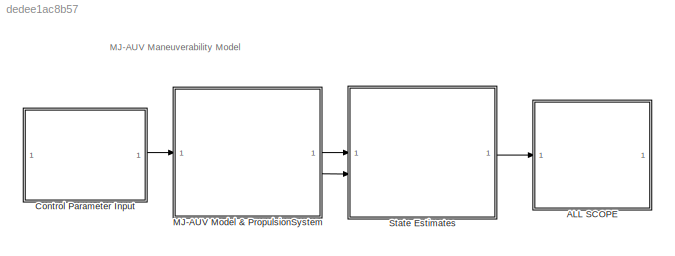
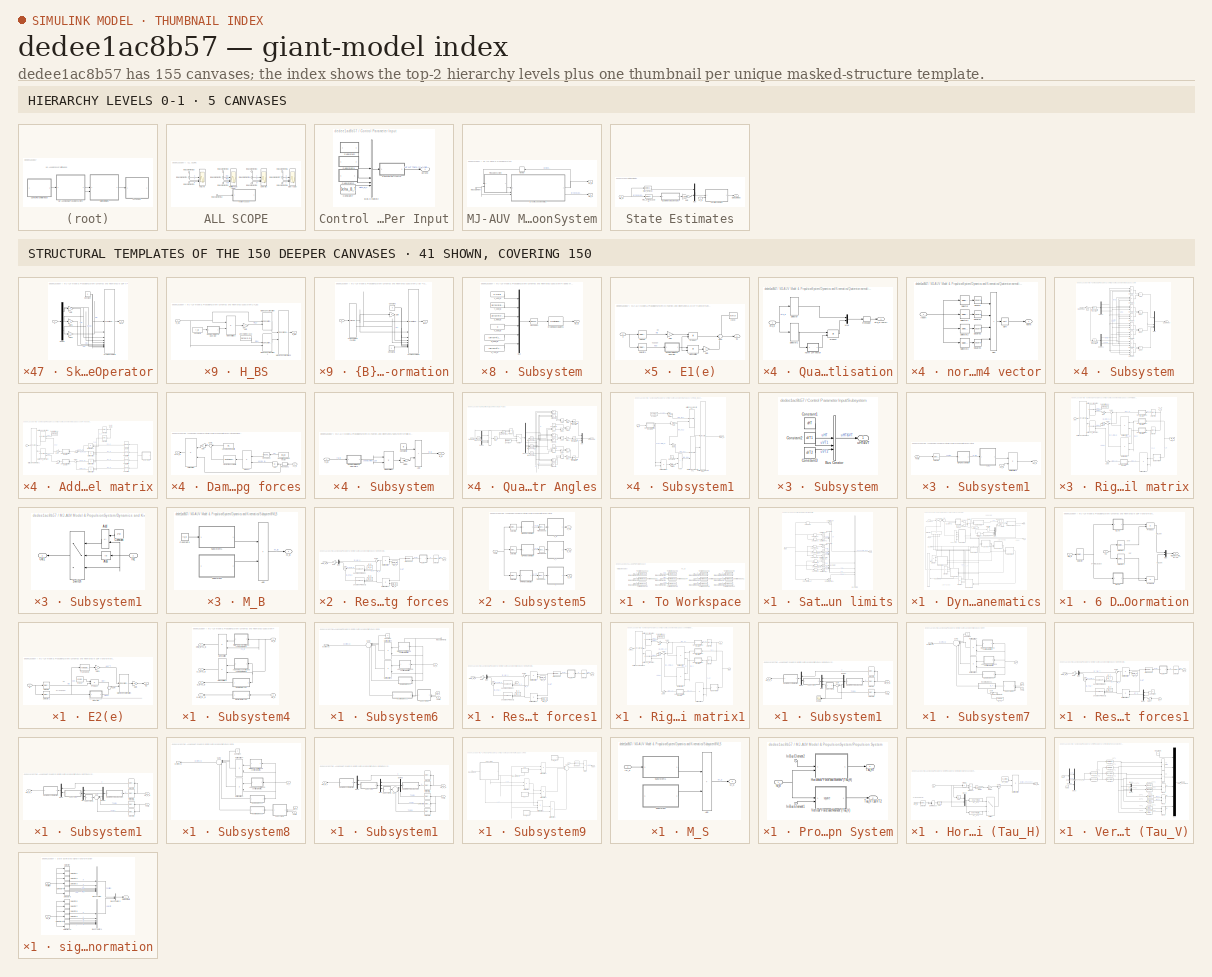
[diagram: thumbnail index - top-2 hierarchy levels (5 canvases) + 41 structural-template representatives of the remaining 150 canvases]
MODEL slx_dedee1ac8b57
KIND model
CONFIG AbsTol = auto
CONFIG EnableMultiTasking = on
CONFIG FixedStep = 0.0001
CONFIG MaxStep = auto
CONFIG MinStep = auto
CONFIG RelTol = 1e-3
CONFIG SampleTimeConstraint = Unconstrained
CONFIG SolverName = ode4
CONFIG StartTime = 0.0
CONFIG StopTime = 50
BLOCK [SubSystem] ALL SCOPE
BLOCK [Inport] ALL SCOPE/In Bus Element12
BLOCK [Inport] ALL SCOPE/In Bus Element20
BLOCK [Inport] ALL SCOPE/In Bus Element21
BLOCK [Inport] ALL SCOPE/In Bus Element22
BLOCK [Inport] ALL SCOPE/In Bus Element30
BLOCK [Inport] ALL SCOPE/In Bus Element31
BLOCK [Inport] ALL SCOPE/In Bus Element32
BLOCK [Inport] ALL SCOPE/In Bus Element33
BLOCK [Inport] ALL SCOPE/In Bus Element34
BLOCK [Inport] ALL SCOPE/In Bus Element35
BLOCK [Inport] ALL SCOPE/In Bus Element36
BLOCK [Inport] ALL SCOPE/In Bus Element37
BLOCK [Inport] ALL SCOPE/In Bus Element38
BLOCK [Scope] ALL SCOPE/Roll//Pitch//Yaw (deg)
  Floating = off
  NameLocation = top
  NumInputPorts = 3
  ScopeSpecificationString = Simulink.scopes.TimeScopeBlockCfg('CurrentConfiguration', extmgr.ConfigurationSet(extmgr.Configuration('Core','General UI',true,'FigureColor',[1 1 1]),extmgr.Configuration('Core','Source UI',true),extmgr.Configuration('Sources','WiredSimulink',true,'DataLoggingVariableName','ScopeData1'),extmgr.Configuration('Visuals','Time Domain',true,'SerializedDisplays',{struct('MinYLimReal','-224.99962','MaxY...<+2333ch>
BLOCK [SubSystem] ALL SCOPE/To Workspace
BLOCK [Inport] ALL SCOPE/To Workspace/In Bus Element20
BLOCK [Inport] ALL SCOPE/To Workspace/In Bus Element21
BLOCK [Inport] ALL SCOPE/To Workspace/In Bus Element22
BLOCK [Inport] ALL SCOPE/To Workspace/In Bus Element30
BLOCK [Inport] ALL SCOPE/To Workspace/In Bus Element31
BLOCK [Inport] ALL SCOPE/To Workspace/In Bus Element32
BLOCK [Inport] ALL SCOPE/To Workspace/In Bus Element33
BLOCK [Inport] ALL SCOPE/To Workspace/In Bus Element34
BLOCK [Inport] ALL SCOPE/To Workspace/In Bus Element35
BLOCK [Inport] ALL SCOPE/To Workspace/In Bus Element36
BLOCK [Inport] ALL SCOPE/To Workspace/In Bus Element37
BLOCK [Inport] ALL SCOPE/To Workspace/In Bus Element38
BLOCK [ToWorkspace] ALL SCOPE/To Workspace/To Workspace1
  FixptAsFi = on
  MaxDataPoints = inf
  SampleTime = -1
  VariableName = Y
BLOCK [ToWorkspace] ALL SCOPE/To Workspace/To Workspace10
  FixptAsFi = on
  MaxDataPoints = inf
  SampleTime = -1
  VariableName = q
BLOCK [ToWorkspace] ALL SCOPE/To Workspace/To Workspace11
  FixptAsFi = on
  MaxDataPoints = inf
  SampleTime = -1
  VariableName = r
BLOCK [ToWorkspace] ALL SCOPE/To Workspace/To Workspace12
  FixptAsFi = on
  MaxDataPoints = inf
  SampleTime = -1
  VariableName = X
BLOCK [ToWorkspace] ALL SCOPE/To Workspace/To Workspace2
  FixptAsFi = on
  MaxDataPoints = inf
  SampleTime = -1
  VariableName = Z
BLOCK [ToWorkspace] ALL SCOPE/To Workspace/To Workspace3
  FixptAsFi = on
  MaxDataPoints = inf
  SampleTime = -1
  VariableName = Roll
BLOCK [ToWorkspace] ALL SCOPE/To Workspace/To Workspace4
  FixptAsFi = on
  MaxDataPoints = inf
  SampleTime = -1
  VariableName = Pitch
BLOCK [ToWorkspace] ALL SCOPE/To Workspace/To Workspace5
  FixptAsFi = on
  MaxDataPoints = inf
  SampleTime = -1
  VariableName = Yaw
BLOCK [ToWorkspace] ALL SCOPE/To Workspace/To Workspace6
  FixptAsFi = on
  MaxDataPoints = inf
  SampleTime = -1
  VariableName = u
BLOCK [ToWorkspace] ALL SCOPE/To Workspace/To Workspace7
  FixptAsFi = on
  MaxDataPoints = inf
  SampleTime = -1
  VariableName = v
BLOCK [ToWorkspace] ALL SCOPE/To Workspace/To Workspace8
  FixptAsFi = on
  MaxDataPoints = inf
  SampleTime = -1
  VariableName = w
BLOCK [ToWorkspace] ALL SCOPE/To Workspace/To Workspace9
  FixptAsFi = on
  MaxDataPoints = inf
  SampleTime = -1
  VariableName = p
BLOCK [Scope] ALL SCOPE/X//Y//Z (m)
  Floating = off
  NameLocation = top
  NumInputPorts = 3
  ScopeSpecificationString = Simulink.scopes.TimeScopeBlockCfg('CurrentConfiguration', extmgr.ConfigurationSet(extmgr.Configuration('Core','General UI',true,'FigureColor',[1 1 1]),extmgr.Configuration('Core','Source UI',true),extmgr.Configuration('Sources','WiredSimulink',true,'DataLoggingVariableName','ScopeData3'),extmgr.Configuration('Visuals','Time Domain',true,'SerializedDisplays',{struct('MinYLimReal','-1.7414','MaxYLim...<+2289ch>
BLOCK [Scope] ALL SCOPE/p//q//r (rad//s)
  Floating = off
  NameLocation = top
  NumInputPorts = 3
  ScopeSpecificationString = Simulink.scopes.TimeScopeBlockCfg('CurrentConfiguration', extmgr.ConfigurationSet(extmgr.Configuration('Core','General UI',true,'FigureColor',[1 1 1]),extmgr.Configuration('Core','Source UI',true),extmgr.Configuration('Sources','WiredSimulink',true,'DataLoggingVariableName','ScopeData2'),extmgr.Configuration('Visuals','Time Domain',true,'SerializedDisplays',{struct('MinYLimReal','-0.38906','MaxYLi...<+2249ch>
BLOCK [Scope] ALL SCOPE/u//v//w (m//s)
  Floating = off
  NameLocation = top
  NumInputPorts = 3
  ScopeSpecificationString = Simulink.scopes.TimeScopeBlockCfg('CurrentConfiguration', extmgr.ConfigurationSet(extmgr.Configuration('Core','General UI',true,'FigureColor',[1 1 1]),extmgr.Configuration('Core','Source UI',true),extmgr.Configuration('Sources','WiredSimulink',true,'DataLoggingVariableName','ScopeData4'),extmgr.Configuration('Visuals','Time Domain',true,'SerializedDisplays',{struct('MinYLimReal','-0.02736','MaxYLi...<+2305ch>
BLOCK [SubSystem] Control Parameter Input
BLOCK [BusCreator] Control Parameter Input/Bus Creator2
  DisplayOption = bar
  InheritFromInputs = on
  Inputs = 4
BLOCK [Constant] Control Parameter Input/Constant7
  Value = Delta_B_T
BLOCK [SubSystem] Control Parameter Input/Saturation limits
BLOCK [BusCreator] Control Parameter Input/Saturation limits/Bus Creator
  DisplayOption = bar
  InheritFromInputs = on
  Inputs = 3
BLOCK [BusCreator] Control Parameter Input/Saturation limits/Bus Creator1
  DisplayOption = bar
  InheritFromInputs = on
  Inputs = 5
BLOCK [BusCreator] Control Parameter Input/Saturation limits/Bus Creator2
  DisplayOption = bar
  InheritFromInputs = on
  Inputs = 3
BLOCK [BusCreator] Control Parameter Input/Saturation limits/Bus Creator3
  DisplayOption = bar
  InheritFromInputs = on
  Inputs = 2
BLOCK [Inport] Control Parameter Input/Saturation limits/InBus
BLOCK [Saturate] Control Parameter Input/Saturation limits/Saturation Delta_B_T
  LowerLimit = -10
  UpperLimit = 10
BLOCK [Saturate] Control Parameter Input/Saturation limits/Saturation Theta1
  LowerLimit = -pi/6
  UpperLimit = pi/6
BLOCK [Saturate] Control Parameter Input/Saturation limits/Saturation Theta2
  LowerLimit = -pi/6
  UpperLimit = pi/6
BLOCK [Saturate] Control Parameter Input/Saturation limits/Saturation Theta3
  LowerLimit = -pi/6
  UpperLimit = pi/6
BLOCK [Saturate] Control Parameter Input/Saturation limits/Saturation uHT
  LowerLimit = 0
  UpperLimit = 60
BLOCK [Saturate] Control Parameter Input/Saturation limits/Saturation uVT1
  LowerLimit = -pi/3
  UpperLimit = pi/3
BLOCK [Saturate] Control Parameter Input/Saturation limits/Saturation uVT2
  LowerLimit = -pi/3
  UpperLimit = pi/3
BLOCK [Saturate] Control Parameter Input/Saturation limits/Saturation xrG_S
  LowerLimit = -0.1
  UpperLimit = 0.1
BLOCK [Saturate] Control Parameter Input/Saturation limits/Saturation yrG_S
  LowerLimit = -0.1
  UpperLimit = 0.1
BLOCK [Saturate] Control Parameter Input/Saturation limits/Saturation zrG_S
  LowerLimit = -0.1
  UpperLimit = 0.1
BLOCK [Selector] Control Parameter Input/Saturation limits/Selector Delta_B_T
  IndexOptions = Index vector (dialog)
  Indices = [10]
  InputPortWidth = 10
  OutputSizes = 1
BLOCK [Selector] Control Parameter Input/Saturation limits/Selector Theta1
  IndexOptions = Index vector (dialog)
  Indices = [4]
  InputPortWidth = 10
  OutputSizes = 1
BLOCK [Selector] Control Parameter Input/Saturation limits/Selector Theta2
  IndexOptions = Index vector (dialog)
  Indices = [5]
  InputPortWidth = 10
  OutputSizes = 1
BLOCK [Selector] Control Parameter Input/Saturation limits/Selector Theta3
  IndexOptions = Index vector (dialog)
  Indices = [6]
  InputPortWidth = 10
  OutputSizes = 1
BLOCK [Selector] Control Parameter Input/Saturation limits/Selector uHT
  IndexOptions = Index vector (dialog)
  Indices = [1]
  InputPortWidth = 10
  OutputSizes = 1
BLOCK [Selector] Control Parameter Input/Saturation limits/Selector uVT1
  IndexOptions = Index vector (dialog)
  Indices = [2]
  InputPortWidth = 10
  OutputSizes = 1
BLOCK [Selector] Control Parameter Input/Saturation limits/Selector uVT2
  IndexOptions = Index vector (dialog)
  Indices = [3]
  InputPortWidth = 10
  OutputSizes = 1
BLOCK [Selector] Control Parameter Input/Saturation limits/Selector xrG_S
  IndexOptions = Index vector (dialog)
  Indices = [7]
  InputPortWidth = 10
  OutputSizes = 1
BLOCK [Selector] Control Parameter Input/Saturation limits/Selector yrG_S
  IndexOptions = Index vector (dialog)
  Indices = [8]
  InputPortWidth = 10
  OutputSizes = 1
BLOCK [Selector] Control Parameter Input/Saturation limits/Selector zrG_S
  IndexOptions = Index vector (dialog)
  Indices = [9]
  InputPortWidth = 10
  OutputSizes = 1
BLOCK [Outport] Control Parameter Input/Saturation limits/uCMD
  VectorParamsAs1DForOutWhenUnconnected = off
BLOCK [SubSystem] Control Parameter Input/Subsystem
BLOCK [BusCreator] Control Parameter Input/Subsystem/Bus Creator
  DisplayOption = bar
  InheritFromInputs = on
  Inputs = 3
BLOCK [Constant] Control Parameter Input/Subsystem/Constant1
  Value = uHT
BLOCK [Constant] Control Parameter Input/Subsystem/Constant2
  Value = uVT1
BLOCK [Constant] Control Parameter Input/Subsystem/Constant3
  Value = uVT2
BLOCK [Outport] Control Parameter Input/Subsystem/uHT&VT
BLOCK [SubSystem] Control Parameter Input/Subsystem1
BLOCK [BusCreator] Control Parameter Input/Subsystem1/Bus Creator1
  DisplayOption = bar
  InheritFromInputs = on
  Inputs = 3
BLOCK [Constant] Control Parameter Input/Subsystem1/Constant
  Value = Theta2
BLOCK [Constant] Control Parameter Input/Subsystem1/Constant4
  Value = Theta1
BLOCK [Constant] Control Parameter Input/Subsystem1/Constant5
  Value = Theta3
BLOCK [Outport] Control Parameter Input/Subsystem1/Theta
BLOCK [SubSystem] Control Parameter Input/Subsystem2
BLOCK [BusCreator] Control Parameter Input/Subsystem2/Bus Creator
  DisplayOption = bar
  InheritFromInputs = on
  Inputs = 3
BLOCK [Constant] Control Parameter Input/Subsystem2/Constant1
  Value = y_rG_S
BLOCK [Constant] Control Parameter Input/Subsystem2/Constant2
  Value = z_rG_S
BLOCK [Constant] Control Parameter Input/Subsystem2/Constant6
  Value = x_rG_S
BLOCK [Outport] Control Parameter Input/Subsystem2/rG_S
BLOCK [Outport] Control Parameter Input/uCMD
BLOCK [SubSystem] MJ-AUV Model & PropulsionSystem
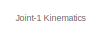
[diagram: MJ-AUV Model & PropulsionSystem/Dynamics and Kinematics - part 1/3, top center region]
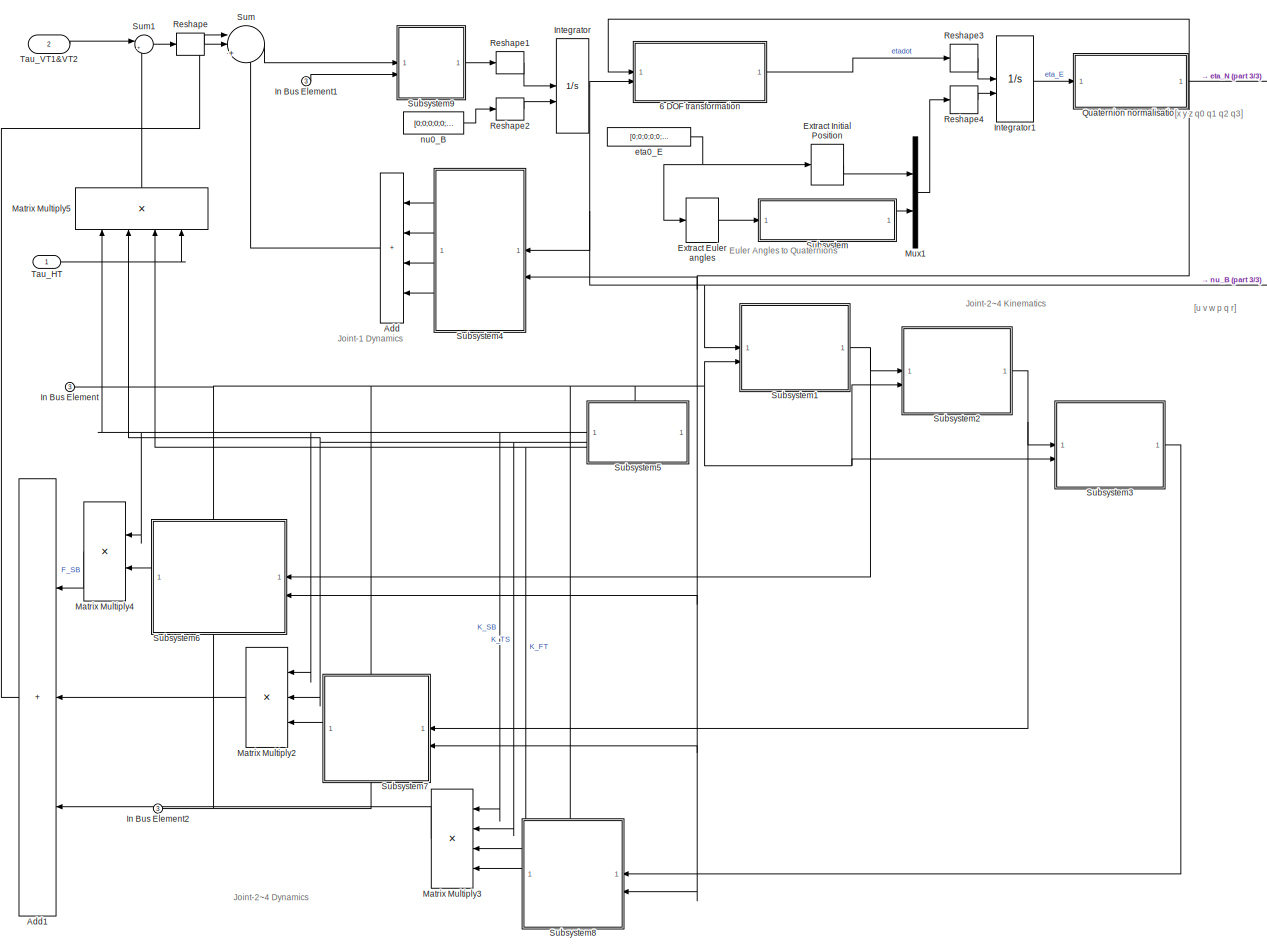
[diagram: MJ-AUV Model & PropulsionSystem/Dynamics and Kinematics - part 2/3, most of the canvas]
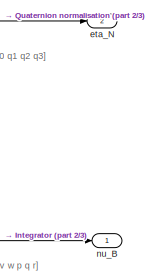
[diagram: MJ-AUV Model & PropulsionSystem/Dynamics and Kinematics - part 3/3, top right region]
BLOCK [SubSystem] MJ-AUV Model & PropulsionSystem/Dynamics and Kinematics
BLOCK [SubSystem] MJ-AUV Model & PropulsionSystem/Dynamics and Kinematics/6 DOF transformation
BLOCK [SubSystem] MJ-AUV Model & PropulsionSystem/Dynamics and Kinematics/6 DOF transformation/E1(e)
BLOCK [Outport] MJ-AUV Model & PropulsionSystem/Dynamics and Kinematics/6 DOF transformation/E1(e)/E1
  VectorParamsAs1DForOutWhenUnconnected = off
BLOCK [Gain] MJ-AUV Model & PropulsionSystem/Dynamics and Kinematics/6 DOF transformation/E1(e)/Gain
  Gain = 2
  OutDataTypeStr = Inherit: Same as input
  ParamDataTypeStr = Inherit: Same as input
  SaturateOnIntegerOverflow = on
BLOCK [Gain] MJ-AUV Model & PropulsionSystem/Dynamics and Kinematics/6 DOF transformation/E1(e)/Gain 
  Gain = 2
  OutDataTypeStr = Inherit: Same as input
  ParamDataTypeStr = Inherit: Same as input
  SaturateOnIntegerOverflow = on
BLOCK [Constant] MJ-AUV Model & PropulsionSystem/Dynamics and Kinematics/6 DOF transformation/E1(e)/I (3x3)
  NameLocation = top
  Value = eye(3)
BLOCK [Product] MJ-AUV Model & PropulsionSystem/Dynamics and Kinematics/6 DOF transformation/E1(e)/Matrix Multiply
  Multiplication = Matrix(*)
BLOCK [Product] MJ-AUV Model & PropulsionSystem/Dynamics and Kinematics/6 DOF transformation/E1(e)/Product
  OutDataTypeStr = Inherit: Same as first input
  SaturateOnIntegerOverflow = on
BLOCK [Selector] MJ-AUV Model & PropulsionSystem/Dynamics and Kinematics/6 DOF transformation/E1(e)/Selector
  IndexOptions = Index vector (dialog)
  Indices = [1]
  InputPortWidth = 4
  OutputSizes = 1
BLOCK [Selector] MJ-AUV Model & PropulsionSystem/Dynamics and Kinematics/6 DOF transformation/E1(e)/Selector1
  IndexOptions = Index vector (dialog)
  Indices = [2 3 4]
  InputPortWidth = 4
  OutputSizes = 1
BLOCK [SubSystem] MJ-AUV Model & PropulsionSystem/Dynamics and Kinematics/6 DOF transformation/E1(e)/Skew Symmetrical Operator
BLOCK [Constant] MJ-AUV Model & PropulsionSystem/Dynamics and Kinematics/6 DOF transformation/E1(e)/Skew Symmetrical Operator/Constant
  Value = 0
BLOCK [Reference] MJ-AUV Model & PropulsionSystem/Dynamics and Kinematics/6 DOF transformation/E1(e)/Skew Symmetrical Operator/Create 3x3 Matrix  REF=sharedutil/Create 3x3 Matrix
  SourceBlock = sharedutil/Create 3x3 Matrix
  SourceType = Create 3x3 Matrix
BLOCK [Demux] MJ-AUV Model & PropulsionSystem/Dynamics and Kinematics/6 DOF transformation/E1(e)/Skew Symmetrical Operator/Demux
  DisplayOption = none
  Outputs = 3
BLOCK [Gain] MJ-AUV Model & PropulsionSystem/Dynamics and Kinematics/6 DOF transformation/E1(e)/Skew Symmetrical Operator/Gain
  Gain = -1
  OutDataTypeStr = Inherit: Same as input
  ParamDataTypeStr = Inherit: Same as input
  SaturateOnIntegerOverflow = on
BLOCK [Gain] MJ-AUV Model & PropulsionSystem/Dynamics and Kinematics/6 DOF transformation/E1(e)/Skew Symmetrical Operator/Gain1
  Gain = -1
  OutDataTypeStr = Inherit: Same as input
  ParamDataTypeStr = Inherit: Same as input
  SaturateOnIntegerOverflow = on
BLOCK [Gain] MJ-AUV Model & PropulsionSystem/Dynamics and Kinematics/6 DOF transformation/E1(e)/Skew Symmetrical Operator/Gain2
  Gain = -1
  OutDataTypeStr = Inherit: Same as input
  ParamDataTypeStr = Inherit: Same as input
  SaturateOnIntegerOverflow = on
BLOCK [Outport] MJ-AUV Model & PropulsionSystem/Dynamics and Kinematics/6 DOF transformation/E1(e)/Skew Symmetrical Operator/S(V)
  VectorParamsAs1DForOutWhenUnconnected = off
BLOCK [Inport] MJ-AUV Model & PropulsionSystem/Dynamics and Kinematics/6 DOF transformation/E1(e)/Skew Symmetrical Operator/v
BLOCK [Sum] MJ-AUV Model & PropulsionSystem/Dynamics and Kinematics/6 DOF transformation/E1(e)/Sum
  Inputs = +++
  SaturateOnIntegerOverflow = on
BLOCK [Inport] MJ-AUV Model & PropulsionSystem/Dynamics and Kinematics/6 DOF transformation/E1(e)/e
BLOCK [SubSystem] MJ-AUV Model & PropulsionSystem/Dynamics and Kinematics/6 DOF transformation/E2(e)
BLOCK [Outport] MJ-AUV Model & PropulsionSystem/Dynamics and Kinematics/6 DOF transformation/E2(e)/E2
  VectorParamsAs1DForOutWhenUnconnected = off
BLOCK [Gain] MJ-AUV Model & PropulsionSystem/Dynamics and Kinematics/6 DOF transformation/E2(e)/Gain
  Gain = 0.5
  OutDataTypeStr = Inherit: Same as input
  ParamDataTypeStr = Inherit: Same as input
  SaturateOnIntegerOverflow = on
BLOCK [Gain] MJ-AUV Model & PropulsionSystem/Dynamics and Kinematics/6 DOF transformation/E2(e)/Gain1
  Gain = -1
  OutDataTypeStr = Inherit: Same as input
  ParamDataTypeStr = Inherit: Same as input
  SaturateOnIntegerOverflow = on
BLOCK [Constant] MJ-AUV Model & PropulsionSystem/Dynamics and Kinematics/6 DOF transformation/E2(e)/I (3x3)
  Value = eye(3)
BLOCK [Concatenate] MJ-AUV Model & PropulsionSystem/Dynamics and Kinematics/6 DOF transformation/E2(e)/Matrix Concatenation
  Mode = Multidimensional array
BLOCK [Product] MJ-AUV Model & PropulsionSystem/Dynamics and Kinematics/6 DOF transformation/E2(e)/Product
  OutDataTypeStr = Inherit: Same as first input
  SaturateOnIntegerOverflow = on
BLOCK [Selector] MJ-AUV Model & PropulsionSystem/Dynamics and Kinematics/6 DOF transformation/E2(e)/Selector
  IndexOptions = Index vector (dialog)
  Indices = [1]
  InputPortWidth = 4
  OutputSizes = 1
BLOCK [Selector] MJ-AUV Model & PropulsionSystem/Dynamics and Kinematics/6 DOF transformation/E2(e)/Selector1
  IndexOptions = Index vector (dialog)
  Indices = [2 3 4]
  InputPortWidth = 4
  OutputSizes = 1
BLOCK [SubSystem] MJ-AUV Model & PropulsionSystem/Dynamics and Kinematics/6 DOF transformation/E2(e)/Skew Symmetrical Operator
BLOCK [Constant] MJ-AUV Model & PropulsionSystem/Dynamics and Kinematics/6 DOF transformation/E2(e)/Skew Symmetrical Operator/Constant
  Value = 0
BLOCK [Reference] MJ-AUV Model & PropulsionSystem/Dynamics and Kinematics/6 DOF transformation/E2(e)/Skew Symmetrical Operator/Create 3x3 Matrix  REF=sharedutil/Create 3x3 Matrix
  SourceBlock = sharedutil/Create 3x3 Matrix
  SourceType = Create 3x3 Matrix
BLOCK [Demux] MJ-AUV Model & PropulsionSystem/Dynamics and Kinematics/6 DOF transformation/E2(e)/Skew Symmetrical Operator/Demux
  DisplayOption = none
  Outputs = 3
BLOCK [Gain] MJ-AUV Model & PropulsionSystem/Dynamics and Kinematics/6 DOF transformation/E2(e)/Skew Symmetrical Operator/Gain
  Gain = -1
  OutDataTypeStr = Inherit: Same as input
  ParamDataTypeStr = Inherit: Same as input
  SaturateOnIntegerOverflow = on
BLOCK [Gain] MJ-AUV Model & PropulsionSystem/Dynamics and Kinematics/6 DOF transformation/E2(e)/Skew Symmetrical Operator/Gain1
  Gain = -1
  OutDataTypeStr = Inherit: Same as input
  ParamDataTypeStr = Inherit: Same as input
  SaturateOnIntegerOverflow = on
BLOCK [Gain] MJ-AUV Model & PropulsionSystem/Dynamics and Kinematics/6 DOF transformation/E2(e)/Skew Symmetrical Operator/Gain2
  Gain = -1
  OutDataTypeStr = Inherit: Same as input
  ParamDataTypeStr = Inherit: Same as input
  SaturateOnIntegerOverflow = on
BLOCK [Outport] MJ-AUV Model & PropulsionSystem/Dynamics and Kinematics/6 DOF transformation/E2(e)/Skew Symmetrical Operator/S(V)
  VectorParamsAs1DForOutWhenUnconnected = off
BLOCK [Inport] MJ-AUV Model & PropulsionSystem/Dynamics and Kinematics/6 DOF transformation/E2(e)/Skew Symmetrical Operator/v
BLOCK [Sum] MJ-AUV Model & PropulsionSystem/Dynamics and Kinematics/6 DOF transformation/E2(e)/Sum
  SaturateOnIntegerOverflow = on
BLOCK [Math] MJ-AUV Model & PropulsionSystem/Dynamics and Kinematics/6 DOF transformation/E2(e)/Transpose
  Operator = transpose
  SignedPower = on
BLOCK [Inport] MJ-AUV Model & PropulsionSystem/Dynamics and Kinematics/6 DOF transformation/E2(e)/e
BLOCK [Mux] MJ-AUV Model & PropulsionSystem/Dynamics and Kinematics/6 DOF transformation/Mux
  DisplayOption = bar
  Inputs = 2
BLOCK [Product] MJ-AUV Model & PropulsionSystem/Dynamics and Kinematics/6 DOF transformation/Product
  Inputs = **
  Multiplication = Matrix(*)
  OutDataTypeStr = Inherit: Same as first input
  SaturateOnIntegerOverflow = on
BLOCK [Product] MJ-AUV Model & PropulsionSystem/Dynamics and Kinematics/6 DOF transformation/Product1
  Inputs = **
  Multiplication = Matrix(*)
  OutDataTypeStr = Inherit: Same as first input
  SaturateOnIntegerOverflow = on
BLOCK [Selector] MJ-AUV Model & PropulsionSystem/Dynamics and Kinematics/6 DOF transformation/Selector
  IndexOptions = Index vector (dialog)
  Indices = [4 5 6 7]
  InputPortWidth = 7
  OutputSizes = 1
BLOCK [Selector] MJ-AUV Model & PropulsionSystem/Dynamics and Kinematics/6 DOF transformation/Selector1
  IndexOptions = Index vector (dialog)
  Indices = [1 2 3]
  InputPortWidth = 6
  OutputSizes = 1
BLOCK [Selector] MJ-AUV Model & PropulsionSystem/Dynamics and Kinematics/6 DOF transformation/Selector2
  IndexOptions = Index vector (dialog)
  Indices = [4 5 6]
  InputPortWidth = 6
  OutputSizes = 1
BLOCK [Inport] MJ-AUV Model & PropulsionSystem/Dynamics and Kinematics/6 DOF transformation/eta_E
BLOCK [Outport] MJ-AUV Model & PropulsionSystem/Dynamics and Kinematics/6 DOF transformation/etadot = J(eta_E)*nu
  VectorParamsAs1DForOutWhenUnconnected = off
BLOCK [Inport] MJ-AUV Model & PropulsionSystem/Dynamics and Kinematics/6 DOF transformation/nu
  Port = 2
BLOCK [Sum] MJ-AUV Model & PropulsionSystem/Dynamics and Kinematics/Add
  IconShape = rectangular
  Inputs = ++++
  NameLocation = top
BLOCK [Sum] MJ-AUV Model & PropulsionSystem/Dynamics and Kinematics/Add1
  IconShape = rectangular
  Inputs = +++
  NameLocation = top
BLOCK [Selector] MJ-AUV Model & PropulsionSystem/Dynamics and Kinematics/Extract Euler angles
  IndexOptions = Index vector (dialog)
  Indices = [4 5 6]
  InputPortWidth = 6
  OutputSizes = 1
BLOCK [Selector] MJ-AUV Model & PropulsionSystem/Dynamics and Kinematics/Extract Initial Position
  IndexOptions = Index vector (dialog)
  Indices = [1 2 3]
  InputPortWidth = 6
  NameLocation = top
  OutputSizes = 1
BLOCK [Inport] MJ-AUV Model & PropulsionSystem/Dynamics and Kinematics/In Bus Element
  Port = 3
BLOCK [Inport] MJ-AUV Model & PropulsionSystem/Dynamics and Kinematics/In Bus Element1
  Port = 3
BLOCK [Inport] MJ-AUV Model & PropulsionSystem/Dynamics and Kinematics/In Bus Element2
  Port = 3
BLOCK [Integrator] MJ-AUV Model & PropulsionSystem/Dynamics and Kinematics/Integrator
  InitialConditionSource = external
BLOCK [Integrator] MJ-AUV Model & PropulsionSystem/Dynamics and Kinematics/Integrator1
  InitialConditionSource = external
BLOCK [Product] MJ-AUV Model & PropulsionSystem/Dynamics and Kinematics/Matrix Multiply2
  Inputs = 3
  Multiplication = Matrix(*)
  NameLocation = top
BLOCK [Product] MJ-AUV Model & PropulsionSystem/Dynamics and Kinematics/Matrix Multiply3
  Inputs = 4
  Multiplication = Matrix(*)
  NameLocation = top
BLOCK [Product] MJ-AUV Model & PropulsionSystem/Dynamics and Kinematics/Matrix Multiply4
  Multiplication = Matrix(*)
  NameLocation = top
BLOCK [Product] MJ-AUV Model & PropulsionSystem/Dynamics and Kinematics/Matrix Multiply5
  Inputs = 4
  Multiplication = Matrix(*)
  NameLocation = right
BLOCK [Mux] MJ-AUV Model & PropulsionSystem/Dynamics and Kinematics/Mux1
  DisplayOption = bar
  Inputs = 2
BLOCK [SubSystem] MJ-AUV Model & PropulsionSystem/Dynamics and Kinematics/Quaternion normalisation
  NameLocation = top
BLOCK [Mux] MJ-AUV Model & PropulsionSystem/Dynamics and Kinematics/Quaternion normalisation/Mux
  DisplayOption = bar
  Inputs = 2
BLOCK [Product] MJ-AUV Model & PropulsionSystem/Dynamics and Kinematics/Quaternion normalisation/Product
  Inputs = */
  OutDataTypeStr = Inherit: Same as first input
  SaturateOnIntegerOverflow = on
BLOCK [Reshape] MJ-AUV Model & PropulsionSystem/Dynamics and Kinematics/Quaternion normalisation/Reshape
  OutputDimensionality = Column vector (2-D)
BLOCK [Selector] MJ-AUV Model & PropulsionSystem/Dynamics and Kinematics/Quaternion normalisation/Selector
  IndexOptions = Index vector (dialog)
  Indices = [1 2 3]
  InputPortWidth = 7
  OutputSizes = 1
BLOCK [Selector] MJ-AUV Model & PropulsionSystem/Dynamics and Kinematics/Quaternion normalisation/Selector1
  IndexOptions = Index vector (dialog)
  Indices = [4 5 6 7]
  InputPortWidth = 7
  OutputSizes = 1
BLOCK [Inport] MJ-AUV Model & PropulsionSystem/Dynamics and Kinematics/Quaternion normalisation/eta_E
BLOCK [Outport] MJ-AUV Model & PropulsionSystem/Dynamics and Kinematics/Quaternion normalisation/eta_E (norm)
  VectorParamsAs1DForOutWhenUnconnected = off
BLOCK [SubSystem] MJ-AUV Model & PropulsionSystem/Dynamics and Kinematics/Quaternion normalisation/norm 1x4 vector
  ShowPortLabels = none
BLOCK [Inport] MJ-AUV Model & PropulsionSystem/Dynamics and Kinematics/Quaternion normalisation/norm 1x4 vector/Inport
BLOCK [Sum] MJ-AUV Model & PropulsionSystem/Dynamics and Kinematics/Quaternion normalisation/norm 1x4 vector/Plus
  IconShape = rectangular
  Inputs = ++++
BLOCK [Selector] MJ-AUV Model & PropulsionSystem/Dynamics and Kinematics/Quaternion normalisation/norm 1x4 vector/Selector
  IndexOptions = Index vector (dialog)
  Indices = [1]
  InputPortWidth = 4
  OutputSizes = 1
BLOCK [Selector] MJ-AUV Model & PropulsionSystem/Dynamics and Kinematics/Quaternion normalisation/norm 1x4 vector/Selector1
  IndexOptions = Index vector (dialog)
  Indices = [2]
  InputPortWidth = 4
  OutputSizes = 1
BLOCK [Selector] MJ-AUV Model & PropulsionSystem/Dynamics and Kinematics/Quaternion normalisation/norm 1x4 vector/Selector2
  IndexOptions = Index vector (dialog)
  Indices = [3]
  InputPortWidth = 4
  OutputSizes = 1
BLOCK [Selector] MJ-AUV Model & PropulsionSystem/Dynamics and Kinematics/Quaternion normalisation/norm 1x4 vector/Selector3
  IndexOptions = Index vector (dialog)
  Indices = [4]
  InputPortWidth = 4
  OutputSizes = 1
BLOCK [Sqrt] MJ-AUV Model & PropulsionSystem/Dynamics and Kinematics/Quaternion normalisation/norm 1x4 vector/Sqrt
BLOCK [Math] MJ-AUV Model & PropulsionSystem/Dynamics and Kinematics/Quaternion normalisation/norm 1x4 vector/Square
  Operator = square
  SignedPower = on
BLOCK [Math] MJ-AUV Model & PropulsionSystem/Dynamics and Kinematics/Quaternion normalisation/norm 1x4 vector/Square1
  Operator = square
  SignedPower = on
BLOCK [Math] MJ-AUV Model & PropulsionSystem/Dynamics and Kinematics/Quaternion normalisation/norm 1x4 vector/Square2
  Operator = square
  SignedPower = on
BLOCK [Math] MJ-AUV Model & PropulsionSystem/Dynamics and Kinematics/Quaternion normalisation/norm 1x4 vector/Square3
  Operator = square
  SignedPower = on
BLOCK [Outport] MJ-AUV Model & PropulsionSystem/Dynamics and Kinematics/Quaternion normalisation/norm 1x4 vector/norm
  VectorParamsAs1DForOutWhenUnconnected = off
BLOCK [Reshape] MJ-AUV Model & PropulsionSystem/Dynamics and Kinematics/Reshape
  OutputDimensionality = Column vector (2-D)
BLOCK [Reshape] MJ-AUV Model & PropulsionSystem/Dynamics and Kinematics/Reshape1
  OutputDimensionality = Column vector (2-D)
BLOCK [Reshape] MJ-AUV Model & PropulsionSystem/Dynamics and Kinematics/Reshape2
  OutputDimensionality = Column vector (2-D)
BLOCK [Reshape] MJ-AUV Model & PropulsionSystem/Dynamics and Kinematics/Reshape3
  OutputDimensionality = Column vector (2-D)
BLOCK [Reshape] MJ-AUV Model & PropulsionSystem/Dynamics and Kinematics/Reshape4
  OutputDimensionality = Column vector (2-D)
BLOCK [SubSystem] MJ-AUV Model & PropulsionSystem/Dynamics and Kinematics/Subsystem
BLOCK [Sum] MJ-AUV Model & PropulsionSystem/Dynamics and Kinematics/Subsystem/Add
  IconShape = rectangular
BLOCK [Sum] MJ-AUV Model & PropulsionSystem/Dynamics and Kinematics/Subsystem/Add1
  IconShape = rectangular
  Inputs = -+
BLOCK [Sum] MJ-AUV Model & PropulsionSystem/Dynamics and Kinematics/Subsystem/Add2
  IconShape = rectangular
BLOCK [Sum] MJ-AUV Model & PropulsionSystem/Dynamics and Kinematics/Subsystem/Add3
  IconShape = rectangular
  Inputs = +-
BLOCK [Demux] MJ-AUV Model & PropulsionSystem/Dynamics and Kinematics/Subsystem/Demux
  Outputs = 3
BLOCK [Demux] MJ-AUV Model & PropulsionSystem/Dynamics and Kinematics/Subsystem/Demux1
  Outputs = 3
BLOCK [Inport] MJ-AUV Model & PropulsionSystem/Dynamics and Kinematics/Subsystem/Euler Angles 
BLOCK [Gain] MJ-AUV Model & PropulsionSystem/Dynamics and Kinematics/Subsystem/Gain
  Gain = 0.5
BLOCK [Mux] MJ-AUV Model & PropulsionSystem/Dynamics and Kinematics/Subsystem/Mux
  DisplayOption = bar
BLOCK [Product] MJ-AUV Model & PropulsionSystem/Dynamics and Kinematics/Subsystem/Product
  Inputs = 3
BLOCK [Product] MJ-AUV Model & PropulsionSystem/Dynamics and Kinematics/Subsystem/Product1
  Inputs = 3
BLOCK [Product] MJ-AUV Model & PropulsionSystem/Dynamics and Kinematics/Subsystem/Product2
  Inputs = 3
BLOCK [Product] MJ-AUV Model & PropulsionSystem/Dynamics and Kinematics/Subsystem/Product3
  Inputs = 3
BLOCK [Product] MJ-AUV Model & PropulsionSystem/Dynamics and Kinematics/Subsystem/Product4
  Inputs = 3
BLOCK [Product] MJ-AUV Model & PropulsionSystem/Dynamics and Kinematics/Subsystem/Product5
  Inputs = 3
BLOCK [Product] MJ-AUV Model & PropulsionSystem/Dynamics and Kinematics/Subsystem/Product6
  Inputs = 3
BLOCK [Product] MJ-AUV Model & PropulsionSystem/Dynamics and Kinematics/Subsystem/Product7
  Inputs = 3
BLOCK [Outport] MJ-AUV Model & PropulsionSystem/Dynamics and Kinematics/Subsystem/Quaternions
  VectorParamsAs1DForOutWhenUnconnected = off
BLOCK [Trigonometry] MJ-AUV Model & PropulsionSystem/Dynamics and Kinematics/Subsystem/Trigonometric Function
BLOCK [Trigonometry] MJ-AUV Model & PropulsionSystem/Dynamics and Kinematics/Subsystem/Trigonometric Function1
  Operator = cos
BLOCK [SubSystem] MJ-AUV Model & PropulsionSystem/Dynamics and Kinematics/Subsystem1
BLOCK [SubSystem] MJ-AUV Model & PropulsionSystem/Dynamics and Kinematics/Subsystem1/H_BS
BLOCK [Constant] MJ-AUV Model & PropulsionSystem/Dynamics and Kinematics/Subsystem1/H_BS/Constant1
  Value = r_B
BLOCK [Gain] MJ-AUV Model & PropulsionSystem/Dynamics and Kinematics/Subsystem1/H_BS/Gain
  Gain = -1
BLOCK [Outport] MJ-AUV Model & PropulsionSystem/Dynamics and Kinematics/Subsystem1/H_BS/H_BS
BLOCK [Concatenate] MJ-AUV Model & PropulsionSystem/Dynamics and Kinematics/Subsystem1/H_BS/Matrix Concatenation
  Mode = Multidimensional array
BLOCK [Concatenate] MJ-AUV Model & PropulsionSystem/Dynamics and Kinematics/Subsystem1/H_BS/Matrix Concatenation1
  Mode = Multidimensional array
BLOCK [Concatenate] MJ-AUV Model & PropulsionSystem/Dynamics and Kinematics/Subsystem1/H_BS/Matrix Concatenation2
  ConcatenateDimension = 2
  Mode = Multidimensional array
BLOCK [Product] MJ-AUV Model & PropulsionSystem/Dynamics and Kinematics/Subsystem1/H_BS/Matrix Multiply3
  Multiplication = Matrix(*)
BLOCK [Inport] MJ-AUV Model & PropulsionSystem/Dynamics and Kinematics/Subsystem1/H_BS/R_BS
BLOCK [SubSystem] MJ-AUV Model & PropulsionSystem/Dynamics and Kinematics/Subsystem1/H_BS/Skew Symmetrical Operator 
BLOCK [Constant] MJ-AUV Model & PropulsionSystem/Dynamics and Kinematics/Subsystem1/H_BS/Skew Symmetrical Operator /Constant
  Value = 0
BLOCK [Reference] MJ-AUV Model & PropulsionSystem/Dynamics and Kinematics/Subsystem1/H_BS/Skew Symmetrical Operator /Create 3x3 Matrix  REF=sharedutil/Create 3x3 Matrix
  SourceBlock = sharedutil/Create 3x3 Matrix
  SourceType = Create 3x3 Matrix
BLOCK [Demux] MJ-AUV Model & PropulsionSystem/Dynamics and Kinematics/Subsystem1/H_BS/Skew Symmetrical Operator /Demux
  DisplayOption = none
  Outputs = 3
BLOCK [Gain] MJ-AUV Model & PropulsionSystem/Dynamics and Kinematics/Subsystem1/H_BS/Skew Symmetrical Operator /Gain
  Gain = -1
  OutDataTypeStr = Inherit: Same as input
  ParamDataTypeStr = Inherit: Same as input
  SaturateOnIntegerOverflow = on
BLOCK [Gain] MJ-AUV Model & PropulsionSystem/Dynamics and Kinematics/Subsystem1/H_BS/Skew Symmetrical Operator /Gain1
  Gain = -1
  OutDataTypeStr = Inherit: Same as input
  ParamDataTypeStr = Inherit: Same as input
  SaturateOnIntegerOverflow = on
BLOCK [Gain] MJ-AUV Model & PropulsionSystem/Dynamics and Kinematics/Subsystem1/H_BS/Skew Symmetrical Operator /Gain2
  Gain = -1
  OutDataTypeStr = Inherit: Same as input
  ParamDataTypeStr = Inherit: Same as input
  SaturateOnIntegerOverflow = on
BLOCK [Outport] MJ-AUV Model & PropulsionSystem/Dynamics and Kinematics/Subsystem1/H_BS/Skew Symmetrical Operator /S(V)
  VectorParamsAs1DForOutWhenUnconnected = off
BLOCK [Inport] MJ-AUV Model & PropulsionSystem/Dynamics and Kinematics/Subsystem1/H_BS/Skew Symmetrical Operator /v
BLOCK [Constant] MJ-AUV Model & PropulsionSystem/Dynamics and Kinematics/Subsystem1/H_BS/Zero matrix (3 x 3)
  Value = zeros(3,3)
BLOCK [Product] MJ-AUV Model & PropulsionSystem/Dynamics and Kinematics/Subsystem1/Matrix Multiply3
  Multiplication = Matrix(*)
BLOCK [Selector] MJ-AUV Model & PropulsionSystem/Dynamics and Kinematics/Subsystem1/Selector
  IndexOptions = Index vector (dialog)
  Indices = [1]
  InputPortWidth = 3
  OutputSizes = 1
BLOCK [Inport] MJ-AUV Model & PropulsionSystem/Dynamics and Kinematics/Subsystem1/Theta
  Port = 2
BLOCK [Inport] MJ-AUV Model & PropulsionSystem/Dynamics and Kinematics/Subsystem1/nu_B
BLOCK [Outport] MJ-AUV Model & PropulsionSystem/Dynamics and Kinematics/Subsystem1/nu_S
BLOCK [SubSystem] MJ-AUV Model & PropulsionSystem/Dynamics and Kinematics/Subsystem1/{B}->{S} Transformation
BLOCK [Constant] MJ-AUV Model & PropulsionSystem/Dynamics and Kinematics/Subsystem1/{B}->{S} Transformation/Constant
  Value = 0
BLOCK [Constant] MJ-AUV Model & PropulsionSystem/Dynamics and Kinematics/Subsystem1/{B}->{S} Transformation/Constant1
BLOCK [Reference] MJ-AUV Model & PropulsionSystem/Dynamics and Kinematics/Subsystem1/{B}->{S} Transformation/Create 3x3 Matrix  REF=sharedutil/Create 3x3 Matrix
  SourceBlock = sharedutil/Create 3x3 Matrix
  SourceType = Create 3x3 Matrix
BLOCK [Gain] MJ-AUV Model & PropulsionSystem/Dynamics and Kinematics/Subsystem1/{B}->{S} Transformation/Gain
  Gain = -1
  OutDataTypeStr = Inherit: Same as input
  ParamDataTypeStr = Inherit: Same as input
  SaturateOnIntegerOverflow = on
BLOCK [Outport] MJ-AUV Model & PropulsionSystem/Dynamics and Kinematics/Subsystem1/{B}->{S} Transformation/R(v)
  VectorParamsAs1DForOutWhenUnconnected = off
BLOCK [Trigonometry] MJ-AUV Model & PropulsionSystem/Dynamics and Kinematics/Subsystem1/{B}->{S} Transformation/Trigonometric Function
  Operator = sincos
BLOCK [Inport] MJ-AUV Model & PropulsionSystem/Dynamics and Kinematics/Subsystem1/{B}->{S} Transformation/v
BLOCK [SubSystem] MJ-AUV Model & PropulsionSystem/Dynamics and Kinematics/Subsystem2
BLOCK [SubSystem] MJ-AUV Model & PropulsionSystem/Dynamics and Kinematics/Subsystem2/H_ST
BLOCK [Constant] MJ-AUV Model & PropulsionSystem/Dynamics and Kinematics/Subsystem2/H_ST/Constant1
  Value = r_S
BLOCK [Gain] MJ-AUV Model & PropulsionSystem/Dynamics and Kinematics/Subsystem2/H_ST/Gain
  Gain = -1
BLOCK [Outport] MJ-AUV Model & PropulsionSystem/Dynamics and Kinematics/Subsystem2/H_ST/H_ST
BLOCK [Concatenate] MJ-AUV Model & PropulsionSystem/Dynamics and Kinematics/Subsystem2/H_ST/Matrix Concatenation
  Mode = Multidimensional array
BLOCK [Concatenate] MJ-AUV Model & PropulsionSystem/Dynamics and Kinematics/Subsystem2/H_ST/Matrix Concatenation1
  Mode = Multidimensional array
BLOCK [Concatenate] MJ-AUV Model & PropulsionSystem/Dynamics and Kinematics/Subsystem2/H_ST/Matrix Concatenation2
  ConcatenateDimension = 2
  Mode = Multidimensional array
BLOCK [Product] MJ-AUV Model & PropulsionSystem/Dynamics and Kinematics/Subsystem2/H_ST/Matrix Multiply3
  Multiplication = Matrix(*)
BLOCK [Inport] MJ-AUV Model & PropulsionSystem/Dynamics and Kinematics/Subsystem2/H_ST/R_ST
BLOCK [SubSystem] MJ-AUV Model & PropulsionSystem/Dynamics and Kinematics/Subsystem2/H_ST/Skew Symmetrical Operator 
BLOCK [Constant] MJ-AUV Model & PropulsionSystem/Dynamics and Kinematics/Subsystem2/H_ST/Skew Symmetrical Operator /Constant
  Value = 0
BLOCK [Reference] MJ-AUV Model & PropulsionSystem/Dynamics and Kinematics/Subsystem2/H_ST/Skew Symmetrical Operator /Create 3x3 Matrix  REF=sharedutil/Create 3x3 Matrix
  SourceBlock = sharedutil/Create 3x3 Matrix
  SourceType = Create 3x3 Matrix
BLOCK [Demux] MJ-AUV Model & PropulsionSystem/Dynamics and Kinematics/Subsystem2/H_ST/Skew Symmetrical Operator /Demux
  DisplayOption = none
  Outputs = 3
BLOCK [Gain] MJ-AUV Model & PropulsionSystem/Dynamics and Kinematics/Subsystem2/H_ST/Skew Symmetrical Operator /Gain
  Gain = -1
  OutDataTypeStr = Inherit: Same as input
  ParamDataTypeStr = Inherit: Same as input
  SaturateOnIntegerOverflow = on
BLOCK [Gain] MJ-AUV Model & PropulsionSystem/Dynamics and Kinematics/Subsystem2/H_ST/Skew Symmetrical Operator /Gain1
  Gain = -1
  OutDataTypeStr = Inherit: Same as input
  ParamDataTypeStr = Inherit: Same as input
  SaturateOnIntegerOverflow = on
BLOCK [Gain] MJ-AUV Model & PropulsionSystem/Dynamics and Kinematics/Subsystem2/H_ST/Skew Symmetrical Operator /Gain2
  Gain = -1
  OutDataTypeStr = Inherit: Same as input
  ParamDataTypeStr = Inherit: Same as input
  SaturateOnIntegerOverflow = on
BLOCK [Outport] MJ-AUV Model & PropulsionSystem/Dynamics and Kinematics/Subsystem2/H_ST/Skew Symmetrical Operator /S(V)
  VectorParamsAs1DForOutWhenUnconnected = off
BLOCK [Inport] MJ-AUV Model & PropulsionSystem/Dynamics and Kinematics/Subsystem2/H_ST/Skew Symmetrical Operator /v
BLOCK [Constant] MJ-AUV Model & PropulsionSystem/Dynamics and Kinematics/Subsystem2/H_ST/Zero matrix (3 x 3)
  Value = zeros(3,3)
BLOCK [Product] MJ-AUV Model & PropulsionSystem/Dynamics and Kinematics/Subsystem2/Matrix Multiply3
  Multiplication = Matrix(*)
BLOCK [Selector] MJ-AUV Model & PropulsionSystem/Dynamics and Kinematics/Subsystem2/Selector4
  IndexOptions = Index vector (dialog)
  Indices = [2]
  InputPortWidth = 3
  OutputSizes = 1
BLOCK [Inport] MJ-AUV Model & PropulsionSystem/Dynamics and Kinematics/Subsystem2/Theta
  Port = 2
BLOCK [Inport] MJ-AUV Model & PropulsionSystem/Dynamics and Kinematics/Subsystem2/nu_S
BLOCK [Outport] MJ-AUV Model & PropulsionSystem/Dynamics and Kinematics/Subsystem2/nu_T
BLOCK [SubSystem] MJ-AUV Model & PropulsionSystem/Dynamics and Kinematics/Subsystem2/{S}->{T} Transformation
BLOCK [Constant] MJ-AUV Model & PropulsionSystem/Dynamics and Kinematics/Subsystem2/{S}->{T} Transformation/Constant
  Value = 0
BLOCK [Constant] MJ-AUV Model & PropulsionSystem/Dynamics and Kinematics/Subsystem2/{S}->{T} Transformation/Constant1
BLOCK [Reference] MJ-AUV Model & PropulsionSystem/Dynamics and Kinematics/Subsystem2/{S}->{T} Transformation/Create 3x3 Matrix  REF=sharedutil/Create 3x3 Matrix
  SourceBlock = sharedutil/Create 3x3 Matrix
  SourceType = Create 3x3 Matrix
BLOCK [Gain] MJ-AUV Model & PropulsionSystem/Dynamics and Kinematics/Subsystem2/{S}->{T} Transformation/Gain
  Gain = -1
  OutDataTypeStr = Inherit: Same as input
  ParamDataTypeStr = Inherit: Same as input
  SaturateOnIntegerOverflow = on
BLOCK [Outport] MJ-AUV Model & PropulsionSystem/Dynamics and Kinematics/Subsystem2/{S}->{T} Transformation/R(v)
  VectorParamsAs1DForOutWhenUnconnected = off
BLOCK [Trigonometry] MJ-AUV Model & PropulsionSystem/Dynamics and Kinematics/Subsystem2/{S}->{T} Transformation/Trigonometric Function
  Operator = sincos
BLOCK [Inport] MJ-AUV Model & PropulsionSystem/Dynamics and Kinematics/Subsystem2/{S}->{T} Transformation/v
BLOCK [SubSystem] MJ-AUV Model & PropulsionSystem/Dynamics and Kinematics/Subsystem3
BLOCK [SubSystem] MJ-AUV Model & PropulsionSystem/Dynamics and Kinematics/Subsystem3/H_TF
BLOCK [Constant] MJ-AUV Model & PropulsionSystem/Dynamics and Kinematics/Subsystem3/H_TF/Constant1
  Value = r_F
BLOCK [Gain] MJ-AUV Model & PropulsionSystem/Dynamics and Kinematics/Subsystem3/H_TF/Gain
  Gain = -1
BLOCK [Outport] MJ-AUV Model & PropulsionSystem/Dynamics and Kinematics/Subsystem3/H_TF/H_TF
BLOCK [Concatenate] MJ-AUV Model & PropulsionSystem/Dynamics and Kinematics/Subsystem3/H_TF/Matrix Concatenation
  Mode = Multidimensional array
BLOCK [Concatenate] MJ-AUV Model & PropulsionSystem/Dynamics and Kinematics/Subsystem3/H_TF/Matrix Concatenation1
  Mode = Multidimensional array
BLOCK [Concatenate] MJ-AUV Model & PropulsionSystem/Dynamics and Kinematics/Subsystem3/H_TF/Matrix Concatenation2
  ConcatenateDimension = 2
  Mode = Multidimensional array
BLOCK [Product] MJ-AUV Model & PropulsionSystem/Dynamics and Kinematics/Subsystem3/H_TF/Matrix Multiply3
  Multiplication = Matrix(*)
BLOCK [Inport] MJ-AUV Model & PropulsionSystem/Dynamics and Kinematics/Subsystem3/H_TF/R_TF
BLOCK [SubSystem] MJ-AUV Model & PropulsionSystem/Dynamics and Kinematics/Subsystem3/H_TF/Skew Symmetrical Operator 
BLOCK [Constant] MJ-AUV Model & PropulsionSystem/Dynamics and Kinematics/Subsystem3/H_TF/Skew Symmetrical Operator /Constant
  Value = 0
BLOCK [Reference] MJ-AUV Model & PropulsionSystem/Dynamics and Kinematics/Subsystem3/H_TF/Skew Symmetrical Operator /Create 3x3 Matrix  REF=sharedutil/Create 3x3 Matrix
  SourceBlock = sharedutil/Create 3x3 Matrix
  SourceType = Create 3x3 Matrix
BLOCK [Demux] MJ-AUV Model & PropulsionSystem/Dynamics and Kinematics/Subsystem3/H_TF/Skew Symmetrical Operator /Demux
  DisplayOption = none
  Outputs = 3
BLOCK [Gain] MJ-AUV Model & PropulsionSystem/Dynamics and Kinematics/Subsystem3/H_TF/Skew Symmetrical Operator /Gain
  Gain = -1
  OutDataTypeStr = Inherit: Same as input
  ParamDataTypeStr = Inherit: Same as input
  SaturateOnIntegerOverflow = on
BLOCK [Gain] MJ-AUV Model & PropulsionSystem/Dynamics and Kinematics/Subsystem3/H_TF/Skew Symmetrical Operator /Gain1
  Gain = -1
  OutDataTypeStr = Inherit: Same as input
  ParamDataTypeStr = Inherit: Same as input
  SaturateOnIntegerOverflow = on
BLOCK [Gain] MJ-AUV Model & PropulsionSystem/Dynamics and Kinematics/Subsystem3/H_TF/Skew Symmetrical Operator /Gain2
  Gain = -1
  OutDataTypeStr = Inherit: Same as input
  ParamDataTypeStr = Inherit: Same as input
  SaturateOnIntegerOverflow = on
BLOCK [Outport] MJ-AUV Model & PropulsionSystem/Dynamics and Kinematics/Subsystem3/H_TF/Skew Symmetrical Operator /S(V)
  VectorParamsAs1DForOutWhenUnconnected = off
BLOCK [Inport] MJ-AUV Model & PropulsionSystem/Dynamics and Kinematics/Subsystem3/H_TF/Skew Symmetrical Operator /v
BLOCK [Constant] MJ-AUV Model & PropulsionSystem/Dynamics and Kinematics/Subsystem3/H_TF/Zero matrix (3 x 3)
  Value = zeros(3,3)
BLOCK [Product] MJ-AUV Model & PropulsionSystem/Dynamics and Kinematics/Subsystem3/Matrix Multiply3
  Multiplication = Matrix(*)
BLOCK [Selector] MJ-AUV Model & PropulsionSystem/Dynamics and Kinematics/Subsystem3/Selector5
  IndexOptions = Index vector (dialog)
  Indices = [3]
  InputPortWidth = 3
  OutputSizes = 1
BLOCK [Inport] MJ-AUV Model & PropulsionSystem/Dynamics and Kinematics/Subsystem3/Theta
  Port = 2
BLOCK [Outport] MJ-AUV Model & PropulsionSystem/Dynamics and Kinematics/Subsystem3/nu_F
BLOCK [Inport] MJ-AUV Model & PropulsionSystem/Dynamics and Kinematics/Subsystem3/nu_T
BLOCK [SubSystem] MJ-AUV Model & PropulsionSystem/Dynamics and Kinematics/Subsystem3/{T}->{F} Transformation
BLOCK [Constant] MJ-AUV Model & PropulsionSystem/Dynamics and Kinematics/Subsystem3/{T}->{F} Transformation/Constant
  Value = 0
BLOCK [Constant] MJ-AUV Model & PropulsionSystem/Dynamics and Kinematics/Subsystem3/{T}->{F} Transformation/Constant1
BLOCK [Reference] MJ-AUV Model & PropulsionSystem/Dynamics and Kinematics/Subsystem3/{T}->{F} Transformation/Create 3x3 Matrix  REF=sharedutil/Create 3x3 Matrix
  SourceBlock = sharedutil/Create 3x3 Matrix
  SourceType = Create 3x3 Matrix
BLOCK [Gain] MJ-AUV Model & PropulsionSystem/Dynamics and Kinematics/Subsystem3/{T}->{F} Transformation/Gain
  Gain = -1
  OutDataTypeStr = Inherit: Same as input
  ParamDataTypeStr = Inherit: Same as input
  SaturateOnIntegerOverflow = on
BLOCK [Outport] MJ-AUV Model & PropulsionSystem/Dynamics and Kinematics/Subsystem3/{T}->{F} Transformation/R(v)
  VectorParamsAs1DForOutWhenUnconnected = off
BLOCK [Trigonometry] MJ-AUV Model & PropulsionSystem/Dynamics and Kinematics/Subsystem3/{T}->{F} Transformation/Trigonometric Function
  Operator = sincos
BLOCK [Inport] MJ-AUV Model & PropulsionSystem/Dynamics and Kinematics/Subsystem3/{T}->{F} Transformation/v
BLOCK [SubSystem] MJ-AUV Model & PropulsionSystem/Dynamics and Kinematics/Subsystem4
  NameLocation = top
BLOCK [SubSystem] MJ-AUV Model & PropulsionSystem/Dynamics and Kinematics/Subsystem4/Added Mass Coriolis and centripetal matrix
BLOCK [Outport] MJ-AUV Model & PropulsionSystem/Dynamics and Kinematics/Subsystem4/Added Mass Coriolis and centripetal matrix/CA
  VectorParamsAs1DForOutWhenUnconnected = off
BLOCK [Gain] MJ-AUV Model & PropulsionSystem/Dynamics and Kinematics/Subsystem4/Added Mass Coriolis and centripetal matrix/Gain1
  Gain = -1
  NameLocation = top
  OutDataTypeStr = Inherit: Same as input
  ParamDataTypeStr = Inherit: Same as input
  SaturateOnIntegerOverflow = on
BLOCK [Gain] MJ-AUV Model & PropulsionSystem/Dynamics and Kinematics/Subsystem4/Added Mass Coriolis and centripetal matrix/Gain2
  Gain = -1
  NameLocation = top
  OutDataTypeStr = Inherit: Same as input
  ParamDataTypeStr = Inherit: Same as input
  SaturateOnIntegerOverflow = on
BLOCK [Concatenate] MJ-AUV Model & PropulsionSystem/Dynamics and Kinematics/Subsystem4/Added Mass Coriolis and centripetal matrix/Matrix Concatenation
  Mode = Multidimensional array
  NameLocation = top
BLOCK [Concatenate] MJ-AUV Model & PropulsionSystem/Dynamics and Kinematics/Subsystem4/Added Mass Coriolis and centripetal matrix/Matrix Concatenation1
  Mode = Multidimensional array
  NameLocation = top
BLOCK [Concatenate] MJ-AUV Model & PropulsionSystem/Dynamics and Kinematics/Subsystem4/Added Mass Coriolis and centripetal matrix/Matrix Concatenation2
  ConcatenateDimension = 2
  Mode = Multidimensional array
  NameLocation = top
BLOCK [Product] MJ-AUV Model & PropulsionSystem/Dynamics and Kinematics/Subsystem4/Added Mass Coriolis and centripetal matrix/Matrix Multiply1
  Multiplication = Matrix(*)
  NameLocation = top
BLOCK [Product] MJ-AUV Model & PropulsionSystem/Dynamics and Kinematics/Subsystem4/Added Mass Coriolis and centripetal matrix/Matrix Multiply2
  Multiplication = Matrix(*)
  NameLocation = top
BLOCK [Product] MJ-AUV Model & PropulsionSystem/Dynamics and Kinematics/Subsystem4/Added Mass Coriolis and centripetal matrix/Matrix Multiply3
  Multiplication = Matrix(*)
  NameLocation = top
BLOCK [Product] MJ-AUV Model & PropulsionSystem/Dynamics and Kinematics/Subsystem4/Added Mass Coriolis and centripetal matrix/Matrix Multiply4
  Multiplication = Matrix(*)
  NameLocation = top
BLOCK [Selector] MJ-AUV Model & PropulsionSystem/Dynamics and Kinematics/Subsystem4/Added Mass Coriolis and centripetal matrix/Selector1
  IndexOptions = Index vector (dialog)
  Indices = [1 2 3]
  InputPortWidth = 6
  NameLocation = top
  OutputSizes = 1
BLOCK [Selector] MJ-AUV Model & PropulsionSystem/Dynamics and Kinematics/Subsystem4/Added Mass Coriolis and centripetal matrix/Selector2
  IndexOptions = Index vector (dialog)
  Indices = [4 5 6]
  InputPortWidth = 6
  NameLocation = top
  OutputSizes = 1
BLOCK [SubSystem] MJ-AUV Model & PropulsionSystem/Dynamics and Kinematics/Subsystem4/Added Mass Coriolis and centripetal matrix/Skew Symmetrical Operator
  NameLocation = top
BLOCK [SubSystem] MJ-AUV Model & PropulsionSystem/Dynamics and Kinematics/Subsystem4/Added Mass Coriolis and centripetal matrix/Skew Symmetrical Operator 
  NameLocation = top
BLOCK [Constant] MJ-AUV Model & PropulsionSystem/Dynamics and Kinematics/Subsystem4/Added Mass Coriolis and centripetal matrix/Skew Symmetrical Operator /Constant
  Value = 0
BLOCK [Reference] MJ-AUV Model & PropulsionSystem/Dynamics and Kinematics/Subsystem4/Added Mass Coriolis and centripetal matrix/Skew Symmetrical Operator /Create 3x3 Matrix  REF=sharedutil/Create 3x3 Matrix
  SourceBlock = sharedutil/Create 3x3 Matrix
  SourceType = Create 3x3 Matrix
BLOCK [Demux] MJ-AUV Model & PropulsionSystem/Dynamics and Kinematics/Subsystem4/Added Mass Coriolis and centripetal matrix/Skew Symmetrical Operator /Demux
  DisplayOption = none
  Outputs = 3
BLOCK [Gain] MJ-AUV Model & PropulsionSystem/Dynamics and Kinematics/Subsystem4/Added Mass Coriolis and centripetal matrix/Skew Symmetrical Operator /Gain
  Gain = -1
  OutDataTypeStr = Inherit: Same as input
  ParamDataTypeStr = Inherit: Same as input
  SaturateOnIntegerOverflow = on
BLOCK [Gain] MJ-AUV Model & PropulsionSystem/Dynamics and Kinematics/Subsystem4/Added Mass Coriolis and centripetal matrix/Skew Symmetrical Operator /Gain1
  Gain = -1
  OutDataTypeStr = Inherit: Same as input
  ParamDataTypeStr = Inherit: Same as input
  SaturateOnIntegerOverflow = on
BLOCK [Gain] MJ-AUV Model & PropulsionSystem/Dynamics and Kinematics/Subsystem4/Added Mass Coriolis and centripetal matrix/Skew Symmetrical Operator /Gain2
  Gain = -1
  OutDataTypeStr = Inherit: Same as input
  ParamDataTypeStr = Inherit: Same as input
  SaturateOnIntegerOverflow = on
BLOCK [Outport] MJ-AUV Model & PropulsionSystem/Dynamics and Kinematics/Subsystem4/Added Mass Coriolis and centripetal matrix/Skew Symmetrical Operator /S(V)
  VectorParamsAs1DForOutWhenUnconnected = off
BLOCK [Inport] MJ-AUV Model & PropulsionSystem/Dynamics and Kinematics/Subsystem4/Added Mass Coriolis and centripetal matrix/Skew Symmetrical Operator /v
BLOCK [Constant] MJ-AUV Model & PropulsionSystem/Dynamics and Kinematics/Subsystem4/Added Mass Coriolis and centripetal matrix/Skew Symmetrical Operator/Constant
  Value = 0
BLOCK [Reference] MJ-AUV Model & PropulsionSystem/Dynamics and Kinematics/Subsystem4/Added Mass Coriolis and centripetal matrix/Skew Symmetrical Operator/Create 3x3 Matrix  REF=sharedutil/Create 3x3 Matrix
  SourceBlock = sharedutil/Create 3x3 Matrix
  SourceType = Create 3x3 Matrix
BLOCK [Demux] MJ-AUV Model & PropulsionSystem/Dynamics and Kinematics/Subsystem4/Added Mass Coriolis and centripetal matrix/Skew Symmetrical Operator/Demux
  DisplayOption = none
  Outputs = 3
BLOCK [Gain] MJ-AUV Model & PropulsionSystem/Dynamics and Kinematics/Subsystem4/Added Mass Coriolis and centripetal matrix/Skew Symmetrical Operator/Gain
  Gain = -1
  OutDataTypeStr = Inherit: Same as input
  ParamDataTypeStr = Inherit: Same as input
  SaturateOnIntegerOverflow = on
BLOCK [Gain] MJ-AUV Model & PropulsionSystem/Dynamics and Kinematics/Subsystem4/Added Mass Coriolis and centripetal matrix/Skew Symmetrical Operator/Gain1
  Gain = -1
  OutDataTypeStr = Inherit: Same as input
  ParamDataTypeStr = Inherit: Same as input
  SaturateOnIntegerOverflow = on
BLOCK [Gain] MJ-AUV Model & PropulsionSystem/Dynamics and Kinematics/Subsystem4/Added Mass Coriolis and centripetal matrix/Skew Symmetrical Operator/Gain2
  Gain = -1
  OutDataTypeStr = Inherit: Same as input
  ParamDataTypeStr = Inherit: Same as input
  SaturateOnIntegerOverflow = on
BLOCK [Outport] MJ-AUV Model & PropulsionSystem/Dynamics and Kinematics/Subsystem4/Added Mass Coriolis and centripetal matrix/Skew Symmetrical Operator/S(V)
  VectorParamsAs1DForOutWhenUnconnected = off
BLOCK [Inport] MJ-AUV Model & PropulsionSystem/Dynamics and Kinematics/Subsystem4/Added Mass Coriolis and centripetal matrix/Skew Symmetrical Operator/v
BLOCK [Reference] MJ-AUV Model & PropulsionSystem/Dynamics and Kinematics/Subsystem4/Added Mass Coriolis and centripetal matrix/Submatrix  REF=matrix_library/Submatrix
  LibrarySourceBlock = simulink/Matrix\nOperations/Submatrix
  NameLocation = top
  SourceBlock = matrix_library/Submatrix
  SourceType = Submatrix
BLOCK [Reference] MJ-AUV Model & PropulsionSystem/Dynamics and Kinematics/Subsystem4/Added Mass Coriolis and centripetal matrix/Submatrix1  REF=matrix_library/Submatrix
  LibrarySourceBlock = simulink/Matrix\nOperations/Submatrix
  NameLocation = top
  SourceBlock = matrix_library/Submatrix
  SourceType = Submatrix
BLOCK [Reference] MJ-AUV Model & PropulsionSystem/Dynamics and Kinematics/Subsystem4/Added Mass Coriolis and centripetal matrix/Submatrix2  REF=matrix_library/Submatrix
  LibrarySourceBlock = simulink/Matrix\nOperations/Submatrix
  NameLocation = top
  SourceBlock = matrix_library/Submatrix
  SourceType = Submatrix
BLOCK [Reference] MJ-AUV Model & PropulsionSystem/Dynamics and Kinematics/Subsystem4/Added Mass Coriolis and centripetal matrix/Submatrix3  REF=matrix_library/Submatrix
  LibrarySourceBlock = simulink/Matrix\nOperations/Submatrix
  NameLocation = top
  SourceBlock = matrix_library/Submatrix
  SourceType = Submatrix
BLOCK [SubSystem] MJ-AUV Model & PropulsionSystem/Dynamics and Kinematics/Subsystem4/Added Mass Coriolis and centripetal matrix/Subsystem
  NameLocation = top
BLOCK [Reference] MJ-AUV Model & PropulsionSystem/Dynamics and Kinematics/Subsystem4/Added Mass Coriolis and centripetal matrix/Subsystem/Create Diagonal Matrix1  REF=matrix_library/Create Diagonal
Matrix
  SourceBlock = matrix_library/Create Diagonal\nMatrix
  SourceType = Create Diagonal Matrix
BLOCK [Constant] MJ-AUV Model & PropulsionSystem/Dynamics and Kinematics/Subsystem4/Added Mass Coriolis and centripetal matrix/Subsystem/K_pdot_B
  Value = 0
BLOCK [Outport] MJ-AUV Model & PropulsionSystem/Dynamics and Kinematics/Subsystem4/Added Mass Coriolis and centripetal matrix/Subsystem/MA_B
BLOCK [Constant] MJ-AUV Model & PropulsionSystem/Dynamics and Kinematics/Subsystem4/Added Mass Coriolis and centripetal matrix/Subsystem/M_qdot_B
  Value = (pi*rho*R^2*LB^3)/12
BLOCK [Mux] MJ-AUV Model & PropulsionSystem/Dynamics and Kinematics/Subsystem4/Added Mass Coriolis and centripetal matrix/Subsystem/Mux
  DisplayOption = bar
  Inputs = 6
BLOCK [Constant] MJ-AUV Model & PropulsionSystem/Dynamics and Kinematics/Subsystem4/Added Mass Coriolis and centripetal matrix/Subsystem/N_rdot_B
  Value = (pi*rho*R^2*LB^3)/12
BLOCK [Reshape] MJ-AUV Model & PropulsionSystem/Dynamics and Kinematics/Subsystem4/Added Mass Coriolis and centripetal matrix/Subsystem/Reshape1
  OutputDimensionality = Column vector (2-D)
  OutputDimensions = [6,6]
BLOCK [Constant] MJ-AUV Model & PropulsionSystem/Dynamics and Kinematics/Subsystem4/Added Mass Coriolis and centripetal matrix/Subsystem/X_udot_B
  Value = 0.1*mB
BLOCK [Constant] MJ-AUV Model & PropulsionSystem/Dynamics and Kinematics/Subsystem4/Added Mass Coriolis and centripetal matrix/Subsystem/Y_vdot_B
  Value = pi*rho*R*R*LB
BLOCK [Constant] MJ-AUV Model & PropulsionSystem/Dynamics and Kinematics/Subsystem4/Added Mass Coriolis and centripetal matrix/Subsystem/Z_wdot_B
  Value = pi*rho*R^2*LB
BLOCK [Sum] MJ-AUV Model & PropulsionSystem/Dynamics and Kinematics/Subsystem4/Added Mass Coriolis and centripetal matrix/Sum2
  Inputs = |++
  NameLocation = top
  SaturateOnIntegerOverflow = on
BLOCK [Sum] MJ-AUV Model & PropulsionSystem/Dynamics and Kinematics/Subsystem4/Added Mass Coriolis and centripetal matrix/Sum3
  Inputs = |++
  NameLocation = top
  SaturateOnIntegerOverflow = on
BLOCK [Constant] MJ-AUV Model & PropulsionSystem/Dynamics and Kinematics/Subsystem4/Added Mass Coriolis and centripetal matrix/Zero matrix (3 x 3)
  NameLocation = top
  Value = zeros(3,3)
BLOCK [Inport] MJ-AUV Model & PropulsionSystem/Dynamics and Kinematics/Subsystem4/Added Mass Coriolis and centripetal matrix/nu_B
  NameLocation = right
BLOCK [Outport] MJ-AUV Model & PropulsionSystem/Dynamics and Kinematics/Subsystem4/CA_B * nu_B
  NameLocation = top
  Port = 3
BLOCK [Outport] MJ-AUV Model & PropulsionSystem/Dynamics and Kinematics/Subsystem4/CRB_B * nu_B
  NameLocation = top
  Port = 4
BLOCK [Outport] MJ-AUV Model & PropulsionSystem/Dynamics and Kinematics/Subsystem4/D_B * nu_B
  NameLocation = top
  Port = 2
BLOCK [SubSystem] MJ-AUV Model & PropulsionSystem/Dynamics and Kinematics/Subsystem4/Damping forces
BLOCK [Abs] MJ-AUV Model & PropulsionSystem/Dynamics and Kinematics/Subsystem4/Damping forces/Abs
  NameLocation = top
BLOCK [Reference] MJ-AUV Model & PropulsionSystem/Dynamics and Kinematics/Subsystem4/Damping forces/Create Diagonal Matrix  REF=matrix_library/Create Diagonal
Matrix
  NameLocation = top
  SourceBlock = matrix_library/Create Diagonal\nMatrix
  SourceType = Create Diagonal Matrix
BLOCK [Outport] MJ-AUV Model & PropulsionSystem/Dynamics and Kinematics/Subsystem4/Damping forces/D * nu_B
  VectorParamsAs1DForOutWhenUnconnected = off
BLOCK [Gain] MJ-AUV Model & PropulsionSystem/Dynamics and Kinematics/Subsystem4/Damping forces/Gain
  Gain = -1
BLOCK [Constant] MJ-AUV Model & PropulsionSystem/Dynamics and Kinematics/Subsystem4/Damping forces/Linear Damping Matrix
  NameLocation = top
  Value = DL
BLOCK [Product] MJ-AUV Model & PropulsionSystem/Dynamics and Kinematics/Subsystem4/Damping forces/Matrix Multiply
  Multiplication = Matrix(*)
  NameLocation = top
BLOCK [Product] MJ-AUV Model & PropulsionSystem/Dynamics and Kinematics/Subsystem4/Damping forces/Product
  NameLocation = top
  OutDataTypeStr = Inherit: Same as first input
  SaturateOnIntegerOverflow = on
BLOCK [Constant] MJ-AUV Model & PropulsionSystem/Dynamics and Kinematics/Subsystem4/Damping forces/Quadratic Damping Vector
  NameLocation = top
  Value = dQ_B
BLOCK [Reshape] MJ-AUV Model & PropulsionSystem/Dynamics and Kinematics/Subsystem4/Damping forces/Reshape1
  NameLocation = top
  OutputDimensionality = Column vector (2-D)
BLOCK [Reshape] MJ-AUV Model & PropulsionSystem/Dynamics and Kinematics/Subsystem4/Damping forces/Reshape2
  NameLocation = top
  OutputDimensionality = Column vector (2-D)
  OutputDimensions = [6,6]
BLOCK [Sum] MJ-AUV Model & PropulsionSystem/Dynamics and Kinematics/Subsystem4/Damping forces/Sum1
  Inputs = |++
  NameLocation = top
  SaturateOnIntegerOverflow = on
BLOCK [Inport] MJ-AUV Model & PropulsionSystem/Dynamics and Kinematics/Subsystem4/Damping forces/nu_B
BLOCK [Product] MJ-AUV Model & PropulsionSystem/Dynamics and Kinematics/Subsystem4/Matrix Multiply
  Multiplication = Matrix(*)
  NameLocation = top
BLOCK [Product] MJ-AUV Model & PropulsionSystem/Dynamics and Kinematics/Subsystem4/Matrix Multiply2
  Multiplication = Matrix(*)
  NameLocation = top
BLOCK [SubSystem] MJ-AUV Model & PropulsionSystem/Dynamics and Kinematics/Subsystem4/Restoring forces
BLOCK [Reference] MJ-AUV Model & PropulsionSystem/Dynamics and Kinematics/Subsystem4/Restoring forces/3x3 Cross Product  REF=sharedutil/3x3 Cross Product
  NameLocation = top
  SourceBlock = sharedutil/3x3 Cross Product
  SourceType = CrossProduct
BLOCK [Reference] MJ-AUV Model & PropulsionSystem/Dynamics and Kinematics/Subsystem4/Restoring forces/3x3 Cross Product1  REF=sharedutil/3x3 Cross Product
  NameLocation = top
  SourceBlock = sharedutil/3x3 Cross Product
  SourceType = CrossProduct
BLOCK [SubSystem] MJ-AUV Model & PropulsionSystem/Dynamics and Kinematics/Subsystem4/Restoring forces/E1(e)
  NameLocation = top
BLOCK [Outport] MJ-AUV Model & PropulsionSystem/Dynamics and Kinematics/Subsystem4/Restoring forces/E1(e)/E1
  VectorParamsAs1DForOutWhenUnconnected = off
BLOCK [Gain] MJ-AUV Model & PropulsionSystem/Dynamics and Kinematics/Subsystem4/Restoring forces/E1(e)/Gain
  Gain = 2
  OutDataTypeStr = Inherit: Same as input
  ParamDataTypeStr = Inherit: Same as input
  SaturateOnIntegerOverflow = on
BLOCK [Gain] MJ-AUV Model & PropulsionSystem/Dynamics and Kinematics/Subsystem4/Restoring forces/E1(e)/Gain 
  Gain = 2
  OutDataTypeStr = Inherit: Same as input
  ParamDataTypeStr = Inherit: Same as input
  SaturateOnIntegerOverflow = on
BLOCK [Constant] MJ-AUV Model & PropulsionSystem/Dynamics and Kinematics/Subsystem4/Restoring forces/E1(e)/I (3x3)
  Value = eye(3)
BLOCK [Product] MJ-AUV Model & PropulsionSystem/Dynamics and Kinematics/Subsystem4/Restoring forces/E1(e)/Matrix Multiply
  Multiplication = Matrix(*)
BLOCK [Product] MJ-AUV Model & PropulsionSystem/Dynamics and Kinematics/Subsystem4/Restoring forces/E1(e)/Product
  OutDataTypeStr = Inherit: Same as first input
  SaturateOnIntegerOverflow = on
BLOCK [Selector] MJ-AUV Model & PropulsionSystem/Dynamics and Kinematics/Subsystem4/Restoring forces/E1(e)/Selector
  IndexOptions = Index vector (dialog)
  Indices = [1]
  InputPortWidth = 4
  OutputSizes = 1
BLOCK [Selector] MJ-AUV Model & PropulsionSystem/Dynamics and Kinematics/Subsystem4/Restoring forces/E1(e)/Selector1
  IndexOptions = Index vector (dialog)
  Indices = [2 3 4]
  InputPortWidth = 4
  OutputSizes = 1
BLOCK [SubSystem] MJ-AUV Model & PropulsionSystem/Dynamics and Kinematics/Subsystem4/Restoring forces/E1(e)/Skew Symmetrical Operator
BLOCK [Constant] MJ-AUV Model & PropulsionSystem/Dynamics and Kinematics/Subsystem4/Restoring forces/E1(e)/Skew Symmetrical Operator/Constant
  Value = 0
BLOCK [Reference] MJ-AUV Model & PropulsionSystem/Dynamics and Kinematics/Subsystem4/Restoring forces/E1(e)/Skew Symmetrical Operator/Create 3x3 Matrix  REF=sharedutil/Create 3x3 Matrix
  SourceBlock = sharedutil/Create 3x3 Matrix
  SourceType = Create 3x3 Matrix
BLOCK [Demux] MJ-AUV Model & PropulsionSystem/Dynamics and Kinematics/Subsystem4/Restoring forces/E1(e)/Skew Symmetrical Operator/Demux
  DisplayOption = none
  Outputs = 3
BLOCK [Gain] MJ-AUV Model & PropulsionSystem/Dynamics and Kinematics/Subsystem4/Restoring forces/E1(e)/Skew Symmetrical Operator/Gain
  Gain = -1
  OutDataTypeStr = Inherit: Same as input
  ParamDataTypeStr = Inherit: Same as input
  SaturateOnIntegerOverflow = on
BLOCK [Gain] MJ-AUV Model & PropulsionSystem/Dynamics and Kinematics/Subsystem4/Restoring forces/E1(e)/Skew Symmetrical Operator/Gain1
  Gain = -1
  OutDataTypeStr = Inherit: Same as input
  ParamDataTypeStr = Inherit: Same as input
  SaturateOnIntegerOverflow = on
BLOCK [Gain] MJ-AUV Model & PropulsionSystem/Dynamics and Kinematics/Subsystem4/Restoring forces/E1(e)/Skew Symmetrical Operator/Gain2
  Gain = -1
  OutDataTypeStr = Inherit: Same as input
  ParamDataTypeStr = Inherit: Same as input
  SaturateOnIntegerOverflow = on
BLOCK [Outport] MJ-AUV Model & PropulsionSystem/Dynamics and Kinematics/Subsystem4/Restoring forces/E1(e)/Skew Symmetrical Operator/S(V)
  VectorParamsAs1DForOutWhenUnconnected = off
BLOCK [Inport] MJ-AUV Model & PropulsionSystem/Dynamics and Kinematics/Subsystem4/Restoring forces/E1(e)/Skew Symmetrical Operator/v
BLOCK [Sum] MJ-AUV Model & PropulsionSystem/Dynamics and Kinematics/Subsystem4/Restoring forces/E1(e)/Sum
  Inputs = +++
  SaturateOnIntegerOverflow = on
BLOCK [Inport] MJ-AUV Model & PropulsionSystem/Dynamics and Kinematics/Subsystem4/Restoring forces/E1(e)/e
BLOCK [Gain] MJ-AUV Model & PropulsionSystem/Dynamics and Kinematics/Subsystem4/Restoring forces/Gain
  Gain = -1
  NameLocation = top
  OutDataTypeStr = Inherit: Same as input
  ParamDataTypeStr = Inherit: Same as input
  SaturateOnIntegerOverflow = on
BLOCK [Product] MJ-AUV Model & PropulsionSystem/Dynamics and Kinematics/Subsystem4/Restoring forces/Matrix Multiply
  Multiplication = Matrix(*)
  NameLocation = top
BLOCK [Product] MJ-AUV Model & PropulsionSystem/Dynamics and Kinematics/Subsystem4/Restoring forces/Matrix Multiply1
  Multiplication = Matrix(*)
  NameLocation = top
BLOCK [Mux] MJ-AUV Model & PropulsionSystem/Dynamics and Kinematics/Subsystem4/Restoring forces/Mux
  DisplayOption = bar
  Inputs = 2
  NameLocation = top
BLOCK [Selector] MJ-AUV Model & PropulsionSystem/Dynamics and Kinematics/Subsystem4/Restoring forces/Selector
  IndexOptions = Index vector (dialog)
  Indices = [4 5 6 7]
  InputPortWidth = 7
  NameLocation = top
  OutputSizes = 1
BLOCK [Sum] MJ-AUV Model & PropulsionSystem/Dynamics and Kinematics/Subsystem4/Restoring forces/Sum1
  Inputs = |++
  NameLocation = top
  SaturateOnIntegerOverflow = on
BLOCK [Sum] MJ-AUV Model & PropulsionSystem/Dynamics and Kinematics/Subsystem4/Restoring forces/Sum2
  Inputs = |++
  NameLocation = top
  SaturateOnIntegerOverflow = on
BLOCK [Math] MJ-AUV Model & PropulsionSystem/Dynamics and Kinematics/Subsystem4/Restoring forces/Transpose
  NameLocation = top
  Operator = transpose
  SignedPower = on
BLOCK [Inport] MJ-AUV Model & PropulsionSystem/Dynamics and Kinematics/Subsystem4/Restoring forces/eta_E
BLOCK [Constant] MJ-AUV Model & PropulsionSystem/Dynamics and Kinematics/Subsystem4/Restoring forces/fBB_E
  NameLocation = top
  Value = [0;0;-B_B]
BLOCK [Constant] MJ-AUV Model & PropulsionSystem/Dynamics and Kinematics/Subsystem4/Restoring forces/fGB_E
  NameLocation = top
  Value = [0;0;W_B]
BLOCK [Outport] MJ-AUV Model & PropulsionSystem/Dynamics and Kinematics/Subsystem4/Restoring forces/g(eta_E)_B
  VectorParamsAs1DForOutWhenUnconnected = off
BLOCK [Constant] MJ-AUV Model & PropulsionSystem/Dynamics and Kinematics/Subsystem4/Restoring forces/rB_B
  NameLocation = top
  Value = rB_B
BLOCK [Constant] MJ-AUV Model & PropulsionSystem/Dynamics and Kinematics/Subsystem4/Restoring forces/rG_B
  NameLocation = top
  Value = rG_B
BLOCK [SubSystem] MJ-AUV Model & PropulsionSystem/Dynamics and Kinematics/Subsystem4/Rigid-body Coriolis and centripetal matrix
BLOCK [Outport] MJ-AUV Model & PropulsionSystem/Dynamics and Kinematics/Subsystem4/Rigid-body Coriolis and centripetal matrix/CRB
  VectorParamsAs1DForOutWhenUnconnected = off
BLOCK [Gain] MJ-AUV Model & PropulsionSystem/Dynamics and Kinematics/Subsystem4/Rigid-body Coriolis and centripetal matrix/Gain
  Gain = mB
  NameLocation = top
  OutDataTypeStr = Inherit: Same as input
  ParamDataTypeStr = Inherit: Same as input
  SaturateOnIntegerOverflow = on
BLOCK [Gain] MJ-AUV Model & PropulsionSystem/Dynamics and Kinematics/Subsystem4/Rigid-body Coriolis and centripetal matrix/Gain1
  Gain = -mB
  NameLocation = top
  OutDataTypeStr = Inherit: Same as input
  ParamDataTypeStr = Inherit: Same as input
  SaturateOnIntegerOverflow = on
BLOCK [Gain] MJ-AUV Model & PropulsionSystem/Dynamics and Kinematics/Subsystem4/Rigid-body Coriolis and centripetal matrix/Gain2
  Gain = -1
  NameLocation = top
  OutDataTypeStr = Inherit: Same as input
  ParamDataTypeStr = Inherit: Same as input
  SaturateOnIntegerOverflow = on
BLOCK [Concatenate] MJ-AUV Model & PropulsionSystem/Dynamics and Kinematics/Subsystem4/Rigid-body Coriolis and centripetal matrix/Matrix Concatenation
  Mode = Multidimensional array
  NameLocation = top
BLOCK [Concatenate] MJ-AUV Model & PropulsionSystem/Dynamics and Kinematics/Subsystem4/Rigid-body Coriolis and centripetal matrix/Matrix Concatenation1
  Mode = Multidimensional array
  NameLocation = top
BLOCK [Concatenate] MJ-AUV Model & PropulsionSystem/Dynamics and Kinematics/Subsystem4/Rigid-body Coriolis and centripetal matrix/Matrix Concatenation2
  ConcatenateDimension = 2
  Mode = Multidimensional array
  NameLocation = top
BLOCK [Product] MJ-AUV Model & PropulsionSystem/Dynamics and Kinematics/Subsystem4/Rigid-body Coriolis and centripetal matrix/Matrix Multiply
  Multiplication = Matrix(*)
  NameLocation = top
BLOCK [Product] MJ-AUV Model & PropulsionSystem/Dynamics and Kinematics/Subsystem4/Rigid-body Coriolis and centripetal matrix/Matrix Multiply1
  Multiplication = Matrix(*)
  NameLocation = top
BLOCK [Product] MJ-AUV Model & PropulsionSystem/Dynamics and Kinematics/Subsystem4/Rigid-body Coriolis and centripetal matrix/Matrix Multiply2
  Multiplication = Matrix(*)
  NameLocation = top
BLOCK [Selector] MJ-AUV Model & PropulsionSystem/Dynamics and Kinematics/Subsystem4/Rigid-body Coriolis and centripetal matrix/Selector
  IndexOptions = Index vector (dialog)
  Indices = [4 5 6]
  InputPortWidth = 6
  NameLocation = top
  OutputSizes = 1
BLOCK [Selector] MJ-AUV Model & PropulsionSystem/Dynamics and Kinematics/Subsystem4/Rigid-body Coriolis and centripetal matrix/Selector1
  IndexOptions = Index vector (dialog)
  Indices = [1 2 3]
  InputPortWidth = 6
  NameLocation = top
  OutputSizes = 1
BLOCK [SubSystem] MJ-AUV Model & PropulsionSystem/Dynamics and Kinematics/Subsystem4/Rigid-body Coriolis and centripetal matrix/Skew Symmetrical Operator
  NameLocation = top
BLOCK [SubSystem] MJ-AUV Model & PropulsionSystem/Dynamics and Kinematics/Subsystem4/Rigid-body Coriolis and centripetal matrix/Skew Symmetrical Operator 
  NameLocation = top
BLOCK [SubSystem] MJ-AUV Model & PropulsionSystem/Dynamics and Kinematics/Subsystem4/Rigid-body Coriolis and centripetal matrix/Skew Symmetrical Operator  
  NameLocation = top
BLOCK [Constant] MJ-AUV Model & PropulsionSystem/Dynamics and Kinematics/Subsystem4/Rigid-body Coriolis and centripetal matrix/Skew Symmetrical Operator  /Constant
  Value = 0
BLOCK [Reference] MJ-AUV Model & PropulsionSystem/Dynamics and Kinematics/Subsystem4/Rigid-body Coriolis and centripetal matrix/Skew Symmetrical Operator  /Create 3x3 Matrix  REF=sharedutil/Create 3x3 Matrix
  SourceBlock = sharedutil/Create 3x3 Matrix
  SourceType = Create 3x3 Matrix
BLOCK [Demux] MJ-AUV Model & PropulsionSystem/Dynamics and Kinematics/Subsystem4/Rigid-body Coriolis and centripetal matrix/Skew Symmetrical Operator  /Demux
  DisplayOption = none
  Outputs = 3
BLOCK [Gain] MJ-AUV Model & PropulsionSystem/Dynamics and Kinematics/Subsystem4/Rigid-body Coriolis and centripetal matrix/Skew Symmetrical Operator  /Gain
  Gain = -1
  OutDataTypeStr = Inherit: Same as input
  ParamDataTypeStr = Inherit: Same as input
  SaturateOnIntegerOverflow = on
BLOCK [Gain] MJ-AUV Model & PropulsionSystem/Dynamics and Kinematics/Subsystem4/Rigid-body Coriolis and centripetal matrix/Skew Symmetrical Operator  /Gain1
  Gain = -1
  OutDataTypeStr = Inherit: Same as input
  ParamDataTypeStr = Inherit: Same as input
  SaturateOnIntegerOverflow = on
BLOCK [Gain] MJ-AUV Model & PropulsionSystem/Dynamics and Kinematics/Subsystem4/Rigid-body Coriolis and centripetal matrix/Skew Symmetrical Operator  /Gain2
  Gain = -1
  OutDataTypeStr = Inherit: Same as input
  ParamDataTypeStr = Inherit: Same as input
  SaturateOnIntegerOverflow = on
BLOCK [Outport] MJ-AUV Model & PropulsionSystem/Dynamics and Kinematics/Subsystem4/Rigid-body Coriolis and centripetal matrix/Skew Symmetrical Operator  /S(V)
  VectorParamsAs1DForOutWhenUnconnected = off
BLOCK [Inport] MJ-AUV Model & PropulsionSystem/Dynamics and Kinematics/Subsystem4/Rigid-body Coriolis and centripetal matrix/Skew Symmetrical Operator  /v
BLOCK [Constant] MJ-AUV Model & PropulsionSystem/Dynamics and Kinematics/Subsystem4/Rigid-body Coriolis and centripetal matrix/Skew Symmetrical Operator /Constant
  Value = 0
BLOCK [Reference] MJ-AUV Model & PropulsionSystem/Dynamics and Kinematics/Subsystem4/Rigid-body Coriolis and centripetal matrix/Skew Symmetrical Operator /Create 3x3 Matrix  REF=sharedutil/Create 3x3 Matrix
  SourceBlock = sharedutil/Create 3x3 Matrix
  SourceType = Create 3x3 Matrix
BLOCK [Demux] MJ-AUV Model & PropulsionSystem/Dynamics and Kinematics/Subsystem4/Rigid-body Coriolis and centripetal matrix/Skew Symmetrical Operator /Demux
  DisplayOption = none
  Outputs = 3
BLOCK [Gain] MJ-AUV Model & PropulsionSystem/Dynamics and Kinematics/Subsystem4/Rigid-body Coriolis and centripetal matrix/Skew Symmetrical Operator /Gain
  Gain = -1
  OutDataTypeStr = Inherit: Same as input
  ParamDataTypeStr = Inherit: Same as input
  SaturateOnIntegerOverflow = on
BLOCK [Gain] MJ-AUV Model & PropulsionSystem/Dynamics and Kinematics/Subsystem4/Rigid-body Coriolis and centripetal matrix/Skew Symmetrical Operator /Gain1
  Gain = -1
  OutDataTypeStr = Inherit: Same as input
  ParamDataTypeStr = Inherit: Same as input
  SaturateOnIntegerOverflow = on
BLOCK [Gain] MJ-AUV Model & PropulsionSystem/Dynamics and Kinematics/Subsystem4/Rigid-body Coriolis and centripetal matrix/Skew Symmetrical Operator /Gain2
  Gain = -1
  OutDataTypeStr = Inherit: Same as input
  ParamDataTypeStr = Inherit: Same as input
  SaturateOnIntegerOverflow = on
BLOCK [Outport] MJ-AUV Model & PropulsionSystem/Dynamics and Kinematics/Subsystem4/Rigid-body Coriolis and centripetal matrix/Skew Symmetrical Operator /S(V)
  VectorParamsAs1DForOutWhenUnconnected = off
BLOCK [Inport] MJ-AUV Model & PropulsionSystem/Dynamics and Kinematics/Subsystem4/Rigid-body Coriolis and centripetal matrix/Skew Symmetrical Operator /v
BLOCK [Constant] MJ-AUV Model & PropulsionSystem/Dynamics and Kinematics/Subsystem4/Rigid-body Coriolis and centripetal matrix/Skew Symmetrical Operator/Constant
  Value = 0
BLOCK [Reference] MJ-AUV Model & PropulsionSystem/Dynamics and Kinematics/Subsystem4/Rigid-body Coriolis and centripetal matrix/Skew Symmetrical Operator/Create 3x3 Matrix  REF=sharedutil/Create 3x3 Matrix
  SourceBlock = sharedutil/Create 3x3 Matrix
  SourceType = Create 3x3 Matrix
BLOCK [Demux] MJ-AUV Model & PropulsionSystem/Dynamics and Kinematics/Subsystem4/Rigid-body Coriolis and centripetal matrix/Skew Symmetrical Operator/Demux
  DisplayOption = none
  Outputs = 3
BLOCK [Gain] MJ-AUV Model & PropulsionSystem/Dynamics and Kinematics/Subsystem4/Rigid-body Coriolis and centripetal matrix/Skew Symmetrical Operator/Gain
  Gain = -1
  OutDataTypeStr = Inherit: Same as input
  ParamDataTypeStr = Inherit: Same as input
  SaturateOnIntegerOverflow = on
BLOCK [Gain] MJ-AUV Model & PropulsionSystem/Dynamics and Kinematics/Subsystem4/Rigid-body Coriolis and centripetal matrix/Skew Symmetrical Operator/Gain1
  Gain = -1
  OutDataTypeStr = Inherit: Same as input
  ParamDataTypeStr = Inherit: Same as input
  SaturateOnIntegerOverflow = on
BLOCK [Gain] MJ-AUV Model & PropulsionSystem/Dynamics and Kinematics/Subsystem4/Rigid-body Coriolis and centripetal matrix/Skew Symmetrical Operator/Gain2
  Gain = -1
  OutDataTypeStr = Inherit: Same as input
  ParamDataTypeStr = Inherit: Same as input
  SaturateOnIntegerOverflow = on
BLOCK [Outport] MJ-AUV Model & PropulsionSystem/Dynamics and Kinematics/Subsystem4/Rigid-body Coriolis and centripetal matrix/Skew Symmetrical Operator/S(V)
  VectorParamsAs1DForOutWhenUnconnected = off
BLOCK [Inport] MJ-AUV Model & PropulsionSystem/Dynamics and Kinematics/Subsystem4/Rigid-body Coriolis and centripetal matrix/Skew Symmetrical Operator/v
BLOCK [SubSystem] MJ-AUV Model & PropulsionSystem/Dynamics and Kinematics/Subsystem4/Rigid-body Coriolis and centripetal matrix/Subsystem
  NameLocation = top
BLOCK [Sum] MJ-AUV Model & PropulsionSystem/Dynamics and Kinematics/Subsystem4/Rigid-body Coriolis and centripetal matrix/Subsystem/Add
  IconShape = rectangular
BLOCK [Constant] MJ-AUV Model & PropulsionSystem/Dynamics and Kinematics/Subsystem4/Rigid-body Coriolis and centripetal matrix/Subsystem/Constant2
  Value = IB
BLOCK [Gain] MJ-AUV Model & PropulsionSystem/Dynamics and Kinematics/Subsystem4/Rigid-body Coriolis and centripetal matrix/Subsystem/Gain5
  Gain = -mB
BLOCK [Outport] MJ-AUV Model & PropulsionSystem/Dynamics and Kinematics/Subsystem4/Rigid-body Coriolis and centripetal matrix/Subsystem/Ib_B
BLOCK [Product] MJ-AUV Model & PropulsionSystem/Dynamics and Kinematics/Subsystem4/Rigid-body Coriolis and centripetal matrix/Subsystem/Matrix Multiply4
  Multiplication = Matrix(*)
BLOCK [SubSystem] MJ-AUV Model & PropulsionSystem/Dynamics and Kinematics/Subsystem4/Rigid-body Coriolis and centripetal matrix/Subsystem/Skew Symmetrical Operator1
BLOCK [Constant] MJ-AUV Model & PropulsionSystem/Dynamics and Kinematics/Subsystem4/Rigid-body Coriolis and centripetal matrix/Subsystem/Skew Symmetrical Operator1/Constant
  Value = 0
BLOCK [Reference] MJ-AUV Model & PropulsionSystem/Dynamics and Kinematics/Subsystem4/Rigid-body Coriolis and centripetal matrix/Subsystem/Skew Symmetrical Operator1/Create 3x3 Matrix  REF=sharedutil/Create 3x3 Matrix
  SourceBlock = sharedutil/Create 3x3 Matrix
  SourceType = Create 3x3 Matrix
BLOCK [Demux] MJ-AUV Model & PropulsionSystem/Dynamics and Kinematics/Subsystem4/Rigid-body Coriolis and centripetal matrix/Subsystem/Skew Symmetrical Operator1/Demux
  DisplayOption = none
  Outputs = 3
BLOCK [Gain] MJ-AUV Model & PropulsionSystem/Dynamics and Kinematics/Subsystem4/Rigid-body Coriolis and centripetal matrix/Subsystem/Skew Symmetrical Operator1/Gain
  Gain = -1
  OutDataTypeStr = Inherit: Same as input
  ParamDataTypeStr = Inherit: Same as input
  SaturateOnIntegerOverflow = on
BLOCK [Gain] MJ-AUV Model & PropulsionSystem/Dynamics and Kinematics/Subsystem4/Rigid-body Coriolis and centripetal matrix/Subsystem/Skew Symmetrical Operator1/Gain1
  Gain = -1
  OutDataTypeStr = Inherit: Same as input
  ParamDataTypeStr = Inherit: Same as input
  SaturateOnIntegerOverflow = on
BLOCK [Gain] MJ-AUV Model & PropulsionSystem/Dynamics and Kinematics/Subsystem4/Rigid-body Coriolis and centripetal matrix/Subsystem/Skew Symmetrical Operator1/Gain2
  Gain = -1
  OutDataTypeStr = Inherit: Same as input
  ParamDataTypeStr = Inherit: Same as input
  SaturateOnIntegerOverflow = on
BLOCK [Outport] MJ-AUV Model & PropulsionSystem/Dynamics and Kinematics/Subsystem4/Rigid-body Coriolis and centripetal matrix/Subsystem/Skew Symmetrical Operator1/S(V)
  VectorParamsAs1DForOutWhenUnconnected = off
BLOCK [Inport] MJ-AUV Model & PropulsionSystem/Dynamics and Kinematics/Subsystem4/Rigid-body Coriolis and centripetal matrix/Subsystem/Skew Symmetrical Operator1/v
BLOCK [Inport] MJ-AUV Model & PropulsionSystem/Dynamics and Kinematics/Subsystem4/Rigid-body Coriolis and centripetal matrix/Subsystem/rG_B
BLOCK [Sum] MJ-AUV Model & PropulsionSystem/Dynamics and Kinematics/Subsystem4/Rigid-body Coriolis and centripetal matrix/Sum1
  Inputs = |++
  NameLocation = top
  SaturateOnIntegerOverflow = on
BLOCK [Sum] MJ-AUV Model & PropulsionSystem/Dynamics and Kinematics/Subsystem4/Rigid-body Coriolis and centripetal matrix/Sum2
  Inputs = |-+
  NameLocation = top
  SaturateOnIntegerOverflow = on
BLOCK [Constant] MJ-AUV Model & PropulsionSystem/Dynamics and Kinematics/Subsystem4/Rigid-body Coriolis and centripetal matrix/Zero matrix (3 x 3)
  NameLocation = top
  Value = zeros(3,3)
BLOCK [Inport] MJ-AUV Model & PropulsionSystem/Dynamics and Kinematics/Subsystem4/Rigid-body Coriolis and centripetal matrix/nu_B
  NameLocation = right
BLOCK [Constant] MJ-AUV Model & PropulsionSystem/Dynamics and Kinematics/Subsystem4/Rigid-body Coriolis and centripetal matrix/rG_B
  NameLocation = top
  Value = rG_B
BLOCK [Inport] MJ-AUV Model & PropulsionSystem/Dynamics and Kinematics/Subsystem4/eta_E
  Port = 2
BLOCK [Outport] MJ-AUV Model & PropulsionSystem/Dynamics and Kinematics/Subsystem4/g(eta_E)_B
  NameLocation = top
BLOCK [Inport] MJ-AUV Model & PropulsionSystem/Dynamics and Kinematics/Subsystem4/nu_B
BLOCK [SubSystem] MJ-AUV Model & PropulsionSystem/Dynamics and Kinematics/Subsystem5
  NameLocation = top
  PortSchema = {"entries":[{"content":{"sides":[{"content":{"connectorIds":[]},"type":"ConnectorPlacement.EquallySpacedRectSide","uuid":"71b21129-4088-44fc-819a-967612d65132"},{"content":{"connectorIds":["Out1","Out2","Out3"],"side":"RIGHT"},"type":"ConnectorPlacement.EquallySpacedRectSide","uuid":"a2be8efb-ce7d-47fd-a29f-307f4b0a3364"},{"content":{"connectorIds":["In1"],"side":"TOP"},"type":"ConnectorPlacement....<+254ch>
BLOCK [SubSystem] MJ-AUV Model & PropulsionSystem/Dynamics and Kinematics/Subsystem5/K
BLOCK [Constant] MJ-AUV Model & PropulsionSystem/Dynamics and Kinematics/Subsystem5/K/Constant1
  Value = r_T
BLOCK [Gain] MJ-AUV Model & PropulsionSystem/Dynamics and Kinematics/Subsystem5/K/Gain
  Gain = -1
BLOCK [Outport] MJ-AUV Model & PropulsionSystem/Dynamics and Kinematics/Subsystem5/K/K_FT
BLOCK [Concatenate] MJ-AUV Model & PropulsionSystem/Dynamics and Kinematics/Subsystem5/K/Matrix Concatenation
  Mode = Multidimensional array
BLOCK [Concatenate] MJ-AUV Model & PropulsionSystem/Dynamics and Kinematics/Subsystem5/K/Matrix Concatenation1
  Mode = Multidimensional array
BLOCK [Concatenate] MJ-AUV Model & PropulsionSystem/Dynamics and Kinematics/Subsystem5/K/Matrix Concatenation2
  ConcatenateDimension = 2
  Mode = Multidimensional array
BLOCK [Product] MJ-AUV Model & PropulsionSystem/Dynamics and Kinematics/Subsystem5/K/Matrix Multiply3
  Multiplication = Matrix(*)
BLOCK [Inport] MJ-AUV Model & PropulsionSystem/Dynamics and Kinematics/Subsystem5/K/R_FT
BLOCK [SubSystem] MJ-AUV Model & PropulsionSystem/Dynamics and Kinematics/Subsystem5/K/Skew Symmetrical Operator 
BLOCK [Constant] MJ-AUV Model & PropulsionSystem/Dynamics and Kinematics/Subsystem5/K/Skew Symmetrical Operator /Constant
  Value = 0
BLOCK [Reference] MJ-AUV Model & PropulsionSystem/Dynamics and Kinematics/Subsystem5/K/Skew Symmetrical Operator /Create 3x3 Matrix  REF=sharedutil/Create 3x3 Matrix
  SourceBlock = sharedutil/Create 3x3 Matrix
  SourceType = Create 3x3 Matrix
BLOCK [Demux] MJ-AUV Model & PropulsionSystem/Dynamics and Kinematics/Subsystem5/K/Skew Symmetrical Operator /Demux
  DisplayOption = none
  Outputs = 3
BLOCK [Gain] MJ-AUV Model & PropulsionSystem/Dynamics and Kinematics/Subsystem5/K/Skew Symmetrical Operator /Gain
  Gain = -1
  OutDataTypeStr = Inherit: Same as input
  ParamDataTypeStr = Inherit: Same as input
  SaturateOnIntegerOverflow = on
BLOCK [Gain] MJ-AUV Model & PropulsionSystem/Dynamics and Kinematics/Subsystem5/K/Skew Symmetrical Operator /Gain1
  Gain = -1
  OutDataTypeStr = Inherit: Same as input
  ParamDataTypeStr = Inherit: Same as input
  SaturateOnIntegerOverflow = on
BLOCK [Gain] MJ-AUV Model & PropulsionSystem/Dynamics and Kinematics/Subsystem5/K/Skew Symmetrical Operator /Gain2
  Gain = -1
  OutDataTypeStr = Inherit: Same as input
  ParamDataTypeStr = Inherit: Same as input
  SaturateOnIntegerOverflow = on
BLOCK [Outport] MJ-AUV Model & PropulsionSystem/Dynamics and Kinematics/Subsystem5/K/Skew Symmetrical Operator /S(V)
  VectorParamsAs1DForOutWhenUnconnected = off
BLOCK [Inport] MJ-AUV Model & PropulsionSystem/Dynamics and Kinematics/Subsystem5/K/Skew Symmetrical Operator /v
BLOCK [Constant] MJ-AUV Model & PropulsionSystem/Dynamics and Kinematics/Subsystem5/K/Zero matrix (3 x 3)
  Value = zeros(3,3)
BLOCK [SubSystem] MJ-AUV Model & PropulsionSystem/Dynamics and Kinematics/Subsystem5/K_B
BLOCK [Constant] MJ-AUV Model & PropulsionSystem/Dynamics and Kinematics/Subsystem5/K_B/Constant1
  Value = r_B
BLOCK [Gain] MJ-AUV Model & PropulsionSystem/Dynamics and Kinematics/Subsystem5/K_B/Gain
  Gain = -1
BLOCK [Outport] MJ-AUV Model & PropulsionSystem/Dynamics and Kinematics/Subsystem5/K_B/K_SB
BLOCK [Concatenate] MJ-AUV Model & PropulsionSystem/Dynamics and Kinematics/Subsystem5/K_B/Matrix Concatenation
  Mode = Multidimensional array
BLOCK [Concatenate] MJ-AUV Model & PropulsionSystem/Dynamics and Kinematics/Subsystem5/K_B/Matrix Concatenation1
  Mode = Multidimensional array
BLOCK [Concatenate] MJ-AUV Model & PropulsionSystem/Dynamics and Kinematics/Subsystem5/K_B/Matrix Concatenation2
  ConcatenateDimension = 2
  Mode = Multidimensional array
BLOCK [Product] MJ-AUV Model & PropulsionSystem/Dynamics and Kinematics/Subsystem5/K_B/Matrix Multiply3
  Multiplication = Matrix(*)
BLOCK [Inport] MJ-AUV Model & PropulsionSystem/Dynamics and Kinematics/Subsystem5/K_B/R_SB
BLOCK [SubSystem] MJ-AUV Model & PropulsionSystem/Dynamics and Kinematics/Subsystem5/K_B/Skew Symmetrical Operator 
BLOCK [Constant] MJ-AUV Model & PropulsionSystem/Dynamics and Kinematics/Subsystem5/K_B/Skew Symmetrical Operator /Constant
  Value = 0
BLOCK [Reference] MJ-AUV Model & PropulsionSystem/Dynamics and Kinematics/Subsystem5/K_B/Skew Symmetrical Operator /Create 3x3 Matrix  REF=sharedutil/Create 3x3 Matrix
  SourceBlock = sharedutil/Create 3x3 Matrix
  SourceType = Create 3x3 Matrix
BLOCK [Demux] MJ-AUV Model & PropulsionSystem/Dynamics and Kinematics/Subsystem5/K_B/Skew Symmetrical Operator /Demux
  DisplayOption = none
  Outputs = 3
BLOCK [Gain] MJ-AUV Model & PropulsionSystem/Dynamics and Kinematics/Subsystem5/K_B/Skew Symmetrical Operator /Gain
  Gain = -1
  OutDataTypeStr = Inherit: Same as input
  ParamDataTypeStr = Inherit: Same as input
  SaturateOnIntegerOverflow = on
BLOCK [Gain] MJ-AUV Model & PropulsionSystem/Dynamics and Kinematics/Subsystem5/K_B/Skew Symmetrical Operator /Gain1
  Gain = -1
  OutDataTypeStr = Inherit: Same as input
  ParamDataTypeStr = Inherit: Same as input
  SaturateOnIntegerOverflow = on
BLOCK [Gain] MJ-AUV Model & PropulsionSystem/Dynamics and Kinematics/Subsystem5/K_B/Skew Symmetrical Operator /Gain2
  Gain = -1
  OutDataTypeStr = Inherit: Same as input
  ParamDataTypeStr = Inherit: Same as input
  SaturateOnIntegerOverflow = on
BLOCK [Outport] MJ-AUV Model & PropulsionSystem/Dynamics and Kinematics/Subsystem5/K_B/Skew Symmetrical Operator /S(V)
  VectorParamsAs1DForOutWhenUnconnected = off
BLOCK [Inport] MJ-AUV Model & PropulsionSystem/Dynamics and Kinematics/Subsystem5/K_B/Skew Symmetrical Operator /v
BLOCK [Constant] MJ-AUV Model & PropulsionSystem/Dynamics and Kinematics/Subsystem5/K_B/Zero matrix (3 x 3)
  Value = zeros(3,3)
BLOCK [Outport] MJ-AUV Model & PropulsionSystem/Dynamics and Kinematics/Subsystem5/K_FT
  Port = 3
BLOCK [Outport] MJ-AUV Model & PropulsionSystem/Dynamics and Kinematics/Subsystem5/K_SB
BLOCK [SubSystem] MJ-AUV Model & PropulsionSystem/Dynamics and Kinematics/Subsystem5/K_T
BLOCK [Constant] MJ-AUV Model & PropulsionSystem/Dynamics and Kinematics/Subsystem5/K_T/Constant1
  Value = r_S
BLOCK [Gain] MJ-AUV Model & PropulsionSystem/Dynamics and Kinematics/Subsystem5/K_T/Gain
  Gain = -1
BLOCK [Outport] MJ-AUV Model & PropulsionSystem/Dynamics and Kinematics/Subsystem5/K_T/K_TS
BLOCK [Concatenate] MJ-AUV Model & PropulsionSystem/Dynamics and Kinematics/Subsystem5/K_T/Matrix Concatenation
  Mode = Multidimensional array
BLOCK [Concatenate] MJ-AUV Model & PropulsionSystem/Dynamics and Kinematics/Subsystem5/K_T/Matrix Concatenation1
  Mode = Multidimensional array
BLOCK [Concatenate] MJ-AUV Model & PropulsionSystem/Dynamics and Kinematics/Subsystem5/K_T/Matrix Concatenation2
  ConcatenateDimension = 2
  Mode = Multidimensional array
BLOCK [Product] MJ-AUV Model & PropulsionSystem/Dynamics and Kinematics/Subsystem5/K_T/Matrix Multiply3
  Multiplication = Matrix(*)
BLOCK [Inport] MJ-AUV Model & PropulsionSystem/Dynamics and Kinematics/Subsystem5/K_T/R_TS
BLOCK [SubSystem] MJ-AUV Model & PropulsionSystem/Dynamics and Kinematics/Subsystem5/K_T/Skew Symmetrical Operator 
BLOCK [Constant] MJ-AUV Model & PropulsionSystem/Dynamics and Kinematics/Subsystem5/K_T/Skew Symmetrical Operator /Constant
  Value = 0
BLOCK [Reference] MJ-AUV Model & PropulsionSystem/Dynamics and Kinematics/Subsystem5/K_T/Skew Symmetrical Operator /Create 3x3 Matrix  REF=sharedutil/Create 3x3 Matrix
  SourceBlock = sharedutil/Create 3x3 Matrix
  SourceType = Create 3x3 Matrix
BLOCK [Demux] MJ-AUV Model & PropulsionSystem/Dynamics and Kinematics/Subsystem5/K_T/Skew Symmetrical Operator /Demux
  DisplayOption = none
  Outputs = 3
BLOCK [Gain] MJ-AUV Model & PropulsionSystem/Dynamics and Kinematics/Subsystem5/K_T/Skew Symmetrical Operator /Gain
  Gain = -1
  OutDataTypeStr = Inherit: Same as input
  ParamDataTypeStr = Inherit: Same as input
  SaturateOnIntegerOverflow = on
BLOCK [Gain] MJ-AUV Model & PropulsionSystem/Dynamics and Kinematics/Subsystem5/K_T/Skew Symmetrical Operator /Gain1
  Gain = -1
  OutDataTypeStr = Inherit: Same as input
  ParamDataTypeStr = Inherit: Same as input
  SaturateOnIntegerOverflow = on
BLOCK [Gain] MJ-AUV Model & PropulsionSystem/Dynamics and Kinematics/Subsystem5/K_T/Skew Symmetrical Operator /Gain2
  Gain = -1
  OutDataTypeStr = Inherit: Same as input
  ParamDataTypeStr = Inherit: Same as input
  SaturateOnIntegerOverflow = on
BLOCK [Outport] MJ-AUV Model & PropulsionSystem/Dynamics and Kinematics/Subsystem5/K_T/Skew Symmetrical Operator /S(V)
  VectorParamsAs1DForOutWhenUnconnected = off
BLOCK [Inport] MJ-AUV Model & PropulsionSystem/Dynamics and Kinematics/Subsystem5/K_T/Skew Symmetrical Operator /v
BLOCK [Constant] MJ-AUV Model & PropulsionSystem/Dynamics and Kinematics/Subsystem5/K_T/Zero matrix (3 x 3)
  Value = zeros(3,3)
BLOCK [Outport] MJ-AUV Model & PropulsionSystem/Dynamics and Kinematics/Subsystem5/K_TS
  Port = 2
BLOCK [Selector] MJ-AUV Model & PropulsionSystem/Dynamics and Kinematics/Subsystem5/Selector2
  IndexOptions = Index vector (dialog)
  Indices = [1]
  InputPortWidth = 3
  OutputSizes = 1
BLOCK [Selector] MJ-AUV Model & PropulsionSystem/Dynamics and Kinematics/Subsystem5/Selector3
  IndexOptions = Index vector (dialog)
  Indices = [2]
  InputPortWidth = 3
  OutputSizes = 1
BLOCK [Selector] MJ-AUV Model & PropulsionSystem/Dynamics and Kinematics/Subsystem5/Selector6
  IndexOptions = Index vector (dialog)
  Indices = [3]
  InputPortWidth = 3
  OutputSizes = 1
BLOCK [Inport] MJ-AUV Model & PropulsionSystem/Dynamics and Kinematics/Subsystem5/Theta
BLOCK [Reference] MJ-AUV Model & PropulsionSystem/Dynamics and Kinematics/Subsystem5/Transpose1  REF=matrix_library/Transpose
  LibrarySourceBlock = simulink/Matrix\nOperations/Transpose
  SourceBlock = matrix_library/Transpose
  SourceType = Transpose
BLOCK [Reference] MJ-AUV Model & PropulsionSystem/Dynamics and Kinematics/Subsystem5/Transpose2  REF=matrix_library/Transpose
  LibrarySourceBlock = simulink/Matrix\nOperations/Transpose
  SourceBlock = matrix_library/Transpose
  SourceType = Transpose
BLOCK [Reference] MJ-AUV Model & PropulsionSystem/Dynamics and Kinematics/Subsystem5/Transpose3  REF=matrix_library/Transpose
  LibrarySourceBlock = simulink/Matrix\nOperations/Transpose
  SourceBlock = matrix_library/Transpose
  SourceType = Transpose
BLOCK [SubSystem] MJ-AUV Model & PropulsionSystem/Dynamics and Kinematics/Subsystem5/{B}->{S} Transformation
BLOCK [Constant] MJ-AUV Model & PropulsionSystem/Dynamics and Kinematics/Subsystem5/{B}->{S} Transformation/Constant
  Value = 0
BLOCK [Constant] MJ-AUV Model & PropulsionSystem/Dynamics and Kinematics/Subsystem5/{B}->{S} Transformation/Constant1
BLOCK [Reference] MJ-AUV Model & PropulsionSystem/Dynamics and Kinematics/Subsystem5/{B}->{S} Transformation/Create 3x3 Matrix  REF=sharedutil/Create 3x3 Matrix
  SourceBlock = sharedutil/Create 3x3 Matrix
  SourceType = Create 3x3 Matrix
BLOCK [Gain] MJ-AUV Model & PropulsionSystem/Dynamics and Kinematics/Subsystem5/{B}->{S} Transformation/Gain
  Gain = -1
  OutDataTypeStr = Inherit: Same as input
  ParamDataTypeStr = Inherit: Same as input
  SaturateOnIntegerOverflow = on
BLOCK [Outport] MJ-AUV Model & PropulsionSystem/Dynamics and Kinematics/Subsystem5/{B}->{S} Transformation/R(v)
  VectorParamsAs1DForOutWhenUnconnected = off
BLOCK [Trigonometry] MJ-AUV Model & PropulsionSystem/Dynamics and Kinematics/Subsystem5/{B}->{S} Transformation/Trigonometric Function
  Operator = sincos
BLOCK [Inport] MJ-AUV Model & PropulsionSystem/Dynamics and Kinematics/Subsystem5/{B}->{S} Transformation/v
BLOCK [SubSystem] MJ-AUV Model & PropulsionSystem/Dynamics and Kinematics/Subsystem5/{S}->{T} Transformation
BLOCK [Constant] MJ-AUV Model & PropulsionSystem/Dynamics and Kinematics/Subsystem5/{S}->{T} Transformation/Constant
  Value = 0
BLOCK [Constant] MJ-AUV Model & PropulsionSystem/Dynamics and Kinematics/Subsystem5/{S}->{T} Transformation/Constant1
BLOCK [Reference] MJ-AUV Model & PropulsionSystem/Dynamics and Kinematics/Subsystem5/{S}->{T} Transformation/Create 3x3 Matrix  REF=sharedutil/Create 3x3 Matrix
  SourceBlock = sharedutil/Create 3x3 Matrix
  SourceType = Create 3x3 Matrix
BLOCK [Gain] MJ-AUV Model & PropulsionSystem/Dynamics and Kinematics/Subsystem5/{S}->{T} Transformation/Gain
  Gain = -1
  OutDataTypeStr = Inherit: Same as input
  ParamDataTypeStr = Inherit: Same as input
  SaturateOnIntegerOverflow = on
BLOCK [Outport] MJ-AUV Model & PropulsionSystem/Dynamics and Kinematics/Subsystem5/{S}->{T} Transformation/R(v)
  VectorParamsAs1DForOutWhenUnconnected = off
BLOCK [Trigonometry] MJ-AUV Model & PropulsionSystem/Dynamics and Kinematics/Subsystem5/{S}->{T} Transformation/Trigonometric Function
  Operator = sincos
BLOCK [Inport] MJ-AUV Model & PropulsionSystem/Dynamics and Kinematics/Subsystem5/{S}->{T} Transformation/v
BLOCK [SubSystem] MJ-AUV Model & PropulsionSystem/Dynamics and Kinematics/Subsystem5/{T}->{F} Transformation
BLOCK [Constant] MJ-AUV Model & PropulsionSystem/Dynamics and Kinematics/Subsystem5/{T}->{F} Transformation/Constant
  Value = 0
BLOCK [Constant] MJ-AUV Model & PropulsionSystem/Dynamics and Kinematics/Subsystem5/{T}->{F} Transformation/Constant1
BLOCK [Reference] MJ-AUV Model & PropulsionSystem/Dynamics and Kinematics/Subsystem5/{T}->{F} Transformation/Create 3x3 Matrix  REF=sharedutil/Create 3x3 Matrix
  SourceBlock = sharedutil/Create 3x3 Matrix
  SourceType = Create 3x3 Matrix
BLOCK [Gain] MJ-AUV Model & PropulsionSystem/Dynamics and Kinematics/Subsystem5/{T}->{F} Transformation/Gain
  Gain = -1
  OutDataTypeStr = Inherit: Same as input
  ParamDataTypeStr = Inherit: Same as input
  SaturateOnIntegerOverflow = on
BLOCK [Outport] MJ-AUV Model & PropulsionSystem/Dynamics and Kinematics/Subsystem5/{T}->{F} Transformation/R(v)
  VectorParamsAs1DForOutWhenUnconnected = off
BLOCK [Trigonometry] MJ-AUV Model & PropulsionSystem/Dynamics and Kinematics/Subsystem5/{T}->{F} Transformation/Trigonometric Function
  Operator = sincos
BLOCK [Inport] MJ-AUV Model & PropulsionSystem/Dynamics and Kinematics/Subsystem5/{T}->{F} Transformation/v
BLOCK [SubSystem] MJ-AUV Model & PropulsionSystem/Dynamics and Kinematics/Subsystem6
  NameLocation = top
  PortSchema = {"entries":[{"content":{"sides":[{"content":{"connectorIds":["In1","In2"]},"type":"ConnectorPlacement.EquallySpacedRectSide","uuid":"2992bc57-63bf-42d7-8a1f-c728ab5ac8fb"},{"content":{"connectorIds":["Out1"],"side":"RIGHT"},"type":"ConnectorPlacement.EquallySpacedRectSide","uuid":"6befd73f-bf7d-4fcc-a749-cb84c3a0eaa3"},{"content":{"connectorIds":["In3"],"side":"TOP"},"type":"ConnectorPlacement.Equ...<+400ch>
BLOCK [Outport] MJ-AUV Model & PropulsionSystem/Dynamics and Kinematics/Subsystem6/(C+D)*nu + g
BLOCK [SubSystem] MJ-AUV Model & PropulsionSystem/Dynamics and Kinematics/Subsystem6/Added Mass Coriolis and centripetal matrix1
BLOCK [Outport] MJ-AUV Model & PropulsionSystem/Dynamics and Kinematics/Subsystem6/Added Mass Coriolis and centripetal matrix1/CA_S
  VectorParamsAs1DForOutWhenUnconnected = off
BLOCK [Gain] MJ-AUV Model & PropulsionSystem/Dynamics and Kinematics/Subsystem6/Added Mass Coriolis and centripetal matrix1/Gain1
  Gain = -1
  NameLocation = top
  OutDataTypeStr = Inherit: Same as input
  ParamDataTypeStr = Inherit: Same as input
  SaturateOnIntegerOverflow = on
BLOCK [Gain] MJ-AUV Model & PropulsionSystem/Dynamics and Kinematics/Subsystem6/Added Mass Coriolis and centripetal matrix1/Gain2
  Gain = -1
  NameLocation = top
  OutDataTypeStr = Inherit: Same as input
  ParamDataTypeStr = Inherit: Same as input
  SaturateOnIntegerOverflow = on
BLOCK [Concatenate] MJ-AUV Model & PropulsionSystem/Dynamics and Kinematics/Subsystem6/Added Mass Coriolis and centripetal matrix1/Matrix Concatenation
  Mode = Multidimensional array
  NameLocation = top
BLOCK [Concatenate] MJ-AUV Model & PropulsionSystem/Dynamics and Kinematics/Subsystem6/Added Mass Coriolis and centripetal matrix1/Matrix Concatenation1
  Mode = Multidimensional array
  NameLocation = top
BLOCK [Concatenate] MJ-AUV Model & PropulsionSystem/Dynamics and Kinematics/Subsystem6/Added Mass Coriolis and centripetal matrix1/Matrix Concatenation2
  ConcatenateDimension = 2
  Mode = Multidimensional array
  NameLocation = top
BLOCK [Product] MJ-AUV Model & PropulsionSystem/Dynamics and Kinematics/Subsystem6/Added Mass Coriolis and centripetal matrix1/Matrix Multiply1
  Multiplication = Matrix(*)
  NameLocation = top
BLOCK [Product] MJ-AUV Model & PropulsionSystem/Dynamics and Kinematics/Subsystem6/Added Mass Coriolis and centripetal matrix1/Matrix Multiply2
  Multiplication = Matrix(*)
  NameLocation = top
BLOCK [Product] MJ-AUV Model & PropulsionSystem/Dynamics and Kinematics/Subsystem6/Added Mass Coriolis and centripetal matrix1/Matrix Multiply3
  Multiplication = Matrix(*)
  NameLocation = top
BLOCK [Product] MJ-AUV Model & PropulsionSystem/Dynamics and Kinematics/Subsystem6/Added Mass Coriolis and centripetal matrix1/Matrix Multiply4
  Multiplication = Matrix(*)
  NameLocation = top
BLOCK [Selector] MJ-AUV Model & PropulsionSystem/Dynamics and Kinematics/Subsystem6/Added Mass Coriolis and centripetal matrix1/Selector1
  IndexOptions = Index vector (dialog)
  Indices = [1 2 3]
  InputPortWidth = 6
  NameLocation = top
  OutputSizes = 1
BLOCK [Selector] MJ-AUV Model & PropulsionSystem/Dynamics and Kinematics/Subsystem6/Added Mass Coriolis and centripetal matrix1/Selector2
  IndexOptions = Index vector (dialog)
  Indices = [4 5 6]
  InputPortWidth = 6
  NameLocation = top
  OutputSizes = 1
BLOCK [SubSystem] MJ-AUV Model & PropulsionSystem/Dynamics and Kinematics/Subsystem6/Added Mass Coriolis and centripetal matrix1/Skew Symmetrical Operator
  NameLocation = top
BLOCK [SubSystem] MJ-AUV Model & PropulsionSystem/Dynamics and Kinematics/Subsystem6/Added Mass Coriolis and centripetal matrix1/Skew Symmetrical Operator 
  NameLocation = top
BLOCK [Constant] MJ-AUV Model & PropulsionSystem/Dynamics and Kinematics/Subsystem6/Added Mass Coriolis and centripetal matrix1/Skew Symmetrical Operator /Constant
  Value = 0
BLOCK [Reference] MJ-AUV Model & PropulsionSystem/Dynamics and Kinematics/Subsystem6/Added Mass Coriolis and centripetal matrix1/Skew Symmetrical Operator /Create 3x3 Matrix  REF=sharedutil/Create 3x3 Matrix
  SourceBlock = sharedutil/Create 3x3 Matrix
  SourceType = Create 3x3 Matrix
BLOCK [Demux] MJ-AUV Model & PropulsionSystem/Dynamics and Kinematics/Subsystem6/Added Mass Coriolis and centripetal matrix1/Skew Symmetrical Operator /Demux
  DisplayOption = none
  Outputs = 3
BLOCK [Gain] MJ-AUV Model & PropulsionSystem/Dynamics and Kinematics/Subsystem6/Added Mass Coriolis and centripetal matrix1/Skew Symmetrical Operator /Gain
  Gain = -1
  OutDataTypeStr = Inherit: Same as input
  ParamDataTypeStr = Inherit: Same as input
  SaturateOnIntegerOverflow = on
BLOCK [Gain] MJ-AUV Model & PropulsionSystem/Dynamics and Kinematics/Subsystem6/Added Mass Coriolis and centripetal matrix1/Skew Symmetrical Operator /Gain1
  Gain = -1
  OutDataTypeStr = Inherit: Same as input
  ParamDataTypeStr = Inherit: Same as input
  SaturateOnIntegerOverflow = on
BLOCK [Gain] MJ-AUV Model & PropulsionSystem/Dynamics and Kinematics/Subsystem6/Added Mass Coriolis and centripetal matrix1/Skew Symmetrical Operator /Gain2
  Gain = -1
  OutDataTypeStr = Inherit: Same as input
  ParamDataTypeStr = Inherit: Same as input
  SaturateOnIntegerOverflow = on
BLOCK [Outport] MJ-AUV Model & PropulsionSystem/Dynamics and Kinematics/Subsystem6/Added Mass Coriolis and centripetal matrix1/Skew Symmetrical Operator /S(V)
  VectorParamsAs1DForOutWhenUnconnected = off
BLOCK [Inport] MJ-AUV Model & PropulsionSystem/Dynamics and Kinematics/Subsystem6/Added Mass Coriolis and centripetal matrix1/Skew Symmetrical Operator /v
BLOCK [Constant] MJ-AUV Model & PropulsionSystem/Dynamics and Kinematics/Subsystem6/Added Mass Coriolis and centripetal matrix1/Skew Symmetrical Operator/Constant
  Value = 0
BLOCK [Reference] MJ-AUV Model & PropulsionSystem/Dynamics and Kinematics/Subsystem6/Added Mass Coriolis and centripetal matrix1/Skew Symmetrical Operator/Create 3x3 Matrix  REF=sharedutil/Create 3x3 Matrix
  SourceBlock = sharedutil/Create 3x3 Matrix
  SourceType = Create 3x3 Matrix
BLOCK [Demux] MJ-AUV Model & PropulsionSystem/Dynamics and Kinematics/Subsystem6/Added Mass Coriolis and centripetal matrix1/Skew Symmetrical Operator/Demux
  DisplayOption = none
  Outputs = 3
BLOCK [Gain] MJ-AUV Model & PropulsionSystem/Dynamics and Kinematics/Subsystem6/Added Mass Coriolis and centripetal matrix1/Skew Symmetrical Operator/Gain
  Gain = -1
  OutDataTypeStr = Inherit: Same as input
  ParamDataTypeStr = Inherit: Same as input
  SaturateOnIntegerOverflow = on
BLOCK [Gain] MJ-AUV Model & PropulsionSystem/Dynamics and Kinematics/Subsystem6/Added Mass Coriolis and centripetal matrix1/Skew Symmetrical Operator/Gain1
  Gain = -1
  OutDataTypeStr = Inherit: Same as input
  ParamDataTypeStr = Inherit: Same as input
  SaturateOnIntegerOverflow = on
BLOCK [Gain] MJ-AUV Model & PropulsionSystem/Dynamics and Kinematics/Subsystem6/Added Mass Coriolis and centripetal matrix1/Skew Symmetrical Operator/Gain2
  Gain = -1
  OutDataTypeStr = Inherit: Same as input
  ParamDataTypeStr = Inherit: Same as input
  SaturateOnIntegerOverflow = on
BLOCK [Outport] MJ-AUV Model & PropulsionSystem/Dynamics and Kinematics/Subsystem6/Added Mass Coriolis and centripetal matrix1/Skew Symmetrical Operator/S(V)
  VectorParamsAs1DForOutWhenUnconnected = off
BLOCK [Inport] MJ-AUV Model & PropulsionSystem/Dynamics and Kinematics/Subsystem6/Added Mass Coriolis and centripetal matrix1/Skew Symmetrical Operator/v
BLOCK [Reference] MJ-AUV Model & PropulsionSystem/Dynamics and Kinematics/Subsystem6/Added Mass Coriolis and centripetal matrix1/Submatrix  REF=matrix_library/Submatrix
  LibrarySourceBlock = simulink/Matrix\nOperations/Submatrix
  NameLocation = top
  SourceBlock = matrix_library/Submatrix
  SourceType = Submatrix
BLOCK [Reference] MJ-AUV Model & PropulsionSystem/Dynamics and Kinematics/Subsystem6/Added Mass Coriolis and centripetal matrix1/Submatrix1  REF=matrix_library/Submatrix
  LibrarySourceBlock = simulink/Matrix\nOperations/Submatrix
  NameLocation = top
  SourceBlock = matrix_library/Submatrix
  SourceType = Submatrix
BLOCK [Reference] MJ-AUV Model & PropulsionSystem/Dynamics and Kinematics/Subsystem6/Added Mass Coriolis and centripetal matrix1/Submatrix2  REF=matrix_library/Submatrix
  LibrarySourceBlock = simulink/Matrix\nOperations/Submatrix
  NameLocation = top
  SourceBlock = matrix_library/Submatrix
  SourceType = Submatrix
BLOCK [Reference] MJ-AUV Model & PropulsionSystem/Dynamics and Kinematics/Subsystem6/Added Mass Coriolis and centripetal matrix1/Submatrix3  REF=matrix_library/Submatrix
  LibrarySourceBlock = simulink/Matrix\nOperations/Submatrix
  NameLocation = top
  SourceBlock = matrix_library/Submatrix
  SourceType = Submatrix
BLOCK [SubSystem] MJ-AUV Model & PropulsionSystem/Dynamics and Kinematics/Subsystem6/Added Mass Coriolis and centripetal matrix1/Subsystem
  NameLocation = top
BLOCK [Reference] MJ-AUV Model & PropulsionSystem/Dynamics and Kinematics/Subsystem6/Added Mass Coriolis and centripetal matrix1/Subsystem/Create Diagonal Matrix1  REF=matrix_library/Create Diagonal
Matrix
  SourceBlock = matrix_library/Create Diagonal\nMatrix
  SourceType = Create Diagonal Matrix
BLOCK [Constant] MJ-AUV Model & PropulsionSystem/Dynamics and Kinematics/Subsystem6/Added Mass Coriolis and centripetal matrix1/Subsystem/K_pdot_S
  Value = 0
BLOCK [Outport] MJ-AUV Model & PropulsionSystem/Dynamics and Kinematics/Subsystem6/Added Mass Coriolis and centripetal matrix1/Subsystem/MA_S
BLOCK [Constant] MJ-AUV Model & PropulsionSystem/Dynamics and Kinematics/Subsystem6/Added Mass Coriolis and centripetal matrix1/Subsystem/M_qdot_S
  Value = (pi*rho*R^2*LS^3)/12
BLOCK [Mux] MJ-AUV Model & PropulsionSystem/Dynamics and Kinematics/Subsystem6/Added Mass Coriolis and centripetal matrix1/Subsystem/Mux
  DisplayOption = bar
  Inputs = 6
BLOCK [Constant] MJ-AUV Model & PropulsionSystem/Dynamics and Kinematics/Subsystem6/Added Mass Coriolis and centripetal matrix1/Subsystem/N_rdot_S
  Value = (pi*rho*R^2*LS^3)/12
BLOCK [Reshape] MJ-AUV Model & PropulsionSystem/Dynamics and Kinematics/Subsystem6/Added Mass Coriolis and centripetal matrix1/Subsystem/Reshape1
  OutputDimensionality = Column vector (2-D)
  OutputDimensions = [6,6]
BLOCK [Constant] MJ-AUV Model & PropulsionSystem/Dynamics and Kinematics/Subsystem6/Added Mass Coriolis and centripetal matrix1/Subsystem/X_udot_S
  Value = 0.1*mS
BLOCK [Constant] MJ-AUV Model & PropulsionSystem/Dynamics and Kinematics/Subsystem6/Added Mass Coriolis and centripetal matrix1/Subsystem/Y_vdot_S
  Value = pi*rho*R*R*LS
BLOCK [Constant] MJ-AUV Model & PropulsionSystem/Dynamics and Kinematics/Subsystem6/Added Mass Coriolis and centripetal matrix1/Subsystem/Z_wdot_S
  Value = pi*rho*R^2*LS
BLOCK [Sum] MJ-AUV Model & PropulsionSystem/Dynamics and Kinematics/Subsystem6/Added Mass Coriolis and centripetal matrix1/Sum2
  Inputs = |++
  NameLocation = top
  SaturateOnIntegerOverflow = on
BLOCK [Sum] MJ-AUV Model & PropulsionSystem/Dynamics and Kinematics/Subsystem6/Added Mass Coriolis and centripetal matrix1/Sum3
  Inputs = |++
  NameLocation = top
  SaturateOnIntegerOverflow = on
BLOCK [Constant] MJ-AUV Model & PropulsionSystem/Dynamics and Kinematics/Subsystem6/Added Mass Coriolis and centripetal matrix1/Zero matrix (3 x 3)
  NameLocation = top
  Value = zeros(3,3)
BLOCK [Inport] MJ-AUV Model & PropulsionSystem/Dynamics and Kinematics/Subsystem6/Added Mass Coriolis and centripetal matrix1/nu_S
  NameLocation = right
BLOCK [Constant] MJ-AUV Model & PropulsionSystem/Dynamics and Kinematics/Subsystem6/Constant
  NameLocation = top
  Value = 0
BLOCK [SubSystem] MJ-AUV Model & PropulsionSystem/Dynamics and Kinematics/Subsystem6/Damping forces1
BLOCK [Abs] MJ-AUV Model & PropulsionSystem/Dynamics and Kinematics/Subsystem6/Damping forces1/Abs
  NameLocation = top
BLOCK [Reference] MJ-AUV Model & PropulsionSystem/Dynamics and Kinematics/Subsystem6/Damping forces1/Create Diagonal Matrix  REF=matrix_library/Create Diagonal
Matrix
  NameLocation = top
  SourceBlock = matrix_library/Create Diagonal\nMatrix
  SourceType = Create Diagonal Matrix
BLOCK [Outport] MJ-AUV Model & PropulsionSystem/Dynamics and Kinematics/Subsystem6/Damping forces1/D * nu_S
  VectorParamsAs1DForOutWhenUnconnected = off
BLOCK [Gain] MJ-AUV Model & PropulsionSystem/Dynamics and Kinematics/Subsystem6/Damping forces1/Gain
  Gain = -1
BLOCK [Constant] MJ-AUV Model & PropulsionSystem/Dynamics and Kinematics/Subsystem6/Damping forces1/Linear Damping Matrix
  NameLocation = top
  Value = DL
BLOCK [Product] MJ-AUV Model & PropulsionSystem/Dynamics and Kinematics/Subsystem6/Damping forces1/Matrix Multiply
  Multiplication = Matrix(*)
  NameLocation = top
BLOCK [Product] MJ-AUV Model & PropulsionSystem/Dynamics and Kinematics/Subsystem6/Damping forces1/Product
  NameLocation = top
  OutDataTypeStr = Inherit: Same as first input
  SaturateOnIntegerOverflow = on
BLOCK [Constant] MJ-AUV Model & PropulsionSystem/Dynamics and Kinematics/Subsystem6/Damping forces1/Quadratic Damping Vector
  NameLocation = top
  Value = dQ_S
BLOCK [Reshape] MJ-AUV Model & PropulsionSystem/Dynamics and Kinematics/Subsystem6/Damping forces1/Reshape1
  NameLocation = top
  OutputDimensionality = Column vector (2-D)
BLOCK [Reshape] MJ-AUV Model & PropulsionSystem/Dynamics and Kinematics/Subsystem6/Damping forces1/Reshape2
  NameLocation = top
  OutputDimensionality = Column vector (2-D)
  OutputDimensions = [6,6]
BLOCK [Sum] MJ-AUV Model & PropulsionSystem/Dynamics and Kinematics/Subsystem6/Damping forces1/Sum1
  Inputs = |++
  NameLocation = top
  SaturateOnIntegerOverflow = on
BLOCK [Inport] MJ-AUV Model & PropulsionSystem/Dynamics and Kinematics/Subsystem6/Damping forces1/nu_S
BLOCK [Inport] MJ-AUV Model & PropulsionSystem/Dynamics and Kinematics/Subsystem6/In Bus Element2
  NameLocation = top
  Port = 4
BLOCK [Product] MJ-AUV Model & PropulsionSystem/Dynamics and Kinematics/Subsystem6/Matrix Multiply3
  Multiplication = Matrix(*)
  NameLocation = top
BLOCK [Product] MJ-AUV Model & PropulsionSystem/Dynamics and Kinematics/Subsystem6/Matrix Multiply4
  Multiplication = Matrix(*)
  NameLocation = top
BLOCK [SubSystem] MJ-AUV Model & PropulsionSystem/Dynamics and Kinematics/Subsystem6/Restoring forces1
  PortSchema = {"entries":[{"content":{"sides":[{"content":{"connectorIds":["In1"]},"type":"ConnectorPlacement.EquallySpacedRectSide","uuid":"0ea4a8db-38ae-4065-bd42-684e06b622e7"},{"content":{"connectorIds":["Out1"],"side":"RIGHT"},"type":"ConnectorPlacement.EquallySpacedRectSide","uuid":"a84d92ed-23bf-45f6-aee7-a752c5a7618c"},{"content":{"connectorIds":["In2"],"side":"TOP"},"type":"ConnectorPlacement.EquallySp...<+245ch>
BLOCK [Reference] MJ-AUV Model & PropulsionSystem/Dynamics and Kinematics/Subsystem6/Restoring forces1/3x3 Cross Product  REF=sharedutil/3x3 Cross Product
  NameLocation = top
  SourceBlock = sharedutil/3x3 Cross Product
  SourceType = CrossProduct
BLOCK [Reference] MJ-AUV Model & PropulsionSystem/Dynamics and Kinematics/Subsystem6/Restoring forces1/3x3 Cross Product1  REF=sharedutil/3x3 Cross Product
  NameLocation = top
  SourceBlock = sharedutil/3x3 Cross Product
  SourceType = CrossProduct
BLOCK [SubSystem] MJ-AUV Model & PropulsionSystem/Dynamics and Kinematics/Subsystem6/Restoring forces1/E1(e)
  NameLocation = top
BLOCK [Outport] MJ-AUV Model & PropulsionSystem/Dynamics and Kinematics/Subsystem6/Restoring forces1/E1(e)/E1
  VectorParamsAs1DForOutWhenUnconnected = off
BLOCK [Gain] MJ-AUV Model & PropulsionSystem/Dynamics and Kinematics/Subsystem6/Restoring forces1/E1(e)/Gain
  Gain = 2
  OutDataTypeStr = Inherit: Same as input
  ParamDataTypeStr = Inherit: Same as input
  SaturateOnIntegerOverflow = on
BLOCK [Gain] MJ-AUV Model & PropulsionSystem/Dynamics and Kinematics/Subsystem6/Restoring forces1/E1(e)/Gain 
  Gain = 2
  OutDataTypeStr = Inherit: Same as input
  ParamDataTypeStr = Inherit: Same as input
  SaturateOnIntegerOverflow = on
BLOCK [Constant] MJ-AUV Model & PropulsionSystem/Dynamics and Kinematics/Subsystem6/Restoring forces1/E1(e)/I (3x3)
  Value = eye(3)
BLOCK [Product] MJ-AUV Model & PropulsionSystem/Dynamics and Kinematics/Subsystem6/Restoring forces1/E1(e)/Matrix Multiply
  Multiplication = Matrix(*)
BLOCK [Product] MJ-AUV Model & PropulsionSystem/Dynamics and Kinematics/Subsystem6/Restoring forces1/E1(e)/Product
  OutDataTypeStr = Inherit: Same as first input
  SaturateOnIntegerOverflow = on
BLOCK [Selector] MJ-AUV Model & PropulsionSystem/Dynamics and Kinematics/Subsystem6/Restoring forces1/E1(e)/Selector
  IndexOptions = Index vector (dialog)
  Indices = [1]
  InputPortWidth = 4
  OutputSizes = 1
BLOCK [Selector] MJ-AUV Model & PropulsionSystem/Dynamics and Kinematics/Subsystem6/Restoring forces1/E1(e)/Selector1
  IndexOptions = Index vector (dialog)
  Indices = [2 3 4]
  InputPortWidth = 4
  OutputSizes = 1
BLOCK [SubSystem] MJ-AUV Model & PropulsionSystem/Dynamics and Kinematics/Subsystem6/Restoring forces1/E1(e)/Skew Symmetrical Operator
BLOCK [Constant] MJ-AUV Model & PropulsionSystem/Dynamics and Kinematics/Subsystem6/Restoring forces1/E1(e)/Skew Symmetrical Operator/Constant
  Value = 0
BLOCK [Reference] MJ-AUV Model & PropulsionSystem/Dynamics and Kinematics/Subsystem6/Restoring forces1/E1(e)/Skew Symmetrical Operator/Create 3x3 Matrix  REF=sharedutil/Create 3x3 Matrix
  SourceBlock = sharedutil/Create 3x3 Matrix
  SourceType = Create 3x3 Matrix
BLOCK [Demux] MJ-AUV Model & PropulsionSystem/Dynamics and Kinematics/Subsystem6/Restoring forces1/E1(e)/Skew Symmetrical Operator/Demux
  DisplayOption = none
  Outputs = 3
BLOCK [Gain] MJ-AUV Model & PropulsionSystem/Dynamics and Kinematics/Subsystem6/Restoring forces1/E1(e)/Skew Symmetrical Operator/Gain
  Gain = -1
  OutDataTypeStr = Inherit: Same as input
  ParamDataTypeStr = Inherit: Same as input
  SaturateOnIntegerOverflow = on
BLOCK [Gain] MJ-AUV Model & PropulsionSystem/Dynamics and Kinematics/Subsystem6/Restoring forces1/E1(e)/Skew Symmetrical Operator/Gain1
  Gain = -1
  OutDataTypeStr = Inherit: Same as input
  ParamDataTypeStr = Inherit: Same as input
  SaturateOnIntegerOverflow = on
BLOCK [Gain] MJ-AUV Model & PropulsionSystem/Dynamics and Kinematics/Subsystem6/Restoring forces1/E1(e)/Skew Symmetrical Operator/Gain2
  Gain = -1
  OutDataTypeStr = Inherit: Same as input
  ParamDataTypeStr = Inherit: Same as input
  SaturateOnIntegerOverflow = on
BLOCK [Outport] MJ-AUV Model & PropulsionSystem/Dynamics and Kinematics/Subsystem6/Restoring forces1/E1(e)/Skew Symmetrical Operator/S(V)
  VectorParamsAs1DForOutWhenUnconnected = off
BLOCK [Inport] MJ-AUV Model & PropulsionSystem/Dynamics and Kinematics/Subsystem6/Restoring forces1/E1(e)/Skew Symmetrical Operator/v
BLOCK [Sum] MJ-AUV Model & PropulsionSystem/Dynamics and Kinematics/Subsystem6/Restoring forces1/E1(e)/Sum
  Inputs = +++
  SaturateOnIntegerOverflow = on
BLOCK [Inport] MJ-AUV Model & PropulsionSystem/Dynamics and Kinematics/Subsystem6/Restoring forces1/E1(e)/e
BLOCK [Gain] MJ-AUV Model & PropulsionSystem/Dynamics and Kinematics/Subsystem6/Restoring forces1/Gain
  Gain = -1
  NameLocation = top
  OutDataTypeStr = Inherit: Same as input
  ParamDataTypeStr = Inherit: Same as input
  SaturateOnIntegerOverflow = on
BLOCK [Product] MJ-AUV Model & PropulsionSystem/Dynamics and Kinematics/Subsystem6/Restoring forces1/Matrix Multiply
  Multiplication = Matrix(*)
  NameLocation = top
BLOCK [Product] MJ-AUV Model & PropulsionSystem/Dynamics and Kinematics/Subsystem6/Restoring forces1/Matrix Multiply1
  Multiplication = Matrix(*)
  NameLocation = top
BLOCK [Mux] MJ-AUV Model & PropulsionSystem/Dynamics and Kinematics/Subsystem6/Restoring forces1/Mux
  DisplayOption = bar
  Inputs = 2
  NameLocation = top
BLOCK [Selector] MJ-AUV Model & PropulsionSystem/Dynamics and Kinematics/Subsystem6/Restoring forces1/Selector
  IndexOptions = Index vector (dialog)
  Indices = [4 5 6 7]
  InputPortWidth = 7
  NameLocation = top
  OutputSizes = 1
BLOCK [Sum] MJ-AUV Model & PropulsionSystem/Dynamics and Kinematics/Subsystem6/Restoring forces1/Sum1
  Inputs = |++
  NameLocation = top
  SaturateOnIntegerOverflow = on
BLOCK [Sum] MJ-AUV Model & PropulsionSystem/Dynamics and Kinematics/Subsystem6/Restoring forces1/Sum2
  Inputs = |++
  NameLocation = top
  SaturateOnIntegerOverflow = on
BLOCK [Math] MJ-AUV Model & PropulsionSystem/Dynamics and Kinematics/Subsystem6/Restoring forces1/Transpose
  NameLocation = top
  Operator = transpose
  SignedPower = on
BLOCK [Inport] MJ-AUV Model & PropulsionSystem/Dynamics and Kinematics/Subsystem6/Restoring forces1/eta_E
BLOCK [Constant] MJ-AUV Model & PropulsionSystem/Dynamics and Kinematics/Subsystem6/Restoring forces1/fBS_E
  NameLocation = top
  Value = [0;0;-B_S]
BLOCK [Constant] MJ-AUV Model & PropulsionSystem/Dynamics and Kinematics/Subsystem6/Restoring forces1/fGS_E
  NameLocation = top
  Value = [0;0;W_S]
BLOCK [Outport] MJ-AUV Model & PropulsionSystem/Dynamics and Kinematics/Subsystem6/Restoring forces1/g(eta_E)_S
  VectorParamsAs1DForOutWhenUnconnected = off
BLOCK [Constant] MJ-AUV Model & PropulsionSystem/Dynamics and Kinematics/Subsystem6/Restoring forces1/rB_S
  NameLocation = top
  Value = rB_S
BLOCK [Inport] MJ-AUV Model & PropulsionSystem/Dynamics and Kinematics/Subsystem6/Restoring forces1/rG_S
  NameLocation = top
  Port = 2
BLOCK [SubSystem] MJ-AUV Model & PropulsionSystem/Dynamics and Kinematics/Subsystem6/Rigid-body Coriolis and centripetal matrix1
  PortSchema = {"entries":[{"content":{"sides":[{"content":{"connectorIds":["In1"]},"type":"ConnectorPlacement.EquallySpacedRectSide","uuid":"36ccd2e0-0138-42d8-a792-30a059f1fcb3"},{"content":{"connectorIds":["Out1"],"side":"RIGHT"},"type":"ConnectorPlacement.EquallySpacedRectSide","uuid":"bc52fce8-ed6b-4915-ba7e-22ff9e979437"},{"content":{"connectorIds":["In2"],"side":"TOP"},"type":"ConnectorPlacement.EquallySp...<+245ch>
BLOCK [Outport] MJ-AUV Model & PropulsionSystem/Dynamics and Kinematics/Subsystem6/Rigid-body Coriolis and centripetal matrix1/CRB_S
  VectorParamsAs1DForOutWhenUnconnected = off
BLOCK [Gain] MJ-AUV Model & PropulsionSystem/Dynamics and Kinematics/Subsystem6/Rigid-body Coriolis and centripetal matrix1/Gain
  Gain = mS
  NameLocation = top
  OutDataTypeStr = Inherit: Same as input
  ParamDataTypeStr = Inherit: Same as input
  SaturateOnIntegerOverflow = on
BLOCK [Gain] MJ-AUV Model & PropulsionSystem/Dynamics and Kinematics/Subsystem6/Rigid-body Coriolis and centripetal matrix1/Gain1
  Gain = -mS
  NameLocation = top
  OutDataTypeStr = Inherit: Same as input
  ParamDataTypeStr = Inherit: Same as input
  SaturateOnIntegerOverflow = on
BLOCK [Gain] MJ-AUV Model & PropulsionSystem/Dynamics and Kinematics/Subsystem6/Rigid-body Coriolis and centripetal matrix1/Gain2
  Gain = -1
  NameLocation = top
  OutDataTypeStr = Inherit: Same as input
  ParamDataTypeStr = Inherit: Same as input
  SaturateOnIntegerOverflow = on
BLOCK [Concatenate] MJ-AUV Model & PropulsionSystem/Dynamics and Kinematics/Subsystem6/Rigid-body Coriolis and centripetal matrix1/Matrix Concatenation
  Mode = Multidimensional array
  NameLocation = top
BLOCK [Concatenate] MJ-AUV Model & PropulsionSystem/Dynamics and Kinematics/Subsystem6/Rigid-body Coriolis and centripetal matrix1/Matrix Concatenation1
  Mode = Multidimensional array
  NameLocation = top
BLOCK [Concatenate] MJ-AUV Model & PropulsionSystem/Dynamics and Kinematics/Subsystem6/Rigid-body Coriolis and centripetal matrix1/Matrix Concatenation2
  ConcatenateDimension = 2
  Mode = Multidimensional array
  NameLocation = top
BLOCK [Product] MJ-AUV Model & PropulsionSystem/Dynamics and Kinematics/Subsystem6/Rigid-body Coriolis and centripetal matrix1/Matrix Multiply
  Multiplication = Matrix(*)
  NameLocation = top
BLOCK [Product] MJ-AUV Model & PropulsionSystem/Dynamics and Kinematics/Subsystem6/Rigid-body Coriolis and centripetal matrix1/Matrix Multiply1
  Multiplication = Matrix(*)
  NameLocation = top
BLOCK [Product] MJ-AUV Model & PropulsionSystem/Dynamics and Kinematics/Subsystem6/Rigid-body Coriolis and centripetal matrix1/Matrix Multiply2
  Multiplication = Matrix(*)
  NameLocation = top
BLOCK [Selector] MJ-AUV Model & PropulsionSystem/Dynamics and Kinematics/Subsystem6/Rigid-body Coriolis and centripetal matrix1/Selector
  IndexOptions = Index vector (dialog)
  Indices = [4 5 6]
  InputPortWidth = 6
  NameLocation = top
  OutputSizes = 1
BLOCK [Selector] MJ-AUV Model & PropulsionSystem/Dynamics and Kinematics/Subsystem6/Rigid-body Coriolis and centripetal matrix1/Selector1
  IndexOptions = Index vector (dialog)
  Indices = [1 2 3]
  InputPortWidth = 6
  NameLocation = top
  OutputSizes = 1
BLOCK [SubSystem] MJ-AUV Model & PropulsionSystem/Dynamics and Kinematics/Subsystem6/Rigid-body Coriolis and centripetal matrix1/Skew Symmetrical Operator
  NameLocation = top
BLOCK [SubSystem] MJ-AUV Model & PropulsionSystem/Dynamics and Kinematics/Subsystem6/Rigid-body Coriolis and centripetal matrix1/Skew Symmetrical Operator 
  NameLocation = top
BLOCK [SubSystem] MJ-AUV Model & PropulsionSystem/Dynamics and Kinematics/Subsystem6/Rigid-body Coriolis and centripetal matrix1/Skew Symmetrical Operator  
  NameLocation = top
BLOCK [Constant] MJ-AUV Model & PropulsionSystem/Dynamics and Kinematics/Subsystem6/Rigid-body Coriolis and centripetal matrix1/Skew Symmetrical Operator  /Constant
  Value = 0
BLOCK [Reference] MJ-AUV Model & PropulsionSystem/Dynamics and Kinematics/Subsystem6/Rigid-body Coriolis and centripetal matrix1/Skew Symmetrical Operator  /Create 3x3 Matrix  REF=sharedutil/Create 3x3 Matrix
  SourceBlock = sharedutil/Create 3x3 Matrix
  SourceType = Create 3x3 Matrix
BLOCK [Demux] MJ-AUV Model & PropulsionSystem/Dynamics and Kinematics/Subsystem6/Rigid-body Coriolis and centripetal matrix1/Skew Symmetrical Operator  /Demux
  DisplayOption = none
  Outputs = 3
BLOCK [Gain] MJ-AUV Model & PropulsionSystem/Dynamics and Kinematics/Subsystem6/Rigid-body Coriolis and centripetal matrix1/Skew Symmetrical Operator  /Gain
  Gain = -1
  OutDataTypeStr = Inherit: Same as input
  ParamDataTypeStr = Inherit: Same as input
  SaturateOnIntegerOverflow = on
BLOCK [Gain] MJ-AUV Model & PropulsionSystem/Dynamics and Kinematics/Subsystem6/Rigid-body Coriolis and centripetal matrix1/Skew Symmetrical Operator  /Gain1
  Gain = -1
  OutDataTypeStr = Inherit: Same as input
  ParamDataTypeStr = Inherit: Same as input
  SaturateOnIntegerOverflow = on
BLOCK [Gain] MJ-AUV Model & PropulsionSystem/Dynamics and Kinematics/Subsystem6/Rigid-body Coriolis and centripetal matrix1/Skew Symmetrical Operator  /Gain2
  Gain = -1
  OutDataTypeStr = Inherit: Same as input
  ParamDataTypeStr = Inherit: Same as input
  SaturateOnIntegerOverflow = on
BLOCK [Outport] MJ-AUV Model & PropulsionSystem/Dynamics and Kinematics/Subsystem6/Rigid-body Coriolis and centripetal matrix1/Skew Symmetrical Operator  /S(V)
  VectorParamsAs1DForOutWhenUnconnected = off
BLOCK [Inport] MJ-AUV Model & PropulsionSystem/Dynamics and Kinematics/Subsystem6/Rigid-body Coriolis and centripetal matrix1/Skew Symmetrical Operator  /v
BLOCK [Constant] MJ-AUV Model & PropulsionSystem/Dynamics and Kinematics/Subsystem6/Rigid-body Coriolis and centripetal matrix1/Skew Symmetrical Operator /Constant
  Value = 0
BLOCK [Reference] MJ-AUV Model & PropulsionSystem/Dynamics and Kinematics/Subsystem6/Rigid-body Coriolis and centripetal matrix1/Skew Symmetrical Operator /Create 3x3 Matrix  REF=sharedutil/Create 3x3 Matrix
  SourceBlock = sharedutil/Create 3x3 Matrix
  SourceType = Create 3x3 Matrix
BLOCK [Demux] MJ-AUV Model & PropulsionSystem/Dynamics and Kinematics/Subsystem6/Rigid-body Coriolis and centripetal matrix1/Skew Symmetrical Operator /Demux
  DisplayOption = none
  Outputs = 3
BLOCK [Gain] MJ-AUV Model & PropulsionSystem/Dynamics and Kinematics/Subsystem6/Rigid-body Coriolis and centripetal matrix1/Skew Symmetrical Operator /Gain
  Gain = -1
  OutDataTypeStr = Inherit: Same as input
  ParamDataTypeStr = Inherit: Same as input
  SaturateOnIntegerOverflow = on
BLOCK [Gain] MJ-AUV Model & PropulsionSystem/Dynamics and Kinematics/Subsystem6/Rigid-body Coriolis and centripetal matrix1/Skew Symmetrical Operator /Gain1
  Gain = -1
  OutDataTypeStr = Inherit: Same as input
  ParamDataTypeStr = Inherit: Same as input
  SaturateOnIntegerOverflow = on
BLOCK [Gain] MJ-AUV Model & PropulsionSystem/Dynamics and Kinematics/Subsystem6/Rigid-body Coriolis and centripetal matrix1/Skew Symmetrical Operator /Gain2
  Gain = -1
  OutDataTypeStr = Inherit: Same as input
  ParamDataTypeStr = Inherit: Same as input
  SaturateOnIntegerOverflow = on
BLOCK [Outport] MJ-AUV Model & PropulsionSystem/Dynamics and Kinematics/Subsystem6/Rigid-body Coriolis and centripetal matrix1/Skew Symmetrical Operator /S(V)
  VectorParamsAs1DForOutWhenUnconnected = off
BLOCK [Inport] MJ-AUV Model & PropulsionSystem/Dynamics and Kinematics/Subsystem6/Rigid-body Coriolis and centripetal matrix1/Skew Symmetrical Operator /v
BLOCK [Constant] MJ-AUV Model & PropulsionSystem/Dynamics and Kinematics/Subsystem6/Rigid-body Coriolis and centripetal matrix1/Skew Symmetrical Operator/Constant
  Value = 0
BLOCK [Reference] MJ-AUV Model & PropulsionSystem/Dynamics and Kinematics/Subsystem6/Rigid-body Coriolis and centripetal matrix1/Skew Symmetrical Operator/Create 3x3 Matrix  REF=sharedutil/Create 3x3 Matrix
  SourceBlock = sharedutil/Create 3x3 Matrix
  SourceType = Create 3x3 Matrix
BLOCK [Demux] MJ-AUV Model & PropulsionSystem/Dynamics and Kinematics/Subsystem6/Rigid-body Coriolis and centripetal matrix1/Skew Symmetrical Operator/Demux
  DisplayOption = none
  Outputs = 3
BLOCK [Gain] MJ-AUV Model & PropulsionSystem/Dynamics and Kinematics/Subsystem6/Rigid-body Coriolis and centripetal matrix1/Skew Symmetrical Operator/Gain
  Gain = -1
  OutDataTypeStr = Inherit: Same as input
  ParamDataTypeStr = Inherit: Same as input
  SaturateOnIntegerOverflow = on
BLOCK [Gain] MJ-AUV Model & PropulsionSystem/Dynamics and Kinematics/Subsystem6/Rigid-body Coriolis and centripetal matrix1/Skew Symmetrical Operator/Gain1
  Gain = -1
  OutDataTypeStr = Inherit: Same as input
  ParamDataTypeStr = Inherit: Same as input
  SaturateOnIntegerOverflow = on
BLOCK [Gain] MJ-AUV Model & PropulsionSystem/Dynamics and Kinematics/Subsystem6/Rigid-body Coriolis and centripetal matrix1/Skew Symmetrical Operator/Gain2
  Gain = -1
  OutDataTypeStr = Inherit: Same as input
  ParamDataTypeStr = Inherit: Same as input
  SaturateOnIntegerOverflow = on
BLOCK [Outport] MJ-AUV Model & PropulsionSystem/Dynamics and Kinematics/Subsystem6/Rigid-body Coriolis and centripetal matrix1/Skew Symmetrical Operator/S(V)
  VectorParamsAs1DForOutWhenUnconnected = off
BLOCK [Inport] MJ-AUV Model & PropulsionSystem/Dynamics and Kinematics/Subsystem6/Rigid-body Coriolis and centripetal matrix1/Skew Symmetrical Operator/v
BLOCK [SubSystem] MJ-AUV Model & PropulsionSystem/Dynamics and Kinematics/Subsystem6/Rigid-body Coriolis and centripetal matrix1/Subsystem
  NameLocation = top
BLOCK [Sum] MJ-AUV Model & PropulsionSystem/Dynamics and Kinematics/Subsystem6/Rigid-body Coriolis and centripetal matrix1/Subsystem/Add
  IconShape = rectangular
BLOCK [Constant] MJ-AUV Model & PropulsionSystem/Dynamics and Kinematics/Subsystem6/Rigid-body Coriolis and centripetal matrix1/Subsystem/Constant2
  Value = IS
BLOCK [Gain] MJ-AUV Model & PropulsionSystem/Dynamics and Kinematics/Subsystem6/Rigid-body Coriolis and centripetal matrix1/Subsystem/Gain5
  Gain = -mS
BLOCK [Outport] MJ-AUV Model & PropulsionSystem/Dynamics and Kinematics/Subsystem6/Rigid-body Coriolis and centripetal matrix1/Subsystem/Ib_S
BLOCK [Product] MJ-AUV Model & PropulsionSystem/Dynamics and Kinematics/Subsystem6/Rigid-body Coriolis and centripetal matrix1/Subsystem/Matrix Multiply4
  Multiplication = Matrix(*)
BLOCK [SubSystem] MJ-AUV Model & PropulsionSystem/Dynamics and Kinematics/Subsystem6/Rigid-body Coriolis and centripetal matrix1/Subsystem/Skew Symmetrical Operator1
BLOCK [Constant] MJ-AUV Model & PropulsionSystem/Dynamics and Kinematics/Subsystem6/Rigid-body Coriolis and centripetal matrix1/Subsystem/Skew Symmetrical Operator1/Constant
  Value = 0
BLOCK [Reference] MJ-AUV Model & PropulsionSystem/Dynamics and Kinematics/Subsystem6/Rigid-body Coriolis and centripetal matrix1/Subsystem/Skew Symmetrical Operator1/Create 3x3 Matrix  REF=sharedutil/Create 3x3 Matrix
  SourceBlock = sharedutil/Create 3x3 Matrix
  SourceType = Create 3x3 Matrix
BLOCK [Demux] MJ-AUV Model & PropulsionSystem/Dynamics and Kinematics/Subsystem6/Rigid-body Coriolis and centripetal matrix1/Subsystem/Skew Symmetrical Operator1/Demux
  DisplayOption = none
  Outputs = 3
BLOCK [Gain] MJ-AUV Model & PropulsionSystem/Dynamics and Kinematics/Subsystem6/Rigid-body Coriolis and centripetal matrix1/Subsystem/Skew Symmetrical Operator1/Gain
  Gain = -1
  OutDataTypeStr = Inherit: Same as input
  ParamDataTypeStr = Inherit: Same as input
  SaturateOnIntegerOverflow = on
BLOCK [Gain] MJ-AUV Model & PropulsionSystem/Dynamics and Kinematics/Subsystem6/Rigid-body Coriolis and centripetal matrix1/Subsystem/Skew Symmetrical Operator1/Gain1
  Gain = -1
  OutDataTypeStr = Inherit: Same as input
  ParamDataTypeStr = Inherit: Same as input
  SaturateOnIntegerOverflow = on
BLOCK [Gain] MJ-AUV Model & PropulsionSystem/Dynamics and Kinematics/Subsystem6/Rigid-body Coriolis and centripetal matrix1/Subsystem/Skew Symmetrical Operator1/Gain2
  Gain = -1
  OutDataTypeStr = Inherit: Same as input
  ParamDataTypeStr = Inherit: Same as input
  SaturateOnIntegerOverflow = on
BLOCK [Outport] MJ-AUV Model & PropulsionSystem/Dynamics and Kinematics/Subsystem6/Rigid-body Coriolis and centripetal matrix1/Subsystem/Skew Symmetrical Operator1/S(V)
  VectorParamsAs1DForOutWhenUnconnected = off
BLOCK [Inport] MJ-AUV Model & PropulsionSystem/Dynamics and Kinematics/Subsystem6/Rigid-body Coriolis and centripetal matrix1/Subsystem/Skew Symmetrical Operator1/v
BLOCK [Inport] MJ-AUV Model & PropulsionSystem/Dynamics and Kinematics/Subsystem6/Rigid-body Coriolis and centripetal matrix1/Subsystem/rG_S
BLOCK [Sum] MJ-AUV Model & PropulsionSystem/Dynamics and Kinematics/Subsystem6/Rigid-body Coriolis and centripetal matrix1/Sum1
  Inputs = |++
  NameLocation = top
  SaturateOnIntegerOverflow = on
BLOCK [Sum] MJ-AUV Model & PropulsionSystem/Dynamics and Kinematics/Subsystem6/Rigid-body Coriolis and centripetal matrix1/Sum2
  Inputs = |-+
  NameLocation = top
  SaturateOnIntegerOverflow = on
BLOCK [Constant] MJ-AUV Model & PropulsionSystem/Dynamics and Kinematics/Subsystem6/Rigid-body Coriolis and centripetal matrix1/Zero matrix (3 x 3)
  NameLocation = top
  Value = zeros(3,3)
BLOCK [Inport] MJ-AUV Model & PropulsionSystem/Dynamics and Kinematics/Subsystem6/Rigid-body Coriolis and centripetal matrix1/nu_S
BLOCK [Inport] MJ-AUV Model & PropulsionSystem/Dynamics and Kinematics/Subsystem6/Rigid-body Coriolis and centripetal matrix1/rG_S
  NameLocation = top
  Port = 2
BLOCK [SubSystem] MJ-AUV Model & PropulsionSystem/Dynamics and Kinematics/Subsystem6/Subsystem1
  NameLocation = top
BLOCK [Demux] MJ-AUV Model & PropulsionSystem/Dynamics and Kinematics/Subsystem6/Subsystem1/Demux
  NameLocation = top
  Outputs = 3
BLOCK [Mux] MJ-AUV Model & PropulsionSystem/Dynamics and Kinematics/Subsystem6/Subsystem1/Mux
  DisplayOption = bar
  Inputs = 3
  NameLocation = top
BLOCK [Mux] MJ-AUV Model & PropulsionSystem/Dynamics and Kinematics/Subsystem6/Subsystem1/Mux1
  DisplayOption = bar
  Inputs = 2
  NameLocation = top
BLOCK [SubSystem] MJ-AUV Model & PropulsionSystem/Dynamics and Kinematics/Subsystem6/Subsystem1/Quaternion normalisation
  NameLocation = top
BLOCK [Mux] MJ-AUV Model & PropulsionSystem/Dynamics and Kinematics/Subsystem6/Subsystem1/Quaternion normalisation/Mux
  DisplayOption = bar
  Inputs = 2
BLOCK [Product] MJ-AUV Model & PropulsionSystem/Dynamics and Kinematics/Subsystem6/Subsystem1/Quaternion normalisation/Product
  Inputs = */
  OutDataTypeStr = Inherit: Same as first input
  SaturateOnIntegerOverflow = on
BLOCK [Reshape] MJ-AUV Model & PropulsionSystem/Dynamics and Kinematics/Subsystem6/Subsystem1/Quaternion normalisation/Reshape
  OutputDimensionality = Column vector (2-D)
BLOCK [Selector] MJ-AUV Model & PropulsionSystem/Dynamics and Kinematics/Subsystem6/Subsystem1/Quaternion normalisation/Selector
  IndexOptions = Index vector (dialog)
  Indices = [1 2 3]
  InputPortWidth = 7
  OutputSizes = 1
BLOCK [Selector] MJ-AUV Model & PropulsionSystem/Dynamics and Kinematics/Subsystem6/Subsystem1/Quaternion normalisation/Selector1
  IndexOptions = Index vector (dialog)
  Indices = [4 5 6 7]
  InputPortWidth = 7
  OutputSizes = 1
BLOCK [Inport] MJ-AUV Model & PropulsionSystem/Dynamics and Kinematics/Subsystem6/Subsystem1/Quaternion normalisation/eta_E
BLOCK [Outport] MJ-AUV Model & PropulsionSystem/Dynamics and Kinematics/Subsystem6/Subsystem1/Quaternion normalisation/eta_E (norm)
  VectorParamsAs1DForOutWhenUnconnected = off
BLOCK [SubSystem] MJ-AUV Model & PropulsionSystem/Dynamics and Kinematics/Subsystem6/Subsystem1/Quaternion normalisation/norm 1x4 vector
  ShowPortLabels = none
BLOCK [Inport] MJ-AUV Model & PropulsionSystem/Dynamics and Kinematics/Subsystem6/Subsystem1/Quaternion normalisation/norm 1x4 vector/Inport
BLOCK [Sum] MJ-AUV Model & PropulsionSystem/Dynamics and Kinematics/Subsystem6/Subsystem1/Quaternion normalisation/norm 1x4 vector/Plus
  IconShape = rectangular
  Inputs = ++++
BLOCK [Selector] MJ-AUV Model & PropulsionSystem/Dynamics and Kinematics/Subsystem6/Subsystem1/Quaternion normalisation/norm 1x4 vector/Selector
  IndexOptions = Index vector (dialog)
  Indices = [1]
  InputPortWidth = 4
  OutputSizes = 1
BLOCK [Selector] MJ-AUV Model & PropulsionSystem/Dynamics and Kinematics/Subsystem6/Subsystem1/Quaternion normalisation/norm 1x4 vector/Selector1
  IndexOptions = Index vector (dialog)
  Indices = [2]
  InputPortWidth = 4
  OutputSizes = 1
BLOCK [Selector] MJ-AUV Model & PropulsionSystem/Dynamics and Kinematics/Subsystem6/Subsystem1/Quaternion normalisation/norm 1x4 vector/Selector2
  IndexOptions = Index vector (dialog)
  Indices = [3]
  InputPortWidth = 4
  OutputSizes = 1
BLOCK [Selector] MJ-AUV Model & PropulsionSystem/Dynamics and Kinematics/Subsystem6/Subsystem1/Quaternion normalisation/norm 1x4 vector/Selector3
  IndexOptions = Index vector (dialog)
  Indices = [4]
  InputPortWidth = 4
  OutputSizes = 1
BLOCK [Sqrt] MJ-AUV Model & PropulsionSystem/Dynamics and Kinematics/Subsystem6/Subsystem1/Quaternion normalisation/norm 1x4 vector/Sqrt
BLOCK [Math] MJ-AUV Model & PropulsionSystem/Dynamics and Kinematics/Subsystem6/Subsystem1/Quaternion normalisation/norm 1x4 vector/Square
  Operator = square
  SignedPower = on
BLOCK [Math] MJ-AUV Model & PropulsionSystem/Dynamics and Kinematics/Subsystem6/Subsystem1/Quaternion normalisation/norm 1x4 vector/Square1
  Operator = square
  SignedPower = on
BLOCK [Math] MJ-AUV Model & PropulsionSystem/Dynamics and Kinematics/Subsystem6/Subsystem1/Quaternion normalisation/norm 1x4 vector/Square2
  Operator = square
  SignedPower = on
BLOCK [Math] MJ-AUV Model & PropulsionSystem/Dynamics and Kinematics/Subsystem6/Subsystem1/Quaternion normalisation/norm 1x4 vector/Square3
  Operator = square
  SignedPower = on
BLOCK [Outport] MJ-AUV Model & PropulsionSystem/Dynamics and Kinematics/Subsystem6/Subsystem1/Quaternion normalisation/norm 1x4 vector/norm
  VectorParamsAs1DForOutWhenUnconnected = off
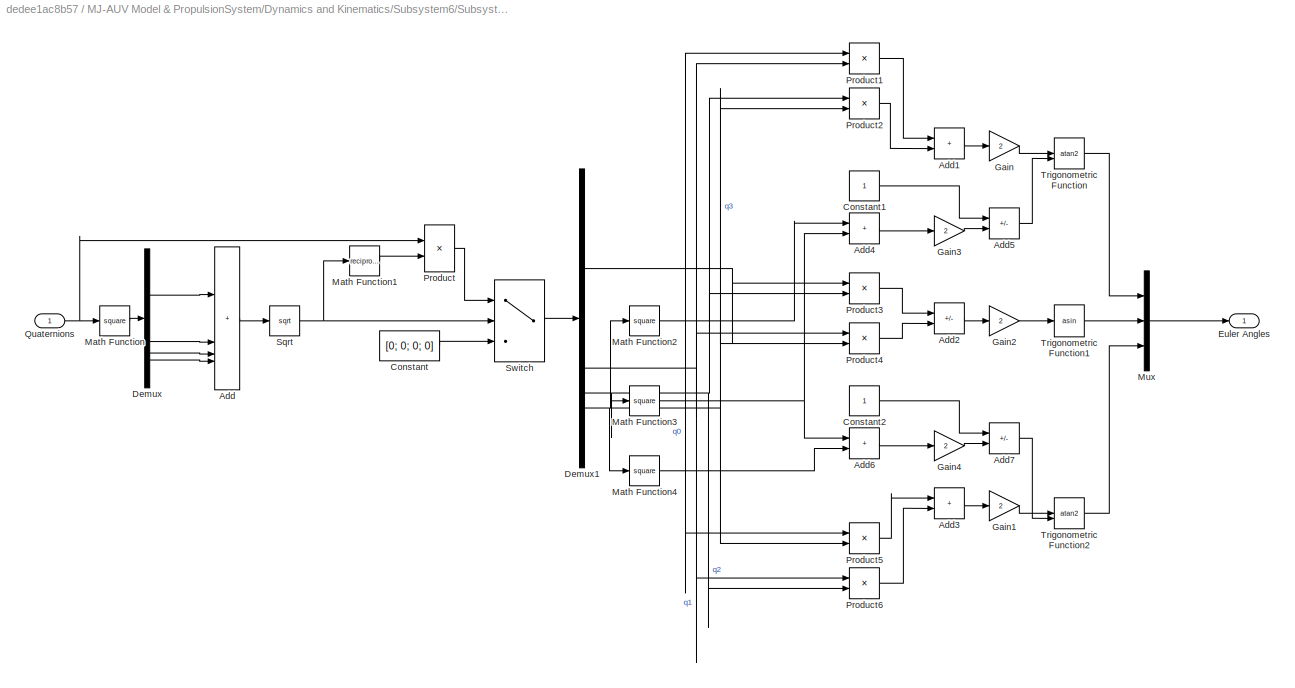
BLOCK [SubSystem] MJ-AUV Model & PropulsionSystem/Dynamics and Kinematics/Subsystem6/Subsystem1/Quaternions to Euler Angles
  NameLocation = top
BLOCK [Sum] MJ-AUV Model & PropulsionSystem/Dynamics and Kinematics/Subsystem6/Subsystem1/Quaternions to Euler Angles/Add
  IconShape = rectangular
  Inputs = 4
BLOCK [Sum] MJ-AUV Model & PropulsionSystem/Dynamics and Kinematics/Subsystem6/Subsystem1/Quaternions to Euler Angles/Add1
  IconShape = rectangular
BLOCK [Sum] MJ-AUV Model & PropulsionSystem/Dynamics and Kinematics/Subsystem6/Subsystem1/Quaternions to Euler Angles/Add2
  IconShape = rectangular
  Inputs = +-
BLOCK [Sum] MJ-AUV Model & PropulsionSystem/Dynamics and Kinematics/Subsystem6/Subsystem1/Quaternions to Euler Angles/Add3
  IconShape = rectangular
BLOCK [Sum] MJ-AUV Model & PropulsionSystem/Dynamics and Kinematics/Subsystem6/Subsystem1/Quaternions to Euler Angles/Add4
  IconShape = rectangular
BLOCK [Sum] MJ-AUV Model & PropulsionSystem/Dynamics and Kinematics/Subsystem6/Subsystem1/Quaternions to Euler Angles/Add5
  IconShape = rectangular
  Inputs = +-
BLOCK [Sum] MJ-AUV Model & PropulsionSystem/Dynamics and Kinematics/Subsystem6/Subsystem1/Quaternions to Euler Angles/Add6
  IconShape = rectangular
BLOCK [Sum] MJ-AUV Model & PropulsionSystem/Dynamics and Kinematics/Subsystem6/Subsystem1/Quaternions to Euler Angles/Add7
  IconShape = rectangular
  Inputs = +-
BLOCK [Constant] MJ-AUV Model & PropulsionSystem/Dynamics and Kinematics/Subsystem6/Subsystem1/Quaternions to Euler Angles/Constant
  Value = [0; 0; 0; 0]
BLOCK [Constant] MJ-AUV Model & PropulsionSystem/Dynamics and Kinematics/Subsystem6/Subsystem1/Quaternions to Euler Angles/Constant1
BLOCK [Constant] MJ-AUV Model & PropulsionSystem/Dynamics and Kinematics/Subsystem6/Subsystem1/Quaternions to Euler Angles/Constant2
BLOCK [Demux] MJ-AUV Model & PropulsionSystem/Dynamics and Kinematics/Subsystem6/Subsystem1/Quaternions to Euler Angles/Demux
BLOCK [Demux] MJ-AUV Model & PropulsionSystem/Dynamics and Kinematics/Subsystem6/Subsystem1/Quaternions to Euler Angles/Demux1
BLOCK [Outport] MJ-AUV Model & PropulsionSystem/Dynamics and Kinematics/Subsystem6/Subsystem1/Quaternions to Euler Angles/Euler Angles
  VectorParamsAs1DForOutWhenUnconnected = off
BLOCK [Gain] MJ-AUV Model & PropulsionSystem/Dynamics and Kinematics/Subsystem6/Subsystem1/Quaternions to Euler Angles/Gain
  Gain = 2
BLOCK [Gain] MJ-AUV Model & PropulsionSystem/Dynamics and Kinematics/Subsystem6/Subsystem1/Quaternions to Euler Angles/Gain1
  Gain = 2
BLOCK [Gain] MJ-AUV Model & PropulsionSystem/Dynamics and Kinematics/Subsystem6/Subsystem1/Quaternions to Euler Angles/Gain2
  Gain = 2
BLOCK [Gain] MJ-AUV Model & PropulsionSystem/Dynamics and Kinematics/Subsystem6/Subsystem1/Quaternions to Euler Angles/Gain3
  Gain = 2
BLOCK [Gain] MJ-AUV Model & PropulsionSystem/Dynamics and Kinematics/Subsystem6/Subsystem1/Quaternions to Euler Angles/Gain4
  Gain = 2
BLOCK [Math] MJ-AUV Model & PropulsionSystem/Dynamics and Kinematics/Subsystem6/Subsystem1/Quaternions to Euler Angles/Math Function
  Operator = square
  SignedPower = on
BLOCK [Math] MJ-AUV Model & PropulsionSystem/Dynamics and Kinematics/Subsystem6/Subsystem1/Quaternions to Euler Angles/Math Function1
  Operator = reciprocal
  SignedPower = on
BLOCK [Math] MJ-AUV Model & PropulsionSystem/Dynamics and Kinematics/Subsystem6/Subsystem1/Quaternions to Euler Angles/Math Function2
  Operator = square
  SignedPower = on
BLOCK [Math] MJ-AUV Model & PropulsionSystem/Dynamics and Kinematics/Subsystem6/Subsystem1/Quaternions to Euler Angles/Math Function3
  Operator = square
  SignedPower = on
BLOCK [Math] MJ-AUV Model & PropulsionSystem/Dynamics and Kinematics/Subsystem6/Subsystem1/Quaternions to Euler Angles/Math Function4
  Operator = square
  SignedPower = on
BLOCK [Mux] MJ-AUV Model & PropulsionSystem/Dynamics and Kinematics/Subsystem6/Subsystem1/Quaternions to Euler Angles/Mux
  DisplayOption = bar
  Inputs = 3
BLOCK [Product] MJ-AUV Model & PropulsionSystem/Dynamics and Kinematics/Subsystem6/Subsystem1/Quaternions to Euler Angles/Product
BLOCK [Product] MJ-AUV Model & PropulsionSystem/Dynamics and Kinematics/Subsystem6/Subsystem1/Quaternions to Euler Angles/Product1
BLOCK [Product] MJ-AUV Model & PropulsionSystem/Dynamics and Kinematics/Subsystem6/Subsystem1/Quaternions to Euler Angles/Product2
BLOCK [Product] MJ-AUV Model & PropulsionSystem/Dynamics and Kinematics/Subsystem6/Subsystem1/Quaternions to Euler Angles/Product3
BLOCK [Product] MJ-AUV Model & PropulsionSystem/Dynamics and Kinematics/Subsystem6/Subsystem1/Quaternions to Euler Angles/Product4
BLOCK [Product] MJ-AUV Model & PropulsionSystem/Dynamics and Kinematics/Subsystem6/Subsystem1/Quaternions to Euler Angles/Product5
BLOCK [Product] MJ-AUV Model & PropulsionSystem/Dynamics and Kinematics/Subsystem6/Subsystem1/Quaternions to Euler Angles/Product6
BLOCK [Inport] MJ-AUV Model & PropulsionSystem/Dynamics and Kinematics/Subsystem6/Subsystem1/Quaternions to Euler Angles/Quaternions
BLOCK [Sqrt] MJ-AUV Model & PropulsionSystem/Dynamics and Kinematics/Subsystem6/Subsystem1/Quaternions to Euler Angles/Sqrt
BLOCK [Switch] MJ-AUV Model & PropulsionSystem/Dynamics and Kinematics/Subsystem6/Subsystem1/Quaternions to Euler Angles/Switch
  Criteria = u2 > Threshold
  InputSameDT = off
  SaturateOnIntegerOverflow = off
BLOCK [Trigonometry] MJ-AUV Model & PropulsionSystem/Dynamics and Kinematics/Subsystem6/Subsystem1/Quaternions to Euler Angles/Trigonometric Function
  Operator = atan2
BLOCK [Trigonometry] MJ-AUV Model & PropulsionSystem/Dynamics and Kinematics/Subsystem6/Subsystem1/Quaternions to Euler Angles/Trigonometric Function1
  Operator = asin
BLOCK [Trigonometry] MJ-AUV Model & PropulsionSystem/Dynamics and Kinematics/Subsystem6/Subsystem1/Quaternions to Euler Angles/Trigonometric Function2
  Operator = atan2
BLOCK [Scope] MJ-AUV Model & PropulsionSystem/Dynamics and Kinematics/Subsystem6/Subsystem1/Scope
  Floating = off
  NameLocation = top
  NumInputPorts = 2
  ScopeSpecificationString = Simulink.scopes.TimeScopeBlockCfg('CurrentConfiguration', extmgr.ConfigurationSet(extmgr.Configuration('Core','General UI',true),extmgr.Configuration('Core','Source UI',true),extmgr.Configuration('Sources','WiredSimulink',true,'DataLoggingVariableName','ScopeData1'),extmgr.Configuration('Visuals','Time Domain',true,'SerializedDisplays',{struct('MinYLimReal','-3.92698','MaxYLimReal','3.92699','YLab...<+1435ch>
BLOCK [Selector] MJ-AUV Model & PropulsionSystem/Dynamics and Kinematics/Subsystem6/Subsystem1/Selector
  IndexOptions = Index vector (dialog)
  Indices = [4 5 6 7]
  InputPortWidth = 7
  NameLocation = top
  OutputSizes = 1
BLOCK [Selector] MJ-AUV Model & PropulsionSystem/Dynamics and Kinematics/Subsystem6/Subsystem1/Selector1
  IndexOptions = Index vector (dialog)
  Indices = [1]
  InputPortWidth = 3
  NameLocation = top
  OutputSizes = 1
BLOCK [Selector] MJ-AUV Model & PropulsionSystem/Dynamics and Kinematics/Subsystem6/Subsystem1/Selector2
  IndexOptions = Index vector (dialog)
  Indices = [1 2 3]
  InputPortWidth = 7
  NameLocation = top
  OutputSizes = 1
BLOCK [SubSystem] MJ-AUV Model & PropulsionSystem/Dynamics and Kinematics/Subsystem6/Subsystem1/Subsystem
  NameLocation = top
BLOCK [Sum] MJ-AUV Model & PropulsionSystem/Dynamics and Kinematics/Subsystem6/Subsystem1/Subsystem/Add
  IconShape = rectangular
BLOCK [Sum] MJ-AUV Model & PropulsionSystem/Dynamics and Kinematics/Subsystem6/Subsystem1/Subsystem/Add1
  IconShape = rectangular
  Inputs = -+
BLOCK [Sum] MJ-AUV Model & PropulsionSystem/Dynamics and Kinematics/Subsystem6/Subsystem1/Subsystem/Add2
  IconShape = rectangular
BLOCK [Sum] MJ-AUV Model & PropulsionSystem/Dynamics and Kinematics/Subsystem6/Subsystem1/Subsystem/Add3
  IconShape = rectangular
  Inputs = +-
BLOCK [Demux] MJ-AUV Model & PropulsionSystem/Dynamics and Kinematics/Subsystem6/Subsystem1/Subsystem/Demux
  Outputs = 3
BLOCK [Demux] MJ-AUV Model & PropulsionSystem/Dynamics and Kinematics/Subsystem6/Subsystem1/Subsystem/Demux1
  Outputs = 3
BLOCK [Inport] MJ-AUV Model & PropulsionSystem/Dynamics and Kinematics/Subsystem6/Subsystem1/Subsystem/Euler Angles 
BLOCK [Gain] MJ-AUV Model & PropulsionSystem/Dynamics and Kinematics/Subsystem6/Subsystem1/Subsystem/Gain
  Gain = 0.5
BLOCK [Mux] MJ-AUV Model & PropulsionSystem/Dynamics and Kinematics/Subsystem6/Subsystem1/Subsystem/Mux
  DisplayOption = bar
BLOCK [Product] MJ-AUV Model & PropulsionSystem/Dynamics and Kinematics/Subsystem6/Subsystem1/Subsystem/Product
  Inputs = 3
BLOCK [Product] MJ-AUV Model & PropulsionSystem/Dynamics and Kinematics/Subsystem6/Subsystem1/Subsystem/Product1
  Inputs = 3
BLOCK [Product] MJ-AUV Model & PropulsionSystem/Dynamics and Kinematics/Subsystem6/Subsystem1/Subsystem/Product2
  Inputs = 3
BLOCK [Product] MJ-AUV Model & PropulsionSystem/Dynamics and Kinematics/Subsystem6/Subsystem1/Subsystem/Product3
  Inputs = 3
BLOCK [Product] MJ-AUV Model & PropulsionSystem/Dynamics and Kinematics/Subsystem6/Subsystem1/Subsystem/Product4
  Inputs = 3
BLOCK [Product] MJ-AUV Model & PropulsionSystem/Dynamics and Kinematics/Subsystem6/Subsystem1/Subsystem/Product5
  Inputs = 3
BLOCK [Product] MJ-AUV Model & PropulsionSystem/Dynamics and Kinematics/Subsystem6/Subsystem1/Subsystem/Product6
  Inputs = 3
BLOCK [Product] MJ-AUV Model & PropulsionSystem/Dynamics and Kinematics/Subsystem6/Subsystem1/Subsystem/Product7
  Inputs = 3
BLOCK [Outport] MJ-AUV Model & PropulsionSystem/Dynamics and Kinematics/Subsystem6/Subsystem1/Subsystem/Quaternions
  VectorParamsAs1DForOutWhenUnconnected = off
BLOCK [Trigonometry] MJ-AUV Model & PropulsionSystem/Dynamics and Kinematics/Subsystem6/Subsystem1/Subsystem/Trigonometric Function
BLOCK [Trigonometry] MJ-AUV Model & PropulsionSystem/Dynamics and Kinematics/Subsystem6/Subsystem1/Subsystem/Trigonometric Function1
  Operator = cos
BLOCK [SubSystem] MJ-AUV Model & PropulsionSystem/Dynamics and Kinematics/Subsystem6/Subsystem1/Subsystem1
BLOCK [Abs] MJ-AUV Model & PropulsionSystem/Dynamics and Kinematics/Subsystem6/Subsystem1/Subsystem1/Abs
  NameLocation = top
  SaturateOnIntegerOverflow = off
BLOCK [Sum] MJ-AUV Model & PropulsionSystem/Dynamics and Kinematics/Subsystem6/Subsystem1/Subsystem1/Add
  IconShape = rectangular
  Inputs = -+
  NameLocation = top
BLOCK [Constant] MJ-AUV Model & PropulsionSystem/Dynamics and Kinematics/Subsystem6/Subsystem1/Subsystem1/Constant
  NameLocation = top
  Value = 2*pi
BLOCK [Inport] MJ-AUV Model & PropulsionSystem/Dynamics and Kinematics/Subsystem6/Subsystem1/Subsystem1/In2
BLOCK [Outport] MJ-AUV Model & PropulsionSystem/Dynamics and Kinematics/Subsystem6/Subsystem1/Subsystem1/Out1
BLOCK [Switch] MJ-AUV Model & PropulsionSystem/Dynamics and Kinematics/Subsystem6/Subsystem1/Subsystem1/Switch
  Criteria = u2 > Threshold
  InputSameDT = off
  NameLocation = top
  SaturateOnIntegerOverflow = off
  Threshold = pi
BLOCK [Sum] MJ-AUV Model & PropulsionSystem/Dynamics and Kinematics/Subsystem6/Subsystem1/Sum
  Inputs = |++
  NameLocation = top
BLOCK [Inport] MJ-AUV Model & PropulsionSystem/Dynamics and Kinematics/Subsystem6/Subsystem1/Theta
  Port = 2
BLOCK [Inport] MJ-AUV Model & PropulsionSystem/Dynamics and Kinematics/Subsystem6/Subsystem1/eta_E_B
BLOCK [Outport] MJ-AUV Model & PropulsionSystem/Dynamics and Kinematics/Subsystem6/Subsystem1/eta_E_S
BLOCK [Sum] MJ-AUV Model & PropulsionSystem/Dynamics and Kinematics/Subsystem6/Sum2
  Inputs = |||+++++
  NameLocation = top
  SaturateOnIntegerOverflow = on
BLOCK [Inport] MJ-AUV Model & PropulsionSystem/Dynamics and Kinematics/Subsystem6/Theta
  NameLocation = top
  Port = 3
BLOCK [Inport] MJ-AUV Model & PropulsionSystem/Dynamics and Kinematics/Subsystem6/eta_E
  NameLocation = top
  Port = 2
BLOCK [Inport] MJ-AUV Model & PropulsionSystem/Dynamics and Kinematics/Subsystem6/nu_S
  NameLocation = top
BLOCK [SubSystem] MJ-AUV Model & PropulsionSystem/Dynamics and Kinematics/Subsystem7
  NameLocation = top
  PortSchema = {"entries":[{"content":{"sides":[{"content":{"connectorIds":["In1","In2"]},"type":"ConnectorPlacement.EquallySpacedRectSide","uuid":"31af84fe-62b1-4301-ba62-b0ce42dbbe74"},{"content":{"connectorIds":["Out1"],"side":"RIGHT"},"type":"ConnectorPlacement.EquallySpacedRectSide","uuid":"9c52d008-6ea2-410e-9598-64e81901bbd4"},{"content":{"connectorIds":["In3"],"side":"TOP"},"type":"ConnectorPlacement.Equ...<+400ch>
BLOCK [Outport] MJ-AUV Model & PropulsionSystem/Dynamics and Kinematics/Subsystem7/(C+D)*nu + g
BLOCK [SubSystem] MJ-AUV Model & PropulsionSystem/Dynamics and Kinematics/Subsystem7/Added Mass Coriolis and centripetal matrix1
BLOCK [Outport] MJ-AUV Model & PropulsionSystem/Dynamics and Kinematics/Subsystem7/Added Mass Coriolis and centripetal matrix1/CA_T
  VectorParamsAs1DForOutWhenUnconnected = off
BLOCK [Gain] MJ-AUV Model & PropulsionSystem/Dynamics and Kinematics/Subsystem7/Added Mass Coriolis and centripetal matrix1/Gain1
  Gain = -1
  NameLocation = top
  OutDataTypeStr = Inherit: Same as input
  ParamDataTypeStr = Inherit: Same as input
  SaturateOnIntegerOverflow = on
BLOCK [Gain] MJ-AUV Model & PropulsionSystem/Dynamics and Kinematics/Subsystem7/Added Mass Coriolis and centripetal matrix1/Gain2
  Gain = -1
  NameLocation = top
  OutDataTypeStr = Inherit: Same as input
  ParamDataTypeStr = Inherit: Same as input
  SaturateOnIntegerOverflow = on
BLOCK [Concatenate] MJ-AUV Model & PropulsionSystem/Dynamics and Kinematics/Subsystem7/Added Mass Coriolis and centripetal matrix1/Matrix Concatenation
  Mode = Multidimensional array
  NameLocation = top
BLOCK [Concatenate] MJ-AUV Model & PropulsionSystem/Dynamics and Kinematics/Subsystem7/Added Mass Coriolis and centripetal matrix1/Matrix Concatenation1
  Mode = Multidimensional array
  NameLocation = top
BLOCK [Concatenate] MJ-AUV Model & PropulsionSystem/Dynamics and Kinematics/Subsystem7/Added Mass Coriolis and centripetal matrix1/Matrix Concatenation2
  ConcatenateDimension = 2
  Mode = Multidimensional array
  NameLocation = top
BLOCK [Product] MJ-AUV Model & PropulsionSystem/Dynamics and Kinematics/Subsystem7/Added Mass Coriolis and centripetal matrix1/Matrix Multiply1
  Multiplication = Matrix(*)
  NameLocation = top
BLOCK [Product] MJ-AUV Model & PropulsionSystem/Dynamics and Kinematics/Subsystem7/Added Mass Coriolis and centripetal matrix1/Matrix Multiply2
  Multiplication = Matrix(*)
  NameLocation = top
BLOCK [Product] MJ-AUV Model & PropulsionSystem/Dynamics and Kinematics/Subsystem7/Added Mass Coriolis and centripetal matrix1/Matrix Multiply3
  Multiplication = Matrix(*)
  NameLocation = top
BLOCK [Product] MJ-AUV Model & PropulsionSystem/Dynamics and Kinematics/Subsystem7/Added Mass Coriolis and centripetal matrix1/Matrix Multiply4
  Multiplication = Matrix(*)
  NameLocation = top
BLOCK [Selector] MJ-AUV Model & PropulsionSystem/Dynamics and Kinematics/Subsystem7/Added Mass Coriolis and centripetal matrix1/Selector1
  IndexOptions = Index vector (dialog)
  Indices = [1 2 3]
  InputPortWidth = 6
  NameLocation = top
  OutputSizes = 1
BLOCK [Selector] MJ-AUV Model & PropulsionSystem/Dynamics and Kinematics/Subsystem7/Added Mass Coriolis and centripetal matrix1/Selector2
  IndexOptions = Index vector (dialog)
  Indices = [4 5 6]
  InputPortWidth = 6
  NameLocation = top
  OutputSizes = 1
BLOCK [SubSystem] MJ-AUV Model & PropulsionSystem/Dynamics and Kinematics/Subsystem7/Added Mass Coriolis and centripetal matrix1/Skew Symmetrical Operator
  NameLocation = top
BLOCK [SubSystem] MJ-AUV Model & PropulsionSystem/Dynamics and Kinematics/Subsystem7/Added Mass Coriolis and centripetal matrix1/Skew Symmetrical Operator 
  NameLocation = top
BLOCK [Constant] MJ-AUV Model & PropulsionSystem/Dynamics and Kinematics/Subsystem7/Added Mass Coriolis and centripetal matrix1/Skew Symmetrical Operator /Constant
  Value = 0
BLOCK [Reference] MJ-AUV Model & PropulsionSystem/Dynamics and Kinematics/Subsystem7/Added Mass Coriolis and centripetal matrix1/Skew Symmetrical Operator /Create 3x3 Matrix  REF=sharedutil/Create 3x3 Matrix
  SourceBlock = sharedutil/Create 3x3 Matrix
  SourceType = Create 3x3 Matrix
BLOCK [Demux] MJ-AUV Model & PropulsionSystem/Dynamics and Kinematics/Subsystem7/Added Mass Coriolis and centripetal matrix1/Skew Symmetrical Operator /Demux
  DisplayOption = none
  Outputs = 3
BLOCK [Gain] MJ-AUV Model & PropulsionSystem/Dynamics and Kinematics/Subsystem7/Added Mass Coriolis and centripetal matrix1/Skew Symmetrical Operator /Gain
  Gain = -1
  OutDataTypeStr = Inherit: Same as input
  ParamDataTypeStr = Inherit: Same as input
  SaturateOnIntegerOverflow = on
BLOCK [Gain] MJ-AUV Model & PropulsionSystem/Dynamics and Kinematics/Subsystem7/Added Mass Coriolis and centripetal matrix1/Skew Symmetrical Operator /Gain1
  Gain = -1
  OutDataTypeStr = Inherit: Same as input
  ParamDataTypeStr = Inherit: Same as input
  SaturateOnIntegerOverflow = on
BLOCK [Gain] MJ-AUV Model & PropulsionSystem/Dynamics and Kinematics/Subsystem7/Added Mass Coriolis and centripetal matrix1/Skew Symmetrical Operator /Gain2
  Gain = -1
  OutDataTypeStr = Inherit: Same as input
  ParamDataTypeStr = Inherit: Same as input
  SaturateOnIntegerOverflow = on
BLOCK [Outport] MJ-AUV Model & PropulsionSystem/Dynamics and Kinematics/Subsystem7/Added Mass Coriolis and centripetal matrix1/Skew Symmetrical Operator /S(V)
  VectorParamsAs1DForOutWhenUnconnected = off
BLOCK [Inport] MJ-AUV Model & PropulsionSystem/Dynamics and Kinematics/Subsystem7/Added Mass Coriolis and centripetal matrix1/Skew Symmetrical Operator /v
BLOCK [Constant] MJ-AUV Model & PropulsionSystem/Dynamics and Kinematics/Subsystem7/Added Mass Coriolis and centripetal matrix1/Skew Symmetrical Operator/Constant
  Value = 0
BLOCK [Reference] MJ-AUV Model & PropulsionSystem/Dynamics and Kinematics/Subsystem7/Added Mass Coriolis and centripetal matrix1/Skew Symmetrical Operator/Create 3x3 Matrix  REF=sharedutil/Create 3x3 Matrix
  SourceBlock = sharedutil/Create 3x3 Matrix
  SourceType = Create 3x3 Matrix
BLOCK [Demux] MJ-AUV Model & PropulsionSystem/Dynamics and Kinematics/Subsystem7/Added Mass Coriolis and centripetal matrix1/Skew Symmetrical Operator/Demux
  DisplayOption = none
  Outputs = 3
BLOCK [Gain] MJ-AUV Model & PropulsionSystem/Dynamics and Kinematics/Subsystem7/Added Mass Coriolis and centripetal matrix1/Skew Symmetrical Operator/Gain
  Gain = -1
  OutDataTypeStr = Inherit: Same as input
  ParamDataTypeStr = Inherit: Same as input
  SaturateOnIntegerOverflow = on
BLOCK [Gain] MJ-AUV Model & PropulsionSystem/Dynamics and Kinematics/Subsystem7/Added Mass Coriolis and centripetal matrix1/Skew Symmetrical Operator/Gain1
  Gain = -1
  OutDataTypeStr = Inherit: Same as input
  ParamDataTypeStr = Inherit: Same as input
  SaturateOnIntegerOverflow = on
BLOCK [Gain] MJ-AUV Model & PropulsionSystem/Dynamics and Kinematics/Subsystem7/Added Mass Coriolis and centripetal matrix1/Skew Symmetrical Operator/Gain2
  Gain = -1
  OutDataTypeStr = Inherit: Same as input
  ParamDataTypeStr = Inherit: Same as input
  SaturateOnIntegerOverflow = on
BLOCK [Outport] MJ-AUV Model & PropulsionSystem/Dynamics and Kinematics/Subsystem7/Added Mass Coriolis and centripetal matrix1/Skew Symmetrical Operator/S(V)
  VectorParamsAs1DForOutWhenUnconnected = off
BLOCK [Inport] MJ-AUV Model & PropulsionSystem/Dynamics and Kinematics/Subsystem7/Added Mass Coriolis and centripetal matrix1/Skew Symmetrical Operator/v
BLOCK [Reference] MJ-AUV Model & PropulsionSystem/Dynamics and Kinematics/Subsystem7/Added Mass Coriolis and centripetal matrix1/Submatrix  REF=matrix_library/Submatrix
  LibrarySourceBlock = simulink/Matrix\nOperations/Submatrix
  NameLocation = top
  SourceBlock = matrix_library/Submatrix
  SourceType = Submatrix
BLOCK [Reference] MJ-AUV Model & PropulsionSystem/Dynamics and Kinematics/Subsystem7/Added Mass Coriolis and centripetal matrix1/Submatrix1  REF=matrix_library/Submatrix
  LibrarySourceBlock = simulink/Matrix\nOperations/Submatrix
  NameLocation = top
  SourceBlock = matrix_library/Submatrix
  SourceType = Submatrix
BLOCK [Reference] MJ-AUV Model & PropulsionSystem/Dynamics and Kinematics/Subsystem7/Added Mass Coriolis and centripetal matrix1/Submatrix2  REF=matrix_library/Submatrix
  LibrarySourceBlock = simulink/Matrix\nOperations/Submatrix
  NameLocation = top
  SourceBlock = matrix_library/Submatrix
  SourceType = Submatrix
BLOCK [Reference] MJ-AUV Model & PropulsionSystem/Dynamics and Kinematics/Subsystem7/Added Mass Coriolis and centripetal matrix1/Submatrix3  REF=matrix_library/Submatrix
  LibrarySourceBlock = simulink/Matrix\nOperations/Submatrix
  NameLocation = top
  SourceBlock = matrix_library/Submatrix
  SourceType = Submatrix
BLOCK [SubSystem] MJ-AUV Model & PropulsionSystem/Dynamics and Kinematics/Subsystem7/Added Mass Coriolis and centripetal matrix1/Subsystem
  NameLocation = top
BLOCK [Reference] MJ-AUV Model & PropulsionSystem/Dynamics and Kinematics/Subsystem7/Added Mass Coriolis and centripetal matrix1/Subsystem/Create Diagonal Matrix1  REF=matrix_library/Create Diagonal
Matrix
  SourceBlock = matrix_library/Create Diagonal\nMatrix
  SourceType = Create Diagonal Matrix
BLOCK [Constant] MJ-AUV Model & PropulsionSystem/Dynamics and Kinematics/Subsystem7/Added Mass Coriolis and centripetal matrix1/Subsystem/K_pdot_T
  Value = 0
BLOCK [Outport] MJ-AUV Model & PropulsionSystem/Dynamics and Kinematics/Subsystem7/Added Mass Coriolis and centripetal matrix1/Subsystem/MA_T
BLOCK [Constant] MJ-AUV Model & PropulsionSystem/Dynamics and Kinematics/Subsystem7/Added Mass Coriolis and centripetal matrix1/Subsystem/M_qdot_T
  Value = (pi*rho*R^2*LT^3)/12
BLOCK [Mux] MJ-AUV Model & PropulsionSystem/Dynamics and Kinematics/Subsystem7/Added Mass Coriolis and centripetal matrix1/Subsystem/Mux
  DisplayOption = bar
  Inputs = 6
BLOCK [Constant] MJ-AUV Model & PropulsionSystem/Dynamics and Kinematics/Subsystem7/Added Mass Coriolis and centripetal matrix1/Subsystem/N_rdot_T
  Value = (pi*rho*R^2*LT^3)/12
BLOCK [Reshape] MJ-AUV Model & PropulsionSystem/Dynamics and Kinematics/Subsystem7/Added Mass Coriolis and centripetal matrix1/Subsystem/Reshape1
  OutputDimensionality = Column vector (2-D)
  OutputDimensions = [6,6]
BLOCK [Constant] MJ-AUV Model & PropulsionSystem/Dynamics and Kinematics/Subsystem7/Added Mass Coriolis and centripetal matrix1/Subsystem/X_udot_T
  Value = 0.1*mT
BLOCK [Constant] MJ-AUV Model & PropulsionSystem/Dynamics and Kinematics/Subsystem7/Added Mass Coriolis and centripetal matrix1/Subsystem/Y_vdot_T
  Value = pi*rho*R*R*LT
BLOCK [Constant] MJ-AUV Model & PropulsionSystem/Dynamics and Kinematics/Subsystem7/Added Mass Coriolis and centripetal matrix1/Subsystem/Z_wdot_T
  Value = pi*rho*R^2*LT
BLOCK [Sum] MJ-AUV Model & PropulsionSystem/Dynamics and Kinematics/Subsystem7/Added Mass Coriolis and centripetal matrix1/Sum2
  Inputs = |++
  NameLocation = top
  SaturateOnIntegerOverflow = on
BLOCK [Sum] MJ-AUV Model & PropulsionSystem/Dynamics and Kinematics/Subsystem7/Added Mass Coriolis and centripetal matrix1/Sum3
  Inputs = |++
  NameLocation = top
  SaturateOnIntegerOverflow = on
BLOCK [Constant] MJ-AUV Model & PropulsionSystem/Dynamics and Kinematics/Subsystem7/Added Mass Coriolis and centripetal matrix1/Zero matrix (3 x 3)
  NameLocation = top
  Value = zeros(3,3)
BLOCK [Inport] MJ-AUV Model & PropulsionSystem/Dynamics and Kinematics/Subsystem7/Added Mass Coriolis and centripetal matrix1/nu_T
  NameLocation = right
BLOCK [Constant] MJ-AUV Model & PropulsionSystem/Dynamics and Kinematics/Subsystem7/B_T0
  NameLocation = top
  Value = 498.45
BLOCK [Constant] MJ-AUV Model & PropulsionSystem/Dynamics and Kinematics/Subsystem7/Constant
  NameLocation = top
  Value = 0
BLOCK [SubSystem] MJ-AUV Model & PropulsionSystem/Dynamics and Kinematics/Subsystem7/Damping forces1
BLOCK [Abs] MJ-AUV Model & PropulsionSystem/Dynamics and Kinematics/Subsystem7/Damping forces1/Abs
  NameLocation = top
BLOCK [Reference] MJ-AUV Model & PropulsionSystem/Dynamics and Kinematics/Subsystem7/Damping forces1/Create Diagonal Matrix  REF=matrix_library/Create Diagonal
Matrix
  NameLocation = top
  SourceBlock = matrix_library/Create Diagonal\nMatrix
  SourceType = Create Diagonal Matrix
BLOCK [Outport] MJ-AUV Model & PropulsionSystem/Dynamics and Kinematics/Subsystem7/Damping forces1/D * nu_T
  VectorParamsAs1DForOutWhenUnconnected = off
BLOCK [Gain] MJ-AUV Model & PropulsionSystem/Dynamics and Kinematics/Subsystem7/Damping forces1/Gain
  Gain = -1
BLOCK [Constant] MJ-AUV Model & PropulsionSystem/Dynamics and Kinematics/Subsystem7/Damping forces1/Linear Damping Matrix
  NameLocation = top
  Value = DL
BLOCK [Product] MJ-AUV Model & PropulsionSystem/Dynamics and Kinematics/Subsystem7/Damping forces1/Matrix Multiply
  Multiplication = Matrix(*)
  NameLocation = top
BLOCK [Product] MJ-AUV Model & PropulsionSystem/Dynamics and Kinematics/Subsystem7/Damping forces1/Product
  NameLocation = top
  OutDataTypeStr = Inherit: Same as first input
  SaturateOnIntegerOverflow = on
BLOCK [Constant] MJ-AUV Model & PropulsionSystem/Dynamics and Kinematics/Subsystem7/Damping forces1/Quadratic Damping Vector
  NameLocation = top
  Value = dQ_T
BLOCK [Reshape] MJ-AUV Model & PropulsionSystem/Dynamics and Kinematics/Subsystem7/Damping forces1/Reshape1
  NameLocation = top
  OutputDimensionality = Column vector (2-D)
BLOCK [Reshape] MJ-AUV Model & PropulsionSystem/Dynamics and Kinematics/Subsystem7/Damping forces1/Reshape2
  NameLocation = top
  OutputDimensionality = Column vector (2-D)
  OutputDimensions = [6,6]
BLOCK [Sum] MJ-AUV Model & PropulsionSystem/Dynamics and Kinematics/Subsystem7/Damping forces1/Sum1
  Inputs = |++
  NameLocation = top
  SaturateOnIntegerOverflow = on
BLOCK [Inport] MJ-AUV Model & PropulsionSystem/Dynamics and Kinematics/Subsystem7/Damping forces1/nu_T
BLOCK [Inport] MJ-AUV Model & PropulsionSystem/Dynamics and Kinematics/Subsystem7/In Bus Element2
  NameLocation = top
  Port = 4
BLOCK [Product] MJ-AUV Model & PropulsionSystem/Dynamics and Kinematics/Subsystem7/Matrix Multiply3
  Multiplication = Matrix(*)
  NameLocation = top
BLOCK [Product] MJ-AUV Model & PropulsionSystem/Dynamics and Kinematics/Subsystem7/Matrix Multiply4
  Multiplication = Matrix(*)
  NameLocation = top
BLOCK [SubSystem] MJ-AUV Model & PropulsionSystem/Dynamics and Kinematics/Subsystem7/Restoring forces1
  NameLocation = top
  PortSchema = {"entries":[{"content":{"sides":[{"content":{"connectorIds":["In1"]},"type":"ConnectorPlacement.EquallySpacedRectSide","uuid":"36ccd2e0-0138-42d8-a792-30a059f1fcb3"},{"content":{"connectorIds":["Out1"],"side":"RIGHT"},"type":"ConnectorPlacement.EquallySpacedRectSide","uuid":"bc52fce8-ed6b-4915-ba7e-22ff9e979437"},{"content":{"connectorIds":[],"side":"TOP"},"type":"ConnectorPlacement.EquallySpacedR...<+389ch>
BLOCK [Reference] MJ-AUV Model & PropulsionSystem/Dynamics and Kinematics/Subsystem7/Restoring forces1/3x3 Cross Product  REF=sharedutil/3x3 Cross Product
  NameLocation = top
  SourceBlock = sharedutil/3x3 Cross Product
  SourceType = CrossProduct
BLOCK [Reference] MJ-AUV Model & PropulsionSystem/Dynamics and Kinematics/Subsystem7/Restoring forces1/3x3 Cross Product1  REF=sharedutil/3x3 Cross Product
  NameLocation = top
  SourceBlock = sharedutil/3x3 Cross Product
  SourceType = CrossProduct
BLOCK [Inport] MJ-AUV Model & PropulsionSystem/Dynamics and Kinematics/Subsystem7/Restoring forces1/B_T
  NameLocation = top
  Port = 2
BLOCK [Constant] MJ-AUV Model & PropulsionSystem/Dynamics and Kinematics/Subsystem7/Restoring forces1/Constant
  NameLocation = top
  Value = 0
BLOCK [SubSystem] MJ-AUV Model & PropulsionSystem/Dynamics and Kinematics/Subsystem7/Restoring forces1/E1(e)
  NameLocation = top
BLOCK [Outport] MJ-AUV Model & PropulsionSystem/Dynamics and Kinematics/Subsystem7/Restoring forces1/E1(e)/E1
  VectorParamsAs1DForOutWhenUnconnected = off
BLOCK [Gain] MJ-AUV Model & PropulsionSystem/Dynamics and Kinematics/Subsystem7/Restoring forces1/E1(e)/Gain
  Gain = 2
  OutDataTypeStr = Inherit: Same as input
  ParamDataTypeStr = Inherit: Same as input
  SaturateOnIntegerOverflow = on
BLOCK [Gain] MJ-AUV Model & PropulsionSystem/Dynamics and Kinematics/Subsystem7/Restoring forces1/E1(e)/Gain 
  Gain = 2
  OutDataTypeStr = Inherit: Same as input
  ParamDataTypeStr = Inherit: Same as input
  SaturateOnIntegerOverflow = on
BLOCK [Constant] MJ-AUV Model & PropulsionSystem/Dynamics and Kinematics/Subsystem7/Restoring forces1/E1(e)/I (3x3)
  Value = eye(3)
BLOCK [Product] MJ-AUV Model & PropulsionSystem/Dynamics and Kinematics/Subsystem7/Restoring forces1/E1(e)/Matrix Multiply
  Multiplication = Matrix(*)
BLOCK [Product] MJ-AUV Model & PropulsionSystem/Dynamics and Kinematics/Subsystem7/Restoring forces1/E1(e)/Product
  OutDataTypeStr = Inherit: Same as first input
  SaturateOnIntegerOverflow = on
BLOCK [Selector] MJ-AUV Model & PropulsionSystem/Dynamics and Kinematics/Subsystem7/Restoring forces1/E1(e)/Selector
  IndexOptions = Index vector (dialog)
  Indices = [1]
  InputPortWidth = 4
  OutputSizes = 1
BLOCK [Selector] MJ-AUV Model & PropulsionSystem/Dynamics and Kinematics/Subsystem7/Restoring forces1/E1(e)/Selector1
  IndexOptions = Index vector (dialog)
  Indices = [2 3 4]
  InputPortWidth = 4
  OutputSizes = 1
BLOCK [SubSystem] MJ-AUV Model & PropulsionSystem/Dynamics and Kinematics/Subsystem7/Restoring forces1/E1(e)/Skew Symmetrical Operator
BLOCK [Constant] MJ-AUV Model & PropulsionSystem/Dynamics and Kinematics/Subsystem7/Restoring forces1/E1(e)/Skew Symmetrical Operator/Constant
  Value = 0
BLOCK [Reference] MJ-AUV Model & PropulsionSystem/Dynamics and Kinematics/Subsystem7/Restoring forces1/E1(e)/Skew Symmetrical Operator/Create 3x3 Matrix  REF=sharedutil/Create 3x3 Matrix
  SourceBlock = sharedutil/Create 3x3 Matrix
  SourceType = Create 3x3 Matrix
BLOCK [Demux] MJ-AUV Model & PropulsionSystem/Dynamics and Kinematics/Subsystem7/Restoring forces1/E1(e)/Skew Symmetrical Operator/Demux
  DisplayOption = none
  Outputs = 3
BLOCK [Gain] MJ-AUV Model & PropulsionSystem/Dynamics and Kinematics/Subsystem7/Restoring forces1/E1(e)/Skew Symmetrical Operator/Gain
  Gain = -1
  OutDataTypeStr = Inherit: Same as input
  ParamDataTypeStr = Inherit: Same as input
  SaturateOnIntegerOverflow = on
BLOCK [Gain] MJ-AUV Model & PropulsionSystem/Dynamics and Kinematics/Subsystem7/Restoring forces1/E1(e)/Skew Symmetrical Operator/Gain1
  Gain = -1
  OutDataTypeStr = Inherit: Same as input
  ParamDataTypeStr = Inherit: Same as input
  SaturateOnIntegerOverflow = on
BLOCK [Gain] MJ-AUV Model & PropulsionSystem/Dynamics and Kinematics/Subsystem7/Restoring forces1/E1(e)/Skew Symmetrical Operator/Gain2
  Gain = -1
  OutDataTypeStr = Inherit: Same as input
  ParamDataTypeStr = Inherit: Same as input
  SaturateOnIntegerOverflow = on
BLOCK [Outport] MJ-AUV Model & PropulsionSystem/Dynamics and Kinematics/Subsystem7/Restoring forces1/E1(e)/Skew Symmetrical Operator/S(V)
  VectorParamsAs1DForOutWhenUnconnected = off
BLOCK [Inport] MJ-AUV Model & PropulsionSystem/Dynamics and Kinematics/Subsystem7/Restoring forces1/E1(e)/Skew Symmetrical Operator/v
BLOCK [Sum] MJ-AUV Model & PropulsionSystem/Dynamics and Kinematics/Subsystem7/Restoring forces1/E1(e)/Sum
  Inputs = +++
  SaturateOnIntegerOverflow = on
BLOCK [Inport] MJ-AUV Model & PropulsionSystem/Dynamics and Kinematics/Subsystem7/Restoring forces1/E1(e)/e
BLOCK [Gain] MJ-AUV Model & PropulsionSystem/Dynamics and Kinematics/Subsystem7/Restoring forces1/Gain
  Gain = -1
  NameLocation = top
  OutDataTypeStr = Inherit: Same as input
  ParamDataTypeStr = Inherit: Same as input
  SaturateOnIntegerOverflow = on
BLOCK [Gain] MJ-AUV Model & PropulsionSystem/Dynamics and Kinematics/Subsystem7/Restoring forces1/Gain1
  Gain = -1
  NameLocation = top
BLOCK [Product] MJ-AUV Model & PropulsionSystem/Dynamics and Kinematics/Subsystem7/Restoring forces1/Matrix Multiply
  Multiplication = Matrix(*)
  NameLocation = top
BLOCK [Product] MJ-AUV Model & PropulsionSystem/Dynamics and Kinematics/Subsystem7/Restoring forces1/Matrix Multiply1
  Multiplication = Matrix(*)
  NameLocation = top
BLOCK [Mux] MJ-AUV Model & PropulsionSystem/Dynamics and Kinematics/Subsystem7/Restoring forces1/Mux
  DisplayOption = bar
  Inputs = 2
  NameLocation = top
BLOCK [Mux] MJ-AUV Model & PropulsionSystem/Dynamics and Kinematics/Subsystem7/Restoring forces1/Mux1
  DisplayOption = bar
  Inputs = 3
  NameLocation = top
BLOCK [Selector] MJ-AUV Model & PropulsionSystem/Dynamics and Kinematics/Subsystem7/Restoring forces1/Selector
  IndexOptions = Index vector (dialog)
  Indices = [4 5 6 7]
  InputPortWidth = 7
  NameLocation = top
  OutputSizes = 1
BLOCK [Sum] MJ-AUV Model & PropulsionSystem/Dynamics and Kinematics/Subsystem7/Restoring forces1/Sum1
  Inputs = |++
  NameLocation = top
  SaturateOnIntegerOverflow = on
BLOCK [Sum] MJ-AUV Model & PropulsionSystem/Dynamics and Kinematics/Subsystem7/Restoring forces1/Sum2
  Inputs = |++
  NameLocation = top
  SaturateOnIntegerOverflow = on
BLOCK [Math] MJ-AUV Model & PropulsionSystem/Dynamics and Kinematics/Subsystem7/Restoring forces1/Transpose
  NameLocation = top
  Operator = transpose
  SignedPower = on
BLOCK [Inport] MJ-AUV Model & PropulsionSystem/Dynamics and Kinematics/Subsystem7/Restoring forces1/eta_E
BLOCK [Constant] MJ-AUV Model & PropulsionSystem/Dynamics and Kinematics/Subsystem7/Restoring forces1/fGT_E
  NameLocation = top
  Value = [0;0;W_T]
BLOCK [Outport] MJ-AUV Model & PropulsionSystem/Dynamics and Kinematics/Subsystem7/Restoring forces1/g(eta_E)_T
  VectorParamsAs1DForOutWhenUnconnected = off
BLOCK [Constant] MJ-AUV Model & PropulsionSystem/Dynamics and Kinematics/Subsystem7/Restoring forces1/rB_T
  NameLocation = top
  Value = rB_T
BLOCK [Constant] MJ-AUV Model & PropulsionSystem/Dynamics and Kinematics/Subsystem7/Restoring forces1/rG_T
  NameLocation = top
  Value = rG_T
BLOCK [SubSystem] MJ-AUV Model & PropulsionSystem/Dynamics and Kinematics/Subsystem7/Rigid-body Coriolis and centripetal matrix1
BLOCK [Outport] MJ-AUV Model & PropulsionSystem/Dynamics and Kinematics/Subsystem7/Rigid-body Coriolis and centripetal matrix1/CRB_T
  VectorParamsAs1DForOutWhenUnconnected = off
BLOCK [Gain] MJ-AUV Model & PropulsionSystem/Dynamics and Kinematics/Subsystem7/Rigid-body Coriolis and centripetal matrix1/Gain
  Gain = mT
  NameLocation = top
  OutDataTypeStr = Inherit: Same as input
  ParamDataTypeStr = Inherit: Same as input
  SaturateOnIntegerOverflow = on
BLOCK [Gain] MJ-AUV Model & PropulsionSystem/Dynamics and Kinematics/Subsystem7/Rigid-body Coriolis and centripetal matrix1/Gain1
  Gain = -mT
  NameLocation = top
  OutDataTypeStr = Inherit: Same as input
  ParamDataTypeStr = Inherit: Same as input
  SaturateOnIntegerOverflow = on
BLOCK [Gain] MJ-AUV Model & PropulsionSystem/Dynamics and Kinematics/Subsystem7/Rigid-body Coriolis and centripetal matrix1/Gain2
  Gain = -1
  NameLocation = top
  OutDataTypeStr = Inherit: Same as input
  ParamDataTypeStr = Inherit: Same as input
  SaturateOnIntegerOverflow = on
BLOCK [Concatenate] MJ-AUV Model & PropulsionSystem/Dynamics and Kinematics/Subsystem7/Rigid-body Coriolis and centripetal matrix1/Matrix Concatenation
  Mode = Multidimensional array
  NameLocation = top
BLOCK [Concatenate] MJ-AUV Model & PropulsionSystem/Dynamics and Kinematics/Subsystem7/Rigid-body Coriolis and centripetal matrix1/Matrix Concatenation1
  Mode = Multidimensional array
  NameLocation = top
BLOCK [Concatenate] MJ-AUV Model & PropulsionSystem/Dynamics and Kinematics/Subsystem7/Rigid-body Coriolis and centripetal matrix1/Matrix Concatenation2
  ConcatenateDimension = 2
  Mode = Multidimensional array
  NameLocation = top
BLOCK [Product] MJ-AUV Model & PropulsionSystem/Dynamics and Kinematics/Subsystem7/Rigid-body Coriolis and centripetal matrix1/Matrix Multiply
  Multiplication = Matrix(*)
  NameLocation = top
BLOCK [Product] MJ-AUV Model & PropulsionSystem/Dynamics and Kinematics/Subsystem7/Rigid-body Coriolis and centripetal matrix1/Matrix Multiply1
  Multiplication = Matrix(*)
  NameLocation = top
BLOCK [Product] MJ-AUV Model & PropulsionSystem/Dynamics and Kinematics/Subsystem7/Rigid-body Coriolis and centripetal matrix1/Matrix Multiply2
  Multiplication = Matrix(*)
  NameLocation = top
BLOCK [Selector] MJ-AUV Model & PropulsionSystem/Dynamics and Kinematics/Subsystem7/Rigid-body Coriolis and centripetal matrix1/Selector
  IndexOptions = Index vector (dialog)
  Indices = [4 5 6]
  InputPortWidth = 6
  NameLocation = top
  OutputSizes = 1
BLOCK [Selector] MJ-AUV Model & PropulsionSystem/Dynamics and Kinematics/Subsystem7/Rigid-body Coriolis and centripetal matrix1/Selector1
  IndexOptions = Index vector (dialog)
  Indices = [1 2 3]
  InputPortWidth = 6
  NameLocation = top
  OutputSizes = 1
BLOCK [SubSystem] MJ-AUV Model & PropulsionSystem/Dynamics and Kinematics/Subsystem7/Rigid-body Coriolis and centripetal matrix1/Skew Symmetrical Operator
  NameLocation = top
BLOCK [SubSystem] MJ-AUV Model & PropulsionSystem/Dynamics and Kinematics/Subsystem7/Rigid-body Coriolis and centripetal matrix1/Skew Symmetrical Operator 
  NameLocation = top
BLOCK [SubSystem] MJ-AUV Model & PropulsionSystem/Dynamics and Kinematics/Subsystem7/Rigid-body Coriolis and centripetal matrix1/Skew Symmetrical Operator  
  NameLocation = top
BLOCK [Constant] MJ-AUV Model & PropulsionSystem/Dynamics and Kinematics/Subsystem7/Rigid-body Coriolis and centripetal matrix1/Skew Symmetrical Operator  /Constant
  Value = 0
BLOCK [Reference] MJ-AUV Model & PropulsionSystem/Dynamics and Kinematics/Subsystem7/Rigid-body Coriolis and centripetal matrix1/Skew Symmetrical Operator  /Create 3x3 Matrix  REF=sharedutil/Create 3x3 Matrix
  SourceBlock = sharedutil/Create 3x3 Matrix
  SourceType = Create 3x3 Matrix
BLOCK [Demux] MJ-AUV Model & PropulsionSystem/Dynamics and Kinematics/Subsystem7/Rigid-body Coriolis and centripetal matrix1/Skew Symmetrical Operator  /Demux
  DisplayOption = none
  Outputs = 3
BLOCK [Gain] MJ-AUV Model & PropulsionSystem/Dynamics and Kinematics/Subsystem7/Rigid-body Coriolis and centripetal matrix1/Skew Symmetrical Operator  /Gain
  Gain = -1
  OutDataTypeStr = Inherit: Same as input
  ParamDataTypeStr = Inherit: Same as input
  SaturateOnIntegerOverflow = on
BLOCK [Gain] MJ-AUV Model & PropulsionSystem/Dynamics and Kinematics/Subsystem7/Rigid-body Coriolis and centripetal matrix1/Skew Symmetrical Operator  /Gain1
  Gain = -1
  OutDataTypeStr = Inherit: Same as input
  ParamDataTypeStr = Inherit: Same as input
  SaturateOnIntegerOverflow = on
BLOCK [Gain] MJ-AUV Model & PropulsionSystem/Dynamics and Kinematics/Subsystem7/Rigid-body Coriolis and centripetal matrix1/Skew Symmetrical Operator  /Gain2
  Gain = -1
  OutDataTypeStr = Inherit: Same as input
  ParamDataTypeStr = Inherit: Same as input
  SaturateOnIntegerOverflow = on
BLOCK [Outport] MJ-AUV Model & PropulsionSystem/Dynamics and Kinematics/Subsystem7/Rigid-body Coriolis and centripetal matrix1/Skew Symmetrical Operator  /S(V)
  VectorParamsAs1DForOutWhenUnconnected = off
BLOCK [Inport] MJ-AUV Model & PropulsionSystem/Dynamics and Kinematics/Subsystem7/Rigid-body Coriolis and centripetal matrix1/Skew Symmetrical Operator  /v
BLOCK [Constant] MJ-AUV Model & PropulsionSystem/Dynamics and Kinematics/Subsystem7/Rigid-body Coriolis and centripetal matrix1/Skew Symmetrical Operator /Constant
  Value = 0
BLOCK [Reference] MJ-AUV Model & PropulsionSystem/Dynamics and Kinematics/Subsystem7/Rigid-body Coriolis and centripetal matrix1/Skew Symmetrical Operator /Create 3x3 Matrix  REF=sharedutil/Create 3x3 Matrix
  SourceBlock = sharedutil/Create 3x3 Matrix
  SourceType = Create 3x3 Matrix
BLOCK [Demux] MJ-AUV Model & PropulsionSystem/Dynamics and Kinematics/Subsystem7/Rigid-body Coriolis and centripetal matrix1/Skew Symmetrical Operator /Demux
  DisplayOption = none
  Outputs = 3
BLOCK [Gain] MJ-AUV Model & PropulsionSystem/Dynamics and Kinematics/Subsystem7/Rigid-body Coriolis and centripetal matrix1/Skew Symmetrical Operator /Gain
  Gain = -1
  OutDataTypeStr = Inherit: Same as input
  ParamDataTypeStr = Inherit: Same as input
  SaturateOnIntegerOverflow = on
BLOCK [Gain] MJ-AUV Model & PropulsionSystem/Dynamics and Kinematics/Subsystem7/Rigid-body Coriolis and centripetal matrix1/Skew Symmetrical Operator /Gain1
  Gain = -1
  OutDataTypeStr = Inherit: Same as input
  ParamDataTypeStr = Inherit: Same as input
  SaturateOnIntegerOverflow = on
BLOCK [Gain] MJ-AUV Model & PropulsionSystem/Dynamics and Kinematics/Subsystem7/Rigid-body Coriolis and centripetal matrix1/Skew Symmetrical Operator /Gain2
  Gain = -1
  OutDataTypeStr = Inherit: Same as input
  ParamDataTypeStr = Inherit: Same as input
  SaturateOnIntegerOverflow = on
BLOCK [Outport] MJ-AUV Model & PropulsionSystem/Dynamics and Kinematics/Subsystem7/Rigid-body Coriolis and centripetal matrix1/Skew Symmetrical Operator /S(V)
  VectorParamsAs1DForOutWhenUnconnected = off
BLOCK [Inport] MJ-AUV Model & PropulsionSystem/Dynamics and Kinematics/Subsystem7/Rigid-body Coriolis and centripetal matrix1/Skew Symmetrical Operator /v
BLOCK [Constant] MJ-AUV Model & PropulsionSystem/Dynamics and Kinematics/Subsystem7/Rigid-body Coriolis and centripetal matrix1/Skew Symmetrical Operator/Constant
  Value = 0
BLOCK [Reference] MJ-AUV Model & PropulsionSystem/Dynamics and Kinematics/Subsystem7/Rigid-body Coriolis and centripetal matrix1/Skew Symmetrical Operator/Create 3x3 Matrix  REF=sharedutil/Create 3x3 Matrix
  SourceBlock = sharedutil/Create 3x3 Matrix
  SourceType = Create 3x3 Matrix
BLOCK [Demux] MJ-AUV Model & PropulsionSystem/Dynamics and Kinematics/Subsystem7/Rigid-body Coriolis and centripetal matrix1/Skew Symmetrical Operator/Demux
  DisplayOption = none
  Outputs = 3
BLOCK [Gain] MJ-AUV Model & PropulsionSystem/Dynamics and Kinematics/Subsystem7/Rigid-body Coriolis and centripetal matrix1/Skew Symmetrical Operator/Gain
  Gain = -1
  OutDataTypeStr = Inherit: Same as input
  ParamDataTypeStr = Inherit: Same as input
  SaturateOnIntegerOverflow = on
BLOCK [Gain] MJ-AUV Model & PropulsionSystem/Dynamics and Kinematics/Subsystem7/Rigid-body Coriolis and centripetal matrix1/Skew Symmetrical Operator/Gain1
  Gain = -1
  OutDataTypeStr = Inherit: Same as input
  ParamDataTypeStr = Inherit: Same as input
  SaturateOnIntegerOverflow = on
BLOCK [Gain] MJ-AUV Model & PropulsionSystem/Dynamics and Kinematics/Subsystem7/Rigid-body Coriolis and centripetal matrix1/Skew Symmetrical Operator/Gain2
  Gain = -1
  OutDataTypeStr = Inherit: Same as input
  ParamDataTypeStr = Inherit: Same as input
  SaturateOnIntegerOverflow = on
BLOCK [Outport] MJ-AUV Model & PropulsionSystem/Dynamics and Kinematics/Subsystem7/Rigid-body Coriolis and centripetal matrix1/Skew Symmetrical Operator/S(V)
  VectorParamsAs1DForOutWhenUnconnected = off
BLOCK [Inport] MJ-AUV Model & PropulsionSystem/Dynamics and Kinematics/Subsystem7/Rigid-body Coriolis and centripetal matrix1/Skew Symmetrical Operator/v
BLOCK [SubSystem] MJ-AUV Model & PropulsionSystem/Dynamics and Kinematics/Subsystem7/Rigid-body Coriolis and centripetal matrix1/Subsystem
  NameLocation = top
BLOCK [Sum] MJ-AUV Model & PropulsionSystem/Dynamics and Kinematics/Subsystem7/Rigid-body Coriolis and centripetal matrix1/Subsystem/Add
  IconShape = rectangular
BLOCK [Constant] MJ-AUV Model & PropulsionSystem/Dynamics and Kinematics/Subsystem7/Rigid-body Coriolis and centripetal matrix1/Subsystem/Constant2
  Value = IT
BLOCK [Gain] MJ-AUV Model & PropulsionSystem/Dynamics and Kinematics/Subsystem7/Rigid-body Coriolis and centripetal matrix1/Subsystem/Gain5
  Gain = -mT
BLOCK [Outport] MJ-AUV Model & PropulsionSystem/Dynamics and Kinematics/Subsystem7/Rigid-body Coriolis and centripetal matrix1/Subsystem/Ib_T
BLOCK [Product] MJ-AUV Model & PropulsionSystem/Dynamics and Kinematics/Subsystem7/Rigid-body Coriolis and centripetal matrix1/Subsystem/Matrix Multiply4
  Multiplication = Matrix(*)
BLOCK [SubSystem] MJ-AUV Model & PropulsionSystem/Dynamics and Kinematics/Subsystem7/Rigid-body Coriolis and centripetal matrix1/Subsystem/Skew Symmetrical Operator1
BLOCK [Constant] MJ-AUV Model & PropulsionSystem/Dynamics and Kinematics/Subsystem7/Rigid-body Coriolis and centripetal matrix1/Subsystem/Skew Symmetrical Operator1/Constant
  Value = 0
BLOCK [Reference] MJ-AUV Model & PropulsionSystem/Dynamics and Kinematics/Subsystem7/Rigid-body Coriolis and centripetal matrix1/Subsystem/Skew Symmetrical Operator1/Create 3x3 Matrix  REF=sharedutil/Create 3x3 Matrix
  SourceBlock = sharedutil/Create 3x3 Matrix
  SourceType = Create 3x3 Matrix
BLOCK [Demux] MJ-AUV Model & PropulsionSystem/Dynamics and Kinematics/Subsystem7/Rigid-body Coriolis and centripetal matrix1/Subsystem/Skew Symmetrical Operator1/Demux
  DisplayOption = none
  Outputs = 3
BLOCK [Gain] MJ-AUV Model & PropulsionSystem/Dynamics and Kinematics/Subsystem7/Rigid-body Coriolis and centripetal matrix1/Subsystem/Skew Symmetrical Operator1/Gain
  Gain = -1
  OutDataTypeStr = Inherit: Same as input
  ParamDataTypeStr = Inherit: Same as input
  SaturateOnIntegerOverflow = on
BLOCK [Gain] MJ-AUV Model & PropulsionSystem/Dynamics and Kinematics/Subsystem7/Rigid-body Coriolis and centripetal matrix1/Subsystem/Skew Symmetrical Operator1/Gain1
  Gain = -1
  OutDataTypeStr = Inherit: Same as input
  ParamDataTypeStr = Inherit: Same as input
  SaturateOnIntegerOverflow = on
BLOCK [Gain] MJ-AUV Model & PropulsionSystem/Dynamics and Kinematics/Subsystem7/Rigid-body Coriolis and centripetal matrix1/Subsystem/Skew Symmetrical Operator1/Gain2
  Gain = -1
  OutDataTypeStr = Inherit: Same as input
  ParamDataTypeStr = Inherit: Same as input
  SaturateOnIntegerOverflow = on
BLOCK [Outport] MJ-AUV Model & PropulsionSystem/Dynamics and Kinematics/Subsystem7/Rigid-body Coriolis and centripetal matrix1/Subsystem/Skew Symmetrical Operator1/S(V)
  VectorParamsAs1DForOutWhenUnconnected = off
BLOCK [Inport] MJ-AUV Model & PropulsionSystem/Dynamics and Kinematics/Subsystem7/Rigid-body Coriolis and centripetal matrix1/Subsystem/Skew Symmetrical Operator1/v
BLOCK [Inport] MJ-AUV Model & PropulsionSystem/Dynamics and Kinematics/Subsystem7/Rigid-body Coriolis and centripetal matrix1/Subsystem/rG_T
BLOCK [Sum] MJ-AUV Model & PropulsionSystem/Dynamics and Kinematics/Subsystem7/Rigid-body Coriolis and centripetal matrix1/Sum1
  Inputs = |++
  NameLocation = top
  SaturateOnIntegerOverflow = on
BLOCK [Sum] MJ-AUV Model & PropulsionSystem/Dynamics and Kinematics/Subsystem7/Rigid-body Coriolis and centripetal matrix1/Sum2
  Inputs = |-+
  NameLocation = top
  SaturateOnIntegerOverflow = on
BLOCK [Constant] MJ-AUV Model & PropulsionSystem/Dynamics and Kinematics/Subsystem7/Rigid-body Coriolis and centripetal matrix1/Zero matrix (3 x 3)
  NameLocation = top
  Value = zeros(3,3)
BLOCK [Inport] MJ-AUV Model & PropulsionSystem/Dynamics and Kinematics/Subsystem7/Rigid-body Coriolis and centripetal matrix1/nu_T
BLOCK [Constant] MJ-AUV Model & PropulsionSystem/Dynamics and Kinematics/Subsystem7/Rigid-body Coriolis and centripetal matrix1/rG_T
  NameLocation = top
  Value = rG_T
BLOCK [SubSystem] MJ-AUV Model & PropulsionSystem/Dynamics and Kinematics/Subsystem7/Subsystem1
  NameLocation = top
BLOCK [Demux] MJ-AUV Model & PropulsionSystem/Dynamics and Kinematics/Subsystem7/Subsystem1/Demux
  NameLocation = top
  Outputs = 3
BLOCK [Mux] MJ-AUV Model & PropulsionSystem/Dynamics and Kinematics/Subsystem7/Subsystem1/Mux
  DisplayOption = bar
  Inputs = 3
  NameLocation = top
BLOCK [Mux] MJ-AUV Model & PropulsionSystem/Dynamics and Kinematics/Subsystem7/Subsystem1/Mux1
  DisplayOption = bar
  Inputs = 2
  NameLocation = top
BLOCK [SubSystem] MJ-AUV Model & PropulsionSystem/Dynamics and Kinematics/Subsystem7/Subsystem1/Quaternion normalisation
  NameLocation = top
BLOCK [Mux] MJ-AUV Model & PropulsionSystem/Dynamics and Kinematics/Subsystem7/Subsystem1/Quaternion normalisation/Mux
  DisplayOption = bar
  Inputs = 2
BLOCK [Product] MJ-AUV Model & PropulsionSystem/Dynamics and Kinematics/Subsystem7/Subsystem1/Quaternion normalisation/Product
  Inputs = */
  OutDataTypeStr = Inherit: Same as first input
  SaturateOnIntegerOverflow = on
BLOCK [Reshape] MJ-AUV Model & PropulsionSystem/Dynamics and Kinematics/Subsystem7/Subsystem1/Quaternion normalisation/Reshape
  OutputDimensionality = Column vector (2-D)
BLOCK [Selector] MJ-AUV Model & PropulsionSystem/Dynamics and Kinematics/Subsystem7/Subsystem1/Quaternion normalisation/Selector
  IndexOptions = Index vector (dialog)
  Indices = [1 2 3]
  InputPortWidth = 7
  OutputSizes = 1
BLOCK [Selector] MJ-AUV Model & PropulsionSystem/Dynamics and Kinematics/Subsystem7/Subsystem1/Quaternion normalisation/Selector1
  IndexOptions = Index vector (dialog)
  Indices = [4 5 6 7]
  InputPortWidth = 7
  OutputSizes = 1
BLOCK [Inport] MJ-AUV Model & PropulsionSystem/Dynamics and Kinematics/Subsystem7/Subsystem1/Quaternion normalisation/eta_E
BLOCK [Outport] MJ-AUV Model & PropulsionSystem/Dynamics and Kinematics/Subsystem7/Subsystem1/Quaternion normalisation/eta_E (norm)
  VectorParamsAs1DForOutWhenUnconnected = off
BLOCK [SubSystem] MJ-AUV Model & PropulsionSystem/Dynamics and Kinematics/Subsystem7/Subsystem1/Quaternion normalisation/norm 1x4 vector
  ShowPortLabels = none
BLOCK [Inport] MJ-AUV Model & PropulsionSystem/Dynamics and Kinematics/Subsystem7/Subsystem1/Quaternion normalisation/norm 1x4 vector/Inport
BLOCK [Sum] MJ-AUV Model & PropulsionSystem/Dynamics and Kinematics/Subsystem7/Subsystem1/Quaternion normalisation/norm 1x4 vector/Plus
  IconShape = rectangular
  Inputs = ++++
BLOCK [Selector] MJ-AUV Model & PropulsionSystem/Dynamics and Kinematics/Subsystem7/Subsystem1/Quaternion normalisation/norm 1x4 vector/Selector
  IndexOptions = Index vector (dialog)
  Indices = [1]
  InputPortWidth = 4
  OutputSizes = 1
BLOCK [Selector] MJ-AUV Model & PropulsionSystem/Dynamics and Kinematics/Subsystem7/Subsystem1/Quaternion normalisation/norm 1x4 vector/Selector1
  IndexOptions = Index vector (dialog)
  Indices = [2]
  InputPortWidth = 4
  OutputSizes = 1
BLOCK [Selector] MJ-AUV Model & PropulsionSystem/Dynamics and Kinematics/Subsystem7/Subsystem1/Quaternion normalisation/norm 1x4 vector/Selector2
  IndexOptions = Index vector (dialog)
  Indices = [3]
  InputPortWidth = 4
  OutputSizes = 1
BLOCK [Selector] MJ-AUV Model & PropulsionSystem/Dynamics and Kinematics/Subsystem7/Subsystem1/Quaternion normalisation/norm 1x4 vector/Selector3
  IndexOptions = Index vector (dialog)
  Indices = [4]
  InputPortWidth = 4
  OutputSizes = 1
BLOCK [Sqrt] MJ-AUV Model & PropulsionSystem/Dynamics and Kinematics/Subsystem7/Subsystem1/Quaternion normalisation/norm 1x4 vector/Sqrt
BLOCK [Math] MJ-AUV Model & PropulsionSystem/Dynamics and Kinematics/Subsystem7/Subsystem1/Quaternion normalisation/norm 1x4 vector/Square
  Operator = square
  SignedPower = on
BLOCK [Math] MJ-AUV Model & PropulsionSystem/Dynamics and Kinematics/Subsystem7/Subsystem1/Quaternion normalisation/norm 1x4 vector/Square1
  Operator = square
  SignedPower = on
BLOCK [Math] MJ-AUV Model & PropulsionSystem/Dynamics and Kinematics/Subsystem7/Subsystem1/Quaternion normalisation/norm 1x4 vector/Square2
  Operator = square
  SignedPower = on
BLOCK [Math] MJ-AUV Model & PropulsionSystem/Dynamics and Kinematics/Subsystem7/Subsystem1/Quaternion normalisation/norm 1x4 vector/Square3
  Operator = square
  SignedPower = on
BLOCK [Outport] MJ-AUV Model & PropulsionSystem/Dynamics and Kinematics/Subsystem7/Subsystem1/Quaternion normalisation/norm 1x4 vector/norm
  VectorParamsAs1DForOutWhenUnconnected = off
BLOCK [SubSystem] MJ-AUV Model & PropulsionSystem/Dynamics and Kinematics/Subsystem7/Subsystem1/Quaternions to Euler Angles
  NameLocation = top
BLOCK [Sum] MJ-AUV Model & PropulsionSystem/Dynamics and Kinematics/Subsystem7/Subsystem1/Quaternions to Euler Angles/Add
  IconShape = rectangular
  Inputs = 4
BLOCK [Sum] MJ-AUV Model & PropulsionSystem/Dynamics and Kinematics/Subsystem7/Subsystem1/Quaternions to Euler Angles/Add1
  IconShape = rectangular
BLOCK [Sum] MJ-AUV Model & PropulsionSystem/Dynamics and Kinematics/Subsystem7/Subsystem1/Quaternions to Euler Angles/Add2
  IconShape = rectangular
  Inputs = +-
BLOCK [Sum] MJ-AUV Model & PropulsionSystem/Dynamics and Kinematics/Subsystem7/Subsystem1/Quaternions to Euler Angles/Add3
  IconShape = rectangular
BLOCK [Sum] MJ-AUV Model & PropulsionSystem/Dynamics and Kinematics/Subsystem7/Subsystem1/Quaternions to Euler Angles/Add4
  IconShape = rectangular
BLOCK [Sum] MJ-AUV Model & PropulsionSystem/Dynamics and Kinematics/Subsystem7/Subsystem1/Quaternions to Euler Angles/Add5
  IconShape = rectangular
  Inputs = +-
BLOCK [Sum] MJ-AUV Model & PropulsionSystem/Dynamics and Kinematics/Subsystem7/Subsystem1/Quaternions to Euler Angles/Add6
  IconShape = rectangular
BLOCK [Sum] MJ-AUV Model & PropulsionSystem/Dynamics and Kinematics/Subsystem7/Subsystem1/Quaternions to Euler Angles/Add7
  IconShape = rectangular
  Inputs = +-
BLOCK [Constant] MJ-AUV Model & PropulsionSystem/Dynamics and Kinematics/Subsystem7/Subsystem1/Quaternions to Euler Angles/Constant
  Value = [0; 0; 0; 0]
BLOCK [Constant] MJ-AUV Model & PropulsionSystem/Dynamics and Kinematics/Subsystem7/Subsystem1/Quaternions to Euler Angles/Constant1
BLOCK [Constant] MJ-AUV Model & PropulsionSystem/Dynamics and Kinematics/Subsystem7/Subsystem1/Quaternions to Euler Angles/Constant2
BLOCK [Demux] MJ-AUV Model & PropulsionSystem/Dynamics and Kinematics/Subsystem7/Subsystem1/Quaternions to Euler Angles/Demux
BLOCK [Demux] MJ-AUV Model & PropulsionSystem/Dynamics and Kinematics/Subsystem7/Subsystem1/Quaternions to Euler Angles/Demux1
BLOCK [Outport] MJ-AUV Model & PropulsionSystem/Dynamics and Kinematics/Subsystem7/Subsystem1/Quaternions to Euler Angles/Euler Angles
  VectorParamsAs1DForOutWhenUnconnected = off
BLOCK [Gain] MJ-AUV Model & PropulsionSystem/Dynamics and Kinematics/Subsystem7/Subsystem1/Quaternions to Euler Angles/Gain
  Gain = 2
BLOCK [Gain] MJ-AUV Model & PropulsionSystem/Dynamics and Kinematics/Subsystem7/Subsystem1/Quaternions to Euler Angles/Gain1
  Gain = 2
BLOCK [Gain] MJ-AUV Model & PropulsionSystem/Dynamics and Kinematics/Subsystem7/Subsystem1/Quaternions to Euler Angles/Gain2
  Gain = 2
BLOCK [Gain] MJ-AUV Model & PropulsionSystem/Dynamics and Kinematics/Subsystem7/Subsystem1/Quaternions to Euler Angles/Gain3
  Gain = 2
BLOCK [Gain] MJ-AUV Model & PropulsionSystem/Dynamics and Kinematics/Subsystem7/Subsystem1/Quaternions to Euler Angles/Gain4
  Gain = 2
BLOCK [Math] MJ-AUV Model & PropulsionSystem/Dynamics and Kinematics/Subsystem7/Subsystem1/Quaternions to Euler Angles/Math Function
  Operator = square
  SignedPower = on
BLOCK [Math] MJ-AUV Model & PropulsionSystem/Dynamics and Kinematics/Subsystem7/Subsystem1/Quaternions to Euler Angles/Math Function1
  Operator = reciprocal
  SignedPower = on
BLOCK [Math] MJ-AUV Model & PropulsionSystem/Dynamics and Kinematics/Subsystem7/Subsystem1/Quaternions to Euler Angles/Math Function2
  Operator = square
  SignedPower = on
BLOCK [Math] MJ-AUV Model & PropulsionSystem/Dynamics and Kinematics/Subsystem7/Subsystem1/Quaternions to Euler Angles/Math Function3
  Operator = square
  SignedPower = on
BLOCK [Math] MJ-AUV Model & PropulsionSystem/Dynamics and Kinematics/Subsystem7/Subsystem1/Quaternions to Euler Angles/Math Function4
  Operator = square
  SignedPower = on
BLOCK [Mux] MJ-AUV Model & PropulsionSystem/Dynamics and Kinematics/Subsystem7/Subsystem1/Quaternions to Euler Angles/Mux
  DisplayOption = bar
  Inputs = 3
BLOCK [Product] MJ-AUV Model & PropulsionSystem/Dynamics and Kinematics/Subsystem7/Subsystem1/Quaternions to Euler Angles/Product
BLOCK [Product] MJ-AUV Model & PropulsionSystem/Dynamics and Kinematics/Subsystem7/Subsystem1/Quaternions to Euler Angles/Product1
BLOCK [Product] MJ-AUV Model & PropulsionSystem/Dynamics and Kinematics/Subsystem7/Subsystem1/Quaternions to Euler Angles/Product2
BLOCK [Product] MJ-AUV Model & PropulsionSystem/Dynamics and Kinematics/Subsystem7/Subsystem1/Quaternions to Euler Angles/Product3
BLOCK [Product] MJ-AUV Model & PropulsionSystem/Dynamics and Kinematics/Subsystem7/Subsystem1/Quaternions to Euler Angles/Product4
BLOCK [Product] MJ-AUV Model & PropulsionSystem/Dynamics and Kinematics/Subsystem7/Subsystem1/Quaternions to Euler Angles/Product5
BLOCK [Product] MJ-AUV Model & PropulsionSystem/Dynamics and Kinematics/Subsystem7/Subsystem1/Quaternions to Euler Angles/Product6
BLOCK [Inport] MJ-AUV Model & PropulsionSystem/Dynamics and Kinematics/Subsystem7/Subsystem1/Quaternions to Euler Angles/Quaternions
BLOCK [Sqrt] MJ-AUV Model & PropulsionSystem/Dynamics and Kinematics/Subsystem7/Subsystem1/Quaternions to Euler Angles/Sqrt
BLOCK [Switch] MJ-AUV Model & PropulsionSystem/Dynamics and Kinematics/Subsystem7/Subsystem1/Quaternions to Euler Angles/Switch
  Criteria = u2 > Threshold
  InputSameDT = off
  SaturateOnIntegerOverflow = off
BLOCK [Trigonometry] MJ-AUV Model & PropulsionSystem/Dynamics and Kinematics/Subsystem7/Subsystem1/Quaternions to Euler Angles/Trigonometric Function
  Operator = atan2
BLOCK [Trigonometry] MJ-AUV Model & PropulsionSystem/Dynamics and Kinematics/Subsystem7/Subsystem1/Quaternions to Euler Angles/Trigonometric Function1
  Operator = asin
BLOCK [Trigonometry] MJ-AUV Model & PropulsionSystem/Dynamics and Kinematics/Subsystem7/Subsystem1/Quaternions to Euler Angles/Trigonometric Function2
  Operator = atan2
BLOCK [Selector] MJ-AUV Model & PropulsionSystem/Dynamics and Kinematics/Subsystem7/Subsystem1/Selector
  IndexOptions = Index vector (dialog)
  Indices = [4 5 6 7]
  InputPortWidth = 7
  NameLocation = top
  OutputSizes = 1
BLOCK [Selector] MJ-AUV Model & PropulsionSystem/Dynamics and Kinematics/Subsystem7/Subsystem1/Selector1
  IndexOptions = Index vector (dialog)
  Indices = [1]
  InputPortWidth = 3
  NameLocation = top
  OutputSizes = 1
BLOCK [Selector] MJ-AUV Model & PropulsionSystem/Dynamics and Kinematics/Subsystem7/Subsystem1/Selector2
  IndexOptions = Index vector (dialog)
  Indices = [1 2 3]
  InputPortWidth = 7
  NameLocation = top
  OutputSizes = 1
BLOCK [Selector] MJ-AUV Model & PropulsionSystem/Dynamics and Kinematics/Subsystem7/Subsystem1/Selector3
  IndexOptions = Index vector (dialog)
  Indices = [2]
  InputPortWidth = 3
  NameLocation = top
  OutputSizes = 1
BLOCK [SubSystem] MJ-AUV Model & PropulsionSystem/Dynamics and Kinematics/Subsystem7/Subsystem1/Subsystem
  NameLocation = top
BLOCK [Sum] MJ-AUV Model & PropulsionSystem/Dynamics and Kinematics/Subsystem7/Subsystem1/Subsystem/Add
  IconShape = rectangular
BLOCK [Sum] MJ-AUV Model & PropulsionSystem/Dynamics and Kinematics/Subsystem7/Subsystem1/Subsystem/Add1
  IconShape = rectangular
  Inputs = -+
BLOCK [Sum] MJ-AUV Model & PropulsionSystem/Dynamics and Kinematics/Subsystem7/Subsystem1/Subsystem/Add2
  IconShape = rectangular
BLOCK [Sum] MJ-AUV Model & PropulsionSystem/Dynamics and Kinematics/Subsystem7/Subsystem1/Subsystem/Add3
  IconShape = rectangular
  Inputs = +-
BLOCK [Demux] MJ-AUV Model & PropulsionSystem/Dynamics and Kinematics/Subsystem7/Subsystem1/Subsystem/Demux
  Outputs = 3
BLOCK [Demux] MJ-AUV Model & PropulsionSystem/Dynamics and Kinematics/Subsystem7/Subsystem1/Subsystem/Demux1
  Outputs = 3
BLOCK [Inport] MJ-AUV Model & PropulsionSystem/Dynamics and Kinematics/Subsystem7/Subsystem1/Subsystem/Euler Angles 
BLOCK [Gain] MJ-AUV Model & PropulsionSystem/Dynamics and Kinematics/Subsystem7/Subsystem1/Subsystem/Gain
  Gain = 0.5
BLOCK [Mux] MJ-AUV Model & PropulsionSystem/Dynamics and Kinematics/Subsystem7/Subsystem1/Subsystem/Mux
  DisplayOption = bar
BLOCK [Product] MJ-AUV Model & PropulsionSystem/Dynamics and Kinematics/Subsystem7/Subsystem1/Subsystem/Product
  Inputs = 3
BLOCK [Product] MJ-AUV Model & PropulsionSystem/Dynamics and Kinematics/Subsystem7/Subsystem1/Subsystem/Product1
  Inputs = 3
BLOCK [Product] MJ-AUV Model & PropulsionSystem/Dynamics and Kinematics/Subsystem7/Subsystem1/Subsystem/Product2
  Inputs = 3
BLOCK [Product] MJ-AUV Model & PropulsionSystem/Dynamics and Kinematics/Subsystem7/Subsystem1/Subsystem/Product3
  Inputs = 3
BLOCK [Product] MJ-AUV Model & PropulsionSystem/Dynamics and Kinematics/Subsystem7/Subsystem1/Subsystem/Product4
  Inputs = 3
BLOCK [Product] MJ-AUV Model & PropulsionSystem/Dynamics and Kinematics/Subsystem7/Subsystem1/Subsystem/Product5
  Inputs = 3
BLOCK [Product] MJ-AUV Model & PropulsionSystem/Dynamics and Kinematics/Subsystem7/Subsystem1/Subsystem/Product6
  Inputs = 3
BLOCK [Product] MJ-AUV Model & PropulsionSystem/Dynamics and Kinematics/Subsystem7/Subsystem1/Subsystem/Product7
  Inputs = 3
BLOCK [Outport] MJ-AUV Model & PropulsionSystem/Dynamics and Kinematics/Subsystem7/Subsystem1/Subsystem/Quaternions
  VectorParamsAs1DForOutWhenUnconnected = off
BLOCK [Trigonometry] MJ-AUV Model & PropulsionSystem/Dynamics and Kinematics/Subsystem7/Subsystem1/Subsystem/Trigonometric Function
BLOCK [Trigonometry] MJ-AUV Model & PropulsionSystem/Dynamics and Kinematics/Subsystem7/Subsystem1/Subsystem/Trigonometric Function1
  Operator = cos
BLOCK [SubSystem] MJ-AUV Model & PropulsionSystem/Dynamics and Kinematics/Subsystem7/Subsystem1/Subsystem1
BLOCK [Abs] MJ-AUV Model & PropulsionSystem/Dynamics and Kinematics/Subsystem7/Subsystem1/Subsystem1/Abs
  NameLocation = top
  SaturateOnIntegerOverflow = off
BLOCK [Sum] MJ-AUV Model & PropulsionSystem/Dynamics and Kinematics/Subsystem7/Subsystem1/Subsystem1/Add
  IconShape = rectangular
  Inputs = -+
  NameLocation = top
BLOCK [Constant] MJ-AUV Model & PropulsionSystem/Dynamics and Kinematics/Subsystem7/Subsystem1/Subsystem1/Constant
  NameLocation = top
  Value = 2*pi
BLOCK [Inport] MJ-AUV Model & PropulsionSystem/Dynamics and Kinematics/Subsystem7/Subsystem1/Subsystem1/In2
BLOCK [Outport] MJ-AUV Model & PropulsionSystem/Dynamics and Kinematics/Subsystem7/Subsystem1/Subsystem1/Out1
BLOCK [Switch] MJ-AUV Model & PropulsionSystem/Dynamics and Kinematics/Subsystem7/Subsystem1/Subsystem1/Switch
  Criteria = u2 > Threshold
  InputSameDT = off
  NameLocation = top
  SaturateOnIntegerOverflow = off
  Threshold = pi
BLOCK [Sum] MJ-AUV Model & PropulsionSystem/Dynamics and Kinematics/Subsystem7/Subsystem1/Sum
  Inputs = ||+++
  NameLocation = top
BLOCK [Inport] MJ-AUV Model & PropulsionSystem/Dynamics and Kinematics/Subsystem7/Subsystem1/Theta
  Port = 2
BLOCK [Inport] MJ-AUV Model & PropulsionSystem/Dynamics and Kinematics/Subsystem7/Subsystem1/eta_E_B
BLOCK [Outport] MJ-AUV Model & PropulsionSystem/Dynamics and Kinematics/Subsystem7/Subsystem1/eta_E_T
BLOCK [Sum] MJ-AUV Model & PropulsionSystem/Dynamics and Kinematics/Subsystem7/Sum
  Inputs = |++
  NameLocation = top
BLOCK [Sum] MJ-AUV Model & PropulsionSystem/Dynamics and Kinematics/Subsystem7/Sum2
  Inputs = ||||+++++
  NameLocation = top
  SaturateOnIntegerOverflow = on
BLOCK [Inport] MJ-AUV Model & PropulsionSystem/Dynamics and Kinematics/Subsystem7/Theta
  NameLocation = top
  Port = 3
BLOCK [Inport] MJ-AUV Model & PropulsionSystem/Dynamics and Kinematics/Subsystem7/eta_E
  NameLocation = top
  Port = 2
BLOCK [Inport] MJ-AUV Model & PropulsionSystem/Dynamics and Kinematics/Subsystem7/nu_T
  NameLocation = top
BLOCK [SubSystem] MJ-AUV Model & PropulsionSystem/Dynamics and Kinematics/Subsystem8
  NameLocation = top
  PortSchema = {"entries":[{"content":{"sides":[{"content":{"connectorIds":["In1","In2"]},"type":"ConnectorPlacement.EquallySpacedRectSide","uuid":"31af84fe-62b1-4301-ba62-b0ce42dbbe74"},{"content":{"connectorIds":["Out1"],"side":"RIGHT"},"type":"ConnectorPlacement.EquallySpacedRectSide","uuid":"9c52d008-6ea2-410e-9598-64e81901bbd4"},{"content":{"connectorIds":["In3"],"side":"TOP"},"type":"ConnectorPlacement.Equ...<+251ch>
BLOCK [Outport] MJ-AUV Model & PropulsionSystem/Dynamics and Kinematics/Subsystem8/(C+D)*nu + g
BLOCK [SubSystem] MJ-AUV Model & PropulsionSystem/Dynamics and Kinematics/Subsystem8/Added Mass Coriolis and centripetal matrix1
BLOCK [Outport] MJ-AUV Model & PropulsionSystem/Dynamics and Kinematics/Subsystem8/Added Mass Coriolis and centripetal matrix1/CA_F
  VectorParamsAs1DForOutWhenUnconnected = off
BLOCK [Gain] MJ-AUV Model & PropulsionSystem/Dynamics and Kinematics/Subsystem8/Added Mass Coriolis and centripetal matrix1/Gain1
  Gain = -1
  NameLocation = top
  OutDataTypeStr = Inherit: Same as input
  ParamDataTypeStr = Inherit: Same as input
  SaturateOnIntegerOverflow = on
BLOCK [Gain] MJ-AUV Model & PropulsionSystem/Dynamics and Kinematics/Subsystem8/Added Mass Coriolis and centripetal matrix1/Gain2
  Gain = -1
  NameLocation = top
  OutDataTypeStr = Inherit: Same as input
  ParamDataTypeStr = Inherit: Same as input
  SaturateOnIntegerOverflow = on
BLOCK [Concatenate] MJ-AUV Model & PropulsionSystem/Dynamics and Kinematics/Subsystem8/Added Mass Coriolis and centripetal matrix1/Matrix Concatenation
  Mode = Multidimensional array
  NameLocation = top
BLOCK [Concatenate] MJ-AUV Model & PropulsionSystem/Dynamics and Kinematics/Subsystem8/Added Mass Coriolis and centripetal matrix1/Matrix Concatenation1
  Mode = Multidimensional array
  NameLocation = top
BLOCK [Concatenate] MJ-AUV Model & PropulsionSystem/Dynamics and Kinematics/Subsystem8/Added Mass Coriolis and centripetal matrix1/Matrix Concatenation2
  ConcatenateDimension = 2
  Mode = Multidimensional array
  NameLocation = top
BLOCK [Product] MJ-AUV Model & PropulsionSystem/Dynamics and Kinematics/Subsystem8/Added Mass Coriolis and centripetal matrix1/Matrix Multiply1
  Multiplication = Matrix(*)
  NameLocation = top
BLOCK [Product] MJ-AUV Model & PropulsionSystem/Dynamics and Kinematics/Subsystem8/Added Mass Coriolis and centripetal matrix1/Matrix Multiply2
  Multiplication = Matrix(*)
  NameLocation = top
BLOCK [Product] MJ-AUV Model & PropulsionSystem/Dynamics and Kinematics/Subsystem8/Added Mass Coriolis and centripetal matrix1/Matrix Multiply3
  Multiplication = Matrix(*)
  NameLocation = top
BLOCK [Product] MJ-AUV Model & PropulsionSystem/Dynamics and Kinematics/Subsystem8/Added Mass Coriolis and centripetal matrix1/Matrix Multiply4
  Multiplication = Matrix(*)
  NameLocation = top
BLOCK [Selector] MJ-AUV Model & PropulsionSystem/Dynamics and Kinematics/Subsystem8/Added Mass Coriolis and centripetal matrix1/Selector1
  IndexOptions = Index vector (dialog)
  Indices = [1 2 3]
  InputPortWidth = 6
  NameLocation = top
  OutputSizes = 1
BLOCK [Selector] MJ-AUV Model & PropulsionSystem/Dynamics and Kinematics/Subsystem8/Added Mass Coriolis and centripetal matrix1/Selector2
  IndexOptions = Index vector (dialog)
  Indices = [4 5 6]
  InputPortWidth = 6
  NameLocation = top
  OutputSizes = 1
BLOCK [SubSystem] MJ-AUV Model & PropulsionSystem/Dynamics and Kinematics/Subsystem8/Added Mass Coriolis and centripetal matrix1/Skew Symmetrical Operator
  NameLocation = top
BLOCK [SubSystem] MJ-AUV Model & PropulsionSystem/Dynamics and Kinematics/Subsystem8/Added Mass Coriolis and centripetal matrix1/Skew Symmetrical Operator 
  NameLocation = top
BLOCK [Constant] MJ-AUV Model & PropulsionSystem/Dynamics and Kinematics/Subsystem8/Added Mass Coriolis and centripetal matrix1/Skew Symmetrical Operator /Constant
  Value = 0
BLOCK [Reference] MJ-AUV Model & PropulsionSystem/Dynamics and Kinematics/Subsystem8/Added Mass Coriolis and centripetal matrix1/Skew Symmetrical Operator /Create 3x3 Matrix  REF=sharedutil/Create 3x3 Matrix
  SourceBlock = sharedutil/Create 3x3 Matrix
  SourceType = Create 3x3 Matrix
BLOCK [Demux] MJ-AUV Model & PropulsionSystem/Dynamics and Kinematics/Subsystem8/Added Mass Coriolis and centripetal matrix1/Skew Symmetrical Operator /Demux
  DisplayOption = none
  Outputs = 3
BLOCK [Gain] MJ-AUV Model & PropulsionSystem/Dynamics and Kinematics/Subsystem8/Added Mass Coriolis and centripetal matrix1/Skew Symmetrical Operator /Gain
  Gain = -1
  OutDataTypeStr = Inherit: Same as input
  ParamDataTypeStr = Inherit: Same as input
  SaturateOnIntegerOverflow = on
BLOCK [Gain] MJ-AUV Model & PropulsionSystem/Dynamics and Kinematics/Subsystem8/Added Mass Coriolis and centripetal matrix1/Skew Symmetrical Operator /Gain1
  Gain = -1
  OutDataTypeStr = Inherit: Same as input
  ParamDataTypeStr = Inherit: Same as input
  SaturateOnIntegerOverflow = on
BLOCK [Gain] MJ-AUV Model & PropulsionSystem/Dynamics and Kinematics/Subsystem8/Added Mass Coriolis and centripetal matrix1/Skew Symmetrical Operator /Gain2
  Gain = -1
  OutDataTypeStr = Inherit: Same as input
  ParamDataTypeStr = Inherit: Same as input
  SaturateOnIntegerOverflow = on
BLOCK [Outport] MJ-AUV Model & PropulsionSystem/Dynamics and Kinematics/Subsystem8/Added Mass Coriolis and centripetal matrix1/Skew Symmetrical Operator /S(V)
  VectorParamsAs1DForOutWhenUnconnected = off
BLOCK [Inport] MJ-AUV Model & PropulsionSystem/Dynamics and Kinematics/Subsystem8/Added Mass Coriolis and centripetal matrix1/Skew Symmetrical Operator /v
BLOCK [Constant] MJ-AUV Model & PropulsionSystem/Dynamics and Kinematics/Subsystem8/Added Mass Coriolis and centripetal matrix1/Skew Symmetrical Operator/Constant
  Value = 0
BLOCK [Reference] MJ-AUV Model & PropulsionSystem/Dynamics and Kinematics/Subsystem8/Added Mass Coriolis and centripetal matrix1/Skew Symmetrical Operator/Create 3x3 Matrix  REF=sharedutil/Create 3x3 Matrix
  SourceBlock = sharedutil/Create 3x3 Matrix
  SourceType = Create 3x3 Matrix
BLOCK [Demux] MJ-AUV Model & PropulsionSystem/Dynamics and Kinematics/Subsystem8/Added Mass Coriolis and centripetal matrix1/Skew Symmetrical Operator/Demux
  DisplayOption = none
  Outputs = 3
BLOCK [Gain] MJ-AUV Model & PropulsionSystem/Dynamics and Kinematics/Subsystem8/Added Mass Coriolis and centripetal matrix1/Skew Symmetrical Operator/Gain
  Gain = -1
  OutDataTypeStr = Inherit: Same as input
  ParamDataTypeStr = Inherit: Same as input
  SaturateOnIntegerOverflow = on
BLOCK [Gain] MJ-AUV Model & PropulsionSystem/Dynamics and Kinematics/Subsystem8/Added Mass Coriolis and centripetal matrix1/Skew Symmetrical Operator/Gain1
  Gain = -1
  OutDataTypeStr = Inherit: Same as input
  ParamDataTypeStr = Inherit: Same as input
  SaturateOnIntegerOverflow = on
BLOCK [Gain] MJ-AUV Model & PropulsionSystem/Dynamics and Kinematics/Subsystem8/Added Mass Coriolis and centripetal matrix1/Skew Symmetrical Operator/Gain2
  Gain = -1
  OutDataTypeStr = Inherit: Same as input
  ParamDataTypeStr = Inherit: Same as input
  SaturateOnIntegerOverflow = on
BLOCK [Outport] MJ-AUV Model & PropulsionSystem/Dynamics and Kinematics/Subsystem8/Added Mass Coriolis and centripetal matrix1/Skew Symmetrical Operator/S(V)
  VectorParamsAs1DForOutWhenUnconnected = off
BLOCK [Inport] MJ-AUV Model & PropulsionSystem/Dynamics and Kinematics/Subsystem8/Added Mass Coriolis and centripetal matrix1/Skew Symmetrical Operator/v
BLOCK [Reference] MJ-AUV Model & PropulsionSystem/Dynamics and Kinematics/Subsystem8/Added Mass Coriolis and centripetal matrix1/Submatrix  REF=matrix_library/Submatrix
  LibrarySourceBlock = simulink/Matrix\nOperations/Submatrix
  NameLocation = top
  SourceBlock = matrix_library/Submatrix
  SourceType = Submatrix
BLOCK [Reference] MJ-AUV Model & PropulsionSystem/Dynamics and Kinematics/Subsystem8/Added Mass Coriolis and centripetal matrix1/Submatrix1  REF=matrix_library/Submatrix
  LibrarySourceBlock = simulink/Matrix\nOperations/Submatrix
  NameLocation = top
  SourceBlock = matrix_library/Submatrix
  SourceType = Submatrix
BLOCK [Reference] MJ-AUV Model & PropulsionSystem/Dynamics and Kinematics/Subsystem8/Added Mass Coriolis and centripetal matrix1/Submatrix2  REF=matrix_library/Submatrix
  LibrarySourceBlock = simulink/Matrix\nOperations/Submatrix
  NameLocation = top
  SourceBlock = matrix_library/Submatrix
  SourceType = Submatrix
BLOCK [Reference] MJ-AUV Model & PropulsionSystem/Dynamics and Kinematics/Subsystem8/Added Mass Coriolis and centripetal matrix1/Submatrix3  REF=matrix_library/Submatrix
  LibrarySourceBlock = simulink/Matrix\nOperations/Submatrix
  NameLocation = top
  SourceBlock = matrix_library/Submatrix
  SourceType = Submatrix
BLOCK [SubSystem] MJ-AUV Model & PropulsionSystem/Dynamics and Kinematics/Subsystem8/Added Mass Coriolis and centripetal matrix1/Subsystem
  NameLocation = top
BLOCK [Reference] MJ-AUV Model & PropulsionSystem/Dynamics and Kinematics/Subsystem8/Added Mass Coriolis and centripetal matrix1/Subsystem/Create Diagonal Matrix1  REF=matrix_library/Create Diagonal
Matrix
  SourceBlock = matrix_library/Create Diagonal\nMatrix
  SourceType = Create Diagonal Matrix
BLOCK [Constant] MJ-AUV Model & PropulsionSystem/Dynamics and Kinematics/Subsystem8/Added Mass Coriolis and centripetal matrix1/Subsystem/K_pdot_F
  Value = 0
BLOCK [Outport] MJ-AUV Model & PropulsionSystem/Dynamics and Kinematics/Subsystem8/Added Mass Coriolis and centripetal matrix1/Subsystem/MA_F
BLOCK [Constant] MJ-AUV Model & PropulsionSystem/Dynamics and Kinematics/Subsystem8/Added Mass Coriolis and centripetal matrix1/Subsystem/M_qdot_F
  Value = (pi*rho*R^2*LF^3)/12
BLOCK [Mux] MJ-AUV Model & PropulsionSystem/Dynamics and Kinematics/Subsystem8/Added Mass Coriolis and centripetal matrix1/Subsystem/Mux
  DisplayOption = bar
  Inputs = 6
BLOCK [Constant] MJ-AUV Model & PropulsionSystem/Dynamics and Kinematics/Subsystem8/Added Mass Coriolis and centripetal matrix1/Subsystem/N_rdot_F
  Value = (pi*rho*R^2*LF^3)/12
BLOCK [Reshape] MJ-AUV Model & PropulsionSystem/Dynamics and Kinematics/Subsystem8/Added Mass Coriolis and centripetal matrix1/Subsystem/Reshape1
  OutputDimensionality = Column vector (2-D)
  OutputDimensions = [6,6]
BLOCK [Constant] MJ-AUV Model & PropulsionSystem/Dynamics and Kinematics/Subsystem8/Added Mass Coriolis and centripetal matrix1/Subsystem/X_udot_F
  Value = 0.1*mF
BLOCK [Constant] MJ-AUV Model & PropulsionSystem/Dynamics and Kinematics/Subsystem8/Added Mass Coriolis and centripetal matrix1/Subsystem/Y_vdot_F
  Value = pi*rho*R*R*LF
BLOCK [Constant] MJ-AUV Model & PropulsionSystem/Dynamics and Kinematics/Subsystem8/Added Mass Coriolis and centripetal matrix1/Subsystem/Z_wdot_F
  Value = pi*rho*R^2*LF
BLOCK [Sum] MJ-AUV Model & PropulsionSystem/Dynamics and Kinematics/Subsystem8/Added Mass Coriolis and centripetal matrix1/Sum2
  Inputs = |++
  NameLocation = top
  SaturateOnIntegerOverflow = on
BLOCK [Sum] MJ-AUV Model & PropulsionSystem/Dynamics and Kinematics/Subsystem8/Added Mass Coriolis and centripetal matrix1/Sum3
  Inputs = |++
  NameLocation = top
  SaturateOnIntegerOverflow = on
BLOCK [Constant] MJ-AUV Model & PropulsionSystem/Dynamics and Kinematics/Subsystem8/Added Mass Coriolis and centripetal matrix1/Zero matrix (3 x 3)
  NameLocation = top
  Value = zeros(3,3)
BLOCK [Inport] MJ-AUV Model & PropulsionSystem/Dynamics and Kinematics/Subsystem8/Added Mass Coriolis and centripetal matrix1/nu_F
  NameLocation = right
BLOCK [Constant] MJ-AUV Model & PropulsionSystem/Dynamics and Kinematics/Subsystem8/Constant
  NameLocation = top
  Value = 0
BLOCK [SubSystem] MJ-AUV Model & PropulsionSystem/Dynamics and Kinematics/Subsystem8/Damping forces1
BLOCK [Abs] MJ-AUV Model & PropulsionSystem/Dynamics and Kinematics/Subsystem8/Damping forces1/Abs
  NameLocation = top
BLOCK [Reference] MJ-AUV Model & PropulsionSystem/Dynamics and Kinematics/Subsystem8/Damping forces1/Create Diagonal Matrix  REF=matrix_library/Create Diagonal
Matrix
  NameLocation = top
  SourceBlock = matrix_library/Create Diagonal\nMatrix
  SourceType = Create Diagonal Matrix
BLOCK [Outport] MJ-AUV Model & PropulsionSystem/Dynamics and Kinematics/Subsystem8/Damping forces1/D * nu_F
  VectorParamsAs1DForOutWhenUnconnected = off
BLOCK [Gain] MJ-AUV Model & PropulsionSystem/Dynamics and Kinematics/Subsystem8/Damping forces1/Gain
  Gain = -1
BLOCK [Constant] MJ-AUV Model & PropulsionSystem/Dynamics and Kinematics/Subsystem8/Damping forces1/Linear Damping Matrix
  NameLocation = top
  Value = DL
BLOCK [Product] MJ-AUV Model & PropulsionSystem/Dynamics and Kinematics/Subsystem8/Damping forces1/Matrix Multiply
  Multiplication = Matrix(*)
  NameLocation = top
BLOCK [Product] MJ-AUV Model & PropulsionSystem/Dynamics and Kinematics/Subsystem8/Damping forces1/Product
  NameLocation = top
  OutDataTypeStr = Inherit: Same as first input
  SaturateOnIntegerOverflow = on
BLOCK [Constant] MJ-AUV Model & PropulsionSystem/Dynamics and Kinematics/Subsystem8/Damping forces1/Quadratic Damping Vector
  NameLocation = top
  Value = dQ_F
BLOCK [Reshape] MJ-AUV Model & PropulsionSystem/Dynamics and Kinematics/Subsystem8/Damping forces1/Reshape1
  NameLocation = top
  OutputDimensionality = Column vector (2-D)
BLOCK [Reshape] MJ-AUV Model & PropulsionSystem/Dynamics and Kinematics/Subsystem8/Damping forces1/Reshape2
  NameLocation = top
  OutputDimensionality = Column vector (2-D)
  OutputDimensions = [6,6]
BLOCK [Sum] MJ-AUV Model & PropulsionSystem/Dynamics and Kinematics/Subsystem8/Damping forces1/Sum1
  Inputs = |++
  NameLocation = top
  SaturateOnIntegerOverflow = on
BLOCK [Inport] MJ-AUV Model & PropulsionSystem/Dynamics and Kinematics/Subsystem8/Damping forces1/nu_F
BLOCK [Product] MJ-AUV Model & PropulsionSystem/Dynamics and Kinematics/Subsystem8/Matrix Multiply3
  Multiplication = Matrix(*)
  NameLocation = top
BLOCK [Product] MJ-AUV Model & PropulsionSystem/Dynamics and Kinematics/Subsystem8/Matrix Multiply4
  Multiplication = Matrix(*)
  NameLocation = top
BLOCK [SubSystem] MJ-AUV Model & PropulsionSystem/Dynamics and Kinematics/Subsystem8/Restoring forces1
BLOCK [Reference] MJ-AUV Model & PropulsionSystem/Dynamics and Kinematics/Subsystem8/Restoring forces1/3x3 Cross Product  REF=sharedutil/3x3 Cross Product
  NameLocation = top
  SourceBlock = sharedutil/3x3 Cross Product
  SourceType = CrossProduct
BLOCK [Reference] MJ-AUV Model & PropulsionSystem/Dynamics and Kinematics/Subsystem8/Restoring forces1/3x3 Cross Product1  REF=sharedutil/3x3 Cross Product
  NameLocation = top
  SourceBlock = sharedutil/3x3 Cross Product
  SourceType = CrossProduct
BLOCK [SubSystem] MJ-AUV Model & PropulsionSystem/Dynamics and Kinematics/Subsystem8/Restoring forces1/E1(e)
  NameLocation = top
BLOCK [Outport] MJ-AUV Model & PropulsionSystem/Dynamics and Kinematics/Subsystem8/Restoring forces1/E1(e)/E1
  VectorParamsAs1DForOutWhenUnconnected = off
BLOCK [Gain] MJ-AUV Model & PropulsionSystem/Dynamics and Kinematics/Subsystem8/Restoring forces1/E1(e)/Gain
  Gain = 2
  OutDataTypeStr = Inherit: Same as input
  ParamDataTypeStr = Inherit: Same as input
  SaturateOnIntegerOverflow = on
BLOCK [Gain] MJ-AUV Model & PropulsionSystem/Dynamics and Kinematics/Subsystem8/Restoring forces1/E1(e)/Gain 
  Gain = 2
  OutDataTypeStr = Inherit: Same as input
  ParamDataTypeStr = Inherit: Same as input
  SaturateOnIntegerOverflow = on
BLOCK [Constant] MJ-AUV Model & PropulsionSystem/Dynamics and Kinematics/Subsystem8/Restoring forces1/E1(e)/I (3x3)
  Value = eye(3)
BLOCK [Product] MJ-AUV Model & PropulsionSystem/Dynamics and Kinematics/Subsystem8/Restoring forces1/E1(e)/Matrix Multiply
  Multiplication = Matrix(*)
BLOCK [Product] MJ-AUV Model & PropulsionSystem/Dynamics and Kinematics/Subsystem8/Restoring forces1/E1(e)/Product
  OutDataTypeStr = Inherit: Same as first input
  SaturateOnIntegerOverflow = on
BLOCK [Selector] MJ-AUV Model & PropulsionSystem/Dynamics and Kinematics/Subsystem8/Restoring forces1/E1(e)/Selector
  IndexOptions = Index vector (dialog)
  Indices = [1]
  InputPortWidth = 4
  OutputSizes = 1
BLOCK [Selector] MJ-AUV Model & PropulsionSystem/Dynamics and Kinematics/Subsystem8/Restoring forces1/E1(e)/Selector1
  IndexOptions = Index vector (dialog)
  Indices = [2 3 4]
  InputPortWidth = 4
  OutputSizes = 1
BLOCK [SubSystem] MJ-AUV Model & PropulsionSystem/Dynamics and Kinematics/Subsystem8/Restoring forces1/E1(e)/Skew Symmetrical Operator
BLOCK [Constant] MJ-AUV Model & PropulsionSystem/Dynamics and Kinematics/Subsystem8/Restoring forces1/E1(e)/Skew Symmetrical Operator/Constant
  Value = 0
BLOCK [Reference] MJ-AUV Model & PropulsionSystem/Dynamics and Kinematics/Subsystem8/Restoring forces1/E1(e)/Skew Symmetrical Operator/Create 3x3 Matrix  REF=sharedutil/Create 3x3 Matrix
  SourceBlock = sharedutil/Create 3x3 Matrix
  SourceType = Create 3x3 Matrix
BLOCK [Demux] MJ-AUV Model & PropulsionSystem/Dynamics and Kinematics/Subsystem8/Restoring forces1/E1(e)/Skew Symmetrical Operator/Demux
  DisplayOption = none
  Outputs = 3
BLOCK [Gain] MJ-AUV Model & PropulsionSystem/Dynamics and Kinematics/Subsystem8/Restoring forces1/E1(e)/Skew Symmetrical Operator/Gain
  Gain = -1
  OutDataTypeStr = Inherit: Same as input
  ParamDataTypeStr = Inherit: Same as input
  SaturateOnIntegerOverflow = on
BLOCK [Gain] MJ-AUV Model & PropulsionSystem/Dynamics and Kinematics/Subsystem8/Restoring forces1/E1(e)/Skew Symmetrical Operator/Gain1
  Gain = -1
  OutDataTypeStr = Inherit: Same as input
  ParamDataTypeStr = Inherit: Same as input
  SaturateOnIntegerOverflow = on
BLOCK [Gain] MJ-AUV Model & PropulsionSystem/Dynamics and Kinematics/Subsystem8/Restoring forces1/E1(e)/Skew Symmetrical Operator/Gain2
  Gain = -1
  OutDataTypeStr = Inherit: Same as input
  ParamDataTypeStr = Inherit: Same as input
  SaturateOnIntegerOverflow = on
BLOCK [Outport] MJ-AUV Model & PropulsionSystem/Dynamics and Kinematics/Subsystem8/Restoring forces1/E1(e)/Skew Symmetrical Operator/S(V)
  VectorParamsAs1DForOutWhenUnconnected = off
BLOCK [Inport] MJ-AUV Model & PropulsionSystem/Dynamics and Kinematics/Subsystem8/Restoring forces1/E1(e)/Skew Symmetrical Operator/v
BLOCK [Sum] MJ-AUV Model & PropulsionSystem/Dynamics and Kinematics/Subsystem8/Restoring forces1/E1(e)/Sum
  Inputs = +++
  SaturateOnIntegerOverflow = on
BLOCK [Inport] MJ-AUV Model & PropulsionSystem/Dynamics and Kinematics/Subsystem8/Restoring forces1/E1(e)/e
BLOCK [Gain] MJ-AUV Model & PropulsionSystem/Dynamics and Kinematics/Subsystem8/Restoring forces1/Gain
  Gain = -1
  NameLocation = top
  OutDataTypeStr = Inherit: Same as input
  ParamDataTypeStr = Inherit: Same as input
  SaturateOnIntegerOverflow = on
BLOCK [Product] MJ-AUV Model & PropulsionSystem/Dynamics and Kinematics/Subsystem8/Restoring forces1/Matrix Multiply
  Multiplication = Matrix(*)
  NameLocation = top
BLOCK [Product] MJ-AUV Model & PropulsionSystem/Dynamics and Kinematics/Subsystem8/Restoring forces1/Matrix Multiply1
  Multiplication = Matrix(*)
  NameLocation = top
BLOCK [Mux] MJ-AUV Model & PropulsionSystem/Dynamics and Kinematics/Subsystem8/Restoring forces1/Mux
  DisplayOption = bar
  Inputs = 2
  NameLocation = top
BLOCK [Selector] MJ-AUV Model & PropulsionSystem/Dynamics and Kinematics/Subsystem8/Restoring forces1/Selector
  IndexOptions = Index vector (dialog)
  Indices = [4 5 6 7]
  InputPortWidth = 7
  NameLocation = top
  OutputSizes = 1
BLOCK [Sum] MJ-AUV Model & PropulsionSystem/Dynamics and Kinematics/Subsystem8/Restoring forces1/Sum1
  Inputs = |++
  NameLocation = top
  SaturateOnIntegerOverflow = on
BLOCK [Sum] MJ-AUV Model & PropulsionSystem/Dynamics and Kinematics/Subsystem8/Restoring forces1/Sum2
  Inputs = |++
  NameLocation = top
  SaturateOnIntegerOverflow = on
BLOCK [Math] MJ-AUV Model & PropulsionSystem/Dynamics and Kinematics/Subsystem8/Restoring forces1/Transpose
  NameLocation = top
  Operator = transpose
  SignedPower = on
BLOCK [Inport] MJ-AUV Model & PropulsionSystem/Dynamics and Kinematics/Subsystem8/Restoring forces1/eta_E
BLOCK [Constant] MJ-AUV Model & PropulsionSystem/Dynamics and Kinematics/Subsystem8/Restoring forces1/fBF_E
  NameLocation = top
  Value = [0;0;-B_F]
BLOCK [Constant] MJ-AUV Model & PropulsionSystem/Dynamics and Kinematics/Subsystem8/Restoring forces1/fGF_E
  NameLocation = top
  Value = [0;0;W_F]
BLOCK [Outport] MJ-AUV Model & PropulsionSystem/Dynamics and Kinematics/Subsystem8/Restoring forces1/g(eta_E)_T
  VectorParamsAs1DForOutWhenUnconnected = off
BLOCK [Constant] MJ-AUV Model & PropulsionSystem/Dynamics and Kinematics/Subsystem8/Restoring forces1/rB_F
  NameLocation = top
  Value = rB_F
BLOCK [Constant] MJ-AUV Model & PropulsionSystem/Dynamics and Kinematics/Subsystem8/Restoring forces1/rG_F
  NameLocation = top
  Value = rG_F
BLOCK [SubSystem] MJ-AUV Model & PropulsionSystem/Dynamics and Kinematics/Subsystem8/Rigid-body Coriolis and centripetal matrix1
BLOCK [Outport] MJ-AUV Model & PropulsionSystem/Dynamics and Kinematics/Subsystem8/Rigid-body Coriolis and centripetal matrix1/CRB_F
  VectorParamsAs1DForOutWhenUnconnected = off
BLOCK [Gain] MJ-AUV Model & PropulsionSystem/Dynamics and Kinematics/Subsystem8/Rigid-body Coriolis and centripetal matrix1/Gain
  Gain = mF
  NameLocation = top
  OutDataTypeStr = Inherit: Same as input
  ParamDataTypeStr = Inherit: Same as input
  SaturateOnIntegerOverflow = on
BLOCK [Gain] MJ-AUV Model & PropulsionSystem/Dynamics and Kinematics/Subsystem8/Rigid-body Coriolis and centripetal matrix1/Gain1
  Gain = -mF
  NameLocation = top
  OutDataTypeStr = Inherit: Same as input
  ParamDataTypeStr = Inherit: Same as input
  SaturateOnIntegerOverflow = on
BLOCK [Gain] MJ-AUV Model & PropulsionSystem/Dynamics and Kinematics/Subsystem8/Rigid-body Coriolis and centripetal matrix1/Gain2
  Gain = -1
  NameLocation = top
  OutDataTypeStr = Inherit: Same as input
  ParamDataTypeStr = Inherit: Same as input
  SaturateOnIntegerOverflow = on
BLOCK [SubSystem] MJ-AUV Model & PropulsionSystem/Dynamics and Kinematics/Subsystem8/Rigid-body Coriolis and centripetal matrix1/Ib_F
  NameLocation = top
BLOCK [Sum] MJ-AUV Model & PropulsionSystem/Dynamics and Kinematics/Subsystem8/Rigid-body Coriolis and centripetal matrix1/Ib_F/Add
  IconShape = rectangular
BLOCK [Constant] MJ-AUV Model & PropulsionSystem/Dynamics and Kinematics/Subsystem8/Rigid-body Coriolis and centripetal matrix1/Ib_F/Constant2
  Value = IF
BLOCK [Gain] MJ-AUV Model & PropulsionSystem/Dynamics and Kinematics/Subsystem8/Rigid-body Coriolis and centripetal matrix1/Ib_F/Gain5
  Gain = -mF
BLOCK [Outport] MJ-AUV Model & PropulsionSystem/Dynamics and Kinematics/Subsystem8/Rigid-body Coriolis and centripetal matrix1/Ib_F/Ib_F
BLOCK [Product] MJ-AUV Model & PropulsionSystem/Dynamics and Kinematics/Subsystem8/Rigid-body Coriolis and centripetal matrix1/Ib_F/Matrix Multiply4
  Multiplication = Matrix(*)
BLOCK [SubSystem] MJ-AUV Model & PropulsionSystem/Dynamics and Kinematics/Subsystem8/Rigid-body Coriolis and centripetal matrix1/Ib_F/Skew Symmetrical Operator1
BLOCK [Constant] MJ-AUV Model & PropulsionSystem/Dynamics and Kinematics/Subsystem8/Rigid-body Coriolis and centripetal matrix1/Ib_F/Skew Symmetrical Operator1/Constant
  Value = 0
BLOCK [Reference] MJ-AUV Model & PropulsionSystem/Dynamics and Kinematics/Subsystem8/Rigid-body Coriolis and centripetal matrix1/Ib_F/Skew Symmetrical Operator1/Create 3x3 Matrix  REF=sharedutil/Create 3x3 Matrix
  SourceBlock = sharedutil/Create 3x3 Matrix
  SourceType = Create 3x3 Matrix
BLOCK [Demux] MJ-AUV Model & PropulsionSystem/Dynamics and Kinematics/Subsystem8/Rigid-body Coriolis and centripetal matrix1/Ib_F/Skew Symmetrical Operator1/Demux
  DisplayOption = none
  Outputs = 3
BLOCK [Gain] MJ-AUV Model & PropulsionSystem/Dynamics and Kinematics/Subsystem8/Rigid-body Coriolis and centripetal matrix1/Ib_F/Skew Symmetrical Operator1/Gain
  Gain = -1
  OutDataTypeStr = Inherit: Same as input
  ParamDataTypeStr = Inherit: Same as input
  SaturateOnIntegerOverflow = on
BLOCK [Gain] MJ-AUV Model & PropulsionSystem/Dynamics and Kinematics/Subsystem8/Rigid-body Coriolis and centripetal matrix1/Ib_F/Skew Symmetrical Operator1/Gain1
  Gain = -1
  OutDataTypeStr = Inherit: Same as input
  ParamDataTypeStr = Inherit: Same as input
  SaturateOnIntegerOverflow = on
BLOCK [Gain] MJ-AUV Model & PropulsionSystem/Dynamics and Kinematics/Subsystem8/Rigid-body Coriolis and centripetal matrix1/Ib_F/Skew Symmetrical Operator1/Gain2
  Gain = -1
  OutDataTypeStr = Inherit: Same as input
  ParamDataTypeStr = Inherit: Same as input
  SaturateOnIntegerOverflow = on
BLOCK [Outport] MJ-AUV Model & PropulsionSystem/Dynamics and Kinematics/Subsystem8/Rigid-body Coriolis and centripetal matrix1/Ib_F/Skew Symmetrical Operator1/S(V)
  VectorParamsAs1DForOutWhenUnconnected = off
BLOCK [Inport] MJ-AUV Model & PropulsionSystem/Dynamics and Kinematics/Subsystem8/Rigid-body Coriolis and centripetal matrix1/Ib_F/Skew Symmetrical Operator1/v
BLOCK [Inport] MJ-AUV Model & PropulsionSystem/Dynamics and Kinematics/Subsystem8/Rigid-body Coriolis and centripetal matrix1/Ib_F/rG_F
BLOCK [Concatenate] MJ-AUV Model & PropulsionSystem/Dynamics and Kinematics/Subsystem8/Rigid-body Coriolis and centripetal matrix1/Matrix Concatenation
  Mode = Multidimensional array
  NameLocation = top
BLOCK [Concatenate] MJ-AUV Model & PropulsionSystem/Dynamics and Kinematics/Subsystem8/Rigid-body Coriolis and centripetal matrix1/Matrix Concatenation1
  Mode = Multidimensional array
  NameLocation = top
BLOCK [Concatenate] MJ-AUV Model & PropulsionSystem/Dynamics and Kinematics/Subsystem8/Rigid-body Coriolis and centripetal matrix1/Matrix Concatenation2
  ConcatenateDimension = 2
  Mode = Multidimensional array
  NameLocation = top
BLOCK [Product] MJ-AUV Model & PropulsionSystem/Dynamics and Kinematics/Subsystem8/Rigid-body Coriolis and centripetal matrix1/Matrix Multiply
  Multiplication = Matrix(*)
  NameLocation = top
BLOCK [Product] MJ-AUV Model & PropulsionSystem/Dynamics and Kinematics/Subsystem8/Rigid-body Coriolis and centripetal matrix1/Matrix Multiply1
  Multiplication = Matrix(*)
  NameLocation = top
BLOCK [Product] MJ-AUV Model & PropulsionSystem/Dynamics and Kinematics/Subsystem8/Rigid-body Coriolis and centripetal matrix1/Matrix Multiply2
  Multiplication = Matrix(*)
  NameLocation = top
BLOCK [Selector] MJ-AUV Model & PropulsionSystem/Dynamics and Kinematics/Subsystem8/Rigid-body Coriolis and centripetal matrix1/Selector
  IndexOptions = Index vector (dialog)
  Indices = [4 5 6]
  InputPortWidth = 6
  NameLocation = top
  OutputSizes = 1
BLOCK [Selector] MJ-AUV Model & PropulsionSystem/Dynamics and Kinematics/Subsystem8/Rigid-body Coriolis and centripetal matrix1/Selector1
  IndexOptions = Index vector (dialog)
  Indices = [1 2 3]
  InputPortWidth = 6
  NameLocation = top
  OutputSizes = 1
BLOCK [SubSystem] MJ-AUV Model & PropulsionSystem/Dynamics and Kinematics/Subsystem8/Rigid-body Coriolis and centripetal matrix1/Skew Symmetrical Operator
  NameLocation = top
BLOCK [SubSystem] MJ-AUV Model & PropulsionSystem/Dynamics and Kinematics/Subsystem8/Rigid-body Coriolis and centripetal matrix1/Skew Symmetrical Operator 
  NameLocation = top
BLOCK [SubSystem] MJ-AUV Model & PropulsionSystem/Dynamics and Kinematics/Subsystem8/Rigid-body Coriolis and centripetal matrix1/Skew Symmetrical Operator  
  NameLocation = top
BLOCK [Constant] MJ-AUV Model & PropulsionSystem/Dynamics and Kinematics/Subsystem8/Rigid-body Coriolis and centripetal matrix1/Skew Symmetrical Operator  /Constant
  Value = 0
BLOCK [Reference] MJ-AUV Model & PropulsionSystem/Dynamics and Kinematics/Subsystem8/Rigid-body Coriolis and centripetal matrix1/Skew Symmetrical Operator  /Create 3x3 Matrix  REF=sharedutil/Create 3x3 Matrix
  SourceBlock = sharedutil/Create 3x3 Matrix
  SourceType = Create 3x3 Matrix
BLOCK [Demux] MJ-AUV Model & PropulsionSystem/Dynamics and Kinematics/Subsystem8/Rigid-body Coriolis and centripetal matrix1/Skew Symmetrical Operator  /Demux
  DisplayOption = none
  Outputs = 3
BLOCK [Gain] MJ-AUV Model & PropulsionSystem/Dynamics and Kinematics/Subsystem8/Rigid-body Coriolis and centripetal matrix1/Skew Symmetrical Operator  /Gain
  Gain = -1
  OutDataTypeStr = Inherit: Same as input
  ParamDataTypeStr = Inherit: Same as input
  SaturateOnIntegerOverflow = on
BLOCK [Gain] MJ-AUV Model & PropulsionSystem/Dynamics and Kinematics/Subsystem8/Rigid-body Coriolis and centripetal matrix1/Skew Symmetrical Operator  /Gain1
  Gain = -1
  OutDataTypeStr = Inherit: Same as input
  ParamDataTypeStr = Inherit: Same as input
  SaturateOnIntegerOverflow = on
BLOCK [Gain] MJ-AUV Model & PropulsionSystem/Dynamics and Kinematics/Subsystem8/Rigid-body Coriolis and centripetal matrix1/Skew Symmetrical Operator  /Gain2
  Gain = -1
  OutDataTypeStr = Inherit: Same as input
  ParamDataTypeStr = Inherit: Same as input
  SaturateOnIntegerOverflow = on
BLOCK [Outport] MJ-AUV Model & PropulsionSystem/Dynamics and Kinematics/Subsystem8/Rigid-body Coriolis and centripetal matrix1/Skew Symmetrical Operator  /S(V)
  VectorParamsAs1DForOutWhenUnconnected = off
BLOCK [Inport] MJ-AUV Model & PropulsionSystem/Dynamics and Kinematics/Subsystem8/Rigid-body Coriolis and centripetal matrix1/Skew Symmetrical Operator  /v
BLOCK [Constant] MJ-AUV Model & PropulsionSystem/Dynamics and Kinematics/Subsystem8/Rigid-body Coriolis and centripetal matrix1/Skew Symmetrical Operator /Constant
  Value = 0
BLOCK [Reference] MJ-AUV Model & PropulsionSystem/Dynamics and Kinematics/Subsystem8/Rigid-body Coriolis and centripetal matrix1/Skew Symmetrical Operator /Create 3x3 Matrix  REF=sharedutil/Create 3x3 Matrix
  SourceBlock = sharedutil/Create 3x3 Matrix
  SourceType = Create 3x3 Matrix
BLOCK [Demux] MJ-AUV Model & PropulsionSystem/Dynamics and Kinematics/Subsystem8/Rigid-body Coriolis and centripetal matrix1/Skew Symmetrical Operator /Demux
  DisplayOption = none
  Outputs = 3
BLOCK [Gain] MJ-AUV Model & PropulsionSystem/Dynamics and Kinematics/Subsystem8/Rigid-body Coriolis and centripetal matrix1/Skew Symmetrical Operator /Gain
  Gain = -1
  OutDataTypeStr = Inherit: Same as input
  ParamDataTypeStr = Inherit: Same as input
  SaturateOnIntegerOverflow = on
BLOCK [Gain] MJ-AUV Model & PropulsionSystem/Dynamics and Kinematics/Subsystem8/Rigid-body Coriolis and centripetal matrix1/Skew Symmetrical Operator /Gain1
  Gain = -1
  OutDataTypeStr = Inherit: Same as input
  ParamDataTypeStr = Inherit: Same as input
  SaturateOnIntegerOverflow = on
BLOCK [Gain] MJ-AUV Model & PropulsionSystem/Dynamics and Kinematics/Subsystem8/Rigid-body Coriolis and centripetal matrix1/Skew Symmetrical Operator /Gain2
  Gain = -1
  OutDataTypeStr = Inherit: Same as input
  ParamDataTypeStr = Inherit: Same as input
  SaturateOnIntegerOverflow = on
BLOCK [Outport] MJ-AUV Model & PropulsionSystem/Dynamics and Kinematics/Subsystem8/Rigid-body Coriolis and centripetal matrix1/Skew Symmetrical Operator /S(V)
  VectorParamsAs1DForOutWhenUnconnected = off
BLOCK [Inport] MJ-AUV Model & PropulsionSystem/Dynamics and Kinematics/Subsystem8/Rigid-body Coriolis and centripetal matrix1/Skew Symmetrical Operator /v
BLOCK [Constant] MJ-AUV Model & PropulsionSystem/Dynamics and Kinematics/Subsystem8/Rigid-body Coriolis and centripetal matrix1/Skew Symmetrical Operator/Constant
  Value = 0
BLOCK [Reference] MJ-AUV Model & PropulsionSystem/Dynamics and Kinematics/Subsystem8/Rigid-body Coriolis and centripetal matrix1/Skew Symmetrical Operator/Create 3x3 Matrix  REF=sharedutil/Create 3x3 Matrix
  SourceBlock = sharedutil/Create 3x3 Matrix
  SourceType = Create 3x3 Matrix
BLOCK [Demux] MJ-AUV Model & PropulsionSystem/Dynamics and Kinematics/Subsystem8/Rigid-body Coriolis and centripetal matrix1/Skew Symmetrical Operator/Demux
  DisplayOption = none
  Outputs = 3
BLOCK [Gain] MJ-AUV Model & PropulsionSystem/Dynamics and Kinematics/Subsystem8/Rigid-body Coriolis and centripetal matrix1/Skew Symmetrical Operator/Gain
  Gain = -1
  OutDataTypeStr = Inherit: Same as input
  ParamDataTypeStr = Inherit: Same as input
  SaturateOnIntegerOverflow = on
BLOCK [Gain] MJ-AUV Model & PropulsionSystem/Dynamics and Kinematics/Subsystem8/Rigid-body Coriolis and centripetal matrix1/Skew Symmetrical Operator/Gain1
  Gain = -1
  OutDataTypeStr = Inherit: Same as input
  ParamDataTypeStr = Inherit: Same as input
  SaturateOnIntegerOverflow = on
BLOCK [Gain] MJ-AUV Model & PropulsionSystem/Dynamics and Kinematics/Subsystem8/Rigid-body Coriolis and centripetal matrix1/Skew Symmetrical Operator/Gain2
  Gain = -1
  OutDataTypeStr = Inherit: Same as input
  ParamDataTypeStr = Inherit: Same as input
  SaturateOnIntegerOverflow = on
BLOCK [Outport] MJ-AUV Model & PropulsionSystem/Dynamics and Kinematics/Subsystem8/Rigid-body Coriolis and centripetal matrix1/Skew Symmetrical Operator/S(V)
  VectorParamsAs1DForOutWhenUnconnected = off
BLOCK [Inport] MJ-AUV Model & PropulsionSystem/Dynamics and Kinematics/Subsystem8/Rigid-body Coriolis and centripetal matrix1/Skew Symmetrical Operator/v
BLOCK [Sum] MJ-AUV Model & PropulsionSystem/Dynamics and Kinematics/Subsystem8/Rigid-body Coriolis and centripetal matrix1/Sum1
  Inputs = |++
  NameLocation = top
  SaturateOnIntegerOverflow = on
BLOCK [Sum] MJ-AUV Model & PropulsionSystem/Dynamics and Kinematics/Subsystem8/Rigid-body Coriolis and centripetal matrix1/Sum2
  Inputs = |-+
  NameLocation = top
  SaturateOnIntegerOverflow = on
BLOCK [Constant] MJ-AUV Model & PropulsionSystem/Dynamics and Kinematics/Subsystem8/Rigid-body Coriolis and centripetal matrix1/Zero matrix (3 x 3)
  NameLocation = top
  Value = zeros(3,3)
BLOCK [Inport] MJ-AUV Model & PropulsionSystem/Dynamics and Kinematics/Subsystem8/Rigid-body Coriolis and centripetal matrix1/nu_F
BLOCK [Constant] MJ-AUV Model & PropulsionSystem/Dynamics and Kinematics/Subsystem8/Rigid-body Coriolis and centripetal matrix1/rG_F
  NameLocation = top
  Value = rG_F
BLOCK [SubSystem] MJ-AUV Model & PropulsionSystem/Dynamics and Kinematics/Subsystem8/Subsystem1
  NameLocation = top
BLOCK [Demux] MJ-AUV Model & PropulsionSystem/Dynamics and Kinematics/Subsystem8/Subsystem1/Demux
  NameLocation = top
  Outputs = 3
BLOCK [Mux] MJ-AUV Model & PropulsionSystem/Dynamics and Kinematics/Subsystem8/Subsystem1/Mux
  DisplayOption = bar
  Inputs = 3
  NameLocation = top
BLOCK [Mux] MJ-AUV Model & PropulsionSystem/Dynamics and Kinematics/Subsystem8/Subsystem1/Mux1
  DisplayOption = bar
  Inputs = 2
  NameLocation = top
BLOCK [SubSystem] MJ-AUV Model & PropulsionSystem/Dynamics and Kinematics/Subsystem8/Subsystem1/Quaternion normalisation
  NameLocation = top
BLOCK [Mux] MJ-AUV Model & PropulsionSystem/Dynamics and Kinematics/Subsystem8/Subsystem1/Quaternion normalisation/Mux
  DisplayOption = bar
  Inputs = 2
BLOCK [Product] MJ-AUV Model & PropulsionSystem/Dynamics and Kinematics/Subsystem8/Subsystem1/Quaternion normalisation/Product
  Inputs = */
  OutDataTypeStr = Inherit: Same as first input
  SaturateOnIntegerOverflow = on
BLOCK [Reshape] MJ-AUV Model & PropulsionSystem/Dynamics and Kinematics/Subsystem8/Subsystem1/Quaternion normalisation/Reshape
  OutputDimensionality = Column vector (2-D)
BLOCK [Selector] MJ-AUV Model & PropulsionSystem/Dynamics and Kinematics/Subsystem8/Subsystem1/Quaternion normalisation/Selector
  IndexOptions = Index vector (dialog)
  Indices = [1 2 3]
  InputPortWidth = 7
  OutputSizes = 1
BLOCK [Selector] MJ-AUV Model & PropulsionSystem/Dynamics and Kinematics/Subsystem8/Subsystem1/Quaternion normalisation/Selector1
  IndexOptions = Index vector (dialog)
  Indices = [4 5 6 7]
  InputPortWidth = 7
  OutputSizes = 1
BLOCK [Inport] MJ-AUV Model & PropulsionSystem/Dynamics and Kinematics/Subsystem8/Subsystem1/Quaternion normalisation/eta_E
BLOCK [Outport] MJ-AUV Model & PropulsionSystem/Dynamics and Kinematics/Subsystem8/Subsystem1/Quaternion normalisation/eta_E (norm)
  VectorParamsAs1DForOutWhenUnconnected = off
BLOCK [SubSystem] MJ-AUV Model & PropulsionSystem/Dynamics and Kinematics/Subsystem8/Subsystem1/Quaternion normalisation/norm 1x4 vector
  ShowPortLabels = none
BLOCK [Inport] MJ-AUV Model & PropulsionSystem/Dynamics and Kinematics/Subsystem8/Subsystem1/Quaternion normalisation/norm 1x4 vector/Inport
BLOCK [Sum] MJ-AUV Model & PropulsionSystem/Dynamics and Kinematics/Subsystem8/Subsystem1/Quaternion normalisation/norm 1x4 vector/Plus
  IconShape = rectangular
  Inputs = ++++
BLOCK [Selector] MJ-AUV Model & PropulsionSystem/Dynamics and Kinematics/Subsystem8/Subsystem1/Quaternion normalisation/norm 1x4 vector/Selector
  IndexOptions = Index vector (dialog)
  Indices = [1]
  InputPortWidth = 4
  OutputSizes = 1
BLOCK [Selector] MJ-AUV Model & PropulsionSystem/Dynamics and Kinematics/Subsystem8/Subsystem1/Quaternion normalisation/norm 1x4 vector/Selector1
  IndexOptions = Index vector (dialog)
  Indices = [2]
  InputPortWidth = 4
  OutputSizes = 1
BLOCK [Selector] MJ-AUV Model & PropulsionSystem/Dynamics and Kinematics/Subsystem8/Subsystem1/Quaternion normalisation/norm 1x4 vector/Selector2
  IndexOptions = Index vector (dialog)
  Indices = [3]
  InputPortWidth = 4
  OutputSizes = 1
BLOCK [Selector] MJ-AUV Model & PropulsionSystem/Dynamics and Kinematics/Subsystem8/Subsystem1/Quaternion normalisation/norm 1x4 vector/Selector3
  IndexOptions = Index vector (dialog)
  Indices = [4]
  InputPortWidth = 4
  OutputSizes = 1
BLOCK [Sqrt] MJ-AUV Model & PropulsionSystem/Dynamics and Kinematics/Subsystem8/Subsystem1/Quaternion normalisation/norm 1x4 vector/Sqrt
BLOCK [Math] MJ-AUV Model & PropulsionSystem/Dynamics and Kinematics/Subsystem8/Subsystem1/Quaternion normalisation/norm 1x4 vector/Square
  Operator = square
  SignedPower = on
BLOCK [Math] MJ-AUV Model & PropulsionSystem/Dynamics and Kinematics/Subsystem8/Subsystem1/Quaternion normalisation/norm 1x4 vector/Square1
  Operator = square
  SignedPower = on
BLOCK [Math] MJ-AUV Model & PropulsionSystem/Dynamics and Kinematics/Subsystem8/Subsystem1/Quaternion normalisation/norm 1x4 vector/Square2
  Operator = square
  SignedPower = on
BLOCK [Math] MJ-AUV Model & PropulsionSystem/Dynamics and Kinematics/Subsystem8/Subsystem1/Quaternion normalisation/norm 1x4 vector/Square3
  Operator = square
  SignedPower = on
BLOCK [Outport] MJ-AUV Model & PropulsionSystem/Dynamics and Kinematics/Subsystem8/Subsystem1/Quaternion normalisation/norm 1x4 vector/norm
  VectorParamsAs1DForOutWhenUnconnected = off
BLOCK [SubSystem] MJ-AUV Model & PropulsionSystem/Dynamics and Kinematics/Subsystem8/Subsystem1/Quaternions to Euler Angles
  NameLocation = top
BLOCK [Sum] MJ-AUV Model & PropulsionSystem/Dynamics and Kinematics/Subsystem8/Subsystem1/Quaternions to Euler Angles/Add
  IconShape = rectangular
  Inputs = 4
BLOCK [Sum] MJ-AUV Model & PropulsionSystem/Dynamics and Kinematics/Subsystem8/Subsystem1/Quaternions to Euler Angles/Add1
  IconShape = rectangular
BLOCK [Sum] MJ-AUV Model & PropulsionSystem/Dynamics and Kinematics/Subsystem8/Subsystem1/Quaternions to Euler Angles/Add2
  IconShape = rectangular
  Inputs = +-
BLOCK [Sum] MJ-AUV Model & PropulsionSystem/Dynamics and Kinematics/Subsystem8/Subsystem1/Quaternions to Euler Angles/Add3
  IconShape = rectangular
BLOCK [Sum] MJ-AUV Model & PropulsionSystem/Dynamics and Kinematics/Subsystem8/Subsystem1/Quaternions to Euler Angles/Add4
  IconShape = rectangular
BLOCK [Sum] MJ-AUV Model & PropulsionSystem/Dynamics and Kinematics/Subsystem8/Subsystem1/Quaternions to Euler Angles/Add5
  IconShape = rectangular
  Inputs = +-
BLOCK [Sum] MJ-AUV Model & PropulsionSystem/Dynamics and Kinematics/Subsystem8/Subsystem1/Quaternions to Euler Angles/Add6
  IconShape = rectangular
BLOCK [Sum] MJ-AUV Model & PropulsionSystem/Dynamics and Kinematics/Subsystem8/Subsystem1/Quaternions to Euler Angles/Add7
  IconShape = rectangular
  Inputs = +-
BLOCK [Constant] MJ-AUV Model & PropulsionSystem/Dynamics and Kinematics/Subsystem8/Subsystem1/Quaternions to Euler Angles/Constant
  Value = [0; 0; 0; 0]
BLOCK [Constant] MJ-AUV Model & PropulsionSystem/Dynamics and Kinematics/Subsystem8/Subsystem1/Quaternions to Euler Angles/Constant1
BLOCK [Constant] MJ-AUV Model & PropulsionSystem/Dynamics and Kinematics/Subsystem8/Subsystem1/Quaternions to Euler Angles/Constant2
BLOCK [Demux] MJ-AUV Model & PropulsionSystem/Dynamics and Kinematics/Subsystem8/Subsystem1/Quaternions to Euler Angles/Demux
BLOCK [Demux] MJ-AUV Model & PropulsionSystem/Dynamics and Kinematics/Subsystem8/Subsystem1/Quaternions to Euler Angles/Demux1
BLOCK [Outport] MJ-AUV Model & PropulsionSystem/Dynamics and Kinematics/Subsystem8/Subsystem1/Quaternions to Euler Angles/Euler Angles
  VectorParamsAs1DForOutWhenUnconnected = off
BLOCK [Gain] MJ-AUV Model & PropulsionSystem/Dynamics and Kinematics/Subsystem8/Subsystem1/Quaternions to Euler Angles/Gain
  Gain = 2
BLOCK [Gain] MJ-AUV Model & PropulsionSystem/Dynamics and Kinematics/Subsystem8/Subsystem1/Quaternions to Euler Angles/Gain1
  Gain = 2
BLOCK [Gain] MJ-AUV Model & PropulsionSystem/Dynamics and Kinematics/Subsystem8/Subsystem1/Quaternions to Euler Angles/Gain2
  Gain = 2
BLOCK [Gain] MJ-AUV Model & PropulsionSystem/Dynamics and Kinematics/Subsystem8/Subsystem1/Quaternions to Euler Angles/Gain3
  Gain = 2
BLOCK [Gain] MJ-AUV Model & PropulsionSystem/Dynamics and Kinematics/Subsystem8/Subsystem1/Quaternions to Euler Angles/Gain4
  Gain = 2
BLOCK [Math] MJ-AUV Model & PropulsionSystem/Dynamics and Kinematics/Subsystem8/Subsystem1/Quaternions to Euler Angles/Math Function
  Operator = square
  SignedPower = on
BLOCK [Math] MJ-AUV Model & PropulsionSystem/Dynamics and Kinematics/Subsystem8/Subsystem1/Quaternions to Euler Angles/Math Function1
  Operator = reciprocal
  SignedPower = on
BLOCK [Math] MJ-AUV Model & PropulsionSystem/Dynamics and Kinematics/Subsystem8/Subsystem1/Quaternions to Euler Angles/Math Function2
  Operator = square
  SignedPower = on
BLOCK [Math] MJ-AUV Model & PropulsionSystem/Dynamics and Kinematics/Subsystem8/Subsystem1/Quaternions to Euler Angles/Math Function3
  Operator = square
  SignedPower = on
BLOCK [Math] MJ-AUV Model & PropulsionSystem/Dynamics and Kinematics/Subsystem8/Subsystem1/Quaternions to Euler Angles/Math Function4
  Operator = square
  SignedPower = on
BLOCK [Mux] MJ-AUV Model & PropulsionSystem/Dynamics and Kinematics/Subsystem8/Subsystem1/Quaternions to Euler Angles/Mux
  DisplayOption = bar
  Inputs = 3
BLOCK [Product] MJ-AUV Model & PropulsionSystem/Dynamics and Kinematics/Subsystem8/Subsystem1/Quaternions to Euler Angles/Product
BLOCK [Product] MJ-AUV Model & PropulsionSystem/Dynamics and Kinematics/Subsystem8/Subsystem1/Quaternions to Euler Angles/Product1
BLOCK [Product] MJ-AUV Model & PropulsionSystem/Dynamics and Kinematics/Subsystem8/Subsystem1/Quaternions to Euler Angles/Product2
BLOCK [Product] MJ-AUV Model & PropulsionSystem/Dynamics and Kinematics/Subsystem8/Subsystem1/Quaternions to Euler Angles/Product3
BLOCK [Product] MJ-AUV Model & PropulsionSystem/Dynamics and Kinematics/Subsystem8/Subsystem1/Quaternions to Euler Angles/Product4
BLOCK [Product] MJ-AUV Model & PropulsionSystem/Dynamics and Kinematics/Subsystem8/Subsystem1/Quaternions to Euler Angles/Product5
BLOCK [Product] MJ-AUV Model & PropulsionSystem/Dynamics and Kinematics/Subsystem8/Subsystem1/Quaternions to Euler Angles/Product6
BLOCK [Inport] MJ-AUV Model & PropulsionSystem/Dynamics and Kinematics/Subsystem8/Subsystem1/Quaternions to Euler Angles/Quaternions
BLOCK [Sqrt] MJ-AUV Model & PropulsionSystem/Dynamics and Kinematics/Subsystem8/Subsystem1/Quaternions to Euler Angles/Sqrt
BLOCK [Switch] MJ-AUV Model & PropulsionSystem/Dynamics and Kinematics/Subsystem8/Subsystem1/Quaternions to Euler Angles/Switch
  Criteria = u2 > Threshold
  InputSameDT = off
  SaturateOnIntegerOverflow = off
BLOCK [Trigonometry] MJ-AUV Model & PropulsionSystem/Dynamics and Kinematics/Subsystem8/Subsystem1/Quaternions to Euler Angles/Trigonometric Function
  Operator = atan2
BLOCK [Trigonometry] MJ-AUV Model & PropulsionSystem/Dynamics and Kinematics/Subsystem8/Subsystem1/Quaternions to Euler Angles/Trigonometric Function1
  Operator = asin
BLOCK [Trigonometry] MJ-AUV Model & PropulsionSystem/Dynamics and Kinematics/Subsystem8/Subsystem1/Quaternions to Euler Angles/Trigonometric Function2
  Operator = atan2
BLOCK [Selector] MJ-AUV Model & PropulsionSystem/Dynamics and Kinematics/Subsystem8/Subsystem1/Selector
  IndexOptions = Index vector (dialog)
  Indices = [4 5 6 7]
  InputPortWidth = 7
  NameLocation = top
  OutputSizes = 1
BLOCK [Selector] MJ-AUV Model & PropulsionSystem/Dynamics and Kinematics/Subsystem8/Subsystem1/Selector1
  IndexOptions = Index vector (dialog)
  Indices = [1]
  InputPortWidth = 3
  NameLocation = top
  OutputSizes = 1
BLOCK [Selector] MJ-AUV Model & PropulsionSystem/Dynamics and Kinematics/Subsystem8/Subsystem1/Selector2
  IndexOptions = Index vector (dialog)
  Indices = [1 2 3]
  InputPortWidth = 7
  NameLocation = top
  OutputSizes = 1
BLOCK [Selector] MJ-AUV Model & PropulsionSystem/Dynamics and Kinematics/Subsystem8/Subsystem1/Selector3
  IndexOptions = Index vector (dialog)
  Indices = [2]
  InputPortWidth = 3
  NameLocation = top
  OutputSizes = 1
BLOCK [Selector] MJ-AUV Model & PropulsionSystem/Dynamics and Kinematics/Subsystem8/Subsystem1/Selector4
  IndexOptions = Index vector (dialog)
  Indices = [3]
  InputPortWidth = 3
  NameLocation = top
  OutputSizes = 1
BLOCK [SubSystem] MJ-AUV Model & PropulsionSystem/Dynamics and Kinematics/Subsystem8/Subsystem1/Subsystem
  NameLocation = top
BLOCK [Sum] MJ-AUV Model & PropulsionSystem/Dynamics and Kinematics/Subsystem8/Subsystem1/Subsystem/Add
  IconShape = rectangular
BLOCK [Sum] MJ-AUV Model & PropulsionSystem/Dynamics and Kinematics/Subsystem8/Subsystem1/Subsystem/Add1
  IconShape = rectangular
  Inputs = -+
BLOCK [Sum] MJ-AUV Model & PropulsionSystem/Dynamics and Kinematics/Subsystem8/Subsystem1/Subsystem/Add2
  IconShape = rectangular
BLOCK [Sum] MJ-AUV Model & PropulsionSystem/Dynamics and Kinematics/Subsystem8/Subsystem1/Subsystem/Add3
  IconShape = rectangular
  Inputs = +-
BLOCK [Demux] MJ-AUV Model & PropulsionSystem/Dynamics and Kinematics/Subsystem8/Subsystem1/Subsystem/Demux
  Outputs = 3
BLOCK [Demux] MJ-AUV Model & PropulsionSystem/Dynamics and Kinematics/Subsystem8/Subsystem1/Subsystem/Demux1
  Outputs = 3
BLOCK [Inport] MJ-AUV Model & PropulsionSystem/Dynamics and Kinematics/Subsystem8/Subsystem1/Subsystem/Euler Angles 
BLOCK [Gain] MJ-AUV Model & PropulsionSystem/Dynamics and Kinematics/Subsystem8/Subsystem1/Subsystem/Gain
  Gain = 0.5
BLOCK [Mux] MJ-AUV Model & PropulsionSystem/Dynamics and Kinematics/Subsystem8/Subsystem1/Subsystem/Mux
  DisplayOption = bar
BLOCK [Product] MJ-AUV Model & PropulsionSystem/Dynamics and Kinematics/Subsystem8/Subsystem1/Subsystem/Product
  Inputs = 3
BLOCK [Product] MJ-AUV Model & PropulsionSystem/Dynamics and Kinematics/Subsystem8/Subsystem1/Subsystem/Product1
  Inputs = 3
BLOCK [Product] MJ-AUV Model & PropulsionSystem/Dynamics and Kinematics/Subsystem8/Subsystem1/Subsystem/Product2
  Inputs = 3
BLOCK [Product] MJ-AUV Model & PropulsionSystem/Dynamics and Kinematics/Subsystem8/Subsystem1/Subsystem/Product3
  Inputs = 3
BLOCK [Product] MJ-AUV Model & PropulsionSystem/Dynamics and Kinematics/Subsystem8/Subsystem1/Subsystem/Product4
  Inputs = 3
BLOCK [Product] MJ-AUV Model & PropulsionSystem/Dynamics and Kinematics/Subsystem8/Subsystem1/Subsystem/Product5
  Inputs = 3
BLOCK [Product] MJ-AUV Model & PropulsionSystem/Dynamics and Kinematics/Subsystem8/Subsystem1/Subsystem/Product6
  Inputs = 3
BLOCK [Product] MJ-AUV Model & PropulsionSystem/Dynamics and Kinematics/Subsystem8/Subsystem1/Subsystem/Product7
  Inputs = 3
BLOCK [Outport] MJ-AUV Model & PropulsionSystem/Dynamics and Kinematics/Subsystem8/Subsystem1/Subsystem/Quaternions
  VectorParamsAs1DForOutWhenUnconnected = off
BLOCK [Trigonometry] MJ-AUV Model & PropulsionSystem/Dynamics and Kinematics/Subsystem8/Subsystem1/Subsystem/Trigonometric Function
BLOCK [Trigonometry] MJ-AUV Model & PropulsionSystem/Dynamics and Kinematics/Subsystem8/Subsystem1/Subsystem/Trigonometric Function1
  Operator = cos
BLOCK [SubSystem] MJ-AUV Model & PropulsionSystem/Dynamics and Kinematics/Subsystem8/Subsystem1/Subsystem1
BLOCK [Abs] MJ-AUV Model & PropulsionSystem/Dynamics and Kinematics/Subsystem8/Subsystem1/Subsystem1/Abs
  NameLocation = top
  SaturateOnIntegerOverflow = off
BLOCK [Sum] MJ-AUV Model & PropulsionSystem/Dynamics and Kinematics/Subsystem8/Subsystem1/Subsystem1/Add
  IconShape = rectangular
  Inputs = -+
  NameLocation = top
BLOCK [Constant] MJ-AUV Model & PropulsionSystem/Dynamics and Kinematics/Subsystem8/Subsystem1/Subsystem1/Constant
  NameLocation = top
  Value = 2*pi
BLOCK [Inport] MJ-AUV Model & PropulsionSystem/Dynamics and Kinematics/Subsystem8/Subsystem1/Subsystem1/In2
BLOCK [Outport] MJ-AUV Model & PropulsionSystem/Dynamics and Kinematics/Subsystem8/Subsystem1/Subsystem1/Out1
BLOCK [Switch] MJ-AUV Model & PropulsionSystem/Dynamics and Kinematics/Subsystem8/Subsystem1/Subsystem1/Switch
  Criteria = u2 > Threshold
  InputSameDT = off
  NameLocation = top
  SaturateOnIntegerOverflow = off
  Threshold = pi
BLOCK [Sum] MJ-AUV Model & PropulsionSystem/Dynamics and Kinematics/Subsystem8/Subsystem1/Sum
  Inputs = |||++++
  NameLocation = top
BLOCK [Inport] MJ-AUV Model & PropulsionSystem/Dynamics and Kinematics/Subsystem8/Subsystem1/Theta
  Port = 2
BLOCK [Inport] MJ-AUV Model & PropulsionSystem/Dynamics and Kinematics/Subsystem8/Subsystem1/eta_E_B
BLOCK [Outport] MJ-AUV Model & PropulsionSystem/Dynamics and Kinematics/Subsystem8/Subsystem1/eta_E_T
BLOCK [Sum] MJ-AUV Model & PropulsionSystem/Dynamics and Kinematics/Subsystem8/Sum2
  Inputs = |||+++++
  NameLocation = top
  SaturateOnIntegerOverflow = on
BLOCK [Inport] MJ-AUV Model & PropulsionSystem/Dynamics and Kinematics/Subsystem8/Theta
  NameLocation = top
  Port = 3
BLOCK [Inport] MJ-AUV Model & PropulsionSystem/Dynamics and Kinematics/Subsystem8/eta_E
  NameLocation = top
  Port = 2
BLOCK [Inport] MJ-AUV Model & PropulsionSystem/Dynamics and Kinematics/Subsystem8/nu_F
  NameLocation = top
BLOCK [SubSystem] MJ-AUV Model & PropulsionSystem/Dynamics and Kinematics/Subsystem9
BLOCK [Product] MJ-AUV Model & PropulsionSystem/Dynamics and Kinematics/Subsystem9/Divide
  Inputs = */
  Multiplication = Matrix(*)
BLOCK [Inport] MJ-AUV Model & PropulsionSystem/Dynamics and Kinematics/Subsystem9/In Bus Element1
  Port = 2
BLOCK [Inport] MJ-AUV Model & PropulsionSystem/Dynamics and Kinematics/Subsystem9/In Bus Element2
  Port = 2
BLOCK [Inport] MJ-AUV Model & PropulsionSystem/Dynamics and Kinematics/Subsystem9/In1
BLOCK [SubSystem] MJ-AUV Model & PropulsionSystem/Dynamics and Kinematics/Subsystem9/M_B
  NameLocation = top
BLOCK [Sum] MJ-AUV Model & PropulsionSystem/Dynamics and Kinematics/Subsystem9/M_B/Add
  IconShape = rectangular
BLOCK [Constant] MJ-AUV Model & PropulsionSystem/Dynamics and Kinematics/Subsystem9/M_B/Constant1
  Value = rG_B
BLOCK [Outport] MJ-AUV Model & PropulsionSystem/Dynamics and Kinematics/Subsystem9/M_B/M_B
  NameLocation = top
  VectorParamsAs1DForOutWhenUnconnected = off
BLOCK [SubSystem] MJ-AUV Model & PropulsionSystem/Dynamics and Kinematics/Subsystem9/M_B/Subsystem
BLOCK [Reference] MJ-AUV Model & PropulsionSystem/Dynamics and Kinematics/Subsystem9/M_B/Subsystem/Create Diagonal Matrix1  REF=matrix_library/Create Diagonal
Matrix
  SourceBlock = matrix_library/Create Diagonal\nMatrix
  SourceType = Create Diagonal Matrix
BLOCK [Constant] MJ-AUV Model & PropulsionSystem/Dynamics and Kinematics/Subsystem9/M_B/Subsystem/K_pdot_B
  Value = 0
BLOCK [Outport] MJ-AUV Model & PropulsionSystem/Dynamics and Kinematics/Subsystem9/M_B/Subsystem/MA_B
BLOCK [Constant] MJ-AUV Model & PropulsionSystem/Dynamics and Kinematics/Subsystem9/M_B/Subsystem/M_qdot_B
  Value = (pi*rho*R^2*LB^3)/12
BLOCK [Mux] MJ-AUV Model & PropulsionSystem/Dynamics and Kinematics/Subsystem9/M_B/Subsystem/Mux
  DisplayOption = bar
  Inputs = 6
BLOCK [Constant] MJ-AUV Model & PropulsionSystem/Dynamics and Kinematics/Subsystem9/M_B/Subsystem/N_rdot_B
  Value = (pi*rho*R^2*LB^3)/12
BLOCK [Reshape] MJ-AUV Model & PropulsionSystem/Dynamics and Kinematics/Subsystem9/M_B/Subsystem/Reshape1
  OutputDimensionality = Column vector (2-D)
  OutputDimensions = [6,6]
BLOCK [Constant] MJ-AUV Model & PropulsionSystem/Dynamics and Kinematics/Subsystem9/M_B/Subsystem/X_udot_B
  Value = 0.1*mB
BLOCK [Constant] MJ-AUV Model & PropulsionSystem/Dynamics and Kinematics/Subsystem9/M_B/Subsystem/Y_vdot_B
  Value = pi*rho*R*R*LB
BLOCK [Constant] MJ-AUV Model & PropulsionSystem/Dynamics and Kinematics/Subsystem9/M_B/Subsystem/Z_wdot_B
  Value = pi*rho*R^2*LB
BLOCK [SubSystem] MJ-AUV Model & PropulsionSystem/Dynamics and Kinematics/Subsystem9/M_B/Subsystem1
BLOCK [Sum] MJ-AUV Model & PropulsionSystem/Dynamics and Kinematics/Subsystem9/M_B/Subsystem1/Add
  IconShape = rectangular
BLOCK [Constant] MJ-AUV Model & PropulsionSystem/Dynamics and Kinematics/Subsystem9/M_B/Subsystem1/Constant2
  Value = IB
BLOCK [Gain] MJ-AUV Model & PropulsionSystem/Dynamics and Kinematics/Subsystem9/M_B/Subsystem1/Gain
  Gain = -mB
BLOCK [Gain] MJ-AUV Model & PropulsionSystem/Dynamics and Kinematics/Subsystem9/M_B/Subsystem1/Gain1
  Gain = -1
BLOCK [Gain] MJ-AUV Model & PropulsionSystem/Dynamics and Kinematics/Subsystem9/M_B/Subsystem1/Gain2
  Gain = -mB
BLOCK [Gain] MJ-AUV Model & PropulsionSystem/Dynamics and Kinematics/Subsystem9/M_B/Subsystem1/Gain3
  Gain = mB
BLOCK [Outport] MJ-AUV Model & PropulsionSystem/Dynamics and Kinematics/Subsystem9/M_B/Subsystem1/MRB_B
  NameLocation = top
  VectorParamsAs1DForOutWhenUnconnected = off
BLOCK [Concatenate] MJ-AUV Model & PropulsionSystem/Dynamics and Kinematics/Subsystem9/M_B/Subsystem1/Matrix Concatenation
  Mode = Multidimensional array
BLOCK [Concatenate] MJ-AUV Model & PropulsionSystem/Dynamics and Kinematics/Subsystem9/M_B/Subsystem1/Matrix Concatenation1
  Mode = Multidimensional array
BLOCK [Concatenate] MJ-AUV Model & PropulsionSystem/Dynamics and Kinematics/Subsystem9/M_B/Subsystem1/Matrix Concatenation2
  ConcatenateDimension = 2
  Mode = Multidimensional array
BLOCK [Product] MJ-AUV Model & PropulsionSystem/Dynamics and Kinematics/Subsystem9/M_B/Subsystem1/Matrix Multiply3
  Multiplication = Matrix(*)
BLOCK [SubSystem] MJ-AUV Model & PropulsionSystem/Dynamics and Kinematics/Subsystem9/M_B/Subsystem1/Skew Symmetrical Operator1
BLOCK [Constant] MJ-AUV Model & PropulsionSystem/Dynamics and Kinematics/Subsystem9/M_B/Subsystem1/Skew Symmetrical Operator1/Constant
  Value = 0
BLOCK [Reference] MJ-AUV Model & PropulsionSystem/Dynamics and Kinematics/Subsystem9/M_B/Subsystem1/Skew Symmetrical Operator1/Create 3x3 Matrix  REF=sharedutil/Create 3x3 Matrix
  SourceBlock = sharedutil/Create 3x3 Matrix
  SourceType = Create 3x3 Matrix
BLOCK [Demux] MJ-AUV Model & PropulsionSystem/Dynamics and Kinematics/Subsystem9/M_B/Subsystem1/Skew Symmetrical Operator1/Demux
  DisplayOption = none
  Outputs = 3
BLOCK [Gain] MJ-AUV Model & PropulsionSystem/Dynamics and Kinematics/Subsystem9/M_B/Subsystem1/Skew Symmetrical Operator1/Gain
  Gain = -1
  OutDataTypeStr = Inherit: Same as input
  ParamDataTypeStr = Inherit: Same as input
  SaturateOnIntegerOverflow = on
BLOCK [Gain] MJ-AUV Model & PropulsionSystem/Dynamics and Kinematics/Subsystem9/M_B/Subsystem1/Skew Symmetrical Operator1/Gain1
  Gain = -1
  OutDataTypeStr = Inherit: Same as input
  ParamDataTypeStr = Inherit: Same as input
  SaturateOnIntegerOverflow = on
BLOCK [Gain] MJ-AUV Model & PropulsionSystem/Dynamics and Kinematics/Subsystem9/M_B/Subsystem1/Skew Symmetrical Operator1/Gain2
  Gain = -1
  OutDataTypeStr = Inherit: Same as input
  ParamDataTypeStr = Inherit: Same as input
  SaturateOnIntegerOverflow = on
BLOCK [Outport] MJ-AUV Model & PropulsionSystem/Dynamics and Kinematics/Subsystem9/M_B/Subsystem1/Skew Symmetrical Operator1/S(V)
  VectorParamsAs1DForOutWhenUnconnected = off
BLOCK [Inport] MJ-AUV Model & PropulsionSystem/Dynamics and Kinematics/Subsystem9/M_B/Subsystem1/Skew Symmetrical Operator1/v
BLOCK [Constant] MJ-AUV Model & PropulsionSystem/Dynamics and Kinematics/Subsystem9/M_B/Subsystem1/eye(3,3)
  Value = eye(3,3)
BLOCK [Inport] MJ-AUV Model & PropulsionSystem/Dynamics and Kinematics/Subsystem9/M_B/Subsystem1/rG_B
BLOCK [SubSystem] MJ-AUV Model & PropulsionSystem/Dynamics and Kinematics/Subsystem9/M_F
  NameLocation = top
BLOCK [Sum] MJ-AUV Model & PropulsionSystem/Dynamics and Kinematics/Subsystem9/M_F/Add
  IconShape = rectangular
BLOCK [Constant] MJ-AUV Model & PropulsionSystem/Dynamics and Kinematics/Subsystem9/M_F/Constant1
  Value = rG_F
BLOCK [Outport] MJ-AUV Model & PropulsionSystem/Dynamics and Kinematics/Subsystem9/M_F/M_F
  NameLocation = top
  VectorParamsAs1DForOutWhenUnconnected = off
BLOCK [SubSystem] MJ-AUV Model & PropulsionSystem/Dynamics and Kinematics/Subsystem9/M_F/Subsystem
BLOCK [Reference] MJ-AUV Model & PropulsionSystem/Dynamics and Kinematics/Subsystem9/M_F/Subsystem/Create Diagonal Matrix1  REF=matrix_library/Create Diagonal
Matrix
  SourceBlock = matrix_library/Create Diagonal\nMatrix
  SourceType = Create Diagonal Matrix
BLOCK [Constant] MJ-AUV Model & PropulsionSystem/Dynamics and Kinematics/Subsystem9/M_F/Subsystem/K_pdot_F
  Value = 0
BLOCK [Outport] MJ-AUV Model & PropulsionSystem/Dynamics and Kinematics/Subsystem9/M_F/Subsystem/MA_F
BLOCK [Constant] MJ-AUV Model & PropulsionSystem/Dynamics and Kinematics/Subsystem9/M_F/Subsystem/M_qdot_F
  Value = (pi*rho*R^2*LF^3)/12
BLOCK [Mux] MJ-AUV Model & PropulsionSystem/Dynamics and Kinematics/Subsystem9/M_F/Subsystem/Mux
  DisplayOption = bar
  Inputs = 6
BLOCK [Constant] MJ-AUV Model & PropulsionSystem/Dynamics and Kinematics/Subsystem9/M_F/Subsystem/N_rdot_F
  Value = (pi*rho*R^2*LF^3)/12
BLOCK [Reshape] MJ-AUV Model & PropulsionSystem/Dynamics and Kinematics/Subsystem9/M_F/Subsystem/Reshape1
  OutputDimensionality = Column vector (2-D)
  OutputDimensions = [6,6]
BLOCK [Constant] MJ-AUV Model & PropulsionSystem/Dynamics and Kinematics/Subsystem9/M_F/Subsystem/X_udot_F
  Value = 0.1*mF
BLOCK [Constant] MJ-AUV Model & PropulsionSystem/Dynamics and Kinematics/Subsystem9/M_F/Subsystem/Y_vdot_F
  Value = pi*rho*R*R*LF
BLOCK [Constant] MJ-AUV Model & PropulsionSystem/Dynamics and Kinematics/Subsystem9/M_F/Subsystem/Z_wdot_F
  Value = pi*rho*R^2*LF
BLOCK [SubSystem] MJ-AUV Model & PropulsionSystem/Dynamics and Kinematics/Subsystem9/M_F/Subsystem1
BLOCK [Sum] MJ-AUV Model & PropulsionSystem/Dynamics and Kinematics/Subsystem9/M_F/Subsystem1/Add
  IconShape = rectangular
BLOCK [Constant] MJ-AUV Model & PropulsionSystem/Dynamics and Kinematics/Subsystem9/M_F/Subsystem1/Constant2
  Value = IF
BLOCK [Gain] MJ-AUV Model & PropulsionSystem/Dynamics and Kinematics/Subsystem9/M_F/Subsystem1/Gain
  Gain = -mF
BLOCK [Gain] MJ-AUV Model & PropulsionSystem/Dynamics and Kinematics/Subsystem9/M_F/Subsystem1/Gain1
  Gain = -1
BLOCK [Gain] MJ-AUV Model & PropulsionSystem/Dynamics and Kinematics/Subsystem9/M_F/Subsystem1/Gain2
  Gain = -mF
BLOCK [Gain] MJ-AUV Model & PropulsionSystem/Dynamics and Kinematics/Subsystem9/M_F/Subsystem1/Gain3
  Gain = mF
BLOCK [Outport] MJ-AUV Model & PropulsionSystem/Dynamics and Kinematics/Subsystem9/M_F/Subsystem1/MRB_F
  NameLocation = top
  VectorParamsAs1DForOutWhenUnconnected = off
BLOCK [Concatenate] MJ-AUV Model & PropulsionSystem/Dynamics and Kinematics/Subsystem9/M_F/Subsystem1/Matrix Concatenation
  Mode = Multidimensional array
BLOCK [Concatenate] MJ-AUV Model & PropulsionSystem/Dynamics and Kinematics/Subsystem9/M_F/Subsystem1/Matrix Concatenation1
  Mode = Multidimensional array
BLOCK [Concatenate] MJ-AUV Model & PropulsionSystem/Dynamics and Kinematics/Subsystem9/M_F/Subsystem1/Matrix Concatenation2
  ConcatenateDimension = 2
  Mode = Multidimensional array
BLOCK [Product] MJ-AUV Model & PropulsionSystem/Dynamics and Kinematics/Subsystem9/M_F/Subsystem1/Matrix Multiply3
  Multiplication = Matrix(*)
BLOCK [SubSystem] MJ-AUV Model & PropulsionSystem/Dynamics and Kinematics/Subsystem9/M_F/Subsystem1/Skew Symmetrical Operator1
BLOCK [Constant] MJ-AUV Model & PropulsionSystem/Dynamics and Kinematics/Subsystem9/M_F/Subsystem1/Skew Symmetrical Operator1/Constant
  Value = 0
BLOCK [Reference] MJ-AUV Model & PropulsionSystem/Dynamics and Kinematics/Subsystem9/M_F/Subsystem1/Skew Symmetrical Operator1/Create 3x3 Matrix  REF=sharedutil/Create 3x3 Matrix
  SourceBlock = sharedutil/Create 3x3 Matrix
  SourceType = Create 3x3 Matrix
BLOCK [Demux] MJ-AUV Model & PropulsionSystem/Dynamics and Kinematics/Subsystem9/M_F/Subsystem1/Skew Symmetrical Operator1/Demux
  DisplayOption = none
  Outputs = 3
BLOCK [Gain] MJ-AUV Model & PropulsionSystem/Dynamics and Kinematics/Subsystem9/M_F/Subsystem1/Skew Symmetrical Operator1/Gain
  Gain = -1
  OutDataTypeStr = Inherit: Same as input
  ParamDataTypeStr = Inherit: Same as input
  SaturateOnIntegerOverflow = on
BLOCK [Gain] MJ-AUV Model & PropulsionSystem/Dynamics and Kinematics/Subsystem9/M_F/Subsystem1/Skew Symmetrical Operator1/Gain1
  Gain = -1
  OutDataTypeStr = Inherit: Same as input
  ParamDataTypeStr = Inherit: Same as input
  SaturateOnIntegerOverflow = on
BLOCK [Gain] MJ-AUV Model & PropulsionSystem/Dynamics and Kinematics/Subsystem9/M_F/Subsystem1/Skew Symmetrical Operator1/Gain2
  Gain = -1
  OutDataTypeStr = Inherit: Same as input
  ParamDataTypeStr = Inherit: Same as input
  SaturateOnIntegerOverflow = on
BLOCK [Outport] MJ-AUV Model & PropulsionSystem/Dynamics and Kinematics/Subsystem9/M_F/Subsystem1/Skew Symmetrical Operator1/S(V)
  VectorParamsAs1DForOutWhenUnconnected = off
BLOCK [Inport] MJ-AUV Model & PropulsionSystem/Dynamics and Kinematics/Subsystem9/M_F/Subsystem1/Skew Symmetrical Operator1/v
BLOCK [Constant] MJ-AUV Model & PropulsionSystem/Dynamics and Kinematics/Subsystem9/M_F/Subsystem1/eye(3,3)
  Value = eye(3,3)
BLOCK [Inport] MJ-AUV Model & PropulsionSystem/Dynamics and Kinematics/Subsystem9/M_F/Subsystem1/rG_F
BLOCK [SubSystem] MJ-AUV Model & PropulsionSystem/Dynamics and Kinematics/Subsystem9/M_S
  NameLocation = top
  PortSchema = {"entries":[{"content":{"sides":[{"content":{"connectorIds":[]},"type":"ConnectorPlacement.EquallySpacedRectSide","uuid":"882279a2-f725-41a9-aa2b-b51267a1cbf1"},{"content":{"connectorIds":["Out1"],"side":"RIGHT"},"type":"ConnectorPlacement.EquallySpacedRectSide","uuid":"723bed1e-b1cb-4096-89b3-c9ba2b7a3134"},{"content":{"connectorIds":[],"side":"TOP"},"type":"ConnectorPlacement.EquallySpacedRectSi...<+384ch>
BLOCK [Sum] MJ-AUV Model & PropulsionSystem/Dynamics and Kinematics/Subsystem9/M_S/Add
  IconShape = rectangular
BLOCK [Outport] MJ-AUV Model & PropulsionSystem/Dynamics and Kinematics/Subsystem9/M_S/M_S
  NameLocation = top
  VectorParamsAs1DForOutWhenUnconnected = off
BLOCK [SubSystem] MJ-AUV Model & PropulsionSystem/Dynamics and Kinematics/Subsystem9/M_S/Subsystem
BLOCK [Reference] MJ-AUV Model & PropulsionSystem/Dynamics and Kinematics/Subsystem9/M_S/Subsystem/Create Diagonal Matrix1  REF=matrix_library/Create Diagonal
Matrix
  SourceBlock = matrix_library/Create Diagonal\nMatrix
  SourceType = Create Diagonal Matrix
BLOCK [Constant] MJ-AUV Model & PropulsionSystem/Dynamics and Kinematics/Subsystem9/M_S/Subsystem/K_pdot_S
  Value = 0
BLOCK [Outport] MJ-AUV Model & PropulsionSystem/Dynamics and Kinematics/Subsystem9/M_S/Subsystem/MA_S
BLOCK [Constant] MJ-AUV Model & PropulsionSystem/Dynamics and Kinematics/Subsystem9/M_S/Subsystem/M_qdot_S
  Value = (pi*rho*R^2*LS^3)/12
BLOCK [Mux] MJ-AUV Model & PropulsionSystem/Dynamics and Kinematics/Subsystem9/M_S/Subsystem/Mux
  DisplayOption = bar
  Inputs = 6
BLOCK [Constant] MJ-AUV Model & PropulsionSystem/Dynamics and Kinematics/Subsystem9/M_S/Subsystem/N_rdot_S
  Value = (pi*rho*R^2*LS^3)/12
BLOCK [Reshape] MJ-AUV Model & PropulsionSystem/Dynamics and Kinematics/Subsystem9/M_S/Subsystem/Reshape1
  OutputDimensionality = Column vector (2-D)
  OutputDimensions = [6,6]
BLOCK [Constant] MJ-AUV Model & PropulsionSystem/Dynamics and Kinematics/Subsystem9/M_S/Subsystem/X_udot_S
  Value = 0.1*mS
BLOCK [Constant] MJ-AUV Model & PropulsionSystem/Dynamics and Kinematics/Subsystem9/M_S/Subsystem/Y_vdot_S
  Value = pi*rho*R*R*LS
BLOCK [Constant] MJ-AUV Model & PropulsionSystem/Dynamics and Kinematics/Subsystem9/M_S/Subsystem/Z_wdot_S
  Value = pi*rho*R^2*LS
BLOCK [SubSystem] MJ-AUV Model & PropulsionSystem/Dynamics and Kinematics/Subsystem9/M_S/Subsystem1
BLOCK [Sum] MJ-AUV Model & PropulsionSystem/Dynamics and Kinematics/Subsystem9/M_S/Subsystem1/Add
  IconShape = rectangular
BLOCK [Constant] MJ-AUV Model & PropulsionSystem/Dynamics and Kinematics/Subsystem9/M_S/Subsystem1/Constant2
  Value = IS
BLOCK [Gain] MJ-AUV Model & PropulsionSystem/Dynamics and Kinematics/Subsystem9/M_S/Subsystem1/Gain
  Gain = -mS
BLOCK [Gain] MJ-AUV Model & PropulsionSystem/Dynamics and Kinematics/Subsystem9/M_S/Subsystem1/Gain1
  Gain = -1
BLOCK [Gain] MJ-AUV Model & PropulsionSystem/Dynamics and Kinematics/Subsystem9/M_S/Subsystem1/Gain2
  Gain = -mS
BLOCK [Gain] MJ-AUV Model & PropulsionSystem/Dynamics and Kinematics/Subsystem9/M_S/Subsystem1/Gain3
  Gain = mS
BLOCK [Outport] MJ-AUV Model & PropulsionSystem/Dynamics and Kinematics/Subsystem9/M_S/Subsystem1/MRB_S
  NameLocation = top
  VectorParamsAs1DForOutWhenUnconnected = off
BLOCK [Concatenate] MJ-AUV Model & PropulsionSystem/Dynamics and Kinematics/Subsystem9/M_S/Subsystem1/Matrix Concatenation
  Mode = Multidimensional array
BLOCK [Concatenate] MJ-AUV Model & PropulsionSystem/Dynamics and Kinematics/Subsystem9/M_S/Subsystem1/Matrix Concatenation1
  Mode = Multidimensional array
BLOCK [Concatenate] MJ-AUV Model & PropulsionSystem/Dynamics and Kinematics/Subsystem9/M_S/Subsystem1/Matrix Concatenation2
  ConcatenateDimension = 2
  Mode = Multidimensional array
BLOCK [Product] MJ-AUV Model & PropulsionSystem/Dynamics and Kinematics/Subsystem9/M_S/Subsystem1/Matrix Multiply3
  Multiplication = Matrix(*)
BLOCK [SubSystem] MJ-AUV Model & PropulsionSystem/Dynamics and Kinematics/Subsystem9/M_S/Subsystem1/Skew Symmetrical Operator1
BLOCK [Constant] MJ-AUV Model & PropulsionSystem/Dynamics and Kinematics/Subsystem9/M_S/Subsystem1/Skew Symmetrical Operator1/Constant
  Value = 0
BLOCK [Reference] MJ-AUV Model & PropulsionSystem/Dynamics and Kinematics/Subsystem9/M_S/Subsystem1/Skew Symmetrical Operator1/Create 3x3 Matrix  REF=sharedutil/Create 3x3 Matrix
  SourceBlock = sharedutil/Create 3x3 Matrix
  SourceType = Create 3x3 Matrix
BLOCK [Demux] MJ-AUV Model & PropulsionSystem/Dynamics and Kinematics/Subsystem9/M_S/Subsystem1/Skew Symmetrical Operator1/Demux
  DisplayOption = none
  Outputs = 3
BLOCK [Gain] MJ-AUV Model & PropulsionSystem/Dynamics and Kinematics/Subsystem9/M_S/Subsystem1/Skew Symmetrical Operator1/Gain
  Gain = -1
  OutDataTypeStr = Inherit: Same as input
  ParamDataTypeStr = Inherit: Same as input
  SaturateOnIntegerOverflow = on
BLOCK [Gain] MJ-AUV Model & PropulsionSystem/Dynamics and Kinematics/Subsystem9/M_S/Subsystem1/Skew Symmetrical Operator1/Gain1
  Gain = -1
  OutDataTypeStr = Inherit: Same as input
  ParamDataTypeStr = Inherit: Same as input
  SaturateOnIntegerOverflow = on
BLOCK [Gain] MJ-AUV Model & PropulsionSystem/Dynamics and Kinematics/Subsystem9/M_S/Subsystem1/Skew Symmetrical Operator1/Gain2
  Gain = -1
  OutDataTypeStr = Inherit: Same as input
  ParamDataTypeStr = Inherit: Same as input
  SaturateOnIntegerOverflow = on
BLOCK [Outport] MJ-AUV Model & PropulsionSystem/Dynamics and Kinematics/Subsystem9/M_S/Subsystem1/Skew Symmetrical Operator1/S(V)
  VectorParamsAs1DForOutWhenUnconnected = off
BLOCK [Inport] MJ-AUV Model & PropulsionSystem/Dynamics and Kinematics/Subsystem9/M_S/Subsystem1/Skew Symmetrical Operator1/v
BLOCK [Constant] MJ-AUV Model & PropulsionSystem/Dynamics and Kinematics/Subsystem9/M_S/Subsystem1/eye(3,3)
  Value = eye(3,3)
BLOCK [Inport] MJ-AUV Model & PropulsionSystem/Dynamics and Kinematics/Subsystem9/M_S/Subsystem1/rG_S
BLOCK [Inport] MJ-AUV Model & PropulsionSystem/Dynamics and Kinematics/Subsystem9/M_S/rG_S
BLOCK [SubSystem] MJ-AUV Model & PropulsionSystem/Dynamics and Kinematics/Subsystem9/M_T
  NameLocation = top
BLOCK [Sum] MJ-AUV Model & PropulsionSystem/Dynamics and Kinematics/Subsystem9/M_T/Add
  IconShape = rectangular
BLOCK [Constant] MJ-AUV Model & PropulsionSystem/Dynamics and Kinematics/Subsystem9/M_T/Constant1
  Value = rG_T
BLOCK [Outport] MJ-AUV Model & PropulsionSystem/Dynamics and Kinematics/Subsystem9/M_T/M_T
  NameLocation = top
  VectorParamsAs1DForOutWhenUnconnected = off
BLOCK [SubSystem] MJ-AUV Model & PropulsionSystem/Dynamics and Kinematics/Subsystem9/M_T/Subsystem
BLOCK [Reference] MJ-AUV Model & PropulsionSystem/Dynamics and Kinematics/Subsystem9/M_T/Subsystem/Create Diagonal Matrix1  REF=matrix_library/Create Diagonal
Matrix
  SourceBlock = matrix_library/Create Diagonal\nMatrix
  SourceType = Create Diagonal Matrix
BLOCK [Constant] MJ-AUV Model & PropulsionSystem/Dynamics and Kinematics/Subsystem9/M_T/Subsystem/K_pdot_T
  Value = 0
BLOCK [Outport] MJ-AUV Model & PropulsionSystem/Dynamics and Kinematics/Subsystem9/M_T/Subsystem/MA_T
BLOCK [Constant] MJ-AUV Model & PropulsionSystem/Dynamics and Kinematics/Subsystem9/M_T/Subsystem/M_qdot_T
  Value = (pi*rho*R^2*LT^3)/12
BLOCK [Mux] MJ-AUV Model & PropulsionSystem/Dynamics and Kinematics/Subsystem9/M_T/Subsystem/Mux
  DisplayOption = bar
  Inputs = 6
BLOCK [Constant] MJ-AUV Model & PropulsionSystem/Dynamics and Kinematics/Subsystem9/M_T/Subsystem/N_rdot_T
  Value = (pi*rho*R^2*LT^3)/12
BLOCK [Reshape] MJ-AUV Model & PropulsionSystem/Dynamics and Kinematics/Subsystem9/M_T/Subsystem/Reshape1
  OutputDimensionality = Column vector (2-D)
  OutputDimensions = [6,6]
BLOCK [Constant] MJ-AUV Model & PropulsionSystem/Dynamics and Kinematics/Subsystem9/M_T/Subsystem/X_udot_T
  Value = 0.1*mT
BLOCK [Constant] MJ-AUV Model & PropulsionSystem/Dynamics and Kinematics/Subsystem9/M_T/Subsystem/Y_vdot_T
  Value = pi*rho*R*R*LT
BLOCK [Constant] MJ-AUV Model & PropulsionSystem/Dynamics and Kinematics/Subsystem9/M_T/Subsystem/Z_wdot_T
  Value = pi*rho*R^2*LT
BLOCK [SubSystem] MJ-AUV Model & PropulsionSystem/Dynamics and Kinematics/Subsystem9/M_T/Subsystem1
BLOCK [Sum] MJ-AUV Model & PropulsionSystem/Dynamics and Kinematics/Subsystem9/M_T/Subsystem1/Add
  IconShape = rectangular
BLOCK [Constant] MJ-AUV Model & PropulsionSystem/Dynamics and Kinematics/Subsystem9/M_T/Subsystem1/Constant2
  Value = IT
BLOCK [Gain] MJ-AUV Model & PropulsionSystem/Dynamics and Kinematics/Subsystem9/M_T/Subsystem1/Gain
  Gain = -mT
BLOCK [Gain] MJ-AUV Model & PropulsionSystem/Dynamics and Kinematics/Subsystem9/M_T/Subsystem1/Gain1
  Gain = -1
BLOCK [Gain] MJ-AUV Model & PropulsionSystem/Dynamics and Kinematics/Subsystem9/M_T/Subsystem1/Gain2
  Gain = -mT
BLOCK [Gain] MJ-AUV Model & PropulsionSystem/Dynamics and Kinematics/Subsystem9/M_T/Subsystem1/Gain3
  Gain = mT
BLOCK [Outport] MJ-AUV Model & PropulsionSystem/Dynamics and Kinematics/Subsystem9/M_T/Subsystem1/MRB_T
  NameLocation = top
  VectorParamsAs1DForOutWhenUnconnected = off
BLOCK [Concatenate] MJ-AUV Model & PropulsionSystem/Dynamics and Kinematics/Subsystem9/M_T/Subsystem1/Matrix Concatenation
  Mode = Multidimensional array
BLOCK [Concatenate] MJ-AUV Model & PropulsionSystem/Dynamics and Kinematics/Subsystem9/M_T/Subsystem1/Matrix Concatenation1
  Mode = Multidimensional array
BLOCK [Concatenate] MJ-AUV Model & PropulsionSystem/Dynamics and Kinematics/Subsystem9/M_T/Subsystem1/Matrix Concatenation2
  ConcatenateDimension = 2
  Mode = Multidimensional array
BLOCK [Product] MJ-AUV Model & PropulsionSystem/Dynamics and Kinematics/Subsystem9/M_T/Subsystem1/Matrix Multiply3
  Multiplication = Matrix(*)
BLOCK [SubSystem] MJ-AUV Model & PropulsionSystem/Dynamics and Kinematics/Subsystem9/M_T/Subsystem1/Skew Symmetrical Operator1
BLOCK [Constant] MJ-AUV Model & PropulsionSystem/Dynamics and Kinematics/Subsystem9/M_T/Subsystem1/Skew Symmetrical Operator1/Constant
  Value = 0
BLOCK [Reference] MJ-AUV Model & PropulsionSystem/Dynamics and Kinematics/Subsystem9/M_T/Subsystem1/Skew Symmetrical Operator1/Create 3x3 Matrix  REF=sharedutil/Create 3x3 Matrix
  SourceBlock = sharedutil/Create 3x3 Matrix
  SourceType = Create 3x3 Matrix
BLOCK [Demux] MJ-AUV Model & PropulsionSystem/Dynamics and Kinematics/Subsystem9/M_T/Subsystem1/Skew Symmetrical Operator1/Demux
  DisplayOption = none
  Outputs = 3
BLOCK [Gain] MJ-AUV Model & PropulsionSystem/Dynamics and Kinematics/Subsystem9/M_T/Subsystem1/Skew Symmetrical Operator1/Gain
  Gain = -1
  OutDataTypeStr = Inherit: Same as input
  ParamDataTypeStr = Inherit: Same as input
  SaturateOnIntegerOverflow = on
BLOCK [Gain] MJ-AUV Model & PropulsionSystem/Dynamics and Kinematics/Subsystem9/M_T/Subsystem1/Skew Symmetrical Operator1/Gain1
  Gain = -1
  OutDataTypeStr = Inherit: Same as input
  ParamDataTypeStr = Inherit: Same as input
  SaturateOnIntegerOverflow = on
BLOCK [Gain] MJ-AUV Model & PropulsionSystem/Dynamics and Kinematics/Subsystem9/M_T/Subsystem1/Skew Symmetrical Operator1/Gain2
  Gain = -1
  OutDataTypeStr = Inherit: Same as input
  ParamDataTypeStr = Inherit: Same as input
  SaturateOnIntegerOverflow = on
BLOCK [Outport] MJ-AUV Model & PropulsionSystem/Dynamics and Kinematics/Subsystem9/M_T/Subsystem1/Skew Symmetrical Operator1/S(V)
  VectorParamsAs1DForOutWhenUnconnected = off
BLOCK [Inport] MJ-AUV Model & PropulsionSystem/Dynamics and Kinematics/Subsystem9/M_T/Subsystem1/Skew Symmetrical Operator1/v
BLOCK [Constant] MJ-AUV Model & PropulsionSystem/Dynamics and Kinematics/Subsystem9/M_T/Subsystem1/eye(3,3)
  Value = eye(3,3)
BLOCK [Inport] MJ-AUV Model & PropulsionSystem/Dynamics and Kinematics/Subsystem9/M_T/Subsystem1/rG_T
BLOCK [Product] MJ-AUV Model & PropulsionSystem/Dynamics and Kinematics/Subsystem9/Matrix Multiply1
  Multiplication = Matrix(*)
BLOCK [Product] MJ-AUV Model & PropulsionSystem/Dynamics and Kinematics/Subsystem9/Matrix Multiply2
  Inputs = 3
  Multiplication = Matrix(*)
BLOCK [Product] MJ-AUV Model & PropulsionSystem/Dynamics and Kinematics/Subsystem9/Matrix Multiply3
  Multiplication = Matrix(*)
BLOCK [Product] MJ-AUV Model & PropulsionSystem/Dynamics and Kinematics/Subsystem9/Matrix Multiply4
  Multiplication = Matrix(*)
BLOCK [Product] MJ-AUV Model & PropulsionSystem/Dynamics and Kinematics/Subsystem9/Matrix Multiply5
  Multiplication = Matrix(*)
BLOCK [SubSystem] MJ-AUV Model & PropulsionSystem/Dynamics and Kinematics/Subsystem9/Subsystem5
BLOCK [SubSystem] MJ-AUV Model & PropulsionSystem/Dynamics and Kinematics/Subsystem9/Subsystem5/K
BLOCK [Constant] MJ-AUV Model & PropulsionSystem/Dynamics and Kinematics/Subsystem9/Subsystem5/K/Constant1
  Value = r_T
BLOCK [Gain] MJ-AUV Model & PropulsionSystem/Dynamics and Kinematics/Subsystem9/Subsystem5/K/Gain
  Gain = -1
BLOCK [Outport] MJ-AUV Model & PropulsionSystem/Dynamics and Kinematics/Subsystem9/Subsystem5/K/K_FT
BLOCK [Concatenate] MJ-AUV Model & PropulsionSystem/Dynamics and Kinematics/Subsystem9/Subsystem5/K/Matrix Concatenation
  Mode = Multidimensional array
BLOCK [Concatenate] MJ-AUV Model & PropulsionSystem/Dynamics and Kinematics/Subsystem9/Subsystem5/K/Matrix Concatenation1
  Mode = Multidimensional array
BLOCK [Concatenate] MJ-AUV Model & PropulsionSystem/Dynamics and Kinematics/Subsystem9/Subsystem5/K/Matrix Concatenation2
  ConcatenateDimension = 2
  Mode = Multidimensional array
BLOCK [Product] MJ-AUV Model & PropulsionSystem/Dynamics and Kinematics/Subsystem9/Subsystem5/K/Matrix Multiply3
  Multiplication = Matrix(*)
BLOCK [Inport] MJ-AUV Model & PropulsionSystem/Dynamics and Kinematics/Subsystem9/Subsystem5/K/R_FT
BLOCK [SubSystem] MJ-AUV Model & PropulsionSystem/Dynamics and Kinematics/Subsystem9/Subsystem5/K/Skew Symmetrical Operator 
BLOCK [Constant] MJ-AUV Model & PropulsionSystem/Dynamics and Kinematics/Subsystem9/Subsystem5/K/Skew Symmetrical Operator /Constant
  Value = 0
BLOCK [Reference] MJ-AUV Model & PropulsionSystem/Dynamics and Kinematics/Subsystem9/Subsystem5/K/Skew Symmetrical Operator /Create 3x3 Matrix  REF=sharedutil/Create 3x3 Matrix
  SourceBlock = sharedutil/Create 3x3 Matrix
  SourceType = Create 3x3 Matrix
BLOCK [Demux] MJ-AUV Model & PropulsionSystem/Dynamics and Kinematics/Subsystem9/Subsystem5/K/Skew Symmetrical Operator /Demux
  DisplayOption = none
  Outputs = 3
BLOCK [Gain] MJ-AUV Model & PropulsionSystem/Dynamics and Kinematics/Subsystem9/Subsystem5/K/Skew Symmetrical Operator /Gain
  Gain = -1
  OutDataTypeStr = Inherit: Same as input
  ParamDataTypeStr = Inherit: Same as input
  SaturateOnIntegerOverflow = on
BLOCK [Gain] MJ-AUV Model & PropulsionSystem/Dynamics and Kinematics/Subsystem9/Subsystem5/K/Skew Symmetrical Operator /Gain1
  Gain = -1
  OutDataTypeStr = Inherit: Same as input
  ParamDataTypeStr = Inherit: Same as input
  SaturateOnIntegerOverflow = on
BLOCK [Gain] MJ-AUV Model & PropulsionSystem/Dynamics and Kinematics/Subsystem9/Subsystem5/K/Skew Symmetrical Operator /Gain2
  Gain = -1
  OutDataTypeStr = Inherit: Same as input
  ParamDataTypeStr = Inherit: Same as input
  SaturateOnIntegerOverflow = on
BLOCK [Outport] MJ-AUV Model & PropulsionSystem/Dynamics and Kinematics/Subsystem9/Subsystem5/K/Skew Symmetrical Operator /S(V)
  VectorParamsAs1DForOutWhenUnconnected = off
BLOCK [Inport] MJ-AUV Model & PropulsionSystem/Dynamics and Kinematics/Subsystem9/Subsystem5/K/Skew Symmetrical Operator /v
BLOCK [Constant] MJ-AUV Model & PropulsionSystem/Dynamics and Kinematics/Subsystem9/Subsystem5/K/Zero matrix (3 x 3)
  Value = zeros(3,3)
BLOCK [SubSystem] MJ-AUV Model & PropulsionSystem/Dynamics and Kinematics/Subsystem9/Subsystem5/K_B
BLOCK [Constant] MJ-AUV Model & PropulsionSystem/Dynamics and Kinematics/Subsystem9/Subsystem5/K_B/Constant1
  Value = r_B
BLOCK [Gain] MJ-AUV Model & PropulsionSystem/Dynamics and Kinematics/Subsystem9/Subsystem5/K_B/Gain
  Gain = -1
BLOCK [Outport] MJ-AUV Model & PropulsionSystem/Dynamics and Kinematics/Subsystem9/Subsystem5/K_B/K_SB
BLOCK [Concatenate] MJ-AUV Model & PropulsionSystem/Dynamics and Kinematics/Subsystem9/Subsystem5/K_B/Matrix Concatenation
  Mode = Multidimensional array
BLOCK [Concatenate] MJ-AUV Model & PropulsionSystem/Dynamics and Kinematics/Subsystem9/Subsystem5/K_B/Matrix Concatenation1
  Mode = Multidimensional array
BLOCK [Concatenate] MJ-AUV Model & PropulsionSystem/Dynamics and Kinematics/Subsystem9/Subsystem5/K_B/Matrix Concatenation2
  ConcatenateDimension = 2
  Mode = Multidimensional array
BLOCK [Product] MJ-AUV Model & PropulsionSystem/Dynamics and Kinematics/Subsystem9/Subsystem5/K_B/Matrix Multiply3
  Multiplication = Matrix(*)
BLOCK [Inport] MJ-AUV Model & PropulsionSystem/Dynamics and Kinematics/Subsystem9/Subsystem5/K_B/R_SB
BLOCK [SubSystem] MJ-AUV Model & PropulsionSystem/Dynamics and Kinematics/Subsystem9/Subsystem5/K_B/Skew Symmetrical Operator 
BLOCK [Constant] MJ-AUV Model & PropulsionSystem/Dynamics and Kinematics/Subsystem9/Subsystem5/K_B/Skew Symmetrical Operator /Constant
  Value = 0
BLOCK [Reference] MJ-AUV Model & PropulsionSystem/Dynamics and Kinematics/Subsystem9/Subsystem5/K_B/Skew Symmetrical Operator /Create 3x3 Matrix  REF=sharedutil/Create 3x3 Matrix
  SourceBlock = sharedutil/Create 3x3 Matrix
  SourceType = Create 3x3 Matrix
BLOCK [Demux] MJ-AUV Model & PropulsionSystem/Dynamics and Kinematics/Subsystem9/Subsystem5/K_B/Skew Symmetrical Operator /Demux
  DisplayOption = none
  Outputs = 3
BLOCK [Gain] MJ-AUV Model & PropulsionSystem/Dynamics and Kinematics/Subsystem9/Subsystem5/K_B/Skew Symmetrical Operator /Gain
  Gain = -1
  OutDataTypeStr = Inherit: Same as input
  ParamDataTypeStr = Inherit: Same as input
  SaturateOnIntegerOverflow = on
BLOCK [Gain] MJ-AUV Model & PropulsionSystem/Dynamics and Kinematics/Subsystem9/Subsystem5/K_B/Skew Symmetrical Operator /Gain1
  Gain = -1
  OutDataTypeStr = Inherit: Same as input
  ParamDataTypeStr = Inherit: Same as input
  SaturateOnIntegerOverflow = on
BLOCK [Gain] MJ-AUV Model & PropulsionSystem/Dynamics and Kinematics/Subsystem9/Subsystem5/K_B/Skew Symmetrical Operator /Gain2
  Gain = -1
  OutDataTypeStr = Inherit: Same as input
  ParamDataTypeStr = Inherit: Same as input
  SaturateOnIntegerOverflow = on
BLOCK [Outport] MJ-AUV Model & PropulsionSystem/Dynamics and Kinematics/Subsystem9/Subsystem5/K_B/Skew Symmetrical Operator /S(V)
  VectorParamsAs1DForOutWhenUnconnected = off
BLOCK [Inport] MJ-AUV Model & PropulsionSystem/Dynamics and Kinematics/Subsystem9/Subsystem5/K_B/Skew Symmetrical Operator /v
BLOCK [Constant] MJ-AUV Model & PropulsionSystem/Dynamics and Kinematics/Subsystem9/Subsystem5/K_B/Zero matrix (3 x 3)
  Value = zeros(3,3)
BLOCK [Outport] MJ-AUV Model & PropulsionSystem/Dynamics and Kinematics/Subsystem9/Subsystem5/K_FT
BLOCK [Outport] MJ-AUV Model & PropulsionSystem/Dynamics and Kinematics/Subsystem9/Subsystem5/K_SB
  Port = 3
BLOCK [SubSystem] MJ-AUV Model & PropulsionSystem/Dynamics and Kinematics/Subsystem9/Subsystem5/K_T
BLOCK [Constant] MJ-AUV Model & PropulsionSystem/Dynamics and Kinematics/Subsystem9/Subsystem5/K_T/Constant1
  Value = r_S
BLOCK [Gain] MJ-AUV Model & PropulsionSystem/Dynamics and Kinematics/Subsystem9/Subsystem5/K_T/Gain
  Gain = -1
BLOCK [Outport] MJ-AUV Model & PropulsionSystem/Dynamics and Kinematics/Subsystem9/Subsystem5/K_T/K_TS
BLOCK [Concatenate] MJ-AUV Model & PropulsionSystem/Dynamics and Kinematics/Subsystem9/Subsystem5/K_T/Matrix Concatenation
  Mode = Multidimensional array
BLOCK [Concatenate] MJ-AUV Model & PropulsionSystem/Dynamics and Kinematics/Subsystem9/Subsystem5/K_T/Matrix Concatenation1
  Mode = Multidimensional array
BLOCK [Concatenate] MJ-AUV Model & PropulsionSystem/Dynamics and Kinematics/Subsystem9/Subsystem5/K_T/Matrix Concatenation2
  ConcatenateDimension = 2
  Mode = Multidimensional array
BLOCK [Product] MJ-AUV Model & PropulsionSystem/Dynamics and Kinematics/Subsystem9/Subsystem5/K_T/Matrix Multiply3
  Multiplication = Matrix(*)
BLOCK [Inport] MJ-AUV Model & PropulsionSystem/Dynamics and Kinematics/Subsystem9/Subsystem5/K_T/R_TS
BLOCK [SubSystem] MJ-AUV Model & PropulsionSystem/Dynamics and Kinematics/Subsystem9/Subsystem5/K_T/Skew Symmetrical Operator 
BLOCK [Constant] MJ-AUV Model & PropulsionSystem/Dynamics and Kinematics/Subsystem9/Subsystem5/K_T/Skew Symmetrical Operator /Constant
  Value = 0
BLOCK [Reference] MJ-AUV Model & PropulsionSystem/Dynamics and Kinematics/Subsystem9/Subsystem5/K_T/Skew Symmetrical Operator /Create 3x3 Matrix  REF=sharedutil/Create 3x3 Matrix
  SourceBlock = sharedutil/Create 3x3 Matrix
  SourceType = Create 3x3 Matrix
BLOCK [Demux] MJ-AUV Model & PropulsionSystem/Dynamics and Kinematics/Subsystem9/Subsystem5/K_T/Skew Symmetrical Operator /Demux
  DisplayOption = none
  Outputs = 3
BLOCK [Gain] MJ-AUV Model & PropulsionSystem/Dynamics and Kinematics/Subsystem9/Subsystem5/K_T/Skew Symmetrical Operator /Gain
  Gain = -1
  OutDataTypeStr = Inherit: Same as input
  ParamDataTypeStr = Inherit: Same as input
  SaturateOnIntegerOverflow = on
BLOCK [Gain] MJ-AUV Model & PropulsionSystem/Dynamics and Kinematics/Subsystem9/Subsystem5/K_T/Skew Symmetrical Operator /Gain1
  Gain = -1
  OutDataTypeStr = Inherit: Same as input
  ParamDataTypeStr = Inherit: Same as input
  SaturateOnIntegerOverflow = on
BLOCK [Gain] MJ-AUV Model & PropulsionSystem/Dynamics and Kinematics/Subsystem9/Subsystem5/K_T/Skew Symmetrical Operator /Gain2
  Gain = -1
  OutDataTypeStr = Inherit: Same as input
  ParamDataTypeStr = Inherit: Same as input
  SaturateOnIntegerOverflow = on
BLOCK [Outport] MJ-AUV Model & PropulsionSystem/Dynamics and Kinematics/Subsystem9/Subsystem5/K_T/Skew Symmetrical Operator /S(V)
  VectorParamsAs1DForOutWhenUnconnected = off
BLOCK [Inport] MJ-AUV Model & PropulsionSystem/Dynamics and Kinematics/Subsystem9/Subsystem5/K_T/Skew Symmetrical Operator /v
BLOCK [Constant] MJ-AUV Model & PropulsionSystem/Dynamics and Kinematics/Subsystem9/Subsystem5/K_T/Zero matrix (3 x 3)
  Value = zeros(3,3)
BLOCK [Outport] MJ-AUV Model & PropulsionSystem/Dynamics and Kinematics/Subsystem9/Subsystem5/K_TS
  Port = 2
BLOCK [Selector] MJ-AUV Model & PropulsionSystem/Dynamics and Kinematics/Subsystem9/Subsystem5/Selector2
  IndexOptions = Index vector (dialog)
  Indices = [1]
  InputPortWidth = 3
  OutputSizes = 1
BLOCK [Selector] MJ-AUV Model & PropulsionSystem/Dynamics and Kinematics/Subsystem9/Subsystem5/Selector3
  IndexOptions = Index vector (dialog)
  Indices = [2]
  InputPortWidth = 3
  OutputSizes = 1
BLOCK [Selector] MJ-AUV Model & PropulsionSystem/Dynamics and Kinematics/Subsystem9/Subsystem5/Selector6
  IndexOptions = Index vector (dialog)
  Indices = [3]
  InputPortWidth = 3
  OutputSizes = 1
BLOCK [Inport] MJ-AUV Model & PropulsionSystem/Dynamics and Kinematics/Subsystem9/Subsystem5/Theta
BLOCK [Reference] MJ-AUV Model & PropulsionSystem/Dynamics and Kinematics/Subsystem9/Subsystem5/Transpose1  REF=matrix_library/Transpose
  LibrarySourceBlock = simulink/Matrix\nOperations/Transpose
  SourceBlock = matrix_library/Transpose
  SourceType = Transpose
BLOCK [Reference] MJ-AUV Model & PropulsionSystem/Dynamics and Kinematics/Subsystem9/Subsystem5/Transpose2  REF=matrix_library/Transpose
  LibrarySourceBlock = simulink/Matrix\nOperations/Transpose
  SourceBlock = matrix_library/Transpose
  SourceType = Transpose
BLOCK [Reference] MJ-AUV Model & PropulsionSystem/Dynamics and Kinematics/Subsystem9/Subsystem5/Transpose3  REF=matrix_library/Transpose
  LibrarySourceBlock = simulink/Matrix\nOperations/Transpose
  SourceBlock = matrix_library/Transpose
  SourceType = Transpose
BLOCK [SubSystem] MJ-AUV Model & PropulsionSystem/Dynamics and Kinematics/Subsystem9/Subsystem5/{B}->{S} Transformation
BLOCK [Constant] MJ-AUV Model & PropulsionSystem/Dynamics and Kinematics/Subsystem9/Subsystem5/{B}->{S} Transformation/Constant
  Value = 0
BLOCK [Constant] MJ-AUV Model & PropulsionSystem/Dynamics and Kinematics/Subsystem9/Subsystem5/{B}->{S} Transformation/Constant1
BLOCK [Reference] MJ-AUV Model & PropulsionSystem/Dynamics and Kinematics/Subsystem9/Subsystem5/{B}->{S} Transformation/Create 3x3 Matrix  REF=sharedutil/Create 3x3 Matrix
  SourceBlock = sharedutil/Create 3x3 Matrix
  SourceType = Create 3x3 Matrix
BLOCK [Gain] MJ-AUV Model & PropulsionSystem/Dynamics and Kinematics/Subsystem9/Subsystem5/{B}->{S} Transformation/Gain
  Gain = -1
  OutDataTypeStr = Inherit: Same as input
  ParamDataTypeStr = Inherit: Same as input
  SaturateOnIntegerOverflow = on
BLOCK [Outport] MJ-AUV Model & PropulsionSystem/Dynamics and Kinematics/Subsystem9/Subsystem5/{B}->{S} Transformation/R(v)
  VectorParamsAs1DForOutWhenUnconnected = off
BLOCK [Trigonometry] MJ-AUV Model & PropulsionSystem/Dynamics and Kinematics/Subsystem9/Subsystem5/{B}->{S} Transformation/Trigonometric Function
  Operator = sincos
BLOCK [Inport] MJ-AUV Model & PropulsionSystem/Dynamics and Kinematics/Subsystem9/Subsystem5/{B}->{S} Transformation/v
BLOCK [SubSystem] MJ-AUV Model & PropulsionSystem/Dynamics and Kinematics/Subsystem9/Subsystem5/{S}->{T} Transformation
BLOCK [Constant] MJ-AUV Model & PropulsionSystem/Dynamics and Kinematics/Subsystem9/Subsystem5/{S}->{T} Transformation/Constant
  Value = 0
BLOCK [Constant] MJ-AUV Model & PropulsionSystem/Dynamics and Kinematics/Subsystem9/Subsystem5/{S}->{T} Transformation/Constant1
BLOCK [Reference] MJ-AUV Model & PropulsionSystem/Dynamics and Kinematics/Subsystem9/Subsystem5/{S}->{T} Transformation/Create 3x3 Matrix  REF=sharedutil/Create 3x3 Matrix
  SourceBlock = sharedutil/Create 3x3 Matrix
  SourceType = Create 3x3 Matrix
BLOCK [Gain] MJ-AUV Model & PropulsionSystem/Dynamics and Kinematics/Subsystem9/Subsystem5/{S}->{T} Transformation/Gain
  Gain = -1
  OutDataTypeStr = Inherit: Same as input
  ParamDataTypeStr = Inherit: Same as input
  SaturateOnIntegerOverflow = on
BLOCK [Outport] MJ-AUV Model & PropulsionSystem/Dynamics and Kinematics/Subsystem9/Subsystem5/{S}->{T} Transformation/R(v)
  VectorParamsAs1DForOutWhenUnconnected = off
BLOCK [Trigonometry] MJ-AUV Model & PropulsionSystem/Dynamics and Kinematics/Subsystem9/Subsystem5/{S}->{T} Transformation/Trigonometric Function
  Operator = sincos
BLOCK [Inport] MJ-AUV Model & PropulsionSystem/Dynamics and Kinematics/Subsystem9/Subsystem5/{S}->{T} Transformation/v
BLOCK [SubSystem] MJ-AUV Model & PropulsionSystem/Dynamics and Kinematics/Subsystem9/Subsystem5/{T}->{F} Transformation
BLOCK [Constant] MJ-AUV Model & PropulsionSystem/Dynamics and Kinematics/Subsystem9/Subsystem5/{T}->{F} Transformation/Constant
  Value = 0
BLOCK [Constant] MJ-AUV Model & PropulsionSystem/Dynamics and Kinematics/Subsystem9/Subsystem5/{T}->{F} Transformation/Constant1
BLOCK [Reference] MJ-AUV Model & PropulsionSystem/Dynamics and Kinematics/Subsystem9/Subsystem5/{T}->{F} Transformation/Create 3x3 Matrix  REF=sharedutil/Create 3x3 Matrix
  SourceBlock = sharedutil/Create 3x3 Matrix
  SourceType = Create 3x3 Matrix
BLOCK [Gain] MJ-AUV Model & PropulsionSystem/Dynamics and Kinematics/Subsystem9/Subsystem5/{T}->{F} Transformation/Gain
  Gain = -1
  OutDataTypeStr = Inherit: Same as input
  ParamDataTypeStr = Inherit: Same as input
  SaturateOnIntegerOverflow = on
BLOCK [Outport] MJ-AUV Model & PropulsionSystem/Dynamics and Kinematics/Subsystem9/Subsystem5/{T}->{F} Transformation/R(v)
  VectorParamsAs1DForOutWhenUnconnected = off
BLOCK [Trigonometry] MJ-AUV Model & PropulsionSystem/Dynamics and Kinematics/Subsystem9/Subsystem5/{T}->{F} Transformation/Trigonometric Function
  Operator = sincos
BLOCK [Inport] MJ-AUV Model & PropulsionSystem/Dynamics and Kinematics/Subsystem9/Subsystem5/{T}->{F} Transformation/v
BLOCK [Sum] MJ-AUV Model & PropulsionSystem/Dynamics and Kinematics/Subsystem9/Sum
  Inputs = |++++
BLOCK [Reference] MJ-AUV Model & PropulsionSystem/Dynamics and Kinematics/Subsystem9/Transpose  REF=matrix_library/Transpose
  LibrarySourceBlock = simulink/Matrix\nOperations/Transpose
  SourceBlock = matrix_library/Transpose
  SourceType = Transpose
BLOCK [Outport] MJ-AUV Model & PropulsionSystem/Dynamics and Kinematics/Subsystem9/nudot
BLOCK [Sum] MJ-AUV Model & PropulsionSystem/Dynamics and Kinematics/Sum
  Inputs = ||+--
  SaturateOnIntegerOverflow = on
BLOCK [Sum] MJ-AUV Model & PropulsionSystem/Dynamics and Kinematics/Sum1
  Inputs = |++
BLOCK [Inport] MJ-AUV Model & PropulsionSystem/Dynamics and Kinematics/Tau_HT
BLOCK [Inport] MJ-AUV Model & PropulsionSystem/Dynamics and Kinematics/Tau_VT1&VT2
  Port = 2
BLOCK [Constant] MJ-AUV Model & PropulsionSystem/Dynamics and Kinematics/eta0_E
  Value = [0;0;0;0;0;0]
BLOCK [Outport] MJ-AUV Model & PropulsionSystem/Dynamics and Kinematics/eta_N
  Port = 2
  VectorParamsAs1DForOutWhenUnconnected = off
BLOCK [Constant] MJ-AUV Model & PropulsionSystem/Dynamics and Kinematics/nu0_B
  Value = [0;0;0;0;0;0]
BLOCK [Outport] MJ-AUV Model & PropulsionSystem/Dynamics and Kinematics/nu_B
  VectorParamsAs1DForOutWhenUnconnected = off
BLOCK [Inport] MJ-AUV Model & PropulsionSystem/In Bus Element
BLOCK [Memory] MJ-AUV Model & PropulsionSystem/Memory
  NameLocation = top
BLOCK [SubSystem] MJ-AUV Model & PropulsionSystem/Propulsion System
BLOCK [SubSystem] MJ-AUV Model & PropulsionSystem/Propulsion System/Horizontal Force and Moment (Tau_H)
BLOCK [Abs] MJ-AUV Model & PropulsionSystem/Propulsion System/Horizontal Force and Moment (Tau_H)/Abs
  SaturateOnIntegerOverflow = off
BLOCK [Abs] MJ-AUV Model & PropulsionSystem/Propulsion System/Horizontal Force and Moment (Tau_H)/Abs1
  SaturateOnIntegerOverflow = off
BLOCK [DotProduct] MJ-AUV Model & PropulsionSystem/Propulsion System/Horizontal Force and Moment (Tau_H)/Dot Product
  OutDataTypeStr = Inherit: Inherit via internal rule
BLOCK [Gain] MJ-AUV Model & PropulsionSystem/Propulsion System/Horizontal Force and Moment (Tau_H)/Gain1
  Gain = 0.4421
BLOCK [Gain] MJ-AUV Model & PropulsionSystem/Propulsion System/Horizontal Force and Moment (Tau_H)/Gain3
  Gain = D
BLOCK [Constant] MJ-AUV Model & PropulsionSystem/Propulsion System/Horizontal Force and Moment (Tau_H)/HT_prop
  Value = K_prop
BLOCK [Fcn] MJ-AUV Model & PropulsionSystem/Propulsion System/Horizontal Force and Moment (Tau_H)/KT_VT1
  Expr = -0.4674*u(1)*u(2)
BLOCK [Fcn] MJ-AUV Model & PropulsionSystem/Propulsion System/Horizontal Force and Moment (Tau_H)/KT_VT2
  Expr = 0.4674*u(1)*u(2)
BLOCK [Product] MJ-AUV Model & PropulsionSystem/Propulsion System/Horizontal Force and Moment (Tau_H)/Matrix Multiply
  Multiplication = Matrix(*)
BLOCK [Mux] MJ-AUV Model & PropulsionSystem/Propulsion System/Horizontal Force and Moment (Tau_H)/Mux3
  DisplayOption = bar
  Inputs = 2
BLOCK [Product] MJ-AUV Model & PropulsionSystem/Propulsion System/Horizontal Force and Moment (Tau_H)/Product
BLOCK [Selector] MJ-AUV Model & PropulsionSystem/Propulsion System/Horizontal Force and Moment (Tau_H)/Selector
  IndexOptions = Index vector (dialog)
  Indices = [1 2 3]
  InputPortWidth = 6
  OutputSizes = 1
BLOCK [Sqrt] MJ-AUV Model & PropulsionSystem/Propulsion System/Horizontal Force and Moment (Tau_H)/Sqrt
BLOCK [Sum] MJ-AUV Model & PropulsionSystem/Propulsion System/Horizontal Force and Moment (Tau_H)/Sum2
  Inputs = |++
BLOCK [Switch] MJ-AUV Model & PropulsionSystem/Propulsion System/Horizontal Force and Moment (Tau_H)/Switch
  Criteria = u2 > Threshold
  InputSameDT = off
  SaturateOnIntegerOverflow = off
BLOCK [Outport] MJ-AUV Model & PropulsionSystem/Propulsion System/Horizontal Force and Moment (Tau_H)/Tau_HT
BLOCK [Inport] MJ-AUV Model & PropulsionSystem/Propulsion System/Horizontal Force and Moment (Tau_H)/nu_B
  Port = 2
BLOCK [Inport] MJ-AUV Model & PropulsionSystem/Propulsion System/Horizontal Force and Moment (Tau_H)/uHT
BLOCK [Inport] MJ-AUV Model & PropulsionSystem/Propulsion System/In Bus Element1
  Port = 2
BLOCK [Inport] MJ-AUV Model & PropulsionSystem/Propulsion System/In Bus Element2
  Port = 2
BLOCK [Outport] MJ-AUV Model & PropulsionSystem/Propulsion System/Tau_HT
  VectorParamsAs1DForOutWhenUnconnected = off
BLOCK [Outport] MJ-AUV Model & PropulsionSystem/Propulsion System/Tau_VT1&VT2
  Port = 2
  VectorParamsAs1DForOutWhenUnconnected = off
BLOCK [SubSystem] MJ-AUV Model & PropulsionSystem/Propulsion System/Vertical Force and Moment (Tau_V)
BLOCK [Constant] MJ-AUV Model & PropulsionSystem/Propulsion System/Vertical Force and Moment (Tau_V)/Constant1
  Value = 0
BLOCK [Demux] MJ-AUV Model & PropulsionSystem/Propulsion System/Vertical Force and Moment (Tau_V)/Demux
  Outputs = 2
BLOCK [Fcn] MJ-AUV Model & PropulsionSystem/Propulsion System/Vertical Force and Moment (Tau_V)/Fcn
  Expr = 0.5*1000*cL*Sfin*(u(3)^2*u(1)+u(3)*u(5)-xfin*u(3)*u(7))
BLOCK [Fcn] MJ-AUV Model & PropulsionSystem/Propulsion System/Vertical Force and Moment (Tau_V)/Fcn1
  Expr = 0.5*1000*cL*Sfin*(u(3)^2*u(2)+u(3)*u(5)-xfin*u(3)*u(7))
BLOCK [Fcn] MJ-AUV Model & PropulsionSystem/Propulsion System/Vertical Force and Moment (Tau_V)/Fcn10
  Expr = -yfin*u(1)-zfin*u(2)
BLOCK [Fcn] MJ-AUV Model & PropulsionSystem/Propulsion System/Vertical Force and Moment (Tau_V)/Fcn11
  Expr = yfin*u(1)-zfin*u(2)
BLOCK [Fcn] MJ-AUV Model & PropulsionSystem/Propulsion System/Vertical Force and Moment (Tau_V)/Fcn2
  Expr = u(1)*cos(alpha)
BLOCK [Fcn] MJ-AUV Model & PropulsionSystem/Propulsion System/Vertical Force and Moment (Tau_V)/Fcn3
  Expr = u(1)*cos(alpha)
BLOCK [Fcn] MJ-AUV Model & PropulsionSystem/Propulsion System/Vertical Force and Moment (Tau_V)/Fcn4
  Expr = u(1)*sin(alpha)
BLOCK [Fcn] MJ-AUV Model & PropulsionSystem/Propulsion System/Vertical Force and Moment (Tau_V)/Fcn5
  Expr = -u(1)*sin(alpha)
BLOCK [Fcn] MJ-AUV Model & PropulsionSystem/Propulsion System/Vertical Force and Moment (Tau_V)/Fcn6
  Expr = xfin*u(1)
BLOCK [Fcn] MJ-AUV Model & PropulsionSystem/Propulsion System/Vertical Force and Moment (Tau_V)/Fcn7
  Expr = xfin*u(1)
BLOCK [Fcn] MJ-AUV Model & PropulsionSystem/Propulsion System/Vertical Force and Moment (Tau_V)/Fcn8
  Expr = xfin*u(1)
BLOCK [Fcn] MJ-AUV Model & PropulsionSystem/Propulsion System/Vertical Force and Moment (Tau_V)/Fcn9
  Expr = xfin*u(1)
BLOCK [Mux] MJ-AUV Model & PropulsionSystem/Propulsion System/Vertical Force and Moment (Tau_V)/Mux
  DisplayOption = bar
  Inputs = 6
BLOCK [Mux] MJ-AUV Model & PropulsionSystem/Propulsion System/Vertical Force and Moment (Tau_V)/Mux1
  DisplayOption = bar
  Inputs = 2
BLOCK [Mux] MJ-AUV Model & PropulsionSystem/Propulsion System/Vertical Force and Moment (Tau_V)/Mux2
  DisplayOption = bar
  Inputs = 2
BLOCK [Mux] MJ-AUV Model & PropulsionSystem/Propulsion System/Vertical Force and Moment (Tau_V)/Mux3
  DisplayOption = bar
  Inputs = 3
BLOCK [Sum] MJ-AUV Model & PropulsionSystem/Propulsion System/Vertical Force and Moment (Tau_V)/Plus
  IconShape = rectangular
BLOCK [Sum] MJ-AUV Model & PropulsionSystem/Propulsion System/Vertical Force and Moment (Tau_V)/Plus1
  IconShape = rectangular
BLOCK [Sum] MJ-AUV Model & PropulsionSystem/Propulsion System/Vertical Force and Moment (Tau_V)/Plus2
  IconShape = rectangular
BLOCK [Sum] MJ-AUV Model & PropulsionSystem/Propulsion System/Vertical Force and Moment (Tau_V)/Plus3
  IconShape = rectangular
BLOCK [Sum] MJ-AUV Model & PropulsionSystem/Propulsion System/Vertical Force and Moment (Tau_V)/Plus4
  IconShape = rectangular
BLOCK [Outport] MJ-AUV Model & PropulsionSystem/Propulsion System/Vertical Force and Moment (Tau_V)/Tau_VT1&VT2 
  VectorParamsAs1DForOutWhenUnconnected = off
BLOCK [Inport] MJ-AUV Model & PropulsionSystem/Propulsion System/Vertical Force and Moment (Tau_V)/nu_B
BLOCK [Inport] MJ-AUV Model & PropulsionSystem/Propulsion System/Vertical Force and Moment (Tau_V)/uVT
  Port = 2
BLOCK [Inport] MJ-AUV Model & PropulsionSystem/Propulsion System/nu_B
BLOCK [Outport] MJ-AUV Model & PropulsionSystem/eta_N
  VectorParamsAs1DForOutWhenUnconnected = off
BLOCK [Outport] MJ-AUV Model & PropulsionSystem/nu_B
  Port = 2
  VectorParamsAs1DForOutWhenUnconnected = off
BLOCK [SubSystem] State Estimates
BLOCK [Gain] State Estimates/Gain
  Gain = 180/pi
BLOCK [Mux] State Estimates/Mux
  DisplayOption = bar
  Inputs = 2
BLOCK [SubSystem] State Estimates/Quaternions to Euler Angles
BLOCK [Sum] State Estimates/Quaternions to Euler Angles/Add
  IconShape = rectangular
  Inputs = 4
BLOCK [Sum] State Estimates/Quaternions to Euler Angles/Add1
  IconShape = rectangular
BLOCK [Sum] State Estimates/Quaternions to Euler Angles/Add2
  IconShape = rectangular
  Inputs = +-
BLOCK [Sum] State Estimates/Quaternions to Euler Angles/Add3
  IconShape = rectangular
BLOCK [Sum] State Estimates/Quaternions to Euler Angles/Add4
  IconShape = rectangular
BLOCK [Sum] State Estimates/Quaternions to Euler Angles/Add5
  IconShape = rectangular
  Inputs = +-
BLOCK [Sum] State Estimates/Quaternions to Euler Angles/Add6
  IconShape = rectangular
BLOCK [Sum] State Estimates/Quaternions to Euler Angles/Add7
  IconShape = rectangular
  Inputs = +-
BLOCK [Constant] State Estimates/Quaternions to Euler Angles/Constant
  Value = [0; 0; 0; 0]
BLOCK [Constant] State Estimates/Quaternions to Euler Angles/Constant1
BLOCK [Constant] State Estimates/Quaternions to Euler Angles/Constant2
BLOCK [Demux] State Estimates/Quaternions to Euler Angles/Demux
BLOCK [Demux] State Estimates/Quaternions to Euler Angles/Demux1
BLOCK [Outport] State Estimates/Quaternions to Euler Angles/Euler Angles
  VectorParamsAs1DForOutWhenUnconnected = off
BLOCK [Gain] State Estimates/Quaternions to Euler Angles/Gain
  Gain = 2
BLOCK [Gain] State Estimates/Quaternions to Euler Angles/Gain1
  Gain = 2
BLOCK [Gain] State Estimates/Quaternions to Euler Angles/Gain2
  Gain = 2
BLOCK [Gain] State Estimates/Quaternions to Euler Angles/Gain3
  Gain = 2
BLOCK [Gain] State Estimates/Quaternions to Euler Angles/Gain4
  Gain = 2
BLOCK [Math] State Estimates/Quaternions to Euler Angles/Math Function
  Operator = square
  SignedPower = on
BLOCK [Math] State Estimates/Quaternions to Euler Angles/Math Function1
  Operator = reciprocal
  SignedPower = on
BLOCK [Math] State Estimates/Quaternions to Euler Angles/Math Function2
  Operator = square
  SignedPower = on
BLOCK [Math] State Estimates/Quaternions to Euler Angles/Math Function3
  Operator = square
  SignedPower = on
BLOCK [Math] State Estimates/Quaternions to Euler Angles/Math Function4
  Operator = square
  SignedPower = on
BLOCK [Mux] State Estimates/Quaternions to Euler Angles/Mux
  DisplayOption = bar
  Inputs = 3
BLOCK [Product] State Estimates/Quaternions to Euler Angles/Product
BLOCK [Product] State Estimates/Quaternions to Euler Angles/Product1
BLOCK [Product] State Estimates/Quaternions to Euler Angles/Product2
BLOCK [Product] State Estimates/Quaternions to Euler Angles/Product3
BLOCK [Product] State Estimates/Quaternions to Euler Angles/Product4
BLOCK [Product] State Estimates/Quaternions to Euler Angles/Product5
BLOCK [Product] State Estimates/Quaternions to Euler Angles/Product6
BLOCK [Inport] State Estimates/Quaternions to Euler Angles/Quaternions
BLOCK [Sqrt] State Estimates/Quaternions to Euler Angles/Sqrt
BLOCK [Switch] State Estimates/Quaternions to Euler Angles/Switch
  Criteria = u2 > Threshold
  InputSameDT = off
  SaturateOnIntegerOverflow = off
BLOCK [Trigonometry] State Estimates/Quaternions to Euler Angles/Trigonometric Function
  Operator = atan2
BLOCK [Trigonometry] State Estimates/Quaternions to Euler Angles/Trigonometric Function1
  Operator = asin
BLOCK [Trigonometry] State Estimates/Quaternions to Euler Angles/Trigonometric Function2
  Operator = atan2
BLOCK [Outport] State Estimates/State Estimates
  VectorParamsAs1DForOutWhenUnconnected = off
BLOCK [Selector] State Estimates/eta1_E=[x,y,z]
  IndexOptions = Index vector (dialog)
  Indices = [1 2 3]
  InputPortWidth = 7
  OutputSizes = 1
BLOCK [Selector] State Estimates/eta2_E=[q0,q1,q2,q3]
  IndexOptions = Index vector (dialog)
  Indices = [4 5 6 7]
  InputPortWidth = 7
  OutputSizes = 1
BLOCK [Inport] State Estimates/eta_N
BLOCK [Inport] State Estimates/nu_B
  Port = 2
BLOCK [SubSystem] State Estimates/signal transformation
BLOCK [BusCreator] State Estimates/signal transformation/Bus Creator
  DisplayOption = bar
  InheritFromInputs = on
  Inputs = 6
BLOCK [BusCreator] State Estimates/signal transformation/Bus Creator1
  DisplayOption = bar
  InheritFromInputs = on
  Inputs = 6
BLOCK [BusCreator] State Estimates/signal transformation/Bus Creator2
  DisplayOption = bar
  InheritFromInputs = on
  Inputs = 2
BLOCK [Inport] State Estimates/signal transformation/Position
BLOCK [Selector] State Estimates/signal transformation/Selector
  IndexOptions = Index vector (dialog)
  Indices = [1]
  InputPortWidth = 6
  OutputSizes = 1
BLOCK [Selector] State Estimates/signal transformation/Selector1
  IndexOptions = Index vector (dialog)
  Indices = [2]
  InputPortWidth = 6
  OutputSizes = 1
BLOCK [Selector] State Estimates/signal transformation/Selector10
  IndexOptions = Index vector (dialog)
  Indices = [5]
  InputPortWidth = 6
  OutputSizes = 1
BLOCK [Selector] State Estimates/signal transformation/Selector11
  IndexOptions = Index vector (dialog)
  Indices = [6]
  InputPortWidth = 6
  OutputSizes = 1
BLOCK [Selector] State Estimates/signal transformation/Selector2
  IndexOptions = Index vector (dialog)
  Indices = [3]
  InputPortWidth = 6
  OutputSizes = 1
BLOCK [Selector] State Estimates/signal transformation/Selector3
  IndexOptions = Index vector (dialog)
  Indices = [4]
  InputPortWidth = 6
  OutputSizes = 1
BLOCK [Selector] State Estimates/signal transformation/Selector4
  IndexOptions = Index vector (dialog)
  Indices = [5]
  InputPortWidth = 6
  OutputSizes = 1
BLOCK [Selector] State Estimates/signal transformation/Selector5
  IndexOptions = Index vector (dialog)
  Indices = [6]
  InputPortWidth = 6
  OutputSizes = 1
BLOCK [Selector] State Estimates/signal transformation/Selector6
  IndexOptions = Index vector (dialog)
  Indices = [1]
  InputPortWidth = 6
  OutputSizes = 1
BLOCK [Selector] State Estimates/signal transformation/Selector7
  IndexOptions = Index vector (dialog)
  Indices = [2]
  InputPortWidth = 6
  OutputSizes = 1
BLOCK [Selector] State Estimates/signal transformation/Selector8
  IndexOptions = Index vector (dialog)
  Indices = [3]
  InputPortWidth = 6
  OutputSizes = 1
BLOCK [Selector] State Estimates/signal transformation/Selector9
  IndexOptions = Index vector (dialog)
  Indices = [4]
  InputPortWidth = 6
  OutputSizes = 1
BLOCK [Outport] State Estimates/signal transformation/State Estimate
  VectorParamsAs1DForOutWhenUnconnected = off
BLOCK [Inport] State Estimates/signal transformation/nu_B
  Port = 2
ANNOTATION (root): MJ-AUV Maneuverability Model
ANNOTATION ALL SCOPE/To Workspace: eta (Euler Angles)
ANNOTATION ALL SCOPE/To Workspace: nu_B
ANNOTATION MJ-AUV Model & PropulsionSystem/Dynamics and Kinematics: Joint-1 Kinematics
ANNOTATION MJ-AUV Model & PropulsionSystem/Dynamics and Kinematics: Joint-1 Dynamics
ANNOTATION MJ-AUV Model & PropulsionSystem/Dynamics and Kinematics: Joint-2~4 Dynamics
ANNOTATION MJ-AUV Model & PropulsionSystem/Dynamics and Kinematics: Joint-2~4 Kinematics
ANNOTATION MJ-AUV Model & PropulsionSystem/Dynamics and Kinematics: Euler Angles to Quaternions
ANNOTATION MJ-AUV Model & PropulsionSystem/Dynamics and Kinematics: [u v w p q r]
ANNOTATION MJ-AUV Model & PropulsionSystem/Dynamics and Kinematics: [x y z q0 q1 q2 q3]
ANNOTATION MJ-AUV Model & PropulsionSystem/Dynamics and Kinematics/6 DOF transformation: e=[eta;e1;e2;e3]
ANNOTATION MJ-AUV Model & PropulsionSystem/Dynamics and Kinematics/6 DOF transformation: eta1dot
ANNOTATION MJ-AUV Model & PropulsionSystem/Dynamics and Kinematics/6 DOF transformation: eta2dot
ANNOTATION MJ-AUV Model & PropulsionSystem/Dynamics and Kinematics/6 DOF transformation: p q r
ANNOTATION MJ-AUV Model & PropulsionSystem/Dynamics and Kinematics/6 DOF transformation: u v w
ANNOTATION MJ-AUV Model & PropulsionSystem/Dynamics and Kinematics/6 DOF transformation/E1(e): q1,q2,q3
ANNOTATION MJ-AUV Model & PropulsionSystem/Dynamics and Kinematics/6 DOF transformation/E1(e): qo
ANNOTATION MJ-AUV Model & PropulsionSystem/Dynamics and Kinematics/6 DOF transformation/E2(e): 如果将串联维度参数设置为 1，且输入是二维矩阵，模块将执行垂直矩阵串联，并将输入矩阵上下堆叠以创建输出矩阵。
ANNOTATION MJ-AUV Model & PropulsionSystem/Dynamics and Kinematics/6 DOF transformation/E2(e): q0
ANNOTATION MJ-AUV Model & PropulsionSystem/Dynamics and Kinematics/6 DOF transformation/E2(e): q=(q1,q2,q3)
ANNOTATION MJ-AUV Model & PropulsionSystem/Propulsion System: square
ANNOTATION MJ-AUV Model & PropulsionSystem/Propulsion System/Horizontal Force and Moment (Tau_H): U=modulo(u v w)
ANNOTATION MJ-AUV Model & PropulsionSystem/Propulsion System/Vertical Force and Moment (Tau_V): FVT1
ANNOTATION MJ-AUV Model & PropulsionSystem/Propulsion System/Vertical Force and Moment (Tau_V): FVT2
ANNOTATION MJ-AUV Model & PropulsionSystem/Propulsion System/Vertical Force and Moment (Tau_V): KVT1
ANNOTATION MJ-AUV Model & PropulsionSystem/Propulsion System/Vertical Force and Moment (Tau_V): KVT2
ANNOTATION MJ-AUV Model & PropulsionSystem/Propulsion System/Vertical Force and Moment (Tau_V): Ks
ANNOTATION MJ-AUV Model & PropulsionSystem/Propulsion System/Vertical Force and Moment (Tau_V): Ms
ANNOTATION MJ-AUV Model & PropulsionSystem/Propulsion System/Vertical Force and Moment (Tau_V): NVT1
ANNOTATION MJ-AUV Model & PropulsionSystem/Propulsion System/Vertical Force and Moment (Tau_V): NVT2
ANNOTATION MJ-AUV Model & PropulsionSystem/Propulsion System/Vertical Force and Moment (Tau_V): Ns
ANNOTATION MJ-AUV Model & PropulsionSystem/Propulsion System/Vertical Force and Moment (Tau_V): YVT1
ANNOTATION MJ-AUV Model & PropulsionSystem/Propulsion System/Vertical Force and Moment (Tau_V): YVT2
ANNOTATION MJ-AUV Model & PropulsionSystem/Propulsion System/Vertical Force and Moment (Tau_V): Ys
ANNOTATION MJ-AUV Model & PropulsionSystem/Propulsion System/Vertical Force and Moment (Tau_V): ZVT1
ANNOTATION MJ-AUV Model & PropulsionSystem/Propulsion System/Vertical Force and Moment (Tau_V): ZVT2
ANNOTATION MJ-AUV Model & PropulsionSystem/Propulsion System/Vertical Force and Moment (Tau_V): Zs
ANNOTATION MJ-AUV Model & PropulsionSystem/Propulsion System/Vertical Force and Moment (Tau_V): [Delta_VT1 Delta_VT2 nu_B]
ANNOTATION MJ-AUV Model & PropulsionSystem/Propulsion System/Vertical Force and Moment (Tau_V): [ZVT1 YVT1]
ANNOTATION MJ-AUV Model & PropulsionSystem/Propulsion System/Vertical Force and Moment (Tau_V): [ZVT2 YVT2]
LINE ALL SCOPE/In Bus Element12:1 -> ALL SCOPE/To Workspace:1
LINE ALL SCOPE/In Bus Element20:1 -> ALL SCOPE/X//Y//Z (m):1
LINE ALL SCOPE/In Bus Element21:1 -> ALL SCOPE/X//Y//Z (m):2
LINE ALL SCOPE/In Bus Element22:1 -> ALL SCOPE/X//Y//Z (m):3
LINE ALL SCOPE/In Bus Element30:1 -> ALL SCOPE/Roll//Pitch//Yaw (deg):1
LINE ALL SCOPE/In Bus Element31:1 -> ALL SCOPE/Roll//Pitch//Yaw (deg):2
LINE ALL SCOPE/In Bus Element32:1 -> ALL SCOPE/Roll//Pitch//Yaw (deg):3
LINE ALL SCOPE/In Bus Element33:1 -> ALL SCOPE/u//v//w (m//s):1
LINE ALL SCOPE/In Bus Element34:1 -> ALL SCOPE/u//v//w (m//s):2
LINE ALL SCOPE/In Bus Element35:1 -> ALL SCOPE/u//v//w (m//s):3
LINE ALL SCOPE/In Bus Element36:1 -> ALL SCOPE/p//q//r (rad//s):1
LINE ALL SCOPE/In Bus Element37:1 -> ALL SCOPE/p//q//r (rad//s):2
LINE ALL SCOPE/In Bus Element38:1 -> ALL SCOPE/p//q//r (rad//s):3
LINE ALL SCOPE/To Workspace/In Bus Element20:1 -> ALL SCOPE/To Workspace/To Workspace1:1
LINE ALL SCOPE/To Workspace/In Bus Element21:1 -> ALL SCOPE/To Workspace/To Workspace2:1
LINE ALL SCOPE/To Workspace/In Bus Element22:1 -> ALL SCOPE/To Workspace/To Workspace12:1
LINE ALL SCOPE/To Workspace/In Bus Element30:1 -> ALL SCOPE/To Workspace/To Workspace5:1
LINE ALL SCOPE/To Workspace/In Bus Element31:1 -> ALL SCOPE/To Workspace/To Workspace4:1
LINE ALL SCOPE/To Workspace/In Bus Element32:1 -> ALL SCOPE/To Workspace/To Workspace3:1
LINE ALL SCOPE/To Workspace/In Bus Element33:1 -> ALL SCOPE/To Workspace/To Workspace8:1
LINE ALL SCOPE/To Workspace/In Bus Element34:1 -> ALL SCOPE/To Workspace/To Workspace7:1
LINE ALL SCOPE/To Workspace/In Bus Element35:1 -> ALL SCOPE/To Workspace/To Workspace6:1
LINE ALL SCOPE/To Workspace/In Bus Element36:1 -> ALL SCOPE/To Workspace/To Workspace11:1
LINE ALL SCOPE/To Workspace/In Bus Element37:1 -> ALL SCOPE/To Workspace/To Workspace10:1
LINE ALL SCOPE/To Workspace/In Bus Element38:1 -> ALL SCOPE/To Workspace/To Workspace9:1
LINE Control Parameter Input/Bus Creator2:1 -> Control Parameter Input/Saturation limits:1
LINE Control Parameter Input/Constant7:1 -> Control Parameter Input/Bus Creator2:4
LINE Control Parameter Input/Saturation limits/Bus Creator1:1 -> Control Parameter Input/Saturation limits/uCMD:1
LINE Control Parameter Input/Saturation limits/Bus Creator2:1 -> Control Parameter Input/Saturation limits/Bus Creator1:3
LINE Control Parameter Input/Saturation limits/Bus Creator3:1 -> Control Parameter Input/Saturation limits/Bus Creator1:2
LINE Control Parameter Input/Saturation limits/Bus Creator:1 -> Control Parameter Input/Saturation limits/Bus Creator1:4
NET Control Parameter Input/Saturation limits/InBus:1 -> Control Parameter Input/Saturation limits/Selector Delta_B_T:1, Control Parameter Input/Saturation limits/Selector Theta1:1, Control Parameter Input/Saturation limits/Selector Theta2:1, Control Parameter Input/Saturation limits/Selector Theta3:1, Control Parameter Input/Saturation limits/Selector uHT:1, Control Parameter Input/Saturation limits/Selector uVT1:1, Control Parameter Input/Saturation limits/Selector uVT2:1, Control Parameter Input/Saturation limits/Selector xrG_S:1, Control Parameter Input/Saturation limits/Selector yrG_S:1, Control Parameter Input/Saturation limits/Selector zrG_S:1
LINE Control Parameter Input/Saturation limits/Saturation Delta_B_T:1 -> Control Parameter Input/Saturation limits/Bus Creator1:5
LINE Control Parameter Input/Saturation limits/Saturation Theta1:1 -> Control Parameter Input/Saturation limits/Bus Creator2:1
LINE Control Parameter Input/Saturation limits/Saturation Theta2:1 -> Control Parameter Input/Saturation limits/Bus Creator2:2
LINE Control Parameter Input/Saturation limits/Saturation Theta3:1 -> Control Parameter Input/Saturation limits/Bus Creator2:3
LINE Control Parameter Input/Saturation limits/Saturation uHT:1 -> Control Parameter Input/Saturation limits/Bus Creator1:1
LINE Control Parameter Input/Saturation limits/Saturation uVT1:1 -> Control Parameter Input/Saturation limits/Bus Creator3:1
LINE Control Parameter Input/Saturation limits/Saturation uVT2:1 -> Control Parameter Input/Saturation limits/Bus Creator3:2
LINE Control Parameter Input/Saturation limits/Saturation xrG_S:1 -> Control Parameter Input/Saturation limits/Bus Creator:1
LINE Control Parameter Input/Saturation limits/Saturation yrG_S:1 -> Control Parameter Input/Saturation limits/Bus Creator:2
LINE Control Parameter Input/Saturation limits/Saturation zrG_S:1 -> Control Parameter Input/Saturation limits/Bus Creator:3
LINE Control Parameter Input/Saturation limits/Selector Delta_B_T:1 -> Control Parameter Input/Saturation limits/Saturation Delta_B_T:1
LINE Control Parameter Input/Saturation limits/Selector Theta1:1 -> Control Parameter Input/Saturation limits/Saturation Theta1:1
LINE Control Parameter Input/Saturation limits/Selector Theta2:1 -> Control Parameter Input/Saturation limits/Saturation Theta2:1
LINE Control Parameter Input/Saturation limits/Selector Theta3:1 -> Control Parameter Input/Saturation limits/Saturation Theta3:1
LINE Control Parameter Input/Saturation limits/Selector uHT:1 -> Control Parameter Input/Saturation limits/Saturation uHT:1
LINE Control Parameter Input/Saturation limits/Selector uVT1:1 -> Control Parameter Input/Saturation limits/Saturation uVT1:1
LINE Control Parameter Input/Saturation limits/Selector uVT2:1 -> Control Parameter Input/Saturation limits/Saturation uVT2:1
LINE Control Parameter Input/Saturation limits/Selector xrG_S:1 -> Control Parameter Input/Saturation limits/Saturation xrG_S:1
LINE Control Parameter Input/Saturation limits/Selector yrG_S:1 -> Control Parameter Input/Saturation limits/Saturation yrG_S:1
LINE Control Parameter Input/Saturation limits/Selector zrG_S:1 -> Control Parameter Input/Saturation limits/Saturation zrG_S:1
LINE Control Parameter Input/Saturation limits:1 -> Control Parameter Input/uCMD:1
LINE Control Parameter Input/Subsystem/Bus Creator:1 -> Control Parameter Input/Subsystem/uHT&VT:1
LINE Control Parameter Input/Subsystem/Constant1:1 -> Control Parameter Input/Subsystem/Bus Creator:1
LINE Control Parameter Input/Subsystem/Constant2:1 -> Control Parameter Input/Subsystem/Bus Creator:2
LINE Control Parameter Input/Subsystem/Constant3:1 -> Control Parameter Input/Subsystem/Bus Creator:3
LINE Control Parameter Input/Subsystem1/Bus Creator1:1 -> Control Parameter Input/Subsystem1/Theta:1
LINE Control Parameter Input/Subsystem1/Constant4:1 -> Control Parameter Input/Subsystem1/Bus Creator1:1
LINE Control Parameter Input/Subsystem1/Constant5:1 -> Control Parameter Input/Subsystem1/Bus Creator1:3
LINE Control Parameter Input/Subsystem1/Constant:1 -> Control Parameter Input/Subsystem1/Bus Creator1:2
LINE Control Parameter Input/Subsystem1:1 -> Control Parameter Input/Bus Creator2:2
LINE Control Parameter Input/Subsystem2/Bus Creator:1 -> Control Parameter Input/Subsystem2/rG_S:1
LINE Control Parameter Input/Subsystem2/Constant1:1 -> Control Parameter Input/Subsystem2/Bus Creator:2
LINE Control Parameter Input/Subsystem2/Constant2:1 -> Control Parameter Input/Subsystem2/Bus Creator:3
LINE Control Parameter Input/Subsystem2/Constant6:1 -> Control Parameter Input/Subsystem2/Bus Creator:1
LINE Control Parameter Input/Subsystem2:1 -> Control Parameter Input/Bus Creator2:3
LINE Control Parameter Input/Subsystem:1 -> Control Parameter Input/Bus Creator2:1
LINE Control Parameter Input:1 -> MJ-AUV Model & PropulsionSystem:1
LINE MJ-AUV Model & PropulsionSystem/Dynamics and Kinematics/6 DOF transformation/E1(e)/Gain :1 -> MJ-AUV Model & PropulsionSystem/Dynamics and Kinematics/6 DOF transformation/E1(e)/Product:1
LINE MJ-AUV Model & PropulsionSystem/Dynamics and Kinematics/6 DOF transformation/E1(e)/Gain:1 -> MJ-AUV Model & PropulsionSystem/Dynamics and Kinematics/6 DOF transformation/E1(e)/Sum:3
LINE MJ-AUV Model & PropulsionSystem/Dynamics and Kinematics/6 DOF transformation/E1(e)/I (3x3):1 -> MJ-AUV Model & PropulsionSystem/Dynamics and Kinematics/6 DOF transformation/E1(e)/Sum:1
LINE MJ-AUV Model & PropulsionSystem/Dynamics and Kinematics/6 DOF transformation/E1(e)/Matrix Multiply:1 -> MJ-AUV Model & PropulsionSystem/Dynamics and Kinematics/6 DOF transformation/E1(e)/Gain:1
LINE MJ-AUV Model & PropulsionSystem/Dynamics and Kinematics/6 DOF transformation/E1(e)/Product:1 -> MJ-AUV Model & PropulsionSystem/Dynamics and Kinematics/6 DOF transformation/E1(e)/Sum:2
LINE MJ-AUV Model & PropulsionSystem/Dynamics and Kinematics/6 DOF transformation/E1(e)/Selector1:1 -> MJ-AUV Model & PropulsionSystem/Dynamics and Kinematics/6 DOF transformation/E1(e)/Skew Symmetrical Operator:1
LINE MJ-AUV Model & PropulsionSystem/Dynamics and Kinematics/6 DOF transformation/E1(e)/Selector:1 -> MJ-AUV Model & PropulsionSystem/Dynamics and Kinematics/6 DOF transformation/E1(e)/Gain :1
NET MJ-AUV Model & PropulsionSystem/Dynamics and Kinematics/6 DOF transformation/E1(e)/Skew Symmetrical Operator/Constant:1 -> MJ-AUV Model & PropulsionSystem/Dynamics and Kinematics/6 DOF transformation/E1(e)/Skew Symmetrical Operator/Create 3x3 Matrix:1, MJ-AUV Model & PropulsionSystem/Dynamics and Kinematics/6 DOF transformation/E1(e)/Skew Symmetrical Operator/Create 3x3 Matrix:5, MJ-AUV Model & PropulsionSystem/Dynamics and Kinematics/6 DOF transformation/E1(e)/Skew Symmetrical Operator/Create 3x3 Matrix:9
LINE MJ-AUV Model & PropulsionSystem/Dynamics and Kinematics/6 DOF transformation/E1(e)/Skew Symmetrical Operator/Create 3x3 Matrix:1 -> MJ-AUV Model & PropulsionSystem/Dynamics and Kinematics/6 DOF transformation/E1(e)/Skew Symmetrical Operator/S(V):1
NET MJ-AUV Model & PropulsionSystem/Dynamics and Kinematics/6 DOF transformation/E1(e)/Skew Symmetrical Operator/Demux:1 -> MJ-AUV Model & PropulsionSystem/Dynamics and Kinematics/6 DOF transformation/E1(e)/Skew Symmetrical Operator/Create 3x3 Matrix:8, MJ-AUV Model & PropulsionSystem/Dynamics and Kinematics/6 DOF transformation/E1(e)/Skew Symmetrical Operator/Gain:1
NET MJ-AUV Model & PropulsionSystem/Dynamics and Kinematics/6 DOF transformation/E1(e)/Skew Symmetrical Operator/Demux:2 -> MJ-AUV Model & PropulsionSystem/Dynamics and Kinematics/6 DOF transformation/E1(e)/Skew Symmetrical Operator/Create 3x3 Matrix:3, MJ-AUV Model & PropulsionSystem/Dynamics and Kinematics/6 DOF transformation/E1(e)/Skew Symmetrical Operator/Gain1:1
NET MJ-AUV Model & PropulsionSystem/Dynamics and Kinematics/6 DOF transformation/E1(e)/Skew Symmetrical Operator/Demux:3 -> MJ-AUV Model & PropulsionSystem/Dynamics and Kinematics/6 DOF transformation/E1(e)/Skew Symmetrical Operator/Create 3x3 Matrix:4, MJ-AUV Model & PropulsionSystem/Dynamics and Kinematics/6 DOF transformation/E1(e)/Skew Symmetrical Operator/Gain2:1
LINE MJ-AUV Model & PropulsionSystem/Dynamics and Kinematics/6 DOF transformation/E1(e)/Skew Symmetrical Operator/Gain1:1 -> MJ-AUV Model & PropulsionSystem/Dynamics and Kinematics/6 DOF transformation/E1(e)/Skew Symmetrical Operator/Create 3x3 Matrix:7
LINE MJ-AUV Model & PropulsionSystem/Dynamics and Kinematics/6 DOF transformation/E1(e)/Skew Symmetrical Operator/Gain2:1 -> MJ-AUV Model & PropulsionSystem/Dynamics and Kinematics/6 DOF transformation/E1(e)/Skew Symmetrical Operator/Create 3x3 Matrix:2
LINE MJ-AUV Model & PropulsionSystem/Dynamics and Kinematics/6 DOF transformation/E1(e)/Skew Symmetrical Operator/Gain:1 -> MJ-AUV Model & PropulsionSystem/Dynamics and Kinematics/6 DOF transformation/E1(e)/Skew Symmetrical Operator/Create 3x3 Matrix:6
LINE MJ-AUV Model & PropulsionSystem/Dynamics and Kinematics/6 DOF transformation/E1(e)/Skew Symmetrical Operator/v:1 -> MJ-AUV Model & PropulsionSystem/Dynamics and Kinematics/6 DOF transformation/E1(e)/Skew Symmetrical Operator/Demux:1
NET MJ-AUV Model & PropulsionSystem/Dynamics and Kinematics/6 DOF transformation/E1(e)/Skew Symmetrical Operator:1 -> MJ-AUV Model & PropulsionSystem/Dynamics and Kinematics/6 DOF transformation/E1(e)/Matrix Multiply:1, MJ-AUV Model & PropulsionSystem/Dynamics and Kinematics/6 DOF transformation/E1(e)/Matrix Multiply:2, MJ-AUV Model & PropulsionSystem/Dynamics and Kinematics/6 DOF transformation/E1(e)/Product:2
LINE MJ-AUV Model & PropulsionSystem/Dynamics and Kinematics/6 DOF transformation/E1(e)/Sum:1 -> MJ-AUV Model & PropulsionSystem/Dynamics and Kinematics/6 DOF transformation/E1(e)/E1:1
NET MJ-AUV Model & PropulsionSystem/Dynamics and Kinematics/6 DOF transformation/E1(e)/e:1 -> MJ-AUV Model & PropulsionSystem/Dynamics and Kinematics/6 DOF transformation/E1(e)/Selector1:1, MJ-AUV Model & PropulsionSystem/Dynamics and Kinematics/6 DOF transformation/E1(e)/Selector:1
LINE MJ-AUV Model & PropulsionSystem/Dynamics and Kinematics/6 DOF transformation/E1(e):1 -> MJ-AUV Model & PropulsionSystem/Dynamics and Kinematics/6 DOF transformation/Product:1
LINE MJ-AUV Model & PropulsionSystem/Dynamics and Kinematics/6 DOF transformation/E2(e)/Gain1:1 -> MJ-AUV Model & PropulsionSystem/Dynamics and Kinematics/6 DOF transformation/E2(e)/Matrix Concatenation:1
LINE MJ-AUV Model & PropulsionSystem/Dynamics and Kinematics/6 DOF transformation/E2(e)/Gain:1 -> MJ-AUV Model & PropulsionSystem/Dynamics and Kinematics/6 DOF transformation/E2(e)/E2:1
LINE MJ-AUV Model & PropulsionSystem/Dynamics and Kinematics/6 DOF transformation/E2(e)/I (3x3):1 -> MJ-AUV Model & PropulsionSystem/Dynamics and Kinematics/6 DOF transformation/E2(e)/Product:1
LINE MJ-AUV Model & PropulsionSystem/Dynamics and Kinematics/6 DOF transformation/E2(e)/Matrix Concatenation:1 -> MJ-AUV Model & PropulsionSystem/Dynamics and Kinematics/6 DOF transformation/E2(e)/Gain:1
LINE MJ-AUV Model & PropulsionSystem/Dynamics and Kinematics/6 DOF transformation/E2(e)/Product:1 -> MJ-AUV Model & PropulsionSystem/Dynamics and Kinematics/6 DOF transformation/E2(e)/Sum:1
NET MJ-AUV Model & PropulsionSystem/Dynamics and Kinematics/6 DOF transformation/E2(e)/Selector1:1 -> MJ-AUV Model & PropulsionSystem/Dynamics and Kinematics/6 DOF transformation/E2(e)/Skew Symmetrical Operator:1, MJ-AUV Model & PropulsionSystem/Dynamics and Kinematics/6 DOF transformation/E2(e)/Transpose:1
LINE MJ-AUV Model & PropulsionSystem/Dynamics and Kinematics/6 DOF transformation/E2(e)/Selector:1 -> MJ-AUV Model & PropulsionSystem/Dynamics and Kinematics/6 DOF transformation/E2(e)/Product:2
NET MJ-AUV Model & PropulsionSystem/Dynamics and Kinematics/6 DOF transformation/E2(e)/Skew Symmetrical Operator/Constant:1 -> MJ-AUV Model & PropulsionSystem/Dynamics and Kinematics/6 DOF transformation/E2(e)/Skew Symmetrical Operator/Create 3x3 Matrix:1, MJ-AUV Model & PropulsionSystem/Dynamics and Kinematics/6 DOF transformation/E2(e)/Skew Symmetrical Operator/Create 3x3 Matrix:5, MJ-AUV Model & PropulsionSystem/Dynamics and Kinematics/6 DOF transformation/E2(e)/Skew Symmetrical Operator/Create 3x3 Matrix:9
LINE MJ-AUV Model & PropulsionSystem/Dynamics and Kinematics/6 DOF transformation/E2(e)/Skew Symmetrical Operator/Create 3x3 Matrix:1 -> MJ-AUV Model & PropulsionSystem/Dynamics and Kinematics/6 DOF transformation/E2(e)/Skew Symmetrical Operator/S(V):1
NET MJ-AUV Model & PropulsionSystem/Dynamics and Kinematics/6 DOF transformation/E2(e)/Skew Symmetrical Operator/Demux:1 -> MJ-AUV Model & PropulsionSystem/Dynamics and Kinematics/6 DOF transformation/E2(e)/Skew Symmetrical Operator/Create 3x3 Matrix:8, MJ-AUV Model & PropulsionSystem/Dynamics and Kinematics/6 DOF transformation/E2(e)/Skew Symmetrical Operator/Gain:1
NET MJ-AUV Model & PropulsionSystem/Dynamics and Kinematics/6 DOF transformation/E2(e)/Skew Symmetrical Operator/Demux:2 -> MJ-AUV Model & PropulsionSystem/Dynamics and Kinematics/6 DOF transformation/E2(e)/Skew Symmetrical Operator/Create 3x3 Matrix:3, MJ-AUV Model & PropulsionSystem/Dynamics and Kinematics/6 DOF transformation/E2(e)/Skew Symmetrical Operator/Gain1:1
NET MJ-AUV Model & PropulsionSystem/Dynamics and Kinematics/6 DOF transformation/E2(e)/Skew Symmetrical Operator/Demux:3 -> MJ-AUV Model & PropulsionSystem/Dynamics and Kinematics/6 DOF transformation/E2(e)/Skew Symmetrical Operator/Create 3x3 Matrix:4, MJ-AUV Model & PropulsionSystem/Dynamics and Kinematics/6 DOF transformation/E2(e)/Skew Symmetrical Operator/Gain2:1
LINE MJ-AUV Model & PropulsionSystem/Dynamics and Kinematics/6 DOF transformation/E2(e)/Skew Symmetrical Operator/Gain1:1 -> MJ-AUV Model & PropulsionSystem/Dynamics and Kinematics/6 DOF transformation/E2(e)/Skew Symmetrical Operator/Create 3x3 Matrix:7
LINE MJ-AUV Model & PropulsionSystem/Dynamics and Kinematics/6 DOF transformation/E2(e)/Skew Symmetrical Operator/Gain2:1 -> MJ-AUV Model & PropulsionSystem/Dynamics and Kinematics/6 DOF transformation/E2(e)/Skew Symmetrical Operator/Create 3x3 Matrix:2
LINE MJ-AUV Model & PropulsionSystem/Dynamics and Kinematics/6 DOF transformation/E2(e)/Skew Symmetrical Operator/Gain:1 -> MJ-AUV Model & PropulsionSystem/Dynamics and Kinematics/6 DOF transformation/E2(e)/Skew Symmetrical Operator/Create 3x3 Matrix:6
LINE MJ-AUV Model & PropulsionSystem/Dynamics and Kinematics/6 DOF transformation/E2(e)/Skew Symmetrical Operator/v:1 -> MJ-AUV Model & PropulsionSystem/Dynamics and Kinematics/6 DOF transformation/E2(e)/Skew Symmetrical Operator/Demux:1
LINE MJ-AUV Model & PropulsionSystem/Dynamics and Kinematics/6 DOF transformation/E2(e)/Skew Symmetrical Operator:1 -> MJ-AUV Model & PropulsionSystem/Dynamics and Kinematics/6 DOF transformation/E2(e)/Sum:2
LINE MJ-AUV Model & PropulsionSystem/Dynamics and Kinematics/6 DOF transformation/E2(e)/Sum:1 -> MJ-AUV Model & PropulsionSystem/Dynamics and Kinematics/6 DOF transformation/E2(e)/Matrix Concatenation:2
LINE MJ-AUV Model & PropulsionSystem/Dynamics and Kinematics/6 DOF transformation/E2(e)/Transpose:1 -> MJ-AUV Model & PropulsionSystem/Dynamics and Kinematics/6 DOF transformation/E2(e)/Gain1:1
NET MJ-AUV Model & PropulsionSystem/Dynamics and Kinematics/6 DOF transformation/E2(e)/e:1 -> MJ-AUV Model & PropulsionSystem/Dynamics and Kinematics/6 DOF transformation/E2(e)/Selector1:1, MJ-AUV Model & PropulsionSystem/Dynamics and Kinematics/6 DOF transformation/E2(e)/Selector:1
LINE MJ-AUV Model & PropulsionSystem/Dynamics and Kinematics/6 DOF transformation/E2(e):1 -> MJ-AUV Model & PropulsionSystem/Dynamics and Kinematics/6 DOF transformation/Product1:1
LINE MJ-AUV Model & PropulsionSystem/Dynamics and Kinematics/6 DOF transformation/Mux:1 -> MJ-AUV Model & PropulsionSystem/Dynamics and Kinematics/6 DOF transformation/etadot = J(eta_E)*nu:1
LINE MJ-AUV Model & PropulsionSystem/Dynamics and Kinematics/6 DOF transformation/Product1:1 -> MJ-AUV Model & PropulsionSystem/Dynamics and Kinematics/6 DOF transformation/Mux:2
LINE MJ-AUV Model & PropulsionSystem/Dynamics and Kinematics/6 DOF transformation/Product:1 -> MJ-AUV Model & PropulsionSystem/Dynamics and Kinematics/6 DOF transformation/Mux:1
LINE MJ-AUV Model & PropulsionSystem/Dynamics and Kinematics/6 DOF transformation/Selector1:1 -> MJ-AUV Model & PropulsionSystem/Dynamics and Kinematics/6 DOF transformation/Product:2
LINE MJ-AUV Model & PropulsionSystem/Dynamics and Kinematics/6 DOF transformation/Selector2:1 -> MJ-AUV Model & PropulsionSystem/Dynamics and Kinematics/6 DOF transformation/Product1:2
NET MJ-AUV Model & PropulsionSystem/Dynamics and Kinematics/6 DOF transformation/Selector:1 -> MJ-AUV Model & PropulsionSystem/Dynamics and Kinematics/6 DOF transformation/E1(e):1, MJ-AUV Model & PropulsionSystem/Dynamics and Kinematics/6 DOF transformation/E2(e):1
LINE MJ-AUV Model & PropulsionSystem/Dynamics and Kinematics/6 DOF transformation/eta_E:1 -> MJ-AUV Model & PropulsionSystem/Dynamics and Kinematics/6 DOF transformation/Selector:1
NET MJ-AUV Model & PropulsionSystem/Dynamics and Kinematics/6 DOF transformation/nu:1 -> MJ-AUV Model & PropulsionSystem/Dynamics and Kinematics/6 DOF transformation/Selector1:1, MJ-AUV Model & PropulsionSystem/Dynamics and Kinematics/6 DOF transformation/Selector2:1
LINE MJ-AUV Model & PropulsionSystem/Dynamics and Kinematics/6 DOF transformation:1 -> MJ-AUV Model & PropulsionSystem/Dynamics and Kinematics/Reshape3:1
LINE MJ-AUV Model & PropulsionSystem/Dynamics and Kinematics/Add1:1 -> MJ-AUV Model & PropulsionSystem/Dynamics and Kinematics/Sum:2
LINE MJ-AUV Model & PropulsionSystem/Dynamics and Kinematics/Add:1 -> MJ-AUV Model & PropulsionSystem/Dynamics and Kinematics/Sum:3
LINE MJ-AUV Model & PropulsionSystem/Dynamics and Kinematics/Extract Euler angles:1 -> MJ-AUV Model & PropulsionSystem/Dynamics and Kinematics/Subsystem:1
LINE MJ-AUV Model & PropulsionSystem/Dynamics and Kinematics/Extract Initial Position:1 -> MJ-AUV Model & PropulsionSystem/Dynamics and Kinematics/Mux1:1
LINE MJ-AUV Model & PropulsionSystem/Dynamics and Kinematics/In Bus Element1:1 -> MJ-AUV Model & PropulsionSystem/Dynamics and Kinematics/Subsystem9:2
NET MJ-AUV Model & PropulsionSystem/Dynamics and Kinematics/In Bus Element2:1 -> MJ-AUV Model & PropulsionSystem/Dynamics and Kinematics/Subsystem6:4, MJ-AUV Model & PropulsionSystem/Dynamics and Kinematics/Subsystem7:4
NET MJ-AUV Model & PropulsionSystem/Dynamics and Kinematics/In Bus Element:1 -> MJ-AUV Model & PropulsionSystem/Dynamics and Kinematics/Subsystem1:2, MJ-AUV Model & PropulsionSystem/Dynamics and Kinematics/Subsystem2:2, MJ-AUV Model & PropulsionSystem/Dynamics and Kinematics/Subsystem3:2, MJ-AUV Model & PropulsionSystem/Dynamics and Kinematics/Subsystem5:1, MJ-AUV Model & PropulsionSystem/Dynamics and Kinematics/Subsystem6:3, MJ-AUV Model & PropulsionSystem/Dynamics and Kinematics/Subsystem7:3, MJ-AUV Model & PropulsionSystem/Dynamics and Kinematics/Subsystem8:3
LINE MJ-AUV Model & PropulsionSystem/Dynamics and Kinematics/Integrator1:1 -> MJ-AUV Model & PropulsionSystem/Dynamics and Kinematics/Quaternion normalisation:1
NET MJ-AUV Model & PropulsionSystem/Dynamics and Kinematics/Integrator:1 -> MJ-AUV Model & PropulsionSystem/Dynamics and Kinematics/6 DOF transformation:2, MJ-AUV Model & PropulsionSystem/Dynamics and Kinematics/Subsystem1:1, MJ-AUV Model & PropulsionSystem/Dynamics and Kinematics/Subsystem4:1, MJ-AUV Model & PropulsionSystem/Dynamics and Kinematics/nu_B:1
LINE MJ-AUV Model & PropulsionSystem/Dynamics and Kinematics/Matrix Multiply2:1 -> MJ-AUV Model & PropulsionSystem/Dynamics and Kinematics/Add1:2
LINE MJ-AUV Model & PropulsionSystem/Dynamics and Kinematics/Matrix Multiply3:1 -> MJ-AUV Model & PropulsionSystem/Dynamics and Kinematics/Add1:3
LINE MJ-AUV Model & PropulsionSystem/Dynamics and Kinematics/Matrix Multiply4:1 -> MJ-AUV Model & PropulsionSystem/Dynamics and Kinematics/Add1:1
LINE MJ-AUV Model & PropulsionSystem/Dynamics and Kinematics/Matrix Multiply5:1 -> MJ-AUV Model & PropulsionSystem/Dynamics and Kinematics/Sum1:2
LINE MJ-AUV Model & PropulsionSystem/Dynamics and Kinematics/Mux1:1 -> MJ-AUV Model & PropulsionSystem/Dynamics and Kinematics/Reshape4:1
LINE MJ-AUV Model & PropulsionSystem/Dynamics and Kinematics/Quaternion normalisation/Mux:1 -> MJ-AUV Model & PropulsionSystem/Dynamics and Kinematics/Quaternion normalisation/Reshape:1
LINE MJ-AUV Model & PropulsionSystem/Dynamics and Kinematics/Quaternion normalisation/Product:1 -> MJ-AUV Model & PropulsionSystem/Dynamics and Kinematics/Quaternion normalisation/Mux:2
LINE MJ-AUV Model & PropulsionSystem/Dynamics and Kinematics/Quaternion normalisation/Reshape:1 -> MJ-AUV Model & PropulsionSystem/Dynamics and Kinematics/Quaternion normalisation/eta_E (norm):1
NET MJ-AUV Model & PropulsionSystem/Dynamics and Kinematics/Quaternion normalisation/Selector1:1 -> MJ-AUV Model & PropulsionSystem/Dynamics and Kinematics/Quaternion normalisation/Product:1, MJ-AUV Model & PropulsionSystem/Dynamics and Kinematics/Quaternion normalisation/norm 1x4 vector:1
LINE MJ-AUV Model & PropulsionSystem/Dynamics and Kinematics/Quaternion normalisation/Selector:1 -> MJ-AUV Model & PropulsionSystem/Dynamics and Kinematics/Quaternion normalisation/Mux:1
NET MJ-AUV Model & PropulsionSystem/Dynamics and Kinematics/Quaternion normalisation/eta_E:1 -> MJ-AUV Model & PropulsionSystem/Dynamics and Kinematics/Quaternion normalisation/Selector1:1, MJ-AUV Model & PropulsionSystem/Dynamics and Kinematics/Quaternion normalisation/Selector:1
NET MJ-AUV Model & PropulsionSystem/Dynamics and Kinematics/Quaternion normalisation/norm 1x4 vector/Inport:1 -> MJ-AUV Model & PropulsionSystem/Dynamics and Kinematics/Quaternion normalisation/norm 1x4 vector/Selector1:1, MJ-AUV Model & PropulsionSystem/Dynamics and Kinematics/Quaternion normalisation/norm 1x4 vector/Selector2:1, MJ-AUV Model & PropulsionSystem/Dynamics and Kinematics/Quaternion normalisation/norm 1x4 vector/Selector3:1, MJ-AUV Model & PropulsionSystem/Dynamics and Kinematics/Quaternion normalisation/norm 1x4 vector/Selector:1
LINE MJ-AUV Model & PropulsionSystem/Dynamics and Kinematics/Quaternion normalisation/norm 1x4 vector/Plus:1 -> MJ-AUV Model & PropulsionSystem/Dynamics and Kinematics/Quaternion normalisation/norm 1x4 vector/Sqrt:1
LINE MJ-AUV Model & PropulsionSystem/Dynamics and Kinematics/Quaternion normalisation/norm 1x4 vector/Selector1:1 -> MJ-AUV Model & PropulsionSystem/Dynamics and Kinematics/Quaternion normalisation/norm 1x4 vector/Square1:1
LINE MJ-AUV Model & PropulsionSystem/Dynamics and Kinematics/Quaternion normalisation/norm 1x4 vector/Selector2:1 -> MJ-AUV Model & PropulsionSystem/Dynamics and Kinematics/Quaternion normalisation/norm 1x4 vector/Square2:1
LINE MJ-AUV Model & PropulsionSystem/Dynamics and Kinematics/Quaternion normalisation/norm 1x4 vector/Selector3:1 -> MJ-AUV Model & PropulsionSystem/Dynamics and Kinematics/Quaternion normalisation/norm 1x4 vector/Square3:1
LINE MJ-AUV Model & PropulsionSystem/Dynamics and Kinematics/Quaternion normalisation/norm 1x4 vector/Selector:1 -> MJ-AUV Model & PropulsionSystem/Dynamics and Kinematics/Quaternion normalisation/norm 1x4 vector/Square:1
LINE MJ-AUV Model & PropulsionSystem/Dynamics and Kinematics/Quaternion normalisation/norm 1x4 vector/Sqrt:1 -> MJ-AUV Model & PropulsionSystem/Dynamics and Kinematics/Quaternion normalisation/norm 1x4 vector/norm:1
LINE MJ-AUV Model & PropulsionSystem/Dynamics and Kinematics/Quaternion normalisation/norm 1x4 vector/Square1:1 -> MJ-AUV Model & PropulsionSystem/Dynamics and Kinematics/Quaternion normalisation/norm 1x4 vector/Plus:2
LINE MJ-AUV Model & PropulsionSystem/Dynamics and Kinematics/Quaternion normalisation/norm 1x4 vector/Square2:1 -> MJ-AUV Model & PropulsionSystem/Dynamics and Kinematics/Quaternion normalisation/norm 1x4 vector/Plus:3
LINE MJ-AUV Model & PropulsionSystem/Dynamics and Kinematics/Quaternion normalisation/norm 1x4 vector/Square3:1 -> MJ-AUV Model & PropulsionSystem/Dynamics and Kinematics/Quaternion normalisation/norm 1x4 vector/Plus:4
LINE MJ-AUV Model & PropulsionSystem/Dynamics and Kinematics/Quaternion normalisation/norm 1x4 vector/Square:1 -> MJ-AUV Model & PropulsionSystem/Dynamics and Kinematics/Quaternion normalisation/norm 1x4 vector/Plus:1
LINE MJ-AUV Model & PropulsionSystem/Dynamics and Kinematics/Quaternion normalisation/norm 1x4 vector:1 -> MJ-AUV Model & PropulsionSystem/Dynamics and Kinematics/Quaternion normalisation/Product:2
NET MJ-AUV Model & PropulsionSystem/Dynamics and Kinematics/Quaternion normalisation:1 -> MJ-AUV Model & PropulsionSystem/Dynamics and Kinematics/6 DOF transformation:1, MJ-AUV Model & PropulsionSystem/Dynamics and Kinematics/Subsystem4:2, MJ-AUV Model & PropulsionSystem/Dynamics and Kinematics/Subsystem6:2, MJ-AUV Model & PropulsionSystem/Dynamics and Kinematics/Subsystem7:2, MJ-AUV Model & PropulsionSystem/Dynamics and Kinematics/Subsystem8:2, MJ-AUV Model & PropulsionSystem/Dynamics and Kinematics/eta_N:1
LINE MJ-AUV Model & PropulsionSystem/Dynamics and Kinematics/Reshape1:1 -> MJ-AUV Model & PropulsionSystem/Dynamics and Kinematics/Integrator:1
LINE MJ-AUV Model & PropulsionSystem/Dynamics and Kinematics/Reshape2:1 -> MJ-AUV Model & PropulsionSystem/Dynamics and Kinematics/Integrator:2
LINE MJ-AUV Model & PropulsionSystem/Dynamics and Kinematics/Reshape3:1 -> MJ-AUV Model & PropulsionSystem/Dynamics and Kinematics/Integrator1:1
LINE MJ-AUV Model & PropulsionSystem/Dynamics and Kinematics/Reshape4:1 -> MJ-AUV Model & PropulsionSystem/Dynamics and Kinematics/Integrator1:2
LINE MJ-AUV Model & PropulsionSystem/Dynamics and Kinematics/Reshape:1 -> MJ-AUV Model & PropulsionSystem/Dynamics and Kinematics/Sum:1
LINE MJ-AUV Model & PropulsionSystem/Dynamics and Kinematics/Subsystem/Add1:1 -> MJ-AUV Model & PropulsionSystem/Dynamics and Kinematics/Subsystem/Mux:2
LINE MJ-AUV Model & PropulsionSystem/Dynamics and Kinematics/Subsystem/Add2:1 -> MJ-AUV Model & PropulsionSystem/Dynamics and Kinematics/Subsystem/Mux:3
LINE MJ-AUV Model & PropulsionSystem/Dynamics and Kinematics/Subsystem/Add3:1 -> MJ-AUV Model & PropulsionSystem/Dynamics and Kinematics/Subsystem/Mux:4
LINE MJ-AUV Model & PropulsionSystem/Dynamics and Kinematics/Subsystem/Add:1 -> MJ-AUV Model & PropulsionSystem/Dynamics and Kinematics/Subsystem/Mux:1
NET MJ-AUV Model & PropulsionSystem/Dynamics and Kinematics/Subsystem/Demux1:1 -> MJ-AUV Model & PropulsionSystem/Dynamics and Kinematics/Subsystem/Product1:1, MJ-AUV Model & PropulsionSystem/Dynamics and Kinematics/Subsystem/Product2:1, MJ-AUV Model & PropulsionSystem/Dynamics and Kinematics/Subsystem/Product5:1, MJ-AUV Model & PropulsionSystem/Dynamics and Kinematics/Subsystem/Product6:1
NET MJ-AUV Model & PropulsionSystem/Dynamics and Kinematics/Subsystem/Demux1:2 -> MJ-AUV Model & PropulsionSystem/Dynamics and Kinematics/Subsystem/Product1:2, MJ-AUV Model & PropulsionSystem/Dynamics and Kinematics/Subsystem/Product3:2, MJ-AUV Model & PropulsionSystem/Dynamics and Kinematics/Subsystem/Product4:2, MJ-AUV Model & PropulsionSystem/Dynamics and Kinematics/Subsystem/Product6:2
NET MJ-AUV Model & PropulsionSystem/Dynamics and Kinematics/Subsystem/Demux1:3 -> MJ-AUV Model & PropulsionSystem/Dynamics and Kinematics/Subsystem/Product1:3, MJ-AUV Model & PropulsionSystem/Dynamics and Kinematics/Subsystem/Product3:3, MJ-AUV Model & PropulsionSystem/Dynamics and Kinematics/Subsystem/Product5:3, MJ-AUV Model & PropulsionSystem/Dynamics and Kinematics/Subsystem/Product7:3
NET MJ-AUV Model & PropulsionSystem/Dynamics and Kinematics/Subsystem/Demux:1 -> MJ-AUV Model & PropulsionSystem/Dynamics and Kinematics/Subsystem/Product3:1, MJ-AUV Model & PropulsionSystem/Dynamics and Kinematics/Subsystem/Product4:1, MJ-AUV Model & PropulsionSystem/Dynamics and Kinematics/Subsystem/Product7:1, MJ-AUV Model & PropulsionSystem/Dynamics and Kinematics/Subsystem/Product:1
NET MJ-AUV Model & PropulsionSystem/Dynamics and Kinematics/Subsystem/Demux:2 -> MJ-AUV Model & PropulsionSystem/Dynamics and Kinematics/Subsystem/Product2:2, MJ-AUV Model & PropulsionSystem/Dynamics and Kinematics/Subsystem/Product5:2, MJ-AUV Model & PropulsionSystem/Dynamics and Kinematics/Subsystem/Product7:2, MJ-AUV Model & PropulsionSystem/Dynamics and Kinematics/Subsystem/Product:2
NET MJ-AUV Model & PropulsionSystem/Dynamics and Kinematics/Subsystem/Demux:3 -> MJ-AUV Model & PropulsionSystem/Dynamics and Kinematics/Subsystem/Product2:3, MJ-AUV Model & PropulsionSystem/Dynamics and Kinematics/Subsystem/Product4:3, MJ-AUV Model & PropulsionSystem/Dynamics and Kinematics/Subsystem/Product6:3, MJ-AUV Model & PropulsionSystem/Dynamics and Kinematics/Subsystem/Product:3
LINE MJ-AUV Model & PropulsionSystem/Dynamics and Kinematics/Subsystem/Euler Angles :1 -> MJ-AUV Model & PropulsionSystem/Dynamics and Kinematics/Subsystem/Gain:1
NET MJ-AUV Model & PropulsionSystem/Dynamics and Kinematics/Subsystem/Gain:1 -> MJ-AUV Model & PropulsionSystem/Dynamics and Kinematics/Subsystem/Trigonometric Function1:1, MJ-AUV Model & PropulsionSystem/Dynamics and Kinematics/Subsystem/Trigonometric Function:1
LINE MJ-AUV Model & PropulsionSystem/Dynamics and Kinematics/Subsystem/Mux:1 -> MJ-AUV Model & PropulsionSystem/Dynamics and Kinematics/Subsystem/Quaternions:1
LINE MJ-AUV Model & PropulsionSystem/Dynamics and Kinematics/Subsystem/Product1:1 -> MJ-AUV Model & PropulsionSystem/Dynamics and Kinematics/Subsystem/Add:2
LINE MJ-AUV Model & PropulsionSystem/Dynamics and Kinematics/Subsystem/Product2:1 -> MJ-AUV Model & PropulsionSystem/Dynamics and Kinematics/Subsystem/Add1:1
LINE MJ-AUV Model & PropulsionSystem/Dynamics and Kinematics/Subsystem/Product3:1 -> MJ-AUV Model & PropulsionSystem/Dynamics and Kinematics/Subsystem/Add1:2
LINE MJ-AUV Model & PropulsionSystem/Dynamics and Kinematics/Subsystem/Product4:1 -> MJ-AUV Model & PropulsionSystem/Dynamics and Kinematics/Subsystem/Add2:1
LINE MJ-AUV Model & PropulsionSystem/Dynamics and Kinematics/Subsystem/Product5:1 -> MJ-AUV Model & PropulsionSystem/Dynamics and Kinematics/Subsystem/Add2:2
LINE MJ-AUV Model & PropulsionSystem/Dynamics and Kinematics/Subsystem/Product6:1 -> MJ-AUV Model & PropulsionSystem/Dynamics and Kinematics/Subsystem/Add3:1
LINE MJ-AUV Model & PropulsionSystem/Dynamics and Kinematics/Subsystem/Product7:1 -> MJ-AUV Model & PropulsionSystem/Dynamics and Kinematics/Subsystem/Add3:2
LINE MJ-AUV Model & PropulsionSystem/Dynamics and Kinematics/Subsystem/Product:1 -> MJ-AUV Model & PropulsionSystem/Dynamics and Kinematics/Subsystem/Add:1
LINE MJ-AUV Model & PropulsionSystem/Dynamics and Kinematics/Subsystem/Trigonometric Function1:1 -> MJ-AUV Model & PropulsionSystem/Dynamics and Kinematics/Subsystem/Demux1:1
LINE MJ-AUV Model & PropulsionSystem/Dynamics and Kinematics/Subsystem/Trigonometric Function:1 -> MJ-AUV Model & PropulsionSystem/Dynamics and Kinematics/Subsystem/Demux:1
LINE MJ-AUV Model & PropulsionSystem/Dynamics and Kinematics/Subsystem1/H_BS/Constant1:1 -> MJ-AUV Model & PropulsionSystem/Dynamics and Kinematics/Subsystem1/H_BS/Skew Symmetrical Operator :1
LINE MJ-AUV Model & PropulsionSystem/Dynamics and Kinematics/Subsystem1/H_BS/Gain:1 -> MJ-AUV Model & PropulsionSystem/Dynamics and Kinematics/Subsystem1/H_BS/Matrix Concatenation:2
LINE MJ-AUV Model & PropulsionSystem/Dynamics and Kinematics/Subsystem1/H_BS/Matrix Concatenation1:1 -> MJ-AUV Model & PropulsionSystem/Dynamics and Kinematics/Subsystem1/H_BS/Matrix Concatenation2:2
LINE MJ-AUV Model & PropulsionSystem/Dynamics and Kinematics/Subsystem1/H_BS/Matrix Concatenation2:1 -> MJ-AUV Model & PropulsionSystem/Dynamics and Kinematics/Subsystem1/H_BS/H_BS:1
LINE MJ-AUV Model & PropulsionSystem/Dynamics and Kinematics/Subsystem1/H_BS/Matrix Concatenation:1 -> MJ-AUV Model & PropulsionSystem/Dynamics and Kinematics/Subsystem1/H_BS/Matrix Concatenation2:1
LINE MJ-AUV Model & PropulsionSystem/Dynamics and Kinematics/Subsystem1/H_BS/Matrix Multiply3:1 -> MJ-AUV Model & PropulsionSystem/Dynamics and Kinematics/Subsystem1/H_BS/Gain:1
NET MJ-AUV Model & PropulsionSystem/Dynamics and Kinematics/Subsystem1/H_BS/R_BS:1 -> MJ-AUV Model & PropulsionSystem/Dynamics and Kinematics/Subsystem1/H_BS/Matrix Concatenation1:2, MJ-AUV Model & PropulsionSystem/Dynamics and Kinematics/Subsystem1/H_BS/Matrix Concatenation:1, MJ-AUV Model & PropulsionSystem/Dynamics and Kinematics/Subsystem1/H_BS/Matrix Multiply3:1
NET MJ-AUV Model & PropulsionSystem/Dynamics and Kinematics/Subsystem1/H_BS/Skew Symmetrical Operator /Constant:1 -> MJ-AUV Model & PropulsionSystem/Dynamics and Kinematics/Subsystem1/H_BS/Skew Symmetrical Operator /Create 3x3 Matrix:1, MJ-AUV Model & PropulsionSystem/Dynamics and Kinematics/Subsystem1/H_BS/Skew Symmetrical Operator /Create 3x3 Matrix:5, MJ-AUV Model & PropulsionSystem/Dynamics and Kinematics/Subsystem1/H_BS/Skew Symmetrical Operator /Create 3x3 Matrix:9
LINE MJ-AUV Model & PropulsionSystem/Dynamics and Kinematics/Subsystem1/H_BS/Skew Symmetrical Operator /Create 3x3 Matrix:1 -> MJ-AUV Model & PropulsionSystem/Dynamics and Kinematics/Subsystem1/H_BS/Skew Symmetrical Operator /S(V):1
NET MJ-AUV Model & PropulsionSystem/Dynamics and Kinematics/Subsystem1/H_BS/Skew Symmetrical Operator /Demux:1 -> MJ-AUV Model & PropulsionSystem/Dynamics and Kinematics/Subsystem1/H_BS/Skew Symmetrical Operator /Create 3x3 Matrix:8, MJ-AUV Model & PropulsionSystem/Dynamics and Kinematics/Subsystem1/H_BS/Skew Symmetrical Operator /Gain:1
NET MJ-AUV Model & PropulsionSystem/Dynamics and Kinematics/Subsystem1/H_BS/Skew Symmetrical Operator /Demux:2 -> MJ-AUV Model & PropulsionSystem/Dynamics and Kinematics/Subsystem1/H_BS/Skew Symmetrical Operator /Create 3x3 Matrix:3, MJ-AUV Model & PropulsionSystem/Dynamics and Kinematics/Subsystem1/H_BS/Skew Symmetrical Operator /Gain1:1
NET MJ-AUV Model & PropulsionSystem/Dynamics and Kinematics/Subsystem1/H_BS/Skew Symmetrical Operator /Demux:3 -> MJ-AUV Model & PropulsionSystem/Dynamics and Kinematics/Subsystem1/H_BS/Skew Symmetrical Operator /Create 3x3 Matrix:4, MJ-AUV Model & PropulsionSystem/Dynamics and Kinematics/Subsystem1/H_BS/Skew Symmetrical Operator /Gain2:1
LINE MJ-AUV Model & PropulsionSystem/Dynamics and Kinematics/Subsystem1/H_BS/Skew Symmetrical Operator /Gain1:1 -> MJ-AUV Model & PropulsionSystem/Dynamics and Kinematics/Subsystem1/H_BS/Skew Symmetrical Operator /Create 3x3 Matrix:7
LINE MJ-AUV Model & PropulsionSystem/Dynamics and Kinematics/Subsystem1/H_BS/Skew Symmetrical Operator /Gain2:1 -> MJ-AUV Model & PropulsionSystem/Dynamics and Kinematics/Subsystem1/H_BS/Skew Symmetrical Operator /Create 3x3 Matrix:2
LINE MJ-AUV Model & PropulsionSystem/Dynamics and Kinematics/Subsystem1/H_BS/Skew Symmetrical Operator /Gain:1 -> MJ-AUV Model & PropulsionSystem/Dynamics and Kinematics/Subsystem1/H_BS/Skew Symmetrical Operator /Create 3x3 Matrix:6
LINE MJ-AUV Model & PropulsionSystem/Dynamics and Kinematics/Subsystem1/H_BS/Skew Symmetrical Operator /v:1 -> MJ-AUV Model & PropulsionSystem/Dynamics and Kinematics/Subsystem1/H_BS/Skew Symmetrical Operator /Demux:1
LINE MJ-AUV Model & PropulsionSystem/Dynamics and Kinematics/Subsystem1/H_BS/Skew Symmetrical Operator :1 -> MJ-AUV Model & PropulsionSystem/Dynamics and Kinematics/Subsystem1/H_BS/Matrix Multiply3:2
LINE MJ-AUV Model & PropulsionSystem/Dynamics and Kinematics/Subsystem1/H_BS/Zero matrix (3 x 3):1 -> MJ-AUV Model & PropulsionSystem/Dynamics and Kinematics/Subsystem1/H_BS/Matrix Concatenation1:1
LINE MJ-AUV Model & PropulsionSystem/Dynamics and Kinematics/Subsystem1/H_BS:1 -> MJ-AUV Model & PropulsionSystem/Dynamics and Kinematics/Subsystem1/Matrix Multiply3:1
LINE MJ-AUV Model & PropulsionSystem/Dynamics and Kinematics/Subsystem1/Matrix Multiply3:1 -> MJ-AUV Model & PropulsionSystem/Dynamics and Kinematics/Subsystem1/nu_S:1
LINE MJ-AUV Model & PropulsionSystem/Dynamics and Kinematics/Subsystem1/Selector:1 -> MJ-AUV Model & PropulsionSystem/Dynamics and Kinematics/Subsystem1/{B}->{S} Transformation:1
LINE MJ-AUV Model & PropulsionSystem/Dynamics and Kinematics/Subsystem1/Theta:1 -> MJ-AUV Model & PropulsionSystem/Dynamics and Kinematics/Subsystem1/Selector:1
LINE MJ-AUV Model & PropulsionSystem/Dynamics and Kinematics/Subsystem1/nu_B:1 -> MJ-AUV Model & PropulsionSystem/Dynamics and Kinematics/Subsystem1/Matrix Multiply3:2
LINE MJ-AUV Model & PropulsionSystem/Dynamics and Kinematics/Subsystem1/{B}->{S} Transformation/Constant1:1 -> MJ-AUV Model & PropulsionSystem/Dynamics and Kinematics/Subsystem1/{B}->{S} Transformation/Create 3x3 Matrix:9
NET MJ-AUV Model & PropulsionSystem/Dynamics and Kinematics/Subsystem1/{B}->{S} Transformation/Constant:1 -> MJ-AUV Model & PropulsionSystem/Dynamics and Kinematics/Subsystem1/{B}->{S} Transformation/Create 3x3 Matrix:3, MJ-AUV Model & PropulsionSystem/Dynamics and Kinematics/Subsystem1/{B}->{S} Transformation/Create 3x3 Matrix:6, MJ-AUV Model & PropulsionSystem/Dynamics and Kinematics/Subsystem1/{B}->{S} Transformation/Create 3x3 Matrix:7, MJ-AUV Model & PropulsionSystem/Dynamics and Kinematics/Subsystem1/{B}->{S} Transformation/Create 3x3 Matrix:8
LINE MJ-AUV Model & PropulsionSystem/Dynamics and Kinematics/Subsystem1/{B}->{S} Transformation/Create 3x3 Matrix:1 -> MJ-AUV Model & PropulsionSystem/Dynamics and Kinematics/Subsystem1/{B}->{S} Transformation/R(v):1
LINE MJ-AUV Model & PropulsionSystem/Dynamics and Kinematics/Subsystem1/{B}->{S} Transformation/Gain:1 -> MJ-AUV Model & PropulsionSystem/Dynamics and Kinematics/Subsystem1/{B}->{S} Transformation/Create 3x3 Matrix:4
NET MJ-AUV Model & PropulsionSystem/Dynamics and Kinematics/Subsystem1/{B}->{S} Transformation/Trigonometric Function:1 -> MJ-AUV Model & PropulsionSystem/Dynamics and Kinematics/Subsystem1/{B}->{S} Transformation/Create 3x3 Matrix:2, MJ-AUV Model & PropulsionSystem/Dynamics and Kinematics/Subsystem1/{B}->{S} Transformation/Gain:1
NET MJ-AUV Model & PropulsionSystem/Dynamics and Kinematics/Subsystem1/{B}->{S} Transformation/Trigonometric Function:2 -> MJ-AUV Model & PropulsionSystem/Dynamics and Kinematics/Subsystem1/{B}->{S} Transformation/Create 3x3 Matrix:1, MJ-AUV Model & PropulsionSystem/Dynamics and Kinematics/Subsystem1/{B}->{S} Transformation/Create 3x3 Matrix:5
LINE MJ-AUV Model & PropulsionSystem/Dynamics and Kinematics/Subsystem1/{B}->{S} Transformation/v:1 -> MJ-AUV Model & PropulsionSystem/Dynamics and Kinematics/Subsystem1/{B}->{S} Transformation/Trigonometric Function:1
LINE MJ-AUV Model & PropulsionSystem/Dynamics and Kinematics/Subsystem1/{B}->{S} Transformation:1 -> MJ-AUV Model & PropulsionSystem/Dynamics and Kinematics/Subsystem1/H_BS:1
NET MJ-AUV Model & PropulsionSystem/Dynamics and Kinematics/Subsystem1:1 -> MJ-AUV Model & PropulsionSystem/Dynamics and Kinematics/Subsystem2:1, MJ-AUV Model & PropulsionSystem/Dynamics and Kinematics/Subsystem6:1
LINE MJ-AUV Model & PropulsionSystem/Dynamics and Kinematics/Subsystem2/H_ST/Constant1:1 -> MJ-AUV Model & PropulsionSystem/Dynamics and Kinematics/Subsystem2/H_ST/Skew Symmetrical Operator :1
LINE MJ-AUV Model & PropulsionSystem/Dynamics and Kinematics/Subsystem2/H_ST/Gain:1 -> MJ-AUV Model & PropulsionSystem/Dynamics and Kinematics/Subsystem2/H_ST/Matrix Concatenation:2
LINE MJ-AUV Model & PropulsionSystem/Dynamics and Kinematics/Subsystem2/H_ST/Matrix Concatenation1:1 -> MJ-AUV Model & PropulsionSystem/Dynamics and Kinematics/Subsystem2/H_ST/Matrix Concatenation2:2
LINE MJ-AUV Model & PropulsionSystem/Dynamics and Kinematics/Subsystem2/H_ST/Matrix Concatenation2:1 -> MJ-AUV Model & PropulsionSystem/Dynamics and Kinematics/Subsystem2/H_ST/H_ST:1
LINE MJ-AUV Model & PropulsionSystem/Dynamics and Kinematics/Subsystem2/H_ST/Matrix Concatenation:1 -> MJ-AUV Model & PropulsionSystem/Dynamics and Kinematics/Subsystem2/H_ST/Matrix Concatenation2:1
LINE MJ-AUV Model & PropulsionSystem/Dynamics and Kinematics/Subsystem2/H_ST/Matrix Multiply3:1 -> MJ-AUV Model & PropulsionSystem/Dynamics and Kinematics/Subsystem2/H_ST/Gain:1
NET MJ-AUV Model & PropulsionSystem/Dynamics and Kinematics/Subsystem2/H_ST/R_ST:1 -> MJ-AUV Model & PropulsionSystem/Dynamics and Kinematics/Subsystem2/H_ST/Matrix Concatenation1:2, MJ-AUV Model & PropulsionSystem/Dynamics and Kinematics/Subsystem2/H_ST/Matrix Concatenation:1, MJ-AUV Model & PropulsionSystem/Dynamics and Kinematics/Subsystem2/H_ST/Matrix Multiply3:1
NET MJ-AUV Model & PropulsionSystem/Dynamics and Kinematics/Subsystem2/H_ST/Skew Symmetrical Operator /Constant:1 -> MJ-AUV Model & PropulsionSystem/Dynamics and Kinematics/Subsystem2/H_ST/Skew Symmetrical Operator /Create 3x3 Matrix:1, MJ-AUV Model & PropulsionSystem/Dynamics and Kinematics/Subsystem2/H_ST/Skew Symmetrical Operator /Create 3x3 Matrix:5, MJ-AUV Model & PropulsionSystem/Dynamics and Kinematics/Subsystem2/H_ST/Skew Symmetrical Operator /Create 3x3 Matrix:9
LINE MJ-AUV Model & PropulsionSystem/Dynamics and Kinematics/Subsystem2/H_ST/Skew Symmetrical Operator /Create 3x3 Matrix:1 -> MJ-AUV Model & PropulsionSystem/Dynamics and Kinematics/Subsystem2/H_ST/Skew Symmetrical Operator /S(V):1
NET MJ-AUV Model & PropulsionSystem/Dynamics and Kinematics/Subsystem2/H_ST/Skew Symmetrical Operator /Demux:1 -> MJ-AUV Model & PropulsionSystem/Dynamics and Kinematics/Subsystem2/H_ST/Skew Symmetrical Operator /Create 3x3 Matrix:8, MJ-AUV Model & PropulsionSystem/Dynamics and Kinematics/Subsystem2/H_ST/Skew Symmetrical Operator /Gain:1
NET MJ-AUV Model & PropulsionSystem/Dynamics and Kinematics/Subsystem2/H_ST/Skew Symmetrical Operator /Demux:2 -> MJ-AUV Model & PropulsionSystem/Dynamics and Kinematics/Subsystem2/H_ST/Skew Symmetrical Operator /Create 3x3 Matrix:3, MJ-AUV Model & PropulsionSystem/Dynamics and Kinematics/Subsystem2/H_ST/Skew Symmetrical Operator /Gain1:1
NET MJ-AUV Model & PropulsionSystem/Dynamics and Kinematics/Subsystem2/H_ST/Skew Symmetrical Operator /Demux:3 -> MJ-AUV Model & PropulsionSystem/Dynamics and Kinematics/Subsystem2/H_ST/Skew Symmetrical Operator /Create 3x3 Matrix:4, MJ-AUV Model & PropulsionSystem/Dynamics and Kinematics/Subsystem2/H_ST/Skew Symmetrical Operator /Gain2:1
LINE MJ-AUV Model & PropulsionSystem/Dynamics and Kinematics/Subsystem2/H_ST/Skew Symmetrical Operator /Gain1:1 -> MJ-AUV Model & PropulsionSystem/Dynamics and Kinematics/Subsystem2/H_ST/Skew Symmetrical Operator /Create 3x3 Matrix:7
LINE MJ-AUV Model & PropulsionSystem/Dynamics and Kinematics/Subsystem2/H_ST/Skew Symmetrical Operator /Gain2:1 -> MJ-AUV Model & PropulsionSystem/Dynamics and Kinematics/Subsystem2/H_ST/Skew Symmetrical Operator /Create 3x3 Matrix:2
LINE MJ-AUV Model & PropulsionSystem/Dynamics and Kinematics/Subsystem2/H_ST/Skew Symmetrical Operator /Gain:1 -> MJ-AUV Model & PropulsionSystem/Dynamics and Kinematics/Subsystem2/H_ST/Skew Symmetrical Operator /Create 3x3 Matrix:6
LINE MJ-AUV Model & PropulsionSystem/Dynamics and Kinematics/Subsystem2/H_ST/Skew Symmetrical Operator /v:1 -> MJ-AUV Model & PropulsionSystem/Dynamics and Kinematics/Subsystem2/H_ST/Skew Symmetrical Operator /Demux:1
LINE MJ-AUV Model & PropulsionSystem/Dynamics and Kinematics/Subsystem2/H_ST/Skew Symmetrical Operator :1 -> MJ-AUV Model & PropulsionSystem/Dynamics and Kinematics/Subsystem2/H_ST/Matrix Multiply3:2
LINE MJ-AUV Model & PropulsionSystem/Dynamics and Kinematics/Subsystem2/H_ST/Zero matrix (3 x 3):1 -> MJ-AUV Model & PropulsionSystem/Dynamics and Kinematics/Subsystem2/H_ST/Matrix Concatenation1:1
LINE MJ-AUV Model & PropulsionSystem/Dynamics and Kinematics/Subsystem2/H_ST:1 -> MJ-AUV Model & PropulsionSystem/Dynamics and Kinematics/Subsystem2/Matrix Multiply3:1
LINE MJ-AUV Model & PropulsionSystem/Dynamics and Kinematics/Subsystem2/Matrix Multiply3:1 -> MJ-AUV Model & PropulsionSystem/Dynamics and Kinematics/Subsystem2/nu_T:1
LINE MJ-AUV Model & PropulsionSystem/Dynamics and Kinematics/Subsystem2/Selector4:1 -> MJ-AUV Model & PropulsionSystem/Dynamics and Kinematics/Subsystem2/{S}->{T} Transformation:1
LINE MJ-AUV Model & PropulsionSystem/Dynamics and Kinematics/Subsystem2/Theta:1 -> MJ-AUV Model & PropulsionSystem/Dynamics and Kinematics/Subsystem2/Selector4:1
LINE MJ-AUV Model & PropulsionSystem/Dynamics and Kinematics/Subsystem2/nu_S:1 -> MJ-AUV Model & PropulsionSystem/Dynamics and Kinematics/Subsystem2/Matrix Multiply3:2
LINE MJ-AUV Model & PropulsionSystem/Dynamics and Kinematics/Subsystem2/{S}->{T} Transformation/Constant1:1 -> MJ-AUV Model & PropulsionSystem/Dynamics and Kinematics/Subsystem2/{S}->{T} Transformation/Create 3x3 Matrix:9
NET MJ-AUV Model & PropulsionSystem/Dynamics and Kinematics/Subsystem2/{S}->{T} Transformation/Constant:1 -> MJ-AUV Model & PropulsionSystem/Dynamics and Kinematics/Subsystem2/{S}->{T} Transformation/Create 3x3 Matrix:3, MJ-AUV Model & PropulsionSystem/Dynamics and Kinematics/Subsystem2/{S}->{T} Transformation/Create 3x3 Matrix:6, MJ-AUV Model & PropulsionSystem/Dynamics and Kinematics/Subsystem2/{S}->{T} Transformation/Create 3x3 Matrix:7, MJ-AUV Model & PropulsionSystem/Dynamics and Kinematics/Subsystem2/{S}->{T} Transformation/Create 3x3 Matrix:8
LINE MJ-AUV Model & PropulsionSystem/Dynamics and Kinematics/Subsystem2/{S}->{T} Transformation/Create 3x3 Matrix:1 -> MJ-AUV Model & PropulsionSystem/Dynamics and Kinematics/Subsystem2/{S}->{T} Transformation/R(v):1
LINE MJ-AUV Model & PropulsionSystem/Dynamics and Kinematics/Subsystem2/{S}->{T} Transformation/Gain:1 -> MJ-AUV Model & PropulsionSystem/Dynamics and Kinematics/Subsystem2/{S}->{T} Transformation/Create 3x3 Matrix:4
NET MJ-AUV Model & PropulsionSystem/Dynamics and Kinematics/Subsystem2/{S}->{T} Transformation/Trigonometric Function:1 -> MJ-AUV Model & PropulsionSystem/Dynamics and Kinematics/Subsystem2/{S}->{T} Transformation/Create 3x3 Matrix:2, MJ-AUV Model & PropulsionSystem/Dynamics and Kinematics/Subsystem2/{S}->{T} Transformation/Gain:1
NET MJ-AUV Model & PropulsionSystem/Dynamics and Kinematics/Subsystem2/{S}->{T} Transformation/Trigonometric Function:2 -> MJ-AUV Model & PropulsionSystem/Dynamics and Kinematics/Subsystem2/{S}->{T} Transformation/Create 3x3 Matrix:1, MJ-AUV Model & PropulsionSystem/Dynamics and Kinematics/Subsystem2/{S}->{T} Transformation/Create 3x3 Matrix:5
LINE MJ-AUV Model & PropulsionSystem/Dynamics and Kinematics/Subsystem2/{S}->{T} Transformation/v:1 -> MJ-AUV Model & PropulsionSystem/Dynamics and Kinematics/Subsystem2/{S}->{T} Transformation/Trigonometric Function:1
LINE MJ-AUV Model & PropulsionSystem/Dynamics and Kinematics/Subsystem2/{S}->{T} Transformation:1 -> MJ-AUV Model & PropulsionSystem/Dynamics and Kinematics/Subsystem2/H_ST:1
NET MJ-AUV Model & PropulsionSystem/Dynamics and Kinematics/Subsystem2:1 -> MJ-AUV Model & PropulsionSystem/Dynamics and Kinematics/Subsystem3:1, MJ-AUV Model & PropulsionSystem/Dynamics and Kinematics/Subsystem7:1
LINE MJ-AUV Model & PropulsionSystem/Dynamics and Kinematics/Subsystem3/H_TF/Constant1:1 -> MJ-AUV Model & PropulsionSystem/Dynamics and Kinematics/Subsystem3/H_TF/Skew Symmetrical Operator :1
LINE MJ-AUV Model & PropulsionSystem/Dynamics and Kinematics/Subsystem3/H_TF/Gain:1 -> MJ-AUV Model & PropulsionSystem/Dynamics and Kinematics/Subsystem3/H_TF/Matrix Concatenation:2
LINE MJ-AUV Model & PropulsionSystem/Dynamics and Kinematics/Subsystem3/H_TF/Matrix Concatenation1:1 -> MJ-AUV Model & PropulsionSystem/Dynamics and Kinematics/Subsystem3/H_TF/Matrix Concatenation2:2
LINE MJ-AUV Model & PropulsionSystem/Dynamics and Kinematics/Subsystem3/H_TF/Matrix Concatenation2:1 -> MJ-AUV Model & PropulsionSystem/Dynamics and Kinematics/Subsystem3/H_TF/H_TF:1
LINE MJ-AUV Model & PropulsionSystem/Dynamics and Kinematics/Subsystem3/H_TF/Matrix Concatenation:1 -> MJ-AUV Model & PropulsionSystem/Dynamics and Kinematics/Subsystem3/H_TF/Matrix Concatenation2:1
LINE MJ-AUV Model & PropulsionSystem/Dynamics and Kinematics/Subsystem3/H_TF/Matrix Multiply3:1 -> MJ-AUV Model & PropulsionSystem/Dynamics and Kinematics/Subsystem3/H_TF/Gain:1
NET MJ-AUV Model & PropulsionSystem/Dynamics and Kinematics/Subsystem3/H_TF/R_TF:1 -> MJ-AUV Model & PropulsionSystem/Dynamics and Kinematics/Subsystem3/H_TF/Matrix Concatenation1:2, MJ-AUV Model & PropulsionSystem/Dynamics and Kinematics/Subsystem3/H_TF/Matrix Concatenation:1, MJ-AUV Model & PropulsionSystem/Dynamics and Kinematics/Subsystem3/H_TF/Matrix Multiply3:1
NET MJ-AUV Model & PropulsionSystem/Dynamics and Kinematics/Subsystem3/H_TF/Skew Symmetrical Operator /Constant:1 -> MJ-AUV Model & PropulsionSystem/Dynamics and Kinematics/Subsystem3/H_TF/Skew Symmetrical Operator /Create 3x3 Matrix:1, MJ-AUV Model & PropulsionSystem/Dynamics and Kinematics/Subsystem3/H_TF/Skew Symmetrical Operator /Create 3x3 Matrix:5, MJ-AUV Model & PropulsionSystem/Dynamics and Kinematics/Subsystem3/H_TF/Skew Symmetrical Operator /Create 3x3 Matrix:9
LINE MJ-AUV Model & PropulsionSystem/Dynamics and Kinematics/Subsystem3/H_TF/Skew Symmetrical Operator /Create 3x3 Matrix:1 -> MJ-AUV Model & PropulsionSystem/Dynamics and Kinematics/Subsystem3/H_TF/Skew Symmetrical Operator /S(V):1
NET MJ-AUV Model & PropulsionSystem/Dynamics and Kinematics/Subsystem3/H_TF/Skew Symmetrical Operator /Demux:1 -> MJ-AUV Model & PropulsionSystem/Dynamics and Kinematics/Subsystem3/H_TF/Skew Symmetrical Operator /Create 3x3 Matrix:8, MJ-AUV Model & PropulsionSystem/Dynamics and Kinematics/Subsystem3/H_TF/Skew Symmetrical Operator /Gain:1
NET MJ-AUV Model & PropulsionSystem/Dynamics and Kinematics/Subsystem3/H_TF/Skew Symmetrical Operator /Demux:2 -> MJ-AUV Model & PropulsionSystem/Dynamics and Kinematics/Subsystem3/H_TF/Skew Symmetrical Operator /Create 3x3 Matrix:3, MJ-AUV Model & PropulsionSystem/Dynamics and Kinematics/Subsystem3/H_TF/Skew Symmetrical Operator /Gain1:1
NET MJ-AUV Model & PropulsionSystem/Dynamics and Kinematics/Subsystem3/H_TF/Skew Symmetrical Operator /Demux:3 -> MJ-AUV Model & PropulsionSystem/Dynamics and Kinematics/Subsystem3/H_TF/Skew Symmetrical Operator /Create 3x3 Matrix:4, MJ-AUV Model & PropulsionSystem/Dynamics and Kinematics/Subsystem3/H_TF/Skew Symmetrical Operator /Gain2:1
LINE MJ-AUV Model & PropulsionSystem/Dynamics and Kinematics/Subsystem3/H_TF/Skew Symmetrical Operator /Gain1:1 -> MJ-AUV Model & PropulsionSystem/Dynamics and Kinematics/Subsystem3/H_TF/Skew Symmetrical Operator /Create 3x3 Matrix:7
LINE MJ-AUV Model & PropulsionSystem/Dynamics and Kinematics/Subsystem3/H_TF/Skew Symmetrical Operator /Gain2:1 -> MJ-AUV Model & PropulsionSystem/Dynamics and Kinematics/Subsystem3/H_TF/Skew Symmetrical Operator /Create 3x3 Matrix:2
LINE MJ-AUV Model & PropulsionSystem/Dynamics and Kinematics/Subsystem3/H_TF/Skew Symmetrical Operator /Gain:1 -> MJ-AUV Model & PropulsionSystem/Dynamics and Kinematics/Subsystem3/H_TF/Skew Symmetrical Operator /Create 3x3 Matrix:6
LINE MJ-AUV Model & PropulsionSystem/Dynamics and Kinematics/Subsystem3/H_TF/Skew Symmetrical Operator /v:1 -> MJ-AUV Model & PropulsionSystem/Dynamics and Kinematics/Subsystem3/H_TF/Skew Symmetrical Operator /Demux:1
LINE MJ-AUV Model & PropulsionSystem/Dynamics and Kinematics/Subsystem3/H_TF/Skew Symmetrical Operator :1 -> MJ-AUV Model & PropulsionSystem/Dynamics and Kinematics/Subsystem3/H_TF/Matrix Multiply3:2
LINE MJ-AUV Model & PropulsionSystem/Dynamics and Kinematics/Subsystem3/H_TF/Zero matrix (3 x 3):1 -> MJ-AUV Model & PropulsionSystem/Dynamics and Kinematics/Subsystem3/H_TF/Matrix Concatenation1:1
LINE MJ-AUV Model & PropulsionSystem/Dynamics and Kinematics/Subsystem3/H_TF:1 -> MJ-AUV Model & PropulsionSystem/Dynamics and Kinematics/Subsystem3/Matrix Multiply3:1
LINE MJ-AUV Model & PropulsionSystem/Dynamics and Kinematics/Subsystem3/Matrix Multiply3:1 -> MJ-AUV Model & PropulsionSystem/Dynamics and Kinematics/Subsystem3/nu_F:1
LINE MJ-AUV Model & PropulsionSystem/Dynamics and Kinematics/Subsystem3/Selector5:1 -> MJ-AUV Model & PropulsionSystem/Dynamics and Kinematics/Subsystem3/{T}->{F} Transformation:1
LINE MJ-AUV Model & PropulsionSystem/Dynamics and Kinematics/Subsystem3/Theta:1 -> MJ-AUV Model & PropulsionSystem/Dynamics and Kinematics/Subsystem3/Selector5:1
LINE MJ-AUV Model & PropulsionSystem/Dynamics and Kinematics/Subsystem3/nu_T:1 -> MJ-AUV Model & PropulsionSystem/Dynamics and Kinematics/Subsystem3/Matrix Multiply3:2
LINE MJ-AUV Model & PropulsionSystem/Dynamics and Kinematics/Subsystem3/{T}->{F} Transformation/Constant1:1 -> MJ-AUV Model & PropulsionSystem/Dynamics and Kinematics/Subsystem3/{T}->{F} Transformation/Create 3x3 Matrix:9
NET MJ-AUV Model & PropulsionSystem/Dynamics and Kinematics/Subsystem3/{T}->{F} Transformation/Constant:1 -> MJ-AUV Model & PropulsionSystem/Dynamics and Kinematics/Subsystem3/{T}->{F} Transformation/Create 3x3 Matrix:3, MJ-AUV Model & PropulsionSystem/Dynamics and Kinematics/Subsystem3/{T}->{F} Transformation/Create 3x3 Matrix:6, MJ-AUV Model & PropulsionSystem/Dynamics and Kinematics/Subsystem3/{T}->{F} Transformation/Create 3x3 Matrix:7, MJ-AUV Model & PropulsionSystem/Dynamics and Kinematics/Subsystem3/{T}->{F} Transformation/Create 3x3 Matrix:8
LINE MJ-AUV Model & PropulsionSystem/Dynamics and Kinematics/Subsystem3/{T}->{F} Transformation/Create 3x3 Matrix:1 -> MJ-AUV Model & PropulsionSystem/Dynamics and Kinematics/Subsystem3/{T}->{F} Transformation/R(v):1
LINE MJ-AUV Model & PropulsionSystem/Dynamics and Kinematics/Subsystem3/{T}->{F} Transformation/Gain:1 -> MJ-AUV Model & PropulsionSystem/Dynamics and Kinematics/Subsystem3/{T}->{F} Transformation/Create 3x3 Matrix:4
NET MJ-AUV Model & PropulsionSystem/Dynamics and Kinematics/Subsystem3/{T}->{F} Transformation/Trigonometric Function:1 -> MJ-AUV Model & PropulsionSystem/Dynamics and Kinematics/Subsystem3/{T}->{F} Transformation/Create 3x3 Matrix:2, MJ-AUV Model & PropulsionSystem/Dynamics and Kinematics/Subsystem3/{T}->{F} Transformation/Gain:1
NET MJ-AUV Model & PropulsionSystem/Dynamics and Kinematics/Subsystem3/{T}->{F} Transformation/Trigonometric Function:2 -> MJ-AUV Model & PropulsionSystem/Dynamics and Kinematics/Subsystem3/{T}->{F} Transformation/Create 3x3 Matrix:1, MJ-AUV Model & PropulsionSystem/Dynamics and Kinematics/Subsystem3/{T}->{F} Transformation/Create 3x3 Matrix:5
LINE MJ-AUV Model & PropulsionSystem/Dynamics and Kinematics/Subsystem3/{T}->{F} Transformation/v:1 -> MJ-AUV Model & PropulsionSystem/Dynamics and Kinematics/Subsystem3/{T}->{F} Transformation/Trigonometric Function:1
LINE MJ-AUV Model & PropulsionSystem/Dynamics and Kinematics/Subsystem3/{T}->{F} Transformation:1 -> MJ-AUV Model & PropulsionSystem/Dynamics and Kinematics/Subsystem3/H_TF:1
LINE MJ-AUV Model & PropulsionSystem/Dynamics and Kinematics/Subsystem3:1 -> MJ-AUV Model & PropulsionSystem/Dynamics and Kinematics/Subsystem8:1
NET MJ-AUV Model & PropulsionSystem/Dynamics and Kinematics/Subsystem4/Added Mass Coriolis and centripetal matrix/Gain1:1 -> MJ-AUV Model & PropulsionSystem/Dynamics and Kinematics/Subsystem4/Added Mass Coriolis and centripetal matrix/Matrix Concatenation1:1, MJ-AUV Model & PropulsionSystem/Dynamics and Kinematics/Subsystem4/Added Mass Coriolis and centripetal matrix/Matrix Concatenation:2
LINE MJ-AUV Model & PropulsionSystem/Dynamics and Kinematics/Subsystem4/Added Mass Coriolis and centripetal matrix/Gain2:1 -> MJ-AUV Model & PropulsionSystem/Dynamics and Kinematics/Subsystem4/Added Mass Coriolis and centripetal matrix/Matrix Concatenation1:2
LINE MJ-AUV Model & PropulsionSystem/Dynamics and Kinematics/Subsystem4/Added Mass Coriolis and centripetal matrix/Matrix Concatenation1:1 -> MJ-AUV Model & PropulsionSystem/Dynamics and Kinematics/Subsystem4/Added Mass Coriolis and centripetal matrix/Matrix Concatenation2:2
LINE MJ-AUV Model & PropulsionSystem/Dynamics and Kinematics/Subsystem4/Added Mass Coriolis and centripetal matrix/Matrix Concatenation2:1 -> MJ-AUV Model & PropulsionSystem/Dynamics and Kinematics/Subsystem4/Added Mass Coriolis and centripetal matrix/CA:1
LINE MJ-AUV Model & PropulsionSystem/Dynamics and Kinematics/Subsystem4/Added Mass Coriolis and centripetal matrix/Matrix Concatenation:1 -> MJ-AUV Model & PropulsionSystem/Dynamics and Kinematics/Subsystem4/Added Mass Coriolis and centripetal matrix/Matrix Concatenation2:1
LINE MJ-AUV Model & PropulsionSystem/Dynamics and Kinematics/Subsystem4/Added Mass Coriolis and centripetal matrix/Matrix Multiply1:1 -> MJ-AUV Model & PropulsionSystem/Dynamics and Kinematics/Subsystem4/Added Mass Coriolis and centripetal matrix/Sum2:2
LINE MJ-AUV Model & PropulsionSystem/Dynamics and Kinematics/Subsystem4/Added Mass Coriolis and centripetal matrix/Matrix Multiply2:1 -> MJ-AUV Model & PropulsionSystem/Dynamics and Kinematics/Subsystem4/Added Mass Coriolis and centripetal matrix/Sum2:1
LINE MJ-AUV Model & PropulsionSystem/Dynamics and Kinematics/Subsystem4/Added Mass Coriolis and centripetal matrix/Matrix Multiply3:1 -> MJ-AUV Model & PropulsionSystem/Dynamics and Kinematics/Subsystem4/Added Mass Coriolis and centripetal matrix/Sum3:1
LINE MJ-AUV Model & PropulsionSystem/Dynamics and Kinematics/Subsystem4/Added Mass Coriolis and centripetal matrix/Matrix Multiply4:1 -> MJ-AUV Model & PropulsionSystem/Dynamics and Kinematics/Subsystem4/Added Mass Coriolis and centripetal matrix/Sum3:2
NET MJ-AUV Model & PropulsionSystem/Dynamics and Kinematics/Subsystem4/Added Mass Coriolis and centripetal matrix/Selector1:1 -> MJ-AUV Model & PropulsionSystem/Dynamics and Kinematics/Subsystem4/Added Mass Coriolis and centripetal matrix/Matrix Multiply2:2, MJ-AUV Model & PropulsionSystem/Dynamics and Kinematics/Subsystem4/Added Mass Coriolis and centripetal matrix/Matrix Multiply3:2
NET MJ-AUV Model & PropulsionSystem/Dynamics and Kinematics/Subsystem4/Added Mass Coriolis and centripetal matrix/Selector2:1 -> MJ-AUV Model & PropulsionSystem/Dynamics and Kinematics/Subsystem4/Added Mass Coriolis and centripetal matrix/Matrix Multiply1:2, MJ-AUV Model & PropulsionSystem/Dynamics and Kinematics/Subsystem4/Added Mass Coriolis and centripetal matrix/Matrix Multiply4:2
NET MJ-AUV Model & PropulsionSystem/Dynamics and Kinematics/Subsystem4/Added Mass Coriolis and centripetal matrix/Skew Symmetrical Operator /Constant:1 -> MJ-AUV Model & PropulsionSystem/Dynamics and Kinematics/Subsystem4/Added Mass Coriolis and centripetal matrix/Skew Symmetrical Operator /Create 3x3 Matrix:1, MJ-AUV Model & PropulsionSystem/Dynamics and Kinematics/Subsystem4/Added Mass Coriolis and centripetal matrix/Skew Symmetrical Operator /Create 3x3 Matrix:5, MJ-AUV Model & PropulsionSystem/Dynamics and Kinematics/Subsystem4/Added Mass Coriolis and centripetal matrix/Skew Symmetrical Operator /Create 3x3 Matrix:9
LINE MJ-AUV Model & PropulsionSystem/Dynamics and Kinematics/Subsystem4/Added Mass Coriolis and centripetal matrix/Skew Symmetrical Operator /Create 3x3 Matrix:1 -> MJ-AUV Model & PropulsionSystem/Dynamics and Kinematics/Subsystem4/Added Mass Coriolis and centripetal matrix/Skew Symmetrical Operator /S(V):1
NET MJ-AUV Model & PropulsionSystem/Dynamics and Kinematics/Subsystem4/Added Mass Coriolis and centripetal matrix/Skew Symmetrical Operator /Demux:1 -> MJ-AUV Model & PropulsionSystem/Dynamics and Kinematics/Subsystem4/Added Mass Coriolis and centripetal matrix/Skew Symmetrical Operator /Create 3x3 Matrix:8, MJ-AUV Model & PropulsionSystem/Dynamics and Kinematics/Subsystem4/Added Mass Coriolis and centripetal matrix/Skew Symmetrical Operator /Gain:1
NET MJ-AUV Model & PropulsionSystem/Dynamics and Kinematics/Subsystem4/Added Mass Coriolis and centripetal matrix/Skew Symmetrical Operator /Demux:2 -> MJ-AUV Model & PropulsionSystem/Dynamics and Kinematics/Subsystem4/Added Mass Coriolis and centripetal matrix/Skew Symmetrical Operator /Create 3x3 Matrix:3, MJ-AUV Model & PropulsionSystem/Dynamics and Kinematics/Subsystem4/Added Mass Coriolis and centripetal matrix/Skew Symmetrical Operator /Gain1:1
NET MJ-AUV Model & PropulsionSystem/Dynamics and Kinematics/Subsystem4/Added Mass Coriolis and centripetal matrix/Skew Symmetrical Operator /Demux:3 -> MJ-AUV Model & PropulsionSystem/Dynamics and Kinematics/Subsystem4/Added Mass Coriolis and centripetal matrix/Skew Symmetrical Operator /Create 3x3 Matrix:4, MJ-AUV Model & PropulsionSystem/Dynamics and Kinematics/Subsystem4/Added Mass Coriolis and centripetal matrix/Skew Symmetrical Operator /Gain2:1
LINE MJ-AUV Model & PropulsionSystem/Dynamics and Kinematics/Subsystem4/Added Mass Coriolis and centripetal matrix/Skew Symmetrical Operator /Gain1:1 -> MJ-AUV Model & PropulsionSystem/Dynamics and Kinematics/Subsystem4/Added Mass Coriolis and centripetal matrix/Skew Symmetrical Operator /Create 3x3 Matrix:7
LINE MJ-AUV Model & PropulsionSystem/Dynamics and Kinematics/Subsystem4/Added Mass Coriolis and centripetal matrix/Skew Symmetrical Operator /Gain2:1 -> MJ-AUV Model & PropulsionSystem/Dynamics and Kinematics/Subsystem4/Added Mass Coriolis and centripetal matrix/Skew Symmetrical Operator /Create 3x3 Matrix:2
LINE MJ-AUV Model & PropulsionSystem/Dynamics and Kinematics/Subsystem4/Added Mass Coriolis and centripetal matrix/Skew Symmetrical Operator /Gain:1 -> MJ-AUV Model & PropulsionSystem/Dynamics and Kinematics/Subsystem4/Added Mass Coriolis and centripetal matrix/Skew Symmetrical Operator /Create 3x3 Matrix:6
LINE MJ-AUV Model & PropulsionSystem/Dynamics and Kinematics/Subsystem4/Added Mass Coriolis and centripetal matrix/Skew Symmetrical Operator /v:1 -> MJ-AUV Model & PropulsionSystem/Dynamics and Kinematics/Subsystem4/Added Mass Coriolis and centripetal matrix/Skew Symmetrical Operator /Demux:1
LINE MJ-AUV Model & PropulsionSystem/Dynamics and Kinematics/Subsystem4/Added Mass Coriolis and centripetal matrix/Skew Symmetrical Operator :1 -> MJ-AUV Model & PropulsionSystem/Dynamics and Kinematics/Subsystem4/Added Mass Coriolis and centripetal matrix/Gain1:1
NET MJ-AUV Model & PropulsionSystem/Dynamics and Kinematics/Subsystem4/Added Mass Coriolis and centripetal matrix/Skew Symmetrical Operator/Constant:1 -> MJ-AUV Model & PropulsionSystem/Dynamics and Kinematics/Subsystem4/Added Mass Coriolis and centripetal matrix/Skew Symmetrical Operator/Create 3x3 Matrix:1, MJ-AUV Model & PropulsionSystem/Dynamics and Kinematics/Subsystem4/Added Mass Coriolis and centripetal matrix/Skew Symmetrical Operator/Create 3x3 Matrix:5, MJ-AUV Model & PropulsionSystem/Dynamics and Kinematics/Subsystem4/Added Mass Coriolis and centripetal matrix/Skew Symmetrical Operator/Create 3x3 Matrix:9
LINE MJ-AUV Model & PropulsionSystem/Dynamics and Kinematics/Subsystem4/Added Mass Coriolis and centripetal matrix/Skew Symmetrical Operator/Create 3x3 Matrix:1 -> MJ-AUV Model & PropulsionSystem/Dynamics and Kinematics/Subsystem4/Added Mass Coriolis and centripetal matrix/Skew Symmetrical Operator/S(V):1
NET MJ-AUV Model & PropulsionSystem/Dynamics and Kinematics/Subsystem4/Added Mass Coriolis and centripetal matrix/Skew Symmetrical Operator/Demux:1 -> MJ-AUV Model & PropulsionSystem/Dynamics and Kinematics/Subsystem4/Added Mass Coriolis and centripetal matrix/Skew Symmetrical Operator/Create 3x3 Matrix:8, MJ-AUV Model & PropulsionSystem/Dynamics and Kinematics/Subsystem4/Added Mass Coriolis and centripetal matrix/Skew Symmetrical Operator/Gain:1
NET MJ-AUV Model & PropulsionSystem/Dynamics and Kinematics/Subsystem4/Added Mass Coriolis and centripetal matrix/Skew Symmetrical Operator/Demux:2 -> MJ-AUV Model & PropulsionSystem/Dynamics and Kinematics/Subsystem4/Added Mass Coriolis and centripetal matrix/Skew Symmetrical Operator/Create 3x3 Matrix:3, MJ-AUV Model & PropulsionSystem/Dynamics and Kinematics/Subsystem4/Added Mass Coriolis and centripetal matrix/Skew Symmetrical Operator/Gain1:1
NET MJ-AUV Model & PropulsionSystem/Dynamics and Kinematics/Subsystem4/Added Mass Coriolis and centripetal matrix/Skew Symmetrical Operator/Demux:3 -> MJ-AUV Model & PropulsionSystem/Dynamics and Kinematics/Subsystem4/Added Mass Coriolis and centripetal matrix/Skew Symmetrical Operator/Create 3x3 Matrix:4, MJ-AUV Model & PropulsionSystem/Dynamics and Kinematics/Subsystem4/Added Mass Coriolis and centripetal matrix/Skew Symmetrical Operator/Gain2:1
LINE MJ-AUV Model & PropulsionSystem/Dynamics and Kinematics/Subsystem4/Added Mass Coriolis and centripetal matrix/Skew Symmetrical Operator/Gain1:1 -> MJ-AUV Model & PropulsionSystem/Dynamics and Kinematics/Subsystem4/Added Mass Coriolis and centripetal matrix/Skew Symmetrical Operator/Create 3x3 Matrix:7
LINE MJ-AUV Model & PropulsionSystem/Dynamics and Kinematics/Subsystem4/Added Mass Coriolis and centripetal matrix/Skew Symmetrical Operator/Gain2:1 -> MJ-AUV Model & PropulsionSystem/Dynamics and Kinematics/Subsystem4/Added Mass Coriolis and centripetal matrix/Skew Symmetrical Operator/Create 3x3 Matrix:2
LINE MJ-AUV Model & PropulsionSystem/Dynamics and Kinematics/Subsystem4/Added Mass Coriolis and centripetal matrix/Skew Symmetrical Operator/Gain:1 -> MJ-AUV Model & PropulsionSystem/Dynamics and Kinematics/Subsystem4/Added Mass Coriolis and centripetal matrix/Skew Symmetrical Operator/Create 3x3 Matrix:6
LINE MJ-AUV Model & PropulsionSystem/Dynamics and Kinematics/Subsystem4/Added Mass Coriolis and centripetal matrix/Skew Symmetrical Operator/v:1 -> MJ-AUV Model & PropulsionSystem/Dynamics and Kinematics/Subsystem4/Added Mass Coriolis and centripetal matrix/Skew Symmetrical Operator/Demux:1
LINE MJ-AUV Model & PropulsionSystem/Dynamics and Kinematics/Subsystem4/Added Mass Coriolis and centripetal matrix/Skew Symmetrical Operator:1 -> MJ-AUV Model & PropulsionSystem/Dynamics and Kinematics/Subsystem4/Added Mass Coriolis and centripetal matrix/Gain2:1
LINE MJ-AUV Model & PropulsionSystem/Dynamics and Kinematics/Subsystem4/Added Mass Coriolis and centripetal matrix/Submatrix1:1 -> MJ-AUV Model & PropulsionSystem/Dynamics and Kinematics/Subsystem4/Added Mass Coriolis and centripetal matrix/Matrix Multiply1:1
LINE MJ-AUV Model & PropulsionSystem/Dynamics and Kinematics/Subsystem4/Added Mass Coriolis and centripetal matrix/Submatrix2:1 -> MJ-AUV Model & PropulsionSystem/Dynamics and Kinematics/Subsystem4/Added Mass Coriolis and centripetal matrix/Matrix Multiply3:1
LINE MJ-AUV Model & PropulsionSystem/Dynamics and Kinematics/Subsystem4/Added Mass Coriolis and centripetal matrix/Submatrix3:1 -> MJ-AUV Model & PropulsionSystem/Dynamics and Kinematics/Subsystem4/Added Mass Coriolis and centripetal matrix/Matrix Multiply4:1
LINE MJ-AUV Model & PropulsionSystem/Dynamics and Kinematics/Subsystem4/Added Mass Coriolis and centripetal matrix/Submatrix:1 -> MJ-AUV Model & PropulsionSystem/Dynamics and Kinematics/Subsystem4/Added Mass Coriolis and centripetal matrix/Matrix Multiply2:1
LINE MJ-AUV Model & PropulsionSystem/Dynamics and Kinematics/Subsystem4/Added Mass Coriolis and centripetal matrix/Subsystem/Create Diagonal Matrix1:1 -> MJ-AUV Model & PropulsionSystem/Dynamics and Kinematics/Subsystem4/Added Mass Coriolis and centripetal matrix/Subsystem/MA_B:1
LINE MJ-AUV Model & PropulsionSystem/Dynamics and Kinematics/Subsystem4/Added Mass Coriolis and centripetal matrix/Subsystem/K_pdot_B:1 -> MJ-AUV Model & PropulsionSystem/Dynamics and Kinematics/Subsystem4/Added Mass Coriolis and centripetal matrix/Subsystem/Mux:4
LINE MJ-AUV Model & PropulsionSystem/Dynamics and Kinematics/Subsystem4/Added Mass Coriolis and centripetal matrix/Subsystem/M_qdot_B:1 -> MJ-AUV Model & PropulsionSystem/Dynamics and Kinematics/Subsystem4/Added Mass Coriolis and centripetal matrix/Subsystem/Mux:5
LINE MJ-AUV Model & PropulsionSystem/Dynamics and Kinematics/Subsystem4/Added Mass Coriolis and centripetal matrix/Subsystem/Mux:1 -> MJ-AUV Model & PropulsionSystem/Dynamics and Kinematics/Subsystem4/Added Mass Coriolis and centripetal matrix/Subsystem/Reshape1:1
LINE MJ-AUV Model & PropulsionSystem/Dynamics and Kinematics/Subsystem4/Added Mass Coriolis and centripetal matrix/Subsystem/N_rdot_B:1 -> MJ-AUV Model & PropulsionSystem/Dynamics and Kinematics/Subsystem4/Added Mass Coriolis and centripetal matrix/Subsystem/Mux:6
LINE MJ-AUV Model & PropulsionSystem/Dynamics and Kinematics/Subsystem4/Added Mass Coriolis and centripetal matrix/Subsystem/Reshape1:1 -> MJ-AUV Model & PropulsionSystem/Dynamics and Kinematics/Subsystem4/Added Mass Coriolis and centripetal matrix/Subsystem/Create Diagonal Matrix1:1
LINE MJ-AUV Model & PropulsionSystem/Dynamics and Kinematics/Subsystem4/Added Mass Coriolis and centripetal matrix/Subsystem/X_udot_B:1 -> MJ-AUV Model & PropulsionSystem/Dynamics and Kinematics/Subsystem4/Added Mass Coriolis and centripetal matrix/Subsystem/Mux:1
LINE MJ-AUV Model & PropulsionSystem/Dynamics and Kinematics/Subsystem4/Added Mass Coriolis and centripetal matrix/Subsystem/Y_vdot_B:1 -> MJ-AUV Model & PropulsionSystem/Dynamics and Kinematics/Subsystem4/Added Mass Coriolis and centripetal matrix/Subsystem/Mux:2
LINE MJ-AUV Model & PropulsionSystem/Dynamics and Kinematics/Subsystem4/Added Mass Coriolis and centripetal matrix/Subsystem/Z_wdot_B:1 -> MJ-AUV Model & PropulsionSystem/Dynamics and Kinematics/Subsystem4/Added Mass Coriolis and centripetal matrix/Subsystem/Mux:3
NET MJ-AUV Model & PropulsionSystem/Dynamics and Kinematics/Subsystem4/Added Mass Coriolis and centripetal matrix/Subsystem:1 -> MJ-AUV Model & PropulsionSystem/Dynamics and Kinematics/Subsystem4/Added Mass Coriolis and centripetal matrix/Submatrix1:1, MJ-AUV Model & PropulsionSystem/Dynamics and Kinematics/Subsystem4/Added Mass Coriolis and centripetal matrix/Submatrix2:1, MJ-AUV Model & PropulsionSystem/Dynamics and Kinematics/Subsystem4/Added Mass Coriolis and centripetal matrix/Submatrix3:1, MJ-AUV Model & PropulsionSystem/Dynamics and Kinematics/Subsystem4/Added Mass Coriolis and centripetal matrix/Submatrix:1
LINE MJ-AUV Model & PropulsionSystem/Dynamics and Kinematics/Subsystem4/Added Mass Coriolis and centripetal matrix/Sum2:1 -> MJ-AUV Model & PropulsionSystem/Dynamics and Kinematics/Subsystem4/Added Mass Coriolis and centripetal matrix/Skew Symmetrical Operator :1
LINE MJ-AUV Model & PropulsionSystem/Dynamics and Kinematics/Subsystem4/Added Mass Coriolis and centripetal matrix/Sum3:1 -> MJ-AUV Model & PropulsionSystem/Dynamics and Kinematics/Subsystem4/Added Mass Coriolis and centripetal matrix/Skew Symmetrical Operator:1
LINE MJ-AUV Model & PropulsionSystem/Dynamics and Kinematics/Subsystem4/Added Mass Coriolis and centripetal matrix/Zero matrix (3 x 3):1 -> MJ-AUV Model & PropulsionSystem/Dynamics and Kinematics/Subsystem4/Added Mass Coriolis and centripetal matrix/Matrix Concatenation:1
NET MJ-AUV Model & PropulsionSystem/Dynamics and Kinematics/Subsystem4/Added Mass Coriolis and centripetal matrix/nu_B:1 -> MJ-AUV Model & PropulsionSystem/Dynamics and Kinematics/Subsystem4/Added Mass Coriolis and centripetal matrix/Selector1:1, MJ-AUV Model & PropulsionSystem/Dynamics and Kinematics/Subsystem4/Added Mass Coriolis and centripetal matrix/Selector2:1
LINE MJ-AUV Model & PropulsionSystem/Dynamics and Kinematics/Subsystem4/Added Mass Coriolis and centripetal matrix:1 -> MJ-AUV Model & PropulsionSystem/Dynamics and Kinematics/Subsystem4/Matrix Multiply2:1
LINE MJ-AUV Model & PropulsionSystem/Dynamics and Kinematics/Subsystem4/Damping forces/Abs:1 -> MJ-AUV Model & PropulsionSystem/Dynamics and Kinematics/Subsystem4/Damping forces/Product:2
LINE MJ-AUV Model & PropulsionSystem/Dynamics and Kinematics/Subsystem4/Damping forces/Create Diagonal Matrix:1 -> MJ-AUV Model & PropulsionSystem/Dynamics and Kinematics/Subsystem4/Damping forces/Sum1:2
LINE MJ-AUV Model & PropulsionSystem/Dynamics and Kinematics/Subsystem4/Damping forces/Gain:1 -> MJ-AUV Model & PropulsionSystem/Dynamics and Kinematics/Subsystem4/Damping forces/Matrix Multiply:1
LINE MJ-AUV Model & PropulsionSystem/Dynamics and Kinematics/Subsystem4/Damping forces/Linear Damping Matrix:1 -> MJ-AUV Model & PropulsionSystem/Dynamics and Kinematics/Subsystem4/Damping forces/Sum1:1
LINE MJ-AUV Model & PropulsionSystem/Dynamics and Kinematics/Subsystem4/Damping forces/Matrix Multiply:1 -> MJ-AUV Model & PropulsionSystem/Dynamics and Kinematics/Subsystem4/Damping forces/D * nu_B:1
LINE MJ-AUV Model & PropulsionSystem/Dynamics and Kinematics/Subsystem4/Damping forces/Product:1 -> MJ-AUV Model & PropulsionSystem/Dynamics and Kinematics/Subsystem4/Damping forces/Create Diagonal Matrix:1
LINE MJ-AUV Model & PropulsionSystem/Dynamics and Kinematics/Subsystem4/Damping forces/Quadratic Damping Vector:1 -> MJ-AUV Model & PropulsionSystem/Dynamics and Kinematics/Subsystem4/Damping forces/Reshape2:1
NET MJ-AUV Model & PropulsionSystem/Dynamics and Kinematics/Subsystem4/Damping forces/Reshape1:1 -> MJ-AUV Model & PropulsionSystem/Dynamics and Kinematics/Subsystem4/Damping forces/Abs:1, MJ-AUV Model & PropulsionSystem/Dynamics and Kinematics/Subsystem4/Damping forces/Matrix Multiply:2
LINE MJ-AUV Model & PropulsionSystem/Dynamics and Kinematics/Subsystem4/Damping forces/Reshape2:1 -> MJ-AUV Model & PropulsionSystem/Dynamics and Kinematics/Subsystem4/Damping forces/Product:1
LINE MJ-AUV Model & PropulsionSystem/Dynamics and Kinematics/Subsystem4/Damping forces/Sum1:1 -> MJ-AUV Model & PropulsionSystem/Dynamics and Kinematics/Subsystem4/Damping forces/Gain:1
LINE MJ-AUV Model & PropulsionSystem/Dynamics and Kinematics/Subsystem4/Damping forces/nu_B:1 -> MJ-AUV Model & PropulsionSystem/Dynamics and Kinematics/Subsystem4/Damping forces/Reshape1:1
LINE MJ-AUV Model & PropulsionSystem/Dynamics and Kinematics/Subsystem4/Damping forces:1 -> MJ-AUV Model & PropulsionSystem/Dynamics and Kinematics/Subsystem4/D_B * nu_B:1
LINE MJ-AUV Model & PropulsionSystem/Dynamics and Kinematics/Subsystem4/Matrix Multiply2:1 -> MJ-AUV Model & PropulsionSystem/Dynamics and Kinematics/Subsystem4/CA_B * nu_B:1
LINE MJ-AUV Model & PropulsionSystem/Dynamics and Kinematics/Subsystem4/Matrix Multiply:1 -> MJ-AUV Model & PropulsionSystem/Dynamics and Kinematics/Subsystem4/CRB_B * nu_B:1
LINE MJ-AUV Model & PropulsionSystem/Dynamics and Kinematics/Subsystem4/Restoring forces/3x3 Cross Product1:1 -> MJ-AUV Model & PropulsionSystem/Dynamics and Kinematics/Subsystem4/Restoring forces/Sum2:2
LINE MJ-AUV Model & PropulsionSystem/Dynamics and Kinematics/Subsystem4/Restoring forces/3x3 Cross Product:1 -> MJ-AUV Model & PropulsionSystem/Dynamics and Kinematics/Subsystem4/Restoring forces/Sum2:1
LINE MJ-AUV Model & PropulsionSystem/Dynamics and Kinematics/Subsystem4/Restoring forces/E1(e)/Gain :1 -> MJ-AUV Model & PropulsionSystem/Dynamics and Kinematics/Subsystem4/Restoring forces/E1(e)/Product:1
LINE MJ-AUV Model & PropulsionSystem/Dynamics and Kinematics/Subsystem4/Restoring forces/E1(e)/Gain:1 -> MJ-AUV Model & PropulsionSystem/Dynamics and Kinematics/Subsystem4/Restoring forces/E1(e)/Sum:3
LINE MJ-AUV Model & PropulsionSystem/Dynamics and Kinematics/Subsystem4/Restoring forces/E1(e)/I (3x3):1 -> MJ-AUV Model & PropulsionSystem/Dynamics and Kinematics/Subsystem4/Restoring forces/E1(e)/Sum:1
LINE MJ-AUV Model & PropulsionSystem/Dynamics and Kinematics/Subsystem4/Restoring forces/E1(e)/Matrix Multiply:1 -> MJ-AUV Model & PropulsionSystem/Dynamics and Kinematics/Subsystem4/Restoring forces/E1(e)/Gain:1
LINE MJ-AUV Model & PropulsionSystem/Dynamics and Kinematics/Subsystem4/Restoring forces/E1(e)/Product:1 -> MJ-AUV Model & PropulsionSystem/Dynamics and Kinematics/Subsystem4/Restoring forces/E1(e)/Sum:2
LINE MJ-AUV Model & PropulsionSystem/Dynamics and Kinematics/Subsystem4/Restoring forces/E1(e)/Selector1:1 -> MJ-AUV Model & PropulsionSystem/Dynamics and Kinematics/Subsystem4/Restoring forces/E1(e)/Skew Symmetrical Operator:1
LINE MJ-AUV Model & PropulsionSystem/Dynamics and Kinematics/Subsystem4/Restoring forces/E1(e)/Selector:1 -> MJ-AUV Model & PropulsionSystem/Dynamics and Kinematics/Subsystem4/Restoring forces/E1(e)/Gain :1
NET MJ-AUV Model & PropulsionSystem/Dynamics and Kinematics/Subsystem4/Restoring forces/E1(e)/Skew Symmetrical Operator/Constant:1 -> MJ-AUV Model & PropulsionSystem/Dynamics and Kinematics/Subsystem4/Restoring forces/E1(e)/Skew Symmetrical Operator/Create 3x3 Matrix:1, MJ-AUV Model & PropulsionSystem/Dynamics and Kinematics/Subsystem4/Restoring forces/E1(e)/Skew Symmetrical Operator/Create 3x3 Matrix:5, MJ-AUV Model & PropulsionSystem/Dynamics and Kinematics/Subsystem4/Restoring forces/E1(e)/Skew Symmetrical Operator/Create 3x3 Matrix:9
LINE MJ-AUV Model & PropulsionSystem/Dynamics and Kinematics/Subsystem4/Restoring forces/E1(e)/Skew Symmetrical Operator/Create 3x3 Matrix:1 -> MJ-AUV Model & PropulsionSystem/Dynamics and Kinematics/Subsystem4/Restoring forces/E1(e)/Skew Symmetrical Operator/S(V):1
NET MJ-AUV Model & PropulsionSystem/Dynamics and Kinematics/Subsystem4/Restoring forces/E1(e)/Skew Symmetrical Operator/Demux:1 -> MJ-AUV Model & PropulsionSystem/Dynamics and Kinematics/Subsystem4/Restoring forces/E1(e)/Skew Symmetrical Operator/Create 3x3 Matrix:8, MJ-AUV Model & PropulsionSystem/Dynamics and Kinematics/Subsystem4/Restoring forces/E1(e)/Skew Symmetrical Operator/Gain:1
NET MJ-AUV Model & PropulsionSystem/Dynamics and Kinematics/Subsystem4/Restoring forces/E1(e)/Skew Symmetrical Operator/Demux:2 -> MJ-AUV Model & PropulsionSystem/Dynamics and Kinematics/Subsystem4/Restoring forces/E1(e)/Skew Symmetrical Operator/Create 3x3 Matrix:3, MJ-AUV Model & PropulsionSystem/Dynamics and Kinematics/Subsystem4/Restoring forces/E1(e)/Skew Symmetrical Operator/Gain1:1
NET MJ-AUV Model & PropulsionSystem/Dynamics and Kinematics/Subsystem4/Restoring forces/E1(e)/Skew Symmetrical Operator/Demux:3 -> MJ-AUV Model & PropulsionSystem/Dynamics and Kinematics/Subsystem4/Restoring forces/E1(e)/Skew Symmetrical Operator/Create 3x3 Matrix:4, MJ-AUV Model & PropulsionSystem/Dynamics and Kinematics/Subsystem4/Restoring forces/E1(e)/Skew Symmetrical Operator/Gain2:1
LINE MJ-AUV Model & PropulsionSystem/Dynamics and Kinematics/Subsystem4/Restoring forces/E1(e)/Skew Symmetrical Operator/Gain1:1 -> MJ-AUV Model & PropulsionSystem/Dynamics and Kinematics/Subsystem4/Restoring forces/E1(e)/Skew Symmetrical Operator/Create 3x3 Matrix:7
LINE MJ-AUV Model & PropulsionSystem/Dynamics and Kinematics/Subsystem4/Restoring forces/E1(e)/Skew Symmetrical Operator/Gain2:1 -> MJ-AUV Model & PropulsionSystem/Dynamics and Kinematics/Subsystem4/Restoring forces/E1(e)/Skew Symmetrical Operator/Create 3x3 Matrix:2
LINE MJ-AUV Model & PropulsionSystem/Dynamics and Kinematics/Subsystem4/Restoring forces/E1(e)/Skew Symmetrical Operator/Gain:1 -> MJ-AUV Model & PropulsionSystem/Dynamics and Kinematics/Subsystem4/Restoring forces/E1(e)/Skew Symmetrical Operator/Create 3x3 Matrix:6
LINE MJ-AUV Model & PropulsionSystem/Dynamics and Kinematics/Subsystem4/Restoring forces/E1(e)/Skew Symmetrical Operator/v:1 -> MJ-AUV Model & PropulsionSystem/Dynamics and Kinematics/Subsystem4/Restoring forces/E1(e)/Skew Symmetrical Operator/Demux:1
NET MJ-AUV Model & PropulsionSystem/Dynamics and Kinematics/Subsystem4/Restoring forces/E1(e)/Skew Symmetrical Operator:1 -> MJ-AUV Model & PropulsionSystem/Dynamics and Kinematics/Subsystem4/Restoring forces/E1(e)/Matrix Multiply:1, MJ-AUV Model & PropulsionSystem/Dynamics and Kinematics/Subsystem4/Restoring forces/E1(e)/Matrix Multiply:2, MJ-AUV Model & PropulsionSystem/Dynamics and Kinematics/Subsystem4/Restoring forces/E1(e)/Product:2
LINE MJ-AUV Model & PropulsionSystem/Dynamics and Kinematics/Subsystem4/Restoring forces/E1(e)/Sum:1 -> MJ-AUV Model & PropulsionSystem/Dynamics and Kinematics/Subsystem4/Restoring forces/E1(e)/E1:1
NET MJ-AUV Model & PropulsionSystem/Dynamics and Kinematics/Subsystem4/Restoring forces/E1(e)/e:1 -> MJ-AUV Model & PropulsionSystem/Dynamics and Kinematics/Subsystem4/Restoring forces/E1(e)/Selector1:1, MJ-AUV Model & PropulsionSystem/Dynamics and Kinematics/Subsystem4/Restoring forces/E1(e)/Selector:1
LINE MJ-AUV Model & PropulsionSystem/Dynamics and Kinematics/Subsystem4/Restoring forces/E1(e):1 -> MJ-AUV Model & PropulsionSystem/Dynamics and Kinematics/Subsystem4/Restoring forces/Transpose:1
LINE MJ-AUV Model & PropulsionSystem/Dynamics and Kinematics/Subsystem4/Restoring forces/Gain:1 -> MJ-AUV Model & PropulsionSystem/Dynamics and Kinematics/Subsystem4/Restoring forces/g(eta_E)_B:1
NET MJ-AUV Model & PropulsionSystem/Dynamics and Kinematics/Subsystem4/Restoring forces/Matrix Multiply1:1 -> MJ-AUV Model & PropulsionSystem/Dynamics and Kinematics/Subsystem4/Restoring forces/3x3 Cross Product1:2, MJ-AUV Model & PropulsionSystem/Dynamics and Kinematics/Subsystem4/Restoring forces/Sum1:2
NET MJ-AUV Model & PropulsionSystem/Dynamics and Kinematics/Subsystem4/Restoring forces/Matrix Multiply:1 -> MJ-AUV Model & PropulsionSystem/Dynamics and Kinematics/Subsystem4/Restoring forces/3x3 Cross Product:2, MJ-AUV Model & PropulsionSystem/Dynamics and Kinematics/Subsystem4/Restoring forces/Sum1:1
LINE MJ-AUV Model & PropulsionSystem/Dynamics and Kinematics/Subsystem4/Restoring forces/Mux:1 -> MJ-AUV Model & PropulsionSystem/Dynamics and Kinematics/Subsystem4/Restoring forces/Gain:1
LINE MJ-AUV Model & PropulsionSystem/Dynamics and Kinematics/Subsystem4/Restoring forces/Selector:1 -> MJ-AUV Model & PropulsionSystem/Dynamics and Kinematics/Subsystem4/Restoring forces/E1(e):1
LINE MJ-AUV Model & PropulsionSystem/Dynamics and Kinematics/Subsystem4/Restoring forces/Sum1:1 -> MJ-AUV Model & PropulsionSystem/Dynamics and Kinematics/Subsystem4/Restoring forces/Mux:1
LINE MJ-AUV Model & PropulsionSystem/Dynamics and Kinematics/Subsystem4/Restoring forces/Sum2:1 -> MJ-AUV Model & PropulsionSystem/Dynamics and Kinematics/Subsystem4/Restoring forces/Mux:2
NET MJ-AUV Model & PropulsionSystem/Dynamics and Kinematics/Subsystem4/Restoring forces/Transpose:1 -> MJ-AUV Model & PropulsionSystem/Dynamics and Kinematics/Subsystem4/Restoring forces/Matrix Multiply1:1, MJ-AUV Model & PropulsionSystem/Dynamics and Kinematics/Subsystem4/Restoring forces/Matrix Multiply:1
LINE MJ-AUV Model & PropulsionSystem/Dynamics and Kinematics/Subsystem4/Restoring forces/eta_E:1 -> MJ-AUV Model & PropulsionSystem/Dynamics and Kinematics/Subsystem4/Restoring forces/Selector:1
LINE MJ-AUV Model & PropulsionSystem/Dynamics and Kinematics/Subsystem4/Restoring forces/fBB_E:1 -> MJ-AUV Model & PropulsionSystem/Dynamics and Kinematics/Subsystem4/Restoring forces/Matrix Multiply1:2
LINE MJ-AUV Model & PropulsionSystem/Dynamics and Kinematics/Subsystem4/Restoring forces/fGB_E:1 -> MJ-AUV Model & PropulsionSystem/Dynamics and Kinematics/Subsystem4/Restoring forces/Matrix Multiply:2
LINE MJ-AUV Model & PropulsionSystem/Dynamics and Kinematics/Subsystem4/Restoring forces/rB_B:1 -> MJ-AUV Model & PropulsionSystem/Dynamics and Kinematics/Subsystem4/Restoring forces/3x3 Cross Product1:1
LINE MJ-AUV Model & PropulsionSystem/Dynamics and Kinematics/Subsystem4/Restoring forces/rG_B:1 -> MJ-AUV Model & PropulsionSystem/Dynamics and Kinematics/Subsystem4/Restoring forces/3x3 Cross Product:1
LINE MJ-AUV Model & PropulsionSystem/Dynamics and Kinematics/Subsystem4/Restoring forces:1 -> MJ-AUV Model & PropulsionSystem/Dynamics and Kinematics/Subsystem4/g(eta_E)_B:1
LINE MJ-AUV Model & PropulsionSystem/Dynamics and Kinematics/Subsystem4/Rigid-body Coriolis and centripetal matrix/Gain1:1 -> MJ-AUV Model & PropulsionSystem/Dynamics and Kinematics/Subsystem4/Rigid-body Coriolis and centripetal matrix/Matrix Concatenation1:1
LINE MJ-AUV Model & PropulsionSystem/Dynamics and Kinematics/Subsystem4/Rigid-body Coriolis and centripetal matrix/Gain2:1 -> MJ-AUV Model & PropulsionSystem/Dynamics and Kinematics/Subsystem4/Rigid-body Coriolis and centripetal matrix/Matrix Concatenation1:2
LINE MJ-AUV Model & PropulsionSystem/Dynamics and Kinematics/Subsystem4/Rigid-body Coriolis and centripetal matrix/Gain:1 -> MJ-AUV Model & PropulsionSystem/Dynamics and Kinematics/Subsystem4/Rigid-body Coriolis and centripetal matrix/Matrix Concatenation:2
LINE MJ-AUV Model & PropulsionSystem/Dynamics and Kinematics/Subsystem4/Rigid-body Coriolis and centripetal matrix/Matrix Concatenation1:1 -> MJ-AUV Model & PropulsionSystem/Dynamics and Kinematics/Subsystem4/Rigid-body Coriolis and centripetal matrix/Matrix Concatenation2:2
LINE MJ-AUV Model & PropulsionSystem/Dynamics and Kinematics/Subsystem4/Rigid-body Coriolis and centripetal matrix/Matrix Concatenation2:1 -> MJ-AUV Model & PropulsionSystem/Dynamics and Kinematics/Subsystem4/Rigid-body Coriolis and centripetal matrix/CRB:1
LINE MJ-AUV Model & PropulsionSystem/Dynamics and Kinematics/Subsystem4/Rigid-body Coriolis and centripetal matrix/Matrix Concatenation:1 -> MJ-AUV Model & PropulsionSystem/Dynamics and Kinematics/Subsystem4/Rigid-body Coriolis and centripetal matrix/Matrix Concatenation2:1
LINE MJ-AUV Model & PropulsionSystem/Dynamics and Kinematics/Subsystem4/Rigid-body Coriolis and centripetal matrix/Matrix Multiply1:1 -> MJ-AUV Model & PropulsionSystem/Dynamics and Kinematics/Subsystem4/Rigid-body Coriolis and centripetal matrix/Sum1:2
LINE MJ-AUV Model & PropulsionSystem/Dynamics and Kinematics/Subsystem4/Rigid-body Coriolis and centripetal matrix/Matrix Multiply2:1 -> MJ-AUV Model & PropulsionSystem/Dynamics and Kinematics/Subsystem4/Rigid-body Coriolis and centripetal matrix/Skew Symmetrical Operator :1
LINE MJ-AUV Model & PropulsionSystem/Dynamics and Kinematics/Subsystem4/Rigid-body Coriolis and centripetal matrix/Matrix Multiply:1 -> MJ-AUV Model & PropulsionSystem/Dynamics and Kinematics/Subsystem4/Rigid-body Coriolis and centripetal matrix/Sum2:2
LINE MJ-AUV Model & PropulsionSystem/Dynamics and Kinematics/Subsystem4/Rigid-body Coriolis and centripetal matrix/Selector1:1 -> MJ-AUV Model & PropulsionSystem/Dynamics and Kinematics/Subsystem4/Rigid-body Coriolis and centripetal matrix/Skew Symmetrical Operator:1
NET MJ-AUV Model & PropulsionSystem/Dynamics and Kinematics/Subsystem4/Rigid-body Coriolis and centripetal matrix/Selector:1 -> MJ-AUV Model & PropulsionSystem/Dynamics and Kinematics/Subsystem4/Rigid-body Coriolis and centripetal matrix/Matrix Multiply2:2, MJ-AUV Model & PropulsionSystem/Dynamics and Kinematics/Subsystem4/Rigid-body Coriolis and centripetal matrix/Skew Symmetrical Operator :1
NET MJ-AUV Model & PropulsionSystem/Dynamics and Kinematics/Subsystem4/Rigid-body Coriolis and centripetal matrix/Skew Symmetrical Operator  /Constant:1 -> MJ-AUV Model & PropulsionSystem/Dynamics and Kinematics/Subsystem4/Rigid-body Coriolis and centripetal matrix/Skew Symmetrical Operator  /Create 3x3 Matrix:1, MJ-AUV Model & PropulsionSystem/Dynamics and Kinematics/Subsystem4/Rigid-body Coriolis and centripetal matrix/Skew Symmetrical Operator  /Create 3x3 Matrix:5, MJ-AUV Model & PropulsionSystem/Dynamics and Kinematics/Subsystem4/Rigid-body Coriolis and centripetal matrix/Skew Symmetrical Operator  /Create 3x3 Matrix:9
LINE MJ-AUV Model & PropulsionSystem/Dynamics and Kinematics/Subsystem4/Rigid-body Coriolis and centripetal matrix/Skew Symmetrical Operator  /Create 3x3 Matrix:1 -> MJ-AUV Model & PropulsionSystem/Dynamics and Kinematics/Subsystem4/Rigid-body Coriolis and centripetal matrix/Skew Symmetrical Operator  /S(V):1
NET MJ-AUV Model & PropulsionSystem/Dynamics and Kinematics/Subsystem4/Rigid-body Coriolis and centripetal matrix/Skew Symmetrical Operator  /Demux:1 -> MJ-AUV Model & PropulsionSystem/Dynamics and Kinematics/Subsystem4/Rigid-body Coriolis and centripetal matrix/Skew Symmetrical Operator  /Create 3x3 Matrix:8, MJ-AUV Model & PropulsionSystem/Dynamics and Kinematics/Subsystem4/Rigid-body Coriolis and centripetal matrix/Skew Symmetrical Operator  /Gain:1
NET MJ-AUV Model & PropulsionSystem/Dynamics and Kinematics/Subsystem4/Rigid-body Coriolis and centripetal matrix/Skew Symmetrical Operator  /Demux:2 -> MJ-AUV Model & PropulsionSystem/Dynamics and Kinematics/Subsystem4/Rigid-body Coriolis and centripetal matrix/Skew Symmetrical Operator  /Create 3x3 Matrix:3, MJ-AUV Model & PropulsionSystem/Dynamics and Kinematics/Subsystem4/Rigid-body Coriolis and centripetal matrix/Skew Symmetrical Operator  /Gain1:1
NET MJ-AUV Model & PropulsionSystem/Dynamics and Kinematics/Subsystem4/Rigid-body Coriolis and centripetal matrix/Skew Symmetrical Operator  /Demux:3 -> MJ-AUV Model & PropulsionSystem/Dynamics and Kinematics/Subsystem4/Rigid-body Coriolis and centripetal matrix/Skew Symmetrical Operator  /Create 3x3 Matrix:4, MJ-AUV Model & PropulsionSystem/Dynamics and Kinematics/Subsystem4/Rigid-body Coriolis and centripetal matrix/Skew Symmetrical Operator  /Gain2:1
LINE MJ-AUV Model & PropulsionSystem/Dynamics and Kinematics/Subsystem4/Rigid-body Coriolis and centripetal matrix/Skew Symmetrical Operator  /Gain1:1 -> MJ-AUV Model & PropulsionSystem/Dynamics and Kinematics/Subsystem4/Rigid-body Coriolis and centripetal matrix/Skew Symmetrical Operator  /Create 3x3 Matrix:7
LINE MJ-AUV Model & PropulsionSystem/Dynamics and Kinematics/Subsystem4/Rigid-body Coriolis and centripetal matrix/Skew Symmetrical Operator  /Gain2:1 -> MJ-AUV Model & PropulsionSystem/Dynamics and Kinematics/Subsystem4/Rigid-body Coriolis and centripetal matrix/Skew Symmetrical Operator  /Create 3x3 Matrix:2
LINE MJ-AUV Model & PropulsionSystem/Dynamics and Kinematics/Subsystem4/Rigid-body Coriolis and centripetal matrix/Skew Symmetrical Operator  /Gain:1 -> MJ-AUV Model & PropulsionSystem/Dynamics and Kinematics/Subsystem4/Rigid-body Coriolis and centripetal matrix/Skew Symmetrical Operator  /Create 3x3 Matrix:6
LINE MJ-AUV Model & PropulsionSystem/Dynamics and Kinematics/Subsystem4/Rigid-body Coriolis and centripetal matrix/Skew Symmetrical Operator  /v:1 -> MJ-AUV Model & PropulsionSystem/Dynamics and Kinematics/Subsystem4/Rigid-body Coriolis and centripetal matrix/Skew Symmetrical Operator  /Demux:1
NET MJ-AUV Model & PropulsionSystem/Dynamics and Kinematics/Subsystem4/Rigid-body Coriolis and centripetal matrix/Skew Symmetrical Operator  :1 -> MJ-AUV Model & PropulsionSystem/Dynamics and Kinematics/Subsystem4/Rigid-body Coriolis and centripetal matrix/Matrix Multiply1:2, MJ-AUV Model & PropulsionSystem/Dynamics and Kinematics/Subsystem4/Rigid-body Coriolis and centripetal matrix/Matrix Multiply:1
NET MJ-AUV Model & PropulsionSystem/Dynamics and Kinematics/Subsystem4/Rigid-body Coriolis and centripetal matrix/Skew Symmetrical Operator /Constant:1 -> MJ-AUV Model & PropulsionSystem/Dynamics and Kinematics/Subsystem4/Rigid-body Coriolis and centripetal matrix/Skew Symmetrical Operator /Create 3x3 Matrix:1, MJ-AUV Model & PropulsionSystem/Dynamics and Kinematics/Subsystem4/Rigid-body Coriolis and centripetal matrix/Skew Symmetrical Operator /Create 3x3 Matrix:5, MJ-AUV Model & PropulsionSystem/Dynamics and Kinematics/Subsystem4/Rigid-body Coriolis and centripetal matrix/Skew Symmetrical Operator /Create 3x3 Matrix:9
LINE MJ-AUV Model & PropulsionSystem/Dynamics and Kinematics/Subsystem4/Rigid-body Coriolis and centripetal matrix/Skew Symmetrical Operator /Create 3x3 Matrix:1 -> MJ-AUV Model & PropulsionSystem/Dynamics and Kinematics/Subsystem4/Rigid-body Coriolis and centripetal matrix/Skew Symmetrical Operator /S(V):1
NET MJ-AUV Model & PropulsionSystem/Dynamics and Kinematics/Subsystem4/Rigid-body Coriolis and centripetal matrix/Skew Symmetrical Operator /Demux:1 -> MJ-AUV Model & PropulsionSystem/Dynamics and Kinematics/Subsystem4/Rigid-body Coriolis and centripetal matrix/Skew Symmetrical Operator /Create 3x3 Matrix:8, MJ-AUV Model & PropulsionSystem/Dynamics and Kinematics/Subsystem4/Rigid-body Coriolis and centripetal matrix/Skew Symmetrical Operator /Gain:1
NET MJ-AUV Model & PropulsionSystem/Dynamics and Kinematics/Subsystem4/Rigid-body Coriolis and centripetal matrix/Skew Symmetrical Operator /Demux:2 -> MJ-AUV Model & PropulsionSystem/Dynamics and Kinematics/Subsystem4/Rigid-body Coriolis and centripetal matrix/Skew Symmetrical Operator /Create 3x3 Matrix:3, MJ-AUV Model & PropulsionSystem/Dynamics and Kinematics/Subsystem4/Rigid-body Coriolis and centripetal matrix/Skew Symmetrical Operator /Gain1:1
NET MJ-AUV Model & PropulsionSystem/Dynamics and Kinematics/Subsystem4/Rigid-body Coriolis and centripetal matrix/Skew Symmetrical Operator /Demux:3 -> MJ-AUV Model & PropulsionSystem/Dynamics and Kinematics/Subsystem4/Rigid-body Coriolis and centripetal matrix/Skew Symmetrical Operator /Create 3x3 Matrix:4, MJ-AUV Model & PropulsionSystem/Dynamics and Kinematics/Subsystem4/Rigid-body Coriolis and centripetal matrix/Skew Symmetrical Operator /Gain2:1
LINE MJ-AUV Model & PropulsionSystem/Dynamics and Kinematics/Subsystem4/Rigid-body Coriolis and centripetal matrix/Skew Symmetrical Operator /Gain1:1 -> MJ-AUV Model & PropulsionSystem/Dynamics and Kinematics/Subsystem4/Rigid-body Coriolis and centripetal matrix/Skew Symmetrical Operator /Create 3x3 Matrix:7
LINE MJ-AUV Model & PropulsionSystem/Dynamics and Kinematics/Subsystem4/Rigid-body Coriolis and centripetal matrix/Skew Symmetrical Operator /Gain2:1 -> MJ-AUV Model & PropulsionSystem/Dynamics and Kinematics/Subsystem4/Rigid-body Coriolis and centripetal matrix/Skew Symmetrical Operator /Create 3x3 Matrix:2
LINE MJ-AUV Model & PropulsionSystem/Dynamics and Kinematics/Subsystem4/Rigid-body Coriolis and centripetal matrix/Skew Symmetrical Operator /Gain:1 -> MJ-AUV Model & PropulsionSystem/Dynamics and Kinematics/Subsystem4/Rigid-body Coriolis and centripetal matrix/Skew Symmetrical Operator /Create 3x3 Matrix:6
LINE MJ-AUV Model & PropulsionSystem/Dynamics and Kinematics/Subsystem4/Rigid-body Coriolis and centripetal matrix/Skew Symmetrical Operator /v:1 -> MJ-AUV Model & PropulsionSystem/Dynamics and Kinematics/Subsystem4/Rigid-body Coriolis and centripetal matrix/Skew Symmetrical Operator /Demux:1
NET MJ-AUV Model & PropulsionSystem/Dynamics and Kinematics/Subsystem4/Rigid-body Coriolis and centripetal matrix/Skew Symmetrical Operator :1 -> MJ-AUV Model & PropulsionSystem/Dynamics and Kinematics/Subsystem4/Rigid-body Coriolis and centripetal matrix/Gain2:1, MJ-AUV Model & PropulsionSystem/Dynamics and Kinematics/Subsystem4/Rigid-body Coriolis and centripetal matrix/Matrix Multiply1:1, MJ-AUV Model & PropulsionSystem/Dynamics and Kinematics/Subsystem4/Rigid-body Coriolis and centripetal matrix/Matrix Multiply:2
NET MJ-AUV Model & PropulsionSystem/Dynamics and Kinematics/Subsystem4/Rigid-body Coriolis and centripetal matrix/Skew Symmetrical Operator/Constant:1 -> MJ-AUV Model & PropulsionSystem/Dynamics and Kinematics/Subsystem4/Rigid-body Coriolis and centripetal matrix/Skew Symmetrical Operator/Create 3x3 Matrix:1, MJ-AUV Model & PropulsionSystem/Dynamics and Kinematics/Subsystem4/Rigid-body Coriolis and centripetal matrix/Skew Symmetrical Operator/Create 3x3 Matrix:5, MJ-AUV Model & PropulsionSystem/Dynamics and Kinematics/Subsystem4/Rigid-body Coriolis and centripetal matrix/Skew Symmetrical Operator/Create 3x3 Matrix:9
LINE MJ-AUV Model & PropulsionSystem/Dynamics and Kinematics/Subsystem4/Rigid-body Coriolis and centripetal matrix/Skew Symmetrical Operator/Create 3x3 Matrix:1 -> MJ-AUV Model & PropulsionSystem/Dynamics and Kinematics/Subsystem4/Rigid-body Coriolis and centripetal matrix/Skew Symmetrical Operator/S(V):1
NET MJ-AUV Model & PropulsionSystem/Dynamics and Kinematics/Subsystem4/Rigid-body Coriolis and centripetal matrix/Skew Symmetrical Operator/Demux:1 -> MJ-AUV Model & PropulsionSystem/Dynamics and Kinematics/Subsystem4/Rigid-body Coriolis and centripetal matrix/Skew Symmetrical Operator/Create 3x3 Matrix:8, MJ-AUV Model & PropulsionSystem/Dynamics and Kinematics/Subsystem4/Rigid-body Coriolis and centripetal matrix/Skew Symmetrical Operator/Gain:1
NET MJ-AUV Model & PropulsionSystem/Dynamics and Kinematics/Subsystem4/Rigid-body Coriolis and centripetal matrix/Skew Symmetrical Operator/Demux:2 -> MJ-AUV Model & PropulsionSystem/Dynamics and Kinematics/Subsystem4/Rigid-body Coriolis and centripetal matrix/Skew Symmetrical Operator/Create 3x3 Matrix:3, MJ-AUV Model & PropulsionSystem/Dynamics and Kinematics/Subsystem4/Rigid-body Coriolis and centripetal matrix/Skew Symmetrical Operator/Gain1:1
NET MJ-AUV Model & PropulsionSystem/Dynamics and Kinematics/Subsystem4/Rigid-body Coriolis and centripetal matrix/Skew Symmetrical Operator/Demux:3 -> MJ-AUV Model & PropulsionSystem/Dynamics and Kinematics/Subsystem4/Rigid-body Coriolis and centripetal matrix/Skew Symmetrical Operator/Create 3x3 Matrix:4, MJ-AUV Model & PropulsionSystem/Dynamics and Kinematics/Subsystem4/Rigid-body Coriolis and centripetal matrix/Skew Symmetrical Operator/Gain2:1
LINE MJ-AUV Model & PropulsionSystem/Dynamics and Kinematics/Subsystem4/Rigid-body Coriolis and centripetal matrix/Skew Symmetrical Operator/Gain1:1 -> MJ-AUV Model & PropulsionSystem/Dynamics and Kinematics/Subsystem4/Rigid-body Coriolis and centripetal matrix/Skew Symmetrical Operator/Create 3x3 Matrix:7
LINE MJ-AUV Model & PropulsionSystem/Dynamics and Kinematics/Subsystem4/Rigid-body Coriolis and centripetal matrix/Skew Symmetrical Operator/Gain2:1 -> MJ-AUV Model & PropulsionSystem/Dynamics and Kinematics/Subsystem4/Rigid-body Coriolis and centripetal matrix/Skew Symmetrical Operator/Create 3x3 Matrix:2
LINE MJ-AUV Model & PropulsionSystem/Dynamics and Kinematics/Subsystem4/Rigid-body Coriolis and centripetal matrix/Skew Symmetrical Operator/Gain:1 -> MJ-AUV Model & PropulsionSystem/Dynamics and Kinematics/Subsystem4/Rigid-body Coriolis and centripetal matrix/Skew Symmetrical Operator/Create 3x3 Matrix:6
LINE MJ-AUV Model & PropulsionSystem/Dynamics and Kinematics/Subsystem4/Rigid-body Coriolis and centripetal matrix/Skew Symmetrical Operator/v:1 -> MJ-AUV Model & PropulsionSystem/Dynamics and Kinematics/Subsystem4/Rigid-body Coriolis and centripetal matrix/Skew Symmetrical Operator/Demux:1
NET MJ-AUV Model & PropulsionSystem/Dynamics and Kinematics/Subsystem4/Rigid-body Coriolis and centripetal matrix/Skew Symmetrical Operator:1 -> MJ-AUV Model & PropulsionSystem/Dynamics and Kinematics/Subsystem4/Rigid-body Coriolis and centripetal matrix/Sum1:1, MJ-AUV Model & PropulsionSystem/Dynamics and Kinematics/Subsystem4/Rigid-body Coriolis and centripetal matrix/Sum2:1
LINE MJ-AUV Model & PropulsionSystem/Dynamics and Kinematics/Subsystem4/Rigid-body Coriolis and centripetal matrix/Subsystem/Add:1 -> MJ-AUV Model & PropulsionSystem/Dynamics and Kinematics/Subsystem4/Rigid-body Coriolis and centripetal matrix/Subsystem/Ib_B:1
LINE MJ-AUV Model & PropulsionSystem/Dynamics and Kinematics/Subsystem4/Rigid-body Coriolis and centripetal matrix/Subsystem/Constant2:1 -> MJ-AUV Model & PropulsionSystem/Dynamics and Kinematics/Subsystem4/Rigid-body Coriolis and centripetal matrix/Subsystem/Add:1
LINE MJ-AUV Model & PropulsionSystem/Dynamics and Kinematics/Subsystem4/Rigid-body Coriolis and centripetal matrix/Subsystem/Gain5:1 -> MJ-AUV Model & PropulsionSystem/Dynamics and Kinematics/Subsystem4/Rigid-body Coriolis and centripetal matrix/Subsystem/Add:2
LINE MJ-AUV Model & PropulsionSystem/Dynamics and Kinematics/Subsystem4/Rigid-body Coriolis and centripetal matrix/Subsystem/Matrix Multiply4:1 -> MJ-AUV Model & PropulsionSystem/Dynamics and Kinematics/Subsystem4/Rigid-body Coriolis and centripetal matrix/Subsystem/Gain5:1
NET MJ-AUV Model & PropulsionSystem/Dynamics and Kinematics/Subsystem4/Rigid-body Coriolis and centripetal matrix/Subsystem/Skew Symmetrical Operator1/Constant:1 -> MJ-AUV Model & PropulsionSystem/Dynamics and Kinematics/Subsystem4/Rigid-body Coriolis and centripetal matrix/Subsystem/Skew Symmetrical Operator1/Create 3x3 Matrix:1, MJ-AUV Model & PropulsionSystem/Dynamics and Kinematics/Subsystem4/Rigid-body Coriolis and centripetal matrix/Subsystem/Skew Symmetrical Operator1/Create 3x3 Matrix:5, MJ-AUV Model & PropulsionSystem/Dynamics and Kinematics/Subsystem4/Rigid-body Coriolis and centripetal matrix/Subsystem/Skew Symmetrical Operator1/Create 3x3 Matrix:9
LINE MJ-AUV Model & PropulsionSystem/Dynamics and Kinematics/Subsystem4/Rigid-body Coriolis and centripetal matrix/Subsystem/Skew Symmetrical Operator1/Create 3x3 Matrix:1 -> MJ-AUV Model & PropulsionSystem/Dynamics and Kinematics/Subsystem4/Rigid-body Coriolis and centripetal matrix/Subsystem/Skew Symmetrical Operator1/S(V):1
NET MJ-AUV Model & PropulsionSystem/Dynamics and Kinematics/Subsystem4/Rigid-body Coriolis and centripetal matrix/Subsystem/Skew Symmetrical Operator1/Demux:1 -> MJ-AUV Model & PropulsionSystem/Dynamics and Kinematics/Subsystem4/Rigid-body Coriolis and centripetal matrix/Subsystem/Skew Symmetrical Operator1/Create 3x3 Matrix:8, MJ-AUV Model & PropulsionSystem/Dynamics and Kinematics/Subsystem4/Rigid-body Coriolis and centripetal matrix/Subsystem/Skew Symmetrical Operator1/Gain:1
NET MJ-AUV Model & PropulsionSystem/Dynamics and Kinematics/Subsystem4/Rigid-body Coriolis and centripetal matrix/Subsystem/Skew Symmetrical Operator1/Demux:2 -> MJ-AUV Model & PropulsionSystem/Dynamics and Kinematics/Subsystem4/Rigid-body Coriolis and centripetal matrix/Subsystem/Skew Symmetrical Operator1/Create 3x3 Matrix:3, MJ-AUV Model & PropulsionSystem/Dynamics and Kinematics/Subsystem4/Rigid-body Coriolis and centripetal matrix/Subsystem/Skew Symmetrical Operator1/Gain1:1
NET MJ-AUV Model & PropulsionSystem/Dynamics and Kinematics/Subsystem4/Rigid-body Coriolis and centripetal matrix/Subsystem/Skew Symmetrical Operator1/Demux:3 -> MJ-AUV Model & PropulsionSystem/Dynamics and Kinematics/Subsystem4/Rigid-body Coriolis and centripetal matrix/Subsystem/Skew Symmetrical Operator1/Create 3x3 Matrix:4, MJ-AUV Model & PropulsionSystem/Dynamics and Kinematics/Subsystem4/Rigid-body Coriolis and centripetal matrix/Subsystem/Skew Symmetrical Operator1/Gain2:1
LINE MJ-AUV Model & PropulsionSystem/Dynamics and Kinematics/Subsystem4/Rigid-body Coriolis and centripetal matrix/Subsystem/Skew Symmetrical Operator1/Gain1:1 -> MJ-AUV Model & PropulsionSystem/Dynamics and Kinematics/Subsystem4/Rigid-body Coriolis and centripetal matrix/Subsystem/Skew Symmetrical Operator1/Create 3x3 Matrix:7
LINE MJ-AUV Model & PropulsionSystem/Dynamics and Kinematics/Subsystem4/Rigid-body Coriolis and centripetal matrix/Subsystem/Skew Symmetrical Operator1/Gain2:1 -> MJ-AUV Model & PropulsionSystem/Dynamics and Kinematics/Subsystem4/Rigid-body Coriolis and centripetal matrix/Subsystem/Skew Symmetrical Operator1/Create 3x3 Matrix:2
LINE MJ-AUV Model & PropulsionSystem/Dynamics and Kinematics/Subsystem4/Rigid-body Coriolis and centripetal matrix/Subsystem/Skew Symmetrical Operator1/Gain:1 -> MJ-AUV Model & PropulsionSystem/Dynamics and Kinematics/Subsystem4/Rigid-body Coriolis and centripetal matrix/Subsystem/Skew Symmetrical Operator1/Create 3x3 Matrix:6
LINE MJ-AUV Model & PropulsionSystem/Dynamics and Kinematics/Subsystem4/Rigid-body Coriolis and centripetal matrix/Subsystem/Skew Symmetrical Operator1/v:1 -> MJ-AUV Model & PropulsionSystem/Dynamics and Kinematics/Subsystem4/Rigid-body Coriolis and centripetal matrix/Subsystem/Skew Symmetrical Operator1/Demux:1
NET MJ-AUV Model & PropulsionSystem/Dynamics and Kinematics/Subsystem4/Rigid-body Coriolis and centripetal matrix/Subsystem/Skew Symmetrical Operator1:1 -> MJ-AUV Model & PropulsionSystem/Dynamics and Kinematics/Subsystem4/Rigid-body Coriolis and centripetal matrix/Subsystem/Matrix Multiply4:1, MJ-AUV Model & PropulsionSystem/Dynamics and Kinematics/Subsystem4/Rigid-body Coriolis and centripetal matrix/Subsystem/Matrix Multiply4:2
LINE MJ-AUV Model & PropulsionSystem/Dynamics and Kinematics/Subsystem4/Rigid-body Coriolis and centripetal matrix/Subsystem/rG_B:1 -> MJ-AUV Model & PropulsionSystem/Dynamics and Kinematics/Subsystem4/Rigid-body Coriolis and centripetal matrix/Subsystem/Skew Symmetrical Operator1:1
LINE MJ-AUV Model & PropulsionSystem/Dynamics and Kinematics/Subsystem4/Rigid-body Coriolis and centripetal matrix/Subsystem:1 -> MJ-AUV Model & PropulsionSystem/Dynamics and Kinematics/Subsystem4/Rigid-body Coriolis and centripetal matrix/Matrix Multiply2:1
LINE MJ-AUV Model & PropulsionSystem/Dynamics and Kinematics/Subsystem4/Rigid-body Coriolis and centripetal matrix/Sum1:1 -> MJ-AUV Model & PropulsionSystem/Dynamics and Kinematics/Subsystem4/Rigid-body Coriolis and centripetal matrix/Gain1:1
LINE MJ-AUV Model & PropulsionSystem/Dynamics and Kinematics/Subsystem4/Rigid-body Coriolis and centripetal matrix/Sum2:1 -> MJ-AUV Model & PropulsionSystem/Dynamics and Kinematics/Subsystem4/Rigid-body Coriolis and centripetal matrix/Gain:1
LINE MJ-AUV Model & PropulsionSystem/Dynamics and Kinematics/Subsystem4/Rigid-body Coriolis and centripetal matrix/Zero matrix (3 x 3):1 -> MJ-AUV Model & PropulsionSystem/Dynamics and Kinematics/Subsystem4/Rigid-body Coriolis and centripetal matrix/Matrix Concatenation:1
NET MJ-AUV Model & PropulsionSystem/Dynamics and Kinematics/Subsystem4/Rigid-body Coriolis and centripetal matrix/nu_B:1 -> MJ-AUV Model & PropulsionSystem/Dynamics and Kinematics/Subsystem4/Rigid-body Coriolis and centripetal matrix/Selector1:1, MJ-AUV Model & PropulsionSystem/Dynamics and Kinematics/Subsystem4/Rigid-body Coriolis and centripetal matrix/Selector:1
NET MJ-AUV Model & PropulsionSystem/Dynamics and Kinematics/Subsystem4/Rigid-body Coriolis and centripetal matrix/rG_B:1 -> MJ-AUV Model & PropulsionSystem/Dynamics and Kinematics/Subsystem4/Rigid-body Coriolis and centripetal matrix/Skew Symmetrical Operator  :1, MJ-AUV Model & PropulsionSystem/Dynamics and Kinematics/Subsystem4/Rigid-body Coriolis and centripetal matrix/Subsystem:1
LINE MJ-AUV Model & PropulsionSystem/Dynamics and Kinematics/Subsystem4/Rigid-body Coriolis and centripetal matrix:1 -> MJ-AUV Model & PropulsionSystem/Dynamics and Kinematics/Subsystem4/Matrix Multiply:1
LINE MJ-AUV Model & PropulsionSystem/Dynamics and Kinematics/Subsystem4/eta_E:1 -> MJ-AUV Model & PropulsionSystem/Dynamics and Kinematics/Subsystem4/Restoring forces:1
NET MJ-AUV Model & PropulsionSystem/Dynamics and Kinematics/Subsystem4/nu_B:1 -> MJ-AUV Model & PropulsionSystem/Dynamics and Kinematics/Subsystem4/Added Mass Coriolis and centripetal matrix:1, MJ-AUV Model & PropulsionSystem/Dynamics and Kinematics/Subsystem4/Damping forces:1, MJ-AUV Model & PropulsionSystem/Dynamics and Kinematics/Subsystem4/Matrix Multiply2:2, MJ-AUV Model & PropulsionSystem/Dynamics and Kinematics/Subsystem4/Matrix Multiply:2, MJ-AUV Model & PropulsionSystem/Dynamics and Kinematics/Subsystem4/Rigid-body Coriolis and centripetal matrix:1
LINE MJ-AUV Model & PropulsionSystem/Dynamics and Kinematics/Subsystem4:1 -> MJ-AUV Model & PropulsionSystem/Dynamics and Kinematics/Add:1
LINE MJ-AUV Model & PropulsionSystem/Dynamics and Kinematics/Subsystem4:2 -> MJ-AUV Model & PropulsionSystem/Dynamics and Kinematics/Add:2
LINE MJ-AUV Model & PropulsionSystem/Dynamics and Kinematics/Subsystem4:3 -> MJ-AUV Model & PropulsionSystem/Dynamics and Kinematics/Add:3
LINE MJ-AUV Model & PropulsionSystem/Dynamics and Kinematics/Subsystem4:4 -> MJ-AUV Model & PropulsionSystem/Dynamics and Kinematics/Add:4
LINE MJ-AUV Model & PropulsionSystem/Dynamics and Kinematics/Subsystem5/K/Constant1:1 -> MJ-AUV Model & PropulsionSystem/Dynamics and Kinematics/Subsystem5/K/Skew Symmetrical Operator :1
LINE MJ-AUV Model & PropulsionSystem/Dynamics and Kinematics/Subsystem5/K/Gain:1 -> MJ-AUV Model & PropulsionSystem/Dynamics and Kinematics/Subsystem5/K/Matrix Concatenation:2
LINE MJ-AUV Model & PropulsionSystem/Dynamics and Kinematics/Subsystem5/K/Matrix Concatenation1:1 -> MJ-AUV Model & PropulsionSystem/Dynamics and Kinematics/Subsystem5/K/Matrix Concatenation2:2
LINE MJ-AUV Model & PropulsionSystem/Dynamics and Kinematics/Subsystem5/K/Matrix Concatenation2:1 -> MJ-AUV Model & PropulsionSystem/Dynamics and Kinematics/Subsystem5/K/K_FT:1
LINE MJ-AUV Model & PropulsionSystem/Dynamics and Kinematics/Subsystem5/K/Matrix Concatenation:1 -> MJ-AUV Model & PropulsionSystem/Dynamics and Kinematics/Subsystem5/K/Matrix Concatenation2:1
LINE MJ-AUV Model & PropulsionSystem/Dynamics and Kinematics/Subsystem5/K/Matrix Multiply3:1 -> MJ-AUV Model & PropulsionSystem/Dynamics and Kinematics/Subsystem5/K/Gain:1
NET MJ-AUV Model & PropulsionSystem/Dynamics and Kinematics/Subsystem5/K/R_FT:1 -> MJ-AUV Model & PropulsionSystem/Dynamics and Kinematics/Subsystem5/K/Matrix Concatenation1:2, MJ-AUV Model & PropulsionSystem/Dynamics and Kinematics/Subsystem5/K/Matrix Concatenation:1, MJ-AUV Model & PropulsionSystem/Dynamics and Kinematics/Subsystem5/K/Matrix Multiply3:1
NET MJ-AUV Model & PropulsionSystem/Dynamics and Kinematics/Subsystem5/K/Skew Symmetrical Operator /Constant:1 -> MJ-AUV Model & PropulsionSystem/Dynamics and Kinematics/Subsystem5/K/Skew Symmetrical Operator /Create 3x3 Matrix:1, MJ-AUV Model & PropulsionSystem/Dynamics and Kinematics/Subsystem5/K/Skew Symmetrical Operator /Create 3x3 Matrix:5, MJ-AUV Model & PropulsionSystem/Dynamics and Kinematics/Subsystem5/K/Skew Symmetrical Operator /Create 3x3 Matrix:9
LINE MJ-AUV Model & PropulsionSystem/Dynamics and Kinematics/Subsystem5/K/Skew Symmetrical Operator /Create 3x3 Matrix:1 -> MJ-AUV Model & PropulsionSystem/Dynamics and Kinematics/Subsystem5/K/Skew Symmetrical Operator /S(V):1
NET MJ-AUV Model & PropulsionSystem/Dynamics and Kinematics/Subsystem5/K/Skew Symmetrical Operator /Demux:1 -> MJ-AUV Model & PropulsionSystem/Dynamics and Kinematics/Subsystem5/K/Skew Symmetrical Operator /Create 3x3 Matrix:8, MJ-AUV Model & PropulsionSystem/Dynamics and Kinematics/Subsystem5/K/Skew Symmetrical Operator /Gain:1
NET MJ-AUV Model & PropulsionSystem/Dynamics and Kinematics/Subsystem5/K/Skew Symmetrical Operator /Demux:2 -> MJ-AUV Model & PropulsionSystem/Dynamics and Kinematics/Subsystem5/K/Skew Symmetrical Operator /Create 3x3 Matrix:3, MJ-AUV Model & PropulsionSystem/Dynamics and Kinematics/Subsystem5/K/Skew Symmetrical Operator /Gain1:1
NET MJ-AUV Model & PropulsionSystem/Dynamics and Kinematics/Subsystem5/K/Skew Symmetrical Operator /Demux:3 -> MJ-AUV Model & PropulsionSystem/Dynamics and Kinematics/Subsystem5/K/Skew Symmetrical Operator /Create 3x3 Matrix:4, MJ-AUV Model & PropulsionSystem/Dynamics and Kinematics/Subsystem5/K/Skew Symmetrical Operator /Gain2:1
LINE MJ-AUV Model & PropulsionSystem/Dynamics and Kinematics/Subsystem5/K/Skew Symmetrical Operator /Gain1:1 -> MJ-AUV Model & PropulsionSystem/Dynamics and Kinematics/Subsystem5/K/Skew Symmetrical Operator /Create 3x3 Matrix:7
LINE MJ-AUV Model & PropulsionSystem/Dynamics and Kinematics/Subsystem5/K/Skew Symmetrical Operator /Gain2:1 -> MJ-AUV Model & PropulsionSystem/Dynamics and Kinematics/Subsystem5/K/Skew Symmetrical Operator /Create 3x3 Matrix:2
LINE MJ-AUV Model & PropulsionSystem/Dynamics and Kinematics/Subsystem5/K/Skew Symmetrical Operator /Gain:1 -> MJ-AUV Model & PropulsionSystem/Dynamics and Kinematics/Subsystem5/K/Skew Symmetrical Operator /Create 3x3 Matrix:6
LINE MJ-AUV Model & PropulsionSystem/Dynamics and Kinematics/Subsystem5/K/Skew Symmetrical Operator /v:1 -> MJ-AUV Model & PropulsionSystem/Dynamics and Kinematics/Subsystem5/K/Skew Symmetrical Operator /Demux:1
LINE MJ-AUV Model & PropulsionSystem/Dynamics and Kinematics/Subsystem5/K/Skew Symmetrical Operator :1 -> MJ-AUV Model & PropulsionSystem/Dynamics and Kinematics/Subsystem5/K/Matrix Multiply3:2
LINE MJ-AUV Model & PropulsionSystem/Dynamics and Kinematics/Subsystem5/K/Zero matrix (3 x 3):1 -> MJ-AUV Model & PropulsionSystem/Dynamics and Kinematics/Subsystem5/K/Matrix Concatenation1:1
LINE MJ-AUV Model & PropulsionSystem/Dynamics and Kinematics/Subsystem5/K:1 -> MJ-AUV Model & PropulsionSystem/Dynamics and Kinematics/Subsystem5/K_FT:1
LINE MJ-AUV Model & PropulsionSystem/Dynamics and Kinematics/Subsystem5/K_B/Constant1:1 -> MJ-AUV Model & PropulsionSystem/Dynamics and Kinematics/Subsystem5/K_B/Skew Symmetrical Operator :1
LINE MJ-AUV Model & PropulsionSystem/Dynamics and Kinematics/Subsystem5/K_B/Gain:1 -> MJ-AUV Model & PropulsionSystem/Dynamics and Kinematics/Subsystem5/K_B/Matrix Concatenation1:1
LINE MJ-AUV Model & PropulsionSystem/Dynamics and Kinematics/Subsystem5/K_B/Matrix Concatenation1:1 -> MJ-AUV Model & PropulsionSystem/Dynamics and Kinematics/Subsystem5/K_B/Matrix Concatenation2:2
LINE MJ-AUV Model & PropulsionSystem/Dynamics and Kinematics/Subsystem5/K_B/Matrix Concatenation2:1 -> MJ-AUV Model & PropulsionSystem/Dynamics and Kinematics/Subsystem5/K_B/K_SB:1
LINE MJ-AUV Model & PropulsionSystem/Dynamics and Kinematics/Subsystem5/K_B/Matrix Concatenation:1 -> MJ-AUV Model & PropulsionSystem/Dynamics and Kinematics/Subsystem5/K_B/Matrix Concatenation2:1
LINE MJ-AUV Model & PropulsionSystem/Dynamics and Kinematics/Subsystem5/K_B/Matrix Multiply3:1 -> MJ-AUV Model & PropulsionSystem/Dynamics and Kinematics/Subsystem5/K_B/Gain:1
NET MJ-AUV Model & PropulsionSystem/Dynamics and Kinematics/Subsystem5/K_B/R_SB:1 -> MJ-AUV Model & PropulsionSystem/Dynamics and Kinematics/Subsystem5/K_B/Matrix Concatenation1:2, MJ-AUV Model & PropulsionSystem/Dynamics and Kinematics/Subsystem5/K_B/Matrix Concatenation:1, MJ-AUV Model & PropulsionSystem/Dynamics and Kinematics/Subsystem5/K_B/Matrix Multiply3:1
NET MJ-AUV Model & PropulsionSystem/Dynamics and Kinematics/Subsystem5/K_B/Skew Symmetrical Operator /Constant:1 -> MJ-AUV Model & PropulsionSystem/Dynamics and Kinematics/Subsystem5/K_B/Skew Symmetrical Operator /Create 3x3 Matrix:1, MJ-AUV Model & PropulsionSystem/Dynamics and Kinematics/Subsystem5/K_B/Skew Symmetrical Operator /Create 3x3 Matrix:5, MJ-AUV Model & PropulsionSystem/Dynamics and Kinematics/Subsystem5/K_B/Skew Symmetrical Operator /Create 3x3 Matrix:9
LINE MJ-AUV Model & PropulsionSystem/Dynamics and Kinematics/Subsystem5/K_B/Skew Symmetrical Operator /Create 3x3 Matrix:1 -> MJ-AUV Model & PropulsionSystem/Dynamics and Kinematics/Subsystem5/K_B/Skew Symmetrical Operator /S(V):1
NET MJ-AUV Model & PropulsionSystem/Dynamics and Kinematics/Subsystem5/K_B/Skew Symmetrical Operator /Demux:1 -> MJ-AUV Model & PropulsionSystem/Dynamics and Kinematics/Subsystem5/K_B/Skew Symmetrical Operator /Create 3x3 Matrix:8, MJ-AUV Model & PropulsionSystem/Dynamics and Kinematics/Subsystem5/K_B/Skew Symmetrical Operator /Gain:1
NET MJ-AUV Model & PropulsionSystem/Dynamics and Kinematics/Subsystem5/K_B/Skew Symmetrical Operator /Demux:2 -> MJ-AUV Model & PropulsionSystem/Dynamics and Kinematics/Subsystem5/K_B/Skew Symmetrical Operator /Create 3x3 Matrix:3, MJ-AUV Model & PropulsionSystem/Dynamics and Kinematics/Subsystem5/K_B/Skew Symmetrical Operator /Gain1:1
NET MJ-AUV Model & PropulsionSystem/Dynamics and Kinematics/Subsystem5/K_B/Skew Symmetrical Operator /Demux:3 -> MJ-AUV Model & PropulsionSystem/Dynamics and Kinematics/Subsystem5/K_B/Skew Symmetrical Operator /Create 3x3 Matrix:4, MJ-AUV Model & PropulsionSystem/Dynamics and Kinematics/Subsystem5/K_B/Skew Symmetrical Operator /Gain2:1
LINE MJ-AUV Model & PropulsionSystem/Dynamics and Kinematics/Subsystem5/K_B/Skew Symmetrical Operator /Gain1:1 -> MJ-AUV Model & PropulsionSystem/Dynamics and Kinematics/Subsystem5/K_B/Skew Symmetrical Operator /Create 3x3 Matrix:7
LINE MJ-AUV Model & PropulsionSystem/Dynamics and Kinematics/Subsystem5/K_B/Skew Symmetrical Operator /Gain2:1 -> MJ-AUV Model & PropulsionSystem/Dynamics and Kinematics/Subsystem5/K_B/Skew Symmetrical Operator /Create 3x3 Matrix:2
LINE MJ-AUV Model & PropulsionSystem/Dynamics and Kinematics/Subsystem5/K_B/Skew Symmetrical Operator /Gain:1 -> MJ-AUV Model & PropulsionSystem/Dynamics and Kinematics/Subsystem5/K_B/Skew Symmetrical Operator /Create 3x3 Matrix:6
LINE MJ-AUV Model & PropulsionSystem/Dynamics and Kinematics/Subsystem5/K_B/Skew Symmetrical Operator /v:1 -> MJ-AUV Model & PropulsionSystem/Dynamics and Kinematics/Subsystem5/K_B/Skew Symmetrical Operator /Demux:1
LINE MJ-AUV Model & PropulsionSystem/Dynamics and Kinematics/Subsystem5/K_B/Skew Symmetrical Operator :1 -> MJ-AUV Model & PropulsionSystem/Dynamics and Kinematics/Subsystem5/K_B/Matrix Multiply3:2
LINE MJ-AUV Model & PropulsionSystem/Dynamics and Kinematics/Subsystem5/K_B/Zero matrix (3 x 3):1 -> MJ-AUV Model & PropulsionSystem/Dynamics and Kinematics/Subsystem5/K_B/Matrix Concatenation:2
LINE MJ-AUV Model & PropulsionSystem/Dynamics and Kinematics/Subsystem5/K_B:1 -> MJ-AUV Model & PropulsionSystem/Dynamics and Kinematics/Subsystem5/K_SB:1
LINE MJ-AUV Model & PropulsionSystem/Dynamics and Kinematics/Subsystem5/K_T/Constant1:1 -> MJ-AUV Model & PropulsionSystem/Dynamics and Kinematics/Subsystem5/K_T/Skew Symmetrical Operator :1
LINE MJ-AUV Model & PropulsionSystem/Dynamics and Kinematics/Subsystem5/K_T/Gain:1 -> MJ-AUV Model & PropulsionSystem/Dynamics and Kinematics/Subsystem5/K_T/Matrix Concatenation1:1
LINE MJ-AUV Model & PropulsionSystem/Dynamics and Kinematics/Subsystem5/K_T/Matrix Concatenation1:1 -> MJ-AUV Model & PropulsionSystem/Dynamics and Kinematics/Subsystem5/K_T/Matrix Concatenation2:2
LINE MJ-AUV Model & PropulsionSystem/Dynamics and Kinematics/Subsystem5/K_T/Matrix Concatenation2:1 -> MJ-AUV Model & PropulsionSystem/Dynamics and Kinematics/Subsystem5/K_T/K_TS:1
LINE MJ-AUV Model & PropulsionSystem/Dynamics and Kinematics/Subsystem5/K_T/Matrix Concatenation:1 -> MJ-AUV Model & PropulsionSystem/Dynamics and Kinematics/Subsystem5/K_T/Matrix Concatenation2:1
LINE MJ-AUV Model & PropulsionSystem/Dynamics and Kinematics/Subsystem5/K_T/Matrix Multiply3:1 -> MJ-AUV Model & PropulsionSystem/Dynamics and Kinematics/Subsystem5/K_T/Gain:1
NET MJ-AUV Model & PropulsionSystem/Dynamics and Kinematics/Subsystem5/K_T/R_TS:1 -> MJ-AUV Model & PropulsionSystem/Dynamics and Kinematics/Subsystem5/K_T/Matrix Concatenation1:2, MJ-AUV Model & PropulsionSystem/Dynamics and Kinematics/Subsystem5/K_T/Matrix Concatenation:1, MJ-AUV Model & PropulsionSystem/Dynamics and Kinematics/Subsystem5/K_T/Matrix Multiply3:1
NET MJ-AUV Model & PropulsionSystem/Dynamics and Kinematics/Subsystem5/K_T/Skew Symmetrical Operator /Constant:1 -> MJ-AUV Model & PropulsionSystem/Dynamics and Kinematics/Subsystem5/K_T/Skew Symmetrical Operator /Create 3x3 Matrix:1, MJ-AUV Model & PropulsionSystem/Dynamics and Kinematics/Subsystem5/K_T/Skew Symmetrical Operator /Create 3x3 Matrix:5, MJ-AUV Model & PropulsionSystem/Dynamics and Kinematics/Subsystem5/K_T/Skew Symmetrical Operator /Create 3x3 Matrix:9
LINE MJ-AUV Model & PropulsionSystem/Dynamics and Kinematics/Subsystem5/K_T/Skew Symmetrical Operator /Create 3x3 Matrix:1 -> MJ-AUV Model & PropulsionSystem/Dynamics and Kinematics/Subsystem5/K_T/Skew Symmetrical Operator /S(V):1
NET MJ-AUV Model & PropulsionSystem/Dynamics and Kinematics/Subsystem5/K_T/Skew Symmetrical Operator /Demux:1 -> MJ-AUV Model & PropulsionSystem/Dynamics and Kinematics/Subsystem5/K_T/Skew Symmetrical Operator /Create 3x3 Matrix:8, MJ-AUV Model & PropulsionSystem/Dynamics and Kinematics/Subsystem5/K_T/Skew Symmetrical Operator /Gain:1
NET MJ-AUV Model & PropulsionSystem/Dynamics and Kinematics/Subsystem5/K_T/Skew Symmetrical Operator /Demux:2 -> MJ-AUV Model & PropulsionSystem/Dynamics and Kinematics/Subsystem5/K_T/Skew Symmetrical Operator /Create 3x3 Matrix:3, MJ-AUV Model & PropulsionSystem/Dynamics and Kinematics/Subsystem5/K_T/Skew Symmetrical Operator /Gain1:1
NET MJ-AUV Model & PropulsionSystem/Dynamics and Kinematics/Subsystem5/K_T/Skew Symmetrical Operator /Demux:3 -> MJ-AUV Model & PropulsionSystem/Dynamics and Kinematics/Subsystem5/K_T/Skew Symmetrical Operator /Create 3x3 Matrix:4, MJ-AUV Model & PropulsionSystem/Dynamics and Kinematics/Subsystem5/K_T/Skew Symmetrical Operator /Gain2:1
LINE MJ-AUV Model & PropulsionSystem/Dynamics and Kinematics/Subsystem5/K_T/Skew Symmetrical Operator /Gain1:1 -> MJ-AUV Model & PropulsionSystem/Dynamics and Kinematics/Subsystem5/K_T/Skew Symmetrical Operator /Create 3x3 Matrix:7
LINE MJ-AUV Model & PropulsionSystem/Dynamics and Kinematics/Subsystem5/K_T/Skew Symmetrical Operator /Gain2:1 -> MJ-AUV Model & PropulsionSystem/Dynamics and Kinematics/Subsystem5/K_T/Skew Symmetrical Operator /Create 3x3 Matrix:2
LINE MJ-AUV Model & PropulsionSystem/Dynamics and Kinematics/Subsystem5/K_T/Skew Symmetrical Operator /Gain:1 -> MJ-AUV Model & PropulsionSystem/Dynamics and Kinematics/Subsystem5/K_T/Skew Symmetrical Operator /Create 3x3 Matrix:6
LINE MJ-AUV Model & PropulsionSystem/Dynamics and Kinematics/Subsystem5/K_T/Skew Symmetrical Operator /v:1 -> MJ-AUV Model & PropulsionSystem/Dynamics and Kinematics/Subsystem5/K_T/Skew Symmetrical Operator /Demux:1
LINE MJ-AUV Model & PropulsionSystem/Dynamics and Kinematics/Subsystem5/K_T/Skew Symmetrical Operator :1 -> MJ-AUV Model & PropulsionSystem/Dynamics and Kinematics/Subsystem5/K_T/Matrix Multiply3:2
LINE MJ-AUV Model & PropulsionSystem/Dynamics and Kinematics/Subsystem5/K_T/Zero matrix (3 x 3):1 -> MJ-AUV Model & PropulsionSystem/Dynamics and Kinematics/Subsystem5/K_T/Matrix Concatenation:2
LINE MJ-AUV Model & PropulsionSystem/Dynamics and Kinematics/Subsystem5/K_T:1 -> MJ-AUV Model & PropulsionSystem/Dynamics and Kinematics/Subsystem5/K_TS:1
LINE MJ-AUV Model & PropulsionSystem/Dynamics and Kinematics/Subsystem5/Selector2:1 -> MJ-AUV Model & PropulsionSystem/Dynamics and Kinematics/Subsystem5/{B}->{S} Transformation:1
LINE MJ-AUV Model & PropulsionSystem/Dynamics and Kinematics/Subsystem5/Selector3:1 -> MJ-AUV Model & PropulsionSystem/Dynamics and Kinematics/Subsystem5/{S}->{T} Transformation:1
LINE MJ-AUV Model & PropulsionSystem/Dynamics and Kinematics/Subsystem5/Selector6:1 -> MJ-AUV Model & PropulsionSystem/Dynamics and Kinematics/Subsystem5/{T}->{F} Transformation:1
NET MJ-AUV Model & PropulsionSystem/Dynamics and Kinematics/Subsystem5/Theta:1 -> MJ-AUV Model & PropulsionSystem/Dynamics and Kinematics/Subsystem5/Selector2:1, MJ-AUV Model & PropulsionSystem/Dynamics and Kinematics/Subsystem5/Selector3:1, MJ-AUV Model & PropulsionSystem/Dynamics and Kinematics/Subsystem5/Selector6:1
LINE MJ-AUV Model & PropulsionSystem/Dynamics and Kinematics/Subsystem5/Transpose1:1 -> MJ-AUV Model & PropulsionSystem/Dynamics and Kinematics/Subsystem5/K:1
LINE MJ-AUV Model & PropulsionSystem/Dynamics and Kinematics/Subsystem5/Transpose2:1 -> MJ-AUV Model & PropulsionSystem/Dynamics and Kinematics/Subsystem5/K_T:1
LINE MJ-AUV Model & PropulsionSystem/Dynamics and Kinematics/Subsystem5/Transpose3:1 -> MJ-AUV Model & PropulsionSystem/Dynamics and Kinematics/Subsystem5/K_B:1
LINE MJ-AUV Model & PropulsionSystem/Dynamics and Kinematics/Subsystem5/{B}->{S} Transformation/Constant1:1 -> MJ-AUV Model & PropulsionSystem/Dynamics and Kinematics/Subsystem5/{B}->{S} Transformation/Create 3x3 Matrix:9
NET MJ-AUV Model & PropulsionSystem/Dynamics and Kinematics/Subsystem5/{B}->{S} Transformation/Constant:1 -> MJ-AUV Model & PropulsionSystem/Dynamics and Kinematics/Subsystem5/{B}->{S} Transformation/Create 3x3 Matrix:3, MJ-AUV Model & PropulsionSystem/Dynamics and Kinematics/Subsystem5/{B}->{S} Transformation/Create 3x3 Matrix:6, MJ-AUV Model & PropulsionSystem/Dynamics and Kinematics/Subsystem5/{B}->{S} Transformation/Create 3x3 Matrix:7, MJ-AUV Model & PropulsionSystem/Dynamics and Kinematics/Subsystem5/{B}->{S} Transformation/Create 3x3 Matrix:8
LINE MJ-AUV Model & PropulsionSystem/Dynamics and Kinematics/Subsystem5/{B}->{S} Transformation/Create 3x3 Matrix:1 -> MJ-AUV Model & PropulsionSystem/Dynamics and Kinematics/Subsystem5/{B}->{S} Transformation/R(v):1
LINE MJ-AUV Model & PropulsionSystem/Dynamics and Kinematics/Subsystem5/{B}->{S} Transformation/Gain:1 -> MJ-AUV Model & PropulsionSystem/Dynamics and Kinematics/Subsystem5/{B}->{S} Transformation/Create 3x3 Matrix:4
NET MJ-AUV Model & PropulsionSystem/Dynamics and Kinematics/Subsystem5/{B}->{S} Transformation/Trigonometric Function:1 -> MJ-AUV Model & PropulsionSystem/Dynamics and Kinematics/Subsystem5/{B}->{S} Transformation/Create 3x3 Matrix:2, MJ-AUV Model & PropulsionSystem/Dynamics and Kinematics/Subsystem5/{B}->{S} Transformation/Gain:1
NET MJ-AUV Model & PropulsionSystem/Dynamics and Kinematics/Subsystem5/{B}->{S} Transformation/Trigonometric Function:2 -> MJ-AUV Model & PropulsionSystem/Dynamics and Kinematics/Subsystem5/{B}->{S} Transformation/Create 3x3 Matrix:1, MJ-AUV Model & PropulsionSystem/Dynamics and Kinematics/Subsystem5/{B}->{S} Transformation/Create 3x3 Matrix:5
LINE MJ-AUV Model & PropulsionSystem/Dynamics and Kinematics/Subsystem5/{B}->{S} Transformation/v:1 -> MJ-AUV Model & PropulsionSystem/Dynamics and Kinematics/Subsystem5/{B}->{S} Transformation/Trigonometric Function:1
LINE MJ-AUV Model & PropulsionSystem/Dynamics and Kinematics/Subsystem5/{B}->{S} Transformation:1 -> MJ-AUV Model & PropulsionSystem/Dynamics and Kinematics/Subsystem5/Transpose3:1
LINE MJ-AUV Model & PropulsionSystem/Dynamics and Kinematics/Subsystem5/{S}->{T} Transformation/Constant1:1 -> MJ-AUV Model & PropulsionSystem/Dynamics and Kinematics/Subsystem5/{S}->{T} Transformation/Create 3x3 Matrix:9
NET MJ-AUV Model & PropulsionSystem/Dynamics and Kinematics/Subsystem5/{S}->{T} Transformation/Constant:1 -> MJ-AUV Model & PropulsionSystem/Dynamics and Kinematics/Subsystem5/{S}->{T} Transformation/Create 3x3 Matrix:3, MJ-AUV Model & PropulsionSystem/Dynamics and Kinematics/Subsystem5/{S}->{T} Transformation/Create 3x3 Matrix:6, MJ-AUV Model & PropulsionSystem/Dynamics and Kinematics/Subsystem5/{S}->{T} Transformation/Create 3x3 Matrix:7, MJ-AUV Model & PropulsionSystem/Dynamics and Kinematics/Subsystem5/{S}->{T} Transformation/Create 3x3 Matrix:8
LINE MJ-AUV Model & PropulsionSystem/Dynamics and Kinematics/Subsystem5/{S}->{T} Transformation/Create 3x3 Matrix:1 -> MJ-AUV Model & PropulsionSystem/Dynamics and Kinematics/Subsystem5/{S}->{T} Transformation/R(v):1
LINE MJ-AUV Model & PropulsionSystem/Dynamics and Kinematics/Subsystem5/{S}->{T} Transformation/Gain:1 -> MJ-AUV Model & PropulsionSystem/Dynamics and Kinematics/Subsystem5/{S}->{T} Transformation/Create 3x3 Matrix:4
NET MJ-AUV Model & PropulsionSystem/Dynamics and Kinematics/Subsystem5/{S}->{T} Transformation/Trigonometric Function:1 -> MJ-AUV Model & PropulsionSystem/Dynamics and Kinematics/Subsystem5/{S}->{T} Transformation/Create 3x3 Matrix:2, MJ-AUV Model & PropulsionSystem/Dynamics and Kinematics/Subsystem5/{S}->{T} Transformation/Gain:1
NET MJ-AUV Model & PropulsionSystem/Dynamics and Kinematics/Subsystem5/{S}->{T} Transformation/Trigonometric Function:2 -> MJ-AUV Model & PropulsionSystem/Dynamics and Kinematics/Subsystem5/{S}->{T} Transformation/Create 3x3 Matrix:1, MJ-AUV Model & PropulsionSystem/Dynamics and Kinematics/Subsystem5/{S}->{T} Transformation/Create 3x3 Matrix:5
LINE MJ-AUV Model & PropulsionSystem/Dynamics and Kinematics/Subsystem5/{S}->{T} Transformation/v:1 -> MJ-AUV Model & PropulsionSystem/Dynamics and Kinematics/Subsystem5/{S}->{T} Transformation/Trigonometric Function:1
LINE MJ-AUV Model & PropulsionSystem/Dynamics and Kinematics/Subsystem5/{S}->{T} Transformation:1 -> MJ-AUV Model & PropulsionSystem/Dynamics and Kinematics/Subsystem5/Transpose2:1
LINE MJ-AUV Model & PropulsionSystem/Dynamics and Kinematics/Subsystem5/{T}->{F} Transformation/Constant1:1 -> MJ-AUV Model & PropulsionSystem/Dynamics and Kinematics/Subsystem5/{T}->{F} Transformation/Create 3x3 Matrix:9
NET MJ-AUV Model & PropulsionSystem/Dynamics and Kinematics/Subsystem5/{T}->{F} Transformation/Constant:1 -> MJ-AUV Model & PropulsionSystem/Dynamics and Kinematics/Subsystem5/{T}->{F} Transformation/Create 3x3 Matrix:3, MJ-AUV Model & PropulsionSystem/Dynamics and Kinematics/Subsystem5/{T}->{F} Transformation/Create 3x3 Matrix:6, MJ-AUV Model & PropulsionSystem/Dynamics and Kinematics/Subsystem5/{T}->{F} Transformation/Create 3x3 Matrix:7, MJ-AUV Model & PropulsionSystem/Dynamics and Kinematics/Subsystem5/{T}->{F} Transformation/Create 3x3 Matrix:8
LINE MJ-AUV Model & PropulsionSystem/Dynamics and Kinematics/Subsystem5/{T}->{F} Transformation/Create 3x3 Matrix:1 -> MJ-AUV Model & PropulsionSystem/Dynamics and Kinematics/Subsystem5/{T}->{F} Transformation/R(v):1
LINE MJ-AUV Model & PropulsionSystem/Dynamics and Kinematics/Subsystem5/{T}->{F} Transformation/Gain:1 -> MJ-AUV Model & PropulsionSystem/Dynamics and Kinematics/Subsystem5/{T}->{F} Transformation/Create 3x3 Matrix:4
NET MJ-AUV Model & PropulsionSystem/Dynamics and Kinematics/Subsystem5/{T}->{F} Transformation/Trigonometric Function:1 -> MJ-AUV Model & PropulsionSystem/Dynamics and Kinematics/Subsystem5/{T}->{F} Transformation/Create 3x3 Matrix:2, MJ-AUV Model & PropulsionSystem/Dynamics and Kinematics/Subsystem5/{T}->{F} Transformation/Gain:1
NET MJ-AUV Model & PropulsionSystem/Dynamics and Kinematics/Subsystem5/{T}->{F} Transformation/Trigonometric Function:2 -> MJ-AUV Model & PropulsionSystem/Dynamics and Kinematics/Subsystem5/{T}->{F} Transformation/Create 3x3 Matrix:1, MJ-AUV Model & PropulsionSystem/Dynamics and Kinematics/Subsystem5/{T}->{F} Transformation/Create 3x3 Matrix:5
LINE MJ-AUV Model & PropulsionSystem/Dynamics and Kinematics/Subsystem5/{T}->{F} Transformation/v:1 -> MJ-AUV Model & PropulsionSystem/Dynamics and Kinematics/Subsystem5/{T}->{F} Transformation/Trigonometric Function:1
LINE MJ-AUV Model & PropulsionSystem/Dynamics and Kinematics/Subsystem5/{T}->{F} Transformation:1 -> MJ-AUV Model & PropulsionSystem/Dynamics and Kinematics/Subsystem5/Transpose1:1
NET MJ-AUV Model & PropulsionSystem/Dynamics and Kinematics/Subsystem5:1 -> MJ-AUV Model & PropulsionSystem/Dynamics and Kinematics/Matrix Multiply2:1, MJ-AUV Model & PropulsionSystem/Dynamics and Kinematics/Matrix Multiply3:1, MJ-AUV Model & PropulsionSystem/Dynamics and Kinematics/Matrix Multiply4:1, MJ-AUV Model & PropulsionSystem/Dynamics and Kinematics/Matrix Multiply5:1
NET MJ-AUV Model & PropulsionSystem/Dynamics and Kinematics/Subsystem5:2 -> MJ-AUV Model & PropulsionSystem/Dynamics and Kinematics/Matrix Multiply2:2, MJ-AUV Model & PropulsionSystem/Dynamics and Kinematics/Matrix Multiply3:2, MJ-AUV Model & PropulsionSystem/Dynamics and Kinematics/Matrix Multiply5:2
NET MJ-AUV Model & PropulsionSystem/Dynamics and Kinematics/Subsystem5:3 -> MJ-AUV Model & PropulsionSystem/Dynamics and Kinematics/Matrix Multiply3:3, MJ-AUV Model & PropulsionSystem/Dynamics and Kinematics/Matrix Multiply5:3
NET MJ-AUV Model & PropulsionSystem/Dynamics and Kinematics/Subsystem6/Added Mass Coriolis and centripetal matrix1/Gain1:1 -> MJ-AUV Model & PropulsionSystem/Dynamics and Kinematics/Subsystem6/Added Mass Coriolis and centripetal matrix1/Matrix Concatenation1:1, MJ-AUV Model & PropulsionSystem/Dynamics and Kinematics/Subsystem6/Added Mass Coriolis and centripetal matrix1/Matrix Concatenation:2
LINE MJ-AUV Model & PropulsionSystem/Dynamics and Kinematics/Subsystem6/Added Mass Coriolis and centripetal matrix1/Gain2:1 -> MJ-AUV Model & PropulsionSystem/Dynamics and Kinematics/Subsystem6/Added Mass Coriolis and centripetal matrix1/Matrix Concatenation1:2
LINE MJ-AUV Model & PropulsionSystem/Dynamics and Kinematics/Subsystem6/Added Mass Coriolis and centripetal matrix1/Matrix Concatenation1:1 -> MJ-AUV Model & PropulsionSystem/Dynamics and Kinematics/Subsystem6/Added Mass Coriolis and centripetal matrix1/Matrix Concatenation2:2
LINE MJ-AUV Model & PropulsionSystem/Dynamics and Kinematics/Subsystem6/Added Mass Coriolis and centripetal matrix1/Matrix Concatenation2:1 -> MJ-AUV Model & PropulsionSystem/Dynamics and Kinematics/Subsystem6/Added Mass Coriolis and centripetal matrix1/CA_S:1
LINE MJ-AUV Model & PropulsionSystem/Dynamics and Kinematics/Subsystem6/Added Mass Coriolis and centripetal matrix1/Matrix Concatenation:1 -> MJ-AUV Model & PropulsionSystem/Dynamics and Kinematics/Subsystem6/Added Mass Coriolis and centripetal matrix1/Matrix Concatenation2:1
LINE MJ-AUV Model & PropulsionSystem/Dynamics and Kinematics/Subsystem6/Added Mass Coriolis and centripetal matrix1/Matrix Multiply1:1 -> MJ-AUV Model & PropulsionSystem/Dynamics and Kinematics/Subsystem6/Added Mass Coriolis and centripetal matrix1/Sum2:2
LINE MJ-AUV Model & PropulsionSystem/Dynamics and Kinematics/Subsystem6/Added Mass Coriolis and centripetal matrix1/Matrix Multiply2:1 -> MJ-AUV Model & PropulsionSystem/Dynamics and Kinematics/Subsystem6/Added Mass Coriolis and centripetal matrix1/Sum2:1
LINE MJ-AUV Model & PropulsionSystem/Dynamics and Kinematics/Subsystem6/Added Mass Coriolis and centripetal matrix1/Matrix Multiply3:1 -> MJ-AUV Model & PropulsionSystem/Dynamics and Kinematics/Subsystem6/Added Mass Coriolis and centripetal matrix1/Sum3:1
LINE MJ-AUV Model & PropulsionSystem/Dynamics and Kinematics/Subsystem6/Added Mass Coriolis and centripetal matrix1/Matrix Multiply4:1 -> MJ-AUV Model & PropulsionSystem/Dynamics and Kinematics/Subsystem6/Added Mass Coriolis and centripetal matrix1/Sum3:2
NET MJ-AUV Model & PropulsionSystem/Dynamics and Kinematics/Subsystem6/Added Mass Coriolis and centripetal matrix1/Selector1:1 -> MJ-AUV Model & PropulsionSystem/Dynamics and Kinematics/Subsystem6/Added Mass Coriolis and centripetal matrix1/Matrix Multiply2:2, MJ-AUV Model & PropulsionSystem/Dynamics and Kinematics/Subsystem6/Added Mass Coriolis and centripetal matrix1/Matrix Multiply3:2
NET MJ-AUV Model & PropulsionSystem/Dynamics and Kinematics/Subsystem6/Added Mass Coriolis and centripetal matrix1/Selector2:1 -> MJ-AUV Model & PropulsionSystem/Dynamics and Kinematics/Subsystem6/Added Mass Coriolis and centripetal matrix1/Matrix Multiply1:2, MJ-AUV Model & PropulsionSystem/Dynamics and Kinematics/Subsystem6/Added Mass Coriolis and centripetal matrix1/Matrix Multiply4:2
NET MJ-AUV Model & PropulsionSystem/Dynamics and Kinematics/Subsystem6/Added Mass Coriolis and centripetal matrix1/Skew Symmetrical Operator /Constant:1 -> MJ-AUV Model & PropulsionSystem/Dynamics and Kinematics/Subsystem6/Added Mass Coriolis and centripetal matrix1/Skew Symmetrical Operator /Create 3x3 Matrix:1, MJ-AUV Model & PropulsionSystem/Dynamics and Kinematics/Subsystem6/Added Mass Coriolis and centripetal matrix1/Skew Symmetrical Operator /Create 3x3 Matrix:5, MJ-AUV Model & PropulsionSystem/Dynamics and Kinematics/Subsystem6/Added Mass Coriolis and centripetal matrix1/Skew Symmetrical Operator /Create 3x3 Matrix:9
LINE MJ-AUV Model & PropulsionSystem/Dynamics and Kinematics/Subsystem6/Added Mass Coriolis and centripetal matrix1/Skew Symmetrical Operator /Create 3x3 Matrix:1 -> MJ-AUV Model & PropulsionSystem/Dynamics and Kinematics/Subsystem6/Added Mass Coriolis and centripetal matrix1/Skew Symmetrical Operator /S(V):1
NET MJ-AUV Model & PropulsionSystem/Dynamics and Kinematics/Subsystem6/Added Mass Coriolis and centripetal matrix1/Skew Symmetrical Operator /Demux:1 -> MJ-AUV Model & PropulsionSystem/Dynamics and Kinematics/Subsystem6/Added Mass Coriolis and centripetal matrix1/Skew Symmetrical Operator /Create 3x3 Matrix:8, MJ-AUV Model & PropulsionSystem/Dynamics and Kinematics/Subsystem6/Added Mass Coriolis and centripetal matrix1/Skew Symmetrical Operator /Gain:1
NET MJ-AUV Model & PropulsionSystem/Dynamics and Kinematics/Subsystem6/Added Mass Coriolis and centripetal matrix1/Skew Symmetrical Operator /Demux:2 -> MJ-AUV Model & PropulsionSystem/Dynamics and Kinematics/Subsystem6/Added Mass Coriolis and centripetal matrix1/Skew Symmetrical Operator /Create 3x3 Matrix:3, MJ-AUV Model & PropulsionSystem/Dynamics and Kinematics/Subsystem6/Added Mass Coriolis and centripetal matrix1/Skew Symmetrical Operator /Gain1:1
NET MJ-AUV Model & PropulsionSystem/Dynamics and Kinematics/Subsystem6/Added Mass Coriolis and centripetal matrix1/Skew Symmetrical Operator /Demux:3 -> MJ-AUV Model & PropulsionSystem/Dynamics and Kinematics/Subsystem6/Added Mass Coriolis and centripetal matrix1/Skew Symmetrical Operator /Create 3x3 Matrix:4, MJ-AUV Model & PropulsionSystem/Dynamics and Kinematics/Subsystem6/Added Mass Coriolis and centripetal matrix1/Skew Symmetrical Operator /Gain2:1
LINE MJ-AUV Model & PropulsionSystem/Dynamics and Kinematics/Subsystem6/Added Mass Coriolis and centripetal matrix1/Skew Symmetrical Operator /Gain1:1 -> MJ-AUV Model & PropulsionSystem/Dynamics and Kinematics/Subsystem6/Added Mass Coriolis and centripetal matrix1/Skew Symmetrical Operator /Create 3x3 Matrix:7
LINE MJ-AUV Model & PropulsionSystem/Dynamics and Kinematics/Subsystem6/Added Mass Coriolis and centripetal matrix1/Skew Symmetrical Operator /Gain2:1 -> MJ-AUV Model & PropulsionSystem/Dynamics and Kinematics/Subsystem6/Added Mass Coriolis and centripetal matrix1/Skew Symmetrical Operator /Create 3x3 Matrix:2
LINE MJ-AUV Model & PropulsionSystem/Dynamics and Kinematics/Subsystem6/Added Mass Coriolis and centripetal matrix1/Skew Symmetrical Operator /Gain:1 -> MJ-AUV Model & PropulsionSystem/Dynamics and Kinematics/Subsystem6/Added Mass Coriolis and centripetal matrix1/Skew Symmetrical Operator /Create 3x3 Matrix:6
LINE MJ-AUV Model & PropulsionSystem/Dynamics and Kinematics/Subsystem6/Added Mass Coriolis and centripetal matrix1/Skew Symmetrical Operator /v:1 -> MJ-AUV Model & PropulsionSystem/Dynamics and Kinematics/Subsystem6/Added Mass Coriolis and centripetal matrix1/Skew Symmetrical Operator /Demux:1
LINE MJ-AUV Model & PropulsionSystem/Dynamics and Kinematics/Subsystem6/Added Mass Coriolis and centripetal matrix1/Skew Symmetrical Operator :1 -> MJ-AUV Model & PropulsionSystem/Dynamics and Kinematics/Subsystem6/Added Mass Coriolis and centripetal matrix1/Gain1:1
NET MJ-AUV Model & PropulsionSystem/Dynamics and Kinematics/Subsystem6/Added Mass Coriolis and centripetal matrix1/Skew Symmetrical Operator/Constant:1 -> MJ-AUV Model & PropulsionSystem/Dynamics and Kinematics/Subsystem6/Added Mass Coriolis and centripetal matrix1/Skew Symmetrical Operator/Create 3x3 Matrix:1, MJ-AUV Model & PropulsionSystem/Dynamics and Kinematics/Subsystem6/Added Mass Coriolis and centripetal matrix1/Skew Symmetrical Operator/Create 3x3 Matrix:5, MJ-AUV Model & PropulsionSystem/Dynamics and Kinematics/Subsystem6/Added Mass Coriolis and centripetal matrix1/Skew Symmetrical Operator/Create 3x3 Matrix:9
LINE MJ-AUV Model & PropulsionSystem/Dynamics and Kinematics/Subsystem6/Added Mass Coriolis and centripetal matrix1/Skew Symmetrical Operator/Create 3x3 Matrix:1 -> MJ-AUV Model & PropulsionSystem/Dynamics and Kinematics/Subsystem6/Added Mass Coriolis and centripetal matrix1/Skew Symmetrical Operator/S(V):1
NET MJ-AUV Model & PropulsionSystem/Dynamics and Kinematics/Subsystem6/Added Mass Coriolis and centripetal matrix1/Skew Symmetrical Operator/Demux:1 -> MJ-AUV Model & PropulsionSystem/Dynamics and Kinematics/Subsystem6/Added Mass Coriolis and centripetal matrix1/Skew Symmetrical Operator/Create 3x3 Matrix:8, MJ-AUV Model & PropulsionSystem/Dynamics and Kinematics/Subsystem6/Added Mass Coriolis and centripetal matrix1/Skew Symmetrical Operator/Gain:1
NET MJ-AUV Model & PropulsionSystem/Dynamics and Kinematics/Subsystem6/Added Mass Coriolis and centripetal matrix1/Skew Symmetrical Operator/Demux:2 -> MJ-AUV Model & PropulsionSystem/Dynamics and Kinematics/Subsystem6/Added Mass Coriolis and centripetal matrix1/Skew Symmetrical Operator/Create 3x3 Matrix:3, MJ-AUV Model & PropulsionSystem/Dynamics and Kinematics/Subsystem6/Added Mass Coriolis and centripetal matrix1/Skew Symmetrical Operator/Gain1:1
NET MJ-AUV Model & PropulsionSystem/Dynamics and Kinematics/Subsystem6/Added Mass Coriolis and centripetal matrix1/Skew Symmetrical Operator/Demux:3 -> MJ-AUV Model & PropulsionSystem/Dynamics and Kinematics/Subsystem6/Added Mass Coriolis and centripetal matrix1/Skew Symmetrical Operator/Create 3x3 Matrix:4, MJ-AUV Model & PropulsionSystem/Dynamics and Kinematics/Subsystem6/Added Mass Coriolis and centripetal matrix1/Skew Symmetrical Operator/Gain2:1
LINE MJ-AUV Model & PropulsionSystem/Dynamics and Kinematics/Subsystem6/Added Mass Coriolis and centripetal matrix1/Skew Symmetrical Operator/Gain1:1 -> MJ-AUV Model & PropulsionSystem/Dynamics and Kinematics/Subsystem6/Added Mass Coriolis and centripetal matrix1/Skew Symmetrical Operator/Create 3x3 Matrix:7
LINE MJ-AUV Model & PropulsionSystem/Dynamics and Kinematics/Subsystem6/Added Mass Coriolis and centripetal matrix1/Skew Symmetrical Operator/Gain2:1 -> MJ-AUV Model & PropulsionSystem/Dynamics and Kinematics/Subsystem6/Added Mass Coriolis and centripetal matrix1/Skew Symmetrical Operator/Create 3x3 Matrix:2
LINE MJ-AUV Model & PropulsionSystem/Dynamics and Kinematics/Subsystem6/Added Mass Coriolis and centripetal matrix1/Skew Symmetrical Operator/Gain:1 -> MJ-AUV Model & PropulsionSystem/Dynamics and Kinematics/Subsystem6/Added Mass Coriolis and centripetal matrix1/Skew Symmetrical Operator/Create 3x3 Matrix:6
LINE MJ-AUV Model & PropulsionSystem/Dynamics and Kinematics/Subsystem6/Added Mass Coriolis and centripetal matrix1/Skew Symmetrical Operator/v:1 -> MJ-AUV Model & PropulsionSystem/Dynamics and Kinematics/Subsystem6/Added Mass Coriolis and centripetal matrix1/Skew Symmetrical Operator/Demux:1
LINE MJ-AUV Model & PropulsionSystem/Dynamics and Kinematics/Subsystem6/Added Mass Coriolis and centripetal matrix1/Skew Symmetrical Operator:1 -> MJ-AUV Model & PropulsionSystem/Dynamics and Kinematics/Subsystem6/Added Mass Coriolis and centripetal matrix1/Gain2:1
LINE MJ-AUV Model & PropulsionSystem/Dynamics and Kinematics/Subsystem6/Added Mass Coriolis and centripetal matrix1/Submatrix1:1 -> MJ-AUV Model & PropulsionSystem/Dynamics and Kinematics/Subsystem6/Added Mass Coriolis and centripetal matrix1/Matrix Multiply1:1
LINE MJ-AUV Model & PropulsionSystem/Dynamics and Kinematics/Subsystem6/Added Mass Coriolis and centripetal matrix1/Submatrix2:1 -> MJ-AUV Model & PropulsionSystem/Dynamics and Kinematics/Subsystem6/Added Mass Coriolis and centripetal matrix1/Matrix Multiply3:1
LINE MJ-AUV Model & PropulsionSystem/Dynamics and Kinematics/Subsystem6/Added Mass Coriolis and centripetal matrix1/Submatrix3:1 -> MJ-AUV Model & PropulsionSystem/Dynamics and Kinematics/Subsystem6/Added Mass Coriolis and centripetal matrix1/Matrix Multiply4:1
LINE MJ-AUV Model & PropulsionSystem/Dynamics and Kinematics/Subsystem6/Added Mass Coriolis and centripetal matrix1/Submatrix:1 -> MJ-AUV Model & PropulsionSystem/Dynamics and Kinematics/Subsystem6/Added Mass Coriolis and centripetal matrix1/Matrix Multiply2:1
LINE MJ-AUV Model & PropulsionSystem/Dynamics and Kinematics/Subsystem6/Added Mass Coriolis and centripetal matrix1/Subsystem/Create Diagonal Matrix1:1 -> MJ-AUV Model & PropulsionSystem/Dynamics and Kinematics/Subsystem6/Added Mass Coriolis and centripetal matrix1/Subsystem/MA_S:1
LINE MJ-AUV Model & PropulsionSystem/Dynamics and Kinematics/Subsystem6/Added Mass Coriolis and centripetal matrix1/Subsystem/K_pdot_S:1 -> MJ-AUV Model & PropulsionSystem/Dynamics and Kinematics/Subsystem6/Added Mass Coriolis and centripetal matrix1/Subsystem/Mux:4
LINE MJ-AUV Model & PropulsionSystem/Dynamics and Kinematics/Subsystem6/Added Mass Coriolis and centripetal matrix1/Subsystem/M_qdot_S:1 -> MJ-AUV Model & PropulsionSystem/Dynamics and Kinematics/Subsystem6/Added Mass Coriolis and centripetal matrix1/Subsystem/Mux:5
LINE MJ-AUV Model & PropulsionSystem/Dynamics and Kinematics/Subsystem6/Added Mass Coriolis and centripetal matrix1/Subsystem/Mux:1 -> MJ-AUV Model & PropulsionSystem/Dynamics and Kinematics/Subsystem6/Added Mass Coriolis and centripetal matrix1/Subsystem/Reshape1:1
LINE MJ-AUV Model & PropulsionSystem/Dynamics and Kinematics/Subsystem6/Added Mass Coriolis and centripetal matrix1/Subsystem/N_rdot_S:1 -> MJ-AUV Model & PropulsionSystem/Dynamics and Kinematics/Subsystem6/Added Mass Coriolis and centripetal matrix1/Subsystem/Mux:6
LINE MJ-AUV Model & PropulsionSystem/Dynamics and Kinematics/Subsystem6/Added Mass Coriolis and centripetal matrix1/Subsystem/Reshape1:1 -> MJ-AUV Model & PropulsionSystem/Dynamics and Kinematics/Subsystem6/Added Mass Coriolis and centripetal matrix1/Subsystem/Create Diagonal Matrix1:1
LINE MJ-AUV Model & PropulsionSystem/Dynamics and Kinematics/Subsystem6/Added Mass Coriolis and centripetal matrix1/Subsystem/X_udot_S:1 -> MJ-AUV Model & PropulsionSystem/Dynamics and Kinematics/Subsystem6/Added Mass Coriolis and centripetal matrix1/Subsystem/Mux:1
LINE MJ-AUV Model & PropulsionSystem/Dynamics and Kinematics/Subsystem6/Added Mass Coriolis and centripetal matrix1/Subsystem/Y_vdot_S:1 -> MJ-AUV Model & PropulsionSystem/Dynamics and Kinematics/Subsystem6/Added Mass Coriolis and centripetal matrix1/Subsystem/Mux:2
LINE MJ-AUV Model & PropulsionSystem/Dynamics and Kinematics/Subsystem6/Added Mass Coriolis and centripetal matrix1/Subsystem/Z_wdot_S:1 -> MJ-AUV Model & PropulsionSystem/Dynamics and Kinematics/Subsystem6/Added Mass Coriolis and centripetal matrix1/Subsystem/Mux:3
NET MJ-AUV Model & PropulsionSystem/Dynamics and Kinematics/Subsystem6/Added Mass Coriolis and centripetal matrix1/Subsystem:1 -> MJ-AUV Model & PropulsionSystem/Dynamics and Kinematics/Subsystem6/Added Mass Coriolis and centripetal matrix1/Submatrix1:1, MJ-AUV Model & PropulsionSystem/Dynamics and Kinematics/Subsystem6/Added Mass Coriolis and centripetal matrix1/Submatrix2:1, MJ-AUV Model & PropulsionSystem/Dynamics and Kinematics/Subsystem6/Added Mass Coriolis and centripetal matrix1/Submatrix3:1, MJ-AUV Model & PropulsionSystem/Dynamics and Kinematics/Subsystem6/Added Mass Coriolis and centripetal matrix1/Submatrix:1
LINE MJ-AUV Model & PropulsionSystem/Dynamics and Kinematics/Subsystem6/Added Mass Coriolis and centripetal matrix1/Sum2:1 -> MJ-AUV Model & PropulsionSystem/Dynamics and Kinematics/Subsystem6/Added Mass Coriolis and centripetal matrix1/Skew Symmetrical Operator :1
LINE MJ-AUV Model & PropulsionSystem/Dynamics and Kinematics/Subsystem6/Added Mass Coriolis and centripetal matrix1/Sum3:1 -> MJ-AUV Model & PropulsionSystem/Dynamics and Kinematics/Subsystem6/Added Mass Coriolis and centripetal matrix1/Skew Symmetrical Operator:1
LINE MJ-AUV Model & PropulsionSystem/Dynamics and Kinematics/Subsystem6/Added Mass Coriolis and centripetal matrix1/Zero matrix (3 x 3):1 -> MJ-AUV Model & PropulsionSystem/Dynamics and Kinematics/Subsystem6/Added Mass Coriolis and centripetal matrix1/Matrix Concatenation:1
NET MJ-AUV Model & PropulsionSystem/Dynamics and Kinematics/Subsystem6/Added Mass Coriolis and centripetal matrix1/nu_S:1 -> MJ-AUV Model & PropulsionSystem/Dynamics and Kinematics/Subsystem6/Added Mass Coriolis and centripetal matrix1/Selector1:1, MJ-AUV Model & PropulsionSystem/Dynamics and Kinematics/Subsystem6/Added Mass Coriolis and centripetal matrix1/Selector2:1
LINE MJ-AUV Model & PropulsionSystem/Dynamics and Kinematics/Subsystem6/Added Mass Coriolis and centripetal matrix1:1 -> MJ-AUV Model & PropulsionSystem/Dynamics and Kinematics/Subsystem6/Matrix Multiply3:1
LINE MJ-AUV Model & PropulsionSystem/Dynamics and Kinematics/Subsystem6/Constant:1 -> MJ-AUV Model & PropulsionSystem/Dynamics and Kinematics/Subsystem6/Sum2:1
LINE MJ-AUV Model & PropulsionSystem/Dynamics and Kinematics/Subsystem6/Damping forces1/Abs:1 -> MJ-AUV Model & PropulsionSystem/Dynamics and Kinematics/Subsystem6/Damping forces1/Product:2
LINE MJ-AUV Model & PropulsionSystem/Dynamics and Kinematics/Subsystem6/Damping forces1/Create Diagonal Matrix:1 -> MJ-AUV Model & PropulsionSystem/Dynamics and Kinematics/Subsystem6/Damping forces1/Sum1:2
LINE MJ-AUV Model & PropulsionSystem/Dynamics and Kinematics/Subsystem6/Damping forces1/Gain:1 -> MJ-AUV Model & PropulsionSystem/Dynamics and Kinematics/Subsystem6/Damping forces1/Matrix Multiply:1
LINE MJ-AUV Model & PropulsionSystem/Dynamics and Kinematics/Subsystem6/Damping forces1/Linear Damping Matrix:1 -> MJ-AUV Model & PropulsionSystem/Dynamics and Kinematics/Subsystem6/Damping forces1/Sum1:1
LINE MJ-AUV Model & PropulsionSystem/Dynamics and Kinematics/Subsystem6/Damping forces1/Matrix Multiply:1 -> MJ-AUV Model & PropulsionSystem/Dynamics and Kinematics/Subsystem6/Damping forces1/D * nu_S:1
LINE MJ-AUV Model & PropulsionSystem/Dynamics and Kinematics/Subsystem6/Damping forces1/Product:1 -> MJ-AUV Model & PropulsionSystem/Dynamics and Kinematics/Subsystem6/Damping forces1/Create Diagonal Matrix:1
LINE MJ-AUV Model & PropulsionSystem/Dynamics and Kinematics/Subsystem6/Damping forces1/Quadratic Damping Vector:1 -> MJ-AUV Model & PropulsionSystem/Dynamics and Kinematics/Subsystem6/Damping forces1/Reshape2:1
NET MJ-AUV Model & PropulsionSystem/Dynamics and Kinematics/Subsystem6/Damping forces1/Reshape1:1 -> MJ-AUV Model & PropulsionSystem/Dynamics and Kinematics/Subsystem6/Damping forces1/Abs:1, MJ-AUV Model & PropulsionSystem/Dynamics and Kinematics/Subsystem6/Damping forces1/Matrix Multiply:2
LINE MJ-AUV Model & PropulsionSystem/Dynamics and Kinematics/Subsystem6/Damping forces1/Reshape2:1 -> MJ-AUV Model & PropulsionSystem/Dynamics and Kinematics/Subsystem6/Damping forces1/Product:1
LINE MJ-AUV Model & PropulsionSystem/Dynamics and Kinematics/Subsystem6/Damping forces1/Sum1:1 -> MJ-AUV Model & PropulsionSystem/Dynamics and Kinematics/Subsystem6/Damping forces1/Gain:1
LINE MJ-AUV Model & PropulsionSystem/Dynamics and Kinematics/Subsystem6/Damping forces1/nu_S:1 -> MJ-AUV Model & PropulsionSystem/Dynamics and Kinematics/Subsystem6/Damping forces1/Reshape1:1
LINE MJ-AUV Model & PropulsionSystem/Dynamics and Kinematics/Subsystem6/Damping forces1:1 -> MJ-AUV Model & PropulsionSystem/Dynamics and Kinematics/Subsystem6/Sum2:4
NET MJ-AUV Model & PropulsionSystem/Dynamics and Kinematics/Subsystem6/In Bus Element2:1 -> MJ-AUV Model & PropulsionSystem/Dynamics and Kinematics/Subsystem6/Restoring forces1:2, MJ-AUV Model & PropulsionSystem/Dynamics and Kinematics/Subsystem6/Rigid-body Coriolis and centripetal matrix1:2
LINE MJ-AUV Model & PropulsionSystem/Dynamics and Kinematics/Subsystem6/Matrix Multiply3:1 -> MJ-AUV Model & PropulsionSystem/Dynamics and Kinematics/Subsystem6/Sum2:3
LINE MJ-AUV Model & PropulsionSystem/Dynamics and Kinematics/Subsystem6/Matrix Multiply4:1 -> MJ-AUV Model & PropulsionSystem/Dynamics and Kinematics/Subsystem6/Sum2:2
LINE MJ-AUV Model & PropulsionSystem/Dynamics and Kinematics/Subsystem6/Restoring forces1/3x3 Cross Product1:1 -> MJ-AUV Model & PropulsionSystem/Dynamics and Kinematics/Subsystem6/Restoring forces1/Sum2:2
LINE MJ-AUV Model & PropulsionSystem/Dynamics and Kinematics/Subsystem6/Restoring forces1/3x3 Cross Product:1 -> MJ-AUV Model & PropulsionSystem/Dynamics and Kinematics/Subsystem6/Restoring forces1/Sum2:1
LINE MJ-AUV Model & PropulsionSystem/Dynamics and Kinematics/Subsystem6/Restoring forces1/E1(e)/Gain :1 -> MJ-AUV Model & PropulsionSystem/Dynamics and Kinematics/Subsystem6/Restoring forces1/E1(e)/Product:1
LINE MJ-AUV Model & PropulsionSystem/Dynamics and Kinematics/Subsystem6/Restoring forces1/E1(e)/Gain:1 -> MJ-AUV Model & PropulsionSystem/Dynamics and Kinematics/Subsystem6/Restoring forces1/E1(e)/Sum:3
LINE MJ-AUV Model & PropulsionSystem/Dynamics and Kinematics/Subsystem6/Restoring forces1/E1(e)/I (3x3):1 -> MJ-AUV Model & PropulsionSystem/Dynamics and Kinematics/Subsystem6/Restoring forces1/E1(e)/Sum:1
LINE MJ-AUV Model & PropulsionSystem/Dynamics and Kinematics/Subsystem6/Restoring forces1/E1(e)/Matrix Multiply:1 -> MJ-AUV Model & PropulsionSystem/Dynamics and Kinematics/Subsystem6/Restoring forces1/E1(e)/Gain:1
LINE MJ-AUV Model & PropulsionSystem/Dynamics and Kinematics/Subsystem6/Restoring forces1/E1(e)/Product:1 -> MJ-AUV Model & PropulsionSystem/Dynamics and Kinematics/Subsystem6/Restoring forces1/E1(e)/Sum:2
LINE MJ-AUV Model & PropulsionSystem/Dynamics and Kinematics/Subsystem6/Restoring forces1/E1(e)/Selector1:1 -> MJ-AUV Model & PropulsionSystem/Dynamics and Kinematics/Subsystem6/Restoring forces1/E1(e)/Skew Symmetrical Operator:1
LINE MJ-AUV Model & PropulsionSystem/Dynamics and Kinematics/Subsystem6/Restoring forces1/E1(e)/Selector:1 -> MJ-AUV Model & PropulsionSystem/Dynamics and Kinematics/Subsystem6/Restoring forces1/E1(e)/Gain :1
NET MJ-AUV Model & PropulsionSystem/Dynamics and Kinematics/Subsystem6/Restoring forces1/E1(e)/Skew Symmetrical Operator/Constant:1 -> MJ-AUV Model & PropulsionSystem/Dynamics and Kinematics/Subsystem6/Restoring forces1/E1(e)/Skew Symmetrical Operator/Create 3x3 Matrix:1, MJ-AUV Model & PropulsionSystem/Dynamics and Kinematics/Subsystem6/Restoring forces1/E1(e)/Skew Symmetrical Operator/Create 3x3 Matrix:5, MJ-AUV Model & PropulsionSystem/Dynamics and Kinematics/Subsystem6/Restoring forces1/E1(e)/Skew Symmetrical Operator/Create 3x3 Matrix:9
LINE MJ-AUV Model & PropulsionSystem/Dynamics and Kinematics/Subsystem6/Restoring forces1/E1(e)/Skew Symmetrical Operator/Create 3x3 Matrix:1 -> MJ-AUV Model & PropulsionSystem/Dynamics and Kinematics/Subsystem6/Restoring forces1/E1(e)/Skew Symmetrical Operator/S(V):1
NET MJ-AUV Model & PropulsionSystem/Dynamics and Kinematics/Subsystem6/Restoring forces1/E1(e)/Skew Symmetrical Operator/Demux:1 -> MJ-AUV Model & PropulsionSystem/Dynamics and Kinematics/Subsystem6/Restoring forces1/E1(e)/Skew Symmetrical Operator/Create 3x3 Matrix:8, MJ-AUV Model & PropulsionSystem/Dynamics and Kinematics/Subsystem6/Restoring forces1/E1(e)/Skew Symmetrical Operator/Gain:1
NET MJ-AUV Model & PropulsionSystem/Dynamics and Kinematics/Subsystem6/Restoring forces1/E1(e)/Skew Symmetrical Operator/Demux:2 -> MJ-AUV Model & PropulsionSystem/Dynamics and Kinematics/Subsystem6/Restoring forces1/E1(e)/Skew Symmetrical Operator/Create 3x3 Matrix:3, MJ-AUV Model & PropulsionSystem/Dynamics and Kinematics/Subsystem6/Restoring forces1/E1(e)/Skew Symmetrical Operator/Gain1:1
NET MJ-AUV Model & PropulsionSystem/Dynamics and Kinematics/Subsystem6/Restoring forces1/E1(e)/Skew Symmetrical Operator/Demux:3 -> MJ-AUV Model & PropulsionSystem/Dynamics and Kinematics/Subsystem6/Restoring forces1/E1(e)/Skew Symmetrical Operator/Create 3x3 Matrix:4, MJ-AUV Model & PropulsionSystem/Dynamics and Kinematics/Subsystem6/Restoring forces1/E1(e)/Skew Symmetrical Operator/Gain2:1
LINE MJ-AUV Model & PropulsionSystem/Dynamics and Kinematics/Subsystem6/Restoring forces1/E1(e)/Skew Symmetrical Operator/Gain1:1 -> MJ-AUV Model & PropulsionSystem/Dynamics and Kinematics/Subsystem6/Restoring forces1/E1(e)/Skew Symmetrical Operator/Create 3x3 Matrix:7
LINE MJ-AUV Model & PropulsionSystem/Dynamics and Kinematics/Subsystem6/Restoring forces1/E1(e)/Skew Symmetrical Operator/Gain2:1 -> MJ-AUV Model & PropulsionSystem/Dynamics and Kinematics/Subsystem6/Restoring forces1/E1(e)/Skew Symmetrical Operator/Create 3x3 Matrix:2
LINE MJ-AUV Model & PropulsionSystem/Dynamics and Kinematics/Subsystem6/Restoring forces1/E1(e)/Skew Symmetrical Operator/Gain:1 -> MJ-AUV Model & PropulsionSystem/Dynamics and Kinematics/Subsystem6/Restoring forces1/E1(e)/Skew Symmetrical Operator/Create 3x3 Matrix:6
LINE MJ-AUV Model & PropulsionSystem/Dynamics and Kinematics/Subsystem6/Restoring forces1/E1(e)/Skew Symmetrical Operator/v:1 -> MJ-AUV Model & PropulsionSystem/Dynamics and Kinematics/Subsystem6/Restoring forces1/E1(e)/Skew Symmetrical Operator/Demux:1
NET MJ-AUV Model & PropulsionSystem/Dynamics and Kinematics/Subsystem6/Restoring forces1/E1(e)/Skew Symmetrical Operator:1 -> MJ-AUV Model & PropulsionSystem/Dynamics and Kinematics/Subsystem6/Restoring forces1/E1(e)/Matrix Multiply:1, MJ-AUV Model & PropulsionSystem/Dynamics and Kinematics/Subsystem6/Restoring forces1/E1(e)/Matrix Multiply:2, MJ-AUV Model & PropulsionSystem/Dynamics and Kinematics/Subsystem6/Restoring forces1/E1(e)/Product:2
LINE MJ-AUV Model & PropulsionSystem/Dynamics and Kinematics/Subsystem6/Restoring forces1/E1(e)/Sum:1 -> MJ-AUV Model & PropulsionSystem/Dynamics and Kinematics/Subsystem6/Restoring forces1/E1(e)/E1:1
NET MJ-AUV Model & PropulsionSystem/Dynamics and Kinematics/Subsystem6/Restoring forces1/E1(e)/e:1 -> MJ-AUV Model & PropulsionSystem/Dynamics and Kinematics/Subsystem6/Restoring forces1/E1(e)/Selector1:1, MJ-AUV Model & PropulsionSystem/Dynamics and Kinematics/Subsystem6/Restoring forces1/E1(e)/Selector:1
LINE MJ-AUV Model & PropulsionSystem/Dynamics and Kinematics/Subsystem6/Restoring forces1/E1(e):1 -> MJ-AUV Model & PropulsionSystem/Dynamics and Kinematics/Subsystem6/Restoring forces1/Transpose:1
LINE MJ-AUV Model & PropulsionSystem/Dynamics and Kinematics/Subsystem6/Restoring forces1/Gain:1 -> MJ-AUV Model & PropulsionSystem/Dynamics and Kinematics/Subsystem6/Restoring forces1/g(eta_E)_S:1
NET MJ-AUV Model & PropulsionSystem/Dynamics and Kinematics/Subsystem6/Restoring forces1/Matrix Multiply1:1 -> MJ-AUV Model & PropulsionSystem/Dynamics and Kinematics/Subsystem6/Restoring forces1/3x3 Cross Product1:2, MJ-AUV Model & PropulsionSystem/Dynamics and Kinematics/Subsystem6/Restoring forces1/Sum1:2
NET MJ-AUV Model & PropulsionSystem/Dynamics and Kinematics/Subsystem6/Restoring forces1/Matrix Multiply:1 -> MJ-AUV Model & PropulsionSystem/Dynamics and Kinematics/Subsystem6/Restoring forces1/3x3 Cross Product:2, MJ-AUV Model & PropulsionSystem/Dynamics and Kinematics/Subsystem6/Restoring forces1/Sum1:1
LINE MJ-AUV Model & PropulsionSystem/Dynamics and Kinematics/Subsystem6/Restoring forces1/Mux:1 -> MJ-AUV Model & PropulsionSystem/Dynamics and Kinematics/Subsystem6/Restoring forces1/Gain:1
LINE MJ-AUV Model & PropulsionSystem/Dynamics and Kinematics/Subsystem6/Restoring forces1/Selector:1 -> MJ-AUV Model & PropulsionSystem/Dynamics and Kinematics/Subsystem6/Restoring forces1/E1(e):1
LINE MJ-AUV Model & PropulsionSystem/Dynamics and Kinematics/Subsystem6/Restoring forces1/Sum1:1 -> MJ-AUV Model & PropulsionSystem/Dynamics and Kinematics/Subsystem6/Restoring forces1/Mux:1
LINE MJ-AUV Model & PropulsionSystem/Dynamics and Kinematics/Subsystem6/Restoring forces1/Sum2:1 -> MJ-AUV Model & PropulsionSystem/Dynamics and Kinematics/Subsystem6/Restoring forces1/Mux:2
NET MJ-AUV Model & PropulsionSystem/Dynamics and Kinematics/Subsystem6/Restoring forces1/Transpose:1 -> MJ-AUV Model & PropulsionSystem/Dynamics and Kinematics/Subsystem6/Restoring forces1/Matrix Multiply1:1, MJ-AUV Model & PropulsionSystem/Dynamics and Kinematics/Subsystem6/Restoring forces1/Matrix Multiply:1
LINE MJ-AUV Model & PropulsionSystem/Dynamics and Kinematics/Subsystem6/Restoring forces1/eta_E:1 -> MJ-AUV Model & PropulsionSystem/Dynamics and Kinematics/Subsystem6/Restoring forces1/Selector:1
LINE MJ-AUV Model & PropulsionSystem/Dynamics and Kinematics/Subsystem6/Restoring forces1/fBS_E:1 -> MJ-AUV Model & PropulsionSystem/Dynamics and Kinematics/Subsystem6/Restoring forces1/Matrix Multiply1:2
LINE MJ-AUV Model & PropulsionSystem/Dynamics and Kinematics/Subsystem6/Restoring forces1/fGS_E:1 -> MJ-AUV Model & PropulsionSystem/Dynamics and Kinematics/Subsystem6/Restoring forces1/Matrix Multiply:2
LINE MJ-AUV Model & PropulsionSystem/Dynamics and Kinematics/Subsystem6/Restoring forces1/rB_S:1 -> MJ-AUV Model & PropulsionSystem/Dynamics and Kinematics/Subsystem6/Restoring forces1/3x3 Cross Product1:1
LINE MJ-AUV Model & PropulsionSystem/Dynamics and Kinematics/Subsystem6/Restoring forces1/rG_S:1 -> MJ-AUV Model & PropulsionSystem/Dynamics and Kinematics/Subsystem6/Restoring forces1/3x3 Cross Product:1
LINE MJ-AUV Model & PropulsionSystem/Dynamics and Kinematics/Subsystem6/Restoring forces1:1 -> MJ-AUV Model & PropulsionSystem/Dynamics and Kinematics/Subsystem6/Sum2:5
LINE MJ-AUV Model & PropulsionSystem/Dynamics and Kinematics/Subsystem6/Rigid-body Coriolis and centripetal matrix1/Gain1:1 -> MJ-AUV Model & PropulsionSystem/Dynamics and Kinematics/Subsystem6/Rigid-body Coriolis and centripetal matrix1/Matrix Concatenation1:1
LINE MJ-AUV Model & PropulsionSystem/Dynamics and Kinematics/Subsystem6/Rigid-body Coriolis and centripetal matrix1/Gain2:1 -> MJ-AUV Model & PropulsionSystem/Dynamics and Kinematics/Subsystem6/Rigid-body Coriolis and centripetal matrix1/Matrix Concatenation1:2
LINE MJ-AUV Model & PropulsionSystem/Dynamics and Kinematics/Subsystem6/Rigid-body Coriolis and centripetal matrix1/Gain:1 -> MJ-AUV Model & PropulsionSystem/Dynamics and Kinematics/Subsystem6/Rigid-body Coriolis and centripetal matrix1/Matrix Concatenation:2
LINE MJ-AUV Model & PropulsionSystem/Dynamics and Kinematics/Subsystem6/Rigid-body Coriolis and centripetal matrix1/Matrix Concatenation1:1 -> MJ-AUV Model & PropulsionSystem/Dynamics and Kinematics/Subsystem6/Rigid-body Coriolis and centripetal matrix1/Matrix Concatenation2:2
LINE MJ-AUV Model & PropulsionSystem/Dynamics and Kinematics/Subsystem6/Rigid-body Coriolis and centripetal matrix1/Matrix Concatenation2:1 -> MJ-AUV Model & PropulsionSystem/Dynamics and Kinematics/Subsystem6/Rigid-body Coriolis and centripetal matrix1/CRB_S:1
LINE MJ-AUV Model & PropulsionSystem/Dynamics and Kinematics/Subsystem6/Rigid-body Coriolis and centripetal matrix1/Matrix Concatenation:1 -> MJ-AUV Model & PropulsionSystem/Dynamics and Kinematics/Subsystem6/Rigid-body Coriolis and centripetal matrix1/Matrix Concatenation2:1
LINE MJ-AUV Model & PropulsionSystem/Dynamics and Kinematics/Subsystem6/Rigid-body Coriolis and centripetal matrix1/Matrix Multiply1:1 -> MJ-AUV Model & PropulsionSystem/Dynamics and Kinematics/Subsystem6/Rigid-body Coriolis and centripetal matrix1/Sum1:2
LINE MJ-AUV Model & PropulsionSystem/Dynamics and Kinematics/Subsystem6/Rigid-body Coriolis and centripetal matrix1/Matrix Multiply2:1 -> MJ-AUV Model & PropulsionSystem/Dynamics and Kinematics/Subsystem6/Rigid-body Coriolis and centripetal matrix1/Skew Symmetrical Operator :1
LINE MJ-AUV Model & PropulsionSystem/Dynamics and Kinematics/Subsystem6/Rigid-body Coriolis and centripetal matrix1/Matrix Multiply:1 -> MJ-AUV Model & PropulsionSystem/Dynamics and Kinematics/Subsystem6/Rigid-body Coriolis and centripetal matrix1/Sum2:2
LINE MJ-AUV Model & PropulsionSystem/Dynamics and Kinematics/Subsystem6/Rigid-body Coriolis and centripetal matrix1/Selector1:1 -> MJ-AUV Model & PropulsionSystem/Dynamics and Kinematics/Subsystem6/Rigid-body Coriolis and centripetal matrix1/Skew Symmetrical Operator:1
NET MJ-AUV Model & PropulsionSystem/Dynamics and Kinematics/Subsystem6/Rigid-body Coriolis and centripetal matrix1/Selector:1 -> MJ-AUV Model & PropulsionSystem/Dynamics and Kinematics/Subsystem6/Rigid-body Coriolis and centripetal matrix1/Matrix Multiply2:2, MJ-AUV Model & PropulsionSystem/Dynamics and Kinematics/Subsystem6/Rigid-body Coriolis and centripetal matrix1/Skew Symmetrical Operator :1
NET MJ-AUV Model & PropulsionSystem/Dynamics and Kinematics/Subsystem6/Rigid-body Coriolis and centripetal matrix1/Skew Symmetrical Operator  /Constant:1 -> MJ-AUV Model & PropulsionSystem/Dynamics and Kinematics/Subsystem6/Rigid-body Coriolis and centripetal matrix1/Skew Symmetrical Operator  /Create 3x3 Matrix:1, MJ-AUV Model & PropulsionSystem/Dynamics and Kinematics/Subsystem6/Rigid-body Coriolis and centripetal matrix1/Skew Symmetrical Operator  /Create 3x3 Matrix:5, MJ-AUV Model & PropulsionSystem/Dynamics and Kinematics/Subsystem6/Rigid-body Coriolis and centripetal matrix1/Skew Symmetrical Operator  /Create 3x3 Matrix:9
LINE MJ-AUV Model & PropulsionSystem/Dynamics and Kinematics/Subsystem6/Rigid-body Coriolis and centripetal matrix1/Skew Symmetrical Operator  /Create 3x3 Matrix:1 -> MJ-AUV Model & PropulsionSystem/Dynamics and Kinematics/Subsystem6/Rigid-body Coriolis and centripetal matrix1/Skew Symmetrical Operator  /S(V):1
NET MJ-AUV Model & PropulsionSystem/Dynamics and Kinematics/Subsystem6/Rigid-body Coriolis and centripetal matrix1/Skew Symmetrical Operator  /Demux:1 -> MJ-AUV Model & PropulsionSystem/Dynamics and Kinematics/Subsystem6/Rigid-body Coriolis and centripetal matrix1/Skew Symmetrical Operator  /Create 3x3 Matrix:8, MJ-AUV Model & PropulsionSystem/Dynamics and Kinematics/Subsystem6/Rigid-body Coriolis and centripetal matrix1/Skew Symmetrical Operator  /Gain:1
NET MJ-AUV Model & PropulsionSystem/Dynamics and Kinematics/Subsystem6/Rigid-body Coriolis and centripetal matrix1/Skew Symmetrical Operator  /Demux:2 -> MJ-AUV Model & PropulsionSystem/Dynamics and Kinematics/Subsystem6/Rigid-body Coriolis and centripetal matrix1/Skew Symmetrical Operator  /Create 3x3 Matrix:3, MJ-AUV Model & PropulsionSystem/Dynamics and Kinematics/Subsystem6/Rigid-body Coriolis and centripetal matrix1/Skew Symmetrical Operator  /Gain1:1
NET MJ-AUV Model & PropulsionSystem/Dynamics and Kinematics/Subsystem6/Rigid-body Coriolis and centripetal matrix1/Skew Symmetrical Operator  /Demux:3 -> MJ-AUV Model & PropulsionSystem/Dynamics and Kinematics/Subsystem6/Rigid-body Coriolis and centripetal matrix1/Skew Symmetrical Operator  /Create 3x3 Matrix:4, MJ-AUV Model & PropulsionSystem/Dynamics and Kinematics/Subsystem6/Rigid-body Coriolis and centripetal matrix1/Skew Symmetrical Operator  /Gain2:1
LINE MJ-AUV Model & PropulsionSystem/Dynamics and Kinematics/Subsystem6/Rigid-body Coriolis and centripetal matrix1/Skew Symmetrical Operator  /Gain1:1 -> MJ-AUV Model & PropulsionSystem/Dynamics and Kinematics/Subsystem6/Rigid-body Coriolis and centripetal matrix1/Skew Symmetrical Operator  /Create 3x3 Matrix:7
LINE MJ-AUV Model & PropulsionSystem/Dynamics and Kinematics/Subsystem6/Rigid-body Coriolis and centripetal matrix1/Skew Symmetrical Operator  /Gain2:1 -> MJ-AUV Model & PropulsionSystem/Dynamics and Kinematics/Subsystem6/Rigid-body Coriolis and centripetal matrix1/Skew Symmetrical Operator  /Create 3x3 Matrix:2
LINE MJ-AUV Model & PropulsionSystem/Dynamics and Kinematics/Subsystem6/Rigid-body Coriolis and centripetal matrix1/Skew Symmetrical Operator  /Gain:1 -> MJ-AUV Model & PropulsionSystem/Dynamics and Kinematics/Subsystem6/Rigid-body Coriolis and centripetal matrix1/Skew Symmetrical Operator  /Create 3x3 Matrix:6
LINE MJ-AUV Model & PropulsionSystem/Dynamics and Kinematics/Subsystem6/Rigid-body Coriolis and centripetal matrix1/Skew Symmetrical Operator  /v:1 -> MJ-AUV Model & PropulsionSystem/Dynamics and Kinematics/Subsystem6/Rigid-body Coriolis and centripetal matrix1/Skew Symmetrical Operator  /Demux:1
NET MJ-AUV Model & PropulsionSystem/Dynamics and Kinematics/Subsystem6/Rigid-body Coriolis and centripetal matrix1/Skew Symmetrical Operator  :1 -> MJ-AUV Model & PropulsionSystem/Dynamics and Kinematics/Subsystem6/Rigid-body Coriolis and centripetal matrix1/Matrix Multiply1:2, MJ-AUV Model & PropulsionSystem/Dynamics and Kinematics/Subsystem6/Rigid-body Coriolis and centripetal matrix1/Matrix Multiply:1
NET MJ-AUV Model & PropulsionSystem/Dynamics and Kinematics/Subsystem6/Rigid-body Coriolis and centripetal matrix1/Skew Symmetrical Operator /Constant:1 -> MJ-AUV Model & PropulsionSystem/Dynamics and Kinematics/Subsystem6/Rigid-body Coriolis and centripetal matrix1/Skew Symmetrical Operator /Create 3x3 Matrix:1, MJ-AUV Model & PropulsionSystem/Dynamics and Kinematics/Subsystem6/Rigid-body Coriolis and centripetal matrix1/Skew Symmetrical Operator /Create 3x3 Matrix:5, MJ-AUV Model & PropulsionSystem/Dynamics and Kinematics/Subsystem6/Rigid-body Coriolis and centripetal matrix1/Skew Symmetrical Operator /Create 3x3 Matrix:9
LINE MJ-AUV Model & PropulsionSystem/Dynamics and Kinematics/Subsystem6/Rigid-body Coriolis and centripetal matrix1/Skew Symmetrical Operator /Create 3x3 Matrix:1 -> MJ-AUV Model & PropulsionSystem/Dynamics and Kinematics/Subsystem6/Rigid-body Coriolis and centripetal matrix1/Skew Symmetrical Operator /S(V):1
NET MJ-AUV Model & PropulsionSystem/Dynamics and Kinematics/Subsystem6/Rigid-body Coriolis and centripetal matrix1/Skew Symmetrical Operator /Demux:1 -> MJ-AUV Model & PropulsionSystem/Dynamics and Kinematics/Subsystem6/Rigid-body Coriolis and centripetal matrix1/Skew Symmetrical Operator /Create 3x3 Matrix:8, MJ-AUV Model & PropulsionSystem/Dynamics and Kinematics/Subsystem6/Rigid-body Coriolis and centripetal matrix1/Skew Symmetrical Operator /Gain:1
NET MJ-AUV Model & PropulsionSystem/Dynamics and Kinematics/Subsystem6/Rigid-body Coriolis and centripetal matrix1/Skew Symmetrical Operator /Demux:2 -> MJ-AUV Model & PropulsionSystem/Dynamics and Kinematics/Subsystem6/Rigid-body Coriolis and centripetal matrix1/Skew Symmetrical Operator /Create 3x3 Matrix:3, MJ-AUV Model & PropulsionSystem/Dynamics and Kinematics/Subsystem6/Rigid-body Coriolis and centripetal matrix1/Skew Symmetrical Operator /Gain1:1
NET MJ-AUV Model & PropulsionSystem/Dynamics and Kinematics/Subsystem6/Rigid-body Coriolis and centripetal matrix1/Skew Symmetrical Operator /Demux:3 -> MJ-AUV Model & PropulsionSystem/Dynamics and Kinematics/Subsystem6/Rigid-body Coriolis and centripetal matrix1/Skew Symmetrical Operator /Create 3x3 Matrix:4, MJ-AUV Model & PropulsionSystem/Dynamics and Kinematics/Subsystem6/Rigid-body Coriolis and centripetal matrix1/Skew Symmetrical Operator /Gain2:1
LINE MJ-AUV Model & PropulsionSystem/Dynamics and Kinematics/Subsystem6/Rigid-body Coriolis and centripetal matrix1/Skew Symmetrical Operator /Gain1:1 -> MJ-AUV Model & PropulsionSystem/Dynamics and Kinematics/Subsystem6/Rigid-body Coriolis and centripetal matrix1/Skew Symmetrical Operator /Create 3x3 Matrix:7
LINE MJ-AUV Model & PropulsionSystem/Dynamics and Kinematics/Subsystem6/Rigid-body Coriolis and centripetal matrix1/Skew Symmetrical Operator /Gain2:1 -> MJ-AUV Model & PropulsionSystem/Dynamics and Kinematics/Subsystem6/Rigid-body Coriolis and centripetal matrix1/Skew Symmetrical Operator /Create 3x3 Matrix:2
LINE MJ-AUV Model & PropulsionSystem/Dynamics and Kinematics/Subsystem6/Rigid-body Coriolis and centripetal matrix1/Skew Symmetrical Operator /Gain:1 -> MJ-AUV Model & PropulsionSystem/Dynamics and Kinematics/Subsystem6/Rigid-body Coriolis and centripetal matrix1/Skew Symmetrical Operator /Create 3x3 Matrix:6
LINE MJ-AUV Model & PropulsionSystem/Dynamics and Kinematics/Subsystem6/Rigid-body Coriolis and centripetal matrix1/Skew Symmetrical Operator /v:1 -> MJ-AUV Model & PropulsionSystem/Dynamics and Kinematics/Subsystem6/Rigid-body Coriolis and centripetal matrix1/Skew Symmetrical Operator /Demux:1
NET MJ-AUV Model & PropulsionSystem/Dynamics and Kinematics/Subsystem6/Rigid-body Coriolis and centripetal matrix1/Skew Symmetrical Operator :1 -> MJ-AUV Model & PropulsionSystem/Dynamics and Kinematics/Subsystem6/Rigid-body Coriolis and centripetal matrix1/Gain2:1, MJ-AUV Model & PropulsionSystem/Dynamics and Kinematics/Subsystem6/Rigid-body Coriolis and centripetal matrix1/Matrix Multiply1:1, MJ-AUV Model & PropulsionSystem/Dynamics and Kinematics/Subsystem6/Rigid-body Coriolis and centripetal matrix1/Matrix Multiply:2
NET MJ-AUV Model & PropulsionSystem/Dynamics and Kinematics/Subsystem6/Rigid-body Coriolis and centripetal matrix1/Skew Symmetrical Operator/Constant:1 -> MJ-AUV Model & PropulsionSystem/Dynamics and Kinematics/Subsystem6/Rigid-body Coriolis and centripetal matrix1/Skew Symmetrical Operator/Create 3x3 Matrix:1, MJ-AUV Model & PropulsionSystem/Dynamics and Kinematics/Subsystem6/Rigid-body Coriolis and centripetal matrix1/Skew Symmetrical Operator/Create 3x3 Matrix:5, MJ-AUV Model & PropulsionSystem/Dynamics and Kinematics/Subsystem6/Rigid-body Coriolis and centripetal matrix1/Skew Symmetrical Operator/Create 3x3 Matrix:9
LINE MJ-AUV Model & PropulsionSystem/Dynamics and Kinematics/Subsystem6/Rigid-body Coriolis and centripetal matrix1/Skew Symmetrical Operator/Create 3x3 Matrix:1 -> MJ-AUV Model & PropulsionSystem/Dynamics and Kinematics/Subsystem6/Rigid-body Coriolis and centripetal matrix1/Skew Symmetrical Operator/S(V):1
NET MJ-AUV Model & PropulsionSystem/Dynamics and Kinematics/Subsystem6/Rigid-body Coriolis and centripetal matrix1/Skew Symmetrical Operator/Demux:1 -> MJ-AUV Model & PropulsionSystem/Dynamics and Kinematics/Subsystem6/Rigid-body Coriolis and centripetal matrix1/Skew Symmetrical Operator/Create 3x3 Matrix:8, MJ-AUV Model & PropulsionSystem/Dynamics and Kinematics/Subsystem6/Rigid-body Coriolis and centripetal matrix1/Skew Symmetrical Operator/Gain:1
NET MJ-AUV Model & PropulsionSystem/Dynamics and Kinematics/Subsystem6/Rigid-body Coriolis and centripetal matrix1/Skew Symmetrical Operator/Demux:2 -> MJ-AUV Model & PropulsionSystem/Dynamics and Kinematics/Subsystem6/Rigid-body Coriolis and centripetal matrix1/Skew Symmetrical Operator/Create 3x3 Matrix:3, MJ-AUV Model & PropulsionSystem/Dynamics and Kinematics/Subsystem6/Rigid-body Coriolis and centripetal matrix1/Skew Symmetrical Operator/Gain1:1
NET MJ-AUV Model & PropulsionSystem/Dynamics and Kinematics/Subsystem6/Rigid-body Coriolis and centripetal matrix1/Skew Symmetrical Operator/Demux:3 -> MJ-AUV Model & PropulsionSystem/Dynamics and Kinematics/Subsystem6/Rigid-body Coriolis and centripetal matrix1/Skew Symmetrical Operator/Create 3x3 Matrix:4, MJ-AUV Model & PropulsionSystem/Dynamics and Kinematics/Subsystem6/Rigid-body Coriolis and centripetal matrix1/Skew Symmetrical Operator/Gain2:1
LINE MJ-AUV Model & PropulsionSystem/Dynamics and Kinematics/Subsystem6/Rigid-body Coriolis and centripetal matrix1/Skew Symmetrical Operator/Gain1:1 -> MJ-AUV Model & PropulsionSystem/Dynamics and Kinematics/Subsystem6/Rigid-body Coriolis and centripetal matrix1/Skew Symmetrical Operator/Create 3x3 Matrix:7
LINE MJ-AUV Model & PropulsionSystem/Dynamics and Kinematics/Subsystem6/Rigid-body Coriolis and centripetal matrix1/Skew Symmetrical Operator/Gain2:1 -> MJ-AUV Model & PropulsionSystem/Dynamics and Kinematics/Subsystem6/Rigid-body Coriolis and centripetal matrix1/Skew Symmetrical Operator/Create 3x3 Matrix:2
LINE MJ-AUV Model & PropulsionSystem/Dynamics and Kinematics/Subsystem6/Rigid-body Coriolis and centripetal matrix1/Skew Symmetrical Operator/Gain:1 -> MJ-AUV Model & PropulsionSystem/Dynamics and Kinematics/Subsystem6/Rigid-body Coriolis and centripetal matrix1/Skew Symmetrical Operator/Create 3x3 Matrix:6
LINE MJ-AUV Model & PropulsionSystem/Dynamics and Kinematics/Subsystem6/Rigid-body Coriolis and centripetal matrix1/Skew Symmetrical Operator/v:1 -> MJ-AUV Model & PropulsionSystem/Dynamics and Kinematics/Subsystem6/Rigid-body Coriolis and centripetal matrix1/Skew Symmetrical Operator/Demux:1
NET MJ-AUV Model & PropulsionSystem/Dynamics and Kinematics/Subsystem6/Rigid-body Coriolis and centripetal matrix1/Skew Symmetrical Operator:1 -> MJ-AUV Model & PropulsionSystem/Dynamics and Kinematics/Subsystem6/Rigid-body Coriolis and centripetal matrix1/Sum1:1, MJ-AUV Model & PropulsionSystem/Dynamics and Kinematics/Subsystem6/Rigid-body Coriolis and centripetal matrix1/Sum2:1
LINE MJ-AUV Model & PropulsionSystem/Dynamics and Kinematics/Subsystem6/Rigid-body Coriolis and centripetal matrix1/Subsystem/Add:1 -> MJ-AUV Model & PropulsionSystem/Dynamics and Kinematics/Subsystem6/Rigid-body Coriolis and centripetal matrix1/Subsystem/Ib_S:1
LINE MJ-AUV Model & PropulsionSystem/Dynamics and Kinematics/Subsystem6/Rigid-body Coriolis and centripetal matrix1/Subsystem/Constant2:1 -> MJ-AUV Model & PropulsionSystem/Dynamics and Kinematics/Subsystem6/Rigid-body Coriolis and centripetal matrix1/Subsystem/Add:1
LINE MJ-AUV Model & PropulsionSystem/Dynamics and Kinematics/Subsystem6/Rigid-body Coriolis and centripetal matrix1/Subsystem/Gain5:1 -> MJ-AUV Model & PropulsionSystem/Dynamics and Kinematics/Subsystem6/Rigid-body Coriolis and centripetal matrix1/Subsystem/Add:2
LINE MJ-AUV Model & PropulsionSystem/Dynamics and Kinematics/Subsystem6/Rigid-body Coriolis and centripetal matrix1/Subsystem/Matrix Multiply4:1 -> MJ-AUV Model & PropulsionSystem/Dynamics and Kinematics/Subsystem6/Rigid-body Coriolis and centripetal matrix1/Subsystem/Gain5:1
NET MJ-AUV Model & PropulsionSystem/Dynamics and Kinematics/Subsystem6/Rigid-body Coriolis and centripetal matrix1/Subsystem/Skew Symmetrical Operator1/Constant:1 -> MJ-AUV Model & PropulsionSystem/Dynamics and Kinematics/Subsystem6/Rigid-body Coriolis and centripetal matrix1/Subsystem/Skew Symmetrical Operator1/Create 3x3 Matrix:1, MJ-AUV Model & PropulsionSystem/Dynamics and Kinematics/Subsystem6/Rigid-body Coriolis and centripetal matrix1/Subsystem/Skew Symmetrical Operator1/Create 3x3 Matrix:5, MJ-AUV Model & PropulsionSystem/Dynamics and Kinematics/Subsystem6/Rigid-body Coriolis and centripetal matrix1/Subsystem/Skew Symmetrical Operator1/Create 3x3 Matrix:9
LINE MJ-AUV Model & PropulsionSystem/Dynamics and Kinematics/Subsystem6/Rigid-body Coriolis and centripetal matrix1/Subsystem/Skew Symmetrical Operator1/Create 3x3 Matrix:1 -> MJ-AUV Model & PropulsionSystem/Dynamics and Kinematics/Subsystem6/Rigid-body Coriolis and centripetal matrix1/Subsystem/Skew Symmetrical Operator1/S(V):1
NET MJ-AUV Model & PropulsionSystem/Dynamics and Kinematics/Subsystem6/Rigid-body Coriolis and centripetal matrix1/Subsystem/Skew Symmetrical Operator1/Demux:1 -> MJ-AUV Model & PropulsionSystem/Dynamics and Kinematics/Subsystem6/Rigid-body Coriolis and centripetal matrix1/Subsystem/Skew Symmetrical Operator1/Create 3x3 Matrix:8, MJ-AUV Model & PropulsionSystem/Dynamics and Kinematics/Subsystem6/Rigid-body Coriolis and centripetal matrix1/Subsystem/Skew Symmetrical Operator1/Gain:1
NET MJ-AUV Model & PropulsionSystem/Dynamics and Kinematics/Subsystem6/Rigid-body Coriolis and centripetal matrix1/Subsystem/Skew Symmetrical Operator1/Demux:2 -> MJ-AUV Model & PropulsionSystem/Dynamics and Kinematics/Subsystem6/Rigid-body Coriolis and centripetal matrix1/Subsystem/Skew Symmetrical Operator1/Create 3x3 Matrix:3, MJ-AUV Model & PropulsionSystem/Dynamics and Kinematics/Subsystem6/Rigid-body Coriolis and centripetal matrix1/Subsystem/Skew Symmetrical Operator1/Gain1:1
NET MJ-AUV Model & PropulsionSystem/Dynamics and Kinematics/Subsystem6/Rigid-body Coriolis and centripetal matrix1/Subsystem/Skew Symmetrical Operator1/Demux:3 -> MJ-AUV Model & PropulsionSystem/Dynamics and Kinematics/Subsystem6/Rigid-body Coriolis and centripetal matrix1/Subsystem/Skew Symmetrical Operator1/Create 3x3 Matrix:4, MJ-AUV Model & PropulsionSystem/Dynamics and Kinematics/Subsystem6/Rigid-body Coriolis and centripetal matrix1/Subsystem/Skew Symmetrical Operator1/Gain2:1
LINE MJ-AUV Model & PropulsionSystem/Dynamics and Kinematics/Subsystem6/Rigid-body Coriolis and centripetal matrix1/Subsystem/Skew Symmetrical Operator1/Gain1:1 -> MJ-AUV Model & PropulsionSystem/Dynamics and Kinematics/Subsystem6/Rigid-body Coriolis and centripetal matrix1/Subsystem/Skew Symmetrical Operator1/Create 3x3 Matrix:7
LINE MJ-AUV Model & PropulsionSystem/Dynamics and Kinematics/Subsystem6/Rigid-body Coriolis and centripetal matrix1/Subsystem/Skew Symmetrical Operator1/Gain2:1 -> MJ-AUV Model & PropulsionSystem/Dynamics and Kinematics/Subsystem6/Rigid-body Coriolis and centripetal matrix1/Subsystem/Skew Symmetrical Operator1/Create 3x3 Matrix:2
LINE MJ-AUV Model & PropulsionSystem/Dynamics and Kinematics/Subsystem6/Rigid-body Coriolis and centripetal matrix1/Subsystem/Skew Symmetrical Operator1/Gain:1 -> MJ-AUV Model & PropulsionSystem/Dynamics and Kinematics/Subsystem6/Rigid-body Coriolis and centripetal matrix1/Subsystem/Skew Symmetrical Operator1/Create 3x3 Matrix:6
LINE MJ-AUV Model & PropulsionSystem/Dynamics and Kinematics/Subsystem6/Rigid-body Coriolis and centripetal matrix1/Subsystem/Skew Symmetrical Operator1/v:1 -> MJ-AUV Model & PropulsionSystem/Dynamics and Kinematics/Subsystem6/Rigid-body Coriolis and centripetal matrix1/Subsystem/Skew Symmetrical Operator1/Demux:1
NET MJ-AUV Model & PropulsionSystem/Dynamics and Kinematics/Subsystem6/Rigid-body Coriolis and centripetal matrix1/Subsystem/Skew Symmetrical Operator1:1 -> MJ-AUV Model & PropulsionSystem/Dynamics and Kinematics/Subsystem6/Rigid-body Coriolis and centripetal matrix1/Subsystem/Matrix Multiply4:1, MJ-AUV Model & PropulsionSystem/Dynamics and Kinematics/Subsystem6/Rigid-body Coriolis and centripetal matrix1/Subsystem/Matrix Multiply4:2
LINE MJ-AUV Model & PropulsionSystem/Dynamics and Kinematics/Subsystem6/Rigid-body Coriolis and centripetal matrix1/Subsystem/rG_S:1 -> MJ-AUV Model & PropulsionSystem/Dynamics and Kinematics/Subsystem6/Rigid-body Coriolis and centripetal matrix1/Subsystem/Skew Symmetrical Operator1:1
LINE MJ-AUV Model & PropulsionSystem/Dynamics and Kinematics/Subsystem6/Rigid-body Coriolis and centripetal matrix1/Subsystem:1 -> MJ-AUV Model & PropulsionSystem/Dynamics and Kinematics/Subsystem6/Rigid-body Coriolis and centripetal matrix1/Matrix Multiply2:1
LINE MJ-AUV Model & PropulsionSystem/Dynamics and Kinematics/Subsystem6/Rigid-body Coriolis and centripetal matrix1/Sum1:1 -> MJ-AUV Model & PropulsionSystem/Dynamics and Kinematics/Subsystem6/Rigid-body Coriolis and centripetal matrix1/Gain1:1
LINE MJ-AUV Model & PropulsionSystem/Dynamics and Kinematics/Subsystem6/Rigid-body Coriolis and centripetal matrix1/Sum2:1 -> MJ-AUV Model & PropulsionSystem/Dynamics and Kinematics/Subsystem6/Rigid-body Coriolis and centripetal matrix1/Gain:1
LINE MJ-AUV Model & PropulsionSystem/Dynamics and Kinematics/Subsystem6/Rigid-body Coriolis and centripetal matrix1/Zero matrix (3 x 3):1 -> MJ-AUV Model & PropulsionSystem/Dynamics and Kinematics/Subsystem6/Rigid-body Coriolis and centripetal matrix1/Matrix Concatenation:1
NET MJ-AUV Model & PropulsionSystem/Dynamics and Kinematics/Subsystem6/Rigid-body Coriolis and centripetal matrix1/nu_S:1 -> MJ-AUV Model & PropulsionSystem/Dynamics and Kinematics/Subsystem6/Rigid-body Coriolis and centripetal matrix1/Selector1:1, MJ-AUV Model & PropulsionSystem/Dynamics and Kinematics/Subsystem6/Rigid-body Coriolis and centripetal matrix1/Selector:1
NET MJ-AUV Model & PropulsionSystem/Dynamics and Kinematics/Subsystem6/Rigid-body Coriolis and centripetal matrix1/rG_S:1 -> MJ-AUV Model & PropulsionSystem/Dynamics and Kinematics/Subsystem6/Rigid-body Coriolis and centripetal matrix1/Skew Symmetrical Operator  :1, MJ-AUV Model & PropulsionSystem/Dynamics and Kinematics/Subsystem6/Rigid-body Coriolis and centripetal matrix1/Subsystem:1
LINE MJ-AUV Model & PropulsionSystem/Dynamics and Kinematics/Subsystem6/Rigid-body Coriolis and centripetal matrix1:1 -> MJ-AUV Model & PropulsionSystem/Dynamics and Kinematics/Subsystem6/Matrix Multiply4:1
LINE MJ-AUV Model & PropulsionSystem/Dynamics and Kinematics/Subsystem6/Subsystem1/Demux:1 -> MJ-AUV Model & PropulsionSystem/Dynamics and Kinematics/Subsystem6/Subsystem1/Mux:1
LINE MJ-AUV Model & PropulsionSystem/Dynamics and Kinematics/Subsystem6/Subsystem1/Demux:2 -> MJ-AUV Model & PropulsionSystem/Dynamics and Kinematics/Subsystem6/Subsystem1/Mux:2
NET MJ-AUV Model & PropulsionSystem/Dynamics and Kinematics/Subsystem6/Subsystem1/Demux:3 -> MJ-AUV Model & PropulsionSystem/Dynamics and Kinematics/Subsystem6/Subsystem1/Scope:2, MJ-AUV Model & PropulsionSystem/Dynamics and Kinematics/Subsystem6/Subsystem1/Sum:1
LINE MJ-AUV Model & PropulsionSystem/Dynamics and Kinematics/Subsystem6/Subsystem1/Mux1:1 -> MJ-AUV Model & PropulsionSystem/Dynamics and Kinematics/Subsystem6/Subsystem1/Quaternion normalisation:1
LINE MJ-AUV Model & PropulsionSystem/Dynamics and Kinematics/Subsystem6/Subsystem1/Mux:1 -> MJ-AUV Model & PropulsionSystem/Dynamics and Kinematics/Subsystem6/Subsystem1/Subsystem:1
LINE MJ-AUV Model & PropulsionSystem/Dynamics and Kinematics/Subsystem6/Subsystem1/Quaternion normalisation/Mux:1 -> MJ-AUV Model & PropulsionSystem/Dynamics and Kinematics/Subsystem6/Subsystem1/Quaternion normalisation/Reshape:1
LINE MJ-AUV Model & PropulsionSystem/Dynamics and Kinematics/Subsystem6/Subsystem1/Quaternion normalisation/Product:1 -> MJ-AUV Model & PropulsionSystem/Dynamics and Kinematics/Subsystem6/Subsystem1/Quaternion normalisation/Mux:2
LINE MJ-AUV Model & PropulsionSystem/Dynamics and Kinematics/Subsystem6/Subsystem1/Quaternion normalisation/Reshape:1 -> MJ-AUV Model & PropulsionSystem/Dynamics and Kinematics/Subsystem6/Subsystem1/Quaternion normalisation/eta_E (norm):1
NET MJ-AUV Model & PropulsionSystem/Dynamics and Kinematics/Subsystem6/Subsystem1/Quaternion normalisation/Selector1:1 -> MJ-AUV Model & PropulsionSystem/Dynamics and Kinematics/Subsystem6/Subsystem1/Quaternion normalisation/Product:1, MJ-AUV Model & PropulsionSystem/Dynamics and Kinematics/Subsystem6/Subsystem1/Quaternion normalisation/norm 1x4 vector:1
LINE MJ-AUV Model & PropulsionSystem/Dynamics and Kinematics/Subsystem6/Subsystem1/Quaternion normalisation/Selector:1 -> MJ-AUV Model & PropulsionSystem/Dynamics and Kinematics/Subsystem6/Subsystem1/Quaternion normalisation/Mux:1
NET MJ-AUV Model & PropulsionSystem/Dynamics and Kinematics/Subsystem6/Subsystem1/Quaternion normalisation/eta_E:1 -> MJ-AUV Model & PropulsionSystem/Dynamics and Kinematics/Subsystem6/Subsystem1/Quaternion normalisation/Selector1:1, MJ-AUV Model & PropulsionSystem/Dynamics and Kinematics/Subsystem6/Subsystem1/Quaternion normalisation/Selector:1
NET MJ-AUV Model & PropulsionSystem/Dynamics and Kinematics/Subsystem6/Subsystem1/Quaternion normalisation/norm 1x4 vector/Inport:1 -> MJ-AUV Model & PropulsionSystem/Dynamics and Kinematics/Subsystem6/Subsystem1/Quaternion normalisation/norm 1x4 vector/Selector1:1, MJ-AUV Model & PropulsionSystem/Dynamics and Kinematics/Subsystem6/Subsystem1/Quaternion normalisation/norm 1x4 vector/Selector2:1, MJ-AUV Model & PropulsionSystem/Dynamics and Kinematics/Subsystem6/Subsystem1/Quaternion normalisation/norm 1x4 vector/Selector3:1, MJ-AUV Model & PropulsionSystem/Dynamics and Kinematics/Subsystem6/Subsystem1/Quaternion normalisation/norm 1x4 vector/Selector:1
LINE MJ-AUV Model & PropulsionSystem/Dynamics and Kinematics/Subsystem6/Subsystem1/Quaternion normalisation/norm 1x4 vector/Plus:1 -> MJ-AUV Model & PropulsionSystem/Dynamics and Kinematics/Subsystem6/Subsystem1/Quaternion normalisation/norm 1x4 vector/Sqrt:1
LINE MJ-AUV Model & PropulsionSystem/Dynamics and Kinematics/Subsystem6/Subsystem1/Quaternion normalisation/norm 1x4 vector/Selector1:1 -> MJ-AUV Model & PropulsionSystem/Dynamics and Kinematics/Subsystem6/Subsystem1/Quaternion normalisation/norm 1x4 vector/Square1:1
LINE MJ-AUV Model & PropulsionSystem/Dynamics and Kinematics/Subsystem6/Subsystem1/Quaternion normalisation/norm 1x4 vector/Selector2:1 -> MJ-AUV Model & PropulsionSystem/Dynamics and Kinematics/Subsystem6/Subsystem1/Quaternion normalisation/norm 1x4 vector/Square2:1
LINE MJ-AUV Model & PropulsionSystem/Dynamics and Kinematics/Subsystem6/Subsystem1/Quaternion normalisation/norm 1x4 vector/Selector3:1 -> MJ-AUV Model & PropulsionSystem/Dynamics and Kinematics/Subsystem6/Subsystem1/Quaternion normalisation/norm 1x4 vector/Square3:1
LINE MJ-AUV Model & PropulsionSystem/Dynamics and Kinematics/Subsystem6/Subsystem1/Quaternion normalisation/norm 1x4 vector/Selector:1 -> MJ-AUV Model & PropulsionSystem/Dynamics and Kinematics/Subsystem6/Subsystem1/Quaternion normalisation/norm 1x4 vector/Square:1
LINE MJ-AUV Model & PropulsionSystem/Dynamics and Kinematics/Subsystem6/Subsystem1/Quaternion normalisation/norm 1x4 vector/Sqrt:1 -> MJ-AUV Model & PropulsionSystem/Dynamics and Kinematics/Subsystem6/Subsystem1/Quaternion normalisation/norm 1x4 vector/norm:1
LINE MJ-AUV Model & PropulsionSystem/Dynamics and Kinematics/Subsystem6/Subsystem1/Quaternion normalisation/norm 1x4 vector/Square1:1 -> MJ-AUV Model & PropulsionSystem/Dynamics and Kinematics/Subsystem6/Subsystem1/Quaternion normalisation/norm 1x4 vector/Plus:2
LINE MJ-AUV Model & PropulsionSystem/Dynamics and Kinematics/Subsystem6/Subsystem1/Quaternion normalisation/norm 1x4 vector/Square2:1 -> MJ-AUV Model & PropulsionSystem/Dynamics and Kinematics/Subsystem6/Subsystem1/Quaternion normalisation/norm 1x4 vector/Plus:3
LINE MJ-AUV Model & PropulsionSystem/Dynamics and Kinematics/Subsystem6/Subsystem1/Quaternion normalisation/norm 1x4 vector/Square3:1 -> MJ-AUV Model & PropulsionSystem/Dynamics and Kinematics/Subsystem6/Subsystem1/Quaternion normalisation/norm 1x4 vector/Plus:4
LINE MJ-AUV Model & PropulsionSystem/Dynamics and Kinematics/Subsystem6/Subsystem1/Quaternion normalisation/norm 1x4 vector/Square:1 -> MJ-AUV Model & PropulsionSystem/Dynamics and Kinematics/Subsystem6/Subsystem1/Quaternion normalisation/norm 1x4 vector/Plus:1
LINE MJ-AUV Model & PropulsionSystem/Dynamics and Kinematics/Subsystem6/Subsystem1/Quaternion normalisation/norm 1x4 vector:1 -> MJ-AUV Model & PropulsionSystem/Dynamics and Kinematics/Subsystem6/Subsystem1/Quaternion normalisation/Product:2
LINE MJ-AUV Model & PropulsionSystem/Dynamics and Kinematics/Subsystem6/Subsystem1/Quaternion normalisation:1 -> MJ-AUV Model & PropulsionSystem/Dynamics and Kinematics/Subsystem6/Subsystem1/eta_E_S:1
LINE MJ-AUV Model & PropulsionSystem/Dynamics and Kinematics/Subsystem6/Subsystem1/Quaternions to Euler Angles/Add1:1 -> MJ-AUV Model & PropulsionSystem/Dynamics and Kinematics/Subsystem6/Subsystem1/Quaternions to Euler Angles/Gain:1
LINE MJ-AUV Model & PropulsionSystem/Dynamics and Kinematics/Subsystem6/Subsystem1/Quaternions to Euler Angles/Add2:1 -> MJ-AUV Model & PropulsionSystem/Dynamics and Kinematics/Subsystem6/Subsystem1/Quaternions to Euler Angles/Gain2:1
LINE MJ-AUV Model & PropulsionSystem/Dynamics and Kinematics/Subsystem6/Subsystem1/Quaternions to Euler Angles/Add3:1 -> MJ-AUV Model & PropulsionSystem/Dynamics and Kinematics/Subsystem6/Subsystem1/Quaternions to Euler Angles/Gain1:1
LINE MJ-AUV Model & PropulsionSystem/Dynamics and Kinematics/Subsystem6/Subsystem1/Quaternions to Euler Angles/Add4:1 -> MJ-AUV Model & PropulsionSystem/Dynamics and Kinematics/Subsystem6/Subsystem1/Quaternions to Euler Angles/Gain3:1
LINE MJ-AUV Model & PropulsionSystem/Dynamics and Kinematics/Subsystem6/Subsystem1/Quaternions to Euler Angles/Add5:1 -> MJ-AUV Model & PropulsionSystem/Dynamics and Kinematics/Subsystem6/Subsystem1/Quaternions to Euler Angles/Trigonometric Function:2
LINE MJ-AUV Model & PropulsionSystem/Dynamics and Kinematics/Subsystem6/Subsystem1/Quaternions to Euler Angles/Add6:1 -> MJ-AUV Model & PropulsionSystem/Dynamics and Kinematics/Subsystem6/Subsystem1/Quaternions to Euler Angles/Gain4:1
LINE MJ-AUV Model & PropulsionSystem/Dynamics and Kinematics/Subsystem6/Subsystem1/Quaternions to Euler Angles/Add7:1 -> MJ-AUV Model & PropulsionSystem/Dynamics and Kinematics/Subsystem6/Subsystem1/Quaternions to Euler Angles/Trigonometric Function2:2
LINE MJ-AUV Model & PropulsionSystem/Dynamics and Kinematics/Subsystem6/Subsystem1/Quaternions to Euler Angles/Add:1 -> MJ-AUV Model & PropulsionSystem/Dynamics and Kinematics/Subsystem6/Subsystem1/Quaternions to Euler Angles/Sqrt:1
LINE MJ-AUV Model & PropulsionSystem/Dynamics and Kinematics/Subsystem6/Subsystem1/Quaternions to Euler Angles/Constant1:1 -> MJ-AUV Model & PropulsionSystem/Dynamics and Kinematics/Subsystem6/Subsystem1/Quaternions to Euler Angles/Add5:1
LINE MJ-AUV Model & PropulsionSystem/Dynamics and Kinematics/Subsystem6/Subsystem1/Quaternions to Euler Angles/Constant2:1 -> MJ-AUV Model & PropulsionSystem/Dynamics and Kinematics/Subsystem6/Subsystem1/Quaternions to Euler Angles/Add7:1
LINE MJ-AUV Model & PropulsionSystem/Dynamics and Kinematics/Subsystem6/Subsystem1/Quaternions to Euler Angles/Constant:1 -> MJ-AUV Model & PropulsionSystem/Dynamics and Kinematics/Subsystem6/Subsystem1/Quaternions to Euler Angles/Switch:3
NET MJ-AUV Model & PropulsionSystem/Dynamics and Kinematics/Subsystem6/Subsystem1/Quaternions to Euler Angles/Demux1:1 -> MJ-AUV Model & PropulsionSystem/Dynamics and Kinematics/Subsystem6/Subsystem1/Quaternions to Euler Angles/Product1:1, MJ-AUV Model & PropulsionSystem/Dynamics and Kinematics/Subsystem6/Subsystem1/Quaternions to Euler Angles/Product3:1, MJ-AUV Model & PropulsionSystem/Dynamics and Kinematics/Subsystem6/Subsystem1/Quaternions to Euler Angles/Product5:1
NET MJ-AUV Model & PropulsionSystem/Dynamics and Kinematics/Subsystem6/Subsystem1/Quaternions to Euler Angles/Demux1:2 -> MJ-AUV Model & PropulsionSystem/Dynamics and Kinematics/Subsystem6/Subsystem1/Quaternions to Euler Angles/Math Function2:1, MJ-AUV Model & PropulsionSystem/Dynamics and Kinematics/Subsystem6/Subsystem1/Quaternions to Euler Angles/Product1:2, MJ-AUV Model & PropulsionSystem/Dynamics and Kinematics/Subsystem6/Subsystem1/Quaternions to Euler Angles/Product4:1, MJ-AUV Model & PropulsionSystem/Dynamics and Kinematics/Subsystem6/Subsystem1/Quaternions to Euler Angles/Product6:1
NET MJ-AUV Model & PropulsionSystem/Dynamics and Kinematics/Subsystem6/Subsystem1/Quaternions to Euler Angles/Demux1:3 -> MJ-AUV Model & PropulsionSystem/Dynamics and Kinematics/Subsystem6/Subsystem1/Quaternions to Euler Angles/Math Function3:1, MJ-AUV Model & PropulsionSystem/Dynamics and Kinematics/Subsystem6/Subsystem1/Quaternions to Euler Angles/Product2:1, MJ-AUV Model & PropulsionSystem/Dynamics and Kinematics/Subsystem6/Subsystem1/Quaternions to Euler Angles/Product3:2, MJ-AUV Model & PropulsionSystem/Dynamics and Kinematics/Subsystem6/Subsystem1/Quaternions to Euler Angles/Product6:2
NET MJ-AUV Model & PropulsionSystem/Dynamics and Kinematics/Subsystem6/Subsystem1/Quaternions to Euler Angles/Demux1:4 -> MJ-AUV Model & PropulsionSystem/Dynamics and Kinematics/Subsystem6/Subsystem1/Quaternions to Euler Angles/Math Function4:1, MJ-AUV Model & PropulsionSystem/Dynamics and Kinematics/Subsystem6/Subsystem1/Quaternions to Euler Angles/Product2:2, MJ-AUV Model & PropulsionSystem/Dynamics and Kinematics/Subsystem6/Subsystem1/Quaternions to Euler Angles/Product4:2, MJ-AUV Model & PropulsionSystem/Dynamics and Kinematics/Subsystem6/Subsystem1/Quaternions to Euler Angles/Product5:2
LINE MJ-AUV Model & PropulsionSystem/Dynamics and Kinematics/Subsystem6/Subsystem1/Quaternions to Euler Angles/Demux:1 -> MJ-AUV Model & PropulsionSystem/Dynamics and Kinematics/Subsystem6/Subsystem1/Quaternions to Euler Angles/Add:1
LINE MJ-AUV Model & PropulsionSystem/Dynamics and Kinematics/Subsystem6/Subsystem1/Quaternions to Euler Angles/Demux:2 -> MJ-AUV Model & PropulsionSystem/Dynamics and Kinematics/Subsystem6/Subsystem1/Quaternions to Euler Angles/Add:2
LINE MJ-AUV Model & PropulsionSystem/Dynamics and Kinematics/Subsystem6/Subsystem1/Quaternions to Euler Angles/Demux:3 -> MJ-AUV Model & PropulsionSystem/Dynamics and Kinematics/Subsystem6/Subsystem1/Quaternions to Euler Angles/Add:3
LINE MJ-AUV Model & PropulsionSystem/Dynamics and Kinematics/Subsystem6/Subsystem1/Quaternions to Euler Angles/Demux:4 -> MJ-AUV Model & PropulsionSystem/Dynamics and Kinematics/Subsystem6/Subsystem1/Quaternions to Euler Angles/Add:4
LINE MJ-AUV Model & PropulsionSystem/Dynamics and Kinematics/Subsystem6/Subsystem1/Quaternions to Euler Angles/Gain1:1 -> MJ-AUV Model & PropulsionSystem/Dynamics and Kinematics/Subsystem6/Subsystem1/Quaternions to Euler Angles/Trigonometric Function2:1
LINE MJ-AUV Model & PropulsionSystem/Dynamics and Kinematics/Subsystem6/Subsystem1/Quaternions to Euler Angles/Gain2:1 -> MJ-AUV Model & PropulsionSystem/Dynamics and Kinematics/Subsystem6/Subsystem1/Quaternions to Euler Angles/Trigonometric Function1:1
LINE MJ-AUV Model & PropulsionSystem/Dynamics and Kinematics/Subsystem6/Subsystem1/Quaternions to Euler Angles/Gain3:1 -> MJ-AUV Model & PropulsionSystem/Dynamics and Kinematics/Subsystem6/Subsystem1/Quaternions to Euler Angles/Add5:2
LINE MJ-AUV Model & PropulsionSystem/Dynamics and Kinematics/Subsystem6/Subsystem1/Quaternions to Euler Angles/Gain4:1 -> MJ-AUV Model & PropulsionSystem/Dynamics and Kinematics/Subsystem6/Subsystem1/Quaternions to Euler Angles/Add7:2
LINE MJ-AUV Model & PropulsionSystem/Dynamics and Kinematics/Subsystem6/Subsystem1/Quaternions to Euler Angles/Gain:1 -> MJ-AUV Model & PropulsionSystem/Dynamics and Kinematics/Subsystem6/Subsystem1/Quaternions to Euler Angles/Trigonometric Function:1
LINE MJ-AUV Model & PropulsionSystem/Dynamics and Kinematics/Subsystem6/Subsystem1/Quaternions to Euler Angles/Math Function1:1 -> MJ-AUV Model & PropulsionSystem/Dynamics and Kinematics/Subsystem6/Subsystem1/Quaternions to Euler Angles/Product:2
LINE MJ-AUV Model & PropulsionSystem/Dynamics and Kinematics/Subsystem6/Subsystem1/Quaternions to Euler Angles/Math Function2:1 -> MJ-AUV Model & PropulsionSystem/Dynamics and Kinematics/Subsystem6/Subsystem1/Quaternions to Euler Angles/Add4:1
NET MJ-AUV Model & PropulsionSystem/Dynamics and Kinematics/Subsystem6/Subsystem1/Quaternions to Euler Angles/Math Function3:1 -> MJ-AUV Model & PropulsionSystem/Dynamics and Kinematics/Subsystem6/Subsystem1/Quaternions to Euler Angles/Add4:2, MJ-AUV Model & PropulsionSystem/Dynamics and Kinematics/Subsystem6/Subsystem1/Quaternions to Euler Angles/Add6:1
LINE MJ-AUV Model & PropulsionSystem/Dynamics and Kinematics/Subsystem6/Subsystem1/Quaternions to Euler Angles/Math Function4:1 -> MJ-AUV Model & PropulsionSystem/Dynamics and Kinematics/Subsystem6/Subsystem1/Quaternions to Euler Angles/Add6:2
LINE MJ-AUV Model & PropulsionSystem/Dynamics and Kinematics/Subsystem6/Subsystem1/Quaternions to Euler Angles/Math Function:1 -> MJ-AUV Model & PropulsionSystem/Dynamics and Kinematics/Subsystem6/Subsystem1/Quaternions to Euler Angles/Demux:1
LINE MJ-AUV Model & PropulsionSystem/Dynamics and Kinematics/Subsystem6/Subsystem1/Quaternions to Euler Angles/Mux:1 -> MJ-AUV Model & PropulsionSystem/Dynamics and Kinematics/Subsystem6/Subsystem1/Quaternions to Euler Angles/Euler Angles:1
LINE MJ-AUV Model & PropulsionSystem/Dynamics and Kinematics/Subsystem6/Subsystem1/Quaternions to Euler Angles/Product1:1 -> MJ-AUV Model & PropulsionSystem/Dynamics and Kinematics/Subsystem6/Subsystem1/Quaternions to Euler Angles/Add1:1
LINE MJ-AUV Model & PropulsionSystem/Dynamics and Kinematics/Subsystem6/Subsystem1/Quaternions to Euler Angles/Product2:1 -> MJ-AUV Model & PropulsionSystem/Dynamics and Kinematics/Subsystem6/Subsystem1/Quaternions to Euler Angles/Add1:2
LINE MJ-AUV Model & PropulsionSystem/Dynamics and Kinematics/Subsystem6/Subsystem1/Quaternions to Euler Angles/Product3:1 -> MJ-AUV Model & PropulsionSystem/Dynamics and Kinematics/Subsystem6/Subsystem1/Quaternions to Euler Angles/Add2:1
LINE MJ-AUV Model & PropulsionSystem/Dynamics and Kinematics/Subsystem6/Subsystem1/Quaternions to Euler Angles/Product4:1 -> MJ-AUV Model & PropulsionSystem/Dynamics and Kinematics/Subsystem6/Subsystem1/Quaternions to Euler Angles/Add2:2
LINE MJ-AUV Model & PropulsionSystem/Dynamics and Kinematics/Subsystem6/Subsystem1/Quaternions to Euler Angles/Product5:1 -> MJ-AUV Model & PropulsionSystem/Dynamics and Kinematics/Subsystem6/Subsystem1/Quaternions to Euler Angles/Add3:1
LINE MJ-AUV Model & PropulsionSystem/Dynamics and Kinematics/Subsystem6/Subsystem1/Quaternions to Euler Angles/Product6:1 -> MJ-AUV Model & PropulsionSystem/Dynamics and Kinematics/Subsystem6/Subsystem1/Quaternions to Euler Angles/Add3:2
LINE MJ-AUV Model & PropulsionSystem/Dynamics and Kinematics/Subsystem6/Subsystem1/Quaternions to Euler Angles/Product:1 -> MJ-AUV Model & PropulsionSystem/Dynamics and Kinematics/Subsystem6/Subsystem1/Quaternions to Euler Angles/Switch:1
NET MJ-AUV Model & PropulsionSystem/Dynamics and Kinematics/Subsystem6/Subsystem1/Quaternions to Euler Angles/Quaternions:1 -> MJ-AUV Model & PropulsionSystem/Dynamics and Kinematics/Subsystem6/Subsystem1/Quaternions to Euler Angles/Math Function:1, MJ-AUV Model & PropulsionSystem/Dynamics and Kinematics/Subsystem6/Subsystem1/Quaternions to Euler Angles/Product:1
NET MJ-AUV Model & PropulsionSystem/Dynamics and Kinematics/Subsystem6/Subsystem1/Quaternions to Euler Angles/Sqrt:1 -> MJ-AUV Model & PropulsionSystem/Dynamics and Kinematics/Subsystem6/Subsystem1/Quaternions to Euler Angles/Math Function1:1, MJ-AUV Model & PropulsionSystem/Dynamics and Kinematics/Subsystem6/Subsystem1/Quaternions to Euler Angles/Switch:2
LINE MJ-AUV Model & PropulsionSystem/Dynamics and Kinematics/Subsystem6/Subsystem1/Quaternions to Euler Angles/Switch:1 -> MJ-AUV Model & PropulsionSystem/Dynamics and Kinematics/Subsystem6/Subsystem1/Quaternions to Euler Angles/Demux1:1
LINE MJ-AUV Model & PropulsionSystem/Dynamics and Kinematics/Subsystem6/Subsystem1/Quaternions to Euler Angles/Trigonometric Function1:1 -> MJ-AUV Model & PropulsionSystem/Dynamics and Kinematics/Subsystem6/Subsystem1/Quaternions to Euler Angles/Mux:2
LINE MJ-AUV Model & PropulsionSystem/Dynamics and Kinematics/Subsystem6/Subsystem1/Quaternions to Euler Angles/Trigonometric Function2:1 -> MJ-AUV Model & PropulsionSystem/Dynamics and Kinematics/Subsystem6/Subsystem1/Quaternions to Euler Angles/Mux:3
LINE MJ-AUV Model & PropulsionSystem/Dynamics and Kinematics/Subsystem6/Subsystem1/Quaternions to Euler Angles/Trigonometric Function:1 -> MJ-AUV Model & PropulsionSystem/Dynamics and Kinematics/Subsystem6/Subsystem1/Quaternions to Euler Angles/Mux:1
LINE MJ-AUV Model & PropulsionSystem/Dynamics and Kinematics/Subsystem6/Subsystem1/Quaternions to Euler Angles:1 -> MJ-AUV Model & PropulsionSystem/Dynamics and Kinematics/Subsystem6/Subsystem1/Demux:1
LINE MJ-AUV Model & PropulsionSystem/Dynamics and Kinematics/Subsystem6/Subsystem1/Selector1:1 -> MJ-AUV Model & PropulsionSystem/Dynamics and Kinematics/Subsystem6/Subsystem1/Sum:2
LINE MJ-AUV Model & PropulsionSystem/Dynamics and Kinematics/Subsystem6/Subsystem1/Selector2:1 -> MJ-AUV Model & PropulsionSystem/Dynamics and Kinematics/Subsystem6/Subsystem1/Mux1:1
LINE MJ-AUV Model & PropulsionSystem/Dynamics and Kinematics/Subsystem6/Subsystem1/Selector:1 -> MJ-AUV Model & PropulsionSystem/Dynamics and Kinematics/Subsystem6/Subsystem1/Quaternions to Euler Angles:1
LINE MJ-AUV Model & PropulsionSystem/Dynamics and Kinematics/Subsystem6/Subsystem1/Subsystem/Add1:1 -> MJ-AUV Model & PropulsionSystem/Dynamics and Kinematics/Subsystem6/Subsystem1/Subsystem/Mux:2
LINE MJ-AUV Model & PropulsionSystem/Dynamics and Kinematics/Subsystem6/Subsystem1/Subsystem/Add2:1 -> MJ-AUV Model & PropulsionSystem/Dynamics and Kinematics/Subsystem6/Subsystem1/Subsystem/Mux:3
LINE MJ-AUV Model & PropulsionSystem/Dynamics and Kinematics/Subsystem6/Subsystem1/Subsystem/Add3:1 -> MJ-AUV Model & PropulsionSystem/Dynamics and Kinematics/Subsystem6/Subsystem1/Subsystem/Mux:4
LINE MJ-AUV Model & PropulsionSystem/Dynamics and Kinematics/Subsystem6/Subsystem1/Subsystem/Add:1 -> MJ-AUV Model & PropulsionSystem/Dynamics and Kinematics/Subsystem6/Subsystem1/Subsystem/Mux:1
NET MJ-AUV Model & PropulsionSystem/Dynamics and Kinematics/Subsystem6/Subsystem1/Subsystem/Demux1:1 -> MJ-AUV Model & PropulsionSystem/Dynamics and Kinematics/Subsystem6/Subsystem1/Subsystem/Product1:1, MJ-AUV Model & PropulsionSystem/Dynamics and Kinematics/Subsystem6/Subsystem1/Subsystem/Product2:1, MJ-AUV Model & PropulsionSystem/Dynamics and Kinematics/Subsystem6/Subsystem1/Subsystem/Product5:1, MJ-AUV Model & PropulsionSystem/Dynamics and Kinematics/Subsystem6/Subsystem1/Subsystem/Product6:1
NET MJ-AUV Model & PropulsionSystem/Dynamics and Kinematics/Subsystem6/Subsystem1/Subsystem/Demux1:2 -> MJ-AUV Model & PropulsionSystem/Dynamics and Kinematics/Subsystem6/Subsystem1/Subsystem/Product1:2, MJ-AUV Model & PropulsionSystem/Dynamics and Kinematics/Subsystem6/Subsystem1/Subsystem/Product3:2, MJ-AUV Model & PropulsionSystem/Dynamics and Kinematics/Subsystem6/Subsystem1/Subsystem/Product4:2, MJ-AUV Model & PropulsionSystem/Dynamics and Kinematics/Subsystem6/Subsystem1/Subsystem/Product6:2
NET MJ-AUV Model & PropulsionSystem/Dynamics and Kinematics/Subsystem6/Subsystem1/Subsystem/Demux1:3 -> MJ-AUV Model & PropulsionSystem/Dynamics and Kinematics/Subsystem6/Subsystem1/Subsystem/Product1:3, MJ-AUV Model & PropulsionSystem/Dynamics and Kinematics/Subsystem6/Subsystem1/Subsystem/Product3:3, MJ-AUV Model & PropulsionSystem/Dynamics and Kinematics/Subsystem6/Subsystem1/Subsystem/Product5:3, MJ-AUV Model & PropulsionSystem/Dynamics and Kinematics/Subsystem6/Subsystem1/Subsystem/Product7:3
NET MJ-AUV Model & PropulsionSystem/Dynamics and Kinematics/Subsystem6/Subsystem1/Subsystem/Demux:1 -> MJ-AUV Model & PropulsionSystem/Dynamics and Kinematics/Subsystem6/Subsystem1/Subsystem/Product3:1, MJ-AUV Model & PropulsionSystem/Dynamics and Kinematics/Subsystem6/Subsystem1/Subsystem/Product4:1, MJ-AUV Model & PropulsionSystem/Dynamics and Kinematics/Subsystem6/Subsystem1/Subsystem/Product7:1, MJ-AUV Model & PropulsionSystem/Dynamics and Kinematics/Subsystem6/Subsystem1/Subsystem/Product:1
NET MJ-AUV Model & PropulsionSystem/Dynamics and Kinematics/Subsystem6/Subsystem1/Subsystem/Demux:2 -> MJ-AUV Model & PropulsionSystem/Dynamics and Kinematics/Subsystem6/Subsystem1/Subsystem/Product2:2, MJ-AUV Model & PropulsionSystem/Dynamics and Kinematics/Subsystem6/Subsystem1/Subsystem/Product5:2, MJ-AUV Model & PropulsionSystem/Dynamics and Kinematics/Subsystem6/Subsystem1/Subsystem/Product7:2, MJ-AUV Model & PropulsionSystem/Dynamics and Kinematics/Subsystem6/Subsystem1/Subsystem/Product:2
NET MJ-AUV Model & PropulsionSystem/Dynamics and Kinematics/Subsystem6/Subsystem1/Subsystem/Demux:3 -> MJ-AUV Model & PropulsionSystem/Dynamics and Kinematics/Subsystem6/Subsystem1/Subsystem/Product2:3, MJ-AUV Model & PropulsionSystem/Dynamics and Kinematics/Subsystem6/Subsystem1/Subsystem/Product4:3, MJ-AUV Model & PropulsionSystem/Dynamics and Kinematics/Subsystem6/Subsystem1/Subsystem/Product6:3, MJ-AUV Model & PropulsionSystem/Dynamics and Kinematics/Subsystem6/Subsystem1/Subsystem/Product:3
LINE MJ-AUV Model & PropulsionSystem/Dynamics and Kinematics/Subsystem6/Subsystem1/Subsystem/Euler Angles :1 -> MJ-AUV Model & PropulsionSystem/Dynamics and Kinematics/Subsystem6/Subsystem1/Subsystem/Gain:1
NET MJ-AUV Model & PropulsionSystem/Dynamics and Kinematics/Subsystem6/Subsystem1/Subsystem/Gain:1 -> MJ-AUV Model & PropulsionSystem/Dynamics and Kinematics/Subsystem6/Subsystem1/Subsystem/Trigonometric Function1:1, MJ-AUV Model & PropulsionSystem/Dynamics and Kinematics/Subsystem6/Subsystem1/Subsystem/Trigonometric Function:1
LINE MJ-AUV Model & PropulsionSystem/Dynamics and Kinematics/Subsystem6/Subsystem1/Subsystem/Mux:1 -> MJ-AUV Model & PropulsionSystem/Dynamics and Kinematics/Subsystem6/Subsystem1/Subsystem/Quaternions:1
LINE MJ-AUV Model & PropulsionSystem/Dynamics and Kinematics/Subsystem6/Subsystem1/Subsystem/Product1:1 -> MJ-AUV Model & PropulsionSystem/Dynamics and Kinematics/Subsystem6/Subsystem1/Subsystem/Add:2
LINE MJ-AUV Model & PropulsionSystem/Dynamics and Kinematics/Subsystem6/Subsystem1/Subsystem/Product2:1 -> MJ-AUV Model & PropulsionSystem/Dynamics and Kinematics/Subsystem6/Subsystem1/Subsystem/Add1:1
LINE MJ-AUV Model & PropulsionSystem/Dynamics and Kinematics/Subsystem6/Subsystem1/Subsystem/Product3:1 -> MJ-AUV Model & PropulsionSystem/Dynamics and Kinematics/Subsystem6/Subsystem1/Subsystem/Add1:2
LINE MJ-AUV Model & PropulsionSystem/Dynamics and Kinematics/Subsystem6/Subsystem1/Subsystem/Product4:1 -> MJ-AUV Model & PropulsionSystem/Dynamics and Kinematics/Subsystem6/Subsystem1/Subsystem/Add2:1
LINE MJ-AUV Model & PropulsionSystem/Dynamics and Kinematics/Subsystem6/Subsystem1/Subsystem/Product5:1 -> MJ-AUV Model & PropulsionSystem/Dynamics and Kinematics/Subsystem6/Subsystem1/Subsystem/Add2:2
LINE MJ-AUV Model & PropulsionSystem/Dynamics and Kinematics/Subsystem6/Subsystem1/Subsystem/Product6:1 -> MJ-AUV Model & PropulsionSystem/Dynamics and Kinematics/Subsystem6/Subsystem1/Subsystem/Add3:1
LINE MJ-AUV Model & PropulsionSystem/Dynamics and Kinematics/Subsystem6/Subsystem1/Subsystem/Product7:1 -> MJ-AUV Model & PropulsionSystem/Dynamics and Kinematics/Subsystem6/Subsystem1/Subsystem/Add3:2
LINE MJ-AUV Model & PropulsionSystem/Dynamics and Kinematics/Subsystem6/Subsystem1/Subsystem/Product:1 -> MJ-AUV Model & PropulsionSystem/Dynamics and Kinematics/Subsystem6/Subsystem1/Subsystem/Add:1
LINE MJ-AUV Model & PropulsionSystem/Dynamics and Kinematics/Subsystem6/Subsystem1/Subsystem/Trigonometric Function1:1 -> MJ-AUV Model & PropulsionSystem/Dynamics and Kinematics/Subsystem6/Subsystem1/Subsystem/Demux1:1
LINE MJ-AUV Model & PropulsionSystem/Dynamics and Kinematics/Subsystem6/Subsystem1/Subsystem/Trigonometric Function:1 -> MJ-AUV Model & PropulsionSystem/Dynamics and Kinematics/Subsystem6/Subsystem1/Subsystem/Demux:1
LINE MJ-AUV Model & PropulsionSystem/Dynamics and Kinematics/Subsystem6/Subsystem1/Subsystem1/Abs:1 -> MJ-AUV Model & PropulsionSystem/Dynamics and Kinematics/Subsystem6/Subsystem1/Subsystem1/Switch:2
LINE MJ-AUV Model & PropulsionSystem/Dynamics and Kinematics/Subsystem6/Subsystem1/Subsystem1/Add:1 -> MJ-AUV Model & PropulsionSystem/Dynamics and Kinematics/Subsystem6/Subsystem1/Subsystem1/Switch:1
LINE MJ-AUV Model & PropulsionSystem/Dynamics and Kinematics/Subsystem6/Subsystem1/Subsystem1/Constant:1 -> MJ-AUV Model & PropulsionSystem/Dynamics and Kinematics/Subsystem6/Subsystem1/Subsystem1/Add:1
NET MJ-AUV Model & PropulsionSystem/Dynamics and Kinematics/Subsystem6/Subsystem1/Subsystem1/In2:1 -> MJ-AUV Model & PropulsionSystem/Dynamics and Kinematics/Subsystem6/Subsystem1/Subsystem1/Abs:1, MJ-AUV Model & PropulsionSystem/Dynamics and Kinematics/Subsystem6/Subsystem1/Subsystem1/Add:2, MJ-AUV Model & PropulsionSystem/Dynamics and Kinematics/Subsystem6/Subsystem1/Subsystem1/Switch:3
LINE MJ-AUV Model & PropulsionSystem/Dynamics and Kinematics/Subsystem6/Subsystem1/Subsystem1/Switch:1 -> MJ-AUV Model & PropulsionSystem/Dynamics and Kinematics/Subsystem6/Subsystem1/Subsystem1/Out1:1
NET MJ-AUV Model & PropulsionSystem/Dynamics and Kinematics/Subsystem6/Subsystem1/Subsystem1:1 -> MJ-AUV Model & PropulsionSystem/Dynamics and Kinematics/Subsystem6/Subsystem1/Mux:3, MJ-AUV Model & PropulsionSystem/Dynamics and Kinematics/Subsystem6/Subsystem1/Scope:1
LINE MJ-AUV Model & PropulsionSystem/Dynamics and Kinematics/Subsystem6/Subsystem1/Subsystem:1 -> MJ-AUV Model & PropulsionSystem/Dynamics and Kinematics/Subsystem6/Subsystem1/Mux1:2
LINE MJ-AUV Model & PropulsionSystem/Dynamics and Kinematics/Subsystem6/Subsystem1/Sum:1 -> MJ-AUV Model & PropulsionSystem/Dynamics and Kinematics/Subsystem6/Subsystem1/Subsystem1:1
LINE MJ-AUV Model & PropulsionSystem/Dynamics and Kinematics/Subsystem6/Subsystem1/Theta:1 -> MJ-AUV Model & PropulsionSystem/Dynamics and Kinematics/Subsystem6/Subsystem1/Selector1:1
NET MJ-AUV Model & PropulsionSystem/Dynamics and Kinematics/Subsystem6/Subsystem1/eta_E_B:1 -> MJ-AUV Model & PropulsionSystem/Dynamics and Kinematics/Subsystem6/Subsystem1/Selector2:1, MJ-AUV Model & PropulsionSystem/Dynamics and Kinematics/Subsystem6/Subsystem1/Selector:1
LINE MJ-AUV Model & PropulsionSystem/Dynamics and Kinematics/Subsystem6/Subsystem1:1 -> MJ-AUV Model & PropulsionSystem/Dynamics and Kinematics/Subsystem6/Restoring forces1:1
LINE MJ-AUV Model & PropulsionSystem/Dynamics and Kinematics/Subsystem6/Sum2:1 -> MJ-AUV Model & PropulsionSystem/Dynamics and Kinematics/Subsystem6/(C+D)*nu + g:1
LINE MJ-AUV Model & PropulsionSystem/Dynamics and Kinematics/Subsystem6/Theta:1 -> MJ-AUV Model & PropulsionSystem/Dynamics and Kinematics/Subsystem6/Subsystem1:2
LINE MJ-AUV Model & PropulsionSystem/Dynamics and Kinematics/Subsystem6/eta_E:1 -> MJ-AUV Model & PropulsionSystem/Dynamics and Kinematics/Subsystem6/Subsystem1:1
NET MJ-AUV Model & PropulsionSystem/Dynamics and Kinematics/Subsystem6/nu_S:1 -> MJ-AUV Model & PropulsionSystem/Dynamics and Kinematics/Subsystem6/Added Mass Coriolis and centripetal matrix1:1, MJ-AUV Model & PropulsionSystem/Dynamics and Kinematics/Subsystem6/Damping forces1:1, MJ-AUV Model & PropulsionSystem/Dynamics and Kinematics/Subsystem6/Matrix Multiply3:2, MJ-AUV Model & PropulsionSystem/Dynamics and Kinematics/Subsystem6/Matrix Multiply4:2, MJ-AUV Model & PropulsionSystem/Dynamics and Kinematics/Subsystem6/Rigid-body Coriolis and centripetal matrix1:1
LINE MJ-AUV Model & PropulsionSystem/Dynamics and Kinematics/Subsystem6:1 -> MJ-AUV Model & PropulsionSystem/Dynamics and Kinematics/Matrix Multiply4:2
NET MJ-AUV Model & PropulsionSystem/Dynamics and Kinematics/Subsystem7/Added Mass Coriolis and centripetal matrix1/Gain1:1 -> MJ-AUV Model & PropulsionSystem/Dynamics and Kinematics/Subsystem7/Added Mass Coriolis and centripetal matrix1/Matrix Concatenation1:1, MJ-AUV Model & PropulsionSystem/Dynamics and Kinematics/Subsystem7/Added Mass Coriolis and centripetal matrix1/Matrix Concatenation:2
LINE MJ-AUV Model & PropulsionSystem/Dynamics and Kinematics/Subsystem7/Added Mass Coriolis and centripetal matrix1/Gain2:1 -> MJ-AUV Model & PropulsionSystem/Dynamics and Kinematics/Subsystem7/Added Mass Coriolis and centripetal matrix1/Matrix Concatenation1:2
LINE MJ-AUV Model & PropulsionSystem/Dynamics and Kinematics/Subsystem7/Added Mass Coriolis and centripetal matrix1/Matrix Concatenation1:1 -> MJ-AUV Model & PropulsionSystem/Dynamics and Kinematics/Subsystem7/Added Mass Coriolis and centripetal matrix1/Matrix Concatenation2:2
LINE MJ-AUV Model & PropulsionSystem/Dynamics and Kinematics/Subsystem7/Added Mass Coriolis and centripetal matrix1/Matrix Concatenation2:1 -> MJ-AUV Model & PropulsionSystem/Dynamics and Kinematics/Subsystem7/Added Mass Coriolis and centripetal matrix1/CA_T:1
LINE MJ-AUV Model & PropulsionSystem/Dynamics and Kinematics/Subsystem7/Added Mass Coriolis and centripetal matrix1/Matrix Concatenation:1 -> MJ-AUV Model & PropulsionSystem/Dynamics and Kinematics/Subsystem7/Added Mass Coriolis and centripetal matrix1/Matrix Concatenation2:1
LINE MJ-AUV Model & PropulsionSystem/Dynamics and Kinematics/Subsystem7/Added Mass Coriolis and centripetal matrix1/Matrix Multiply1:1 -> MJ-AUV Model & PropulsionSystem/Dynamics and Kinematics/Subsystem7/Added Mass Coriolis and centripetal matrix1/Sum2:2
LINE MJ-AUV Model & PropulsionSystem/Dynamics and Kinematics/Subsystem7/Added Mass Coriolis and centripetal matrix1/Matrix Multiply2:1 -> MJ-AUV Model & PropulsionSystem/Dynamics and Kinematics/Subsystem7/Added Mass Coriolis and centripetal matrix1/Sum2:1
LINE MJ-AUV Model & PropulsionSystem/Dynamics and Kinematics/Subsystem7/Added Mass Coriolis and centripetal matrix1/Matrix Multiply3:1 -> MJ-AUV Model & PropulsionSystem/Dynamics and Kinematics/Subsystem7/Added Mass Coriolis and centripetal matrix1/Sum3:1
LINE MJ-AUV Model & PropulsionSystem/Dynamics and Kinematics/Subsystem7/Added Mass Coriolis and centripetal matrix1/Matrix Multiply4:1 -> MJ-AUV Model & PropulsionSystem/Dynamics and Kinematics/Subsystem7/Added Mass Coriolis and centripetal matrix1/Sum3:2
NET MJ-AUV Model & PropulsionSystem/Dynamics and Kinematics/Subsystem7/Added Mass Coriolis and centripetal matrix1/Selector1:1 -> MJ-AUV Model & PropulsionSystem/Dynamics and Kinematics/Subsystem7/Added Mass Coriolis and centripetal matrix1/Matrix Multiply2:2, MJ-AUV Model & PropulsionSystem/Dynamics and Kinematics/Subsystem7/Added Mass Coriolis and centripetal matrix1/Matrix Multiply3:2
NET MJ-AUV Model & PropulsionSystem/Dynamics and Kinematics/Subsystem7/Added Mass Coriolis and centripetal matrix1/Selector2:1 -> MJ-AUV Model & PropulsionSystem/Dynamics and Kinematics/Subsystem7/Added Mass Coriolis and centripetal matrix1/Matrix Multiply1:2, MJ-AUV Model & PropulsionSystem/Dynamics and Kinematics/Subsystem7/Added Mass Coriolis and centripetal matrix1/Matrix Multiply4:2
NET MJ-AUV Model & PropulsionSystem/Dynamics and Kinematics/Subsystem7/Added Mass Coriolis and centripetal matrix1/Skew Symmetrical Operator /Constant:1 -> MJ-AUV Model & PropulsionSystem/Dynamics and Kinematics/Subsystem7/Added Mass Coriolis and centripetal matrix1/Skew Symmetrical Operator /Create 3x3 Matrix:1, MJ-AUV Model & PropulsionSystem/Dynamics and Kinematics/Subsystem7/Added Mass Coriolis and centripetal matrix1/Skew Symmetrical Operator /Create 3x3 Matrix:5, MJ-AUV Model & PropulsionSystem/Dynamics and Kinematics/Subsystem7/Added Mass Coriolis and centripetal matrix1/Skew Symmetrical Operator /Create 3x3 Matrix:9
LINE MJ-AUV Model & PropulsionSystem/Dynamics and Kinematics/Subsystem7/Added Mass Coriolis and centripetal matrix1/Skew Symmetrical Operator /Create 3x3 Matrix:1 -> MJ-AUV Model & PropulsionSystem/Dynamics and Kinematics/Subsystem7/Added Mass Coriolis and centripetal matrix1/Skew Symmetrical Operator /S(V):1
NET MJ-AUV Model & PropulsionSystem/Dynamics and Kinematics/Subsystem7/Added Mass Coriolis and centripetal matrix1/Skew Symmetrical Operator /Demux:1 -> MJ-AUV Model & PropulsionSystem/Dynamics and Kinematics/Subsystem7/Added Mass Coriolis and centripetal matrix1/Skew Symmetrical Operator /Create 3x3 Matrix:8, MJ-AUV Model & PropulsionSystem/Dynamics and Kinematics/Subsystem7/Added Mass Coriolis and centripetal matrix1/Skew Symmetrical Operator /Gain:1
NET MJ-AUV Model & PropulsionSystem/Dynamics and Kinematics/Subsystem7/Added Mass Coriolis and centripetal matrix1/Skew Symmetrical Operator /Demux:2 -> MJ-AUV Model & PropulsionSystem/Dynamics and Kinematics/Subsystem7/Added Mass Coriolis and centripetal matrix1/Skew Symmetrical Operator /Create 3x3 Matrix:3, MJ-AUV Model & PropulsionSystem/Dynamics and Kinematics/Subsystem7/Added Mass Coriolis and centripetal matrix1/Skew Symmetrical Operator /Gain1:1
NET MJ-AUV Model & PropulsionSystem/Dynamics and Kinematics/Subsystem7/Added Mass Coriolis and centripetal matrix1/Skew Symmetrical Operator /Demux:3 -> MJ-AUV Model & PropulsionSystem/Dynamics and Kinematics/Subsystem7/Added Mass Coriolis and centripetal matrix1/Skew Symmetrical Operator /Create 3x3 Matrix:4, MJ-AUV Model & PropulsionSystem/Dynamics and Kinematics/Subsystem7/Added Mass Coriolis and centripetal matrix1/Skew Symmetrical Operator /Gain2:1
LINE MJ-AUV Model & PropulsionSystem/Dynamics and Kinematics/Subsystem7/Added Mass Coriolis and centripetal matrix1/Skew Symmetrical Operator /Gain1:1 -> MJ-AUV Model & PropulsionSystem/Dynamics and Kinematics/Subsystem7/Added Mass Coriolis and centripetal matrix1/Skew Symmetrical Operator /Create 3x3 Matrix:7
LINE MJ-AUV Model & PropulsionSystem/Dynamics and Kinematics/Subsystem7/Added Mass Coriolis and centripetal matrix1/Skew Symmetrical Operator /Gain2:1 -> MJ-AUV Model & PropulsionSystem/Dynamics and Kinematics/Subsystem7/Added Mass Coriolis and centripetal matrix1/Skew Symmetrical Operator /Create 3x3 Matrix:2
LINE MJ-AUV Model & PropulsionSystem/Dynamics and Kinematics/Subsystem7/Added Mass Coriolis and centripetal matrix1/Skew Symmetrical Operator /Gain:1 -> MJ-AUV Model & PropulsionSystem/Dynamics and Kinematics/Subsystem7/Added Mass Coriolis and centripetal matrix1/Skew Symmetrical Operator /Create 3x3 Matrix:6
LINE MJ-AUV Model & PropulsionSystem/Dynamics and Kinematics/Subsystem7/Added Mass Coriolis and centripetal matrix1/Skew Symmetrical Operator /v:1 -> MJ-AUV Model & PropulsionSystem/Dynamics and Kinematics/Subsystem7/Added Mass Coriolis and centripetal matrix1/Skew Symmetrical Operator /Demux:1
LINE MJ-AUV Model & PropulsionSystem/Dynamics and Kinematics/Subsystem7/Added Mass Coriolis and centripetal matrix1/Skew Symmetrical Operator :1 -> MJ-AUV Model & PropulsionSystem/Dynamics and Kinematics/Subsystem7/Added Mass Coriolis and centripetal matrix1/Gain1:1
NET MJ-AUV Model & PropulsionSystem/Dynamics and Kinematics/Subsystem7/Added Mass Coriolis and centripetal matrix1/Skew Symmetrical Operator/Constant:1 -> MJ-AUV Model & PropulsionSystem/Dynamics and Kinematics/Subsystem7/Added Mass Coriolis and centripetal matrix1/Skew Symmetrical Operator/Create 3x3 Matrix:1, MJ-AUV Model & PropulsionSystem/Dynamics and Kinematics/Subsystem7/Added Mass Coriolis and centripetal matrix1/Skew Symmetrical Operator/Create 3x3 Matrix:5, MJ-AUV Model & PropulsionSystem/Dynamics and Kinematics/Subsystem7/Added Mass Coriolis and centripetal matrix1/Skew Symmetrical Operator/Create 3x3 Matrix:9
LINE MJ-AUV Model & PropulsionSystem/Dynamics and Kinematics/Subsystem7/Added Mass Coriolis and centripetal matrix1/Skew Symmetrical Operator/Create 3x3 Matrix:1 -> MJ-AUV Model & PropulsionSystem/Dynamics and Kinematics/Subsystem7/Added Mass Coriolis and centripetal matrix1/Skew Symmetrical Operator/S(V):1
NET MJ-AUV Model & PropulsionSystem/Dynamics and Kinematics/Subsystem7/Added Mass Coriolis and centripetal matrix1/Skew Symmetrical Operator/Demux:1 -> MJ-AUV Model & PropulsionSystem/Dynamics and Kinematics/Subsystem7/Added Mass Coriolis and centripetal matrix1/Skew Symmetrical Operator/Create 3x3 Matrix:8, MJ-AUV Model & PropulsionSystem/Dynamics and Kinematics/Subsystem7/Added Mass Coriolis and centripetal matrix1/Skew Symmetrical Operator/Gain:1
NET MJ-AUV Model & PropulsionSystem/Dynamics and Kinematics/Subsystem7/Added Mass Coriolis and centripetal matrix1/Skew Symmetrical Operator/Demux:2 -> MJ-AUV Model & PropulsionSystem/Dynamics and Kinematics/Subsystem7/Added Mass Coriolis and centripetal matrix1/Skew Symmetrical Operator/Create 3x3 Matrix:3, MJ-AUV Model & PropulsionSystem/Dynamics and Kinematics/Subsystem7/Added Mass Coriolis and centripetal matrix1/Skew Symmetrical Operator/Gain1:1
NET MJ-AUV Model & PropulsionSystem/Dynamics and Kinematics/Subsystem7/Added Mass Coriolis and centripetal matrix1/Skew Symmetrical Operator/Demux:3 -> MJ-AUV Model & PropulsionSystem/Dynamics and Kinematics/Subsystem7/Added Mass Coriolis and centripetal matrix1/Skew Symmetrical Operator/Create 3x3 Matrix:4, MJ-AUV Model & PropulsionSystem/Dynamics and Kinematics/Subsystem7/Added Mass Coriolis and centripetal matrix1/Skew Symmetrical Operator/Gain2:1
LINE MJ-AUV Model & PropulsionSystem/Dynamics and Kinematics/Subsystem7/Added Mass Coriolis and centripetal matrix1/Skew Symmetrical Operator/Gain1:1 -> MJ-AUV Model & PropulsionSystem/Dynamics and Kinematics/Subsystem7/Added Mass Coriolis and centripetal matrix1/Skew Symmetrical Operator/Create 3x3 Matrix:7
LINE MJ-AUV Model & PropulsionSystem/Dynamics and Kinematics/Subsystem7/Added Mass Coriolis and centripetal matrix1/Skew Symmetrical Operator/Gain2:1 -> MJ-AUV Model & PropulsionSystem/Dynamics and Kinematics/Subsystem7/Added Mass Coriolis and centripetal matrix1/Skew Symmetrical Operator/Create 3x3 Matrix:2
LINE MJ-AUV Model & PropulsionSystem/Dynamics and Kinematics/Subsystem7/Added Mass Coriolis and centripetal matrix1/Skew Symmetrical Operator/Gain:1 -> MJ-AUV Model & PropulsionSystem/Dynamics and Kinematics/Subsystem7/Added Mass Coriolis and centripetal matrix1/Skew Symmetrical Operator/Create 3x3 Matrix:6
LINE MJ-AUV Model & PropulsionSystem/Dynamics and Kinematics/Subsystem7/Added Mass Coriolis and centripetal matrix1/Skew Symmetrical Operator/v:1 -> MJ-AUV Model & PropulsionSystem/Dynamics and Kinematics/Subsystem7/Added Mass Coriolis and centripetal matrix1/Skew Symmetrical Operator/Demux:1
LINE MJ-AUV Model & PropulsionSystem/Dynamics and Kinematics/Subsystem7/Added Mass Coriolis and centripetal matrix1/Skew Symmetrical Operator:1 -> MJ-AUV Model & PropulsionSystem/Dynamics and Kinematics/Subsystem7/Added Mass Coriolis and centripetal matrix1/Gain2:1
LINE MJ-AUV Model & PropulsionSystem/Dynamics and Kinematics/Subsystem7/Added Mass Coriolis and centripetal matrix1/Submatrix1:1 -> MJ-AUV Model & PropulsionSystem/Dynamics and Kinematics/Subsystem7/Added Mass Coriolis and centripetal matrix1/Matrix Multiply1:1
LINE MJ-AUV Model & PropulsionSystem/Dynamics and Kinematics/Subsystem7/Added Mass Coriolis and centripetal matrix1/Submatrix2:1 -> MJ-AUV Model & PropulsionSystem/Dynamics and Kinematics/Subsystem7/Added Mass Coriolis and centripetal matrix1/Matrix Multiply3:1
LINE MJ-AUV Model & PropulsionSystem/Dynamics and Kinematics/Subsystem7/Added Mass Coriolis and centripetal matrix1/Submatrix3:1 -> MJ-AUV Model & PropulsionSystem/Dynamics and Kinematics/Subsystem7/Added Mass Coriolis and centripetal matrix1/Matrix Multiply4:1
LINE MJ-AUV Model & PropulsionSystem/Dynamics and Kinematics/Subsystem7/Added Mass Coriolis and centripetal matrix1/Submatrix:1 -> MJ-AUV Model & PropulsionSystem/Dynamics and Kinematics/Subsystem7/Added Mass Coriolis and centripetal matrix1/Matrix Multiply2:1
LINE MJ-AUV Model & PropulsionSystem/Dynamics and Kinematics/Subsystem7/Added Mass Coriolis and centripetal matrix1/Subsystem/Create Diagonal Matrix1:1 -> MJ-AUV Model & PropulsionSystem/Dynamics and Kinematics/Subsystem7/Added Mass Coriolis and centripetal matrix1/Subsystem/MA_T:1
LINE MJ-AUV Model & PropulsionSystem/Dynamics and Kinematics/Subsystem7/Added Mass Coriolis and centripetal matrix1/Subsystem/K_pdot_T:1 -> MJ-AUV Model & PropulsionSystem/Dynamics and Kinematics/Subsystem7/Added Mass Coriolis and centripetal matrix1/Subsystem/Mux:4
LINE MJ-AUV Model & PropulsionSystem/Dynamics and Kinematics/Subsystem7/Added Mass Coriolis and centripetal matrix1/Subsystem/M_qdot_T:1 -> MJ-AUV Model & PropulsionSystem/Dynamics and Kinematics/Subsystem7/Added Mass Coriolis and centripetal matrix1/Subsystem/Mux:5
LINE MJ-AUV Model & PropulsionSystem/Dynamics and Kinematics/Subsystem7/Added Mass Coriolis and centripetal matrix1/Subsystem/Mux:1 -> MJ-AUV Model & PropulsionSystem/Dynamics and Kinematics/Subsystem7/Added Mass Coriolis and centripetal matrix1/Subsystem/Reshape1:1
LINE MJ-AUV Model & PropulsionSystem/Dynamics and Kinematics/Subsystem7/Added Mass Coriolis and centripetal matrix1/Subsystem/N_rdot_T:1 -> MJ-AUV Model & PropulsionSystem/Dynamics and Kinematics/Subsystem7/Added Mass Coriolis and centripetal matrix1/Subsystem/Mux:6
LINE MJ-AUV Model & PropulsionSystem/Dynamics and Kinematics/Subsystem7/Added Mass Coriolis and centripetal matrix1/Subsystem/Reshape1:1 -> MJ-AUV Model & PropulsionSystem/Dynamics and Kinematics/Subsystem7/Added Mass Coriolis and centripetal matrix1/Subsystem/Create Diagonal Matrix1:1
LINE MJ-AUV Model & PropulsionSystem/Dynamics and Kinematics/Subsystem7/Added Mass Coriolis and centripetal matrix1/Subsystem/X_udot_T:1 -> MJ-AUV Model & PropulsionSystem/Dynamics and Kinematics/Subsystem7/Added Mass Coriolis and centripetal matrix1/Subsystem/Mux:1
LINE MJ-AUV Model & PropulsionSystem/Dynamics and Kinematics/Subsystem7/Added Mass Coriolis and centripetal matrix1/Subsystem/Y_vdot_T:1 -> MJ-AUV Model & PropulsionSystem/Dynamics and Kinematics/Subsystem7/Added Mass Coriolis and centripetal matrix1/Subsystem/Mux:2
LINE MJ-AUV Model & PropulsionSystem/Dynamics and Kinematics/Subsystem7/Added Mass Coriolis and centripetal matrix1/Subsystem/Z_wdot_T:1 -> MJ-AUV Model & PropulsionSystem/Dynamics and Kinematics/Subsystem7/Added Mass Coriolis and centripetal matrix1/Subsystem/Mux:3
NET MJ-AUV Model & PropulsionSystem/Dynamics and Kinematics/Subsystem7/Added Mass Coriolis and centripetal matrix1/Subsystem:1 -> MJ-AUV Model & PropulsionSystem/Dynamics and Kinematics/Subsystem7/Added Mass Coriolis and centripetal matrix1/Submatrix1:1, MJ-AUV Model & PropulsionSystem/Dynamics and Kinematics/Subsystem7/Added Mass Coriolis and centripetal matrix1/Submatrix2:1, MJ-AUV Model & PropulsionSystem/Dynamics and Kinematics/Subsystem7/Added Mass Coriolis and centripetal matrix1/Submatrix3:1, MJ-AUV Model & PropulsionSystem/Dynamics and Kinematics/Subsystem7/Added Mass Coriolis and centripetal matrix1/Submatrix:1
LINE MJ-AUV Model & PropulsionSystem/Dynamics and Kinematics/Subsystem7/Added Mass Coriolis and centripetal matrix1/Sum2:1 -> MJ-AUV Model & PropulsionSystem/Dynamics and Kinematics/Subsystem7/Added Mass Coriolis and centripetal matrix1/Skew Symmetrical Operator :1
LINE MJ-AUV Model & PropulsionSystem/Dynamics and Kinematics/Subsystem7/Added Mass Coriolis and centripetal matrix1/Sum3:1 -> MJ-AUV Model & PropulsionSystem/Dynamics and Kinematics/Subsystem7/Added Mass Coriolis and centripetal matrix1/Skew Symmetrical Operator:1
LINE MJ-AUV Model & PropulsionSystem/Dynamics and Kinematics/Subsystem7/Added Mass Coriolis and centripetal matrix1/Zero matrix (3 x 3):1 -> MJ-AUV Model & PropulsionSystem/Dynamics and Kinematics/Subsystem7/Added Mass Coriolis and centripetal matrix1/Matrix Concatenation:1
NET MJ-AUV Model & PropulsionSystem/Dynamics and Kinematics/Subsystem7/Added Mass Coriolis and centripetal matrix1/nu_T:1 -> MJ-AUV Model & PropulsionSystem/Dynamics and Kinematics/Subsystem7/Added Mass Coriolis and centripetal matrix1/Selector1:1, MJ-AUV Model & PropulsionSystem/Dynamics and Kinematics/Subsystem7/Added Mass Coriolis and centripetal matrix1/Selector2:1
LINE MJ-AUV Model & PropulsionSystem/Dynamics and Kinematics/Subsystem7/Added Mass Coriolis and centripetal matrix1:1 -> MJ-AUV Model & PropulsionSystem/Dynamics and Kinematics/Subsystem7/Matrix Multiply3:1
LINE MJ-AUV Model & PropulsionSystem/Dynamics and Kinematics/Subsystem7/B_T0:1 -> MJ-AUV Model & PropulsionSystem/Dynamics and Kinematics/Subsystem7/Sum:2
LINE MJ-AUV Model & PropulsionSystem/Dynamics and Kinematics/Subsystem7/Constant:1 -> MJ-AUV Model & PropulsionSystem/Dynamics and Kinematics/Subsystem7/Sum2:1
LINE MJ-AUV Model & PropulsionSystem/Dynamics and Kinematics/Subsystem7/Damping forces1/Abs:1 -> MJ-AUV Model & PropulsionSystem/Dynamics and Kinematics/Subsystem7/Damping forces1/Product:2
LINE MJ-AUV Model & PropulsionSystem/Dynamics and Kinematics/Subsystem7/Damping forces1/Create Diagonal Matrix:1 -> MJ-AUV Model & PropulsionSystem/Dynamics and Kinematics/Subsystem7/Damping forces1/Sum1:2
LINE MJ-AUV Model & PropulsionSystem/Dynamics and Kinematics/Subsystem7/Damping forces1/Gain:1 -> MJ-AUV Model & PropulsionSystem/Dynamics and Kinematics/Subsystem7/Damping forces1/Matrix Multiply:1
LINE MJ-AUV Model & PropulsionSystem/Dynamics and Kinematics/Subsystem7/Damping forces1/Linear Damping Matrix:1 -> MJ-AUV Model & PropulsionSystem/Dynamics and Kinematics/Subsystem7/Damping forces1/Sum1:1
LINE MJ-AUV Model & PropulsionSystem/Dynamics and Kinematics/Subsystem7/Damping forces1/Matrix Multiply:1 -> MJ-AUV Model & PropulsionSystem/Dynamics and Kinematics/Subsystem7/Damping forces1/D * nu_T:1
LINE MJ-AUV Model & PropulsionSystem/Dynamics and Kinematics/Subsystem7/Damping forces1/Product:1 -> MJ-AUV Model & PropulsionSystem/Dynamics and Kinematics/Subsystem7/Damping forces1/Create Diagonal Matrix:1
LINE MJ-AUV Model & PropulsionSystem/Dynamics and Kinematics/Subsystem7/Damping forces1/Quadratic Damping Vector:1 -> MJ-AUV Model & PropulsionSystem/Dynamics and Kinematics/Subsystem7/Damping forces1/Reshape2:1
NET MJ-AUV Model & PropulsionSystem/Dynamics and Kinematics/Subsystem7/Damping forces1/Reshape1:1 -> MJ-AUV Model & PropulsionSystem/Dynamics and Kinematics/Subsystem7/Damping forces1/Abs:1, MJ-AUV Model & PropulsionSystem/Dynamics and Kinematics/Subsystem7/Damping forces1/Matrix Multiply:2
LINE MJ-AUV Model & PropulsionSystem/Dynamics and Kinematics/Subsystem7/Damping forces1/Reshape2:1 -> MJ-AUV Model & PropulsionSystem/Dynamics and Kinematics/Subsystem7/Damping forces1/Product:1
LINE MJ-AUV Model & PropulsionSystem/Dynamics and Kinematics/Subsystem7/Damping forces1/Sum1:1 -> MJ-AUV Model & PropulsionSystem/Dynamics and Kinematics/Subsystem7/Damping forces1/Gain:1
LINE MJ-AUV Model & PropulsionSystem/Dynamics and Kinematics/Subsystem7/Damping forces1/nu_T:1 -> MJ-AUV Model & PropulsionSystem/Dynamics and Kinematics/Subsystem7/Damping forces1/Reshape1:1
LINE MJ-AUV Model & PropulsionSystem/Dynamics and Kinematics/Subsystem7/Damping forces1:1 -> MJ-AUV Model & PropulsionSystem/Dynamics and Kinematics/Subsystem7/Sum2:4
LINE MJ-AUV Model & PropulsionSystem/Dynamics and Kinematics/Subsystem7/In Bus Element2:1 -> MJ-AUV Model & PropulsionSystem/Dynamics and Kinematics/Subsystem7/Sum:1
LINE MJ-AUV Model & PropulsionSystem/Dynamics and Kinematics/Subsystem7/Matrix Multiply3:1 -> MJ-AUV Model & PropulsionSystem/Dynamics and Kinematics/Subsystem7/Sum2:3
LINE MJ-AUV Model & PropulsionSystem/Dynamics and Kinematics/Subsystem7/Matrix Multiply4:1 -> MJ-AUV Model & PropulsionSystem/Dynamics and Kinematics/Subsystem7/Sum2:2
LINE MJ-AUV Model & PropulsionSystem/Dynamics and Kinematics/Subsystem7/Restoring forces1/3x3 Cross Product1:1 -> MJ-AUV Model & PropulsionSystem/Dynamics and Kinematics/Subsystem7/Restoring forces1/Sum2:2
LINE MJ-AUV Model & PropulsionSystem/Dynamics and Kinematics/Subsystem7/Restoring forces1/3x3 Cross Product:1 -> MJ-AUV Model & PropulsionSystem/Dynamics and Kinematics/Subsystem7/Restoring forces1/Sum2:1
LINE MJ-AUV Model & PropulsionSystem/Dynamics and Kinematics/Subsystem7/Restoring forces1/B_T:1 -> MJ-AUV Model & PropulsionSystem/Dynamics and Kinematics/Subsystem7/Restoring forces1/Gain1:1
NET MJ-AUV Model & PropulsionSystem/Dynamics and Kinematics/Subsystem7/Restoring forces1/Constant:1 -> MJ-AUV Model & PropulsionSystem/Dynamics and Kinematics/Subsystem7/Restoring forces1/Mux1:1, MJ-AUV Model & PropulsionSystem/Dynamics and Kinematics/Subsystem7/Restoring forces1/Mux1:2
LINE MJ-AUV Model & PropulsionSystem/Dynamics and Kinematics/Subsystem7/Restoring forces1/E1(e)/Gain :1 -> MJ-AUV Model & PropulsionSystem/Dynamics and Kinematics/Subsystem7/Restoring forces1/E1(e)/Product:1
LINE MJ-AUV Model & PropulsionSystem/Dynamics and Kinematics/Subsystem7/Restoring forces1/E1(e)/Gain:1 -> MJ-AUV Model & PropulsionSystem/Dynamics and Kinematics/Subsystem7/Restoring forces1/E1(e)/Sum:3
LINE MJ-AUV Model & PropulsionSystem/Dynamics and Kinematics/Subsystem7/Restoring forces1/E1(e)/I (3x3):1 -> MJ-AUV Model & PropulsionSystem/Dynamics and Kinematics/Subsystem7/Restoring forces1/E1(e)/Sum:1
LINE MJ-AUV Model & PropulsionSystem/Dynamics and Kinematics/Subsystem7/Restoring forces1/E1(e)/Matrix Multiply:1 -> MJ-AUV Model & PropulsionSystem/Dynamics and Kinematics/Subsystem7/Restoring forces1/E1(e)/Gain:1
LINE MJ-AUV Model & PropulsionSystem/Dynamics and Kinematics/Subsystem7/Restoring forces1/E1(e)/Product:1 -> MJ-AUV Model & PropulsionSystem/Dynamics and Kinematics/Subsystem7/Restoring forces1/E1(e)/Sum:2
LINE MJ-AUV Model & PropulsionSystem/Dynamics and Kinematics/Subsystem7/Restoring forces1/E1(e)/Selector1:1 -> MJ-AUV Model & PropulsionSystem/Dynamics and Kinematics/Subsystem7/Restoring forces1/E1(e)/Skew Symmetrical Operator:1
LINE MJ-AUV Model & PropulsionSystem/Dynamics and Kinematics/Subsystem7/Restoring forces1/E1(e)/Selector:1 -> MJ-AUV Model & PropulsionSystem/Dynamics and Kinematics/Subsystem7/Restoring forces1/E1(e)/Gain :1
NET MJ-AUV Model & PropulsionSystem/Dynamics and Kinematics/Subsystem7/Restoring forces1/E1(e)/Skew Symmetrical Operator/Constant:1 -> MJ-AUV Model & PropulsionSystem/Dynamics and Kinematics/Subsystem7/Restoring forces1/E1(e)/Skew Symmetrical Operator/Create 3x3 Matrix:1, MJ-AUV Model & PropulsionSystem/Dynamics and Kinematics/Subsystem7/Restoring forces1/E1(e)/Skew Symmetrical Operator/Create 3x3 Matrix:5, MJ-AUV Model & PropulsionSystem/Dynamics and Kinematics/Subsystem7/Restoring forces1/E1(e)/Skew Symmetrical Operator/Create 3x3 Matrix:9
LINE MJ-AUV Model & PropulsionSystem/Dynamics and Kinematics/Subsystem7/Restoring forces1/E1(e)/Skew Symmetrical Operator/Create 3x3 Matrix:1 -> MJ-AUV Model & PropulsionSystem/Dynamics and Kinematics/Subsystem7/Restoring forces1/E1(e)/Skew Symmetrical Operator/S(V):1
NET MJ-AUV Model & PropulsionSystem/Dynamics and Kinematics/Subsystem7/Restoring forces1/E1(e)/Skew Symmetrical Operator/Demux:1 -> MJ-AUV Model & PropulsionSystem/Dynamics and Kinematics/Subsystem7/Restoring forces1/E1(e)/Skew Symmetrical Operator/Create 3x3 Matrix:8, MJ-AUV Model & PropulsionSystem/Dynamics and Kinematics/Subsystem7/Restoring forces1/E1(e)/Skew Symmetrical Operator/Gain:1
NET MJ-AUV Model & PropulsionSystem/Dynamics and Kinematics/Subsystem7/Restoring forces1/E1(e)/Skew Symmetrical Operator/Demux:2 -> MJ-AUV Model & PropulsionSystem/Dynamics and Kinematics/Subsystem7/Restoring forces1/E1(e)/Skew Symmetrical Operator/Create 3x3 Matrix:3, MJ-AUV Model & PropulsionSystem/Dynamics and Kinematics/Subsystem7/Restoring forces1/E1(e)/Skew Symmetrical Operator/Gain1:1
NET MJ-AUV Model & PropulsionSystem/Dynamics and Kinematics/Subsystem7/Restoring forces1/E1(e)/Skew Symmetrical Operator/Demux:3 -> MJ-AUV Model & PropulsionSystem/Dynamics and Kinematics/Subsystem7/Restoring forces1/E1(e)/Skew Symmetrical Operator/Create 3x3 Matrix:4, MJ-AUV Model & PropulsionSystem/Dynamics and Kinematics/Subsystem7/Restoring forces1/E1(e)/Skew Symmetrical Operator/Gain2:1
LINE MJ-AUV Model & PropulsionSystem/Dynamics and Kinematics/Subsystem7/Restoring forces1/E1(e)/Skew Symmetrical Operator/Gain1:1 -> MJ-AUV Model & PropulsionSystem/Dynamics and Kinematics/Subsystem7/Restoring forces1/E1(e)/Skew Symmetrical Operator/Create 3x3 Matrix:7
LINE MJ-AUV Model & PropulsionSystem/Dynamics and Kinematics/Subsystem7/Restoring forces1/E1(e)/Skew Symmetrical Operator/Gain2:1 -> MJ-AUV Model & PropulsionSystem/Dynamics and Kinematics/Subsystem7/Restoring forces1/E1(e)/Skew Symmetrical Operator/Create 3x3 Matrix:2
LINE MJ-AUV Model & PropulsionSystem/Dynamics and Kinematics/Subsystem7/Restoring forces1/E1(e)/Skew Symmetrical Operator/Gain:1 -> MJ-AUV Model & PropulsionSystem/Dynamics and Kinematics/Subsystem7/Restoring forces1/E1(e)/Skew Symmetrical Operator/Create 3x3 Matrix:6
LINE MJ-AUV Model & PropulsionSystem/Dynamics and Kinematics/Subsystem7/Restoring forces1/E1(e)/Skew Symmetrical Operator/v:1 -> MJ-AUV Model & PropulsionSystem/Dynamics and Kinematics/Subsystem7/Restoring forces1/E1(e)/Skew Symmetrical Operator/Demux:1
NET MJ-AUV Model & PropulsionSystem/Dynamics and Kinematics/Subsystem7/Restoring forces1/E1(e)/Skew Symmetrical Operator:1 -> MJ-AUV Model & PropulsionSystem/Dynamics and Kinematics/Subsystem7/Restoring forces1/E1(e)/Matrix Multiply:1, MJ-AUV Model & PropulsionSystem/Dynamics and Kinematics/Subsystem7/Restoring forces1/E1(e)/Matrix Multiply:2, MJ-AUV Model & PropulsionSystem/Dynamics and Kinematics/Subsystem7/Restoring forces1/E1(e)/Product:2
LINE MJ-AUV Model & PropulsionSystem/Dynamics and Kinematics/Subsystem7/Restoring forces1/E1(e)/Sum:1 -> MJ-AUV Model & PropulsionSystem/Dynamics and Kinematics/Subsystem7/Restoring forces1/E1(e)/E1:1
NET MJ-AUV Model & PropulsionSystem/Dynamics and Kinematics/Subsystem7/Restoring forces1/E1(e)/e:1 -> MJ-AUV Model & PropulsionSystem/Dynamics and Kinematics/Subsystem7/Restoring forces1/E1(e)/Selector1:1, MJ-AUV Model & PropulsionSystem/Dynamics and Kinematics/Subsystem7/Restoring forces1/E1(e)/Selector:1
LINE MJ-AUV Model & PropulsionSystem/Dynamics and Kinematics/Subsystem7/Restoring forces1/E1(e):1 -> MJ-AUV Model & PropulsionSystem/Dynamics and Kinematics/Subsystem7/Restoring forces1/Transpose:1
LINE MJ-AUV Model & PropulsionSystem/Dynamics and Kinematics/Subsystem7/Restoring forces1/Gain1:1 -> MJ-AUV Model & PropulsionSystem/Dynamics and Kinematics/Subsystem7/Restoring forces1/Mux1:3
LINE MJ-AUV Model & PropulsionSystem/Dynamics and Kinematics/Subsystem7/Restoring forces1/Gain:1 -> MJ-AUV Model & PropulsionSystem/Dynamics and Kinematics/Subsystem7/Restoring forces1/g(eta_E)_T:1
NET MJ-AUV Model & PropulsionSystem/Dynamics and Kinematics/Subsystem7/Restoring forces1/Matrix Multiply1:1 -> MJ-AUV Model & PropulsionSystem/Dynamics and Kinematics/Subsystem7/Restoring forces1/3x3 Cross Product1:2, MJ-AUV Model & PropulsionSystem/Dynamics and Kinematics/Subsystem7/Restoring forces1/Sum1:2
NET MJ-AUV Model & PropulsionSystem/Dynamics and Kinematics/Subsystem7/Restoring forces1/Matrix Multiply:1 -> MJ-AUV Model & PropulsionSystem/Dynamics and Kinematics/Subsystem7/Restoring forces1/3x3 Cross Product:2, MJ-AUV Model & PropulsionSystem/Dynamics and Kinematics/Subsystem7/Restoring forces1/Sum1:1
LINE MJ-AUV Model & PropulsionSystem/Dynamics and Kinematics/Subsystem7/Restoring forces1/Mux1:1 -> MJ-AUV Model & PropulsionSystem/Dynamics and Kinematics/Subsystem7/Restoring forces1/Matrix Multiply1:2
LINE MJ-AUV Model & PropulsionSystem/Dynamics and Kinematics/Subsystem7/Restoring forces1/Mux:1 -> MJ-AUV Model & PropulsionSystem/Dynamics and Kinematics/Subsystem7/Restoring forces1/Gain:1
LINE MJ-AUV Model & PropulsionSystem/Dynamics and Kinematics/Subsystem7/Restoring forces1/Selector:1 -> MJ-AUV Model & PropulsionSystem/Dynamics and Kinematics/Subsystem7/Restoring forces1/E1(e):1
LINE MJ-AUV Model & PropulsionSystem/Dynamics and Kinematics/Subsystem7/Restoring forces1/Sum1:1 -> MJ-AUV Model & PropulsionSystem/Dynamics and Kinematics/Subsystem7/Restoring forces1/Mux:1
LINE MJ-AUV Model & PropulsionSystem/Dynamics and Kinematics/Subsystem7/Restoring forces1/Sum2:1 -> MJ-AUV Model & PropulsionSystem/Dynamics and Kinematics/Subsystem7/Restoring forces1/Mux:2
NET MJ-AUV Model & PropulsionSystem/Dynamics and Kinematics/Subsystem7/Restoring forces1/Transpose:1 -> MJ-AUV Model & PropulsionSystem/Dynamics and Kinematics/Subsystem7/Restoring forces1/Matrix Multiply1:1, MJ-AUV Model & PropulsionSystem/Dynamics and Kinematics/Subsystem7/Restoring forces1/Matrix Multiply:1
LINE MJ-AUV Model & PropulsionSystem/Dynamics and Kinematics/Subsystem7/Restoring forces1/eta_E:1 -> MJ-AUV Model & PropulsionSystem/Dynamics and Kinematics/Subsystem7/Restoring forces1/Selector:1
LINE MJ-AUV Model & PropulsionSystem/Dynamics and Kinematics/Subsystem7/Restoring forces1/fGT_E:1 -> MJ-AUV Model & PropulsionSystem/Dynamics and Kinematics/Subsystem7/Restoring forces1/Matrix Multiply:2
LINE MJ-AUV Model & PropulsionSystem/Dynamics and Kinematics/Subsystem7/Restoring forces1/rB_T:1 -> MJ-AUV Model & PropulsionSystem/Dynamics and Kinematics/Subsystem7/Restoring forces1/3x3 Cross Product1:1
LINE MJ-AUV Model & PropulsionSystem/Dynamics and Kinematics/Subsystem7/Restoring forces1/rG_T:1 -> MJ-AUV Model & PropulsionSystem/Dynamics and Kinematics/Subsystem7/Restoring forces1/3x3 Cross Product:1
LINE MJ-AUV Model & PropulsionSystem/Dynamics and Kinematics/Subsystem7/Restoring forces1:1 -> MJ-AUV Model & PropulsionSystem/Dynamics and Kinematics/Subsystem7/Sum2:5
LINE MJ-AUV Model & PropulsionSystem/Dynamics and Kinematics/Subsystem7/Rigid-body Coriolis and centripetal matrix1/Gain1:1 -> MJ-AUV Model & PropulsionSystem/Dynamics and Kinematics/Subsystem7/Rigid-body Coriolis and centripetal matrix1/Matrix Concatenation1:1
LINE MJ-AUV Model & PropulsionSystem/Dynamics and Kinematics/Subsystem7/Rigid-body Coriolis and centripetal matrix1/Gain2:1 -> MJ-AUV Model & PropulsionSystem/Dynamics and Kinematics/Subsystem7/Rigid-body Coriolis and centripetal matrix1/Matrix Concatenation1:2
LINE MJ-AUV Model & PropulsionSystem/Dynamics and Kinematics/Subsystem7/Rigid-body Coriolis and centripetal matrix1/Gain:1 -> MJ-AUV Model & PropulsionSystem/Dynamics and Kinematics/Subsystem7/Rigid-body Coriolis and centripetal matrix1/Matrix Concatenation:2
LINE MJ-AUV Model & PropulsionSystem/Dynamics and Kinematics/Subsystem7/Rigid-body Coriolis and centripetal matrix1/Matrix Concatenation1:1 -> MJ-AUV Model & PropulsionSystem/Dynamics and Kinematics/Subsystem7/Rigid-body Coriolis and centripetal matrix1/Matrix Concatenation2:2
LINE MJ-AUV Model & PropulsionSystem/Dynamics and Kinematics/Subsystem7/Rigid-body Coriolis and centripetal matrix1/Matrix Concatenation2:1 -> MJ-AUV Model & PropulsionSystem/Dynamics and Kinematics/Subsystem7/Rigid-body Coriolis and centripetal matrix1/CRB_T:1
LINE MJ-AUV Model & PropulsionSystem/Dynamics and Kinematics/Subsystem7/Rigid-body Coriolis and centripetal matrix1/Matrix Concatenation:1 -> MJ-AUV Model & PropulsionSystem/Dynamics and Kinematics/Subsystem7/Rigid-body Coriolis and centripetal matrix1/Matrix Concatenation2:1
LINE MJ-AUV Model & PropulsionSystem/Dynamics and Kinematics/Subsystem7/Rigid-body Coriolis and centripetal matrix1/Matrix Multiply1:1 -> MJ-AUV Model & PropulsionSystem/Dynamics and Kinematics/Subsystem7/Rigid-body Coriolis and centripetal matrix1/Sum1:2
LINE MJ-AUV Model & PropulsionSystem/Dynamics and Kinematics/Subsystem7/Rigid-body Coriolis and centripetal matrix1/Matrix Multiply2:1 -> MJ-AUV Model & PropulsionSystem/Dynamics and Kinematics/Subsystem7/Rigid-body Coriolis and centripetal matrix1/Skew Symmetrical Operator :1
LINE MJ-AUV Model & PropulsionSystem/Dynamics and Kinematics/Subsystem7/Rigid-body Coriolis and centripetal matrix1/Matrix Multiply:1 -> MJ-AUV Model & PropulsionSystem/Dynamics and Kinematics/Subsystem7/Rigid-body Coriolis and centripetal matrix1/Sum2:2
LINE MJ-AUV Model & PropulsionSystem/Dynamics and Kinematics/Subsystem7/Rigid-body Coriolis and centripetal matrix1/Selector1:1 -> MJ-AUV Model & PropulsionSystem/Dynamics and Kinematics/Subsystem7/Rigid-body Coriolis and centripetal matrix1/Skew Symmetrical Operator:1
NET MJ-AUV Model & PropulsionSystem/Dynamics and Kinematics/Subsystem7/Rigid-body Coriolis and centripetal matrix1/Selector:1 -> MJ-AUV Model & PropulsionSystem/Dynamics and Kinematics/Subsystem7/Rigid-body Coriolis and centripetal matrix1/Matrix Multiply2:2, MJ-AUV Model & PropulsionSystem/Dynamics and Kinematics/Subsystem7/Rigid-body Coriolis and centripetal matrix1/Skew Symmetrical Operator :1
NET MJ-AUV Model & PropulsionSystem/Dynamics and Kinematics/Subsystem7/Rigid-body Coriolis and centripetal matrix1/Skew Symmetrical Operator  /Constant:1 -> MJ-AUV Model & PropulsionSystem/Dynamics and Kinematics/Subsystem7/Rigid-body Coriolis and centripetal matrix1/Skew Symmetrical Operator  /Create 3x3 Matrix:1, MJ-AUV Model & PropulsionSystem/Dynamics and Kinematics/Subsystem7/Rigid-body Coriolis and centripetal matrix1/Skew Symmetrical Operator  /Create 3x3 Matrix:5, MJ-AUV Model & PropulsionSystem/Dynamics and Kinematics/Subsystem7/Rigid-body Coriolis and centripetal matrix1/Skew Symmetrical Operator  /Create 3x3 Matrix:9
LINE MJ-AUV Model & PropulsionSystem/Dynamics and Kinematics/Subsystem7/Rigid-body Coriolis and centripetal matrix1/Skew Symmetrical Operator  /Create 3x3 Matrix:1 -> MJ-AUV Model & PropulsionSystem/Dynamics and Kinematics/Subsystem7/Rigid-body Coriolis and centripetal matrix1/Skew Symmetrical Operator  /S(V):1
NET MJ-AUV Model & PropulsionSystem/Dynamics and Kinematics/Subsystem7/Rigid-body Coriolis and centripetal matrix1/Skew Symmetrical Operator  /Demux:1 -> MJ-AUV Model & PropulsionSystem/Dynamics and Kinematics/Subsystem7/Rigid-body Coriolis and centripetal matrix1/Skew Symmetrical Operator  /Create 3x3 Matrix:8, MJ-AUV Model & PropulsionSystem/Dynamics and Kinematics/Subsystem7/Rigid-body Coriolis and centripetal matrix1/Skew Symmetrical Operator  /Gain:1
NET MJ-AUV Model & PropulsionSystem/Dynamics and Kinematics/Subsystem7/Rigid-body Coriolis and centripetal matrix1/Skew Symmetrical Operator  /Demux:2 -> MJ-AUV Model & PropulsionSystem/Dynamics and Kinematics/Subsystem7/Rigid-body Coriolis and centripetal matrix1/Skew Symmetrical Operator  /Create 3x3 Matrix:3, MJ-AUV Model & PropulsionSystem/Dynamics and Kinematics/Subsystem7/Rigid-body Coriolis and centripetal matrix1/Skew Symmetrical Operator  /Gain1:1
NET MJ-AUV Model & PropulsionSystem/Dynamics and Kinematics/Subsystem7/Rigid-body Coriolis and centripetal matrix1/Skew Symmetrical Operator  /Demux:3 -> MJ-AUV Model & PropulsionSystem/Dynamics and Kinematics/Subsystem7/Rigid-body Coriolis and centripetal matrix1/Skew Symmetrical Operator  /Create 3x3 Matrix:4, MJ-AUV Model & PropulsionSystem/Dynamics and Kinematics/Subsystem7/Rigid-body Coriolis and centripetal matrix1/Skew Symmetrical Operator  /Gain2:1
LINE MJ-AUV Model & PropulsionSystem/Dynamics and Kinematics/Subsystem7/Rigid-body Coriolis and centripetal matrix1/Skew Symmetrical Operator  /Gain1:1 -> MJ-AUV Model & PropulsionSystem/Dynamics and Kinematics/Subsystem7/Rigid-body Coriolis and centripetal matrix1/Skew Symmetrical Operator  /Create 3x3 Matrix:7
LINE MJ-AUV Model & PropulsionSystem/Dynamics and Kinematics/Subsystem7/Rigid-body Coriolis and centripetal matrix1/Skew Symmetrical Operator  /Gain2:1 -> MJ-AUV Model & PropulsionSystem/Dynamics and Kinematics/Subsystem7/Rigid-body Coriolis and centripetal matrix1/Skew Symmetrical Operator  /Create 3x3 Matrix:2
LINE MJ-AUV Model & PropulsionSystem/Dynamics and Kinematics/Subsystem7/Rigid-body Coriolis and centripetal matrix1/Skew Symmetrical Operator  /Gain:1 -> MJ-AUV Model & PropulsionSystem/Dynamics and Kinematics/Subsystem7/Rigid-body Coriolis and centripetal matrix1/Skew Symmetrical Operator  /Create 3x3 Matrix:6
LINE MJ-AUV Model & PropulsionSystem/Dynamics and Kinematics/Subsystem7/Rigid-body Coriolis and centripetal matrix1/Skew Symmetrical Operator  /v:1 -> MJ-AUV Model & PropulsionSystem/Dynamics and Kinematics/Subsystem7/Rigid-body Coriolis and centripetal matrix1/Skew Symmetrical Operator  /Demux:1
NET MJ-AUV Model & PropulsionSystem/Dynamics and Kinematics/Subsystem7/Rigid-body Coriolis and centripetal matrix1/Skew Symmetrical Operator  :1 -> MJ-AUV Model & PropulsionSystem/Dynamics and Kinematics/Subsystem7/Rigid-body Coriolis and centripetal matrix1/Matrix Multiply1:2, MJ-AUV Model & PropulsionSystem/Dynamics and Kinematics/Subsystem7/Rigid-body Coriolis and centripetal matrix1/Matrix Multiply:1
NET MJ-AUV Model & PropulsionSystem/Dynamics and Kinematics/Subsystem7/Rigid-body Coriolis and centripetal matrix1/Skew Symmetrical Operator /Constant:1 -> MJ-AUV Model & PropulsionSystem/Dynamics and Kinematics/Subsystem7/Rigid-body Coriolis and centripetal matrix1/Skew Symmetrical Operator /Create 3x3 Matrix:1, MJ-AUV Model & PropulsionSystem/Dynamics and Kinematics/Subsystem7/Rigid-body Coriolis and centripetal matrix1/Skew Symmetrical Operator /Create 3x3 Matrix:5, MJ-AUV Model & PropulsionSystem/Dynamics and Kinematics/Subsystem7/Rigid-body Coriolis and centripetal matrix1/Skew Symmetrical Operator /Create 3x3 Matrix:9
LINE MJ-AUV Model & PropulsionSystem/Dynamics and Kinematics/Subsystem7/Rigid-body Coriolis and centripetal matrix1/Skew Symmetrical Operator /Create 3x3 Matrix:1 -> MJ-AUV Model & PropulsionSystem/Dynamics and Kinematics/Subsystem7/Rigid-body Coriolis and centripetal matrix1/Skew Symmetrical Operator /S(V):1
NET MJ-AUV Model & PropulsionSystem/Dynamics and Kinematics/Subsystem7/Rigid-body Coriolis and centripetal matrix1/Skew Symmetrical Operator /Demux:1 -> MJ-AUV Model & PropulsionSystem/Dynamics and Kinematics/Subsystem7/Rigid-body Coriolis and centripetal matrix1/Skew Symmetrical Operator /Create 3x3 Matrix:8, MJ-AUV Model & PropulsionSystem/Dynamics and Kinematics/Subsystem7/Rigid-body Coriolis and centripetal matrix1/Skew Symmetrical Operator /Gain:1
NET MJ-AUV Model & PropulsionSystem/Dynamics and Kinematics/Subsystem7/Rigid-body Coriolis and centripetal matrix1/Skew Symmetrical Operator /Demux:2 -> MJ-AUV Model & PropulsionSystem/Dynamics and Kinematics/Subsystem7/Rigid-body Coriolis and centripetal matrix1/Skew Symmetrical Operator /Create 3x3 Matrix:3, MJ-AUV Model & PropulsionSystem/Dynamics and Kinematics/Subsystem7/Rigid-body Coriolis and centripetal matrix1/Skew Symmetrical Operator /Gain1:1
NET MJ-AUV Model & PropulsionSystem/Dynamics and Kinematics/Subsystem7/Rigid-body Coriolis and centripetal matrix1/Skew Symmetrical Operator /Demux:3 -> MJ-AUV Model & PropulsionSystem/Dynamics and Kinematics/Subsystem7/Rigid-body Coriolis and centripetal matrix1/Skew Symmetrical Operator /Create 3x3 Matrix:4, MJ-AUV Model & PropulsionSystem/Dynamics and Kinematics/Subsystem7/Rigid-body Coriolis and centripetal matrix1/Skew Symmetrical Operator /Gain2:1
LINE MJ-AUV Model & PropulsionSystem/Dynamics and Kinematics/Subsystem7/Rigid-body Coriolis and centripetal matrix1/Skew Symmetrical Operator /Gain1:1 -> MJ-AUV Model & PropulsionSystem/Dynamics and Kinematics/Subsystem7/Rigid-body Coriolis and centripetal matrix1/Skew Symmetrical Operator /Create 3x3 Matrix:7
LINE MJ-AUV Model & PropulsionSystem/Dynamics and Kinematics/Subsystem7/Rigid-body Coriolis and centripetal matrix1/Skew Symmetrical Operator /Gain2:1 -> MJ-AUV Model & PropulsionSystem/Dynamics and Kinematics/Subsystem7/Rigid-body Coriolis and centripetal matrix1/Skew Symmetrical Operator /Create 3x3 Matrix:2
LINE MJ-AUV Model & PropulsionSystem/Dynamics and Kinematics/Subsystem7/Rigid-body Coriolis and centripetal matrix1/Skew Symmetrical Operator /Gain:1 -> MJ-AUV Model & PropulsionSystem/Dynamics and Kinematics/Subsystem7/Rigid-body Coriolis and centripetal matrix1/Skew Symmetrical Operator /Create 3x3 Matrix:6
LINE MJ-AUV Model & PropulsionSystem/Dynamics and Kinematics/Subsystem7/Rigid-body Coriolis and centripetal matrix1/Skew Symmetrical Operator /v:1 -> MJ-AUV Model & PropulsionSystem/Dynamics and Kinematics/Subsystem7/Rigid-body Coriolis and centripetal matrix1/Skew Symmetrical Operator /Demux:1
NET MJ-AUV Model & PropulsionSystem/Dynamics and Kinematics/Subsystem7/Rigid-body Coriolis and centripetal matrix1/Skew Symmetrical Operator :1 -> MJ-AUV Model & PropulsionSystem/Dynamics and Kinematics/Subsystem7/Rigid-body Coriolis and centripetal matrix1/Gain2:1, MJ-AUV Model & PropulsionSystem/Dynamics and Kinematics/Subsystem7/Rigid-body Coriolis and centripetal matrix1/Matrix Multiply1:1, MJ-AUV Model & PropulsionSystem/Dynamics and Kinematics/Subsystem7/Rigid-body Coriolis and centripetal matrix1/Matrix Multiply:2
NET MJ-AUV Model & PropulsionSystem/Dynamics and Kinematics/Subsystem7/Rigid-body Coriolis and centripetal matrix1/Skew Symmetrical Operator/Constant:1 -> MJ-AUV Model & PropulsionSystem/Dynamics and Kinematics/Subsystem7/Rigid-body Coriolis and centripetal matrix1/Skew Symmetrical Operator/Create 3x3 Matrix:1, MJ-AUV Model & PropulsionSystem/Dynamics and Kinematics/Subsystem7/Rigid-body Coriolis and centripetal matrix1/Skew Symmetrical Operator/Create 3x3 Matrix:5, MJ-AUV Model & PropulsionSystem/Dynamics and Kinematics/Subsystem7/Rigid-body Coriolis and centripetal matrix1/Skew Symmetrical Operator/Create 3x3 Matrix:9
LINE MJ-AUV Model & PropulsionSystem/Dynamics and Kinematics/Subsystem7/Rigid-body Coriolis and centripetal matrix1/Skew Symmetrical Operator/Create 3x3 Matrix:1 -> MJ-AUV Model & PropulsionSystem/Dynamics and Kinematics/Subsystem7/Rigid-body Coriolis and centripetal matrix1/Skew Symmetrical Operator/S(V):1
NET MJ-AUV Model & PropulsionSystem/Dynamics and Kinematics/Subsystem7/Rigid-body Coriolis and centripetal matrix1/Skew Symmetrical Operator/Demux:1 -> MJ-AUV Model & PropulsionSystem/Dynamics and Kinematics/Subsystem7/Rigid-body Coriolis and centripetal matrix1/Skew Symmetrical Operator/Create 3x3 Matrix:8, MJ-AUV Model & PropulsionSystem/Dynamics and Kinematics/Subsystem7/Rigid-body Coriolis and centripetal matrix1/Skew Symmetrical Operator/Gain:1
NET MJ-AUV Model & PropulsionSystem/Dynamics and Kinematics/Subsystem7/Rigid-body Coriolis and centripetal matrix1/Skew Symmetrical Operator/Demux:2 -> MJ-AUV Model & PropulsionSystem/Dynamics and Kinematics/Subsystem7/Rigid-body Coriolis and centripetal matrix1/Skew Symmetrical Operator/Create 3x3 Matrix:3, MJ-AUV Model & PropulsionSystem/Dynamics and Kinematics/Subsystem7/Rigid-body Coriolis and centripetal matrix1/Skew Symmetrical Operator/Gain1:1
NET MJ-AUV Model & PropulsionSystem/Dynamics and Kinematics/Subsystem7/Rigid-body Coriolis and centripetal matrix1/Skew Symmetrical Operator/Demux:3 -> MJ-AUV Model & PropulsionSystem/Dynamics and Kinematics/Subsystem7/Rigid-body Coriolis and centripetal matrix1/Skew Symmetrical Operator/Create 3x3 Matrix:4, MJ-AUV Model & PropulsionSystem/Dynamics and Kinematics/Subsystem7/Rigid-body Coriolis and centripetal matrix1/Skew Symmetrical Operator/Gain2:1
LINE MJ-AUV Model & PropulsionSystem/Dynamics and Kinematics/Subsystem7/Rigid-body Coriolis and centripetal matrix1/Skew Symmetrical Operator/Gain1:1 -> MJ-AUV Model & PropulsionSystem/Dynamics and Kinematics/Subsystem7/Rigid-body Coriolis and centripetal matrix1/Skew Symmetrical Operator/Create 3x3 Matrix:7
LINE MJ-AUV Model & PropulsionSystem/Dynamics and Kinematics/Subsystem7/Rigid-body Coriolis and centripetal matrix1/Skew Symmetrical Operator/Gain2:1 -> MJ-AUV Model & PropulsionSystem/Dynamics and Kinematics/Subsystem7/Rigid-body Coriolis and centripetal matrix1/Skew Symmetrical Operator/Create 3x3 Matrix:2
LINE MJ-AUV Model & PropulsionSystem/Dynamics and Kinematics/Subsystem7/Rigid-body Coriolis and centripetal matrix1/Skew Symmetrical Operator/Gain:1 -> MJ-AUV Model & PropulsionSystem/Dynamics and Kinematics/Subsystem7/Rigid-body Coriolis and centripetal matrix1/Skew Symmetrical Operator/Create 3x3 Matrix:6
LINE MJ-AUV Model & PropulsionSystem/Dynamics and Kinematics/Subsystem7/Rigid-body Coriolis and centripetal matrix1/Skew Symmetrical Operator/v:1 -> MJ-AUV Model & PropulsionSystem/Dynamics and Kinematics/Subsystem7/Rigid-body Coriolis and centripetal matrix1/Skew Symmetrical Operator/Demux:1
NET MJ-AUV Model & PropulsionSystem/Dynamics and Kinematics/Subsystem7/Rigid-body Coriolis and centripetal matrix1/Skew Symmetrical Operator:1 -> MJ-AUV Model & PropulsionSystem/Dynamics and Kinematics/Subsystem7/Rigid-body Coriolis and centripetal matrix1/Sum1:1, MJ-AUV Model & PropulsionSystem/Dynamics and Kinematics/Subsystem7/Rigid-body Coriolis and centripetal matrix1/Sum2:1
LINE MJ-AUV Model & PropulsionSystem/Dynamics and Kinematics/Subsystem7/Rigid-body Coriolis and centripetal matrix1/Subsystem/Add:1 -> MJ-AUV Model & PropulsionSystem/Dynamics and Kinematics/Subsystem7/Rigid-body Coriolis and centripetal matrix1/Subsystem/Ib_T:1
LINE MJ-AUV Model & PropulsionSystem/Dynamics and Kinematics/Subsystem7/Rigid-body Coriolis and centripetal matrix1/Subsystem/Constant2:1 -> MJ-AUV Model & PropulsionSystem/Dynamics and Kinematics/Subsystem7/Rigid-body Coriolis and centripetal matrix1/Subsystem/Add:1
LINE MJ-AUV Model & PropulsionSystem/Dynamics and Kinematics/Subsystem7/Rigid-body Coriolis and centripetal matrix1/Subsystem/Gain5:1 -> MJ-AUV Model & PropulsionSystem/Dynamics and Kinematics/Subsystem7/Rigid-body Coriolis and centripetal matrix1/Subsystem/Add:2
LINE MJ-AUV Model & PropulsionSystem/Dynamics and Kinematics/Subsystem7/Rigid-body Coriolis and centripetal matrix1/Subsystem/Matrix Multiply4:1 -> MJ-AUV Model & PropulsionSystem/Dynamics and Kinematics/Subsystem7/Rigid-body Coriolis and centripetal matrix1/Subsystem/Gain5:1
NET MJ-AUV Model & PropulsionSystem/Dynamics and Kinematics/Subsystem7/Rigid-body Coriolis and centripetal matrix1/Subsystem/Skew Symmetrical Operator1/Constant:1 -> MJ-AUV Model & PropulsionSystem/Dynamics and Kinematics/Subsystem7/Rigid-body Coriolis and centripetal matrix1/Subsystem/Skew Symmetrical Operator1/Create 3x3 Matrix:1, MJ-AUV Model & PropulsionSystem/Dynamics and Kinematics/Subsystem7/Rigid-body Coriolis and centripetal matrix1/Subsystem/Skew Symmetrical Operator1/Create 3x3 Matrix:5, MJ-AUV Model & PropulsionSystem/Dynamics and Kinematics/Subsystem7/Rigid-body Coriolis and centripetal matrix1/Subsystem/Skew Symmetrical Operator1/Create 3x3 Matrix:9
LINE MJ-AUV Model & PropulsionSystem/Dynamics and Kinematics/Subsystem7/Rigid-body Coriolis and centripetal matrix1/Subsystem/Skew Symmetrical Operator1/Create 3x3 Matrix:1 -> MJ-AUV Model & PropulsionSystem/Dynamics and Kinematics/Subsystem7/Rigid-body Coriolis and centripetal matrix1/Subsystem/Skew Symmetrical Operator1/S(V):1
NET MJ-AUV Model & PropulsionSystem/Dynamics and Kinematics/Subsystem7/Rigid-body Coriolis and centripetal matrix1/Subsystem/Skew Symmetrical Operator1/Demux:1 -> MJ-AUV Model & PropulsionSystem/Dynamics and Kinematics/Subsystem7/Rigid-body Coriolis and centripetal matrix1/Subsystem/Skew Symmetrical Operator1/Create 3x3 Matrix:8, MJ-AUV Model & PropulsionSystem/Dynamics and Kinematics/Subsystem7/Rigid-body Coriolis and centripetal matrix1/Subsystem/Skew Symmetrical Operator1/Gain:1
NET MJ-AUV Model & PropulsionSystem/Dynamics and Kinematics/Subsystem7/Rigid-body Coriolis and centripetal matrix1/Subsystem/Skew Symmetrical Operator1/Demux:2 -> MJ-AUV Model & PropulsionSystem/Dynamics and Kinematics/Subsystem7/Rigid-body Coriolis and centripetal matrix1/Subsystem/Skew Symmetrical Operator1/Create 3x3 Matrix:3, MJ-AUV Model & PropulsionSystem/Dynamics and Kinematics/Subsystem7/Rigid-body Coriolis and centripetal matrix1/Subsystem/Skew Symmetrical Operator1/Gain1:1
NET MJ-AUV Model & PropulsionSystem/Dynamics and Kinematics/Subsystem7/Rigid-body Coriolis and centripetal matrix1/Subsystem/Skew Symmetrical Operator1/Demux:3 -> MJ-AUV Model & PropulsionSystem/Dynamics and Kinematics/Subsystem7/Rigid-body Coriolis and centripetal matrix1/Subsystem/Skew Symmetrical Operator1/Create 3x3 Matrix:4, MJ-AUV Model & PropulsionSystem/Dynamics and Kinematics/Subsystem7/Rigid-body Coriolis and centripetal matrix1/Subsystem/Skew Symmetrical Operator1/Gain2:1
LINE MJ-AUV Model & PropulsionSystem/Dynamics and Kinematics/Subsystem7/Rigid-body Coriolis and centripetal matrix1/Subsystem/Skew Symmetrical Operator1/Gain1:1 -> MJ-AUV Model & PropulsionSystem/Dynamics and Kinematics/Subsystem7/Rigid-body Coriolis and centripetal matrix1/Subsystem/Skew Symmetrical Operator1/Create 3x3 Matrix:7
LINE MJ-AUV Model & PropulsionSystem/Dynamics and Kinematics/Subsystem7/Rigid-body Coriolis and centripetal matrix1/Subsystem/Skew Symmetrical Operator1/Gain2:1 -> MJ-AUV Model & PropulsionSystem/Dynamics and Kinematics/Subsystem7/Rigid-body Coriolis and centripetal matrix1/Subsystem/Skew Symmetrical Operator1/Create 3x3 Matrix:2
LINE MJ-AUV Model & PropulsionSystem/Dynamics and Kinematics/Subsystem7/Rigid-body Coriolis and centripetal matrix1/Subsystem/Skew Symmetrical Operator1/Gain:1 -> MJ-AUV Model & PropulsionSystem/Dynamics and Kinematics/Subsystem7/Rigid-body Coriolis and centripetal matrix1/Subsystem/Skew Symmetrical Operator1/Create 3x3 Matrix:6
LINE MJ-AUV Model & PropulsionSystem/Dynamics and Kinematics/Subsystem7/Rigid-body Coriolis and centripetal matrix1/Subsystem/Skew Symmetrical Operator1/v:1 -> MJ-AUV Model & PropulsionSystem/Dynamics and Kinematics/Subsystem7/Rigid-body Coriolis and centripetal matrix1/Subsystem/Skew Symmetrical Operator1/Demux:1
NET MJ-AUV Model & PropulsionSystem/Dynamics and Kinematics/Subsystem7/Rigid-body Coriolis and centripetal matrix1/Subsystem/Skew Symmetrical Operator1:1 -> MJ-AUV Model & PropulsionSystem/Dynamics and Kinematics/Subsystem7/Rigid-body Coriolis and centripetal matrix1/Subsystem/Matrix Multiply4:1, MJ-AUV Model & PropulsionSystem/Dynamics and Kinematics/Subsystem7/Rigid-body Coriolis and centripetal matrix1/Subsystem/Matrix Multiply4:2
LINE MJ-AUV Model & PropulsionSystem/Dynamics and Kinematics/Subsystem7/Rigid-body Coriolis and centripetal matrix1/Subsystem/rG_T:1 -> MJ-AUV Model & PropulsionSystem/Dynamics and Kinematics/Subsystem7/Rigid-body Coriolis and centripetal matrix1/Subsystem/Skew Symmetrical Operator1:1
LINE MJ-AUV Model & PropulsionSystem/Dynamics and Kinematics/Subsystem7/Rigid-body Coriolis and centripetal matrix1/Subsystem:1 -> MJ-AUV Model & PropulsionSystem/Dynamics and Kinematics/Subsystem7/Rigid-body Coriolis and centripetal matrix1/Matrix Multiply2:1
LINE MJ-AUV Model & PropulsionSystem/Dynamics and Kinematics/Subsystem7/Rigid-body Coriolis and centripetal matrix1/Sum1:1 -> MJ-AUV Model & PropulsionSystem/Dynamics and Kinematics/Subsystem7/Rigid-body Coriolis and centripetal matrix1/Gain1:1
LINE MJ-AUV Model & PropulsionSystem/Dynamics and Kinematics/Subsystem7/Rigid-body Coriolis and centripetal matrix1/Sum2:1 -> MJ-AUV Model & PropulsionSystem/Dynamics and Kinematics/Subsystem7/Rigid-body Coriolis and centripetal matrix1/Gain:1
LINE MJ-AUV Model & PropulsionSystem/Dynamics and Kinematics/Subsystem7/Rigid-body Coriolis and centripetal matrix1/Zero matrix (3 x 3):1 -> MJ-AUV Model & PropulsionSystem/Dynamics and Kinematics/Subsystem7/Rigid-body Coriolis and centripetal matrix1/Matrix Concatenation:1
NET MJ-AUV Model & PropulsionSystem/Dynamics and Kinematics/Subsystem7/Rigid-body Coriolis and centripetal matrix1/nu_T:1 -> MJ-AUV Model & PropulsionSystem/Dynamics and Kinematics/Subsystem7/Rigid-body Coriolis and centripetal matrix1/Selector1:1, MJ-AUV Model & PropulsionSystem/Dynamics and Kinematics/Subsystem7/Rigid-body Coriolis and centripetal matrix1/Selector:1
NET MJ-AUV Model & PropulsionSystem/Dynamics and Kinematics/Subsystem7/Rigid-body Coriolis and centripetal matrix1/rG_T:1 -> MJ-AUV Model & PropulsionSystem/Dynamics and Kinematics/Subsystem7/Rigid-body Coriolis and centripetal matrix1/Skew Symmetrical Operator  :1, MJ-AUV Model & PropulsionSystem/Dynamics and Kinematics/Subsystem7/Rigid-body Coriolis and centripetal matrix1/Subsystem:1
LINE MJ-AUV Model & PropulsionSystem/Dynamics and Kinematics/Subsystem7/Rigid-body Coriolis and centripetal matrix1:1 -> MJ-AUV Model & PropulsionSystem/Dynamics and Kinematics/Subsystem7/Matrix Multiply4:1
LINE MJ-AUV Model & PropulsionSystem/Dynamics and Kinematics/Subsystem7/Subsystem1/Demux:1 -> MJ-AUV Model & PropulsionSystem/Dynamics and Kinematics/Subsystem7/Subsystem1/Mux:1
LINE MJ-AUV Model & PropulsionSystem/Dynamics and Kinematics/Subsystem7/Subsystem1/Demux:2 -> MJ-AUV Model & PropulsionSystem/Dynamics and Kinematics/Subsystem7/Subsystem1/Mux:2
LINE MJ-AUV Model & PropulsionSystem/Dynamics and Kinematics/Subsystem7/Subsystem1/Demux:3 -> MJ-AUV Model & PropulsionSystem/Dynamics and Kinematics/Subsystem7/Subsystem1/Sum:1
LINE MJ-AUV Model & PropulsionSystem/Dynamics and Kinematics/Subsystem7/Subsystem1/Mux1:1 -> MJ-AUV Model & PropulsionSystem/Dynamics and Kinematics/Subsystem7/Subsystem1/Quaternion normalisation:1
LINE MJ-AUV Model & PropulsionSystem/Dynamics and Kinematics/Subsystem7/Subsystem1/Mux:1 -> MJ-AUV Model & PropulsionSystem/Dynamics and Kinematics/Subsystem7/Subsystem1/Subsystem:1
LINE MJ-AUV Model & PropulsionSystem/Dynamics and Kinematics/Subsystem7/Subsystem1/Quaternion normalisation/Mux:1 -> MJ-AUV Model & PropulsionSystem/Dynamics and Kinematics/Subsystem7/Subsystem1/Quaternion normalisation/Reshape:1
LINE MJ-AUV Model & PropulsionSystem/Dynamics and Kinematics/Subsystem7/Subsystem1/Quaternion normalisation/Product:1 -> MJ-AUV Model & PropulsionSystem/Dynamics and Kinematics/Subsystem7/Subsystem1/Quaternion normalisation/Mux:2
LINE MJ-AUV Model & PropulsionSystem/Dynamics and Kinematics/Subsystem7/Subsystem1/Quaternion normalisation/Reshape:1 -> MJ-AUV Model & PropulsionSystem/Dynamics and Kinematics/Subsystem7/Subsystem1/Quaternion normalisation/eta_E (norm):1
NET MJ-AUV Model & PropulsionSystem/Dynamics and Kinematics/Subsystem7/Subsystem1/Quaternion normalisation/Selector1:1 -> MJ-AUV Model & PropulsionSystem/Dynamics and Kinematics/Subsystem7/Subsystem1/Quaternion normalisation/Product:1, MJ-AUV Model & PropulsionSystem/Dynamics and Kinematics/Subsystem7/Subsystem1/Quaternion normalisation/norm 1x4 vector:1
LINE MJ-AUV Model & PropulsionSystem/Dynamics and Kinematics/Subsystem7/Subsystem1/Quaternion normalisation/Selector:1 -> MJ-AUV Model & PropulsionSystem/Dynamics and Kinematics/Subsystem7/Subsystem1/Quaternion normalisation/Mux:1
NET MJ-AUV Model & PropulsionSystem/Dynamics and Kinematics/Subsystem7/Subsystem1/Quaternion normalisation/eta_E:1 -> MJ-AUV Model & PropulsionSystem/Dynamics and Kinematics/Subsystem7/Subsystem1/Quaternion normalisation/Selector1:1, MJ-AUV Model & PropulsionSystem/Dynamics and Kinematics/Subsystem7/Subsystem1/Quaternion normalisation/Selector:1
NET MJ-AUV Model & PropulsionSystem/Dynamics and Kinematics/Subsystem7/Subsystem1/Quaternion normalisation/norm 1x4 vector/Inport:1 -> MJ-AUV Model & PropulsionSystem/Dynamics and Kinematics/Subsystem7/Subsystem1/Quaternion normalisation/norm 1x4 vector/Selector1:1, MJ-AUV Model & PropulsionSystem/Dynamics and Kinematics/Subsystem7/Subsystem1/Quaternion normalisation/norm 1x4 vector/Selector2:1, MJ-AUV Model & PropulsionSystem/Dynamics and Kinematics/Subsystem7/Subsystem1/Quaternion normalisation/norm 1x4 vector/Selector3:1, MJ-AUV Model & PropulsionSystem/Dynamics and Kinematics/Subsystem7/Subsystem1/Quaternion normalisation/norm 1x4 vector/Selector:1
LINE MJ-AUV Model & PropulsionSystem/Dynamics and Kinematics/Subsystem7/Subsystem1/Quaternion normalisation/norm 1x4 vector/Plus:1 -> MJ-AUV Model & PropulsionSystem/Dynamics and Kinematics/Subsystem7/Subsystem1/Quaternion normalisation/norm 1x4 vector/Sqrt:1
LINE MJ-AUV Model & PropulsionSystem/Dynamics and Kinematics/Subsystem7/Subsystem1/Quaternion normalisation/norm 1x4 vector/Selector1:1 -> MJ-AUV Model & PropulsionSystem/Dynamics and Kinematics/Subsystem7/Subsystem1/Quaternion normalisation/norm 1x4 vector/Square1:1
LINE MJ-AUV Model & PropulsionSystem/Dynamics and Kinematics/Subsystem7/Subsystem1/Quaternion normalisation/norm 1x4 vector/Selector2:1 -> MJ-AUV Model & PropulsionSystem/Dynamics and Kinematics/Subsystem7/Subsystem1/Quaternion normalisation/norm 1x4 vector/Square2:1
LINE MJ-AUV Model & PropulsionSystem/Dynamics and Kinematics/Subsystem7/Subsystem1/Quaternion normalisation/norm 1x4 vector/Selector3:1 -> MJ-AUV Model & PropulsionSystem/Dynamics and Kinematics/Subsystem7/Subsystem1/Quaternion normalisation/norm 1x4 vector/Square3:1
LINE MJ-AUV Model & PropulsionSystem/Dynamics and Kinematics/Subsystem7/Subsystem1/Quaternion normalisation/norm 1x4 vector/Selector:1 -> MJ-AUV Model & PropulsionSystem/Dynamics and Kinematics/Subsystem7/Subsystem1/Quaternion normalisation/norm 1x4 vector/Square:1
LINE MJ-AUV Model & PropulsionSystem/Dynamics and Kinematics/Subsystem7/Subsystem1/Quaternion normalisation/norm 1x4 vector/Sqrt:1 -> MJ-AUV Model & PropulsionSystem/Dynamics and Kinematics/Subsystem7/Subsystem1/Quaternion normalisation/norm 1x4 vector/norm:1
LINE MJ-AUV Model & PropulsionSystem/Dynamics and Kinematics/Subsystem7/Subsystem1/Quaternion normalisation/norm 1x4 vector/Square1:1 -> MJ-AUV Model & PropulsionSystem/Dynamics and Kinematics/Subsystem7/Subsystem1/Quaternion normalisation/norm 1x4 vector/Plus:2
LINE MJ-AUV Model & PropulsionSystem/Dynamics and Kinematics/Subsystem7/Subsystem1/Quaternion normalisation/norm 1x4 vector/Square2:1 -> MJ-AUV Model & PropulsionSystem/Dynamics and Kinematics/Subsystem7/Subsystem1/Quaternion normalisation/norm 1x4 vector/Plus:3
LINE MJ-AUV Model & PropulsionSystem/Dynamics and Kinematics/Subsystem7/Subsystem1/Quaternion normalisation/norm 1x4 vector/Square3:1 -> MJ-AUV Model & PropulsionSystem/Dynamics and Kinematics/Subsystem7/Subsystem1/Quaternion normalisation/norm 1x4 vector/Plus:4
LINE MJ-AUV Model & PropulsionSystem/Dynamics and Kinematics/Subsystem7/Subsystem1/Quaternion normalisation/norm 1x4 vector/Square:1 -> MJ-AUV Model & PropulsionSystem/Dynamics and Kinematics/Subsystem7/Subsystem1/Quaternion normalisation/norm 1x4 vector/Plus:1
LINE MJ-AUV Model & PropulsionSystem/Dynamics and Kinematics/Subsystem7/Subsystem1/Quaternion normalisation/norm 1x4 vector:1 -> MJ-AUV Model & PropulsionSystem/Dynamics and Kinematics/Subsystem7/Subsystem1/Quaternion normalisation/Product:2
LINE MJ-AUV Model & PropulsionSystem/Dynamics and Kinematics/Subsystem7/Subsystem1/Quaternion normalisation:1 -> MJ-AUV Model & PropulsionSystem/Dynamics and Kinematics/Subsystem7/Subsystem1/eta_E_T:1
LINE MJ-AUV Model & PropulsionSystem/Dynamics and Kinematics/Subsystem7/Subsystem1/Quaternions to Euler Angles/Add1:1 -> MJ-AUV Model & PropulsionSystem/Dynamics and Kinematics/Subsystem7/Subsystem1/Quaternions to Euler Angles/Gain:1
LINE MJ-AUV Model & PropulsionSystem/Dynamics and Kinematics/Subsystem7/Subsystem1/Quaternions to Euler Angles/Add2:1 -> MJ-AUV Model & PropulsionSystem/Dynamics and Kinematics/Subsystem7/Subsystem1/Quaternions to Euler Angles/Gain2:1
LINE MJ-AUV Model & PropulsionSystem/Dynamics and Kinematics/Subsystem7/Subsystem1/Quaternions to Euler Angles/Add3:1 -> MJ-AUV Model & PropulsionSystem/Dynamics and Kinematics/Subsystem7/Subsystem1/Quaternions to Euler Angles/Gain1:1
LINE MJ-AUV Model & PropulsionSystem/Dynamics and Kinematics/Subsystem7/Subsystem1/Quaternions to Euler Angles/Add4:1 -> MJ-AUV Model & PropulsionSystem/Dynamics and Kinematics/Subsystem7/Subsystem1/Quaternions to Euler Angles/Gain3:1
LINE MJ-AUV Model & PropulsionSystem/Dynamics and Kinematics/Subsystem7/Subsystem1/Quaternions to Euler Angles/Add5:1 -> MJ-AUV Model & PropulsionSystem/Dynamics and Kinematics/Subsystem7/Subsystem1/Quaternions to Euler Angles/Trigonometric Function:2
LINE MJ-AUV Model & PropulsionSystem/Dynamics and Kinematics/Subsystem7/Subsystem1/Quaternions to Euler Angles/Add6:1 -> MJ-AUV Model & PropulsionSystem/Dynamics and Kinematics/Subsystem7/Subsystem1/Quaternions to Euler Angles/Gain4:1
LINE MJ-AUV Model & PropulsionSystem/Dynamics and Kinematics/Subsystem7/Subsystem1/Quaternions to Euler Angles/Add7:1 -> MJ-AUV Model & PropulsionSystem/Dynamics and Kinematics/Subsystem7/Subsystem1/Quaternions to Euler Angles/Trigonometric Function2:2
LINE MJ-AUV Model & PropulsionSystem/Dynamics and Kinematics/Subsystem7/Subsystem1/Quaternions to Euler Angles/Add:1 -> MJ-AUV Model & PropulsionSystem/Dynamics and Kinematics/Subsystem7/Subsystem1/Quaternions to Euler Angles/Sqrt:1
LINE MJ-AUV Model & PropulsionSystem/Dynamics and Kinematics/Subsystem7/Subsystem1/Quaternions to Euler Angles/Constant1:1 -> MJ-AUV Model & PropulsionSystem/Dynamics and Kinematics/Subsystem7/Subsystem1/Quaternions to Euler Angles/Add5:1
LINE MJ-AUV Model & PropulsionSystem/Dynamics and Kinematics/Subsystem7/Subsystem1/Quaternions to Euler Angles/Constant2:1 -> MJ-AUV Model & PropulsionSystem/Dynamics and Kinematics/Subsystem7/Subsystem1/Quaternions to Euler Angles/Add7:1
LINE MJ-AUV Model & PropulsionSystem/Dynamics and Kinematics/Subsystem7/Subsystem1/Quaternions to Euler Angles/Constant:1 -> MJ-AUV Model & PropulsionSystem/Dynamics and Kinematics/Subsystem7/Subsystem1/Quaternions to Euler Angles/Switch:3
NET MJ-AUV Model & PropulsionSystem/Dynamics and Kinematics/Subsystem7/Subsystem1/Quaternions to Euler Angles/Demux1:1 -> MJ-AUV Model & PropulsionSystem/Dynamics and Kinematics/Subsystem7/Subsystem1/Quaternions to Euler Angles/Product1:1, MJ-AUV Model & PropulsionSystem/Dynamics and Kinematics/Subsystem7/Subsystem1/Quaternions to Euler Angles/Product3:1, MJ-AUV Model & PropulsionSystem/Dynamics and Kinematics/Subsystem7/Subsystem1/Quaternions to Euler Angles/Product5:1
NET MJ-AUV Model & PropulsionSystem/Dynamics and Kinematics/Subsystem7/Subsystem1/Quaternions to Euler Angles/Demux1:2 -> MJ-AUV Model & PropulsionSystem/Dynamics and Kinematics/Subsystem7/Subsystem1/Quaternions to Euler Angles/Math Function2:1, MJ-AUV Model & PropulsionSystem/Dynamics and Kinematics/Subsystem7/Subsystem1/Quaternions to Euler Angles/Product1:2, MJ-AUV Model & PropulsionSystem/Dynamics and Kinematics/Subsystem7/Subsystem1/Quaternions to Euler Angles/Product4:1, MJ-AUV Model & PropulsionSystem/Dynamics and Kinematics/Subsystem7/Subsystem1/Quaternions to Euler Angles/Product6:1
NET MJ-AUV Model & PropulsionSystem/Dynamics and Kinematics/Subsystem7/Subsystem1/Quaternions to Euler Angles/Demux1:3 -> MJ-AUV Model & PropulsionSystem/Dynamics and Kinematics/Subsystem7/Subsystem1/Quaternions to Euler Angles/Math Function3:1, MJ-AUV Model & PropulsionSystem/Dynamics and Kinematics/Subsystem7/Subsystem1/Quaternions to Euler Angles/Product2:1, MJ-AUV Model & PropulsionSystem/Dynamics and Kinematics/Subsystem7/Subsystem1/Quaternions to Euler Angles/Product3:2, MJ-AUV Model & PropulsionSystem/Dynamics and Kinematics/Subsystem7/Subsystem1/Quaternions to Euler Angles/Product6:2
NET MJ-AUV Model & PropulsionSystem/Dynamics and Kinematics/Subsystem7/Subsystem1/Quaternions to Euler Angles/Demux1:4 -> MJ-AUV Model & PropulsionSystem/Dynamics and Kinematics/Subsystem7/Subsystem1/Quaternions to Euler Angles/Math Function4:1, MJ-AUV Model & PropulsionSystem/Dynamics and Kinematics/Subsystem7/Subsystem1/Quaternions to Euler Angles/Product2:2, MJ-AUV Model & PropulsionSystem/Dynamics and Kinematics/Subsystem7/Subsystem1/Quaternions to Euler Angles/Product4:2, MJ-AUV Model & PropulsionSystem/Dynamics and Kinematics/Subsystem7/Subsystem1/Quaternions to Euler Angles/Product5:2
LINE MJ-AUV Model & PropulsionSystem/Dynamics and Kinematics/Subsystem7/Subsystem1/Quaternions to Euler Angles/Demux:1 -> MJ-AUV Model & PropulsionSystem/Dynamics and Kinematics/Subsystem7/Subsystem1/Quaternions to Euler Angles/Add:1
LINE MJ-AUV Model & PropulsionSystem/Dynamics and Kinematics/Subsystem7/Subsystem1/Quaternions to Euler Angles/Demux:2 -> MJ-AUV Model & PropulsionSystem/Dynamics and Kinematics/Subsystem7/Subsystem1/Quaternions to Euler Angles/Add:2
LINE MJ-AUV Model & PropulsionSystem/Dynamics and Kinematics/Subsystem7/Subsystem1/Quaternions to Euler Angles/Demux:3 -> MJ-AUV Model & PropulsionSystem/Dynamics and Kinematics/Subsystem7/Subsystem1/Quaternions to Euler Angles/Add:3
LINE MJ-AUV Model & PropulsionSystem/Dynamics and Kinematics/Subsystem7/Subsystem1/Quaternions to Euler Angles/Demux:4 -> MJ-AUV Model & PropulsionSystem/Dynamics and Kinematics/Subsystem7/Subsystem1/Quaternions to Euler Angles/Add:4
LINE MJ-AUV Model & PropulsionSystem/Dynamics and Kinematics/Subsystem7/Subsystem1/Quaternions to Euler Angles/Gain1:1 -> MJ-AUV Model & PropulsionSystem/Dynamics and Kinematics/Subsystem7/Subsystem1/Quaternions to Euler Angles/Trigonometric Function2:1
LINE MJ-AUV Model & PropulsionSystem/Dynamics and Kinematics/Subsystem7/Subsystem1/Quaternions to Euler Angles/Gain2:1 -> MJ-AUV Model & PropulsionSystem/Dynamics and Kinematics/Subsystem7/Subsystem1/Quaternions to Euler Angles/Trigonometric Function1:1
LINE MJ-AUV Model & PropulsionSystem/Dynamics and Kinematics/Subsystem7/Subsystem1/Quaternions to Euler Angles/Gain3:1 -> MJ-AUV Model & PropulsionSystem/Dynamics and Kinematics/Subsystem7/Subsystem1/Quaternions to Euler Angles/Add5:2
LINE MJ-AUV Model & PropulsionSystem/Dynamics and Kinematics/Subsystem7/Subsystem1/Quaternions to Euler Angles/Gain4:1 -> MJ-AUV Model & PropulsionSystem/Dynamics and Kinematics/Subsystem7/Subsystem1/Quaternions to Euler Angles/Add7:2
LINE MJ-AUV Model & PropulsionSystem/Dynamics and Kinematics/Subsystem7/Subsystem1/Quaternions to Euler Angles/Gain:1 -> MJ-AUV Model & PropulsionSystem/Dynamics and Kinematics/Subsystem7/Subsystem1/Quaternions to Euler Angles/Trigonometric Function:1
LINE MJ-AUV Model & PropulsionSystem/Dynamics and Kinematics/Subsystem7/Subsystem1/Quaternions to Euler Angles/Math Function1:1 -> MJ-AUV Model & PropulsionSystem/Dynamics and Kinematics/Subsystem7/Subsystem1/Quaternions to Euler Angles/Product:2
LINE MJ-AUV Model & PropulsionSystem/Dynamics and Kinematics/Subsystem7/Subsystem1/Quaternions to Euler Angles/Math Function2:1 -> MJ-AUV Model & PropulsionSystem/Dynamics and Kinematics/Subsystem7/Subsystem1/Quaternions to Euler Angles/Add4:1
NET MJ-AUV Model & PropulsionSystem/Dynamics and Kinematics/Subsystem7/Subsystem1/Quaternions to Euler Angles/Math Function3:1 -> MJ-AUV Model & PropulsionSystem/Dynamics and Kinematics/Subsystem7/Subsystem1/Quaternions to Euler Angles/Add4:2, MJ-AUV Model & PropulsionSystem/Dynamics and Kinematics/Subsystem7/Subsystem1/Quaternions to Euler Angles/Add6:1
LINE MJ-AUV Model & PropulsionSystem/Dynamics and Kinematics/Subsystem7/Subsystem1/Quaternions to Euler Angles/Math Function4:1 -> MJ-AUV Model & PropulsionSystem/Dynamics and Kinematics/Subsystem7/Subsystem1/Quaternions to Euler Angles/Add6:2
LINE MJ-AUV Model & PropulsionSystem/Dynamics and Kinematics/Subsystem7/Subsystem1/Quaternions to Euler Angles/Math Function:1 -> MJ-AUV Model & PropulsionSystem/Dynamics and Kinematics/Subsystem7/Subsystem1/Quaternions to Euler Angles/Demux:1
LINE MJ-AUV Model & PropulsionSystem/Dynamics and Kinematics/Subsystem7/Subsystem1/Quaternions to Euler Angles/Mux:1 -> MJ-AUV Model & PropulsionSystem/Dynamics and Kinematics/Subsystem7/Subsystem1/Quaternions to Euler Angles/Euler Angles:1
LINE MJ-AUV Model & PropulsionSystem/Dynamics and Kinematics/Subsystem7/Subsystem1/Quaternions to Euler Angles/Product1:1 -> MJ-AUV Model & PropulsionSystem/Dynamics and Kinematics/Subsystem7/Subsystem1/Quaternions to Euler Angles/Add1:1
LINE MJ-AUV Model & PropulsionSystem/Dynamics and Kinematics/Subsystem7/Subsystem1/Quaternions to Euler Angles/Product2:1 -> MJ-AUV Model & PropulsionSystem/Dynamics and Kinematics/Subsystem7/Subsystem1/Quaternions to Euler Angles/Add1:2
LINE MJ-AUV Model & PropulsionSystem/Dynamics and Kinematics/Subsystem7/Subsystem1/Quaternions to Euler Angles/Product3:1 -> MJ-AUV Model & PropulsionSystem/Dynamics and Kinematics/Subsystem7/Subsystem1/Quaternions to Euler Angles/Add2:1
LINE MJ-AUV Model & PropulsionSystem/Dynamics and Kinematics/Subsystem7/Subsystem1/Quaternions to Euler Angles/Product4:1 -> MJ-AUV Model & PropulsionSystem/Dynamics and Kinematics/Subsystem7/Subsystem1/Quaternions to Euler Angles/Add2:2
LINE MJ-AUV Model & PropulsionSystem/Dynamics and Kinematics/Subsystem7/Subsystem1/Quaternions to Euler Angles/Product5:1 -> MJ-AUV Model & PropulsionSystem/Dynamics and Kinematics/Subsystem7/Subsystem1/Quaternions to Euler Angles/Add3:1
LINE MJ-AUV Model & PropulsionSystem/Dynamics and Kinematics/Subsystem7/Subsystem1/Quaternions to Euler Angles/Product6:1 -> MJ-AUV Model & PropulsionSystem/Dynamics and Kinematics/Subsystem7/Subsystem1/Quaternions to Euler Angles/Add3:2
LINE MJ-AUV Model & PropulsionSystem/Dynamics and Kinematics/Subsystem7/Subsystem1/Quaternions to Euler Angles/Product:1 -> MJ-AUV Model & PropulsionSystem/Dynamics and Kinematics/Subsystem7/Subsystem1/Quaternions to Euler Angles/Switch:1
NET MJ-AUV Model & PropulsionSystem/Dynamics and Kinematics/Subsystem7/Subsystem1/Quaternions to Euler Angles/Quaternions:1 -> MJ-AUV Model & PropulsionSystem/Dynamics and Kinematics/Subsystem7/Subsystem1/Quaternions to Euler Angles/Math Function:1, MJ-AUV Model & PropulsionSystem/Dynamics and Kinematics/Subsystem7/Subsystem1/Quaternions to Euler Angles/Product:1
NET MJ-AUV Model & PropulsionSystem/Dynamics and Kinematics/Subsystem7/Subsystem1/Quaternions to Euler Angles/Sqrt:1 -> MJ-AUV Model & PropulsionSystem/Dynamics and Kinematics/Subsystem7/Subsystem1/Quaternions to Euler Angles/Math Function1:1, MJ-AUV Model & PropulsionSystem/Dynamics and Kinematics/Subsystem7/Subsystem1/Quaternions to Euler Angles/Switch:2
LINE MJ-AUV Model & PropulsionSystem/Dynamics and Kinematics/Subsystem7/Subsystem1/Quaternions to Euler Angles/Switch:1 -> MJ-AUV Model & PropulsionSystem/Dynamics and Kinematics/Subsystem7/Subsystem1/Quaternions to Euler Angles/Demux1:1
LINE MJ-AUV Model & PropulsionSystem/Dynamics and Kinematics/Subsystem7/Subsystem1/Quaternions to Euler Angles/Trigonometric Function1:1 -> MJ-AUV Model & PropulsionSystem/Dynamics and Kinematics/Subsystem7/Subsystem1/Quaternions to Euler Angles/Mux:2
LINE MJ-AUV Model & PropulsionSystem/Dynamics and Kinematics/Subsystem7/Subsystem1/Quaternions to Euler Angles/Trigonometric Function2:1 -> MJ-AUV Model & PropulsionSystem/Dynamics and Kinematics/Subsystem7/Subsystem1/Quaternions to Euler Angles/Mux:3
LINE MJ-AUV Model & PropulsionSystem/Dynamics and Kinematics/Subsystem7/Subsystem1/Quaternions to Euler Angles/Trigonometric Function:1 -> MJ-AUV Model & PropulsionSystem/Dynamics and Kinematics/Subsystem7/Subsystem1/Quaternions to Euler Angles/Mux:1
LINE MJ-AUV Model & PropulsionSystem/Dynamics and Kinematics/Subsystem7/Subsystem1/Quaternions to Euler Angles:1 -> MJ-AUV Model & PropulsionSystem/Dynamics and Kinematics/Subsystem7/Subsystem1/Demux:1
LINE MJ-AUV Model & PropulsionSystem/Dynamics and Kinematics/Subsystem7/Subsystem1/Selector1:1 -> MJ-AUV Model & PropulsionSystem/Dynamics and Kinematics/Subsystem7/Subsystem1/Sum:2
LINE MJ-AUV Model & PropulsionSystem/Dynamics and Kinematics/Subsystem7/Subsystem1/Selector2:1 -> MJ-AUV Model & PropulsionSystem/Dynamics and Kinematics/Subsystem7/Subsystem1/Mux1:1
LINE MJ-AUV Model & PropulsionSystem/Dynamics and Kinematics/Subsystem7/Subsystem1/Selector3:1 -> MJ-AUV Model & PropulsionSystem/Dynamics and Kinematics/Subsystem7/Subsystem1/Sum:3
LINE MJ-AUV Model & PropulsionSystem/Dynamics and Kinematics/Subsystem7/Subsystem1/Selector:1 -> MJ-AUV Model & PropulsionSystem/Dynamics and Kinematics/Subsystem7/Subsystem1/Quaternions to Euler Angles:1
LINE MJ-AUV Model & PropulsionSystem/Dynamics and Kinematics/Subsystem7/Subsystem1/Subsystem/Add1:1 -> MJ-AUV Model & PropulsionSystem/Dynamics and Kinematics/Subsystem7/Subsystem1/Subsystem/Mux:2
LINE MJ-AUV Model & PropulsionSystem/Dynamics and Kinematics/Subsystem7/Subsystem1/Subsystem/Add2:1 -> MJ-AUV Model & PropulsionSystem/Dynamics and Kinematics/Subsystem7/Subsystem1/Subsystem/Mux:3
LINE MJ-AUV Model & PropulsionSystem/Dynamics and Kinematics/Subsystem7/Subsystem1/Subsystem/Add3:1 -> MJ-AUV Model & PropulsionSystem/Dynamics and Kinematics/Subsystem7/Subsystem1/Subsystem/Mux:4
LINE MJ-AUV Model & PropulsionSystem/Dynamics and Kinematics/Subsystem7/Subsystem1/Subsystem/Add:1 -> MJ-AUV Model & PropulsionSystem/Dynamics and Kinematics/Subsystem7/Subsystem1/Subsystem/Mux:1
NET MJ-AUV Model & PropulsionSystem/Dynamics and Kinematics/Subsystem7/Subsystem1/Subsystem/Demux1:1 -> MJ-AUV Model & PropulsionSystem/Dynamics and Kinematics/Subsystem7/Subsystem1/Subsystem/Product1:1, MJ-AUV Model & PropulsionSystem/Dynamics and Kinematics/Subsystem7/Subsystem1/Subsystem/Product2:1, MJ-AUV Model & PropulsionSystem/Dynamics and Kinematics/Subsystem7/Subsystem1/Subsystem/Product5:1, MJ-AUV Model & PropulsionSystem/Dynamics and Kinematics/Subsystem7/Subsystem1/Subsystem/Product6:1
NET MJ-AUV Model & PropulsionSystem/Dynamics and Kinematics/Subsystem7/Subsystem1/Subsystem/Demux1:2 -> MJ-AUV Model & PropulsionSystem/Dynamics and Kinematics/Subsystem7/Subsystem1/Subsystem/Product1:2, MJ-AUV Model & PropulsionSystem/Dynamics and Kinematics/Subsystem7/Subsystem1/Subsystem/Product3:2, MJ-AUV Model & PropulsionSystem/Dynamics and Kinematics/Subsystem7/Subsystem1/Subsystem/Product4:2, MJ-AUV Model & PropulsionSystem/Dynamics and Kinematics/Subsystem7/Subsystem1/Subsystem/Product6:2
NET MJ-AUV Model & PropulsionSystem/Dynamics and Kinematics/Subsystem7/Subsystem1/Subsystem/Demux1:3 -> MJ-AUV Model & PropulsionSystem/Dynamics and Kinematics/Subsystem7/Subsystem1/Subsystem/Product1:3, MJ-AUV Model & PropulsionSystem/Dynamics and Kinematics/Subsystem7/Subsystem1/Subsystem/Product3:3, MJ-AUV Model & PropulsionSystem/Dynamics and Kinematics/Subsystem7/Subsystem1/Subsystem/Product5:3, MJ-AUV Model & PropulsionSystem/Dynamics and Kinematics/Subsystem7/Subsystem1/Subsystem/Product7:3
NET MJ-AUV Model & PropulsionSystem/Dynamics and Kinematics/Subsystem7/Subsystem1/Subsystem/Demux:1 -> MJ-AUV Model & PropulsionSystem/Dynamics and Kinematics/Subsystem7/Subsystem1/Subsystem/Product3:1, MJ-AUV Model & PropulsionSystem/Dynamics and Kinematics/Subsystem7/Subsystem1/Subsystem/Product4:1, MJ-AUV Model & PropulsionSystem/Dynamics and Kinematics/Subsystem7/Subsystem1/Subsystem/Product7:1, MJ-AUV Model & PropulsionSystem/Dynamics and Kinematics/Subsystem7/Subsystem1/Subsystem/Product:1
NET MJ-AUV Model & PropulsionSystem/Dynamics and Kinematics/Subsystem7/Subsystem1/Subsystem/Demux:2 -> MJ-AUV Model & PropulsionSystem/Dynamics and Kinematics/Subsystem7/Subsystem1/Subsystem/Product2:2, MJ-AUV Model & PropulsionSystem/Dynamics and Kinematics/Subsystem7/Subsystem1/Subsystem/Product5:2, MJ-AUV Model & PropulsionSystem/Dynamics and Kinematics/Subsystem7/Subsystem1/Subsystem/Product7:2, MJ-AUV Model & PropulsionSystem/Dynamics and Kinematics/Subsystem7/Subsystem1/Subsystem/Product:2
NET MJ-AUV Model & PropulsionSystem/Dynamics and Kinematics/Subsystem7/Subsystem1/Subsystem/Demux:3 -> MJ-AUV Model & PropulsionSystem/Dynamics and Kinematics/Subsystem7/Subsystem1/Subsystem/Product2:3, MJ-AUV Model & PropulsionSystem/Dynamics and Kinematics/Subsystem7/Subsystem1/Subsystem/Product4:3, MJ-AUV Model & PropulsionSystem/Dynamics and Kinematics/Subsystem7/Subsystem1/Subsystem/Product6:3, MJ-AUV Model & PropulsionSystem/Dynamics and Kinematics/Subsystem7/Subsystem1/Subsystem/Product:3
LINE MJ-AUV Model & PropulsionSystem/Dynamics and Kinematics/Subsystem7/Subsystem1/Subsystem/Euler Angles :1 -> MJ-AUV Model & PropulsionSystem/Dynamics and Kinematics/Subsystem7/Subsystem1/Subsystem/Gain:1
NET MJ-AUV Model & PropulsionSystem/Dynamics and Kinematics/Subsystem7/Subsystem1/Subsystem/Gain:1 -> MJ-AUV Model & PropulsionSystem/Dynamics and Kinematics/Subsystem7/Subsystem1/Subsystem/Trigonometric Function1:1, MJ-AUV Model & PropulsionSystem/Dynamics and Kinematics/Subsystem7/Subsystem1/Subsystem/Trigonometric Function:1
LINE MJ-AUV Model & PropulsionSystem/Dynamics and Kinematics/Subsystem7/Subsystem1/Subsystem/Mux:1 -> MJ-AUV Model & PropulsionSystem/Dynamics and Kinematics/Subsystem7/Subsystem1/Subsystem/Quaternions:1
LINE MJ-AUV Model & PropulsionSystem/Dynamics and Kinematics/Subsystem7/Subsystem1/Subsystem/Product1:1 -> MJ-AUV Model & PropulsionSystem/Dynamics and Kinematics/Subsystem7/Subsystem1/Subsystem/Add:2
LINE MJ-AUV Model & PropulsionSystem/Dynamics and Kinematics/Subsystem7/Subsystem1/Subsystem/Product2:1 -> MJ-AUV Model & PropulsionSystem/Dynamics and Kinematics/Subsystem7/Subsystem1/Subsystem/Add1:1
LINE MJ-AUV Model & PropulsionSystem/Dynamics and Kinematics/Subsystem7/Subsystem1/Subsystem/Product3:1 -> MJ-AUV Model & PropulsionSystem/Dynamics and Kinematics/Subsystem7/Subsystem1/Subsystem/Add1:2
LINE MJ-AUV Model & PropulsionSystem/Dynamics and Kinematics/Subsystem7/Subsystem1/Subsystem/Product4:1 -> MJ-AUV Model & PropulsionSystem/Dynamics and Kinematics/Subsystem7/Subsystem1/Subsystem/Add2:1
LINE MJ-AUV Model & PropulsionSystem/Dynamics and Kinematics/Subsystem7/Subsystem1/Subsystem/Product5:1 -> MJ-AUV Model & PropulsionSystem/Dynamics and Kinematics/Subsystem7/Subsystem1/Subsystem/Add2:2
LINE MJ-AUV Model & PropulsionSystem/Dynamics and Kinematics/Subsystem7/Subsystem1/Subsystem/Product6:1 -> MJ-AUV Model & PropulsionSystem/Dynamics and Kinematics/Subsystem7/Subsystem1/Subsystem/Add3:1
LINE MJ-AUV Model & PropulsionSystem/Dynamics and Kinematics/Subsystem7/Subsystem1/Subsystem/Product7:1 -> MJ-AUV Model & PropulsionSystem/Dynamics and Kinematics/Subsystem7/Subsystem1/Subsystem/Add3:2
LINE MJ-AUV Model & PropulsionSystem/Dynamics and Kinematics/Subsystem7/Subsystem1/Subsystem/Product:1 -> MJ-AUV Model & PropulsionSystem/Dynamics and Kinematics/Subsystem7/Subsystem1/Subsystem/Add:1
LINE MJ-AUV Model & PropulsionSystem/Dynamics and Kinematics/Subsystem7/Subsystem1/Subsystem/Trigonometric Function1:1 -> MJ-AUV Model & PropulsionSystem/Dynamics and Kinematics/Subsystem7/Subsystem1/Subsystem/Demux1:1
LINE MJ-AUV Model & PropulsionSystem/Dynamics and Kinematics/Subsystem7/Subsystem1/Subsystem/Trigonometric Function:1 -> MJ-AUV Model & PropulsionSystem/Dynamics and Kinematics/Subsystem7/Subsystem1/Subsystem/Demux:1
LINE MJ-AUV Model & PropulsionSystem/Dynamics and Kinematics/Subsystem7/Subsystem1/Subsystem1/Abs:1 -> MJ-AUV Model & PropulsionSystem/Dynamics and Kinematics/Subsystem7/Subsystem1/Subsystem1/Switch:2
LINE MJ-AUV Model & PropulsionSystem/Dynamics and Kinematics/Subsystem7/Subsystem1/Subsystem1/Add:1 -> MJ-AUV Model & PropulsionSystem/Dynamics and Kinematics/Subsystem7/Subsystem1/Subsystem1/Switch:1
LINE MJ-AUV Model & PropulsionSystem/Dynamics and Kinematics/Subsystem7/Subsystem1/Subsystem1/Constant:1 -> MJ-AUV Model & PropulsionSystem/Dynamics and Kinematics/Subsystem7/Subsystem1/Subsystem1/Add:1
NET MJ-AUV Model & PropulsionSystem/Dynamics and Kinematics/Subsystem7/Subsystem1/Subsystem1/In2:1 -> MJ-AUV Model & PropulsionSystem/Dynamics and Kinematics/Subsystem7/Subsystem1/Subsystem1/Abs:1, MJ-AUV Model & PropulsionSystem/Dynamics and Kinematics/Subsystem7/Subsystem1/Subsystem1/Add:2, MJ-AUV Model & PropulsionSystem/Dynamics and Kinematics/Subsystem7/Subsystem1/Subsystem1/Switch:3
LINE MJ-AUV Model & PropulsionSystem/Dynamics and Kinematics/Subsystem7/Subsystem1/Subsystem1/Switch:1 -> MJ-AUV Model & PropulsionSystem/Dynamics and Kinematics/Subsystem7/Subsystem1/Subsystem1/Out1:1
LINE MJ-AUV Model & PropulsionSystem/Dynamics and Kinematics/Subsystem7/Subsystem1/Subsystem1:1 -> MJ-AUV Model & PropulsionSystem/Dynamics and Kinematics/Subsystem7/Subsystem1/Mux:3
LINE MJ-AUV Model & PropulsionSystem/Dynamics and Kinematics/Subsystem7/Subsystem1/Subsystem:1 -> MJ-AUV Model & PropulsionSystem/Dynamics and Kinematics/Subsystem7/Subsystem1/Mux1:2
LINE MJ-AUV Model & PropulsionSystem/Dynamics and Kinematics/Subsystem7/Subsystem1/Sum:1 -> MJ-AUV Model & PropulsionSystem/Dynamics and Kinematics/Subsystem7/Subsystem1/Subsystem1:1
NET MJ-AUV Model & PropulsionSystem/Dynamics and Kinematics/Subsystem7/Subsystem1/Theta:1 -> MJ-AUV Model & PropulsionSystem/Dynamics and Kinematics/Subsystem7/Subsystem1/Selector1:1, MJ-AUV Model & PropulsionSystem/Dynamics and Kinematics/Subsystem7/Subsystem1/Selector3:1
NET MJ-AUV Model & PropulsionSystem/Dynamics and Kinematics/Subsystem7/Subsystem1/eta_E_B:1 -> MJ-AUV Model & PropulsionSystem/Dynamics and Kinematics/Subsystem7/Subsystem1/Selector2:1, MJ-AUV Model & PropulsionSystem/Dynamics and Kinematics/Subsystem7/Subsystem1/Selector:1
LINE MJ-AUV Model & PropulsionSystem/Dynamics and Kinematics/Subsystem7/Subsystem1:1 -> MJ-AUV Model & PropulsionSystem/Dynamics and Kinematics/Subsystem7/Restoring forces1:1
LINE MJ-AUV Model & PropulsionSystem/Dynamics and Kinematics/Subsystem7/Sum2:1 -> MJ-AUV Model & PropulsionSystem/Dynamics and Kinematics/Subsystem7/(C+D)*nu + g:1
LINE MJ-AUV Model & PropulsionSystem/Dynamics and Kinematics/Subsystem7/Sum:1 -> MJ-AUV Model & PropulsionSystem/Dynamics and Kinematics/Subsystem7/Restoring forces1:2
LINE MJ-AUV Model & PropulsionSystem/Dynamics and Kinematics/Subsystem7/Theta:1 -> MJ-AUV Model & PropulsionSystem/Dynamics and Kinematics/Subsystem7/Subsystem1:2
LINE MJ-AUV Model & PropulsionSystem/Dynamics and Kinematics/Subsystem7/eta_E:1 -> MJ-AUV Model & PropulsionSystem/Dynamics and Kinematics/Subsystem7/Subsystem1:1
NET MJ-AUV Model & PropulsionSystem/Dynamics and Kinematics/Subsystem7/nu_T:1 -> MJ-AUV Model & PropulsionSystem/Dynamics and Kinematics/Subsystem7/Added Mass Coriolis and centripetal matrix1:1, MJ-AUV Model & PropulsionSystem/Dynamics and Kinematics/Subsystem7/Damping forces1:1, MJ-AUV Model & PropulsionSystem/Dynamics and Kinematics/Subsystem7/Matrix Multiply3:2, MJ-AUV Model & PropulsionSystem/Dynamics and Kinematics/Subsystem7/Matrix Multiply4:2, MJ-AUV Model & PropulsionSystem/Dynamics and Kinematics/Subsystem7/Rigid-body Coriolis and centripetal matrix1:1
LINE MJ-AUV Model & PropulsionSystem/Dynamics and Kinematics/Subsystem7:1 -> MJ-AUV Model & PropulsionSystem/Dynamics and Kinematics/Matrix Multiply2:3
NET MJ-AUV Model & PropulsionSystem/Dynamics and Kinematics/Subsystem8/Added Mass Coriolis and centripetal matrix1/Gain1:1 -> MJ-AUV Model & PropulsionSystem/Dynamics and Kinematics/Subsystem8/Added Mass Coriolis and centripetal matrix1/Matrix Concatenation1:1, MJ-AUV Model & PropulsionSystem/Dynamics and Kinematics/Subsystem8/Added Mass Coriolis and centripetal matrix1/Matrix Concatenation:2
LINE MJ-AUV Model & PropulsionSystem/Dynamics and Kinematics/Subsystem8/Added Mass Coriolis and centripetal matrix1/Gain2:1 -> MJ-AUV Model & PropulsionSystem/Dynamics and Kinematics/Subsystem8/Added Mass Coriolis and centripetal matrix1/Matrix Concatenation1:2
LINE MJ-AUV Model & PropulsionSystem/Dynamics and Kinematics/Subsystem8/Added Mass Coriolis and centripetal matrix1/Matrix Concatenation1:1 -> MJ-AUV Model & PropulsionSystem/Dynamics and Kinematics/Subsystem8/Added Mass Coriolis and centripetal matrix1/Matrix Concatenation2:2
LINE MJ-AUV Model & PropulsionSystem/Dynamics and Kinematics/Subsystem8/Added Mass Coriolis and centripetal matrix1/Matrix Concatenation2:1 -> MJ-AUV Model & PropulsionSystem/Dynamics and Kinematics/Subsystem8/Added Mass Coriolis and centripetal matrix1/CA_F:1
LINE MJ-AUV Model & PropulsionSystem/Dynamics and Kinematics/Subsystem8/Added Mass Coriolis and centripetal matrix1/Matrix Concatenation:1 -> MJ-AUV Model & PropulsionSystem/Dynamics and Kinematics/Subsystem8/Added Mass Coriolis and centripetal matrix1/Matrix Concatenation2:1
LINE MJ-AUV Model & PropulsionSystem/Dynamics and Kinematics/Subsystem8/Added Mass Coriolis and centripetal matrix1/Matrix Multiply1:1 -> MJ-AUV Model & PropulsionSystem/Dynamics and Kinematics/Subsystem8/Added Mass Coriolis and centripetal matrix1/Sum2:2
LINE MJ-AUV Model & PropulsionSystem/Dynamics and Kinematics/Subsystem8/Added Mass Coriolis and centripetal matrix1/Matrix Multiply2:1 -> MJ-AUV Model & PropulsionSystem/Dynamics and Kinematics/Subsystem8/Added Mass Coriolis and centripetal matrix1/Sum2:1
LINE MJ-AUV Model & PropulsionSystem/Dynamics and Kinematics/Subsystem8/Added Mass Coriolis and centripetal matrix1/Matrix Multiply3:1 -> MJ-AUV Model & PropulsionSystem/Dynamics and Kinematics/Subsystem8/Added Mass Coriolis and centripetal matrix1/Sum3:1
LINE MJ-AUV Model & PropulsionSystem/Dynamics and Kinematics/Subsystem8/Added Mass Coriolis and centripetal matrix1/Matrix Multiply4:1 -> MJ-AUV Model & PropulsionSystem/Dynamics and Kinematics/Subsystem8/Added Mass Coriolis and centripetal matrix1/Sum3:2
NET MJ-AUV Model & PropulsionSystem/Dynamics and Kinematics/Subsystem8/Added Mass Coriolis and centripetal matrix1/Selector1:1 -> MJ-AUV Model & PropulsionSystem/Dynamics and Kinematics/Subsystem8/Added Mass Coriolis and centripetal matrix1/Matrix Multiply2:2, MJ-AUV Model & PropulsionSystem/Dynamics and Kinematics/Subsystem8/Added Mass Coriolis and centripetal matrix1/Matrix Multiply3:2
NET MJ-AUV Model & PropulsionSystem/Dynamics and Kinematics/Subsystem8/Added Mass Coriolis and centripetal matrix1/Selector2:1 -> MJ-AUV Model & PropulsionSystem/Dynamics and Kinematics/Subsystem8/Added Mass Coriolis and centripetal matrix1/Matrix Multiply1:2, MJ-AUV Model & PropulsionSystem/Dynamics and Kinematics/Subsystem8/Added Mass Coriolis and centripetal matrix1/Matrix Multiply4:2
NET MJ-AUV Model & PropulsionSystem/Dynamics and Kinematics/Subsystem8/Added Mass Coriolis and centripetal matrix1/Skew Symmetrical Operator /Constant:1 -> MJ-AUV Model & PropulsionSystem/Dynamics and Kinematics/Subsystem8/Added Mass Coriolis and centripetal matrix1/Skew Symmetrical Operator /Create 3x3 Matrix:1, MJ-AUV Model & PropulsionSystem/Dynamics and Kinematics/Subsystem8/Added Mass Coriolis and centripetal matrix1/Skew Symmetrical Operator /Create 3x3 Matrix:5, MJ-AUV Model & PropulsionSystem/Dynamics and Kinematics/Subsystem8/Added Mass Coriolis and centripetal matrix1/Skew Symmetrical Operator /Create 3x3 Matrix:9
LINE MJ-AUV Model & PropulsionSystem/Dynamics and Kinematics/Subsystem8/Added Mass Coriolis and centripetal matrix1/Skew Symmetrical Operator /Create 3x3 Matrix:1 -> MJ-AUV Model & PropulsionSystem/Dynamics and Kinematics/Subsystem8/Added Mass Coriolis and centripetal matrix1/Skew Symmetrical Operator /S(V):1
NET MJ-AUV Model & PropulsionSystem/Dynamics and Kinematics/Subsystem8/Added Mass Coriolis and centripetal matrix1/Skew Symmetrical Operator /Demux:1 -> MJ-AUV Model & PropulsionSystem/Dynamics and Kinematics/Subsystem8/Added Mass Coriolis and centripetal matrix1/Skew Symmetrical Operator /Create 3x3 Matrix:8, MJ-AUV Model & PropulsionSystem/Dynamics and Kinematics/Subsystem8/Added Mass Coriolis and centripetal matrix1/Skew Symmetrical Operator /Gain:1
NET MJ-AUV Model & PropulsionSystem/Dynamics and Kinematics/Subsystem8/Added Mass Coriolis and centripetal matrix1/Skew Symmetrical Operator /Demux:2 -> MJ-AUV Model & PropulsionSystem/Dynamics and Kinematics/Subsystem8/Added Mass Coriolis and centripetal matrix1/Skew Symmetrical Operator /Create 3x3 Matrix:3, MJ-AUV Model & PropulsionSystem/Dynamics and Kinematics/Subsystem8/Added Mass Coriolis and centripetal matrix1/Skew Symmetrical Operator /Gain1:1
NET MJ-AUV Model & PropulsionSystem/Dynamics and Kinematics/Subsystem8/Added Mass Coriolis and centripetal matrix1/Skew Symmetrical Operator /Demux:3 -> MJ-AUV Model & PropulsionSystem/Dynamics and Kinematics/Subsystem8/Added Mass Coriolis and centripetal matrix1/Skew Symmetrical Operator /Create 3x3 Matrix:4, MJ-AUV Model & PropulsionSystem/Dynamics and Kinematics/Subsystem8/Added Mass Coriolis and centripetal matrix1/Skew Symmetrical Operator /Gain2:1
LINE MJ-AUV Model & PropulsionSystem/Dynamics and Kinematics/Subsystem8/Added Mass Coriolis and centripetal matrix1/Skew Symmetrical Operator /Gain1:1 -> MJ-AUV Model & PropulsionSystem/Dynamics and Kinematics/Subsystem8/Added Mass Coriolis and centripetal matrix1/Skew Symmetrical Operator /Create 3x3 Matrix:7
LINE MJ-AUV Model & PropulsionSystem/Dynamics and Kinematics/Subsystem8/Added Mass Coriolis and centripetal matrix1/Skew Symmetrical Operator /Gain2:1 -> MJ-AUV Model & PropulsionSystem/Dynamics and Kinematics/Subsystem8/Added Mass Coriolis and centripetal matrix1/Skew Symmetrical Operator /Create 3x3 Matrix:2
LINE MJ-AUV Model & PropulsionSystem/Dynamics and Kinematics/Subsystem8/Added Mass Coriolis and centripetal matrix1/Skew Symmetrical Operator /Gain:1 -> MJ-AUV Model & PropulsionSystem/Dynamics and Kinematics/Subsystem8/Added Mass Coriolis and centripetal matrix1/Skew Symmetrical Operator /Create 3x3 Matrix:6
LINE MJ-AUV Model & PropulsionSystem/Dynamics and Kinematics/Subsystem8/Added Mass Coriolis and centripetal matrix1/Skew Symmetrical Operator /v:1 -> MJ-AUV Model & PropulsionSystem/Dynamics and Kinematics/Subsystem8/Added Mass Coriolis and centripetal matrix1/Skew Symmetrical Operator /Demux:1
LINE MJ-AUV Model & PropulsionSystem/Dynamics and Kinematics/Subsystem8/Added Mass Coriolis and centripetal matrix1/Skew Symmetrical Operator :1 -> MJ-AUV Model & PropulsionSystem/Dynamics and Kinematics/Subsystem8/Added Mass Coriolis and centripetal matrix1/Gain1:1
NET MJ-AUV Model & PropulsionSystem/Dynamics and Kinematics/Subsystem8/Added Mass Coriolis and centripetal matrix1/Skew Symmetrical Operator/Constant:1 -> MJ-AUV Model & PropulsionSystem/Dynamics and Kinematics/Subsystem8/Added Mass Coriolis and centripetal matrix1/Skew Symmetrical Operator/Create 3x3 Matrix:1, MJ-AUV Model & PropulsionSystem/Dynamics and Kinematics/Subsystem8/Added Mass Coriolis and centripetal matrix1/Skew Symmetrical Operator/Create 3x3 Matrix:5, MJ-AUV Model & PropulsionSystem/Dynamics and Kinematics/Subsystem8/Added Mass Coriolis and centripetal matrix1/Skew Symmetrical Operator/Create 3x3 Matrix:9
LINE MJ-AUV Model & PropulsionSystem/Dynamics and Kinematics/Subsystem8/Added Mass Coriolis and centripetal matrix1/Skew Symmetrical Operator/Create 3x3 Matrix:1 -> MJ-AUV Model & PropulsionSystem/Dynamics and Kinematics/Subsystem8/Added Mass Coriolis and centripetal matrix1/Skew Symmetrical Operator/S(V):1
NET MJ-AUV Model & PropulsionSystem/Dynamics and Kinematics/Subsystem8/Added Mass Coriolis and centripetal matrix1/Skew Symmetrical Operator/Demux:1 -> MJ-AUV Model & PropulsionSystem/Dynamics and Kinematics/Subsystem8/Added Mass Coriolis and centripetal matrix1/Skew Symmetrical Operator/Create 3x3 Matrix:8, MJ-AUV Model & PropulsionSystem/Dynamics and Kinematics/Subsystem8/Added Mass Coriolis and centripetal matrix1/Skew Symmetrical Operator/Gain:1
NET MJ-AUV Model & PropulsionSystem/Dynamics and Kinematics/Subsystem8/Added Mass Coriolis and centripetal matrix1/Skew Symmetrical Operator/Demux:2 -> MJ-AUV Model & PropulsionSystem/Dynamics and Kinematics/Subsystem8/Added Mass Coriolis and centripetal matrix1/Skew Symmetrical Operator/Create 3x3 Matrix:3, MJ-AUV Model & PropulsionSystem/Dynamics and Kinematics/Subsystem8/Added Mass Coriolis and centripetal matrix1/Skew Symmetrical Operator/Gain1:1
NET MJ-AUV Model & PropulsionSystem/Dynamics and Kinematics/Subsystem8/Added Mass Coriolis and centripetal matrix1/Skew Symmetrical Operator/Demux:3 -> MJ-AUV Model & PropulsionSystem/Dynamics and Kinematics/Subsystem8/Added Mass Coriolis and centripetal matrix1/Skew Symmetrical Operator/Create 3x3 Matrix:4, MJ-AUV Model & PropulsionSystem/Dynamics and Kinematics/Subsystem8/Added Mass Coriolis and centripetal matrix1/Skew Symmetrical Operator/Gain2:1
LINE MJ-AUV Model & PropulsionSystem/Dynamics and Kinematics/Subsystem8/Added Mass Coriolis and centripetal matrix1/Skew Symmetrical Operator/Gain1:1 -> MJ-AUV Model & PropulsionSystem/Dynamics and Kinematics/Subsystem8/Added Mass Coriolis and centripetal matrix1/Skew Symmetrical Operator/Create 3x3 Matrix:7
LINE MJ-AUV Model & PropulsionSystem/Dynamics and Kinematics/Subsystem8/Added Mass Coriolis and centripetal matrix1/Skew Symmetrical Operator/Gain2:1 -> MJ-AUV Model & PropulsionSystem/Dynamics and Kinematics/Subsystem8/Added Mass Coriolis and centripetal matrix1/Skew Symmetrical Operator/Create 3x3 Matrix:2
LINE MJ-AUV Model & PropulsionSystem/Dynamics and Kinematics/Subsystem8/Added Mass Coriolis and centripetal matrix1/Skew Symmetrical Operator/Gain:1 -> MJ-AUV Model & PropulsionSystem/Dynamics and Kinematics/Subsystem8/Added Mass Coriolis and centripetal matrix1/Skew Symmetrical Operator/Create 3x3 Matrix:6
LINE MJ-AUV Model & PropulsionSystem/Dynamics and Kinematics/Subsystem8/Added Mass Coriolis and centripetal matrix1/Skew Symmetrical Operator/v:1 -> MJ-AUV Model & PropulsionSystem/Dynamics and Kinematics/Subsystem8/Added Mass Coriolis and centripetal matrix1/Skew Symmetrical Operator/Demux:1
LINE MJ-AUV Model & PropulsionSystem/Dynamics and Kinematics/Subsystem8/Added Mass Coriolis and centripetal matrix1/Skew Symmetrical Operator:1 -> MJ-AUV Model & PropulsionSystem/Dynamics and Kinematics/Subsystem8/Added Mass Coriolis and centripetal matrix1/Gain2:1
LINE MJ-AUV Model & PropulsionSystem/Dynamics and Kinematics/Subsystem8/Added Mass Coriolis and centripetal matrix1/Submatrix1:1 -> MJ-AUV Model & PropulsionSystem/Dynamics and Kinematics/Subsystem8/Added Mass Coriolis and centripetal matrix1/Matrix Multiply1:1
LINE MJ-AUV Model & PropulsionSystem/Dynamics and Kinematics/Subsystem8/Added Mass Coriolis and centripetal matrix1/Submatrix2:1 -> MJ-AUV Model & PropulsionSystem/Dynamics and Kinematics/Subsystem8/Added Mass Coriolis and centripetal matrix1/Matrix Multiply3:1
LINE MJ-AUV Model & PropulsionSystem/Dynamics and Kinematics/Subsystem8/Added Mass Coriolis and centripetal matrix1/Submatrix3:1 -> MJ-AUV Model & PropulsionSystem/Dynamics and Kinematics/Subsystem8/Added Mass Coriolis and centripetal matrix1/Matrix Multiply4:1
LINE MJ-AUV Model & PropulsionSystem/Dynamics and Kinematics/Subsystem8/Added Mass Coriolis and centripetal matrix1/Submatrix:1 -> MJ-AUV Model & PropulsionSystem/Dynamics and Kinematics/Subsystem8/Added Mass Coriolis and centripetal matrix1/Matrix Multiply2:1
LINE MJ-AUV Model & PropulsionSystem/Dynamics and Kinematics/Subsystem8/Added Mass Coriolis and centripetal matrix1/Subsystem/Create Diagonal Matrix1:1 -> MJ-AUV Model & PropulsionSystem/Dynamics and Kinematics/Subsystem8/Added Mass Coriolis and centripetal matrix1/Subsystem/MA_F:1
LINE MJ-AUV Model & PropulsionSystem/Dynamics and Kinematics/Subsystem8/Added Mass Coriolis and centripetal matrix1/Subsystem/K_pdot_F:1 -> MJ-AUV Model & PropulsionSystem/Dynamics and Kinematics/Subsystem8/Added Mass Coriolis and centripetal matrix1/Subsystem/Mux:4
LINE MJ-AUV Model & PropulsionSystem/Dynamics and Kinematics/Subsystem8/Added Mass Coriolis and centripetal matrix1/Subsystem/M_qdot_F:1 -> MJ-AUV Model & PropulsionSystem/Dynamics and Kinematics/Subsystem8/Added Mass Coriolis and centripetal matrix1/Subsystem/Mux:5
LINE MJ-AUV Model & PropulsionSystem/Dynamics and Kinematics/Subsystem8/Added Mass Coriolis and centripetal matrix1/Subsystem/Mux:1 -> MJ-AUV Model & PropulsionSystem/Dynamics and Kinematics/Subsystem8/Added Mass Coriolis and centripetal matrix1/Subsystem/Reshape1:1
LINE MJ-AUV Model & PropulsionSystem/Dynamics and Kinematics/Subsystem8/Added Mass Coriolis and centripetal matrix1/Subsystem/N_rdot_F:1 -> MJ-AUV Model & PropulsionSystem/Dynamics and Kinematics/Subsystem8/Added Mass Coriolis and centripetal matrix1/Subsystem/Mux:6
LINE MJ-AUV Model & PropulsionSystem/Dynamics and Kinematics/Subsystem8/Added Mass Coriolis and centripetal matrix1/Subsystem/Reshape1:1 -> MJ-AUV Model & PropulsionSystem/Dynamics and Kinematics/Subsystem8/Added Mass Coriolis and centripetal matrix1/Subsystem/Create Diagonal Matrix1:1
LINE MJ-AUV Model & PropulsionSystem/Dynamics and Kinematics/Subsystem8/Added Mass Coriolis and centripetal matrix1/Subsystem/X_udot_F:1 -> MJ-AUV Model & PropulsionSystem/Dynamics and Kinematics/Subsystem8/Added Mass Coriolis and centripetal matrix1/Subsystem/Mux:1
LINE MJ-AUV Model & PropulsionSystem/Dynamics and Kinematics/Subsystem8/Added Mass Coriolis and centripetal matrix1/Subsystem/Y_vdot_F:1 -> MJ-AUV Model & PropulsionSystem/Dynamics and Kinematics/Subsystem8/Added Mass Coriolis and centripetal matrix1/Subsystem/Mux:2
LINE MJ-AUV Model & PropulsionSystem/Dynamics and Kinematics/Subsystem8/Added Mass Coriolis and centripetal matrix1/Subsystem/Z_wdot_F:1 -> MJ-AUV Model & PropulsionSystem/Dynamics and Kinematics/Subsystem8/Added Mass Coriolis and centripetal matrix1/Subsystem/Mux:3
NET MJ-AUV Model & PropulsionSystem/Dynamics and Kinematics/Subsystem8/Added Mass Coriolis and centripetal matrix1/Subsystem:1 -> MJ-AUV Model & PropulsionSystem/Dynamics and Kinematics/Subsystem8/Added Mass Coriolis and centripetal matrix1/Submatrix1:1, MJ-AUV Model & PropulsionSystem/Dynamics and Kinematics/Subsystem8/Added Mass Coriolis and centripetal matrix1/Submatrix2:1, MJ-AUV Model & PropulsionSystem/Dynamics and Kinematics/Subsystem8/Added Mass Coriolis and centripetal matrix1/Submatrix3:1, MJ-AUV Model & PropulsionSystem/Dynamics and Kinematics/Subsystem8/Added Mass Coriolis and centripetal matrix1/Submatrix:1
LINE MJ-AUV Model & PropulsionSystem/Dynamics and Kinematics/Subsystem8/Added Mass Coriolis and centripetal matrix1/Sum2:1 -> MJ-AUV Model & PropulsionSystem/Dynamics and Kinematics/Subsystem8/Added Mass Coriolis and centripetal matrix1/Skew Symmetrical Operator :1
LINE MJ-AUV Model & PropulsionSystem/Dynamics and Kinematics/Subsystem8/Added Mass Coriolis and centripetal matrix1/Sum3:1 -> MJ-AUV Model & PropulsionSystem/Dynamics and Kinematics/Subsystem8/Added Mass Coriolis and centripetal matrix1/Skew Symmetrical Operator:1
LINE MJ-AUV Model & PropulsionSystem/Dynamics and Kinematics/Subsystem8/Added Mass Coriolis and centripetal matrix1/Zero matrix (3 x 3):1 -> MJ-AUV Model & PropulsionSystem/Dynamics and Kinematics/Subsystem8/Added Mass Coriolis and centripetal matrix1/Matrix Concatenation:1
NET MJ-AUV Model & PropulsionSystem/Dynamics and Kinematics/Subsystem8/Added Mass Coriolis and centripetal matrix1/nu_F:1 -> MJ-AUV Model & PropulsionSystem/Dynamics and Kinematics/Subsystem8/Added Mass Coriolis and centripetal matrix1/Selector1:1, MJ-AUV Model & PropulsionSystem/Dynamics and Kinematics/Subsystem8/Added Mass Coriolis and centripetal matrix1/Selector2:1
LINE MJ-AUV Model & PropulsionSystem/Dynamics and Kinematics/Subsystem8/Added Mass Coriolis and centripetal matrix1:1 -> MJ-AUV Model & PropulsionSystem/Dynamics and Kinematics/Subsystem8/Matrix Multiply3:1
LINE MJ-AUV Model & PropulsionSystem/Dynamics and Kinematics/Subsystem8/Constant:1 -> MJ-AUV Model & PropulsionSystem/Dynamics and Kinematics/Subsystem8/Sum2:1
LINE MJ-AUV Model & PropulsionSystem/Dynamics and Kinematics/Subsystem8/Damping forces1/Abs:1 -> MJ-AUV Model & PropulsionSystem/Dynamics and Kinematics/Subsystem8/Damping forces1/Product:2
LINE MJ-AUV Model & PropulsionSystem/Dynamics and Kinematics/Subsystem8/Damping forces1/Create Diagonal Matrix:1 -> MJ-AUV Model & PropulsionSystem/Dynamics and Kinematics/Subsystem8/Damping forces1/Sum1:2
LINE MJ-AUV Model & PropulsionSystem/Dynamics and Kinematics/Subsystem8/Damping forces1/Gain:1 -> MJ-AUV Model & PropulsionSystem/Dynamics and Kinematics/Subsystem8/Damping forces1/Matrix Multiply:1
LINE MJ-AUV Model & PropulsionSystem/Dynamics and Kinematics/Subsystem8/Damping forces1/Linear Damping Matrix:1 -> MJ-AUV Model & PropulsionSystem/Dynamics and Kinematics/Subsystem8/Damping forces1/Sum1:1
LINE MJ-AUV Model & PropulsionSystem/Dynamics and Kinematics/Subsystem8/Damping forces1/Matrix Multiply:1 -> MJ-AUV Model & PropulsionSystem/Dynamics and Kinematics/Subsystem8/Damping forces1/D * nu_F:1
LINE MJ-AUV Model & PropulsionSystem/Dynamics and Kinematics/Subsystem8/Damping forces1/Product:1 -> MJ-AUV Model & PropulsionSystem/Dynamics and Kinematics/Subsystem8/Damping forces1/Create Diagonal Matrix:1
LINE MJ-AUV Model & PropulsionSystem/Dynamics and Kinematics/Subsystem8/Damping forces1/Quadratic Damping Vector:1 -> MJ-AUV Model & PropulsionSystem/Dynamics and Kinematics/Subsystem8/Damping forces1/Reshape2:1
NET MJ-AUV Model & PropulsionSystem/Dynamics and Kinematics/Subsystem8/Damping forces1/Reshape1:1 -> MJ-AUV Model & PropulsionSystem/Dynamics and Kinematics/Subsystem8/Damping forces1/Abs:1, MJ-AUV Model & PropulsionSystem/Dynamics and Kinematics/Subsystem8/Damping forces1/Matrix Multiply:2
LINE MJ-AUV Model & PropulsionSystem/Dynamics and Kinematics/Subsystem8/Damping forces1/Reshape2:1 -> MJ-AUV Model & PropulsionSystem/Dynamics and Kinematics/Subsystem8/Damping forces1/Product:1
LINE MJ-AUV Model & PropulsionSystem/Dynamics and Kinematics/Subsystem8/Damping forces1/Sum1:1 -> MJ-AUV Model & PropulsionSystem/Dynamics and Kinematics/Subsystem8/Damping forces1/Gain:1
LINE MJ-AUV Model & PropulsionSystem/Dynamics and Kinematics/Subsystem8/Damping forces1/nu_F:1 -> MJ-AUV Model & PropulsionSystem/Dynamics and Kinematics/Subsystem8/Damping forces1/Reshape1:1
LINE MJ-AUV Model & PropulsionSystem/Dynamics and Kinematics/Subsystem8/Damping forces1:1 -> MJ-AUV Model & PropulsionSystem/Dynamics and Kinematics/Subsystem8/Sum2:4
LINE MJ-AUV Model & PropulsionSystem/Dynamics and Kinematics/Subsystem8/Matrix Multiply3:1 -> MJ-AUV Model & PropulsionSystem/Dynamics and Kinematics/Subsystem8/Sum2:3
LINE MJ-AUV Model & PropulsionSystem/Dynamics and Kinematics/Subsystem8/Matrix Multiply4:1 -> MJ-AUV Model & PropulsionSystem/Dynamics and Kinematics/Subsystem8/Sum2:2
LINE MJ-AUV Model & PropulsionSystem/Dynamics and Kinematics/Subsystem8/Restoring forces1/3x3 Cross Product1:1 -> MJ-AUV Model & PropulsionSystem/Dynamics and Kinematics/Subsystem8/Restoring forces1/Sum2:2
LINE MJ-AUV Model & PropulsionSystem/Dynamics and Kinematics/Subsystem8/Restoring forces1/3x3 Cross Product:1 -> MJ-AUV Model & PropulsionSystem/Dynamics and Kinematics/Subsystem8/Restoring forces1/Sum2:1
LINE MJ-AUV Model & PropulsionSystem/Dynamics and Kinematics/Subsystem8/Restoring forces1/E1(e)/Gain :1 -> MJ-AUV Model & PropulsionSystem/Dynamics and Kinematics/Subsystem8/Restoring forces1/E1(e)/Product:1
LINE MJ-AUV Model & PropulsionSystem/Dynamics and Kinematics/Subsystem8/Restoring forces1/E1(e)/Gain:1 -> MJ-AUV Model & PropulsionSystem/Dynamics and Kinematics/Subsystem8/Restoring forces1/E1(e)/Sum:3
LINE MJ-AUV Model & PropulsionSystem/Dynamics and Kinematics/Subsystem8/Restoring forces1/E1(e)/I (3x3):1 -> MJ-AUV Model & PropulsionSystem/Dynamics and Kinematics/Subsystem8/Restoring forces1/E1(e)/Sum:1
LINE MJ-AUV Model & PropulsionSystem/Dynamics and Kinematics/Subsystem8/Restoring forces1/E1(e)/Matrix Multiply:1 -> MJ-AUV Model & PropulsionSystem/Dynamics and Kinematics/Subsystem8/Restoring forces1/E1(e)/Gain:1
LINE MJ-AUV Model & PropulsionSystem/Dynamics and Kinematics/Subsystem8/Restoring forces1/E1(e)/Product:1 -> MJ-AUV Model & PropulsionSystem/Dynamics and Kinematics/Subsystem8/Restoring forces1/E1(e)/Sum:2
LINE MJ-AUV Model & PropulsionSystem/Dynamics and Kinematics/Subsystem8/Restoring forces1/E1(e)/Selector1:1 -> MJ-AUV Model & PropulsionSystem/Dynamics and Kinematics/Subsystem8/Restoring forces1/E1(e)/Skew Symmetrical Operator:1
LINE MJ-AUV Model & PropulsionSystem/Dynamics and Kinematics/Subsystem8/Restoring forces1/E1(e)/Selector:1 -> MJ-AUV Model & PropulsionSystem/Dynamics and Kinematics/Subsystem8/Restoring forces1/E1(e)/Gain :1
NET MJ-AUV Model & PropulsionSystem/Dynamics and Kinematics/Subsystem8/Restoring forces1/E1(e)/Skew Symmetrical Operator/Constant:1 -> MJ-AUV Model & PropulsionSystem/Dynamics and Kinematics/Subsystem8/Restoring forces1/E1(e)/Skew Symmetrical Operator/Create 3x3 Matrix:1, MJ-AUV Model & PropulsionSystem/Dynamics and Kinematics/Subsystem8/Restoring forces1/E1(e)/Skew Symmetrical Operator/Create 3x3 Matrix:5, MJ-AUV Model & PropulsionSystem/Dynamics and Kinematics/Subsystem8/Restoring forces1/E1(e)/Skew Symmetrical Operator/Create 3x3 Matrix:9
LINE MJ-AUV Model & PropulsionSystem/Dynamics and Kinematics/Subsystem8/Restoring forces1/E1(e)/Skew Symmetrical Operator/Create 3x3 Matrix:1 -> MJ-AUV Model & PropulsionSystem/Dynamics and Kinematics/Subsystem8/Restoring forces1/E1(e)/Skew Symmetrical Operator/S(V):1
NET MJ-AUV Model & PropulsionSystem/Dynamics and Kinematics/Subsystem8/Restoring forces1/E1(e)/Skew Symmetrical Operator/Demux:1 -> MJ-AUV Model & PropulsionSystem/Dynamics and Kinematics/Subsystem8/Restoring forces1/E1(e)/Skew Symmetrical Operator/Create 3x3 Matrix:8, MJ-AUV Model & PropulsionSystem/Dynamics and Kinematics/Subsystem8/Restoring forces1/E1(e)/Skew Symmetrical Operator/Gain:1
NET MJ-AUV Model & PropulsionSystem/Dynamics and Kinematics/Subsystem8/Restoring forces1/E1(e)/Skew Symmetrical Operator/Demux:2 -> MJ-AUV Model & PropulsionSystem/Dynamics and Kinematics/Subsystem8/Restoring forces1/E1(e)/Skew Symmetrical Operator/Create 3x3 Matrix:3, MJ-AUV Model & PropulsionSystem/Dynamics and Kinematics/Subsystem8/Restoring forces1/E1(e)/Skew Symmetrical Operator/Gain1:1
NET MJ-AUV Model & PropulsionSystem/Dynamics and Kinematics/Subsystem8/Restoring forces1/E1(e)/Skew Symmetrical Operator/Demux:3 -> MJ-AUV Model & PropulsionSystem/Dynamics and Kinematics/Subsystem8/Restoring forces1/E1(e)/Skew Symmetrical Operator/Create 3x3 Matrix:4, MJ-AUV Model & PropulsionSystem/Dynamics and Kinematics/Subsystem8/Restoring forces1/E1(e)/Skew Symmetrical Operator/Gain2:1
LINE MJ-AUV Model & PropulsionSystem/Dynamics and Kinematics/Subsystem8/Restoring forces1/E1(e)/Skew Symmetrical Operator/Gain1:1 -> MJ-AUV Model & PropulsionSystem/Dynamics and Kinematics/Subsystem8/Restoring forces1/E1(e)/Skew Symmetrical Operator/Create 3x3 Matrix:7
LINE MJ-AUV Model & PropulsionSystem/Dynamics and Kinematics/Subsystem8/Restoring forces1/E1(e)/Skew Symmetrical Operator/Gain2:1 -> MJ-AUV Model & PropulsionSystem/Dynamics and Kinematics/Subsystem8/Restoring forces1/E1(e)/Skew Symmetrical Operator/Create 3x3 Matrix:2
LINE MJ-AUV Model & PropulsionSystem/Dynamics and Kinematics/Subsystem8/Restoring forces1/E1(e)/Skew Symmetrical Operator/Gain:1 -> MJ-AUV Model & PropulsionSystem/Dynamics and Kinematics/Subsystem8/Restoring forces1/E1(e)/Skew Symmetrical Operator/Create 3x3 Matrix:6
LINE MJ-AUV Model & PropulsionSystem/Dynamics and Kinematics/Subsystem8/Restoring forces1/E1(e)/Skew Symmetrical Operator/v:1 -> MJ-AUV Model & PropulsionSystem/Dynamics and Kinematics/Subsystem8/Restoring forces1/E1(e)/Skew Symmetrical Operator/Demux:1
NET MJ-AUV Model & PropulsionSystem/Dynamics and Kinematics/Subsystem8/Restoring forces1/E1(e)/Skew Symmetrical Operator:1 -> MJ-AUV Model & PropulsionSystem/Dynamics and Kinematics/Subsystem8/Restoring forces1/E1(e)/Matrix Multiply:1, MJ-AUV Model & PropulsionSystem/Dynamics and Kinematics/Subsystem8/Restoring forces1/E1(e)/Matrix Multiply:2, MJ-AUV Model & PropulsionSystem/Dynamics and Kinematics/Subsystem8/Restoring forces1/E1(e)/Product:2
LINE MJ-AUV Model & PropulsionSystem/Dynamics and Kinematics/Subsystem8/Restoring forces1/E1(e)/Sum:1 -> MJ-AUV Model & PropulsionSystem/Dynamics and Kinematics/Subsystem8/Restoring forces1/E1(e)/E1:1
NET MJ-AUV Model & PropulsionSystem/Dynamics and Kinematics/Subsystem8/Restoring forces1/E1(e)/e:1 -> MJ-AUV Model & PropulsionSystem/Dynamics and Kinematics/Subsystem8/Restoring forces1/E1(e)/Selector1:1, MJ-AUV Model & PropulsionSystem/Dynamics and Kinematics/Subsystem8/Restoring forces1/E1(e)/Selector:1
LINE MJ-AUV Model & PropulsionSystem/Dynamics and Kinematics/Subsystem8/Restoring forces1/E1(e):1 -> MJ-AUV Model & PropulsionSystem/Dynamics and Kinematics/Subsystem8/Restoring forces1/Transpose:1
LINE MJ-AUV Model & PropulsionSystem/Dynamics and Kinematics/Subsystem8/Restoring forces1/Gain:1 -> MJ-AUV Model & PropulsionSystem/Dynamics and Kinematics/Subsystem8/Restoring forces1/g(eta_E)_T:1
NET MJ-AUV Model & PropulsionSystem/Dynamics and Kinematics/Subsystem8/Restoring forces1/Matrix Multiply1:1 -> MJ-AUV Model & PropulsionSystem/Dynamics and Kinematics/Subsystem8/Restoring forces1/3x3 Cross Product1:2, MJ-AUV Model & PropulsionSystem/Dynamics and Kinematics/Subsystem8/Restoring forces1/Sum1:2
NET MJ-AUV Model & PropulsionSystem/Dynamics and Kinematics/Subsystem8/Restoring forces1/Matrix Multiply:1 -> MJ-AUV Model & PropulsionSystem/Dynamics and Kinematics/Subsystem8/Restoring forces1/3x3 Cross Product:2, MJ-AUV Model & PropulsionSystem/Dynamics and Kinematics/Subsystem8/Restoring forces1/Sum1:1
LINE MJ-AUV Model & PropulsionSystem/Dynamics and Kinematics/Subsystem8/Restoring forces1/Mux:1 -> MJ-AUV Model & PropulsionSystem/Dynamics and Kinematics/Subsystem8/Restoring forces1/Gain:1
LINE MJ-AUV Model & PropulsionSystem/Dynamics and Kinematics/Subsystem8/Restoring forces1/Selector:1 -> MJ-AUV Model & PropulsionSystem/Dynamics and Kinematics/Subsystem8/Restoring forces1/E1(e):1
LINE MJ-AUV Model & PropulsionSystem/Dynamics and Kinematics/Subsystem8/Restoring forces1/Sum1:1 -> MJ-AUV Model & PropulsionSystem/Dynamics and Kinematics/Subsystem8/Restoring forces1/Mux:1
LINE MJ-AUV Model & PropulsionSystem/Dynamics and Kinematics/Subsystem8/Restoring forces1/Sum2:1 -> MJ-AUV Model & PropulsionSystem/Dynamics and Kinematics/Subsystem8/Restoring forces1/Mux:2
NET MJ-AUV Model & PropulsionSystem/Dynamics and Kinematics/Subsystem8/Restoring forces1/Transpose:1 -> MJ-AUV Model & PropulsionSystem/Dynamics and Kinematics/Subsystem8/Restoring forces1/Matrix Multiply1:1, MJ-AUV Model & PropulsionSystem/Dynamics and Kinematics/Subsystem8/Restoring forces1/Matrix Multiply:1
LINE MJ-AUV Model & PropulsionSystem/Dynamics and Kinematics/Subsystem8/Restoring forces1/eta_E:1 -> MJ-AUV Model & PropulsionSystem/Dynamics and Kinematics/Subsystem8/Restoring forces1/Selector:1
LINE MJ-AUV Model & PropulsionSystem/Dynamics and Kinematics/Subsystem8/Restoring forces1/fBF_E:1 -> MJ-AUV Model & PropulsionSystem/Dynamics and Kinematics/Subsystem8/Restoring forces1/Matrix Multiply1:2
LINE MJ-AUV Model & PropulsionSystem/Dynamics and Kinematics/Subsystem8/Restoring forces1/fGF_E:1 -> MJ-AUV Model & PropulsionSystem/Dynamics and Kinematics/Subsystem8/Restoring forces1/Matrix Multiply:2
LINE MJ-AUV Model & PropulsionSystem/Dynamics and Kinematics/Subsystem8/Restoring forces1/rB_F:1 -> MJ-AUV Model & PropulsionSystem/Dynamics and Kinematics/Subsystem8/Restoring forces1/3x3 Cross Product1:1
LINE MJ-AUV Model & PropulsionSystem/Dynamics and Kinematics/Subsystem8/Restoring forces1/rG_F:1 -> MJ-AUV Model & PropulsionSystem/Dynamics and Kinematics/Subsystem8/Restoring forces1/3x3 Cross Product:1
LINE MJ-AUV Model & PropulsionSystem/Dynamics and Kinematics/Subsystem8/Restoring forces1:1 -> MJ-AUV Model & PropulsionSystem/Dynamics and Kinematics/Subsystem8/Sum2:5
LINE MJ-AUV Model & PropulsionSystem/Dynamics and Kinematics/Subsystem8/Rigid-body Coriolis and centripetal matrix1/Gain1:1 -> MJ-AUV Model & PropulsionSystem/Dynamics and Kinematics/Subsystem8/Rigid-body Coriolis and centripetal matrix1/Matrix Concatenation1:1
LINE MJ-AUV Model & PropulsionSystem/Dynamics and Kinematics/Subsystem8/Rigid-body Coriolis and centripetal matrix1/Gain2:1 -> MJ-AUV Model & PropulsionSystem/Dynamics and Kinematics/Subsystem8/Rigid-body Coriolis and centripetal matrix1/Matrix Concatenation1:2
LINE MJ-AUV Model & PropulsionSystem/Dynamics and Kinematics/Subsystem8/Rigid-body Coriolis and centripetal matrix1/Gain:1 -> MJ-AUV Model & PropulsionSystem/Dynamics and Kinematics/Subsystem8/Rigid-body Coriolis and centripetal matrix1/Matrix Concatenation:2
LINE MJ-AUV Model & PropulsionSystem/Dynamics and Kinematics/Subsystem8/Rigid-body Coriolis and centripetal matrix1/Ib_F/Add:1 -> MJ-AUV Model & PropulsionSystem/Dynamics and Kinematics/Subsystem8/Rigid-body Coriolis and centripetal matrix1/Ib_F/Ib_F:1
LINE MJ-AUV Model & PropulsionSystem/Dynamics and Kinematics/Subsystem8/Rigid-body Coriolis and centripetal matrix1/Ib_F/Constant2:1 -> MJ-AUV Model & PropulsionSystem/Dynamics and Kinematics/Subsystem8/Rigid-body Coriolis and centripetal matrix1/Ib_F/Add:1
LINE MJ-AUV Model & PropulsionSystem/Dynamics and Kinematics/Subsystem8/Rigid-body Coriolis and centripetal matrix1/Ib_F/Gain5:1 -> MJ-AUV Model & PropulsionSystem/Dynamics and Kinematics/Subsystem8/Rigid-body Coriolis and centripetal matrix1/Ib_F/Add:2
LINE MJ-AUV Model & PropulsionSystem/Dynamics and Kinematics/Subsystem8/Rigid-body Coriolis and centripetal matrix1/Ib_F/Matrix Multiply4:1 -> MJ-AUV Model & PropulsionSystem/Dynamics and Kinematics/Subsystem8/Rigid-body Coriolis and centripetal matrix1/Ib_F/Gain5:1
NET MJ-AUV Model & PropulsionSystem/Dynamics and Kinematics/Subsystem8/Rigid-body Coriolis and centripetal matrix1/Ib_F/Skew Symmetrical Operator1/Constant:1 -> MJ-AUV Model & PropulsionSystem/Dynamics and Kinematics/Subsystem8/Rigid-body Coriolis and centripetal matrix1/Ib_F/Skew Symmetrical Operator1/Create 3x3 Matrix:1, MJ-AUV Model & PropulsionSystem/Dynamics and Kinematics/Subsystem8/Rigid-body Coriolis and centripetal matrix1/Ib_F/Skew Symmetrical Operator1/Create 3x3 Matrix:5, MJ-AUV Model & PropulsionSystem/Dynamics and Kinematics/Subsystem8/Rigid-body Coriolis and centripetal matrix1/Ib_F/Skew Symmetrical Operator1/Create 3x3 Matrix:9
LINE MJ-AUV Model & PropulsionSystem/Dynamics and Kinematics/Subsystem8/Rigid-body Coriolis and centripetal matrix1/Ib_F/Skew Symmetrical Operator1/Create 3x3 Matrix:1 -> MJ-AUV Model & PropulsionSystem/Dynamics and Kinematics/Subsystem8/Rigid-body Coriolis and centripetal matrix1/Ib_F/Skew Symmetrical Operator1/S(V):1
NET MJ-AUV Model & PropulsionSystem/Dynamics and Kinematics/Subsystem8/Rigid-body Coriolis and centripetal matrix1/Ib_F/Skew Symmetrical Operator1/Demux:1 -> MJ-AUV Model & PropulsionSystem/Dynamics and Kinematics/Subsystem8/Rigid-body Coriolis and centripetal matrix1/Ib_F/Skew Symmetrical Operator1/Create 3x3 Matrix:8, MJ-AUV Model & PropulsionSystem/Dynamics and Kinematics/Subsystem8/Rigid-body Coriolis and centripetal matrix1/Ib_F/Skew Symmetrical Operator1/Gain:1
NET MJ-AUV Model & PropulsionSystem/Dynamics and Kinematics/Subsystem8/Rigid-body Coriolis and centripetal matrix1/Ib_F/Skew Symmetrical Operator1/Demux:2 -> MJ-AUV Model & PropulsionSystem/Dynamics and Kinematics/Subsystem8/Rigid-body Coriolis and centripetal matrix1/Ib_F/Skew Symmetrical Operator1/Create 3x3 Matrix:3, MJ-AUV Model & PropulsionSystem/Dynamics and Kinematics/Subsystem8/Rigid-body Coriolis and centripetal matrix1/Ib_F/Skew Symmetrical Operator1/Gain1:1
NET MJ-AUV Model & PropulsionSystem/Dynamics and Kinematics/Subsystem8/Rigid-body Coriolis and centripetal matrix1/Ib_F/Skew Symmetrical Operator1/Demux:3 -> MJ-AUV Model & PropulsionSystem/Dynamics and Kinematics/Subsystem8/Rigid-body Coriolis and centripetal matrix1/Ib_F/Skew Symmetrical Operator1/Create 3x3 Matrix:4, MJ-AUV Model & PropulsionSystem/Dynamics and Kinematics/Subsystem8/Rigid-body Coriolis and centripetal matrix1/Ib_F/Skew Symmetrical Operator1/Gain2:1
LINE MJ-AUV Model & PropulsionSystem/Dynamics and Kinematics/Subsystem8/Rigid-body Coriolis and centripetal matrix1/Ib_F/Skew Symmetrical Operator1/Gain1:1 -> MJ-AUV Model & PropulsionSystem/Dynamics and Kinematics/Subsystem8/Rigid-body Coriolis and centripetal matrix1/Ib_F/Skew Symmetrical Operator1/Create 3x3 Matrix:7
LINE MJ-AUV Model & PropulsionSystem/Dynamics and Kinematics/Subsystem8/Rigid-body Coriolis and centripetal matrix1/Ib_F/Skew Symmetrical Operator1/Gain2:1 -> MJ-AUV Model & PropulsionSystem/Dynamics and Kinematics/Subsystem8/Rigid-body Coriolis and centripetal matrix1/Ib_F/Skew Symmetrical Operator1/Create 3x3 Matrix:2
LINE MJ-AUV Model & PropulsionSystem/Dynamics and Kinematics/Subsystem8/Rigid-body Coriolis and centripetal matrix1/Ib_F/Skew Symmetrical Operator1/Gain:1 -> MJ-AUV Model & PropulsionSystem/Dynamics and Kinematics/Subsystem8/Rigid-body Coriolis and centripetal matrix1/Ib_F/Skew Symmetrical Operator1/Create 3x3 Matrix:6
LINE MJ-AUV Model & PropulsionSystem/Dynamics and Kinematics/Subsystem8/Rigid-body Coriolis and centripetal matrix1/Ib_F/Skew Symmetrical Operator1/v:1 -> MJ-AUV Model & PropulsionSystem/Dynamics and Kinematics/Subsystem8/Rigid-body Coriolis and centripetal matrix1/Ib_F/Skew Symmetrical Operator1/Demux:1
NET MJ-AUV Model & PropulsionSystem/Dynamics and Kinematics/Subsystem8/Rigid-body Coriolis and centripetal matrix1/Ib_F/Skew Symmetrical Operator1:1 -> MJ-AUV Model & PropulsionSystem/Dynamics and Kinematics/Subsystem8/Rigid-body Coriolis and centripetal matrix1/Ib_F/Matrix Multiply4:1, MJ-AUV Model & PropulsionSystem/Dynamics and Kinematics/Subsystem8/Rigid-body Coriolis and centripetal matrix1/Ib_F/Matrix Multiply4:2
LINE MJ-AUV Model & PropulsionSystem/Dynamics and Kinematics/Subsystem8/Rigid-body Coriolis and centripetal matrix1/Ib_F/rG_F:1 -> MJ-AUV Model & PropulsionSystem/Dynamics and Kinematics/Subsystem8/Rigid-body Coriolis and centripetal matrix1/Ib_F/Skew Symmetrical Operator1:1
LINE MJ-AUV Model & PropulsionSystem/Dynamics and Kinematics/Subsystem8/Rigid-body Coriolis and centripetal matrix1/Ib_F:1 -> MJ-AUV Model & PropulsionSystem/Dynamics and Kinematics/Subsystem8/Rigid-body Coriolis and centripetal matrix1/Matrix Multiply2:1
LINE MJ-AUV Model & PropulsionSystem/Dynamics and Kinematics/Subsystem8/Rigid-body Coriolis and centripetal matrix1/Matrix Concatenation1:1 -> MJ-AUV Model & PropulsionSystem/Dynamics and Kinematics/Subsystem8/Rigid-body Coriolis and centripetal matrix1/Matrix Concatenation2:2
LINE MJ-AUV Model & PropulsionSystem/Dynamics and Kinematics/Subsystem8/Rigid-body Coriolis and centripetal matrix1/Matrix Concatenation2:1 -> MJ-AUV Model & PropulsionSystem/Dynamics and Kinematics/Subsystem8/Rigid-body Coriolis and centripetal matrix1/CRB_F:1
LINE MJ-AUV Model & PropulsionSystem/Dynamics and Kinematics/Subsystem8/Rigid-body Coriolis and centripetal matrix1/Matrix Concatenation:1 -> MJ-AUV Model & PropulsionSystem/Dynamics and Kinematics/Subsystem8/Rigid-body Coriolis and centripetal matrix1/Matrix Concatenation2:1
LINE MJ-AUV Model & PropulsionSystem/Dynamics and Kinematics/Subsystem8/Rigid-body Coriolis and centripetal matrix1/Matrix Multiply1:1 -> MJ-AUV Model & PropulsionSystem/Dynamics and Kinematics/Subsystem8/Rigid-body Coriolis and centripetal matrix1/Sum1:2
LINE MJ-AUV Model & PropulsionSystem/Dynamics and Kinematics/Subsystem8/Rigid-body Coriolis and centripetal matrix1/Matrix Multiply2:1 -> MJ-AUV Model & PropulsionSystem/Dynamics and Kinematics/Subsystem8/Rigid-body Coriolis and centripetal matrix1/Skew Symmetrical Operator :1
LINE MJ-AUV Model & PropulsionSystem/Dynamics and Kinematics/Subsystem8/Rigid-body Coriolis and centripetal matrix1/Matrix Multiply:1 -> MJ-AUV Model & PropulsionSystem/Dynamics and Kinematics/Subsystem8/Rigid-body Coriolis and centripetal matrix1/Sum2:2
LINE MJ-AUV Model & PropulsionSystem/Dynamics and Kinematics/Subsystem8/Rigid-body Coriolis and centripetal matrix1/Selector1:1 -> MJ-AUV Model & PropulsionSystem/Dynamics and Kinematics/Subsystem8/Rigid-body Coriolis and centripetal matrix1/Skew Symmetrical Operator:1
NET MJ-AUV Model & PropulsionSystem/Dynamics and Kinematics/Subsystem8/Rigid-body Coriolis and centripetal matrix1/Selector:1 -> MJ-AUV Model & PropulsionSystem/Dynamics and Kinematics/Subsystem8/Rigid-body Coriolis and centripetal matrix1/Matrix Multiply2:2, MJ-AUV Model & PropulsionSystem/Dynamics and Kinematics/Subsystem8/Rigid-body Coriolis and centripetal matrix1/Skew Symmetrical Operator :1
NET MJ-AUV Model & PropulsionSystem/Dynamics and Kinematics/Subsystem8/Rigid-body Coriolis and centripetal matrix1/Skew Symmetrical Operator  /Constant:1 -> MJ-AUV Model & PropulsionSystem/Dynamics and Kinematics/Subsystem8/Rigid-body Coriolis and centripetal matrix1/Skew Symmetrical Operator  /Create 3x3 Matrix:1, MJ-AUV Model & PropulsionSystem/Dynamics and Kinematics/Subsystem8/Rigid-body Coriolis and centripetal matrix1/Skew Symmetrical Operator  /Create 3x3 Matrix:5, MJ-AUV Model & PropulsionSystem/Dynamics and Kinematics/Subsystem8/Rigid-body Coriolis and centripetal matrix1/Skew Symmetrical Operator  /Create 3x3 Matrix:9
LINE MJ-AUV Model & PropulsionSystem/Dynamics and Kinematics/Subsystem8/Rigid-body Coriolis and centripetal matrix1/Skew Symmetrical Operator  /Create 3x3 Matrix:1 -> MJ-AUV Model & PropulsionSystem/Dynamics and Kinematics/Subsystem8/Rigid-body Coriolis and centripetal matrix1/Skew Symmetrical Operator  /S(V):1
NET MJ-AUV Model & PropulsionSystem/Dynamics and Kinematics/Subsystem8/Rigid-body Coriolis and centripetal matrix1/Skew Symmetrical Operator  /Demux:1 -> MJ-AUV Model & PropulsionSystem/Dynamics and Kinematics/Subsystem8/Rigid-body Coriolis and centripetal matrix1/Skew Symmetrical Operator  /Create 3x3 Matrix:8, MJ-AUV Model & PropulsionSystem/Dynamics and Kinematics/Subsystem8/Rigid-body Coriolis and centripetal matrix1/Skew Symmetrical Operator  /Gain:1
NET MJ-AUV Model & PropulsionSystem/Dynamics and Kinematics/Subsystem8/Rigid-body Coriolis and centripetal matrix1/Skew Symmetrical Operator  /Demux:2 -> MJ-AUV Model & PropulsionSystem/Dynamics and Kinematics/Subsystem8/Rigid-body Coriolis and centripetal matrix1/Skew Symmetrical Operator  /Create 3x3 Matrix:3, MJ-AUV Model & PropulsionSystem/Dynamics and Kinematics/Subsystem8/Rigid-body Coriolis and centripetal matrix1/Skew Symmetrical Operator  /Gain1:1
NET MJ-AUV Model & PropulsionSystem/Dynamics and Kinematics/Subsystem8/Rigid-body Coriolis and centripetal matrix1/Skew Symmetrical Operator  /Demux:3 -> MJ-AUV Model & PropulsionSystem/Dynamics and Kinematics/Subsystem8/Rigid-body Coriolis and centripetal matrix1/Skew Symmetrical Operator  /Create 3x3 Matrix:4, MJ-AUV Model & PropulsionSystem/Dynamics and Kinematics/Subsystem8/Rigid-body Coriolis and centripetal matrix1/Skew Symmetrical Operator  /Gain2:1
LINE MJ-AUV Model & PropulsionSystem/Dynamics and Kinematics/Subsystem8/Rigid-body Coriolis and centripetal matrix1/Skew Symmetrical Operator  /Gain1:1 -> MJ-AUV Model & PropulsionSystem/Dynamics and Kinematics/Subsystem8/Rigid-body Coriolis and centripetal matrix1/Skew Symmetrical Operator  /Create 3x3 Matrix:7
LINE MJ-AUV Model & PropulsionSystem/Dynamics and Kinematics/Subsystem8/Rigid-body Coriolis and centripetal matrix1/Skew Symmetrical Operator  /Gain2:1 -> MJ-AUV Model & PropulsionSystem/Dynamics and Kinematics/Subsystem8/Rigid-body Coriolis and centripetal matrix1/Skew Symmetrical Operator  /Create 3x3 Matrix:2
LINE MJ-AUV Model & PropulsionSystem/Dynamics and Kinematics/Subsystem8/Rigid-body Coriolis and centripetal matrix1/Skew Symmetrical Operator  /Gain:1 -> MJ-AUV Model & PropulsionSystem/Dynamics and Kinematics/Subsystem8/Rigid-body Coriolis and centripetal matrix1/Skew Symmetrical Operator  /Create 3x3 Matrix:6
LINE MJ-AUV Model & PropulsionSystem/Dynamics and Kinematics/Subsystem8/Rigid-body Coriolis and centripetal matrix1/Skew Symmetrical Operator  /v:1 -> MJ-AUV Model & PropulsionSystem/Dynamics and Kinematics/Subsystem8/Rigid-body Coriolis and centripetal matrix1/Skew Symmetrical Operator  /Demux:1
NET MJ-AUV Model & PropulsionSystem/Dynamics and Kinematics/Subsystem8/Rigid-body Coriolis and centripetal matrix1/Skew Symmetrical Operator  :1 -> MJ-AUV Model & PropulsionSystem/Dynamics and Kinematics/Subsystem8/Rigid-body Coriolis and centripetal matrix1/Matrix Multiply1:2, MJ-AUV Model & PropulsionSystem/Dynamics and Kinematics/Subsystem8/Rigid-body Coriolis and centripetal matrix1/Matrix Multiply:1
NET MJ-AUV Model & PropulsionSystem/Dynamics and Kinematics/Subsystem8/Rigid-body Coriolis and centripetal matrix1/Skew Symmetrical Operator /Constant:1 -> MJ-AUV Model & PropulsionSystem/Dynamics and Kinematics/Subsystem8/Rigid-body Coriolis and centripetal matrix1/Skew Symmetrical Operator /Create 3x3 Matrix:1, MJ-AUV Model & PropulsionSystem/Dynamics and Kinematics/Subsystem8/Rigid-body Coriolis and centripetal matrix1/Skew Symmetrical Operator /Create 3x3 Matrix:5, MJ-AUV Model & PropulsionSystem/Dynamics and Kinematics/Subsystem8/Rigid-body Coriolis and centripetal matrix1/Skew Symmetrical Operator /Create 3x3 Matrix:9
LINE MJ-AUV Model & PropulsionSystem/Dynamics and Kinematics/Subsystem8/Rigid-body Coriolis and centripetal matrix1/Skew Symmetrical Operator /Create 3x3 Matrix:1 -> MJ-AUV Model & PropulsionSystem/Dynamics and Kinematics/Subsystem8/Rigid-body Coriolis and centripetal matrix1/Skew Symmetrical Operator /S(V):1
NET MJ-AUV Model & PropulsionSystem/Dynamics and Kinematics/Subsystem8/Rigid-body Coriolis and centripetal matrix1/Skew Symmetrical Operator /Demux:1 -> MJ-AUV Model & PropulsionSystem/Dynamics and Kinematics/Subsystem8/Rigid-body Coriolis and centripetal matrix1/Skew Symmetrical Operator /Create 3x3 Matrix:8, MJ-AUV Model & PropulsionSystem/Dynamics and Kinematics/Subsystem8/Rigid-body Coriolis and centripetal matrix1/Skew Symmetrical Operator /Gain:1
NET MJ-AUV Model & PropulsionSystem/Dynamics and Kinematics/Subsystem8/Rigid-body Coriolis and centripetal matrix1/Skew Symmetrical Operator /Demux:2 -> MJ-AUV Model & PropulsionSystem/Dynamics and Kinematics/Subsystem8/Rigid-body Coriolis and centripetal matrix1/Skew Symmetrical Operator /Create 3x3 Matrix:3, MJ-AUV Model & PropulsionSystem/Dynamics and Kinematics/Subsystem8/Rigid-body Coriolis and centripetal matrix1/Skew Symmetrical Operator /Gain1:1
NET MJ-AUV Model & PropulsionSystem/Dynamics and Kinematics/Subsystem8/Rigid-body Coriolis and centripetal matrix1/Skew Symmetrical Operator /Demux:3 -> MJ-AUV Model & PropulsionSystem/Dynamics and Kinematics/Subsystem8/Rigid-body Coriolis and centripetal matrix1/Skew Symmetrical Operator /Create 3x3 Matrix:4, MJ-AUV Model & PropulsionSystem/Dynamics and Kinematics/Subsystem8/Rigid-body Coriolis and centripetal matrix1/Skew Symmetrical Operator /Gain2:1
LINE MJ-AUV Model & PropulsionSystem/Dynamics and Kinematics/Subsystem8/Rigid-body Coriolis and centripetal matrix1/Skew Symmetrical Operator /Gain1:1 -> MJ-AUV Model & PropulsionSystem/Dynamics and Kinematics/Subsystem8/Rigid-body Coriolis and centripetal matrix1/Skew Symmetrical Operator /Create 3x3 Matrix:7
LINE MJ-AUV Model & PropulsionSystem/Dynamics and Kinematics/Subsystem8/Rigid-body Coriolis and centripetal matrix1/Skew Symmetrical Operator /Gain2:1 -> MJ-AUV Model & PropulsionSystem/Dynamics and Kinematics/Subsystem8/Rigid-body Coriolis and centripetal matrix1/Skew Symmetrical Operator /Create 3x3 Matrix:2
LINE MJ-AUV Model & PropulsionSystem/Dynamics and Kinematics/Subsystem8/Rigid-body Coriolis and centripetal matrix1/Skew Symmetrical Operator /Gain:1 -> MJ-AUV Model & PropulsionSystem/Dynamics and Kinematics/Subsystem8/Rigid-body Coriolis and centripetal matrix1/Skew Symmetrical Operator /Create 3x3 Matrix:6
LINE MJ-AUV Model & PropulsionSystem/Dynamics and Kinematics/Subsystem8/Rigid-body Coriolis and centripetal matrix1/Skew Symmetrical Operator /v:1 -> MJ-AUV Model & PropulsionSystem/Dynamics and Kinematics/Subsystem8/Rigid-body Coriolis and centripetal matrix1/Skew Symmetrical Operator /Demux:1
NET MJ-AUV Model & PropulsionSystem/Dynamics and Kinematics/Subsystem8/Rigid-body Coriolis and centripetal matrix1/Skew Symmetrical Operator :1 -> MJ-AUV Model & PropulsionSystem/Dynamics and Kinematics/Subsystem8/Rigid-body Coriolis and centripetal matrix1/Gain2:1, MJ-AUV Model & PropulsionSystem/Dynamics and Kinematics/Subsystem8/Rigid-body Coriolis and centripetal matrix1/Matrix Multiply1:1, MJ-AUV Model & PropulsionSystem/Dynamics and Kinematics/Subsystem8/Rigid-body Coriolis and centripetal matrix1/Matrix Multiply:2
NET MJ-AUV Model & PropulsionSystem/Dynamics and Kinematics/Subsystem8/Rigid-body Coriolis and centripetal matrix1/Skew Symmetrical Operator/Constant:1 -> MJ-AUV Model & PropulsionSystem/Dynamics and Kinematics/Subsystem8/Rigid-body Coriolis and centripetal matrix1/Skew Symmetrical Operator/Create 3x3 Matrix:1, MJ-AUV Model & PropulsionSystem/Dynamics and Kinematics/Subsystem8/Rigid-body Coriolis and centripetal matrix1/Skew Symmetrical Operator/Create 3x3 Matrix:5, MJ-AUV Model & PropulsionSystem/Dynamics and Kinematics/Subsystem8/Rigid-body Coriolis and centripetal matrix1/Skew Symmetrical Operator/Create 3x3 Matrix:9
LINE MJ-AUV Model & PropulsionSystem/Dynamics and Kinematics/Subsystem8/Rigid-body Coriolis and centripetal matrix1/Skew Symmetrical Operator/Create 3x3 Matrix:1 -> MJ-AUV Model & PropulsionSystem/Dynamics and Kinematics/Subsystem8/Rigid-body Coriolis and centripetal matrix1/Skew Symmetrical Operator/S(V):1
NET MJ-AUV Model & PropulsionSystem/Dynamics and Kinematics/Subsystem8/Rigid-body Coriolis and centripetal matrix1/Skew Symmetrical Operator/Demux:1 -> MJ-AUV Model & PropulsionSystem/Dynamics and Kinematics/Subsystem8/Rigid-body Coriolis and centripetal matrix1/Skew Symmetrical Operator/Create 3x3 Matrix:8, MJ-AUV Model & PropulsionSystem/Dynamics and Kinematics/Subsystem8/Rigid-body Coriolis and centripetal matrix1/Skew Symmetrical Operator/Gain:1
NET MJ-AUV Model & PropulsionSystem/Dynamics and Kinematics/Subsystem8/Rigid-body Coriolis and centripetal matrix1/Skew Symmetrical Operator/Demux:2 -> MJ-AUV Model & PropulsionSystem/Dynamics and Kinematics/Subsystem8/Rigid-body Coriolis and centripetal matrix1/Skew Symmetrical Operator/Create 3x3 Matrix:3, MJ-AUV Model & PropulsionSystem/Dynamics and Kinematics/Subsystem8/Rigid-body Coriolis and centripetal matrix1/Skew Symmetrical Operator/Gain1:1
NET MJ-AUV Model & PropulsionSystem/Dynamics and Kinematics/Subsystem8/Rigid-body Coriolis and centripetal matrix1/Skew Symmetrical Operator/Demux:3 -> MJ-AUV Model & PropulsionSystem/Dynamics and Kinematics/Subsystem8/Rigid-body Coriolis and centripetal matrix1/Skew Symmetrical Operator/Create 3x3 Matrix:4, MJ-AUV Model & PropulsionSystem/Dynamics and Kinematics/Subsystem8/Rigid-body Coriolis and centripetal matrix1/Skew Symmetrical Operator/Gain2:1
LINE MJ-AUV Model & PropulsionSystem/Dynamics and Kinematics/Subsystem8/Rigid-body Coriolis and centripetal matrix1/Skew Symmetrical Operator/Gain1:1 -> MJ-AUV Model & PropulsionSystem/Dynamics and Kinematics/Subsystem8/Rigid-body Coriolis and centripetal matrix1/Skew Symmetrical Operator/Create 3x3 Matrix:7
LINE MJ-AUV Model & PropulsionSystem/Dynamics and Kinematics/Subsystem8/Rigid-body Coriolis and centripetal matrix1/Skew Symmetrical Operator/Gain2:1 -> MJ-AUV Model & PropulsionSystem/Dynamics and Kinematics/Subsystem8/Rigid-body Coriolis and centripetal matrix1/Skew Symmetrical Operator/Create 3x3 Matrix:2
LINE MJ-AUV Model & PropulsionSystem/Dynamics and Kinematics/Subsystem8/Rigid-body Coriolis and centripetal matrix1/Skew Symmetrical Operator/Gain:1 -> MJ-AUV Model & PropulsionSystem/Dynamics and Kinematics/Subsystem8/Rigid-body Coriolis and centripetal matrix1/Skew Symmetrical Operator/Create 3x3 Matrix:6
LINE MJ-AUV Model & PropulsionSystem/Dynamics and Kinematics/Subsystem8/Rigid-body Coriolis and centripetal matrix1/Skew Symmetrical Operator/v:1 -> MJ-AUV Model & PropulsionSystem/Dynamics and Kinematics/Subsystem8/Rigid-body Coriolis and centripetal matrix1/Skew Symmetrical Operator/Demux:1
NET MJ-AUV Model & PropulsionSystem/Dynamics and Kinematics/Subsystem8/Rigid-body Coriolis and centripetal matrix1/Skew Symmetrical Operator:1 -> MJ-AUV Model & PropulsionSystem/Dynamics and Kinematics/Subsystem8/Rigid-body Coriolis and centripetal matrix1/Sum1:1, MJ-AUV Model & PropulsionSystem/Dynamics and Kinematics/Subsystem8/Rigid-body Coriolis and centripetal matrix1/Sum2:1
LINE MJ-AUV Model & PropulsionSystem/Dynamics and Kinematics/Subsystem8/Rigid-body Coriolis and centripetal matrix1/Sum1:1 -> MJ-AUV Model & PropulsionSystem/Dynamics and Kinematics/Subsystem8/Rigid-body Coriolis and centripetal matrix1/Gain1:1
LINE MJ-AUV Model & PropulsionSystem/Dynamics and Kinematics/Subsystem8/Rigid-body Coriolis and centripetal matrix1/Sum2:1 -> MJ-AUV Model & PropulsionSystem/Dynamics and Kinematics/Subsystem8/Rigid-body Coriolis and centripetal matrix1/Gain:1
LINE MJ-AUV Model & PropulsionSystem/Dynamics and Kinematics/Subsystem8/Rigid-body Coriolis and centripetal matrix1/Zero matrix (3 x 3):1 -> MJ-AUV Model & PropulsionSystem/Dynamics and Kinematics/Subsystem8/Rigid-body Coriolis and centripetal matrix1/Matrix Concatenation:1
NET MJ-AUV Model & PropulsionSystem/Dynamics and Kinematics/Subsystem8/Rigid-body Coriolis and centripetal matrix1/nu_F:1 -> MJ-AUV Model & PropulsionSystem/Dynamics and Kinematics/Subsystem8/Rigid-body Coriolis and centripetal matrix1/Selector1:1, MJ-AUV Model & PropulsionSystem/Dynamics and Kinematics/Subsystem8/Rigid-body Coriolis and centripetal matrix1/Selector:1
NET MJ-AUV Model & PropulsionSystem/Dynamics and Kinematics/Subsystem8/Rigid-body Coriolis and centripetal matrix1/rG_F:1 -> MJ-AUV Model & PropulsionSystem/Dynamics and Kinematics/Subsystem8/Rigid-body Coriolis and centripetal matrix1/Ib_F:1, MJ-AUV Model & PropulsionSystem/Dynamics and Kinematics/Subsystem8/Rigid-body Coriolis and centripetal matrix1/Skew Symmetrical Operator  :1
LINE MJ-AUV Model & PropulsionSystem/Dynamics and Kinematics/Subsystem8/Rigid-body Coriolis and centripetal matrix1:1 -> MJ-AUV Model & PropulsionSystem/Dynamics and Kinematics/Subsystem8/Matrix Multiply4:1
LINE MJ-AUV Model & PropulsionSystem/Dynamics and Kinematics/Subsystem8/Subsystem1/Demux:1 -> MJ-AUV Model & PropulsionSystem/Dynamics and Kinematics/Subsystem8/Subsystem1/Mux:1
LINE MJ-AUV Model & PropulsionSystem/Dynamics and Kinematics/Subsystem8/Subsystem1/Demux:2 -> MJ-AUV Model & PropulsionSystem/Dynamics and Kinematics/Subsystem8/Subsystem1/Mux:2
LINE MJ-AUV Model & PropulsionSystem/Dynamics and Kinematics/Subsystem8/Subsystem1/Demux:3 -> MJ-AUV Model & PropulsionSystem/Dynamics and Kinematics/Subsystem8/Subsystem1/Sum:1
LINE MJ-AUV Model & PropulsionSystem/Dynamics and Kinematics/Subsystem8/Subsystem1/Mux1:1 -> MJ-AUV Model & PropulsionSystem/Dynamics and Kinematics/Subsystem8/Subsystem1/Quaternion normalisation:1
LINE MJ-AUV Model & PropulsionSystem/Dynamics and Kinematics/Subsystem8/Subsystem1/Mux:1 -> MJ-AUV Model & PropulsionSystem/Dynamics and Kinematics/Subsystem8/Subsystem1/Subsystem:1
LINE MJ-AUV Model & PropulsionSystem/Dynamics and Kinematics/Subsystem8/Subsystem1/Quaternion normalisation/Mux:1 -> MJ-AUV Model & PropulsionSystem/Dynamics and Kinematics/Subsystem8/Subsystem1/Quaternion normalisation/Reshape:1
LINE MJ-AUV Model & PropulsionSystem/Dynamics and Kinematics/Subsystem8/Subsystem1/Quaternion normalisation/Product:1 -> MJ-AUV Model & PropulsionSystem/Dynamics and Kinematics/Subsystem8/Subsystem1/Quaternion normalisation/Mux:2
LINE MJ-AUV Model & PropulsionSystem/Dynamics and Kinematics/Subsystem8/Subsystem1/Quaternion normalisation/Reshape:1 -> MJ-AUV Model & PropulsionSystem/Dynamics and Kinematics/Subsystem8/Subsystem1/Quaternion normalisation/eta_E (norm):1
NET MJ-AUV Model & PropulsionSystem/Dynamics and Kinematics/Subsystem8/Subsystem1/Quaternion normalisation/Selector1:1 -> MJ-AUV Model & PropulsionSystem/Dynamics and Kinematics/Subsystem8/Subsystem1/Quaternion normalisation/Product:1, MJ-AUV Model & PropulsionSystem/Dynamics and Kinematics/Subsystem8/Subsystem1/Quaternion normalisation/norm 1x4 vector:1
LINE MJ-AUV Model & PropulsionSystem/Dynamics and Kinematics/Subsystem8/Subsystem1/Quaternion normalisation/Selector:1 -> MJ-AUV Model & PropulsionSystem/Dynamics and Kinematics/Subsystem8/Subsystem1/Quaternion normalisation/Mux:1
NET MJ-AUV Model & PropulsionSystem/Dynamics and Kinematics/Subsystem8/Subsystem1/Quaternion normalisation/eta_E:1 -> MJ-AUV Model & PropulsionSystem/Dynamics and Kinematics/Subsystem8/Subsystem1/Quaternion normalisation/Selector1:1, MJ-AUV Model & PropulsionSystem/Dynamics and Kinematics/Subsystem8/Subsystem1/Quaternion normalisation/Selector:1
NET MJ-AUV Model & PropulsionSystem/Dynamics and Kinematics/Subsystem8/Subsystem1/Quaternion normalisation/norm 1x4 vector/Inport:1 -> MJ-AUV Model & PropulsionSystem/Dynamics and Kinematics/Subsystem8/Subsystem1/Quaternion normalisation/norm 1x4 vector/Selector1:1, MJ-AUV Model & PropulsionSystem/Dynamics and Kinematics/Subsystem8/Subsystem1/Quaternion normalisation/norm 1x4 vector/Selector2:1, MJ-AUV Model & PropulsionSystem/Dynamics and Kinematics/Subsystem8/Subsystem1/Quaternion normalisation/norm 1x4 vector/Selector3:1, MJ-AUV Model & PropulsionSystem/Dynamics and Kinematics/Subsystem8/Subsystem1/Quaternion normalisation/norm 1x4 vector/Selector:1
LINE MJ-AUV Model & PropulsionSystem/Dynamics and Kinematics/Subsystem8/Subsystem1/Quaternion normalisation/norm 1x4 vector/Plus:1 -> MJ-AUV Model & PropulsionSystem/Dynamics and Kinematics/Subsystem8/Subsystem1/Quaternion normalisation/norm 1x4 vector/Sqrt:1
LINE MJ-AUV Model & PropulsionSystem/Dynamics and Kinematics/Subsystem8/Subsystem1/Quaternion normalisation/norm 1x4 vector/Selector1:1 -> MJ-AUV Model & PropulsionSystem/Dynamics and Kinematics/Subsystem8/Subsystem1/Quaternion normalisation/norm 1x4 vector/Square1:1
LINE MJ-AUV Model & PropulsionSystem/Dynamics and Kinematics/Subsystem8/Subsystem1/Quaternion normalisation/norm 1x4 vector/Selector2:1 -> MJ-AUV Model & PropulsionSystem/Dynamics and Kinematics/Subsystem8/Subsystem1/Quaternion normalisation/norm 1x4 vector/Square2:1
LINE MJ-AUV Model & PropulsionSystem/Dynamics and Kinematics/Subsystem8/Subsystem1/Quaternion normalisation/norm 1x4 vector/Selector3:1 -> MJ-AUV Model & PropulsionSystem/Dynamics and Kinematics/Subsystem8/Subsystem1/Quaternion normalisation/norm 1x4 vector/Square3:1
LINE MJ-AUV Model & PropulsionSystem/Dynamics and Kinematics/Subsystem8/Subsystem1/Quaternion normalisation/norm 1x4 vector/Selector:1 -> MJ-AUV Model & PropulsionSystem/Dynamics and Kinematics/Subsystem8/Subsystem1/Quaternion normalisation/norm 1x4 vector/Square:1
LINE MJ-AUV Model & PropulsionSystem/Dynamics and Kinematics/Subsystem8/Subsystem1/Quaternion normalisation/norm 1x4 vector/Sqrt:1 -> MJ-AUV Model & PropulsionSystem/Dynamics and Kinematics/Subsystem8/Subsystem1/Quaternion normalisation/norm 1x4 vector/norm:1
LINE MJ-AUV Model & PropulsionSystem/Dynamics and Kinematics/Subsystem8/Subsystem1/Quaternion normalisation/norm 1x4 vector/Square1:1 -> MJ-AUV Model & PropulsionSystem/Dynamics and Kinematics/Subsystem8/Subsystem1/Quaternion normalisation/norm 1x4 vector/Plus:2
LINE MJ-AUV Model & PropulsionSystem/Dynamics and Kinematics/Subsystem8/Subsystem1/Quaternion normalisation/norm 1x4 vector/Square2:1 -> MJ-AUV Model & PropulsionSystem/Dynamics and Kinematics/Subsystem8/Subsystem1/Quaternion normalisation/norm 1x4 vector/Plus:3
LINE MJ-AUV Model & PropulsionSystem/Dynamics and Kinematics/Subsystem8/Subsystem1/Quaternion normalisation/norm 1x4 vector/Square3:1 -> MJ-AUV Model & PropulsionSystem/Dynamics and Kinematics/Subsystem8/Subsystem1/Quaternion normalisation/norm 1x4 vector/Plus:4
LINE MJ-AUV Model & PropulsionSystem/Dynamics and Kinematics/Subsystem8/Subsystem1/Quaternion normalisation/norm 1x4 vector/Square:1 -> MJ-AUV Model & PropulsionSystem/Dynamics and Kinematics/Subsystem8/Subsystem1/Quaternion normalisation/norm 1x4 vector/Plus:1
LINE MJ-AUV Model & PropulsionSystem/Dynamics and Kinematics/Subsystem8/Subsystem1/Quaternion normalisation/norm 1x4 vector:1 -> MJ-AUV Model & PropulsionSystem/Dynamics and Kinematics/Subsystem8/Subsystem1/Quaternion normalisation/Product:2
LINE MJ-AUV Model & PropulsionSystem/Dynamics and Kinematics/Subsystem8/Subsystem1/Quaternion normalisation:1 -> MJ-AUV Model & PropulsionSystem/Dynamics and Kinematics/Subsystem8/Subsystem1/eta_E_T:1
LINE MJ-AUV Model & PropulsionSystem/Dynamics and Kinematics/Subsystem8/Subsystem1/Quaternions to Euler Angles/Add1:1 -> MJ-AUV Model & PropulsionSystem/Dynamics and Kinematics/Subsystem8/Subsystem1/Quaternions to Euler Angles/Gain:1
LINE MJ-AUV Model & PropulsionSystem/Dynamics and Kinematics/Subsystem8/Subsystem1/Quaternions to Euler Angles/Add2:1 -> MJ-AUV Model & PropulsionSystem/Dynamics and Kinematics/Subsystem8/Subsystem1/Quaternions to Euler Angles/Gain2:1
LINE MJ-AUV Model & PropulsionSystem/Dynamics and Kinematics/Subsystem8/Subsystem1/Quaternions to Euler Angles/Add3:1 -> MJ-AUV Model & PropulsionSystem/Dynamics and Kinematics/Subsystem8/Subsystem1/Quaternions to Euler Angles/Gain1:1
LINE MJ-AUV Model & PropulsionSystem/Dynamics and Kinematics/Subsystem8/Subsystem1/Quaternions to Euler Angles/Add4:1 -> MJ-AUV Model & PropulsionSystem/Dynamics and Kinematics/Subsystem8/Subsystem1/Quaternions to Euler Angles/Gain3:1
LINE MJ-AUV Model & PropulsionSystem/Dynamics and Kinematics/Subsystem8/Subsystem1/Quaternions to Euler Angles/Add5:1 -> MJ-AUV Model & PropulsionSystem/Dynamics and Kinematics/Subsystem8/Subsystem1/Quaternions to Euler Angles/Trigonometric Function:2
LINE MJ-AUV Model & PropulsionSystem/Dynamics and Kinematics/Subsystem8/Subsystem1/Quaternions to Euler Angles/Add6:1 -> MJ-AUV Model & PropulsionSystem/Dynamics and Kinematics/Subsystem8/Subsystem1/Quaternions to Euler Angles/Gain4:1
LINE MJ-AUV Model & PropulsionSystem/Dynamics and Kinematics/Subsystem8/Subsystem1/Quaternions to Euler Angles/Add7:1 -> MJ-AUV Model & PropulsionSystem/Dynamics and Kinematics/Subsystem8/Subsystem1/Quaternions to Euler Angles/Trigonometric Function2:2
LINE MJ-AUV Model & PropulsionSystem/Dynamics and Kinematics/Subsystem8/Subsystem1/Quaternions to Euler Angles/Add:1 -> MJ-AUV Model & PropulsionSystem/Dynamics and Kinematics/Subsystem8/Subsystem1/Quaternions to Euler Angles/Sqrt:1
LINE MJ-AUV Model & PropulsionSystem/Dynamics and Kinematics/Subsystem8/Subsystem1/Quaternions to Euler Angles/Constant1:1 -> MJ-AUV Model & PropulsionSystem/Dynamics and Kinematics/Subsystem8/Subsystem1/Quaternions to Euler Angles/Add5:1
LINE MJ-AUV Model & PropulsionSystem/Dynamics and Kinematics/Subsystem8/Subsystem1/Quaternions to Euler Angles/Constant2:1 -> MJ-AUV Model & PropulsionSystem/Dynamics and Kinematics/Subsystem8/Subsystem1/Quaternions to Euler Angles/Add7:1
LINE MJ-AUV Model & PropulsionSystem/Dynamics and Kinematics/Subsystem8/Subsystem1/Quaternions to Euler Angles/Constant:1 -> MJ-AUV Model & PropulsionSystem/Dynamics and Kinematics/Subsystem8/Subsystem1/Quaternions to Euler Angles/Switch:3
NET MJ-AUV Model & PropulsionSystem/Dynamics and Kinematics/Subsystem8/Subsystem1/Quaternions to Euler Angles/Demux1:1 -> MJ-AUV Model & PropulsionSystem/Dynamics and Kinematics/Subsystem8/Subsystem1/Quaternions to Euler Angles/Product1:1, MJ-AUV Model & PropulsionSystem/Dynamics and Kinematics/Subsystem8/Subsystem1/Quaternions to Euler Angles/Product3:1, MJ-AUV Model & PropulsionSystem/Dynamics and Kinematics/Subsystem8/Subsystem1/Quaternions to Euler Angles/Product5:1
NET MJ-AUV Model & PropulsionSystem/Dynamics and Kinematics/Subsystem8/Subsystem1/Quaternions to Euler Angles/Demux1:2 -> MJ-AUV Model & PropulsionSystem/Dynamics and Kinematics/Subsystem8/Subsystem1/Quaternions to Euler Angles/Math Function2:1, MJ-AUV Model & PropulsionSystem/Dynamics and Kinematics/Subsystem8/Subsystem1/Quaternions to Euler Angles/Product1:2, MJ-AUV Model & PropulsionSystem/Dynamics and Kinematics/Subsystem8/Subsystem1/Quaternions to Euler Angles/Product4:1, MJ-AUV Model & PropulsionSystem/Dynamics and Kinematics/Subsystem8/Subsystem1/Quaternions to Euler Angles/Product6:1
NET MJ-AUV Model & PropulsionSystem/Dynamics and Kinematics/Subsystem8/Subsystem1/Quaternions to Euler Angles/Demux1:3 -> MJ-AUV Model & PropulsionSystem/Dynamics and Kinematics/Subsystem8/Subsystem1/Quaternions to Euler Angles/Math Function3:1, MJ-AUV Model & PropulsionSystem/Dynamics and Kinematics/Subsystem8/Subsystem1/Quaternions to Euler Angles/Product2:1, MJ-AUV Model & PropulsionSystem/Dynamics and Kinematics/Subsystem8/Subsystem1/Quaternions to Euler Angles/Product3:2, MJ-AUV Model & PropulsionSystem/Dynamics and Kinematics/Subsystem8/Subsystem1/Quaternions to Euler Angles/Product6:2
NET MJ-AUV Model & PropulsionSystem/Dynamics and Kinematics/Subsystem8/Subsystem1/Quaternions to Euler Angles/Demux1:4 -> MJ-AUV Model & PropulsionSystem/Dynamics and Kinematics/Subsystem8/Subsystem1/Quaternions to Euler Angles/Math Function4:1, MJ-AUV Model & PropulsionSystem/Dynamics and Kinematics/Subsystem8/Subsystem1/Quaternions to Euler Angles/Product2:2, MJ-AUV Model & PropulsionSystem/Dynamics and Kinematics/Subsystem8/Subsystem1/Quaternions to Euler Angles/Product4:2, MJ-AUV Model & PropulsionSystem/Dynamics and Kinematics/Subsystem8/Subsystem1/Quaternions to Euler Angles/Product5:2
LINE MJ-AUV Model & PropulsionSystem/Dynamics and Kinematics/Subsystem8/Subsystem1/Quaternions to Euler Angles/Demux:1 -> MJ-AUV Model & PropulsionSystem/Dynamics and Kinematics/Subsystem8/Subsystem1/Quaternions to Euler Angles/Add:1
LINE MJ-AUV Model & PropulsionSystem/Dynamics and Kinematics/Subsystem8/Subsystem1/Quaternions to Euler Angles/Demux:2 -> MJ-AUV Model & PropulsionSystem/Dynamics and Kinematics/Subsystem8/Subsystem1/Quaternions to Euler Angles/Add:2
LINE MJ-AUV Model & PropulsionSystem/Dynamics and Kinematics/Subsystem8/Subsystem1/Quaternions to Euler Angles/Demux:3 -> MJ-AUV Model & PropulsionSystem/Dynamics and Kinematics/Subsystem8/Subsystem1/Quaternions to Euler Angles/Add:3
LINE MJ-AUV Model & PropulsionSystem/Dynamics and Kinematics/Subsystem8/Subsystem1/Quaternions to Euler Angles/Demux:4 -> MJ-AUV Model & PropulsionSystem/Dynamics and Kinematics/Subsystem8/Subsystem1/Quaternions to Euler Angles/Add:4
LINE MJ-AUV Model & PropulsionSystem/Dynamics and Kinematics/Subsystem8/Subsystem1/Quaternions to Euler Angles/Gain1:1 -> MJ-AUV Model & PropulsionSystem/Dynamics and Kinematics/Subsystem8/Subsystem1/Quaternions to Euler Angles/Trigonometric Function2:1
LINE MJ-AUV Model & PropulsionSystem/Dynamics and Kinematics/Subsystem8/Subsystem1/Quaternions to Euler Angles/Gain2:1 -> MJ-AUV Model & PropulsionSystem/Dynamics and Kinematics/Subsystem8/Subsystem1/Quaternions to Euler Angles/Trigonometric Function1:1
LINE MJ-AUV Model & PropulsionSystem/Dynamics and Kinematics/Subsystem8/Subsystem1/Quaternions to Euler Angles/Gain3:1 -> MJ-AUV Model & PropulsionSystem/Dynamics and Kinematics/Subsystem8/Subsystem1/Quaternions to Euler Angles/Add5:2
LINE MJ-AUV Model & PropulsionSystem/Dynamics and Kinematics/Subsystem8/Subsystem1/Quaternions to Euler Angles/Gain4:1 -> MJ-AUV Model & PropulsionSystem/Dynamics and Kinematics/Subsystem8/Subsystem1/Quaternions to Euler Angles/Add7:2
LINE MJ-AUV Model & PropulsionSystem/Dynamics and Kinematics/Subsystem8/Subsystem1/Quaternions to Euler Angles/Gain:1 -> MJ-AUV Model & PropulsionSystem/Dynamics and Kinematics/Subsystem8/Subsystem1/Quaternions to Euler Angles/Trigonometric Function:1
LINE MJ-AUV Model & PropulsionSystem/Dynamics and Kinematics/Subsystem8/Subsystem1/Quaternions to Euler Angles/Math Function1:1 -> MJ-AUV Model & PropulsionSystem/Dynamics and Kinematics/Subsystem8/Subsystem1/Quaternions to Euler Angles/Product:2
LINE MJ-AUV Model & PropulsionSystem/Dynamics and Kinematics/Subsystem8/Subsystem1/Quaternions to Euler Angles/Math Function2:1 -> MJ-AUV Model & PropulsionSystem/Dynamics and Kinematics/Subsystem8/Subsystem1/Quaternions to Euler Angles/Add4:1
NET MJ-AUV Model & PropulsionSystem/Dynamics and Kinematics/Subsystem8/Subsystem1/Quaternions to Euler Angles/Math Function3:1 -> MJ-AUV Model & PropulsionSystem/Dynamics and Kinematics/Subsystem8/Subsystem1/Quaternions to Euler Angles/Add4:2, MJ-AUV Model & PropulsionSystem/Dynamics and Kinematics/Subsystem8/Subsystem1/Quaternions to Euler Angles/Add6:1
LINE MJ-AUV Model & PropulsionSystem/Dynamics and Kinematics/Subsystem8/Subsystem1/Quaternions to Euler Angles/Math Function4:1 -> MJ-AUV Model & PropulsionSystem/Dynamics and Kinematics/Subsystem8/Subsystem1/Quaternions to Euler Angles/Add6:2
LINE MJ-AUV Model & PropulsionSystem/Dynamics and Kinematics/Subsystem8/Subsystem1/Quaternions to Euler Angles/Math Function:1 -> MJ-AUV Model & PropulsionSystem/Dynamics and Kinematics/Subsystem8/Subsystem1/Quaternions to Euler Angles/Demux:1
LINE MJ-AUV Model & PropulsionSystem/Dynamics and Kinematics/Subsystem8/Subsystem1/Quaternions to Euler Angles/Mux:1 -> MJ-AUV Model & PropulsionSystem/Dynamics and Kinematics/Subsystem8/Subsystem1/Quaternions to Euler Angles/Euler Angles:1
LINE MJ-AUV Model & PropulsionSystem/Dynamics and Kinematics/Subsystem8/Subsystem1/Quaternions to Euler Angles/Product1:1 -> MJ-AUV Model & PropulsionSystem/Dynamics and Kinematics/Subsystem8/Subsystem1/Quaternions to Euler Angles/Add1:1
LINE MJ-AUV Model & PropulsionSystem/Dynamics and Kinematics/Subsystem8/Subsystem1/Quaternions to Euler Angles/Product2:1 -> MJ-AUV Model & PropulsionSystem/Dynamics and Kinematics/Subsystem8/Subsystem1/Quaternions to Euler Angles/Add1:2
LINE MJ-AUV Model & PropulsionSystem/Dynamics and Kinematics/Subsystem8/Subsystem1/Quaternions to Euler Angles/Product3:1 -> MJ-AUV Model & PropulsionSystem/Dynamics and Kinematics/Subsystem8/Subsystem1/Quaternions to Euler Angles/Add2:1
LINE MJ-AUV Model & PropulsionSystem/Dynamics and Kinematics/Subsystem8/Subsystem1/Quaternions to Euler Angles/Product4:1 -> MJ-AUV Model & PropulsionSystem/Dynamics and Kinematics/Subsystem8/Subsystem1/Quaternions to Euler Angles/Add2:2
LINE MJ-AUV Model & PropulsionSystem/Dynamics and Kinematics/Subsystem8/Subsystem1/Quaternions to Euler Angles/Product5:1 -> MJ-AUV Model & PropulsionSystem/Dynamics and Kinematics/Subsystem8/Subsystem1/Quaternions to Euler Angles/Add3:1
LINE MJ-AUV Model & PropulsionSystem/Dynamics and Kinematics/Subsystem8/Subsystem1/Quaternions to Euler Angles/Product6:1 -> MJ-AUV Model & PropulsionSystem/Dynamics and Kinematics/Subsystem8/Subsystem1/Quaternions to Euler Angles/Add3:2
LINE MJ-AUV Model & PropulsionSystem/Dynamics and Kinematics/Subsystem8/Subsystem1/Quaternions to Euler Angles/Product:1 -> MJ-AUV Model & PropulsionSystem/Dynamics and Kinematics/Subsystem8/Subsystem1/Quaternions to Euler Angles/Switch:1
NET MJ-AUV Model & PropulsionSystem/Dynamics and Kinematics/Subsystem8/Subsystem1/Quaternions to Euler Angles/Quaternions:1 -> MJ-AUV Model & PropulsionSystem/Dynamics and Kinematics/Subsystem8/Subsystem1/Quaternions to Euler Angles/Math Function:1, MJ-AUV Model & PropulsionSystem/Dynamics and Kinematics/Subsystem8/Subsystem1/Quaternions to Euler Angles/Product:1
NET MJ-AUV Model & PropulsionSystem/Dynamics and Kinematics/Subsystem8/Subsystem1/Quaternions to Euler Angles/Sqrt:1 -> MJ-AUV Model & PropulsionSystem/Dynamics and Kinematics/Subsystem8/Subsystem1/Quaternions to Euler Angles/Math Function1:1, MJ-AUV Model & PropulsionSystem/Dynamics and Kinematics/Subsystem8/Subsystem1/Quaternions to Euler Angles/Switch:2
LINE MJ-AUV Model & PropulsionSystem/Dynamics and Kinematics/Subsystem8/Subsystem1/Quaternions to Euler Angles/Switch:1 -> MJ-AUV Model & PropulsionSystem/Dynamics and Kinematics/Subsystem8/Subsystem1/Quaternions to Euler Angles/Demux1:1
LINE MJ-AUV Model & PropulsionSystem/Dynamics and Kinematics/Subsystem8/Subsystem1/Quaternions to Euler Angles/Trigonometric Function1:1 -> MJ-AUV Model & PropulsionSystem/Dynamics and Kinematics/Subsystem8/Subsystem1/Quaternions to Euler Angles/Mux:2
LINE MJ-AUV Model & PropulsionSystem/Dynamics and Kinematics/Subsystem8/Subsystem1/Quaternions to Euler Angles/Trigonometric Function2:1 -> MJ-AUV Model & PropulsionSystem/Dynamics and Kinematics/Subsystem8/Subsystem1/Quaternions to Euler Angles/Mux:3
LINE MJ-AUV Model & PropulsionSystem/Dynamics and Kinematics/Subsystem8/Subsystem1/Quaternions to Euler Angles/Trigonometric Function:1 -> MJ-AUV Model & PropulsionSystem/Dynamics and Kinematics/Subsystem8/Subsystem1/Quaternions to Euler Angles/Mux:1
LINE MJ-AUV Model & PropulsionSystem/Dynamics and Kinematics/Subsystem8/Subsystem1/Quaternions to Euler Angles:1 -> MJ-AUV Model & PropulsionSystem/Dynamics and Kinematics/Subsystem8/Subsystem1/Demux:1
LINE MJ-AUV Model & PropulsionSystem/Dynamics and Kinematics/Subsystem8/Subsystem1/Selector1:1 -> MJ-AUV Model & PropulsionSystem/Dynamics and Kinematics/Subsystem8/Subsystem1/Sum:2
LINE MJ-AUV Model & PropulsionSystem/Dynamics and Kinematics/Subsystem8/Subsystem1/Selector2:1 -> MJ-AUV Model & PropulsionSystem/Dynamics and Kinematics/Subsystem8/Subsystem1/Mux1:1
LINE MJ-AUV Model & PropulsionSystem/Dynamics and Kinematics/Subsystem8/Subsystem1/Selector3:1 -> MJ-AUV Model & PropulsionSystem/Dynamics and Kinematics/Subsystem8/Subsystem1/Sum:3
LINE MJ-AUV Model & PropulsionSystem/Dynamics and Kinematics/Subsystem8/Subsystem1/Selector4:1 -> MJ-AUV Model & PropulsionSystem/Dynamics and Kinematics/Subsystem8/Subsystem1/Sum:4
LINE MJ-AUV Model & PropulsionSystem/Dynamics and Kinematics/Subsystem8/Subsystem1/Selector:1 -> MJ-AUV Model & PropulsionSystem/Dynamics and Kinematics/Subsystem8/Subsystem1/Quaternions to Euler Angles:1
LINE MJ-AUV Model & PropulsionSystem/Dynamics and Kinematics/Subsystem8/Subsystem1/Subsystem/Add1:1 -> MJ-AUV Model & PropulsionSystem/Dynamics and Kinematics/Subsystem8/Subsystem1/Subsystem/Mux:2
LINE MJ-AUV Model & PropulsionSystem/Dynamics and Kinematics/Subsystem8/Subsystem1/Subsystem/Add2:1 -> MJ-AUV Model & PropulsionSystem/Dynamics and Kinematics/Subsystem8/Subsystem1/Subsystem/Mux:3
LINE MJ-AUV Model & PropulsionSystem/Dynamics and Kinematics/Subsystem8/Subsystem1/Subsystem/Add3:1 -> MJ-AUV Model & PropulsionSystem/Dynamics and Kinematics/Subsystem8/Subsystem1/Subsystem/Mux:4
LINE MJ-AUV Model & PropulsionSystem/Dynamics and Kinematics/Subsystem8/Subsystem1/Subsystem/Add:1 -> MJ-AUV Model & PropulsionSystem/Dynamics and Kinematics/Subsystem8/Subsystem1/Subsystem/Mux:1
NET MJ-AUV Model & PropulsionSystem/Dynamics and Kinematics/Subsystem8/Subsystem1/Subsystem/Demux1:1 -> MJ-AUV Model & PropulsionSystem/Dynamics and Kinematics/Subsystem8/Subsystem1/Subsystem/Product1:1, MJ-AUV Model & PropulsionSystem/Dynamics and Kinematics/Subsystem8/Subsystem1/Subsystem/Product2:1, MJ-AUV Model & PropulsionSystem/Dynamics and Kinematics/Subsystem8/Subsystem1/Subsystem/Product5:1, MJ-AUV Model & PropulsionSystem/Dynamics and Kinematics/Subsystem8/Subsystem1/Subsystem/Product6:1
NET MJ-AUV Model & PropulsionSystem/Dynamics and Kinematics/Subsystem8/Subsystem1/Subsystem/Demux1:2 -> MJ-AUV Model & PropulsionSystem/Dynamics and Kinematics/Subsystem8/Subsystem1/Subsystem/Product1:2, MJ-AUV Model & PropulsionSystem/Dynamics and Kinematics/Subsystem8/Subsystem1/Subsystem/Product3:2, MJ-AUV Model & PropulsionSystem/Dynamics and Kinematics/Subsystem8/Subsystem1/Subsystem/Product4:2, MJ-AUV Model & PropulsionSystem/Dynamics and Kinematics/Subsystem8/Subsystem1/Subsystem/Product6:2
NET MJ-AUV Model & PropulsionSystem/Dynamics and Kinematics/Subsystem8/Subsystem1/Subsystem/Demux1:3 -> MJ-AUV Model & PropulsionSystem/Dynamics and Kinematics/Subsystem8/Subsystem1/Subsystem/Product1:3, MJ-AUV Model & PropulsionSystem/Dynamics and Kinematics/Subsystem8/Subsystem1/Subsystem/Product3:3, MJ-AUV Model & PropulsionSystem/Dynamics and Kinematics/Subsystem8/Subsystem1/Subsystem/Product5:3, MJ-AUV Model & PropulsionSystem/Dynamics and Kinematics/Subsystem8/Subsystem1/Subsystem/Product7:3
NET MJ-AUV Model & PropulsionSystem/Dynamics and Kinematics/Subsystem8/Subsystem1/Subsystem/Demux:1 -> MJ-AUV Model & PropulsionSystem/Dynamics and Kinematics/Subsystem8/Subsystem1/Subsystem/Product3:1, MJ-AUV Model & PropulsionSystem/Dynamics and Kinematics/Subsystem8/Subsystem1/Subsystem/Product4:1, MJ-AUV Model & PropulsionSystem/Dynamics and Kinematics/Subsystem8/Subsystem1/Subsystem/Product7:1, MJ-AUV Model & PropulsionSystem/Dynamics and Kinematics/Subsystem8/Subsystem1/Subsystem/Product:1
NET MJ-AUV Model & PropulsionSystem/Dynamics and Kinematics/Subsystem8/Subsystem1/Subsystem/Demux:2 -> MJ-AUV Model & PropulsionSystem/Dynamics and Kinematics/Subsystem8/Subsystem1/Subsystem/Product2:2, MJ-AUV Model & PropulsionSystem/Dynamics and Kinematics/Subsystem8/Subsystem1/Subsystem/Product5:2, MJ-AUV Model & PropulsionSystem/Dynamics and Kinematics/Subsystem8/Subsystem1/Subsystem/Product7:2, MJ-AUV Model & PropulsionSystem/Dynamics and Kinematics/Subsystem8/Subsystem1/Subsystem/Product:2
NET MJ-AUV Model & PropulsionSystem/Dynamics and Kinematics/Subsystem8/Subsystem1/Subsystem/Demux:3 -> MJ-AUV Model & PropulsionSystem/Dynamics and Kinematics/Subsystem8/Subsystem1/Subsystem/Product2:3, MJ-AUV Model & PropulsionSystem/Dynamics and Kinematics/Subsystem8/Subsystem1/Subsystem/Product4:3, MJ-AUV Model & PropulsionSystem/Dynamics and Kinematics/Subsystem8/Subsystem1/Subsystem/Product6:3, MJ-AUV Model & PropulsionSystem/Dynamics and Kinematics/Subsystem8/Subsystem1/Subsystem/Product:3
LINE MJ-AUV Model & PropulsionSystem/Dynamics and Kinematics/Subsystem8/Subsystem1/Subsystem/Euler Angles :1 -> MJ-AUV Model & PropulsionSystem/Dynamics and Kinematics/Subsystem8/Subsystem1/Subsystem/Gain:1
NET MJ-AUV Model & PropulsionSystem/Dynamics and Kinematics/Subsystem8/Subsystem1/Subsystem/Gain:1 -> MJ-AUV Model & PropulsionSystem/Dynamics and Kinematics/Subsystem8/Subsystem1/Subsystem/Trigonometric Function1:1, MJ-AUV Model & PropulsionSystem/Dynamics and Kinematics/Subsystem8/Subsystem1/Subsystem/Trigonometric Function:1
LINE MJ-AUV Model & PropulsionSystem/Dynamics and Kinematics/Subsystem8/Subsystem1/Subsystem/Mux:1 -> MJ-AUV Model & PropulsionSystem/Dynamics and Kinematics/Subsystem8/Subsystem1/Subsystem/Quaternions:1
LINE MJ-AUV Model & PropulsionSystem/Dynamics and Kinematics/Subsystem8/Subsystem1/Subsystem/Product1:1 -> MJ-AUV Model & PropulsionSystem/Dynamics and Kinematics/Subsystem8/Subsystem1/Subsystem/Add:2
LINE MJ-AUV Model & PropulsionSystem/Dynamics and Kinematics/Subsystem8/Subsystem1/Subsystem/Product2:1 -> MJ-AUV Model & PropulsionSystem/Dynamics and Kinematics/Subsystem8/Subsystem1/Subsystem/Add1:1
LINE MJ-AUV Model & PropulsionSystem/Dynamics and Kinematics/Subsystem8/Subsystem1/Subsystem/Product3:1 -> MJ-AUV Model & PropulsionSystem/Dynamics and Kinematics/Subsystem8/Subsystem1/Subsystem/Add1:2
LINE MJ-AUV Model & PropulsionSystem/Dynamics and Kinematics/Subsystem8/Subsystem1/Subsystem/Product4:1 -> MJ-AUV Model & PropulsionSystem/Dynamics and Kinematics/Subsystem8/Subsystem1/Subsystem/Add2:1
LINE MJ-AUV Model & PropulsionSystem/Dynamics and Kinematics/Subsystem8/Subsystem1/Subsystem/Product5:1 -> MJ-AUV Model & PropulsionSystem/Dynamics and Kinematics/Subsystem8/Subsystem1/Subsystem/Add2:2
LINE MJ-AUV Model & PropulsionSystem/Dynamics and Kinematics/Subsystem8/Subsystem1/Subsystem/Product6:1 -> MJ-AUV Model & PropulsionSystem/Dynamics and Kinematics/Subsystem8/Subsystem1/Subsystem/Add3:1
LINE MJ-AUV Model & PropulsionSystem/Dynamics and Kinematics/Subsystem8/Subsystem1/Subsystem/Product7:1 -> MJ-AUV Model & PropulsionSystem/Dynamics and Kinematics/Subsystem8/Subsystem1/Subsystem/Add3:2
LINE MJ-AUV Model & PropulsionSystem/Dynamics and Kinematics/Subsystem8/Subsystem1/Subsystem/Product:1 -> MJ-AUV Model & PropulsionSystem/Dynamics and Kinematics/Subsystem8/Subsystem1/Subsystem/Add:1
LINE MJ-AUV Model & PropulsionSystem/Dynamics and Kinematics/Subsystem8/Subsystem1/Subsystem/Trigonometric Function1:1 -> MJ-AUV Model & PropulsionSystem/Dynamics and Kinematics/Subsystem8/Subsystem1/Subsystem/Demux1:1
LINE MJ-AUV Model & PropulsionSystem/Dynamics and Kinematics/Subsystem8/Subsystem1/Subsystem/Trigonometric Function:1 -> MJ-AUV Model & PropulsionSystem/Dynamics and Kinematics/Subsystem8/Subsystem1/Subsystem/Demux:1
LINE MJ-AUV Model & PropulsionSystem/Dynamics and Kinematics/Subsystem8/Subsystem1/Subsystem1/Abs:1 -> MJ-AUV Model & PropulsionSystem/Dynamics and Kinematics/Subsystem8/Subsystem1/Subsystem1/Switch:2
LINE MJ-AUV Model & PropulsionSystem/Dynamics and Kinematics/Subsystem8/Subsystem1/Subsystem1/Add:1 -> MJ-AUV Model & PropulsionSystem/Dynamics and Kinematics/Subsystem8/Subsystem1/Subsystem1/Switch:1
LINE MJ-AUV Model & PropulsionSystem/Dynamics and Kinematics/Subsystem8/Subsystem1/Subsystem1/Constant:1 -> MJ-AUV Model & PropulsionSystem/Dynamics and Kinematics/Subsystem8/Subsystem1/Subsystem1/Add:1
NET MJ-AUV Model & PropulsionSystem/Dynamics and Kinematics/Subsystem8/Subsystem1/Subsystem1/In2:1 -> MJ-AUV Model & PropulsionSystem/Dynamics and Kinematics/Subsystem8/Subsystem1/Subsystem1/Abs:1, MJ-AUV Model & PropulsionSystem/Dynamics and Kinematics/Subsystem8/Subsystem1/Subsystem1/Add:2, MJ-AUV Model & PropulsionSystem/Dynamics and Kinematics/Subsystem8/Subsystem1/Subsystem1/Switch:3
LINE MJ-AUV Model & PropulsionSystem/Dynamics and Kinematics/Subsystem8/Subsystem1/Subsystem1/Switch:1 -> MJ-AUV Model & PropulsionSystem/Dynamics and Kinematics/Subsystem8/Subsystem1/Subsystem1/Out1:1
LINE MJ-AUV Model & PropulsionSystem/Dynamics and Kinematics/Subsystem8/Subsystem1/Subsystem1:1 -> MJ-AUV Model & PropulsionSystem/Dynamics and Kinematics/Subsystem8/Subsystem1/Mux:3
LINE MJ-AUV Model & PropulsionSystem/Dynamics and Kinematics/Subsystem8/Subsystem1/Subsystem:1 -> MJ-AUV Model & PropulsionSystem/Dynamics and Kinematics/Subsystem8/Subsystem1/Mux1:2
LINE MJ-AUV Model & PropulsionSystem/Dynamics and Kinematics/Subsystem8/Subsystem1/Sum:1 -> MJ-AUV Model & PropulsionSystem/Dynamics and Kinematics/Subsystem8/Subsystem1/Subsystem1:1
NET MJ-AUV Model & PropulsionSystem/Dynamics and Kinematics/Subsystem8/Subsystem1/Theta:1 -> MJ-AUV Model & PropulsionSystem/Dynamics and Kinematics/Subsystem8/Subsystem1/Selector1:1, MJ-AUV Model & PropulsionSystem/Dynamics and Kinematics/Subsystem8/Subsystem1/Selector3:1, MJ-AUV Model & PropulsionSystem/Dynamics and Kinematics/Subsystem8/Subsystem1/Selector4:1
NET MJ-AUV Model & PropulsionSystem/Dynamics and Kinematics/Subsystem8/Subsystem1/eta_E_B:1 -> MJ-AUV Model & PropulsionSystem/Dynamics and Kinematics/Subsystem8/Subsystem1/Selector2:1, MJ-AUV Model & PropulsionSystem/Dynamics and Kinematics/Subsystem8/Subsystem1/Selector:1
LINE MJ-AUV Model & PropulsionSystem/Dynamics and Kinematics/Subsystem8/Subsystem1:1 -> MJ-AUV Model & PropulsionSystem/Dynamics and Kinematics/Subsystem8/Restoring forces1:1
LINE MJ-AUV Model & PropulsionSystem/Dynamics and Kinematics/Subsystem8/Sum2:1 -> MJ-AUV Model & PropulsionSystem/Dynamics and Kinematics/Subsystem8/(C+D)*nu + g:1
LINE MJ-AUV Model & PropulsionSystem/Dynamics and Kinematics/Subsystem8/Theta:1 -> MJ-AUV Model & PropulsionSystem/Dynamics and Kinematics/Subsystem8/Subsystem1:2
LINE MJ-AUV Model & PropulsionSystem/Dynamics and Kinematics/Subsystem8/eta_E:1 -> MJ-AUV Model & PropulsionSystem/Dynamics and Kinematics/Subsystem8/Subsystem1:1
NET MJ-AUV Model & PropulsionSystem/Dynamics and Kinematics/Subsystem8/nu_F:1 -> MJ-AUV Model & PropulsionSystem/Dynamics and Kinematics/Subsystem8/Added Mass Coriolis and centripetal matrix1:1, MJ-AUV Model & PropulsionSystem/Dynamics and Kinematics/Subsystem8/Damping forces1:1, MJ-AUV Model & PropulsionSystem/Dynamics and Kinematics/Subsystem8/Matrix Multiply3:2, MJ-AUV Model & PropulsionSystem/Dynamics and Kinematics/Subsystem8/Matrix Multiply4:2, MJ-AUV Model & PropulsionSystem/Dynamics and Kinematics/Subsystem8/Rigid-body Coriolis and centripetal matrix1:1
LINE MJ-AUV Model & PropulsionSystem/Dynamics and Kinematics/Subsystem8:1 -> MJ-AUV Model & PropulsionSystem/Dynamics and Kinematics/Matrix Multiply3:4
LINE MJ-AUV Model & PropulsionSystem/Dynamics and Kinematics/Subsystem9/Divide:1 -> MJ-AUV Model & PropulsionSystem/Dynamics and Kinematics/Subsystem9/nudot:1
LINE MJ-AUV Model & PropulsionSystem/Dynamics and Kinematics/Subsystem9/In Bus Element1:1 -> MJ-AUV Model & PropulsionSystem/Dynamics and Kinematics/Subsystem9/Subsystem5:1
LINE MJ-AUV Model & PropulsionSystem/Dynamics and Kinematics/Subsystem9/In Bus Element2:1 -> MJ-AUV Model & PropulsionSystem/Dynamics and Kinematics/Subsystem9/M_S:1
LINE MJ-AUV Model & PropulsionSystem/Dynamics and Kinematics/Subsystem9/In1:1 -> MJ-AUV Model & PropulsionSystem/Dynamics and Kinematics/Subsystem9/Transpose:1
LINE MJ-AUV Model & PropulsionSystem/Dynamics and Kinematics/Subsystem9/M_B/Add:1 -> MJ-AUV Model & PropulsionSystem/Dynamics and Kinematics/Subsystem9/M_B/M_B:1
LINE MJ-AUV Model & PropulsionSystem/Dynamics and Kinematics/Subsystem9/M_B/Constant1:1 -> MJ-AUV Model & PropulsionSystem/Dynamics and Kinematics/Subsystem9/M_B/Subsystem1:1
LINE MJ-AUV Model & PropulsionSystem/Dynamics and Kinematics/Subsystem9/M_B/Subsystem/Create Diagonal Matrix1:1 -> MJ-AUV Model & PropulsionSystem/Dynamics and Kinematics/Subsystem9/M_B/Subsystem/MA_B:1
LINE MJ-AUV Model & PropulsionSystem/Dynamics and Kinematics/Subsystem9/M_B/Subsystem/K_pdot_B:1 -> MJ-AUV Model & PropulsionSystem/Dynamics and Kinematics/Subsystem9/M_B/Subsystem/Mux:4
LINE MJ-AUV Model & PropulsionSystem/Dynamics and Kinematics/Subsystem9/M_B/Subsystem/M_qdot_B:1 -> MJ-AUV Model & PropulsionSystem/Dynamics and Kinematics/Subsystem9/M_B/Subsystem/Mux:5
LINE MJ-AUV Model & PropulsionSystem/Dynamics and Kinematics/Subsystem9/M_B/Subsystem/Mux:1 -> MJ-AUV Model & PropulsionSystem/Dynamics and Kinematics/Subsystem9/M_B/Subsystem/Reshape1:1
LINE MJ-AUV Model & PropulsionSystem/Dynamics and Kinematics/Subsystem9/M_B/Subsystem/N_rdot_B:1 -> MJ-AUV Model & PropulsionSystem/Dynamics and Kinematics/Subsystem9/M_B/Subsystem/Mux:6
LINE MJ-AUV Model & PropulsionSystem/Dynamics and Kinematics/Subsystem9/M_B/Subsystem/Reshape1:1 -> MJ-AUV Model & PropulsionSystem/Dynamics and Kinematics/Subsystem9/M_B/Subsystem/Create Diagonal Matrix1:1
LINE MJ-AUV Model & PropulsionSystem/Dynamics and Kinematics/Subsystem9/M_B/Subsystem/X_udot_B:1 -> MJ-AUV Model & PropulsionSystem/Dynamics and Kinematics/Subsystem9/M_B/Subsystem/Mux:1
LINE MJ-AUV Model & PropulsionSystem/Dynamics and Kinematics/Subsystem9/M_B/Subsystem/Y_vdot_B:1 -> MJ-AUV Model & PropulsionSystem/Dynamics and Kinematics/Subsystem9/M_B/Subsystem/Mux:2
LINE MJ-AUV Model & PropulsionSystem/Dynamics and Kinematics/Subsystem9/M_B/Subsystem/Z_wdot_B:1 -> MJ-AUV Model & PropulsionSystem/Dynamics and Kinematics/Subsystem9/M_B/Subsystem/Mux:3
LINE MJ-AUV Model & PropulsionSystem/Dynamics and Kinematics/Subsystem9/M_B/Subsystem1/Add:1 -> MJ-AUV Model & PropulsionSystem/Dynamics and Kinematics/Subsystem9/M_B/Subsystem1/Matrix Concatenation1:2
LINE MJ-AUV Model & PropulsionSystem/Dynamics and Kinematics/Subsystem9/M_B/Subsystem1/Constant2:1 -> MJ-AUV Model & PropulsionSystem/Dynamics and Kinematics/Subsystem9/M_B/Subsystem1/Add:1
LINE MJ-AUV Model & PropulsionSystem/Dynamics and Kinematics/Subsystem9/M_B/Subsystem1/Gain1:1 -> MJ-AUV Model & PropulsionSystem/Dynamics and Kinematics/Subsystem9/M_B/Subsystem1/Matrix Concatenation1:1
LINE MJ-AUV Model & PropulsionSystem/Dynamics and Kinematics/Subsystem9/M_B/Subsystem1/Gain2:1 -> MJ-AUV Model & PropulsionSystem/Dynamics and Kinematics/Subsystem9/M_B/Subsystem1/Add:2
LINE MJ-AUV Model & PropulsionSystem/Dynamics and Kinematics/Subsystem9/M_B/Subsystem1/Gain3:1 -> MJ-AUV Model & PropulsionSystem/Dynamics and Kinematics/Subsystem9/M_B/Subsystem1/Matrix Concatenation:1
NET MJ-AUV Model & PropulsionSystem/Dynamics and Kinematics/Subsystem9/M_B/Subsystem1/Gain:1 -> MJ-AUV Model & PropulsionSystem/Dynamics and Kinematics/Subsystem9/M_B/Subsystem1/Gain1:1, MJ-AUV Model & PropulsionSystem/Dynamics and Kinematics/Subsystem9/M_B/Subsystem1/Matrix Concatenation:2
LINE MJ-AUV Model & PropulsionSystem/Dynamics and Kinematics/Subsystem9/M_B/Subsystem1/Matrix Concatenation1:1 -> MJ-AUV Model & PropulsionSystem/Dynamics and Kinematics/Subsystem9/M_B/Subsystem1/Matrix Concatenation2:2
LINE MJ-AUV Model & PropulsionSystem/Dynamics and Kinematics/Subsystem9/M_B/Subsystem1/Matrix Concatenation2:1 -> MJ-AUV Model & PropulsionSystem/Dynamics and Kinematics/Subsystem9/M_B/Subsystem1/MRB_B:1
LINE MJ-AUV Model & PropulsionSystem/Dynamics and Kinematics/Subsystem9/M_B/Subsystem1/Matrix Concatenation:1 -> MJ-AUV Model & PropulsionSystem/Dynamics and Kinematics/Subsystem9/M_B/Subsystem1/Matrix Concatenation2:1
LINE MJ-AUV Model & PropulsionSystem/Dynamics and Kinematics/Subsystem9/M_B/Subsystem1/Matrix Multiply3:1 -> MJ-AUV Model & PropulsionSystem/Dynamics and Kinematics/Subsystem9/M_B/Subsystem1/Gain2:1
NET MJ-AUV Model & PropulsionSystem/Dynamics and Kinematics/Subsystem9/M_B/Subsystem1/Skew Symmetrical Operator1/Constant:1 -> MJ-AUV Model & PropulsionSystem/Dynamics and Kinematics/Subsystem9/M_B/Subsystem1/Skew Symmetrical Operator1/Create 3x3 Matrix:1, MJ-AUV Model & PropulsionSystem/Dynamics and Kinematics/Subsystem9/M_B/Subsystem1/Skew Symmetrical Operator1/Create 3x3 Matrix:5, MJ-AUV Model & PropulsionSystem/Dynamics and Kinematics/Subsystem9/M_B/Subsystem1/Skew Symmetrical Operator1/Create 3x3 Matrix:9
LINE MJ-AUV Model & PropulsionSystem/Dynamics and Kinematics/Subsystem9/M_B/Subsystem1/Skew Symmetrical Operator1/Create 3x3 Matrix:1 -> MJ-AUV Model & PropulsionSystem/Dynamics and Kinematics/Subsystem9/M_B/Subsystem1/Skew Symmetrical Operator1/S(V):1
NET MJ-AUV Model & PropulsionSystem/Dynamics and Kinematics/Subsystem9/M_B/Subsystem1/Skew Symmetrical Operator1/Demux:1 -> MJ-AUV Model & PropulsionSystem/Dynamics and Kinematics/Subsystem9/M_B/Subsystem1/Skew Symmetrical Operator1/Create 3x3 Matrix:8, MJ-AUV Model & PropulsionSystem/Dynamics and Kinematics/Subsystem9/M_B/Subsystem1/Skew Symmetrical Operator1/Gain:1
NET MJ-AUV Model & PropulsionSystem/Dynamics and Kinematics/Subsystem9/M_B/Subsystem1/Skew Symmetrical Operator1/Demux:2 -> MJ-AUV Model & PropulsionSystem/Dynamics and Kinematics/Subsystem9/M_B/Subsystem1/Skew Symmetrical Operator1/Create 3x3 Matrix:3, MJ-AUV Model & PropulsionSystem/Dynamics and Kinematics/Subsystem9/M_B/Subsystem1/Skew Symmetrical Operator1/Gain1:1
NET MJ-AUV Model & PropulsionSystem/Dynamics and Kinematics/Subsystem9/M_B/Subsystem1/Skew Symmetrical Operator1/Demux:3 -> MJ-AUV Model & PropulsionSystem/Dynamics and Kinematics/Subsystem9/M_B/Subsystem1/Skew Symmetrical Operator1/Create 3x3 Matrix:4, MJ-AUV Model & PropulsionSystem/Dynamics and Kinematics/Subsystem9/M_B/Subsystem1/Skew Symmetrical Operator1/Gain2:1
LINE MJ-AUV Model & PropulsionSystem/Dynamics and Kinematics/Subsystem9/M_B/Subsystem1/Skew Symmetrical Operator1/Gain1:1 -> MJ-AUV Model & PropulsionSystem/Dynamics and Kinematics/Subsystem9/M_B/Subsystem1/Skew Symmetrical Operator1/Create 3x3 Matrix:7
LINE MJ-AUV Model & PropulsionSystem/Dynamics and Kinematics/Subsystem9/M_B/Subsystem1/Skew Symmetrical Operator1/Gain2:1 -> MJ-AUV Model & PropulsionSystem/Dynamics and Kinematics/Subsystem9/M_B/Subsystem1/Skew Symmetrical Operator1/Create 3x3 Matrix:2
LINE MJ-AUV Model & PropulsionSystem/Dynamics and Kinematics/Subsystem9/M_B/Subsystem1/Skew Symmetrical Operator1/Gain:1 -> MJ-AUV Model & PropulsionSystem/Dynamics and Kinematics/Subsystem9/M_B/Subsystem1/Skew Symmetrical Operator1/Create 3x3 Matrix:6
LINE MJ-AUV Model & PropulsionSystem/Dynamics and Kinematics/Subsystem9/M_B/Subsystem1/Skew Symmetrical Operator1/v:1 -> MJ-AUV Model & PropulsionSystem/Dynamics and Kinematics/Subsystem9/M_B/Subsystem1/Skew Symmetrical Operator1/Demux:1
NET MJ-AUV Model & PropulsionSystem/Dynamics and Kinematics/Subsystem9/M_B/Subsystem1/Skew Symmetrical Operator1:1 -> MJ-AUV Model & PropulsionSystem/Dynamics and Kinematics/Subsystem9/M_B/Subsystem1/Gain:1, MJ-AUV Model & PropulsionSystem/Dynamics and Kinematics/Subsystem9/M_B/Subsystem1/Matrix Multiply3:1, MJ-AUV Model & PropulsionSystem/Dynamics and Kinematics/Subsystem9/M_B/Subsystem1/Matrix Multiply3:2
LINE MJ-AUV Model & PropulsionSystem/Dynamics and Kinematics/Subsystem9/M_B/Subsystem1/eye(3,3):1 -> MJ-AUV Model & PropulsionSystem/Dynamics and Kinematics/Subsystem9/M_B/Subsystem1/Gain3:1
LINE MJ-AUV Model & PropulsionSystem/Dynamics and Kinematics/Subsystem9/M_B/Subsystem1/rG_B:1 -> MJ-AUV Model & PropulsionSystem/Dynamics and Kinematics/Subsystem9/M_B/Subsystem1/Skew Symmetrical Operator1:1
LINE MJ-AUV Model & PropulsionSystem/Dynamics and Kinematics/Subsystem9/M_B/Subsystem1:1 -> MJ-AUV Model & PropulsionSystem/Dynamics and Kinematics/Subsystem9/M_B/Add:1
LINE MJ-AUV Model & PropulsionSystem/Dynamics and Kinematics/Subsystem9/M_B/Subsystem:1 -> MJ-AUV Model & PropulsionSystem/Dynamics and Kinematics/Subsystem9/M_B/Add:2
LINE MJ-AUV Model & PropulsionSystem/Dynamics and Kinematics/Subsystem9/M_B:1 -> MJ-AUV Model & PropulsionSystem/Dynamics and Kinematics/Subsystem9/Sum:1
LINE MJ-AUV Model & PropulsionSystem/Dynamics and Kinematics/Subsystem9/M_F/Add:1 -> MJ-AUV Model & PropulsionSystem/Dynamics and Kinematics/Subsystem9/M_F/M_F:1
LINE MJ-AUV Model & PropulsionSystem/Dynamics and Kinematics/Subsystem9/M_F/Constant1:1 -> MJ-AUV Model & PropulsionSystem/Dynamics and Kinematics/Subsystem9/M_F/Subsystem1:1
LINE MJ-AUV Model & PropulsionSystem/Dynamics and Kinematics/Subsystem9/M_F/Subsystem/Create Diagonal Matrix1:1 -> MJ-AUV Model & PropulsionSystem/Dynamics and Kinematics/Subsystem9/M_F/Subsystem/MA_F:1
LINE MJ-AUV Model & PropulsionSystem/Dynamics and Kinematics/Subsystem9/M_F/Subsystem/K_pdot_F:1 -> MJ-AUV Model & PropulsionSystem/Dynamics and Kinematics/Subsystem9/M_F/Subsystem/Mux:4
LINE MJ-AUV Model & PropulsionSystem/Dynamics and Kinematics/Subsystem9/M_F/Subsystem/M_qdot_F:1 -> MJ-AUV Model & PropulsionSystem/Dynamics and Kinematics/Subsystem9/M_F/Subsystem/Mux:5
LINE MJ-AUV Model & PropulsionSystem/Dynamics and Kinematics/Subsystem9/M_F/Subsystem/Mux:1 -> MJ-AUV Model & PropulsionSystem/Dynamics and Kinematics/Subsystem9/M_F/Subsystem/Reshape1:1
LINE MJ-AUV Model & PropulsionSystem/Dynamics and Kinematics/Subsystem9/M_F/Subsystem/N_rdot_F:1 -> MJ-AUV Model & PropulsionSystem/Dynamics and Kinematics/Subsystem9/M_F/Subsystem/Mux:6
LINE MJ-AUV Model & PropulsionSystem/Dynamics and Kinematics/Subsystem9/M_F/Subsystem/Reshape1:1 -> MJ-AUV Model & PropulsionSystem/Dynamics and Kinematics/Subsystem9/M_F/Subsystem/Create Diagonal Matrix1:1
LINE MJ-AUV Model & PropulsionSystem/Dynamics and Kinematics/Subsystem9/M_F/Subsystem/X_udot_F:1 -> MJ-AUV Model & PropulsionSystem/Dynamics and Kinematics/Subsystem9/M_F/Subsystem/Mux:1
LINE MJ-AUV Model & PropulsionSystem/Dynamics and Kinematics/Subsystem9/M_F/Subsystem/Y_vdot_F:1 -> MJ-AUV Model & PropulsionSystem/Dynamics and Kinematics/Subsystem9/M_F/Subsystem/Mux:2
LINE MJ-AUV Model & PropulsionSystem/Dynamics and Kinematics/Subsystem9/M_F/Subsystem/Z_wdot_F:1 -> MJ-AUV Model & PropulsionSystem/Dynamics and Kinematics/Subsystem9/M_F/Subsystem/Mux:3
LINE MJ-AUV Model & PropulsionSystem/Dynamics and Kinematics/Subsystem9/M_F/Subsystem1/Add:1 -> MJ-AUV Model & PropulsionSystem/Dynamics and Kinematics/Subsystem9/M_F/Subsystem1/Matrix Concatenation1:2
LINE MJ-AUV Model & PropulsionSystem/Dynamics and Kinematics/Subsystem9/M_F/Subsystem1/Constant2:1 -> MJ-AUV Model & PropulsionSystem/Dynamics and Kinematics/Subsystem9/M_F/Subsystem1/Add:1
LINE MJ-AUV Model & PropulsionSystem/Dynamics and Kinematics/Subsystem9/M_F/Subsystem1/Gain1:1 -> MJ-AUV Model & PropulsionSystem/Dynamics and Kinematics/Subsystem9/M_F/Subsystem1/Matrix Concatenation1:1
LINE MJ-AUV Model & PropulsionSystem/Dynamics and Kinematics/Subsystem9/M_F/Subsystem1/Gain2:1 -> MJ-AUV Model & PropulsionSystem/Dynamics and Kinematics/Subsystem9/M_F/Subsystem1/Add:2
LINE MJ-AUV Model & PropulsionSystem/Dynamics and Kinematics/Subsystem9/M_F/Subsystem1/Gain3:1 -> MJ-AUV Model & PropulsionSystem/Dynamics and Kinematics/Subsystem9/M_F/Subsystem1/Matrix Concatenation:1
NET MJ-AUV Model & PropulsionSystem/Dynamics and Kinematics/Subsystem9/M_F/Subsystem1/Gain:1 -> MJ-AUV Model & PropulsionSystem/Dynamics and Kinematics/Subsystem9/M_F/Subsystem1/Gain1:1, MJ-AUV Model & PropulsionSystem/Dynamics and Kinematics/Subsystem9/M_F/Subsystem1/Matrix Concatenation:2
LINE MJ-AUV Model & PropulsionSystem/Dynamics and Kinematics/Subsystem9/M_F/Subsystem1/Matrix Concatenation1:1 -> MJ-AUV Model & PropulsionSystem/Dynamics and Kinematics/Subsystem9/M_F/Subsystem1/Matrix Concatenation2:2
LINE MJ-AUV Model & PropulsionSystem/Dynamics and Kinematics/Subsystem9/M_F/Subsystem1/Matrix Concatenation2:1 -> MJ-AUV Model & PropulsionSystem/Dynamics and Kinematics/Subsystem9/M_F/Subsystem1/MRB_F:1
LINE MJ-AUV Model & PropulsionSystem/Dynamics and Kinematics/Subsystem9/M_F/Subsystem1/Matrix Concatenation:1 -> MJ-AUV Model & PropulsionSystem/Dynamics and Kinematics/Subsystem9/M_F/Subsystem1/Matrix Concatenation2:1
LINE MJ-AUV Model & PropulsionSystem/Dynamics and Kinematics/Subsystem9/M_F/Subsystem1/Matrix Multiply3:1 -> MJ-AUV Model & PropulsionSystem/Dynamics and Kinematics/Subsystem9/M_F/Subsystem1/Gain2:1
NET MJ-AUV Model & PropulsionSystem/Dynamics and Kinematics/Subsystem9/M_F/Subsystem1/Skew Symmetrical Operator1/Constant:1 -> MJ-AUV Model & PropulsionSystem/Dynamics and Kinematics/Subsystem9/M_F/Subsystem1/Skew Symmetrical Operator1/Create 3x3 Matrix:1, MJ-AUV Model & PropulsionSystem/Dynamics and Kinematics/Subsystem9/M_F/Subsystem1/Skew Symmetrical Operator1/Create 3x3 Matrix:5, MJ-AUV Model & PropulsionSystem/Dynamics and Kinematics/Subsystem9/M_F/Subsystem1/Skew Symmetrical Operator1/Create 3x3 Matrix:9
LINE MJ-AUV Model & PropulsionSystem/Dynamics and Kinematics/Subsystem9/M_F/Subsystem1/Skew Symmetrical Operator1/Create 3x3 Matrix:1 -> MJ-AUV Model & PropulsionSystem/Dynamics and Kinematics/Subsystem9/M_F/Subsystem1/Skew Symmetrical Operator1/S(V):1
NET MJ-AUV Model & PropulsionSystem/Dynamics and Kinematics/Subsystem9/M_F/Subsystem1/Skew Symmetrical Operator1/Demux:1 -> MJ-AUV Model & PropulsionSystem/Dynamics and Kinematics/Subsystem9/M_F/Subsystem1/Skew Symmetrical Operator1/Create 3x3 Matrix:8, MJ-AUV Model & PropulsionSystem/Dynamics and Kinematics/Subsystem9/M_F/Subsystem1/Skew Symmetrical Operator1/Gain:1
NET MJ-AUV Model & PropulsionSystem/Dynamics and Kinematics/Subsystem9/M_F/Subsystem1/Skew Symmetrical Operator1/Demux:2 -> MJ-AUV Model & PropulsionSystem/Dynamics and Kinematics/Subsystem9/M_F/Subsystem1/Skew Symmetrical Operator1/Create 3x3 Matrix:3, MJ-AUV Model & PropulsionSystem/Dynamics and Kinematics/Subsystem9/M_F/Subsystem1/Skew Symmetrical Operator1/Gain1:1
NET MJ-AUV Model & PropulsionSystem/Dynamics and Kinematics/Subsystem9/M_F/Subsystem1/Skew Symmetrical Operator1/Demux:3 -> MJ-AUV Model & PropulsionSystem/Dynamics and Kinematics/Subsystem9/M_F/Subsystem1/Skew Symmetrical Operator1/Create 3x3 Matrix:4, MJ-AUV Model & PropulsionSystem/Dynamics and Kinematics/Subsystem9/M_F/Subsystem1/Skew Symmetrical Operator1/Gain2:1
LINE MJ-AUV Model & PropulsionSystem/Dynamics and Kinematics/Subsystem9/M_F/Subsystem1/Skew Symmetrical Operator1/Gain1:1 -> MJ-AUV Model & PropulsionSystem/Dynamics and Kinematics/Subsystem9/M_F/Subsystem1/Skew Symmetrical Operator1/Create 3x3 Matrix:7
LINE MJ-AUV Model & PropulsionSystem/Dynamics and Kinematics/Subsystem9/M_F/Subsystem1/Skew Symmetrical Operator1/Gain2:1 -> MJ-AUV Model & PropulsionSystem/Dynamics and Kinematics/Subsystem9/M_F/Subsystem1/Skew Symmetrical Operator1/Create 3x3 Matrix:2
LINE MJ-AUV Model & PropulsionSystem/Dynamics and Kinematics/Subsystem9/M_F/Subsystem1/Skew Symmetrical Operator1/Gain:1 -> MJ-AUV Model & PropulsionSystem/Dynamics and Kinematics/Subsystem9/M_F/Subsystem1/Skew Symmetrical Operator1/Create 3x3 Matrix:6
LINE MJ-AUV Model & PropulsionSystem/Dynamics and Kinematics/Subsystem9/M_F/Subsystem1/Skew Symmetrical Operator1/v:1 -> MJ-AUV Model & PropulsionSystem/Dynamics and Kinematics/Subsystem9/M_F/Subsystem1/Skew Symmetrical Operator1/Demux:1
NET MJ-AUV Model & PropulsionSystem/Dynamics and Kinematics/Subsystem9/M_F/Subsystem1/Skew Symmetrical Operator1:1 -> MJ-AUV Model & PropulsionSystem/Dynamics and Kinematics/Subsystem9/M_F/Subsystem1/Gain:1, MJ-AUV Model & PropulsionSystem/Dynamics and Kinematics/Subsystem9/M_F/Subsystem1/Matrix Multiply3:1, MJ-AUV Model & PropulsionSystem/Dynamics and Kinematics/Subsystem9/M_F/Subsystem1/Matrix Multiply3:2
LINE MJ-AUV Model & PropulsionSystem/Dynamics and Kinematics/Subsystem9/M_F/Subsystem1/eye(3,3):1 -> MJ-AUV Model & PropulsionSystem/Dynamics and Kinematics/Subsystem9/M_F/Subsystem1/Gain3:1
LINE MJ-AUV Model & PropulsionSystem/Dynamics and Kinematics/Subsystem9/M_F/Subsystem1/rG_F:1 -> MJ-AUV Model & PropulsionSystem/Dynamics and Kinematics/Subsystem9/M_F/Subsystem1/Skew Symmetrical Operator1:1
LINE MJ-AUV Model & PropulsionSystem/Dynamics and Kinematics/Subsystem9/M_F/Subsystem1:1 -> MJ-AUV Model & PropulsionSystem/Dynamics and Kinematics/Subsystem9/M_F/Add:1
LINE MJ-AUV Model & PropulsionSystem/Dynamics and Kinematics/Subsystem9/M_F/Subsystem:1 -> MJ-AUV Model & PropulsionSystem/Dynamics and Kinematics/Subsystem9/M_F/Add:2
LINE MJ-AUV Model & PropulsionSystem/Dynamics and Kinematics/Subsystem9/M_F:1 -> MJ-AUV Model & PropulsionSystem/Dynamics and Kinematics/Subsystem9/Matrix Multiply5:2
LINE MJ-AUV Model & PropulsionSystem/Dynamics and Kinematics/Subsystem9/M_S/Add:1 -> MJ-AUV Model & PropulsionSystem/Dynamics and Kinematics/Subsystem9/M_S/M_S:1
LINE MJ-AUV Model & PropulsionSystem/Dynamics and Kinematics/Subsystem9/M_S/Subsystem/Create Diagonal Matrix1:1 -> MJ-AUV Model & PropulsionSystem/Dynamics and Kinematics/Subsystem9/M_S/Subsystem/MA_S:1
LINE MJ-AUV Model & PropulsionSystem/Dynamics and Kinematics/Subsystem9/M_S/Subsystem/K_pdot_S:1 -> MJ-AUV Model & PropulsionSystem/Dynamics and Kinematics/Subsystem9/M_S/Subsystem/Mux:4
LINE MJ-AUV Model & PropulsionSystem/Dynamics and Kinematics/Subsystem9/M_S/Subsystem/M_qdot_S:1 -> MJ-AUV Model & PropulsionSystem/Dynamics and Kinematics/Subsystem9/M_S/Subsystem/Mux:5
LINE MJ-AUV Model & PropulsionSystem/Dynamics and Kinematics/Subsystem9/M_S/Subsystem/Mux:1 -> MJ-AUV Model & PropulsionSystem/Dynamics and Kinematics/Subsystem9/M_S/Subsystem/Reshape1:1
LINE MJ-AUV Model & PropulsionSystem/Dynamics and Kinematics/Subsystem9/M_S/Subsystem/N_rdot_S:1 -> MJ-AUV Model & PropulsionSystem/Dynamics and Kinematics/Subsystem9/M_S/Subsystem/Mux:6
LINE MJ-AUV Model & PropulsionSystem/Dynamics and Kinematics/Subsystem9/M_S/Subsystem/Reshape1:1 -> MJ-AUV Model & PropulsionSystem/Dynamics and Kinematics/Subsystem9/M_S/Subsystem/Create Diagonal Matrix1:1
LINE MJ-AUV Model & PropulsionSystem/Dynamics and Kinematics/Subsystem9/M_S/Subsystem/X_udot_S:1 -> MJ-AUV Model & PropulsionSystem/Dynamics and Kinematics/Subsystem9/M_S/Subsystem/Mux:1
LINE MJ-AUV Model & PropulsionSystem/Dynamics and Kinematics/Subsystem9/M_S/Subsystem/Y_vdot_S:1 -> MJ-AUV Model & PropulsionSystem/Dynamics and Kinematics/Subsystem9/M_S/Subsystem/Mux:2
LINE MJ-AUV Model & PropulsionSystem/Dynamics and Kinematics/Subsystem9/M_S/Subsystem/Z_wdot_S:1 -> MJ-AUV Model & PropulsionSystem/Dynamics and Kinematics/Subsystem9/M_S/Subsystem/Mux:3
LINE MJ-AUV Model & PropulsionSystem/Dynamics and Kinematics/Subsystem9/M_S/Subsystem1/Add:1 -> MJ-AUV Model & PropulsionSystem/Dynamics and Kinematics/Subsystem9/M_S/Subsystem1/Matrix Concatenation1:2
LINE MJ-AUV Model & PropulsionSystem/Dynamics and Kinematics/Subsystem9/M_S/Subsystem1/Constant2:1 -> MJ-AUV Model & PropulsionSystem/Dynamics and Kinematics/Subsystem9/M_S/Subsystem1/Add:1
LINE MJ-AUV Model & PropulsionSystem/Dynamics and Kinematics/Subsystem9/M_S/Subsystem1/Gain1:1 -> MJ-AUV Model & PropulsionSystem/Dynamics and Kinematics/Subsystem9/M_S/Subsystem1/Matrix Concatenation1:1
LINE MJ-AUV Model & PropulsionSystem/Dynamics and Kinematics/Subsystem9/M_S/Subsystem1/Gain2:1 -> MJ-AUV Model & PropulsionSystem/Dynamics and Kinematics/Subsystem9/M_S/Subsystem1/Add:2
LINE MJ-AUV Model & PropulsionSystem/Dynamics and Kinematics/Subsystem9/M_S/Subsystem1/Gain3:1 -> MJ-AUV Model & PropulsionSystem/Dynamics and Kinematics/Subsystem9/M_S/Subsystem1/Matrix Concatenation:1
NET MJ-AUV Model & PropulsionSystem/Dynamics and Kinematics/Subsystem9/M_S/Subsystem1/Gain:1 -> MJ-AUV Model & PropulsionSystem/Dynamics and Kinematics/Subsystem9/M_S/Subsystem1/Gain1:1, MJ-AUV Model & PropulsionSystem/Dynamics and Kinematics/Subsystem9/M_S/Subsystem1/Matrix Concatenation:2
LINE MJ-AUV Model & PropulsionSystem/Dynamics and Kinematics/Subsystem9/M_S/Subsystem1/Matrix Concatenation1:1 -> MJ-AUV Model & PropulsionSystem/Dynamics and Kinematics/Subsystem9/M_S/Subsystem1/Matrix Concatenation2:2
LINE MJ-AUV Model & PropulsionSystem/Dynamics and Kinematics/Subsystem9/M_S/Subsystem1/Matrix Concatenation2:1 -> MJ-AUV Model & PropulsionSystem/Dynamics and Kinematics/Subsystem9/M_S/Subsystem1/MRB_S:1
LINE MJ-AUV Model & PropulsionSystem/Dynamics and Kinematics/Subsystem9/M_S/Subsystem1/Matrix Concatenation:1 -> MJ-AUV Model & PropulsionSystem/Dynamics and Kinematics/Subsystem9/M_S/Subsystem1/Matrix Concatenation2:1
LINE MJ-AUV Model & PropulsionSystem/Dynamics and Kinematics/Subsystem9/M_S/Subsystem1/Matrix Multiply3:1 -> MJ-AUV Model & PropulsionSystem/Dynamics and Kinematics/Subsystem9/M_S/Subsystem1/Gain2:1
NET MJ-AUV Model & PropulsionSystem/Dynamics and Kinematics/Subsystem9/M_S/Subsystem1/Skew Symmetrical Operator1/Constant:1 -> MJ-AUV Model & PropulsionSystem/Dynamics and Kinematics/Subsystem9/M_S/Subsystem1/Skew Symmetrical Operator1/Create 3x3 Matrix:1, MJ-AUV Model & PropulsionSystem/Dynamics and Kinematics/Subsystem9/M_S/Subsystem1/Skew Symmetrical Operator1/Create 3x3 Matrix:5, MJ-AUV Model & PropulsionSystem/Dynamics and Kinematics/Subsystem9/M_S/Subsystem1/Skew Symmetrical Operator1/Create 3x3 Matrix:9
LINE MJ-AUV Model & PropulsionSystem/Dynamics and Kinematics/Subsystem9/M_S/Subsystem1/Skew Symmetrical Operator1/Create 3x3 Matrix:1 -> MJ-AUV Model & PropulsionSystem/Dynamics and Kinematics/Subsystem9/M_S/Subsystem1/Skew Symmetrical Operator1/S(V):1
NET MJ-AUV Model & PropulsionSystem/Dynamics and Kinematics/Subsystem9/M_S/Subsystem1/Skew Symmetrical Operator1/Demux:1 -> MJ-AUV Model & PropulsionSystem/Dynamics and Kinematics/Subsystem9/M_S/Subsystem1/Skew Symmetrical Operator1/Create 3x3 Matrix:8, MJ-AUV Model & PropulsionSystem/Dynamics and Kinematics/Subsystem9/M_S/Subsystem1/Skew Symmetrical Operator1/Gain:1
NET MJ-AUV Model & PropulsionSystem/Dynamics and Kinematics/Subsystem9/M_S/Subsystem1/Skew Symmetrical Operator1/Demux:2 -> MJ-AUV Model & PropulsionSystem/Dynamics and Kinematics/Subsystem9/M_S/Subsystem1/Skew Symmetrical Operator1/Create 3x3 Matrix:3, MJ-AUV Model & PropulsionSystem/Dynamics and Kinematics/Subsystem9/M_S/Subsystem1/Skew Symmetrical Operator1/Gain1:1
NET MJ-AUV Model & PropulsionSystem/Dynamics and Kinematics/Subsystem9/M_S/Subsystem1/Skew Symmetrical Operator1/Demux:3 -> MJ-AUV Model & PropulsionSystem/Dynamics and Kinematics/Subsystem9/M_S/Subsystem1/Skew Symmetrical Operator1/Create 3x3 Matrix:4, MJ-AUV Model & PropulsionSystem/Dynamics and Kinematics/Subsystem9/M_S/Subsystem1/Skew Symmetrical Operator1/Gain2:1
LINE MJ-AUV Model & PropulsionSystem/Dynamics and Kinematics/Subsystem9/M_S/Subsystem1/Skew Symmetrical Operator1/Gain1:1 -> MJ-AUV Model & PropulsionSystem/Dynamics and Kinematics/Subsystem9/M_S/Subsystem1/Skew Symmetrical Operator1/Create 3x3 Matrix:7
LINE MJ-AUV Model & PropulsionSystem/Dynamics and Kinematics/Subsystem9/M_S/Subsystem1/Skew Symmetrical Operator1/Gain2:1 -> MJ-AUV Model & PropulsionSystem/Dynamics and Kinematics/Subsystem9/M_S/Subsystem1/Skew Symmetrical Operator1/Create 3x3 Matrix:2
LINE MJ-AUV Model & PropulsionSystem/Dynamics and Kinematics/Subsystem9/M_S/Subsystem1/Skew Symmetrical Operator1/Gain:1 -> MJ-AUV Model & PropulsionSystem/Dynamics and Kinematics/Subsystem9/M_S/Subsystem1/Skew Symmetrical Operator1/Create 3x3 Matrix:6
LINE MJ-AUV Model & PropulsionSystem/Dynamics and Kinematics/Subsystem9/M_S/Subsystem1/Skew Symmetrical Operator1/v:1 -> MJ-AUV Model & PropulsionSystem/Dynamics and Kinematics/Subsystem9/M_S/Subsystem1/Skew Symmetrical Operator1/Demux:1
NET MJ-AUV Model & PropulsionSystem/Dynamics and Kinematics/Subsystem9/M_S/Subsystem1/Skew Symmetrical Operator1:1 -> MJ-AUV Model & PropulsionSystem/Dynamics and Kinematics/Subsystem9/M_S/Subsystem1/Gain:1, MJ-AUV Model & PropulsionSystem/Dynamics and Kinematics/Subsystem9/M_S/Subsystem1/Matrix Multiply3:1, MJ-AUV Model & PropulsionSystem/Dynamics and Kinematics/Subsystem9/M_S/Subsystem1/Matrix Multiply3:2
LINE MJ-AUV Model & PropulsionSystem/Dynamics and Kinematics/Subsystem9/M_S/Subsystem1/eye(3,3):1 -> MJ-AUV Model & PropulsionSystem/Dynamics and Kinematics/Subsystem9/M_S/Subsystem1/Gain3:1
LINE MJ-AUV Model & PropulsionSystem/Dynamics and Kinematics/Subsystem9/M_S/Subsystem1/rG_S:1 -> MJ-AUV Model & PropulsionSystem/Dynamics and Kinematics/Subsystem9/M_S/Subsystem1/Skew Symmetrical Operator1:1
LINE MJ-AUV Model & PropulsionSystem/Dynamics and Kinematics/Subsystem9/M_S/Subsystem1:1 -> MJ-AUV Model & PropulsionSystem/Dynamics and Kinematics/Subsystem9/M_S/Add:1
LINE MJ-AUV Model & PropulsionSystem/Dynamics and Kinematics/Subsystem9/M_S/Subsystem:1 -> MJ-AUV Model & PropulsionSystem/Dynamics and Kinematics/Subsystem9/M_S/Add:2
LINE MJ-AUV Model & PropulsionSystem/Dynamics and Kinematics/Subsystem9/M_S/rG_S:1 -> MJ-AUV Model & PropulsionSystem/Dynamics and Kinematics/Subsystem9/M_S/Subsystem1:1
LINE MJ-AUV Model & PropulsionSystem/Dynamics and Kinematics/Subsystem9/M_S:1 -> MJ-AUV Model & PropulsionSystem/Dynamics and Kinematics/Subsystem9/Matrix Multiply3:2
LINE MJ-AUV Model & PropulsionSystem/Dynamics and Kinematics/Subsystem9/M_T/Add:1 -> MJ-AUV Model & PropulsionSystem/Dynamics and Kinematics/Subsystem9/M_T/M_T:1
LINE MJ-AUV Model & PropulsionSystem/Dynamics and Kinematics/Subsystem9/M_T/Constant1:1 -> MJ-AUV Model & PropulsionSystem/Dynamics and Kinematics/Subsystem9/M_T/Subsystem1:1
LINE MJ-AUV Model & PropulsionSystem/Dynamics and Kinematics/Subsystem9/M_T/Subsystem/Create Diagonal Matrix1:1 -> MJ-AUV Model & PropulsionSystem/Dynamics and Kinematics/Subsystem9/M_T/Subsystem/MA_T:1
LINE MJ-AUV Model & PropulsionSystem/Dynamics and Kinematics/Subsystem9/M_T/Subsystem/K_pdot_T:1 -> MJ-AUV Model & PropulsionSystem/Dynamics and Kinematics/Subsystem9/M_T/Subsystem/Mux:4
LINE MJ-AUV Model & PropulsionSystem/Dynamics and Kinematics/Subsystem9/M_T/Subsystem/M_qdot_T:1 -> MJ-AUV Model & PropulsionSystem/Dynamics and Kinematics/Subsystem9/M_T/Subsystem/Mux:5
LINE MJ-AUV Model & PropulsionSystem/Dynamics and Kinematics/Subsystem9/M_T/Subsystem/Mux:1 -> MJ-AUV Model & PropulsionSystem/Dynamics and Kinematics/Subsystem9/M_T/Subsystem/Reshape1:1
LINE MJ-AUV Model & PropulsionSystem/Dynamics and Kinematics/Subsystem9/M_T/Subsystem/N_rdot_T:1 -> MJ-AUV Model & PropulsionSystem/Dynamics and Kinematics/Subsystem9/M_T/Subsystem/Mux:6
LINE MJ-AUV Model & PropulsionSystem/Dynamics and Kinematics/Subsystem9/M_T/Subsystem/Reshape1:1 -> MJ-AUV Model & PropulsionSystem/Dynamics and Kinematics/Subsystem9/M_T/Subsystem/Create Diagonal Matrix1:1
LINE MJ-AUV Model & PropulsionSystem/Dynamics and Kinematics/Subsystem9/M_T/Subsystem/X_udot_T:1 -> MJ-AUV Model & PropulsionSystem/Dynamics and Kinematics/Subsystem9/M_T/Subsystem/Mux:1
LINE MJ-AUV Model & PropulsionSystem/Dynamics and Kinematics/Subsystem9/M_T/Subsystem/Y_vdot_T:1 -> MJ-AUV Model & PropulsionSystem/Dynamics and Kinematics/Subsystem9/M_T/Subsystem/Mux:2
LINE MJ-AUV Model & PropulsionSystem/Dynamics and Kinematics/Subsystem9/M_T/Subsystem/Z_wdot_T:1 -> MJ-AUV Model & PropulsionSystem/Dynamics and Kinematics/Subsystem9/M_T/Subsystem/Mux:3
LINE MJ-AUV Model & PropulsionSystem/Dynamics and Kinematics/Subsystem9/M_T/Subsystem1/Add:1 -> MJ-AUV Model & PropulsionSystem/Dynamics and Kinematics/Subsystem9/M_T/Subsystem1/Matrix Concatenation1:2
LINE MJ-AUV Model & PropulsionSystem/Dynamics and Kinematics/Subsystem9/M_T/Subsystem1/Constant2:1 -> MJ-AUV Model & PropulsionSystem/Dynamics and Kinematics/Subsystem9/M_T/Subsystem1/Add:1
LINE MJ-AUV Model & PropulsionSystem/Dynamics and Kinematics/Subsystem9/M_T/Subsystem1/Gain1:1 -> MJ-AUV Model & PropulsionSystem/Dynamics and Kinematics/Subsystem9/M_T/Subsystem1/Matrix Concatenation1:1
LINE MJ-AUV Model & PropulsionSystem/Dynamics and Kinematics/Subsystem9/M_T/Subsystem1/Gain2:1 -> MJ-AUV Model & PropulsionSystem/Dynamics and Kinematics/Subsystem9/M_T/Subsystem1/Add:2
LINE MJ-AUV Model & PropulsionSystem/Dynamics and Kinematics/Subsystem9/M_T/Subsystem1/Gain3:1 -> MJ-AUV Model & PropulsionSystem/Dynamics and Kinematics/Subsystem9/M_T/Subsystem1/Matrix Concatenation:1
NET MJ-AUV Model & PropulsionSystem/Dynamics and Kinematics/Subsystem9/M_T/Subsystem1/Gain:1 -> MJ-AUV Model & PropulsionSystem/Dynamics and Kinematics/Subsystem9/M_T/Subsystem1/Gain1:1, MJ-AUV Model & PropulsionSystem/Dynamics and Kinematics/Subsystem9/M_T/Subsystem1/Matrix Concatenation:2
LINE MJ-AUV Model & PropulsionSystem/Dynamics and Kinematics/Subsystem9/M_T/Subsystem1/Matrix Concatenation1:1 -> MJ-AUV Model & PropulsionSystem/Dynamics and Kinematics/Subsystem9/M_T/Subsystem1/Matrix Concatenation2:2
LINE MJ-AUV Model & PropulsionSystem/Dynamics and Kinematics/Subsystem9/M_T/Subsystem1/Matrix Concatenation2:1 -> MJ-AUV Model & PropulsionSystem/Dynamics and Kinematics/Subsystem9/M_T/Subsystem1/MRB_T:1
LINE MJ-AUV Model & PropulsionSystem/Dynamics and Kinematics/Subsystem9/M_T/Subsystem1/Matrix Concatenation:1 -> MJ-AUV Model & PropulsionSystem/Dynamics and Kinematics/Subsystem9/M_T/Subsystem1/Matrix Concatenation2:1
LINE MJ-AUV Model & PropulsionSystem/Dynamics and Kinematics/Subsystem9/M_T/Subsystem1/Matrix Multiply3:1 -> MJ-AUV Model & PropulsionSystem/Dynamics and Kinematics/Subsystem9/M_T/Subsystem1/Gain2:1
NET MJ-AUV Model & PropulsionSystem/Dynamics and Kinematics/Subsystem9/M_T/Subsystem1/Skew Symmetrical Operator1/Constant:1 -> MJ-AUV Model & PropulsionSystem/Dynamics and Kinematics/Subsystem9/M_T/Subsystem1/Skew Symmetrical Operator1/Create 3x3 Matrix:1, MJ-AUV Model & PropulsionSystem/Dynamics and Kinematics/Subsystem9/M_T/Subsystem1/Skew Symmetrical Operator1/Create 3x3 Matrix:5, MJ-AUV Model & PropulsionSystem/Dynamics and Kinematics/Subsystem9/M_T/Subsystem1/Skew Symmetrical Operator1/Create 3x3 Matrix:9
LINE MJ-AUV Model & PropulsionSystem/Dynamics and Kinematics/Subsystem9/M_T/Subsystem1/Skew Symmetrical Operator1/Create 3x3 Matrix:1 -> MJ-AUV Model & PropulsionSystem/Dynamics and Kinematics/Subsystem9/M_T/Subsystem1/Skew Symmetrical Operator1/S(V):1
NET MJ-AUV Model & PropulsionSystem/Dynamics and Kinematics/Subsystem9/M_T/Subsystem1/Skew Symmetrical Operator1/Demux:1 -> MJ-AUV Model & PropulsionSystem/Dynamics and Kinematics/Subsystem9/M_T/Subsystem1/Skew Symmetrical Operator1/Create 3x3 Matrix:8, MJ-AUV Model & PropulsionSystem/Dynamics and Kinematics/Subsystem9/M_T/Subsystem1/Skew Symmetrical Operator1/Gain:1
NET MJ-AUV Model & PropulsionSystem/Dynamics and Kinematics/Subsystem9/M_T/Subsystem1/Skew Symmetrical Operator1/Demux:2 -> MJ-AUV Model & PropulsionSystem/Dynamics and Kinematics/Subsystem9/M_T/Subsystem1/Skew Symmetrical Operator1/Create 3x3 Matrix:3, MJ-AUV Model & PropulsionSystem/Dynamics and Kinematics/Subsystem9/M_T/Subsystem1/Skew Symmetrical Operator1/Gain1:1
NET MJ-AUV Model & PropulsionSystem/Dynamics and Kinematics/Subsystem9/M_T/Subsystem1/Skew Symmetrical Operator1/Demux:3 -> MJ-AUV Model & PropulsionSystem/Dynamics and Kinematics/Subsystem9/M_T/Subsystem1/Skew Symmetrical Operator1/Create 3x3 Matrix:4, MJ-AUV Model & PropulsionSystem/Dynamics and Kinematics/Subsystem9/M_T/Subsystem1/Skew Symmetrical Operator1/Gain2:1
LINE MJ-AUV Model & PropulsionSystem/Dynamics and Kinematics/Subsystem9/M_T/Subsystem1/Skew Symmetrical Operator1/Gain1:1 -> MJ-AUV Model & PropulsionSystem/Dynamics and Kinematics/Subsystem9/M_T/Subsystem1/Skew Symmetrical Operator1/Create 3x3 Matrix:7
LINE MJ-AUV Model & PropulsionSystem/Dynamics and Kinematics/Subsystem9/M_T/Subsystem1/Skew Symmetrical Operator1/Gain2:1 -> MJ-AUV Model & PropulsionSystem/Dynamics and Kinematics/Subsystem9/M_T/Subsystem1/Skew Symmetrical Operator1/Create 3x3 Matrix:2
LINE MJ-AUV Model & PropulsionSystem/Dynamics and Kinematics/Subsystem9/M_T/Subsystem1/Skew Symmetrical Operator1/Gain:1 -> MJ-AUV Model & PropulsionSystem/Dynamics and Kinematics/Subsystem9/M_T/Subsystem1/Skew Symmetrical Operator1/Create 3x3 Matrix:6
LINE MJ-AUV Model & PropulsionSystem/Dynamics and Kinematics/Subsystem9/M_T/Subsystem1/Skew Symmetrical Operator1/v:1 -> MJ-AUV Model & PropulsionSystem/Dynamics and Kinematics/Subsystem9/M_T/Subsystem1/Skew Symmetrical Operator1/Demux:1
NET MJ-AUV Model & PropulsionSystem/Dynamics and Kinematics/Subsystem9/M_T/Subsystem1/Skew Symmetrical Operator1:1 -> MJ-AUV Model & PropulsionSystem/Dynamics and Kinematics/Subsystem9/M_T/Subsystem1/Gain:1, MJ-AUV Model & PropulsionSystem/Dynamics and Kinematics/Subsystem9/M_T/Subsystem1/Matrix Multiply3:1, MJ-AUV Model & PropulsionSystem/Dynamics and Kinematics/Subsystem9/M_T/Subsystem1/Matrix Multiply3:2
LINE MJ-AUV Model & PropulsionSystem/Dynamics and Kinematics/Subsystem9/M_T/Subsystem1/eye(3,3):1 -> MJ-AUV Model & PropulsionSystem/Dynamics and Kinematics/Subsystem9/M_T/Subsystem1/Gain3:1
LINE MJ-AUV Model & PropulsionSystem/Dynamics and Kinematics/Subsystem9/M_T/Subsystem1/rG_T:1 -> MJ-AUV Model & PropulsionSystem/Dynamics and Kinematics/Subsystem9/M_T/Subsystem1/Skew Symmetrical Operator1:1
LINE MJ-AUV Model & PropulsionSystem/Dynamics and Kinematics/Subsystem9/M_T/Subsystem1:1 -> MJ-AUV Model & PropulsionSystem/Dynamics and Kinematics/Subsystem9/M_T/Add:1
LINE MJ-AUV Model & PropulsionSystem/Dynamics and Kinematics/Subsystem9/M_T/Subsystem:1 -> MJ-AUV Model & PropulsionSystem/Dynamics and Kinematics/Subsystem9/M_T/Add:2
LINE MJ-AUV Model & PropulsionSystem/Dynamics and Kinematics/Subsystem9/M_T:1 -> MJ-AUV Model & PropulsionSystem/Dynamics and Kinematics/Subsystem9/Matrix Multiply4:2
NET MJ-AUV Model & PropulsionSystem/Dynamics and Kinematics/Subsystem9/Matrix Multiply1:1 -> MJ-AUV Model & PropulsionSystem/Dynamics and Kinematics/Subsystem9/Matrix Multiply2:2, MJ-AUV Model & PropulsionSystem/Dynamics and Kinematics/Subsystem9/Matrix Multiply4:1
LINE MJ-AUV Model & PropulsionSystem/Dynamics and Kinematics/Subsystem9/Matrix Multiply2:1 -> MJ-AUV Model & PropulsionSystem/Dynamics and Kinematics/Subsystem9/Matrix Multiply5:1
LINE MJ-AUV Model & PropulsionSystem/Dynamics and Kinematics/Subsystem9/Matrix Multiply3:1 -> MJ-AUV Model & PropulsionSystem/Dynamics and Kinematics/Subsystem9/Sum:2
LINE MJ-AUV Model & PropulsionSystem/Dynamics and Kinematics/Subsystem9/Matrix Multiply4:1 -> MJ-AUV Model & PropulsionSystem/Dynamics and Kinematics/Subsystem9/Sum:3
LINE MJ-AUV Model & PropulsionSystem/Dynamics and Kinematics/Subsystem9/Matrix Multiply5:1 -> MJ-AUV Model & PropulsionSystem/Dynamics and Kinematics/Subsystem9/Sum:4
LINE MJ-AUV Model & PropulsionSystem/Dynamics and Kinematics/Subsystem9/Subsystem5/K/Constant1:1 -> MJ-AUV Model & PropulsionSystem/Dynamics and Kinematics/Subsystem9/Subsystem5/K/Skew Symmetrical Operator :1
LINE MJ-AUV Model & PropulsionSystem/Dynamics and Kinematics/Subsystem9/Subsystem5/K/Gain:1 -> MJ-AUV Model & PropulsionSystem/Dynamics and Kinematics/Subsystem9/Subsystem5/K/Matrix Concatenation:2
LINE MJ-AUV Model & PropulsionSystem/Dynamics and Kinematics/Subsystem9/Subsystem5/K/Matrix Concatenation1:1 -> MJ-AUV Model & PropulsionSystem/Dynamics and Kinematics/Subsystem9/Subsystem5/K/Matrix Concatenation2:2
LINE MJ-AUV Model & PropulsionSystem/Dynamics and Kinematics/Subsystem9/Subsystem5/K/Matrix Concatenation2:1 -> MJ-AUV Model & PropulsionSystem/Dynamics and Kinematics/Subsystem9/Subsystem5/K/K_FT:1
LINE MJ-AUV Model & PropulsionSystem/Dynamics and Kinematics/Subsystem9/Subsystem5/K/Matrix Concatenation:1 -> MJ-AUV Model & PropulsionSystem/Dynamics and Kinematics/Subsystem9/Subsystem5/K/Matrix Concatenation2:1
LINE MJ-AUV Model & PropulsionSystem/Dynamics and Kinematics/Subsystem9/Subsystem5/K/Matrix Multiply3:1 -> MJ-AUV Model & PropulsionSystem/Dynamics and Kinematics/Subsystem9/Subsystem5/K/Gain:1
NET MJ-AUV Model & PropulsionSystem/Dynamics and Kinematics/Subsystem9/Subsystem5/K/R_FT:1 -> MJ-AUV Model & PropulsionSystem/Dynamics and Kinematics/Subsystem9/Subsystem5/K/Matrix Concatenation1:2, MJ-AUV Model & PropulsionSystem/Dynamics and Kinematics/Subsystem9/Subsystem5/K/Matrix Concatenation:1, MJ-AUV Model & PropulsionSystem/Dynamics and Kinematics/Subsystem9/Subsystem5/K/Matrix Multiply3:1
NET MJ-AUV Model & PropulsionSystem/Dynamics and Kinematics/Subsystem9/Subsystem5/K/Skew Symmetrical Operator /Constant:1 -> MJ-AUV Model & PropulsionSystem/Dynamics and Kinematics/Subsystem9/Subsystem5/K/Skew Symmetrical Operator /Create 3x3 Matrix:1, MJ-AUV Model & PropulsionSystem/Dynamics and Kinematics/Subsystem9/Subsystem5/K/Skew Symmetrical Operator /Create 3x3 Matrix:5, MJ-AUV Model & PropulsionSystem/Dynamics and Kinematics/Subsystem9/Subsystem5/K/Skew Symmetrical Operator /Create 3x3 Matrix:9
LINE MJ-AUV Model & PropulsionSystem/Dynamics and Kinematics/Subsystem9/Subsystem5/K/Skew Symmetrical Operator /Create 3x3 Matrix:1 -> MJ-AUV Model & PropulsionSystem/Dynamics and Kinematics/Subsystem9/Subsystem5/K/Skew Symmetrical Operator /S(V):1
NET MJ-AUV Model & PropulsionSystem/Dynamics and Kinematics/Subsystem9/Subsystem5/K/Skew Symmetrical Operator /Demux:1 -> MJ-AUV Model & PropulsionSystem/Dynamics and Kinematics/Subsystem9/Subsystem5/K/Skew Symmetrical Operator /Create 3x3 Matrix:8, MJ-AUV Model & PropulsionSystem/Dynamics and Kinematics/Subsystem9/Subsystem5/K/Skew Symmetrical Operator /Gain:1
NET MJ-AUV Model & PropulsionSystem/Dynamics and Kinematics/Subsystem9/Subsystem5/K/Skew Symmetrical Operator /Demux:2 -> MJ-AUV Model & PropulsionSystem/Dynamics and Kinematics/Subsystem9/Subsystem5/K/Skew Symmetrical Operator /Create 3x3 Matrix:3, MJ-AUV Model & PropulsionSystem/Dynamics and Kinematics/Subsystem9/Subsystem5/K/Skew Symmetrical Operator /Gain1:1
NET MJ-AUV Model & PropulsionSystem/Dynamics and Kinematics/Subsystem9/Subsystem5/K/Skew Symmetrical Operator /Demux:3 -> MJ-AUV Model & PropulsionSystem/Dynamics and Kinematics/Subsystem9/Subsystem5/K/Skew Symmetrical Operator /Create 3x3 Matrix:4, MJ-AUV Model & PropulsionSystem/Dynamics and Kinematics/Subsystem9/Subsystem5/K/Skew Symmetrical Operator /Gain2:1
LINE MJ-AUV Model & PropulsionSystem/Dynamics and Kinematics/Subsystem9/Subsystem5/K/Skew Symmetrical Operator /Gain1:1 -> MJ-AUV Model & PropulsionSystem/Dynamics and Kinematics/Subsystem9/Subsystem5/K/Skew Symmetrical Operator /Create 3x3 Matrix:7
LINE MJ-AUV Model & PropulsionSystem/Dynamics and Kinematics/Subsystem9/Subsystem5/K/Skew Symmetrical Operator /Gain2:1 -> MJ-AUV Model & PropulsionSystem/Dynamics and Kinematics/Subsystem9/Subsystem5/K/Skew Symmetrical Operator /Create 3x3 Matrix:2
LINE MJ-AUV Model & PropulsionSystem/Dynamics and Kinematics/Subsystem9/Subsystem5/K/Skew Symmetrical Operator /Gain:1 -> MJ-AUV Model & PropulsionSystem/Dynamics and Kinematics/Subsystem9/Subsystem5/K/Skew Symmetrical Operator /Create 3x3 Matrix:6
LINE MJ-AUV Model & PropulsionSystem/Dynamics and Kinematics/Subsystem9/Subsystem5/K/Skew Symmetrical Operator /v:1 -> MJ-AUV Model & PropulsionSystem/Dynamics and Kinematics/Subsystem9/Subsystem5/K/Skew Symmetrical Operator /Demux:1
LINE MJ-AUV Model & PropulsionSystem/Dynamics and Kinematics/Subsystem9/Subsystem5/K/Skew Symmetrical Operator :1 -> MJ-AUV Model & PropulsionSystem/Dynamics and Kinematics/Subsystem9/Subsystem5/K/Matrix Multiply3:2
LINE MJ-AUV Model & PropulsionSystem/Dynamics and Kinematics/Subsystem9/Subsystem5/K/Zero matrix (3 x 3):1 -> MJ-AUV Model & PropulsionSystem/Dynamics and Kinematics/Subsystem9/Subsystem5/K/Matrix Concatenation1:1
LINE MJ-AUV Model & PropulsionSystem/Dynamics and Kinematics/Subsystem9/Subsystem5/K:1 -> MJ-AUV Model & PropulsionSystem/Dynamics and Kinematics/Subsystem9/Subsystem5/K_FT:1
LINE MJ-AUV Model & PropulsionSystem/Dynamics and Kinematics/Subsystem9/Subsystem5/K_B/Constant1:1 -> MJ-AUV Model & PropulsionSystem/Dynamics and Kinematics/Subsystem9/Subsystem5/K_B/Skew Symmetrical Operator :1
LINE MJ-AUV Model & PropulsionSystem/Dynamics and Kinematics/Subsystem9/Subsystem5/K_B/Gain:1 -> MJ-AUV Model & PropulsionSystem/Dynamics and Kinematics/Subsystem9/Subsystem5/K_B/Matrix Concatenation1:1
LINE MJ-AUV Model & PropulsionSystem/Dynamics and Kinematics/Subsystem9/Subsystem5/K_B/Matrix Concatenation1:1 -> MJ-AUV Model & PropulsionSystem/Dynamics and Kinematics/Subsystem9/Subsystem5/K_B/Matrix Concatenation2:2
LINE MJ-AUV Model & PropulsionSystem/Dynamics and Kinematics/Subsystem9/Subsystem5/K_B/Matrix Concatenation2:1 -> MJ-AUV Model & PropulsionSystem/Dynamics and Kinematics/Subsystem9/Subsystem5/K_B/K_SB:1
LINE MJ-AUV Model & PropulsionSystem/Dynamics and Kinematics/Subsystem9/Subsystem5/K_B/Matrix Concatenation:1 -> MJ-AUV Model & PropulsionSystem/Dynamics and Kinematics/Subsystem9/Subsystem5/K_B/Matrix Concatenation2:1
LINE MJ-AUV Model & PropulsionSystem/Dynamics and Kinematics/Subsystem9/Subsystem5/K_B/Matrix Multiply3:1 -> MJ-AUV Model & PropulsionSystem/Dynamics and Kinematics/Subsystem9/Subsystem5/K_B/Gain:1
NET MJ-AUV Model & PropulsionSystem/Dynamics and Kinematics/Subsystem9/Subsystem5/K_B/R_SB:1 -> MJ-AUV Model & PropulsionSystem/Dynamics and Kinematics/Subsystem9/Subsystem5/K_B/Matrix Concatenation1:2, MJ-AUV Model & PropulsionSystem/Dynamics and Kinematics/Subsystem9/Subsystem5/K_B/Matrix Concatenation:1, MJ-AUV Model & PropulsionSystem/Dynamics and Kinematics/Subsystem9/Subsystem5/K_B/Matrix Multiply3:1
NET MJ-AUV Model & PropulsionSystem/Dynamics and Kinematics/Subsystem9/Subsystem5/K_B/Skew Symmetrical Operator /Constant:1 -> MJ-AUV Model & PropulsionSystem/Dynamics and Kinematics/Subsystem9/Subsystem5/K_B/Skew Symmetrical Operator /Create 3x3 Matrix:1, MJ-AUV Model & PropulsionSystem/Dynamics and Kinematics/Subsystem9/Subsystem5/K_B/Skew Symmetrical Operator /Create 3x3 Matrix:5, MJ-AUV Model & PropulsionSystem/Dynamics and Kinematics/Subsystem9/Subsystem5/K_B/Skew Symmetrical Operator /Create 3x3 Matrix:9
LINE MJ-AUV Model & PropulsionSystem/Dynamics and Kinematics/Subsystem9/Subsystem5/K_B/Skew Symmetrical Operator /Create 3x3 Matrix:1 -> MJ-AUV Model & PropulsionSystem/Dynamics and Kinematics/Subsystem9/Subsystem5/K_B/Skew Symmetrical Operator /S(V):1
NET MJ-AUV Model & PropulsionSystem/Dynamics and Kinematics/Subsystem9/Subsystem5/K_B/Skew Symmetrical Operator /Demux:1 -> MJ-AUV Model & PropulsionSystem/Dynamics and Kinematics/Subsystem9/Subsystem5/K_B/Skew Symmetrical Operator /Create 3x3 Matrix:8, MJ-AUV Model & PropulsionSystem/Dynamics and Kinematics/Subsystem9/Subsystem5/K_B/Skew Symmetrical Operator /Gain:1
NET MJ-AUV Model & PropulsionSystem/Dynamics and Kinematics/Subsystem9/Subsystem5/K_B/Skew Symmetrical Operator /Demux:2 -> MJ-AUV Model & PropulsionSystem/Dynamics and Kinematics/Subsystem9/Subsystem5/K_B/Skew Symmetrical Operator /Create 3x3 Matrix:3, MJ-AUV Model & PropulsionSystem/Dynamics and Kinematics/Subsystem9/Subsystem5/K_B/Skew Symmetrical Operator /Gain1:1
NET MJ-AUV Model & PropulsionSystem/Dynamics and Kinematics/Subsystem9/Subsystem5/K_B/Skew Symmetrical Operator /Demux:3 -> MJ-AUV Model & PropulsionSystem/Dynamics and Kinematics/Subsystem9/Subsystem5/K_B/Skew Symmetrical Operator /Create 3x3 Matrix:4, MJ-AUV Model & PropulsionSystem/Dynamics and Kinematics/Subsystem9/Subsystem5/K_B/Skew Symmetrical Operator /Gain2:1
LINE MJ-AUV Model & PropulsionSystem/Dynamics and Kinematics/Subsystem9/Subsystem5/K_B/Skew Symmetrical Operator /Gain1:1 -> MJ-AUV Model & PropulsionSystem/Dynamics and Kinematics/Subsystem9/Subsystem5/K_B/Skew Symmetrical Operator /Create 3x3 Matrix:7
LINE MJ-AUV Model & PropulsionSystem/Dynamics and Kinematics/Subsystem9/Subsystem5/K_B/Skew Symmetrical Operator /Gain2:1 -> MJ-AUV Model & PropulsionSystem/Dynamics and Kinematics/Subsystem9/Subsystem5/K_B/Skew Symmetrical Operator /Create 3x3 Matrix:2
LINE MJ-AUV Model & PropulsionSystem/Dynamics and Kinematics/Subsystem9/Subsystem5/K_B/Skew Symmetrical Operator /Gain:1 -> MJ-AUV Model & PropulsionSystem/Dynamics and Kinematics/Subsystem9/Subsystem5/K_B/Skew Symmetrical Operator /Create 3x3 Matrix:6
LINE MJ-AUV Model & PropulsionSystem/Dynamics and Kinematics/Subsystem9/Subsystem5/K_B/Skew Symmetrical Operator /v:1 -> MJ-AUV Model & PropulsionSystem/Dynamics and Kinematics/Subsystem9/Subsystem5/K_B/Skew Symmetrical Operator /Demux:1
LINE MJ-AUV Model & PropulsionSystem/Dynamics and Kinematics/Subsystem9/Subsystem5/K_B/Skew Symmetrical Operator :1 -> MJ-AUV Model & PropulsionSystem/Dynamics and Kinematics/Subsystem9/Subsystem5/K_B/Matrix Multiply3:2
LINE MJ-AUV Model & PropulsionSystem/Dynamics and Kinematics/Subsystem9/Subsystem5/K_B/Zero matrix (3 x 3):1 -> MJ-AUV Model & PropulsionSystem/Dynamics and Kinematics/Subsystem9/Subsystem5/K_B/Matrix Concatenation:2
LINE MJ-AUV Model & PropulsionSystem/Dynamics and Kinematics/Subsystem9/Subsystem5/K_B:1 -> MJ-AUV Model & PropulsionSystem/Dynamics and Kinematics/Subsystem9/Subsystem5/K_SB:1
LINE MJ-AUV Model & PropulsionSystem/Dynamics and Kinematics/Subsystem9/Subsystem5/K_T/Constant1:1 -> MJ-AUV Model & PropulsionSystem/Dynamics and Kinematics/Subsystem9/Subsystem5/K_T/Skew Symmetrical Operator :1
LINE MJ-AUV Model & PropulsionSystem/Dynamics and Kinematics/Subsystem9/Subsystem5/K_T/Gain:1 -> MJ-AUV Model & PropulsionSystem/Dynamics and Kinematics/Subsystem9/Subsystem5/K_T/Matrix Concatenation1:1
LINE MJ-AUV Model & PropulsionSystem/Dynamics and Kinematics/Subsystem9/Subsystem5/K_T/Matrix Concatenation1:1 -> MJ-AUV Model & PropulsionSystem/Dynamics and Kinematics/Subsystem9/Subsystem5/K_T/Matrix Concatenation2:2
LINE MJ-AUV Model & PropulsionSystem/Dynamics and Kinematics/Subsystem9/Subsystem5/K_T/Matrix Concatenation2:1 -> MJ-AUV Model & PropulsionSystem/Dynamics and Kinematics/Subsystem9/Subsystem5/K_T/K_TS:1
LINE MJ-AUV Model & PropulsionSystem/Dynamics and Kinematics/Subsystem9/Subsystem5/K_T/Matrix Concatenation:1 -> MJ-AUV Model & PropulsionSystem/Dynamics and Kinematics/Subsystem9/Subsystem5/K_T/Matrix Concatenation2:1
LINE MJ-AUV Model & PropulsionSystem/Dynamics and Kinematics/Subsystem9/Subsystem5/K_T/Matrix Multiply3:1 -> MJ-AUV Model & PropulsionSystem/Dynamics and Kinematics/Subsystem9/Subsystem5/K_T/Gain:1
NET MJ-AUV Model & PropulsionSystem/Dynamics and Kinematics/Subsystem9/Subsystem5/K_T/R_TS:1 -> MJ-AUV Model & PropulsionSystem/Dynamics and Kinematics/Subsystem9/Subsystem5/K_T/Matrix Concatenation1:2, MJ-AUV Model & PropulsionSystem/Dynamics and Kinematics/Subsystem9/Subsystem5/K_T/Matrix Concatenation:1, MJ-AUV Model & PropulsionSystem/Dynamics and Kinematics/Subsystem9/Subsystem5/K_T/Matrix Multiply3:1
NET MJ-AUV Model & PropulsionSystem/Dynamics and Kinematics/Subsystem9/Subsystem5/K_T/Skew Symmetrical Operator /Constant:1 -> MJ-AUV Model & PropulsionSystem/Dynamics and Kinematics/Subsystem9/Subsystem5/K_T/Skew Symmetrical Operator /Create 3x3 Matrix:1, MJ-AUV Model & PropulsionSystem/Dynamics and Kinematics/Subsystem9/Subsystem5/K_T/Skew Symmetrical Operator /Create 3x3 Matrix:5, MJ-AUV Model & PropulsionSystem/Dynamics and Kinematics/Subsystem9/Subsystem5/K_T/Skew Symmetrical Operator /Create 3x3 Matrix:9
LINE MJ-AUV Model & PropulsionSystem/Dynamics and Kinematics/Subsystem9/Subsystem5/K_T/Skew Symmetrical Operator /Create 3x3 Matrix:1 -> MJ-AUV Model & PropulsionSystem/Dynamics and Kinematics/Subsystem9/Subsystem5/K_T/Skew Symmetrical Operator /S(V):1
NET MJ-AUV Model & PropulsionSystem/Dynamics and Kinematics/Subsystem9/Subsystem5/K_T/Skew Symmetrical Operator /Demux:1 -> MJ-AUV Model & PropulsionSystem/Dynamics and Kinematics/Subsystem9/Subsystem5/K_T/Skew Symmetrical Operator /Create 3x3 Matrix:8, MJ-AUV Model & PropulsionSystem/Dynamics and Kinematics/Subsystem9/Subsystem5/K_T/Skew Symmetrical Operator /Gain:1
NET MJ-AUV Model & PropulsionSystem/Dynamics and Kinematics/Subsystem9/Subsystem5/K_T/Skew Symmetrical Operator /Demux:2 -> MJ-AUV Model & PropulsionSystem/Dynamics and Kinematics/Subsystem9/Subsystem5/K_T/Skew Symmetrical Operator /Create 3x3 Matrix:3, MJ-AUV Model & PropulsionSystem/Dynamics and Kinematics/Subsystem9/Subsystem5/K_T/Skew Symmetrical Operator /Gain1:1
NET MJ-AUV Model & PropulsionSystem/Dynamics and Kinematics/Subsystem9/Subsystem5/K_T/Skew Symmetrical Operator /Demux:3 -> MJ-AUV Model & PropulsionSystem/Dynamics and Kinematics/Subsystem9/Subsystem5/K_T/Skew Symmetrical Operator /Create 3x3 Matrix:4, MJ-AUV Model & PropulsionSystem/Dynamics and Kinematics/Subsystem9/Subsystem5/K_T/Skew Symmetrical Operator /Gain2:1
LINE MJ-AUV Model & PropulsionSystem/Dynamics and Kinematics/Subsystem9/Subsystem5/K_T/Skew Symmetrical Operator /Gain1:1 -> MJ-AUV Model & PropulsionSystem/Dynamics and Kinematics/Subsystem9/Subsystem5/K_T/Skew Symmetrical Operator /Create 3x3 Matrix:7
LINE MJ-AUV Model & PropulsionSystem/Dynamics and Kinematics/Subsystem9/Subsystem5/K_T/Skew Symmetrical Operator /Gain2:1 -> MJ-AUV Model & PropulsionSystem/Dynamics and Kinematics/Subsystem9/Subsystem5/K_T/Skew Symmetrical Operator /Create 3x3 Matrix:2
LINE MJ-AUV Model & PropulsionSystem/Dynamics and Kinematics/Subsystem9/Subsystem5/K_T/Skew Symmetrical Operator /Gain:1 -> MJ-AUV Model & PropulsionSystem/Dynamics and Kinematics/Subsystem9/Subsystem5/K_T/Skew Symmetrical Operator /Create 3x3 Matrix:6
LINE MJ-AUV Model & PropulsionSystem/Dynamics and Kinematics/Subsystem9/Subsystem5/K_T/Skew Symmetrical Operator /v:1 -> MJ-AUV Model & PropulsionSystem/Dynamics and Kinematics/Subsystem9/Subsystem5/K_T/Skew Symmetrical Operator /Demux:1
LINE MJ-AUV Model & PropulsionSystem/Dynamics and Kinematics/Subsystem9/Subsystem5/K_T/Skew Symmetrical Operator :1 -> MJ-AUV Model & PropulsionSystem/Dynamics and Kinematics/Subsystem9/Subsystem5/K_T/Matrix Multiply3:2
LINE MJ-AUV Model & PropulsionSystem/Dynamics and Kinematics/Subsystem9/Subsystem5/K_T/Zero matrix (3 x 3):1 -> MJ-AUV Model & PropulsionSystem/Dynamics and Kinematics/Subsystem9/Subsystem5/K_T/Matrix Concatenation:2
LINE MJ-AUV Model & PropulsionSystem/Dynamics and Kinematics/Subsystem9/Subsystem5/K_T:1 -> MJ-AUV Model & PropulsionSystem/Dynamics and Kinematics/Subsystem9/Subsystem5/K_TS:1
LINE MJ-AUV Model & PropulsionSystem/Dynamics and Kinematics/Subsystem9/Subsystem5/Selector2:1 -> MJ-AUV Model & PropulsionSystem/Dynamics and Kinematics/Subsystem9/Subsystem5/{B}->{S} Transformation:1
LINE MJ-AUV Model & PropulsionSystem/Dynamics and Kinematics/Subsystem9/Subsystem5/Selector3:1 -> MJ-AUV Model & PropulsionSystem/Dynamics and Kinematics/Subsystem9/Subsystem5/{S}->{T} Transformation:1
LINE MJ-AUV Model & PropulsionSystem/Dynamics and Kinematics/Subsystem9/Subsystem5/Selector6:1 -> MJ-AUV Model & PropulsionSystem/Dynamics and Kinematics/Subsystem9/Subsystem5/{T}->{F} Transformation:1
NET MJ-AUV Model & PropulsionSystem/Dynamics and Kinematics/Subsystem9/Subsystem5/Theta:1 -> MJ-AUV Model & PropulsionSystem/Dynamics and Kinematics/Subsystem9/Subsystem5/Selector2:1, MJ-AUV Model & PropulsionSystem/Dynamics and Kinematics/Subsystem9/Subsystem5/Selector3:1, MJ-AUV Model & PropulsionSystem/Dynamics and Kinematics/Subsystem9/Subsystem5/Selector6:1
LINE MJ-AUV Model & PropulsionSystem/Dynamics and Kinematics/Subsystem9/Subsystem5/Transpose1:1 -> MJ-AUV Model & PropulsionSystem/Dynamics and Kinematics/Subsystem9/Subsystem5/K:1
LINE MJ-AUV Model & PropulsionSystem/Dynamics and Kinematics/Subsystem9/Subsystem5/Transpose2:1 -> MJ-AUV Model & PropulsionSystem/Dynamics and Kinematics/Subsystem9/Subsystem5/K_T:1
LINE MJ-AUV Model & PropulsionSystem/Dynamics and Kinematics/Subsystem9/Subsystem5/Transpose3:1 -> MJ-AUV Model & PropulsionSystem/Dynamics and Kinematics/Subsystem9/Subsystem5/K_B:1
LINE MJ-AUV Model & PropulsionSystem/Dynamics and Kinematics/Subsystem9/Subsystem5/{B}->{S} Transformation/Constant1:1 -> MJ-AUV Model & PropulsionSystem/Dynamics and Kinematics/Subsystem9/Subsystem5/{B}->{S} Transformation/Create 3x3 Matrix:9
NET MJ-AUV Model & PropulsionSystem/Dynamics and Kinematics/Subsystem9/Subsystem5/{B}->{S} Transformation/Constant:1 -> MJ-AUV Model & PropulsionSystem/Dynamics and Kinematics/Subsystem9/Subsystem5/{B}->{S} Transformation/Create 3x3 Matrix:3, MJ-AUV Model & PropulsionSystem/Dynamics and Kinematics/Subsystem9/Subsystem5/{B}->{S} Transformation/Create 3x3 Matrix:6, MJ-AUV Model & PropulsionSystem/Dynamics and Kinematics/Subsystem9/Subsystem5/{B}->{S} Transformation/Create 3x3 Matrix:7, MJ-AUV Model & PropulsionSystem/Dynamics and Kinematics/Subsystem9/Subsystem5/{B}->{S} Transformation/Create 3x3 Matrix:8
LINE MJ-AUV Model & PropulsionSystem/Dynamics and Kinematics/Subsystem9/Subsystem5/{B}->{S} Transformation/Create 3x3 Matrix:1 -> MJ-AUV Model & PropulsionSystem/Dynamics and Kinematics/Subsystem9/Subsystem5/{B}->{S} Transformation/R(v):1
LINE MJ-AUV Model & PropulsionSystem/Dynamics and Kinematics/Subsystem9/Subsystem5/{B}->{S} Transformation/Gain:1 -> MJ-AUV Model & PropulsionSystem/Dynamics and Kinematics/Subsystem9/Subsystem5/{B}->{S} Transformation/Create 3x3 Matrix:4
NET MJ-AUV Model & PropulsionSystem/Dynamics and Kinematics/Subsystem9/Subsystem5/{B}->{S} Transformation/Trigonometric Function:1 -> MJ-AUV Model & PropulsionSystem/Dynamics and Kinematics/Subsystem9/Subsystem5/{B}->{S} Transformation/Create 3x3 Matrix:2, MJ-AUV Model & PropulsionSystem/Dynamics and Kinematics/Subsystem9/Subsystem5/{B}->{S} Transformation/Gain:1
NET MJ-AUV Model & PropulsionSystem/Dynamics and Kinematics/Subsystem9/Subsystem5/{B}->{S} Transformation/Trigonometric Function:2 -> MJ-AUV Model & PropulsionSystem/Dynamics and Kinematics/Subsystem9/Subsystem5/{B}->{S} Transformation/Create 3x3 Matrix:1, MJ-AUV Model & PropulsionSystem/Dynamics and Kinematics/Subsystem9/Subsystem5/{B}->{S} Transformation/Create 3x3 Matrix:5
LINE MJ-AUV Model & PropulsionSystem/Dynamics and Kinematics/Subsystem9/Subsystem5/{B}->{S} Transformation/v:1 -> MJ-AUV Model & PropulsionSystem/Dynamics and Kinematics/Subsystem9/Subsystem5/{B}->{S} Transformation/Trigonometric Function:1
LINE MJ-AUV Model & PropulsionSystem/Dynamics and Kinematics/Subsystem9/Subsystem5/{B}->{S} Transformation:1 -> MJ-AUV Model & PropulsionSystem/Dynamics and Kinematics/Subsystem9/Subsystem5/Transpose3:1
LINE MJ-AUV Model & PropulsionSystem/Dynamics and Kinematics/Subsystem9/Subsystem5/{S}->{T} Transformation/Constant1:1 -> MJ-AUV Model & PropulsionSystem/Dynamics and Kinematics/Subsystem9/Subsystem5/{S}->{T} Transformation/Create 3x3 Matrix:9
NET MJ-AUV Model & PropulsionSystem/Dynamics and Kinematics/Subsystem9/Subsystem5/{S}->{T} Transformation/Constant:1 -> MJ-AUV Model & PropulsionSystem/Dynamics and Kinematics/Subsystem9/Subsystem5/{S}->{T} Transformation/Create 3x3 Matrix:3, MJ-AUV Model & PropulsionSystem/Dynamics and Kinematics/Subsystem9/Subsystem5/{S}->{T} Transformation/Create 3x3 Matrix:6, MJ-AUV Model & PropulsionSystem/Dynamics and Kinematics/Subsystem9/Subsystem5/{S}->{T} Transformation/Create 3x3 Matrix:7, MJ-AUV Model & PropulsionSystem/Dynamics and Kinematics/Subsystem9/Subsystem5/{S}->{T} Transformation/Create 3x3 Matrix:8
LINE MJ-AUV Model & PropulsionSystem/Dynamics and Kinematics/Subsystem9/Subsystem5/{S}->{T} Transformation/Create 3x3 Matrix:1 -> MJ-AUV Model & PropulsionSystem/Dynamics and Kinematics/Subsystem9/Subsystem5/{S}->{T} Transformation/R(v):1
LINE MJ-AUV Model & PropulsionSystem/Dynamics and Kinematics/Subsystem9/Subsystem5/{S}->{T} Transformation/Gain:1 -> MJ-AUV Model & PropulsionSystem/Dynamics and Kinematics/Subsystem9/Subsystem5/{S}->{T} Transformation/Create 3x3 Matrix:4
NET MJ-AUV Model & PropulsionSystem/Dynamics and Kinematics/Subsystem9/Subsystem5/{S}->{T} Transformation/Trigonometric Function:1 -> MJ-AUV Model & PropulsionSystem/Dynamics and Kinematics/Subsystem9/Subsystem5/{S}->{T} Transformation/Create 3x3 Matrix:2, MJ-AUV Model & PropulsionSystem/Dynamics and Kinematics/Subsystem9/Subsystem5/{S}->{T} Transformation/Gain:1
NET MJ-AUV Model & PropulsionSystem/Dynamics and Kinematics/Subsystem9/Subsystem5/{S}->{T} Transformation/Trigonometric Function:2 -> MJ-AUV Model & PropulsionSystem/Dynamics and Kinematics/Subsystem9/Subsystem5/{S}->{T} Transformation/Create 3x3 Matrix:1, MJ-AUV Model & PropulsionSystem/Dynamics and Kinematics/Subsystem9/Subsystem5/{S}->{T} Transformation/Create 3x3 Matrix:5
LINE MJ-AUV Model & PropulsionSystem/Dynamics and Kinematics/Subsystem9/Subsystem5/{S}->{T} Transformation/v:1 -> MJ-AUV Model & PropulsionSystem/Dynamics and Kinematics/Subsystem9/Subsystem5/{S}->{T} Transformation/Trigonometric Function:1
LINE MJ-AUV Model & PropulsionSystem/Dynamics and Kinematics/Subsystem9/Subsystem5/{S}->{T} Transformation:1 -> MJ-AUV Model & PropulsionSystem/Dynamics and Kinematics/Subsystem9/Subsystem5/Transpose2:1
LINE MJ-AUV Model & PropulsionSystem/Dynamics and Kinematics/Subsystem9/Subsystem5/{T}->{F} Transformation/Constant1:1 -> MJ-AUV Model & PropulsionSystem/Dynamics and Kinematics/Subsystem9/Subsystem5/{T}->{F} Transformation/Create 3x3 Matrix:9
NET MJ-AUV Model & PropulsionSystem/Dynamics and Kinematics/Subsystem9/Subsystem5/{T}->{F} Transformation/Constant:1 -> MJ-AUV Model & PropulsionSystem/Dynamics and Kinematics/Subsystem9/Subsystem5/{T}->{F} Transformation/Create 3x3 Matrix:3, MJ-AUV Model & PropulsionSystem/Dynamics and Kinematics/Subsystem9/Subsystem5/{T}->{F} Transformation/Create 3x3 Matrix:6, MJ-AUV Model & PropulsionSystem/Dynamics and Kinematics/Subsystem9/Subsystem5/{T}->{F} Transformation/Create 3x3 Matrix:7, MJ-AUV Model & PropulsionSystem/Dynamics and Kinematics/Subsystem9/Subsystem5/{T}->{F} Transformation/Create 3x3 Matrix:8
LINE MJ-AUV Model & PropulsionSystem/Dynamics and Kinematics/Subsystem9/Subsystem5/{T}->{F} Transformation/Create 3x3 Matrix:1 -> MJ-AUV Model & PropulsionSystem/Dynamics and Kinematics/Subsystem9/Subsystem5/{T}->{F} Transformation/R(v):1
LINE MJ-AUV Model & PropulsionSystem/Dynamics and Kinematics/Subsystem9/Subsystem5/{T}->{F} Transformation/Gain:1 -> MJ-AUV Model & PropulsionSystem/Dynamics and Kinematics/Subsystem9/Subsystem5/{T}->{F} Transformation/Create 3x3 Matrix:4
NET MJ-AUV Model & PropulsionSystem/Dynamics and Kinematics/Subsystem9/Subsystem5/{T}->{F} Transformation/Trigonometric Function:1 -> MJ-AUV Model & PropulsionSystem/Dynamics and Kinematics/Subsystem9/Subsystem5/{T}->{F} Transformation/Create 3x3 Matrix:2, MJ-AUV Model & PropulsionSystem/Dynamics and Kinematics/Subsystem9/Subsystem5/{T}->{F} Transformation/Gain:1
NET MJ-AUV Model & PropulsionSystem/Dynamics and Kinematics/Subsystem9/Subsystem5/{T}->{F} Transformation/Trigonometric Function:2 -> MJ-AUV Model & PropulsionSystem/Dynamics and Kinematics/Subsystem9/Subsystem5/{T}->{F} Transformation/Create 3x3 Matrix:1, MJ-AUV Model & PropulsionSystem/Dynamics and Kinematics/Subsystem9/Subsystem5/{T}->{F} Transformation/Create 3x3 Matrix:5
LINE MJ-AUV Model & PropulsionSystem/Dynamics and Kinematics/Subsystem9/Subsystem5/{T}->{F} Transformation/v:1 -> MJ-AUV Model & PropulsionSystem/Dynamics and Kinematics/Subsystem9/Subsystem5/{T}->{F} Transformation/Trigonometric Function:1
LINE MJ-AUV Model & PropulsionSystem/Dynamics and Kinematics/Subsystem9/Subsystem5/{T}->{F} Transformation:1 -> MJ-AUV Model & PropulsionSystem/Dynamics and Kinematics/Subsystem9/Subsystem5/Transpose1:1
LINE MJ-AUV Model & PropulsionSystem/Dynamics and Kinematics/Subsystem9/Subsystem5:1 -> MJ-AUV Model & PropulsionSystem/Dynamics and Kinematics/Subsystem9/Matrix Multiply2:1
LINE MJ-AUV Model & PropulsionSystem/Dynamics and Kinematics/Subsystem9/Subsystem5:2 -> MJ-AUV Model & PropulsionSystem/Dynamics and Kinematics/Subsystem9/Matrix Multiply1:1
NET MJ-AUV Model & PropulsionSystem/Dynamics and Kinematics/Subsystem9/Subsystem5:3 -> MJ-AUV Model & PropulsionSystem/Dynamics and Kinematics/Subsystem9/Matrix Multiply1:2, MJ-AUV Model & PropulsionSystem/Dynamics and Kinematics/Subsystem9/Matrix Multiply2:3, MJ-AUV Model & PropulsionSystem/Dynamics and Kinematics/Subsystem9/Matrix Multiply3:1
LINE MJ-AUV Model & PropulsionSystem/Dynamics and Kinematics/Subsystem9/Sum:1 -> MJ-AUV Model & PropulsionSystem/Dynamics and Kinematics/Subsystem9/Divide:2
LINE MJ-AUV Model & PropulsionSystem/Dynamics and Kinematics/Subsystem9/Transpose:1 -> MJ-AUV Model & PropulsionSystem/Dynamics and Kinematics/Subsystem9/Divide:1
LINE MJ-AUV Model & PropulsionSystem/Dynamics and Kinematics/Subsystem9:1 -> MJ-AUV Model & PropulsionSystem/Dynamics and Kinematics/Reshape1:1
LINE MJ-AUV Model & PropulsionSystem/Dynamics and Kinematics/Subsystem:1 -> MJ-AUV Model & PropulsionSystem/Dynamics and Kinematics/Mux1:2
LINE MJ-AUV Model & PropulsionSystem/Dynamics and Kinematics/Sum1:1 -> MJ-AUV Model & PropulsionSystem/Dynamics and Kinematics/Reshape:1
LINE MJ-AUV Model & PropulsionSystem/Dynamics and Kinematics/Sum:1 -> MJ-AUV Model & PropulsionSystem/Dynamics and Kinematics/Subsystem9:1
LINE MJ-AUV Model & PropulsionSystem/Dynamics and Kinematics/Tau_HT:1 -> MJ-AUV Model & PropulsionSystem/Dynamics and Kinematics/Matrix Multiply5:4
LINE MJ-AUV Model & PropulsionSystem/Dynamics and Kinematics/Tau_VT1&VT2:1 -> MJ-AUV Model & PropulsionSystem/Dynamics and Kinematics/Sum1:1
NET MJ-AUV Model & PropulsionSystem/Dynamics and Kinematics/eta0_E:1 -> MJ-AUV Model & PropulsionSystem/Dynamics and Kinematics/Extract Euler angles:1, MJ-AUV Model & PropulsionSystem/Dynamics and Kinematics/Extract Initial Position:1
LINE MJ-AUV Model & PropulsionSystem/Dynamics and Kinematics/nu0_B:1 -> MJ-AUV Model & PropulsionSystem/Dynamics and Kinematics/Reshape2:1
NET MJ-AUV Model & PropulsionSystem/Dynamics and Kinematics:1 -> MJ-AUV Model & PropulsionSystem/Memory:1, MJ-AUV Model & PropulsionSystem/nu_B:1
LINE MJ-AUV Model & PropulsionSystem/Dynamics and Kinematics:2 -> MJ-AUV Model & PropulsionSystem/eta_N:1
NET MJ-AUV Model & PropulsionSystem/In Bus Element:1 -> MJ-AUV Model & PropulsionSystem/Dynamics and Kinematics:3, MJ-AUV Model & PropulsionSystem/Propulsion System:2
LINE MJ-AUV Model & PropulsionSystem/Memory:1 -> MJ-AUV Model & PropulsionSystem/Propulsion System:1
LINE MJ-AUV Model & PropulsionSystem/Propulsion System/Horizontal Force and Moment (Tau_H)/Abs1:1 -> MJ-AUV Model & PropulsionSystem/Propulsion System/Horizontal Force and Moment (Tau_H)/Product:1
LINE MJ-AUV Model & PropulsionSystem/Propulsion System/Horizontal Force and Moment (Tau_H)/Abs:1 -> MJ-AUV Model & PropulsionSystem/Propulsion System/Horizontal Force and Moment (Tau_H)/Mux3:1
LINE MJ-AUV Model & PropulsionSystem/Propulsion System/Horizontal Force and Moment (Tau_H)/Dot Product:1 -> MJ-AUV Model & PropulsionSystem/Propulsion System/Horizontal Force and Moment (Tau_H)/Sqrt:1
LINE MJ-AUV Model & PropulsionSystem/Propulsion System/Horizontal Force and Moment (Tau_H)/Gain1:1 -> MJ-AUV Model & PropulsionSystem/Propulsion System/Horizontal Force and Moment (Tau_H)/Gain3:1
LINE MJ-AUV Model & PropulsionSystem/Propulsion System/Horizontal Force and Moment (Tau_H)/Gain3:1 -> MJ-AUV Model & PropulsionSystem/Propulsion System/Horizontal Force and Moment (Tau_H)/Sum2:1
LINE MJ-AUV Model & PropulsionSystem/Propulsion System/Horizontal Force and Moment (Tau_H)/HT_prop:1 -> MJ-AUV Model & PropulsionSystem/Propulsion System/Horizontal Force and Moment (Tau_H)/Matrix Multiply:1
LINE MJ-AUV Model & PropulsionSystem/Propulsion System/Horizontal Force and Moment (Tau_H)/KT_VT1:1 -> MJ-AUV Model & PropulsionSystem/Propulsion System/Horizontal Force and Moment (Tau_H)/Switch:1
LINE MJ-AUV Model & PropulsionSystem/Propulsion System/Horizontal Force and Moment (Tau_H)/KT_VT2:1 -> MJ-AUV Model & PropulsionSystem/Propulsion System/Horizontal Force and Moment (Tau_H)/Switch:3
LINE MJ-AUV Model & PropulsionSystem/Propulsion System/Horizontal Force and Moment (Tau_H)/Matrix Multiply:1 -> MJ-AUV Model & PropulsionSystem/Propulsion System/Horizontal Force and Moment (Tau_H)/Tau_HT:1
NET MJ-AUV Model & PropulsionSystem/Propulsion System/Horizontal Force and Moment (Tau_H)/Mux3:1 -> MJ-AUV Model & PropulsionSystem/Propulsion System/Horizontal Force and Moment (Tau_H)/KT_VT1:1, MJ-AUV Model & PropulsionSystem/Propulsion System/Horizontal Force and Moment (Tau_H)/KT_VT2:1
LINE MJ-AUV Model & PropulsionSystem/Propulsion System/Horizontal Force and Moment (Tau_H)/Product:1 -> MJ-AUV Model & PropulsionSystem/Propulsion System/Horizontal Force and Moment (Tau_H)/Gain1:1
NET MJ-AUV Model & PropulsionSystem/Propulsion System/Horizontal Force and Moment (Tau_H)/Selector:1 -> MJ-AUV Model & PropulsionSystem/Propulsion System/Horizontal Force and Moment (Tau_H)/Dot Product:1, MJ-AUV Model & PropulsionSystem/Propulsion System/Horizontal Force and Moment (Tau_H)/Dot Product:2
LINE MJ-AUV Model & PropulsionSystem/Propulsion System/Horizontal Force and Moment (Tau_H)/Sqrt:1 -> MJ-AUV Model & PropulsionSystem/Propulsion System/Horizontal Force and Moment (Tau_H)/Mux3:2
LINE MJ-AUV Model & PropulsionSystem/Propulsion System/Horizontal Force and Moment (Tau_H)/Sum2:1 -> MJ-AUV Model & PropulsionSystem/Propulsion System/Horizontal Force and Moment (Tau_H)/Matrix Multiply:2
LINE MJ-AUV Model & PropulsionSystem/Propulsion System/Horizontal Force and Moment (Tau_H)/Switch:1 -> MJ-AUV Model & PropulsionSystem/Propulsion System/Horizontal Force and Moment (Tau_H)/Sum2:2
LINE MJ-AUV Model & PropulsionSystem/Propulsion System/Horizontal Force and Moment (Tau_H)/nu_B:1 -> MJ-AUV Model & PropulsionSystem/Propulsion System/Horizontal Force and Moment (Tau_H)/Selector:1
NET MJ-AUV Model & PropulsionSystem/Propulsion System/Horizontal Force and Moment (Tau_H)/uHT:1 -> MJ-AUV Model & PropulsionSystem/Propulsion System/Horizontal Force and Moment (Tau_H)/Abs1:1, MJ-AUV Model & PropulsionSystem/Propulsion System/Horizontal Force and Moment (Tau_H)/Abs:1, MJ-AUV Model & PropulsionSystem/Propulsion System/Horizontal Force and Moment (Tau_H)/Product:2, MJ-AUV Model & PropulsionSystem/Propulsion System/Horizontal Force and Moment (Tau_H)/Switch:2
LINE MJ-AUV Model & PropulsionSystem/Propulsion System/Horizontal Force and Moment (Tau_H):1 -> MJ-AUV Model & PropulsionSystem/Propulsion System/Tau_HT:1
LINE MJ-AUV Model & PropulsionSystem/Propulsion System/In Bus Element1:1 -> MJ-AUV Model & PropulsionSystem/Propulsion System/Vertical Force and Moment (Tau_V):2
LINE MJ-AUV Model & PropulsionSystem/Propulsion System/In Bus Element2:1 -> MJ-AUV Model & PropulsionSystem/Propulsion System/Horizontal Force and Moment (Tau_H):1
LINE MJ-AUV Model & PropulsionSystem/Propulsion System/Vertical Force and Moment (Tau_V)/Constant1:1 -> MJ-AUV Model & PropulsionSystem/Propulsion System/Vertical Force and Moment (Tau_V)/Mux:1
LINE MJ-AUV Model & PropulsionSystem/Propulsion System/Vertical Force and Moment (Tau_V)/Demux:1 -> MJ-AUV Model & PropulsionSystem/Propulsion System/Vertical Force and Moment (Tau_V)/Mux3:1
LINE MJ-AUV Model & PropulsionSystem/Propulsion System/Vertical Force and Moment (Tau_V)/Demux:2 -> MJ-AUV Model & PropulsionSystem/Propulsion System/Vertical Force and Moment (Tau_V)/Mux3:2
LINE MJ-AUV Model & PropulsionSystem/Propulsion System/Vertical Force and Moment (Tau_V)/Fcn10:1 -> MJ-AUV Model & PropulsionSystem/Propulsion System/Vertical Force and Moment (Tau_V)/Plus4:1
LINE MJ-AUV Model & PropulsionSystem/Propulsion System/Vertical Force and Moment (Tau_V)/Fcn11:1 -> MJ-AUV Model & PropulsionSystem/Propulsion System/Vertical Force and Moment (Tau_V)/Plus4:2
NET MJ-AUV Model & PropulsionSystem/Propulsion System/Vertical Force and Moment (Tau_V)/Fcn1:1 -> MJ-AUV Model & PropulsionSystem/Propulsion System/Vertical Force and Moment (Tau_V)/Fcn3:1, MJ-AUV Model & PropulsionSystem/Propulsion System/Vertical Force and Moment (Tau_V)/Fcn5:1
NET MJ-AUV Model & PropulsionSystem/Propulsion System/Vertical Force and Moment (Tau_V)/Fcn2:1 -> MJ-AUV Model & PropulsionSystem/Propulsion System/Vertical Force and Moment (Tau_V)/Fcn6:1, MJ-AUV Model & PropulsionSystem/Propulsion System/Vertical Force and Moment (Tau_V)/Mux1:1, MJ-AUV Model & PropulsionSystem/Propulsion System/Vertical Force and Moment (Tau_V)/Plus1:1
NET MJ-AUV Model & PropulsionSystem/Propulsion System/Vertical Force and Moment (Tau_V)/Fcn3:1 -> MJ-AUV Model & PropulsionSystem/Propulsion System/Vertical Force and Moment (Tau_V)/Fcn7:1, MJ-AUV Model & PropulsionSystem/Propulsion System/Vertical Force and Moment (Tau_V)/Mux2:1, MJ-AUV Model & PropulsionSystem/Propulsion System/Vertical Force and Moment (Tau_V)/Plus1:2
NET MJ-AUV Model & PropulsionSystem/Propulsion System/Vertical Force and Moment (Tau_V)/Fcn4:1 -> MJ-AUV Model & PropulsionSystem/Propulsion System/Vertical Force and Moment (Tau_V)/Fcn8:1, MJ-AUV Model & PropulsionSystem/Propulsion System/Vertical Force and Moment (Tau_V)/Mux1:2, MJ-AUV Model & PropulsionSystem/Propulsion System/Vertical Force and Moment (Tau_V)/Plus:1
NET MJ-AUV Model & PropulsionSystem/Propulsion System/Vertical Force and Moment (Tau_V)/Fcn5:1 -> MJ-AUV Model & PropulsionSystem/Propulsion System/Vertical Force and Moment (Tau_V)/Fcn9:1, MJ-AUV Model & PropulsionSystem/Propulsion System/Vertical Force and Moment (Tau_V)/Mux2:2, MJ-AUV Model & PropulsionSystem/Propulsion System/Vertical Force and Moment (Tau_V)/Plus:2
LINE MJ-AUV Model & PropulsionSystem/Propulsion System/Vertical Force and Moment (Tau_V)/Fcn6:1 -> MJ-AUV Model & PropulsionSystem/Propulsion System/Vertical Force and Moment (Tau_V)/Plus2:1
LINE MJ-AUV Model & PropulsionSystem/Propulsion System/Vertical Force and Moment (Tau_V)/Fcn7:1 -> MJ-AUV Model & PropulsionSystem/Propulsion System/Vertical Force and Moment (Tau_V)/Plus2:2
LINE MJ-AUV Model & PropulsionSystem/Propulsion System/Vertical Force and Moment (Tau_V)/Fcn8:1 -> MJ-AUV Model & PropulsionSystem/Propulsion System/Vertical Force and Moment (Tau_V)/Plus3:1
LINE MJ-AUV Model & PropulsionSystem/Propulsion System/Vertical Force and Moment (Tau_V)/Fcn9:1 -> MJ-AUV Model & PropulsionSystem/Propulsion System/Vertical Force and Moment (Tau_V)/Plus3:2
NET MJ-AUV Model & PropulsionSystem/Propulsion System/Vertical Force and Moment (Tau_V)/Fcn:1 -> MJ-AUV Model & PropulsionSystem/Propulsion System/Vertical Force and Moment (Tau_V)/Fcn2:1, MJ-AUV Model & PropulsionSystem/Propulsion System/Vertical Force and Moment (Tau_V)/Fcn4:1
LINE MJ-AUV Model & PropulsionSystem/Propulsion System/Vertical Force and Moment (Tau_V)/Mux1:1 -> MJ-AUV Model & PropulsionSystem/Propulsion System/Vertical Force and Moment (Tau_V)/Fcn10:1
LINE MJ-AUV Model & PropulsionSystem/Propulsion System/Vertical Force and Moment (Tau_V)/Mux2:1 -> MJ-AUV Model & PropulsionSystem/Propulsion System/Vertical Force and Moment (Tau_V)/Fcn11:1
NET MJ-AUV Model & PropulsionSystem/Propulsion System/Vertical Force and Moment (Tau_V)/Mux3:1 -> MJ-AUV Model & PropulsionSystem/Propulsion System/Vertical Force and Moment (Tau_V)/Fcn1:1, MJ-AUV Model & PropulsionSystem/Propulsion System/Vertical Force and Moment (Tau_V)/Fcn:1
LINE MJ-AUV Model & PropulsionSystem/Propulsion System/Vertical Force and Moment (Tau_V)/Mux:1 -> MJ-AUV Model & PropulsionSystem/Propulsion System/Vertical Force and Moment (Tau_V)/Tau_VT1&VT2 :1
LINE MJ-AUV Model & PropulsionSystem/Propulsion System/Vertical Force and Moment (Tau_V)/Plus1:1 -> MJ-AUV Model & PropulsionSystem/Propulsion System/Vertical Force and Moment (Tau_V)/Mux:3
LINE MJ-AUV Model & PropulsionSystem/Propulsion System/Vertical Force and Moment (Tau_V)/Plus2:1 -> MJ-AUV Model & PropulsionSystem/Propulsion System/Vertical Force and Moment (Tau_V)/Mux:5
LINE MJ-AUV Model & PropulsionSystem/Propulsion System/Vertical Force and Moment (Tau_V)/Plus3:1 -> MJ-AUV Model & PropulsionSystem/Propulsion System/Vertical Force and Moment (Tau_V)/Mux:6
LINE MJ-AUV Model & PropulsionSystem/Propulsion System/Vertical Force and Moment (Tau_V)/Plus4:1 -> MJ-AUV Model & PropulsionSystem/Propulsion System/Vertical Force and Moment (Tau_V)/Mux:4
LINE MJ-AUV Model & PropulsionSystem/Propulsion System/Vertical Force and Moment (Tau_V)/Plus:1 -> MJ-AUV Model & PropulsionSystem/Propulsion System/Vertical Force and Moment (Tau_V)/Mux:2
LINE MJ-AUV Model & PropulsionSystem/Propulsion System/Vertical Force and Moment (Tau_V)/nu_B:1 -> MJ-AUV Model & PropulsionSystem/Propulsion System/Vertical Force and Moment (Tau_V)/Mux3:3
LINE MJ-AUV Model & PropulsionSystem/Propulsion System/Vertical Force and Moment (Tau_V)/uVT:1 -> MJ-AUV Model & PropulsionSystem/Propulsion System/Vertical Force and Moment (Tau_V)/Demux:1
LINE MJ-AUV Model & PropulsionSystem/Propulsion System/Vertical Force and Moment (Tau_V):1 -> MJ-AUV Model & PropulsionSystem/Propulsion System/Tau_VT1&VT2:1
NET MJ-AUV Model & PropulsionSystem/Propulsion System/nu_B:1 -> MJ-AUV Model & PropulsionSystem/Propulsion System/Horizontal Force and Moment (Tau_H):2, MJ-AUV Model & PropulsionSystem/Propulsion System/Vertical Force and Moment (Tau_V):1
LINE MJ-AUV Model & PropulsionSystem/Propulsion System:1 -> MJ-AUV Model & PropulsionSystem/Dynamics and Kinematics:1
LINE MJ-AUV Model & PropulsionSystem/Propulsion System:2 -> MJ-AUV Model & PropulsionSystem/Dynamics and Kinematics:2
LINE MJ-AUV Model & PropulsionSystem:1 -> State Estimates:1
LINE MJ-AUV Model & PropulsionSystem:2 -> State Estimates:2
LINE State Estimates/Gain:1 -> State Estimates/Mux:2
LINE State Estimates/Mux:1 -> State Estimates/signal transformation:1
LINE State Estimates/Quaternions to Euler Angles/Add1:1 -> State Estimates/Quaternions to Euler Angles/Gain:1
LINE State Estimates/Quaternions to Euler Angles/Add2:1 -> State Estimates/Quaternions to Euler Angles/Gain2:1
LINE State Estimates/Quaternions to Euler Angles/Add3:1 -> State Estimates/Quaternions to Euler Angles/Gain1:1
LINE State Estimates/Quaternions to Euler Angles/Add4:1 -> State Estimates/Quaternions to Euler Angles/Gain3:1
LINE State Estimates/Quaternions to Euler Angles/Add5:1 -> State Estimates/Quaternions to Euler Angles/Trigonometric Function:2
LINE State Estimates/Quaternions to Euler Angles/Add6:1 -> State Estimates/Quaternions to Euler Angles/Gain4:1
LINE State Estimates/Quaternions to Euler Angles/Add7:1 -> State Estimates/Quaternions to Euler Angles/Trigonometric Function2:2
LINE State Estimates/Quaternions to Euler Angles/Add:1 -> State Estimates/Quaternions to Euler Angles/Sqrt:1
LINE State Estimates/Quaternions to Euler Angles/Constant1:1 -> State Estimates/Quaternions to Euler Angles/Add5:1
LINE State Estimates/Quaternions to Euler Angles/Constant2:1 -> State Estimates/Quaternions to Euler Angles/Add7:1
LINE State Estimates/Quaternions to Euler Angles/Constant:1 -> State Estimates/Quaternions to Euler Angles/Switch:3
NET State Estimates/Quaternions to Euler Angles/Demux1:1 -> State Estimates/Quaternions to Euler Angles/Product1:1, State Estimates/Quaternions to Euler Angles/Product3:1, State Estimates/Quaternions to Euler Angles/Product5:1
NET State Estimates/Quaternions to Euler Angles/Demux1:2 -> State Estimates/Quaternions to Euler Angles/Math Function2:1, State Estimates/Quaternions to Euler Angles/Product1:2, State Estimates/Quaternions to Euler Angles/Product4:1, State Estimates/Quaternions to Euler Angles/Product6:1
NET State Estimates/Quaternions to Euler Angles/Demux1:3 -> State Estimates/Quaternions to Euler Angles/Math Function3:1, State Estimates/Quaternions to Euler Angles/Product2:1, State Estimates/Quaternions to Euler Angles/Product3:2, State Estimates/Quaternions to Euler Angles/Product6:2
NET State Estimates/Quaternions to Euler Angles/Demux1:4 -> State Estimates/Quaternions to Euler Angles/Math Function4:1, State Estimates/Quaternions to Euler Angles/Product2:2, State Estimates/Quaternions to Euler Angles/Product4:2, State Estimates/Quaternions to Euler Angles/Product5:2
LINE State Estimates/Quaternions to Euler Angles/Demux:1 -> State Estimates/Quaternions to Euler Angles/Add:1
LINE State Estimates/Quaternions to Euler Angles/Demux:2 -> State Estimates/Quaternions to Euler Angles/Add:2
LINE State Estimates/Quaternions to Euler Angles/Demux:3 -> State Estimates/Quaternions to Euler Angles/Add:3
LINE State Estimates/Quaternions to Euler Angles/Demux:4 -> State Estimates/Quaternions to Euler Angles/Add:4
LINE State Estimates/Quaternions to Euler Angles/Gain1:1 -> State Estimates/Quaternions to Euler Angles/Trigonometric Function2:1
LINE State Estimates/Quaternions to Euler Angles/Gain2:1 -> State Estimates/Quaternions to Euler Angles/Trigonometric Function1:1
LINE State Estimates/Quaternions to Euler Angles/Gain3:1 -> State Estimates/Quaternions to Euler Angles/Add5:2
LINE State Estimates/Quaternions to Euler Angles/Gain4:1 -> State Estimates/Quaternions to Euler Angles/Add7:2
LINE State Estimates/Quaternions to Euler Angles/Gain:1 -> State Estimates/Quaternions to Euler Angles/Trigonometric Function:1
LINE State Estimates/Quaternions to Euler Angles/Math Function1:1 -> State Estimates/Quaternions to Euler Angles/Product:2
LINE State Estimates/Quaternions to Euler Angles/Math Function2:1 -> State Estimates/Quaternions to Euler Angles/Add4:1
NET State Estimates/Quaternions to Euler Angles/Math Function3:1 -> State Estimates/Quaternions to Euler Angles/Add4:2, State Estimates/Quaternions to Euler Angles/Add6:1
LINE State Estimates/Quaternions to Euler Angles/Math Function4:1 -> State Estimates/Quaternions to Euler Angles/Add6:2
LINE State Estimates/Quaternions to Euler Angles/Math Function:1 -> State Estimates/Quaternions to Euler Angles/Demux:1
LINE State Estimates/Quaternions to Euler Angles/Mux:1 -> State Estimates/Quaternions to Euler Angles/Euler Angles:1
LINE State Estimates/Quaternions to Euler Angles/Product1:1 -> State Estimates/Quaternions to Euler Angles/Add1:1
LINE State Estimates/Quaternions to Euler Angles/Product2:1 -> State Estimates/Quaternions to Euler Angles/Add1:2
LINE State Estimates/Quaternions to Euler Angles/Product3:1 -> State Estimates/Quaternions to Euler Angles/Add2:1
LINE State Estimates/Quaternions to Euler Angles/Product4:1 -> State Estimates/Quaternions to Euler Angles/Add2:2
LINE State Estimates/Quaternions to Euler Angles/Product5:1 -> State Estimates/Quaternions to Euler Angles/Add3:1
LINE State Estimates/Quaternions to Euler Angles/Product6:1 -> State Estimates/Quaternions to Euler Angles/Add3:2
LINE State Estimates/Quaternions to Euler Angles/Product:1 -> State Estimates/Quaternions to Euler Angles/Switch:1
NET State Estimates/Quaternions to Euler Angles/Quaternions:1 -> State Estimates/Quaternions to Euler Angles/Math Function:1, State Estimates/Quaternions to Euler Angles/Product:1
NET State Estimates/Quaternions to Euler Angles/Sqrt:1 -> State Estimates/Quaternions to Euler Angles/Math Function1:1, State Estimates/Quaternions to Euler Angles/Switch:2
LINE State Estimates/Quaternions to Euler Angles/Switch:1 -> State Estimates/Quaternions to Euler Angles/Demux1:1
LINE State Estimates/Quaternions to Euler Angles/Trigonometric Function1:1 -> State Estimates/Quaternions to Euler Angles/Mux:2
LINE State Estimates/Quaternions to Euler Angles/Trigonometric Function2:1 -> State Estimates/Quaternions to Euler Angles/Mux:3
LINE State Estimates/Quaternions to Euler Angles/Trigonometric Function:1 -> State Estimates/Quaternions to Euler Angles/Mux:1
LINE State Estimates/Quaternions to Euler Angles:1 -> State Estimates/Gain:1
LINE State Estimates/eta1_E=[x,y,z]:1 -> State Estimates/Mux:1
LINE State Estimates/eta2_E=[q0,q1,q2,q3]:1 -> State Estimates/Quaternions to Euler Angles:1
NET State Estimates/eta_N:1 -> State Estimates/eta1_E=[x,y,z]:1, State Estimates/eta2_E=[q0,q1,q2,q3]:1
LINE State Estimates/nu_B:1 -> State Estimates/signal transformation:2
LINE State Estimates/signal transformation/Bus Creator1:1 -> State Estimates/signal transformation/Bus Creator2:2
LINE State Estimates/signal transformation/Bus Creator2:1 -> State Estimates/signal transformation/State Estimate:1
LINE State Estimates/signal transformation/Bus Creator:1 -> State Estimates/signal transformation/Bus Creator2:1
NET State Estimates/signal transformation/Position:1 -> State Estimates/signal transformation/Selector1:1, State Estimates/signal transformation/Selector2:1, State Estimates/signal transformation/Selector3:1, State Estimates/signal transformation/Selector4:1, State Estimates/signal transformation/Selector5:1, State Estimates/signal transformation/Selector:1
LINE State Estimates/signal transformation/Selector10:1 -> State Estimates/signal transformation/Bus Creator1:5
LINE State Estimates/signal transformation/Selector11:1 -> State Estimates/signal transformation/Bus Creator1:6
LINE State Estimates/signal transformation/Selector1:1 -> State Estimates/signal transformation/Bus Creator:2
LINE State Estimates/signal transformation/Selector2:1 -> State Estimates/signal transformation/Bus Creator:3
LINE State Estimates/signal transformation/Selector3:1 -> State Estimates/signal transformation/Bus Creator:4
LINE State Estimates/signal transformation/Selector4:1 -> State Estimates/signal transformation/Bus Creator:5
LINE State Estimates/signal transformation/Selector5:1 -> State Estimates/signal transformation/Bus Creator:6
LINE State Estimates/signal transformation/Selector6:1 -> State Estimates/signal transformation/Bus Creator1:1
LINE State Estimates/signal transformation/Selector7:1 -> State Estimates/signal transformation/Bus Creator1:2
LINE State Estimates/signal transformation/Selector8:1 -> State Estimates/signal transformation/Bus Creator1:3
LINE State Estimates/signal transformation/Selector9:1 -> State Estimates/signal transformation/Bus Creator1:4
LINE State Estimates/signal transformation/Selector:1 -> State Estimates/signal transformation/Bus Creator:1
NET State Estimates/signal transformation/nu_B:1 -> State Estimates/signal transformation/Selector10:1, State Estimates/signal transformation/Selector11:1, State Estimates/signal transformation/Selector6:1, State Estimates/signal transformation/Selector7:1, State Estimates/signal transformation/Selector8:1, State Estimates/signal transformation/Selector9:1
LINE State Estimates/signal transformation:1 -> State Estimates/State Estimates:1
LINE State Estimates:1 -> ALL SCOPE:1
note: NET lines group one-source signal fan-out (src -> all destinations, sorted); 1:1 wires keep LINE
